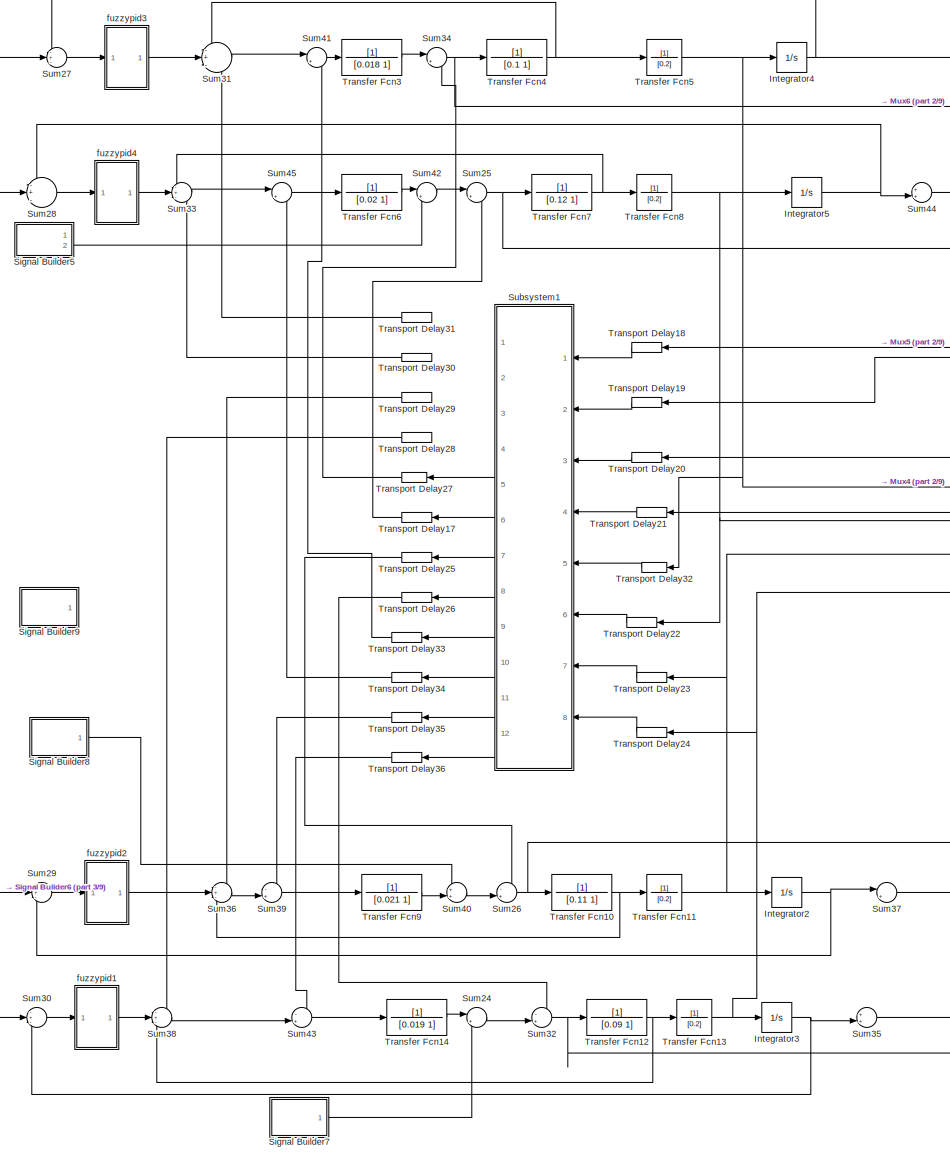
[diagram: root canvas - part 1/9, top right region]
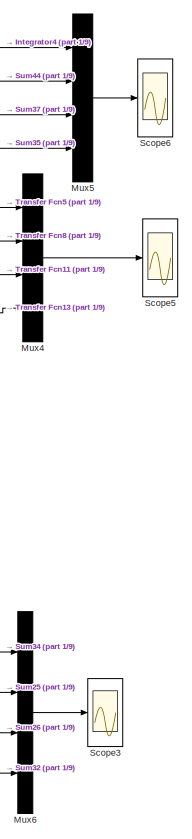
[diagram: root canvas - part 2/9, middle right region]
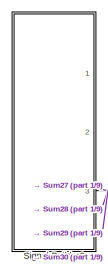
[diagram: root canvas - part 3/9, top center region]
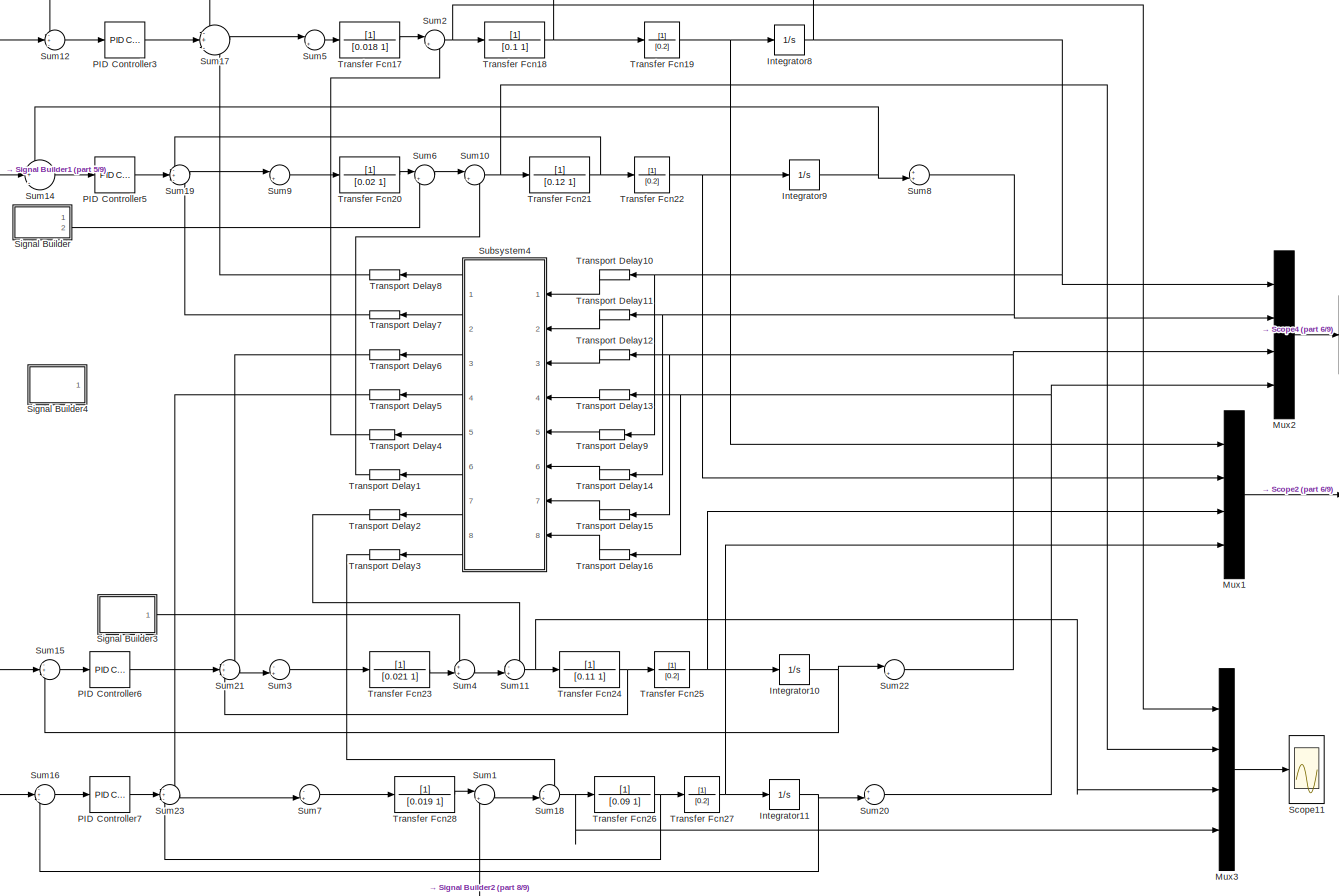
[diagram: root canvas - part 4/9, middle left region]
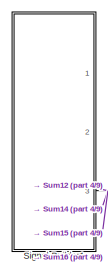
[diagram: root canvas - part 5/9, middle left region]
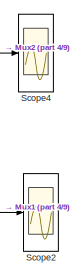
[diagram: root canvas - part 6/9, central region]
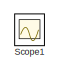
[diagram: root canvas - part 7/9, middle right region]
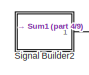
[diagram: root canvas - part 8/9, bottom left region]
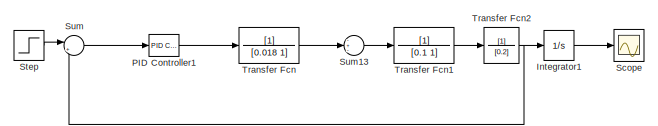
[diagram: root canvas - part 9/9, bottom center region]
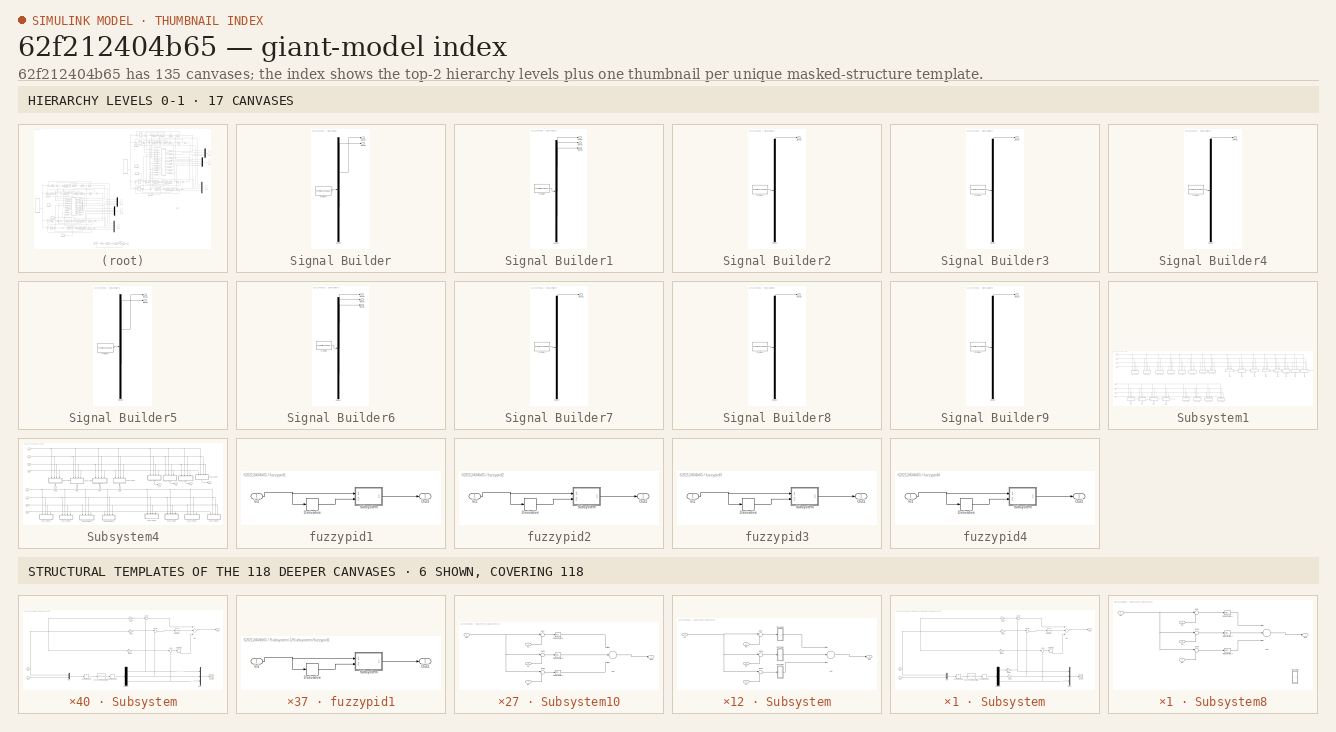
[diagram: thumbnail index - top-2 hierarchy levels (17 canvases) + 6 structural-template representatives of the remaining 118 canvases]
MODEL slx_62f212404b65
KIND model
BLOCK [Integrator] Integrator1
  Ports = [1, 1]
BLOCK [Integrator] Integrator10
  Ports = [1, 1]
BLOCK [Integrator] Integrator11
  Ports = [1, 1]
BLOCK [Integrator] Integrator2
  Ports = [1, 1]
BLOCK [Integrator] Integrator3
  Ports = [1, 1]
BLOCK [Integrator] Integrator4
  Ports = [1, 1]
BLOCK [Integrator] Integrator5
  Ports = [1, 1]
BLOCK [Integrator] Integrator8
  Ports = [1, 1]
BLOCK [Integrator] Integrator9
  Ports = [1, 1]
BLOCK [Mux] Mux1
  DisplayOption = bar
  Ports = [4, 1]
BLOCK [Mux] Mux2
  DisplayOption = bar
  Ports = [4, 1]
BLOCK [Mux] Mux3
  DisplayOption = bar
  Ports = [4, 1]
BLOCK [Mux] Mux4
  DisplayOption = bar
  Ports = [4, 1]
BLOCK [Mux] Mux5
  DisplayOption = bar
  Ports = [4, 1]
BLOCK [Mux] Mux6
  DisplayOption = bar
  Ports = [4, 1]
BLOCK [Reference] PID Controller1  REF=simulink/Continuous/PID Controller
  AntiWindupMode = none
  Controller = PID
  D = -0.0039506922991482
  DOutDataTypeStr = Inherit: Inherit via internal rule
  DOutMax = []
  DOutMin = []
  DParamDataTypeStr = Inherit: Inherit via internal rule
  DParamMax = []
  DParamMin = []
  DifferentiatorICPrevScaledInput = 0
  DifferentiatorOutDataTypeStr = Inherit: Inherit via internal rule
  DifferentiatorOutMax = []
  DifferentiatorOutMin = []
  ExternalReset = none
  FilterContinuousStateAttributes = ''
  FilterMethod = Forward Euler
  FilterOutDataTypeStr = Inherit: Inherit via internal rule
  FilterOutMax = []
  FilterOutMin = []
  FilterRTWStateStorageClass = Auto
  FilterStateMustResolveToSignalObject = off
  Form = Parallel
  I = 4.22711463410027
  IOutDataTypeStr = Inherit: Inherit via internal rule
  IOutMax = []
  IOutMin = []
  IParamDataTypeStr = Inherit: Inherit via internal rule
  IParamMax = []
  IParamMin = []
  IgnoreLimit = off
  InitialConditionForFilter = 0
  InitialConditionForIntegrator = 0
  InitialConditionSource = internal
  IntegratorContinuousStateAttributes = ''
  IntegratorMethod = Forward Euler
  IntegratorOutDataTypeStr = Inherit: Inherit via internal rule
  IntegratorOutMax = []
  IntegratorOutMin = []
  IntegratorRTWStateStorageClass = Auto
  IntegratorStateMustResolveToSignalObject = off
  Kb = 1
  KbOutDataTypeStr = Inherit: Inherit via internal rule
  KbOutMax = []
  KbOutMin = []
  KbParamDataTypeStr = Inherit: Inherit via internal rule
  KbParamMax = []
  KbParamMin = []
  Kt = 1
  KtOutDataTypeStr = Inherit: Inherit via internal rule
  KtOutMax = []
  KtOutMin = []
  KtParamDataTypeStr = Inherit: Inherit via internal rule
  KtParamMax = []
  KtParamMin = []
  LimitOutput = off
  LinearizeAsGain = on
  LockScale = off
  LowerSaturationLimit = -inf
  N = 20.6090721378652
  NOutDataTypeStr = Inherit: Inherit via internal rule
  NOutMax = []
  NOutMin = []
  NParamDataTypeStr = Inherit: Inherit via internal rule
  NParamMax = []
  NParamMin = []
  P = 0.341898282831464
  POutDataTypeStr = Inherit: Inherit via internal rule
  POutMax = []
  POutMin = []
  PParamDataTypeStr = Inherit: Inherit via internal rule
  PParamMax = []
  PParamMin = []
  Ports = [1, 1]
  RndMeth = Floor
  SampleTime = -1
  SaturateOnIntegerOverflow = off
  SaturationOutDataTypeStr = Inherit: Same as input
  SaturationOutMax = []
  SaturationOutMin = []
  SourceBlock = simulink/Continuous/PID Controller
  SourceType = PID 1dof
  SumAccumDataTypeStr = Inherit: Inherit via internal rule
  SumDAccumDataTypeStr = Inherit: Inherit via internal rule
  SumDOutDataTypeStr = Inherit: Inherit via internal rule
  SumDOutMax = []
  SumDOutMin = []
  SumI1AccumDataTypeStr = Inherit: Inherit via internal rule
  SumI1OutDataTypeStr = Inherit: Inherit via internal rule
  SumI1OutMax = []
  SumI1OutMin = []
  SumI2AccumDataTypeStr = Inherit: Inherit via internal rule
  SumI2OutDataTypeStr = Inherit: Inherit via internal rule
  SumI2OutMax = []
  SumI2OutMin = []
  SumI3AccumDataTypeStr = Inherit: Inherit via internal rule
  SumI3OutDataTypeStr = Inherit: Inherit via internal rule
  SumI3OutMax = []
  SumI3OutMin = []
  SumOutDataTypeStr = Inherit: Inherit via internal rule
  SumOutMax = []
  SumOutMin = []
  TimeDomain = Continuous-time
  TrackingMode = off
  UpperSaturationLimit = inf
  UseFilter = on
  ZeroCross = on
BLOCK [Reference] PID Controller3  REF=simulink/Continuous/PID Controller
  AntiWindupMode = none
  Controller = PID
  D = 0.147050814476134
  DOutDataTypeStr = Inherit: Inherit via internal rule
  DOutMax = []
  DOutMin = []
  DParamDataTypeStr = Inherit: Inherit via internal rule
  DParamMax = []
  DParamMin = []
  DifferentiatorICPrevScaledInput = 0
  DifferentiatorOutDataTypeStr = Inherit: Inherit via internal rule
  DifferentiatorOutMax = []
  DifferentiatorOutMin = []
  ExternalReset = none
  FilterContinuousStateAttributes = ''
  FilterMethod = Forward Euler
  FilterOutDataTypeStr = Inherit: Inherit via internal rule
  FilterOutMax = []
  FilterOutMin = []
  FilterRTWStateStorageClass = Auto
  FilterStateMustResolveToSignalObject = off
  Form = Parallel
  I = 0.428539114293849
  IOutDataTypeStr = Inherit: Inherit via internal rule
  IOutMax = []
  IOutMin = []
  IParamDataTypeStr = Inherit: Inherit via internal rule
  IParamMax = []
  IParamMin = []
  IgnoreLimit = off
  InitialConditionForFilter = 0
  InitialConditionForIntegrator = 0
  InitialConditionSource = internal
  IntegratorContinuousStateAttributes = ''
  IntegratorMethod = Forward Euler
  IntegratorOutDataTypeStr = Inherit: Inherit via internal rule
  IntegratorOutMax = []
  IntegratorOutMin = []
  IntegratorRTWStateStorageClass = Auto
  IntegratorStateMustResolveToSignalObject = off
  Kb = 1
  KbOutDataTypeStr = Inherit: Inherit via internal rule
  KbOutMax = []
  KbOutMin = []
  KbParamDataTypeStr = Inherit: Inherit via internal rule
  KbParamMax = []
  KbParamMin = []
  Kt = 1
  KtOutDataTypeStr = Inherit: Inherit via internal rule
  KtOutMax = []
  KtOutMin = []
  KtParamDataTypeStr = Inherit: Inherit via internal rule
  KtParamMax = []
  KtParamMin = []
  LimitOutput = off
  LinearizeAsGain = on
  LockScale = off
  LowerSaturationLimit = -inf
  N = 115.714109449814
  NOutDataTypeStr = Inherit: Inherit via internal rule
  NOutMax = []
  NOutMin = []
  NParamDataTypeStr = Inherit: Inherit via internal rule
  NParamMax = []
  NParamMin = []
  P = 4.45385591758043
  POutDataTypeStr = Inherit: Inherit via internal rule
  POutMax = []
  POutMin = []
  PParamDataTypeStr = Inherit: Inherit via internal rule
  PParamMax = []
  PParamMin = []
  Ports = [1, 1]
  RndMeth = Floor
  SampleTime = -1
  SaturateOnIntegerOverflow = off
  SaturationOutDataTypeStr = Inherit: Same as input
  SaturationOutMax = []
  SaturationOutMin = []
  SourceBlock = simulink/Continuous/PID Controller
  SourceType = PID 1dof
  SumAccumDataTypeStr = Inherit: Inherit via internal rule
  SumDAccumDataTypeStr = Inherit: Inherit via internal rule
  SumDOutDataTypeStr = Inherit: Inherit via internal rule
  SumDOutMax = []
  SumDOutMin = []
  SumI1AccumDataTypeStr = Inherit: Inherit via internal rule
  SumI1OutDataTypeStr = Inherit: Inherit via internal rule
  SumI1OutMax = []
  SumI1OutMin = []
  SumI2AccumDataTypeStr = Inherit: Inherit via internal rule
  SumI2OutDataTypeStr = Inherit: Inherit via internal rule
  SumI2OutMax = []
  SumI2OutMin = []
  SumI3AccumDataTypeStr = Inherit: Inherit via internal rule
  SumI3OutDataTypeStr = Inherit: Inherit via internal rule
  SumI3OutMax = []
  SumI3OutMin = []
  SumOutDataTypeStr = Inherit: Inherit via internal rule
  SumOutMax = []
  SumOutMin = []
  TimeDomain = Continuous-time
  TrackingMode = off
  UpperSaturationLimit = inf
  UseFilter = on
  ZeroCross = on
BLOCK [Reference] PID Controller5  REF=simulink/Continuous/PID Controller
  AntiWindupMode = none
  Controller = PID
  D = 0.190106280421876
  DOutDataTypeStr = Inherit: Inherit via internal rule
  DOutMax = []
  DOutMin = []
  DParamDataTypeStr = Inherit: Inherit via internal rule
  DParamMax = []
  DParamMin = []
  DifferentiatorICPrevScaledInput = 0
  DifferentiatorOutDataTypeStr = Inherit: Inherit via internal rule
  DifferentiatorOutMax = []
  DifferentiatorOutMin = []
  ExternalReset = none
  FilterContinuousStateAttributes = ''
  FilterMethod = Forward Euler
  FilterOutDataTypeStr = Inherit: Inherit via internal rule
  FilterOutMax = []
  FilterOutMin = []
  FilterRTWStateStorageClass = Auto
  FilterStateMustResolveToSignalObject = off
  Form = Parallel
  I = 0.409606906541511
  IOutDataTypeStr = Inherit: Inherit via internal rule
  IOutMax = []
  IOutMin = []
  IParamDataTypeStr = Inherit: Inherit via internal rule
  IParamMax = []
  IParamMin = []
  IgnoreLimit = off
  InitialConditionForFilter = 0
  InitialConditionForIntegrator = 0
  InitialConditionSource = internal
  IntegratorContinuousStateAttributes = ''
  IntegratorMethod = Forward Euler
  IntegratorOutDataTypeStr = Inherit: Inherit via internal rule
  IntegratorOutMax = []
  IntegratorOutMin = []
  IntegratorRTWStateStorageClass = Auto
  IntegratorStateMustResolveToSignalObject = off
  Kb = 1
  KbOutDataTypeStr = Inherit: Inherit via internal rule
  KbOutMax = []
  KbOutMin = []
  KbParamDataTypeStr = Inherit: Inherit via internal rule
  KbParamMax = []
  KbParamMin = []
  Kt = 1
  KtOutDataTypeStr = Inherit: Inherit via internal rule
  KtOutMax = []
  KtOutMin = []
  KtParamDataTypeStr = Inherit: Inherit via internal rule
  KtParamMax = []
  KtParamMin = []
  LimitOutput = off
  LinearizeAsGain = on
  LockScale = off
  LowerSaturationLimit = -inf
  N = 113.521570556965
  NOutDataTypeStr = Inherit: Inherit via internal rule
  NOutMax = []
  NOutMin = []
  NParamDataTypeStr = Inherit: Inherit via internal rule
  NParamMax = []
  NParamMin = []
  P = 4.34348893595362
  POutDataTypeStr = Inherit: Inherit via internal rule
  POutMax = []
  POutMin = []
  PParamDataTypeStr = Inherit: Inherit via internal rule
  PParamMax = []
  PParamMin = []
  Ports = [1, 1]
  RndMeth = Floor
  SampleTime = -1
  SaturateOnIntegerOverflow = off
  SaturationOutDataTypeStr = Inherit: Same as input
  SaturationOutMax = []
  SaturationOutMin = []
  SourceBlock = simulink/Continuous/PID Controller
  SourceType = PID 1dof
  SumAccumDataTypeStr = Inherit: Inherit via internal rule
  SumDAccumDataTypeStr = Inherit: Inherit via internal rule
  SumDOutDataTypeStr = Inherit: Inherit via internal rule
  SumDOutMax = []
  SumDOutMin = []
  SumI1AccumDataTypeStr = Inherit: Inherit via internal rule
  SumI1OutDataTypeStr = Inherit: Inherit via internal rule
  SumI1OutMax = []
  SumI1OutMin = []
  SumI2AccumDataTypeStr = Inherit: Inherit via internal rule
  SumI2OutDataTypeStr = Inherit: Inherit via internal rule
  SumI2OutMax = []
  SumI2OutMin = []
  SumI3AccumDataTypeStr = Inherit: Inherit via internal rule
  SumI3OutDataTypeStr = Inherit: Inherit via internal rule
  SumI3OutMax = []
  SumI3OutMin = []
  SumOutDataTypeStr = Inherit: Inherit via internal rule
  SumOutMax = []
  SumOutMin = []
  TimeDomain = Continuous-time
  TrackingMode = off
  UpperSaturationLimit = inf
  UseFilter = on
  ZeroCross = on
BLOCK [Reference] PID Controller6  REF=simulink/Continuous/PID Controller
  AntiWindupMode = none
  Controller = PID
  D = 0.176716531069936
  DOutDataTypeStr = Inherit: Inherit via internal rule
  DOutMax = []
  DOutMin = []
  DParamDataTypeStr = Inherit: Inherit via internal rule
  DParamMax = []
  DParamMin = []
  DifferentiatorICPrevScaledInput = 0
  DifferentiatorOutDataTypeStr = Inherit: Inherit via internal rule
  DifferentiatorOutMax = []
  DifferentiatorOutMin = []
  ExternalReset = none
  FilterContinuousStateAttributes = ''
  FilterMethod = Forward Euler
  FilterOutDataTypeStr = Inherit: Inherit via internal rule
  FilterOutMax = []
  FilterOutMin = []
  FilterRTWStateStorageClass = Auto
  FilterStateMustResolveToSignalObject = off
  Form = Parallel
  I = 0.418612157121434
  IOutDataTypeStr = Inherit: Inherit via internal rule
  IOutMax = []
  IOutMin = []
  IParamDataTypeStr = Inherit: Inherit via internal rule
  IParamMax = []
  IParamMin = []
  IgnoreLimit = off
  InitialConditionForFilter = 0
  InitialConditionForIntegrator = 0
  InitialConditionSource = internal
  IntegratorContinuousStateAttributes = ''
  IntegratorMethod = Forward Euler
  IntegratorOutDataTypeStr = Inherit: Inherit via internal rule
  IntegratorOutMax = []
  IntegratorOutMin = []
  IntegratorRTWStateStorageClass = Auto
  IntegratorStateMustResolveToSignalObject = off
  Kb = 1
  KbOutDataTypeStr = Inherit: Inherit via internal rule
  KbOutMax = []
  KbOutMin = []
  KbParamDataTypeStr = Inherit: Inherit via internal rule
  KbParamMax = []
  KbParamMin = []
  Kt = 1
  KtOutDataTypeStr = Inherit: Inherit via internal rule
  KtOutMax = []
  KtOutMin = []
  KtParamDataTypeStr = Inherit: Inherit via internal rule
  KtParamMax = []
  KtParamMin = []
  LimitOutput = off
  LinearizeAsGain = on
  LockScale = off
  LowerSaturationLimit = -inf
  N = 115.244644738995
  NOutDataTypeStr = Inherit: Inherit via internal rule
  NOutMax = []
  NOutMin = []
  NParamDataTypeStr = Inherit: Inherit via internal rule
  NParamMax = []
  NParamMin = []
  P = 4.3714761921553
  POutDataTypeStr = Inherit: Inherit via internal rule
  POutMax = []
  POutMin = []
  PParamDataTypeStr = Inherit: Inherit via internal rule
  PParamMax = []
  PParamMin = []
  Ports = [1, 1]
  RndMeth = Floor
  SampleTime = -1
  SaturateOnIntegerOverflow = off
  SaturationOutDataTypeStr = Inherit: Same as input
  SaturationOutMax = []
  SaturationOutMin = []
  SourceBlock = simulink/Continuous/PID Controller
  SourceType = PID 1dof
  SumAccumDataTypeStr = Inherit: Inherit via internal rule
  SumDAccumDataTypeStr = Inherit: Inherit via internal rule
  SumDOutDataTypeStr = Inherit: Inherit via internal rule
  SumDOutMax = []
  SumDOutMin = []
  SumI1AccumDataTypeStr = Inherit: Inherit via internal rule
  SumI1OutDataTypeStr = Inherit: Inherit via internal rule
  SumI1OutMax = []
  SumI1OutMin = []
  SumI2AccumDataTypeStr = Inherit: Inherit via internal rule
  SumI2OutDataTypeStr = Inherit: Inherit via internal rule
  SumI2OutMax = []
  SumI2OutMin = []
  SumI3AccumDataTypeStr = Inherit: Inherit via internal rule
  SumI3OutDataTypeStr = Inherit: Inherit via internal rule
  SumI3OutMax = []
  SumI3OutMin = []
  SumOutDataTypeStr = Inherit: Inherit via internal rule
  SumOutMax = []
  SumOutMin = []
  TimeDomain = Continuous-time
  TrackingMode = off
  UpperSaturationLimit = inf
  UseFilter = on
  ZeroCross = on
BLOCK [Reference] PID Controller7  REF=simulink/Continuous/PID Controller
  AntiWindupMode = none
  Controller = PID
  D = 0.137661903224342
  DOutDataTypeStr = Inherit: Inherit via internal rule
  DOutMax = []
  DOutMin = []
  DParamDataTypeStr = Inherit: Inherit via internal rule
  DParamMax = []
  DParamMin = []
  DifferentiatorICPrevScaledInput = 0
  DifferentiatorOutDataTypeStr = Inherit: Inherit via internal rule
  DifferentiatorOutMax = []
  DifferentiatorOutMin = []
  ExternalReset = none
  FilterContinuousStateAttributes = ''
  FilterMethod = Forward Euler
  FilterOutDataTypeStr = Inherit: Inherit via internal rule
  FilterOutMax = []
  FilterOutMin = []
  FilterRTWStateStorageClass = Auto
  FilterStateMustResolveToSignalObject = off
  Form = Parallel
  I = 0.450019772467081
  IOutDataTypeStr = Inherit: Inherit via internal rule
  IOutMax = []
  IOutMin = []
  IParamDataTypeStr = Inherit: Inherit via internal rule
  IParamMax = []
  IParamMin = []
  IgnoreLimit = off
  InitialConditionForFilter = 0
  InitialConditionForIntegrator = 0
  InitialConditionSource = internal
  IntegratorContinuousStateAttributes = ''
  IntegratorMethod = Forward Euler
  IntegratorOutDataTypeStr = Inherit: Inherit via internal rule
  IntegratorOutMax = []
  IntegratorOutMin = []
  IntegratorRTWStateStorageClass = Auto
  IntegratorStateMustResolveToSignalObject = off
  Kb = 1
  KbOutDataTypeStr = Inherit: Inherit via internal rule
  KbOutMax = []
  KbOutMin = []
  KbParamDataTypeStr = Inherit: Inherit via internal rule
  KbParamMax = []
  KbParamMin = []
  Kt = 1
  KtOutDataTypeStr = Inherit: Inherit via internal rule
  KtOutMax = []
  KtOutMin = []
  KtParamDataTypeStr = Inherit: Inherit via internal rule
  KtParamMax = []
  KtParamMin = []
  LimitOutput = off
  LinearizeAsGain = on
  LockScale = off
  LowerSaturationLimit = -inf
  N = 119.172045893014
  NOutDataTypeStr = Inherit: Inherit via internal rule
  NOutMax = []
  NOutMin = []
  NParamDataTypeStr = Inherit: Inherit via internal rule
  NParamMax = []
  NParamMin = []
  P = 4.54060551459518
  POutDataTypeStr = Inherit: Inherit via internal rule
  POutMax = []
  POutMin = []
  PParamDataTypeStr = Inherit: Inherit via internal rule
  PParamMax = []
  PParamMin = []
  Ports = [1, 1]
  RndMeth = Floor
  SampleTime = -1
  SaturateOnIntegerOverflow = off
  SaturationOutDataTypeStr = Inherit: Same as input
  SaturationOutMax = []
  SaturationOutMin = []
  SourceBlock = simulink/Continuous/PID Controller
  SourceType = PID 1dof
  SumAccumDataTypeStr = Inherit: Inherit via internal rule
  SumDAccumDataTypeStr = Inherit: Inherit via internal rule
  SumDOutDataTypeStr = Inherit: Inherit via internal rule
  SumDOutMax = []
  SumDOutMin = []
  SumI1AccumDataTypeStr = Inherit: Inherit via internal rule
  SumI1OutDataTypeStr = Inherit: Inherit via internal rule
  SumI1OutMax = []
  SumI1OutMin = []
  SumI2AccumDataTypeStr = Inherit: Inherit via internal rule
  SumI2OutDataTypeStr = Inherit: Inherit via internal rule
  SumI2OutMax = []
  SumI2OutMin = []
  SumI3AccumDataTypeStr = Inherit: Inherit via internal rule
  SumI3OutDataTypeStr = Inherit: Inherit via internal rule
  SumI3OutMax = []
  SumI3OutMin = []
  SumOutDataTypeStr = Inherit: Inherit via internal rule
  SumOutMax = []
  SumOutMin = []
  TimeDomain = Continuous-time
  TrackingMode = off
  UpperSaturationLimit = inf
  UseFilter = on
  ZeroCross = on
BLOCK [Scope] Scope
  Floating = off
  LimitDataPoints = off
  NumInputPorts = 1
  Ports = [1]
  SaveName = dianji1
  SaveToWorkspace = on
  ShowLegends = off
  YMin = 5
BLOCK [Scope] Scope1
  Floating = off
  LimitDataPoints = off
  NumInputPorts = 1
  Ports = [1]
  SaveName = dianji
  SaveToWorkspace = on
  ShowLegends = off
BLOCK [Scope] Scope11
  Floating = off
  LimitDataPoints = off
  NumInputPorts = 1
  Ports = [1]
  SaveName = wuraodongweizhi5
  SaveToWorkspace = on
  ShowLegends = off
  YMax = 460
  YMin = 260
BLOCK [Scope] Scope2
  Floating = off
  LimitDataPoints = off
  NumInputPorts = 1
  Ports = [1]
  SaveName = perfect1
  SaveToWorkspace = on
  ShowLegends = off
  YMax = 2.5
  YMin = -0.5
BLOCK [Scope] Scope3
  Floating = off
  LimitDataPoints = off
  NumInputPorts = 1
  Ports = [1]
  SaveName = wuraodongweizhi
  SaveToWorkspace = on
  ShowLegends = off
  YMax = 460
  YMin = 260
BLOCK [Scope] Scope4
  Floating = off
  LimitDataPoints = off
  NumInputPorts = 1
  Ports = [1]
  SaveName = perfect
  SaveToWorkspace = on
  ShowLegends = off
  YMax = 7
  YMin = 3.5
BLOCK [Scope] Scope5
  Floating = off
  LimitDataPoints = off
  NumInputPorts = 1
  Ports = [1]
  SaveName = perfect2
  SaveToWorkspace = on
  ShowLegends = off
  YMax = 2.5
  YMin = -0.5
BLOCK [Scope] Scope6
  Floating = off
  LimitDataPoints = off
  NumInputPorts = 1
  Ports = [1]
  SaveName = perfect3
  SaveToWorkspace = on
  ShowLegends = off
  YMax = 7
  YMin = 3.5
BLOCK [SubSystem] Signal Builder
  ClipboardFcn = sigbuilder_block('clipboard');
  CloseFcn = sigbuilder_block('close');
  ContinueFcn = sigbuilder_block('continue');
  CopyFcn = sigbuilder_block('copy');
  DeleteFcn = sigbuilder_block('delete');
  LoadFcn = sigbuilder_block('load');
  MaskHideContents = on
  ModelCloseFcn = sigbuilder_block('modelClose');
  NameChangeFcn = sigbuilder_block('namechange');
  OpenFcn = sigbuilder_block('open',[437.6 199.2 550.4 400 ]);
  PauseFcn = sigbuilder_block('pause');
  Ports = [0, 2]
  PreSaveFcn = sigbuilder_block('preSave');
  RequestExecContextInheritance = off
  StartFcn = sigbuilder_block('start');
  StopFcn = sigbuilder_block('stop');
  Tag = STV Subsys
BLOCK [Demux] Signal Builder/Demux
  Outputs = 2
  Ports = [1, 2]
  Tag = STV Demux
BLOCK [FromWorkspace] Signal Builder/FromWs
  SampleTime = 0
  Tag = STV FromWs
  VariableName = tuvar
  ZeroCross = on
BLOCK [Outport] Signal Builder/Signal 1
  IconDisplay = Port number
  Tag = STV Outport
BLOCK [Outport] Signal Builder/Signal 2
  IconDisplay = Port number
  Port = 2
  Tag = STV Outport
BLOCK [SubSystem] Signal Builder1
  ClipboardFcn = sigbuilder_block('clipboard');
  CloseFcn = sigbuilder_block('close');
  ContinueFcn = sigbuilder_block('continue');
  CopyFcn = sigbuilder_block('copy');
  DeleteFcn = sigbuilder_block('delete');
  LoadFcn = sigbuilder_block('load');
  MaskHideContents = on
  ModelCloseFcn = sigbuilder_block('modelClose');
  NameChangeFcn = sigbuilder_block('namechange');
  OpenFcn = sigbuilder_block('open',[437.6 199.2 550.4 400 ]);
  PauseFcn = sigbuilder_block('pause');
  Ports = [0, 3]
  PreSaveFcn = sigbuilder_block('preSave');
  RequestExecContextInheritance = off
  StartFcn = sigbuilder_block('start');
  StopFcn = sigbuilder_block('stop');
  Tag = STV Subsys
BLOCK [Demux] Signal Builder1/Demux
  Outputs = 3
  Ports = [1, 3]
  Tag = STV Demux
BLOCK [FromWorkspace] Signal Builder1/FromWs
  SampleTime = 0
  Tag = STV FromWs
  VariableName = tuvar
  ZeroCross = on
BLOCK [Outport] Signal Builder1/Signal 1
  IconDisplay = Port number
  Port = 2
  Tag = STV Outport
BLOCK [Outport] Signal Builder1/Signal 2
  IconDisplay = Port number
  Tag = STV Outport
BLOCK [Outport] Signal Builder1/Signal 3
  IconDisplay = Port number
  Port = 3
  Tag = STV Outport
BLOCK [SubSystem] Signal Builder2
  ClipboardFcn = sigbuilder_block('clipboard');
  CloseFcn = sigbuilder_block('close');
  ContinueFcn = sigbuilder_block('continue');
  CopyFcn = sigbuilder_block('copy');
  DeleteFcn = sigbuilder_block('delete');
  LoadFcn = sigbuilder_block('load');
  MaskHideContents = on
  ModelCloseFcn = sigbuilder_block('modelClose');
  NameChangeFcn = sigbuilder_block('namechange');
  OpenFcn = sigbuilder_block('open',[437.6 199.2 550.4 400 ]);
  PauseFcn = sigbuilder_block('pause');
  Ports = [0, 1]
  PreSaveFcn = sigbuilder_block('preSave');
  RequestExecContextInheritance = off
  StartFcn = sigbuilder_block('start');
  StopFcn = sigbuilder_block('stop');
  Tag = STV Subsys
BLOCK [Demux] Signal Builder2/Demux
  Outputs = 1
  Ports = [1, 1]
  Tag = STV Demux
BLOCK [FromWorkspace] Signal Builder2/FromWs
  SampleTime = 0
  Tag = STV FromWs
  VariableName = tuvar
  ZeroCross = on
BLOCK [Outport] Signal Builder2/Signal 2
  IconDisplay = Port number
  Tag = STV Outport
BLOCK [SubSystem] Signal Builder3
  ClipboardFcn = sigbuilder_block('clipboard');
  CloseFcn = sigbuilder_block('close');
  ContinueFcn = sigbuilder_block('continue');
  CopyFcn = sigbuilder_block('copy');
  DeleteFcn = sigbuilder_block('delete');
  LoadFcn = sigbuilder_block('load');
  MaskHideContents = on
  ModelCloseFcn = sigbuilder_block('modelClose');
  NameChangeFcn = sigbuilder_block('namechange');
  OpenFcn = sigbuilder_block('open',[437.6 199.2 550.4 400 ]);
  PauseFcn = sigbuilder_block('pause');
  Ports = [0, 1]
  PreSaveFcn = sigbuilder_block('preSave');
  RequestExecContextInheritance = off
  StartFcn = sigbuilder_block('start');
  StopFcn = sigbuilder_block('stop');
  Tag = STV Subsys
BLOCK [Demux] Signal Builder3/Demux
  Outputs = 1
  Ports = [1, 1]
  Tag = STV Demux
BLOCK [FromWorkspace] Signal Builder3/FromWs
  SampleTime = 0
  Tag = STV FromWs
  VariableName = tuvar
  ZeroCross = on
BLOCK [Outport] Signal Builder3/Signal 2
  IconDisplay = Port number
  Tag = STV Outport
BLOCK [SubSystem] Signal Builder4
  ClipboardFcn = sigbuilder_block('clipboard');
  CloseFcn = sigbuilder_block('close');
  ContinueFcn = sigbuilder_block('continue');
  CopyFcn = sigbuilder_block('copy');
  DeleteFcn = sigbuilder_block('delete');
  LoadFcn = sigbuilder_block('load');
  MaskHideContents = on
  ModelCloseFcn = sigbuilder_block('modelClose');
  NameChangeFcn = sigbuilder_block('namechange');
  OpenFcn = sigbuilder_block('open',[437.6 199.2 550.4 400 ]);
  PauseFcn = sigbuilder_block('pause');
  Ports = [0, 1]
  PreSaveFcn = sigbuilder_block('preSave');
  RequestExecContextInheritance = off
  StartFcn = sigbuilder_block('start');
  StopFcn = sigbuilder_block('stop');
  Tag = STV Subsys
BLOCK [Demux] Signal Builder4/Demux
  Outputs = 1
  Ports = [1, 1]
  Tag = STV Demux
BLOCK [FromWorkspace] Signal Builder4/FromWs
  SampleTime = 0
  Tag = STV FromWs
  VariableName = tuvar
  ZeroCross = on
BLOCK [Outport] Signal Builder4/Signal 2
  IconDisplay = Port number
  Tag = STV Outport
BLOCK [SubSystem] Signal Builder5
  ClipboardFcn = sigbuilder_block('clipboard');
  CloseFcn = sigbuilder_block('close');
  ContinueFcn = sigbuilder_block('continue');
  CopyFcn = sigbuilder_block('copy');
  DeleteFcn = sigbuilder_block('delete');
  LoadFcn = sigbuilder_block('load');
  MaskHideContents = on
  ModelCloseFcn = sigbuilder_block('modelClose');
  NameChangeFcn = sigbuilder_block('namechange');
  OpenFcn = sigbuilder_block('open',[437.6 199.2 550.4 400 ]);
  PauseFcn = sigbuilder_block('pause');
  Ports = [0, 2]
  PreSaveFcn = sigbuilder_block('preSave');
  RequestExecContextInheritance = off
  StartFcn = sigbuilder_block('start');
  StopFcn = sigbuilder_block('stop');
  Tag = STV Subsys
BLOCK [Demux] Signal Builder5/Demux
  Outputs = 2
  Ports = [1, 2]
  Tag = STV Demux
BLOCK [FromWorkspace] Signal Builder5/FromWs
  SampleTime = 0
  Tag = STV FromWs
  VariableName = tuvar
  ZeroCross = on
BLOCK [Outport] Signal Builder5/Signal 1
  IconDisplay = Port number
  Tag = STV Outport
BLOCK [Outport] Signal Builder5/Signal 2
  IconDisplay = Port number
  Port = 2
  Tag = STV Outport
BLOCK [SubSystem] Signal Builder6
  ClipboardFcn = sigbuilder_block('clipboard');
  CloseFcn = sigbuilder_block('close');
  ContinueFcn = sigbuilder_block('continue');
  CopyFcn = sigbuilder_block('copy');
  DeleteFcn = sigbuilder_block('delete');
  LoadFcn = sigbuilder_block('load');
  MaskHideContents = on
  ModelCloseFcn = sigbuilder_block('modelClose');
  NameChangeFcn = sigbuilder_block('namechange');
  OpenFcn = sigbuilder_block('open',[437.6 199.2 550.4 400 ]);
  PauseFcn = sigbuilder_block('pause');
  Ports = [0, 3]
  PreSaveFcn = sigbuilder_block('preSave');
  RequestExecContextInheritance = off
  StartFcn = sigbuilder_block('start');
  StopFcn = sigbuilder_block('stop');
  Tag = STV Subsys
BLOCK [Demux] Signal Builder6/Demux
  Outputs = 3
  Ports = [1, 3]
  Tag = STV Demux
BLOCK [FromWorkspace] Signal Builder6/FromWs
  SampleTime = 0
  Tag = STV FromWs
  VariableName = tuvar
  ZeroCross = on
BLOCK [Outport] Signal Builder6/Signal 1
  IconDisplay = Port number
  Port = 2
  Tag = STV Outport
BLOCK [Outport] Signal Builder6/Signal 2
  IconDisplay = Port number
  Tag = STV Outport
BLOCK [Outport] Signal Builder6/Signal 3
  IconDisplay = Port number
  Port = 3
  Tag = STV Outport
BLOCK [SubSystem] Signal Builder7
  ClipboardFcn = sigbuilder_block('clipboard');
  CloseFcn = sigbuilder_block('close');
  ContinueFcn = sigbuilder_block('continue');
  CopyFcn = sigbuilder_block('copy');
  DeleteFcn = sigbuilder_block('delete');
  LoadFcn = sigbuilder_block('load');
  MaskHideContents = on
  ModelCloseFcn = sigbuilder_block('modelClose');
  NameChangeFcn = sigbuilder_block('namechange');
  OpenFcn = sigbuilder_block('open',[437.6 199.2 550.4 400 ]);
  PauseFcn = sigbuilder_block('pause');
  Ports = [0, 1]
  PreSaveFcn = sigbuilder_block('preSave');
  RequestExecContextInheritance = off
  StartFcn = sigbuilder_block('start');
  StopFcn = sigbuilder_block('stop');
  Tag = STV Subsys
BLOCK [Demux] Signal Builder7/Demux
  Outputs = 1
  Ports = [1, 1]
  Tag = STV Demux
BLOCK [FromWorkspace] Signal Builder7/FromWs
  SampleTime = 0
  Tag = STV FromWs
  VariableName = tuvar
  ZeroCross = on
BLOCK [Outport] Signal Builder7/Signal 2
  IconDisplay = Port number
  Tag = STV Outport
BLOCK [SubSystem] Signal Builder8
  ClipboardFcn = sigbuilder_block('clipboard');
  CloseFcn = sigbuilder_block('close');
  ContinueFcn = sigbuilder_block('continue');
  CopyFcn = sigbuilder_block('copy');
  DeleteFcn = sigbuilder_block('delete');
  LoadFcn = sigbuilder_block('load');
  MaskHideContents = on
  ModelCloseFcn = sigbuilder_block('modelClose');
  NameChangeFcn = sigbuilder_block('namechange');
  OpenFcn = sigbuilder_block('open',[437.6 199.2 550.4 400 ]);
  PauseFcn = sigbuilder_block('pause');
  Ports = [0, 1]
  PreSaveFcn = sigbuilder_block('preSave');
  RequestExecContextInheritance = off
  StartFcn = sigbuilder_block('start');
  StopFcn = sigbuilder_block('stop');
  Tag = STV Subsys
BLOCK [Demux] Signal Builder8/Demux
  Outputs = 1
  Ports = [1, 1]
  Tag = STV Demux
BLOCK [FromWorkspace] Signal Builder8/FromWs
  SampleTime = 0
  Tag = STV FromWs
  VariableName = tuvar
  ZeroCross = on
BLOCK [Outport] Signal Builder8/Signal 2
  IconDisplay = Port number
  Tag = STV Outport
BLOCK [SubSystem] Signal Builder9
  ClipboardFcn = sigbuilder_block('clipboard');
  CloseFcn = sigbuilder_block('close');
  ContinueFcn = sigbuilder_block('continue');
  CopyFcn = sigbuilder_block('copy');
  DeleteFcn = sigbuilder_block('delete');
  LoadFcn = sigbuilder_block('load');
  MaskHideContents = on
  ModelCloseFcn = sigbuilder_block('modelClose');
  NameChangeFcn = sigbuilder_block('namechange');
  OpenFcn = sigbuilder_block('open',[437.6 199.2 550.4 400 ]);
  PauseFcn = sigbuilder_block('pause');
  Ports = [0, 1]
  PreSaveFcn = sigbuilder_block('preSave');
  RequestExecContextInheritance = off
  StartFcn = sigbuilder_block('start');
  StopFcn = sigbuilder_block('stop');
  Tag = STV Subsys
BLOCK [Demux] Signal Builder9/Demux
  Outputs = 1
  Ports = [1, 1]
  Tag = STV Demux
BLOCK [FromWorkspace] Signal Builder9/FromWs
  SampleTime = 0
  Tag = STV FromWs
  VariableName = tuvar
  ZeroCross = on
BLOCK [Outport] Signal Builder9/Signal 2
  IconDisplay = Port number
  Tag = STV Outport
BLOCK [Step] Step
  SampleTime = 0
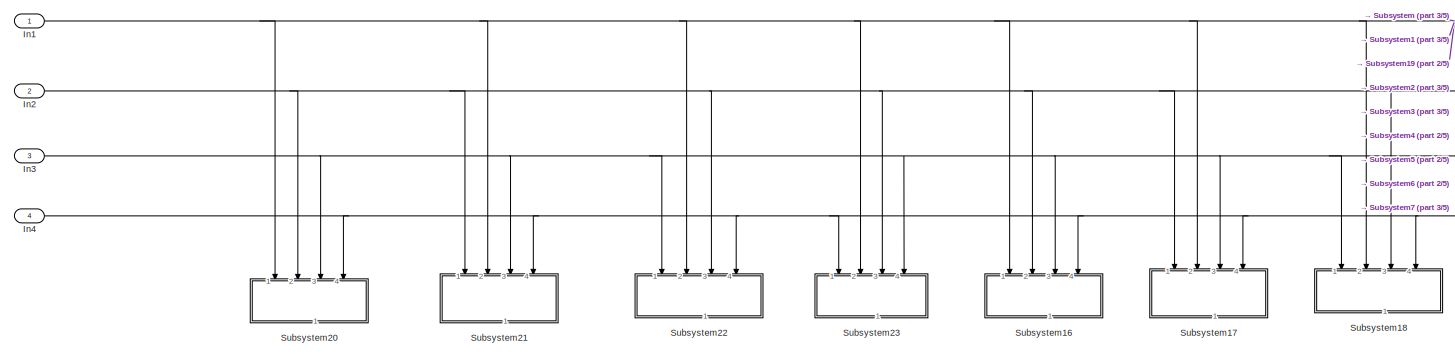
[diagram: Subsystem1 - part 1/5, top left region]
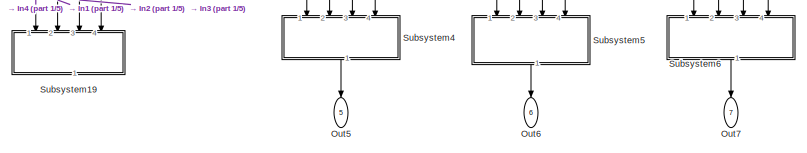
[diagram: Subsystem1 - part 2/5, central region]
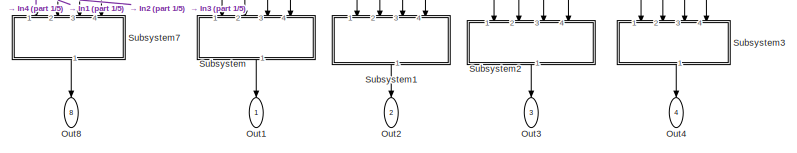
[diagram: Subsystem1 - part 3/5, middle right region]
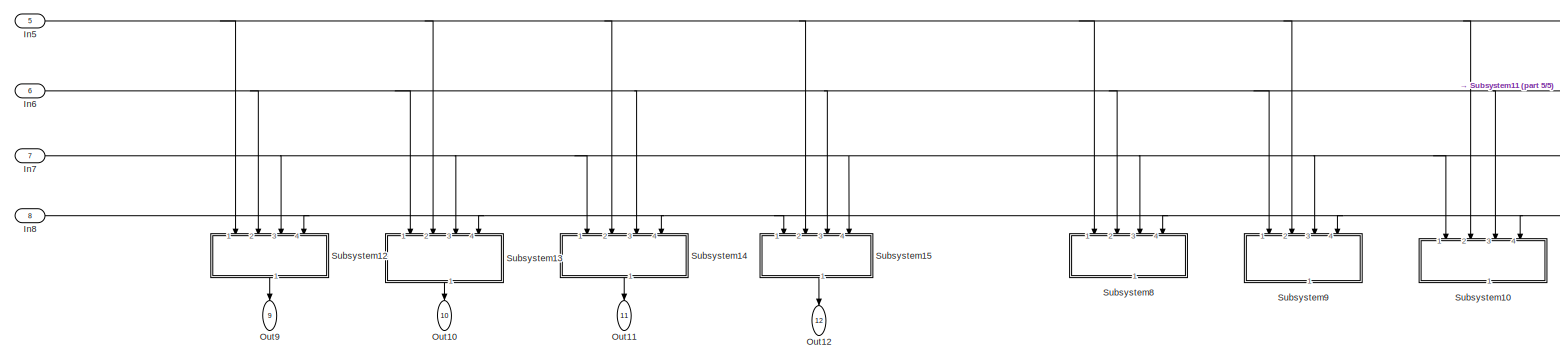
[diagram: Subsystem1 - part 4/5, bottom left region]
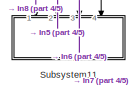
[diagram: Subsystem1 - part 5/5, bottom center region]
BLOCK [SubSystem] Subsystem1
  Ports = [8, 12]
  RequestExecContextInheritance = off
BLOCK [Inport] Subsystem1/In1
  IconDisplay = Port number
BLOCK [Inport] Subsystem1/In2
  IconDisplay = Port number
  Port = 2
BLOCK [Inport] Subsystem1/In3
  IconDisplay = Port number
  Port = 3
BLOCK [Inport] Subsystem1/In4
  IconDisplay = Port number
  Port = 4
BLOCK [Inport] Subsystem1/In5
  IconDisplay = Port number
  Port = 5
BLOCK [Inport] Subsystem1/In6
  IconDisplay = Port number
  Port = 6
BLOCK [Inport] Subsystem1/In7
  IconDisplay = Port number
  Port = 7
BLOCK [Inport] Subsystem1/In8
  IconDisplay = Port number
  Port = 8
BLOCK [Outport] Subsystem1/Out1
  IconDisplay = Port number
BLOCK [Outport] Subsystem1/Out10
  IconDisplay = Port number
  Port = 10
BLOCK [Outport] Subsystem1/Out11
  IconDisplay = Port number
  Port = 11
BLOCK [Outport] Subsystem1/Out12
  IconDisplay = Port number
  Port = 12
BLOCK [Outport] Subsystem1/Out2
  IconDisplay = Port number
  Port = 2
BLOCK [Outport] Subsystem1/Out3
  IconDisplay = Port number
  Port = 3
BLOCK [Outport] Subsystem1/Out4
  IconDisplay = Port number
  Port = 4
BLOCK [Outport] Subsystem1/Out5
  IconDisplay = Port number
  Port = 5
BLOCK [Outport] Subsystem1/Out6
  IconDisplay = Port number
  Port = 6
BLOCK [Outport] Subsystem1/Out7
  IconDisplay = Port number
  Port = 7
BLOCK [Outport] Subsystem1/Out8
  IconDisplay = Port number
  Port = 8
BLOCK [Outport] Subsystem1/Out9
  IconDisplay = Port number
  Port = 9
BLOCK [SubSystem] Subsystem1/Subsystem
  Ports = [4, 1]
  RequestExecContextInheritance = off
BLOCK [Sum] Subsystem1/Subsystem/Add
  InputSameDT = off
  Inputs = +++
  OutDataTypeStr = Inherit: Inherit via internal rule
  Ports = [3, 1]
  SaturateOnIntegerOverflow = off
BLOCK [Inport] Subsystem1/Subsystem/In1
  IconDisplay = Port number
BLOCK [Inport] Subsystem1/Subsystem/In2
  IconDisplay = Port number
  Port = 2
BLOCK [Inport] Subsystem1/Subsystem/In3
  IconDisplay = Port number
  Port = 3
BLOCK [Inport] Subsystem1/Subsystem/In4
  IconDisplay = Port number
  Port = 4
BLOCK [Outport] Subsystem1/Subsystem/Out1
  IconDisplay = Port number
BLOCK [Sum] Subsystem1/Subsystem/Sum
  IconShape = round
  InputSameDT = off
  Inputs = |+-
  OutDataTypeStr = Inherit: Inherit via internal rule
  Ports = [2, 1]
  SaturateOnIntegerOverflow = off
BLOCK [Sum] Subsystem1/Subsystem/Sum1
  IconShape = round
  InputSameDT = off
  Inputs = |+-
  OutDataTypeStr = Inherit: Inherit via internal rule
  Ports = [2, 1]
  SaturateOnIntegerOverflow = off
BLOCK [Sum] Subsystem1/Subsystem/Sum2
  IconShape = round
  InputSameDT = off
  Inputs = |+-
  OutDataTypeStr = Inherit: Inherit via internal rule
  Ports = [2, 1]
  SaturateOnIntegerOverflow = off
BLOCK [SubSystem] Subsystem1/Subsystem/fuzzypid1
  Ports = [1, 1]
  RequestExecContextInheritance = off
BLOCK [Derivative] Subsystem1/Subsystem/fuzzypid1/Derivative
BLOCK [Inport] Subsystem1/Subsystem/fuzzypid1/In1
  IconDisplay = Port number
BLOCK [Outport] Subsystem1/Subsystem/fuzzypid1/Out1
  IconDisplay = Port number
BLOCK [SubSystem] Subsystem1/Subsystem/fuzzypid1/Subsystem
  Ports = [2, 1]
  RequestExecContextInheritance = off
BLOCK [Sum] Subsystem1/Subsystem/fuzzypid1/Subsystem/Add
  InputSameDT = off
  Inputs = +++
  OutDataTypeStr = Inherit: Inherit via internal rule
  Ports = [3, 1]
  SaturateOnIntegerOverflow = off
BLOCK [Demux] Subsystem1/Subsystem/fuzzypid1/Subsystem/Demux
  DisplayOption = bar
  Outputs = 3
  Ports = [1, 3]
BLOCK [Derivative] Subsystem1/Subsystem/fuzzypid1/Subsystem/Derivative
BLOCK [Reference] Subsystem1/Subsystem/fuzzypid1/Subsystem/Fuzzy Logic Controller  REF=fuzblock/Fuzzy Logic   (lib defined in mdl_858b3b3e7478)
Controller
  Ports = [1, 1]
  SourceBlock = fuzblock/Fuzzy Logic \nController
  SourceType = FIS
  fis = fuzzy1
BLOCK [Gain] Subsystem1/Subsystem/fuzzypid1/Subsystem/Gain
  Gain = 12.9851074749726
  OutDataTypeStr = Inherit: Inherit via internal rule
  ParamDataTypeStr = Inherit: Inherit via internal rule
  SaturateOnIntegerOverflow = off
BLOCK [Gain] Subsystem1/Subsystem/fuzzypid1/Subsystem/Gain1
  Gain = 3.96505413373294
  OutDataTypeStr = Inherit: Inherit via internal rule
  ParamDataTypeStr = Inherit: Inherit via internal rule
  SaturateOnIntegerOverflow = off
BLOCK [Gain] Subsystem1/Subsystem/fuzzypid1/Subsystem/Gain2
  Gain = 0.756963167778154
  OutDataTypeStr = Inherit: Inherit via internal rule
  ParamDataTypeStr = Inherit: Inherit via internal rule
  SaturateOnIntegerOverflow = off
BLOCK [Inport] Subsystem1/Subsystem/fuzzypid1/Subsystem/In1
  IconDisplay = Port number
BLOCK [Inport] Subsystem1/Subsystem/fuzzypid1/Subsystem/In2
  IconDisplay = Port number
  Port = 2
BLOCK [Integrator] Subsystem1/Subsystem/fuzzypid1/Subsystem/Integrator
  Ports = [1, 1]
BLOCK [Mux] Subsystem1/Subsystem/fuzzypid1/Subsystem/Mux
  DisplayOption = bar
  Inputs = 2
  Ports = [2, 1]
BLOCK [Mux] Subsystem1/Subsystem/fuzzypid1/Subsystem/Mux1
  DisplayOption = bar
  Inputs = 3
  Ports = [3, 1]
BLOCK [Outport] Subsystem1/Subsystem/fuzzypid1/Subsystem/Out1
  IconDisplay = Port number
BLOCK [Scope] Subsystem1/Subsystem/fuzzypid1/Subsystem/Scope
  Floating = off
  NumInputPorts = 1
  Ports = [1]
  ShowLegends = off
  YMax = 0.05
  YMin = -0.2
BLOCK [Sum] Subsystem1/Subsystem/fuzzypid1/Subsystem/Sum
  IconShape = round
  InputSameDT = off
  Inputs = |++
  OutDataTypeStr = Inherit: Inherit via internal rule
  Ports = [2, 1]
  SaturateOnIntegerOverflow = off
BLOCK [Sum] Subsystem1/Subsystem/fuzzypid1/Subsystem/Sum1
  IconShape = round
  InputSameDT = off
  Inputs = |++
  OutDataTypeStr = Inherit: Inherit via internal rule
  Ports = [2, 1]
  SaturateOnIntegerOverflow = off
BLOCK [Sum] Subsystem1/Subsystem/fuzzypid1/Subsystem/Sum2
  IconShape = round
  InputSameDT = off
  Inputs = |++
  OutDataTypeStr = Inherit: Inherit via internal rule
  Ports = [2, 1]
  SaturateOnIntegerOverflow = off
BLOCK [ZeroOrderHold] Subsystem1/Subsystem/fuzzypid1/Subsystem/Zero-Order Hold
  SampleTime = 0.1
BLOCK [ZeroOrderHold] Subsystem1/Subsystem/fuzzypid1/Subsystem/Zero-Order Hold1
  SampleTime = 0.1
BLOCK [SubSystem] Subsystem1/Subsystem/fuzzypid2
  Ports = [1, 1]
  RequestExecContextInheritance = off
BLOCK [Derivative] Subsystem1/Subsystem/fuzzypid2/Derivative
BLOCK [Inport] Subsystem1/Subsystem/fuzzypid2/In1
  IconDisplay = Port number
BLOCK [Outport] Subsystem1/Subsystem/fuzzypid2/Out1
  IconDisplay = Port number
BLOCK [SubSystem] Subsystem1/Subsystem/fuzzypid2/Subsystem
  Ports = [2, 1]
  RequestExecContextInheritance = off
BLOCK [Sum] Subsystem1/Subsystem/fuzzypid2/Subsystem/Add
  InputSameDT = off
  Inputs = +++
  OutDataTypeStr = Inherit: Inherit via internal rule
  Ports = [3, 1]
  SaturateOnIntegerOverflow = off
BLOCK [Demux] Subsystem1/Subsystem/fuzzypid2/Subsystem/Demux
  DisplayOption = bar
  Outputs = 3
  Ports = [1, 3]
BLOCK [Derivative] Subsystem1/Subsystem/fuzzypid2/Subsystem/Derivative
BLOCK [Reference] Subsystem1/Subsystem/fuzzypid2/Subsystem/Fuzzy Logic Controller  REF=fuzblock/Fuzzy Logic   (lib defined in mdl_858b3b3e7478)
Controller
  Ports = [1, 1]
  SourceBlock = fuzblock/Fuzzy Logic \nController
  SourceType = FIS
  fis = fuzzy1
BLOCK [Gain] Subsystem1/Subsystem/fuzzypid2/Subsystem/Gain
  Gain = 12.9851074749726
  OutDataTypeStr = Inherit: Inherit via internal rule
  ParamDataTypeStr = Inherit: Inherit via internal rule
  SaturateOnIntegerOverflow = off
BLOCK [Gain] Subsystem1/Subsystem/fuzzypid2/Subsystem/Gain1
  Gain = 3.96505413373294
  OutDataTypeStr = Inherit: Inherit via internal rule
  ParamDataTypeStr = Inherit: Inherit via internal rule
  SaturateOnIntegerOverflow = off
BLOCK [Gain] Subsystem1/Subsystem/fuzzypid2/Subsystem/Gain2
  Gain = 0.756963167778154
  OutDataTypeStr = Inherit: Inherit via internal rule
  ParamDataTypeStr = Inherit: Inherit via internal rule
  SaturateOnIntegerOverflow = off
BLOCK [Inport] Subsystem1/Subsystem/fuzzypid2/Subsystem/In1
  IconDisplay = Port number
BLOCK [Inport] Subsystem1/Subsystem/fuzzypid2/Subsystem/In2
  IconDisplay = Port number
  Port = 2
BLOCK [Integrator] Subsystem1/Subsystem/fuzzypid2/Subsystem/Integrator
  Ports = [1, 1]
BLOCK [Mux] Subsystem1/Subsystem/fuzzypid2/Subsystem/Mux
  DisplayOption = bar
  Inputs = 2
  Ports = [2, 1]
BLOCK [Mux] Subsystem1/Subsystem/fuzzypid2/Subsystem/Mux1
  DisplayOption = bar
  Inputs = 3
  Ports = [3, 1]
BLOCK [Outport] Subsystem1/Subsystem/fuzzypid2/Subsystem/Out1
  IconDisplay = Port number
BLOCK [Scope] Subsystem1/Subsystem/fuzzypid2/Subsystem/Scope
  Floating = off
  NumInputPorts = 1
  Ports = [1]
  ShowLegends = off
  YMax = 0.05
  YMin = -0.2
BLOCK [Sum] Subsystem1/Subsystem/fuzzypid2/Subsystem/Sum
  IconShape = round
  InputSameDT = off
  Inputs = |++
  OutDataTypeStr = Inherit: Inherit via internal rule
  Ports = [2, 1]
  SaturateOnIntegerOverflow = off
BLOCK [Sum] Subsystem1/Subsystem/fuzzypid2/Subsystem/Sum1
  IconShape = round
  InputSameDT = off
  Inputs = |++
  OutDataTypeStr = Inherit: Inherit via internal rule
  Ports = [2, 1]
  SaturateOnIntegerOverflow = off
BLOCK [Sum] Subsystem1/Subsystem/fuzzypid2/Subsystem/Sum2
  IconShape = round
  InputSameDT = off
  Inputs = |++
  OutDataTypeStr = Inherit: Inherit via internal rule
  Ports = [2, 1]
  SaturateOnIntegerOverflow = off
BLOCK [ZeroOrderHold] Subsystem1/Subsystem/fuzzypid2/Subsystem/Zero-Order Hold
  SampleTime = 0.1
BLOCK [ZeroOrderHold] Subsystem1/Subsystem/fuzzypid2/Subsystem/Zero-Order Hold1
  SampleTime = 0.1
BLOCK [SubSystem] Subsystem1/Subsystem/fuzzypid4
  Ports = [1, 1]
  RequestExecContextInheritance = off
BLOCK [Derivative] Subsystem1/Subsystem/fuzzypid4/Derivative
BLOCK [Inport] Subsystem1/Subsystem/fuzzypid4/In1
  IconDisplay = Port number
BLOCK [Outport] Subsystem1/Subsystem/fuzzypid4/Out1
  IconDisplay = Port number
BLOCK [SubSystem] Subsystem1/Subsystem/fuzzypid4/Subsystem
  Ports = [2, 1]
  RequestExecContextInheritance = off
BLOCK [Sum] Subsystem1/Subsystem/fuzzypid4/Subsystem/Add
  InputSameDT = off
  Inputs = +++
  OutDataTypeStr = Inherit: Inherit via internal rule
  Ports = [3, 1]
  SaturateOnIntegerOverflow = off
BLOCK [Demux] Subsystem1/Subsystem/fuzzypid4/Subsystem/Demux
  DisplayOption = bar
  Outputs = 3
  Ports = [1, 3]
BLOCK [Derivative] Subsystem1/Subsystem/fuzzypid4/Subsystem/Derivative
BLOCK [Reference] Subsystem1/Subsystem/fuzzypid4/Subsystem/Fuzzy Logic Controller  REF=fuzblock/Fuzzy Logic   (lib defined in mdl_858b3b3e7478)
Controller
  Ports = [1, 1]
  SourceBlock = fuzblock/Fuzzy Logic \nController
  SourceType = FIS
  fis = fuzzy1
BLOCK [Gain] Subsystem1/Subsystem/fuzzypid4/Subsystem/Gain
  Gain = 12.9851074749726
  OutDataTypeStr = Inherit: Inherit via internal rule
  ParamDataTypeStr = Inherit: Inherit via internal rule
  SaturateOnIntegerOverflow = off
BLOCK [Gain] Subsystem1/Subsystem/fuzzypid4/Subsystem/Gain1
  Gain = 3.96505413373294
  OutDataTypeStr = Inherit: Inherit via internal rule
  ParamDataTypeStr = Inherit: Inherit via internal rule
  SaturateOnIntegerOverflow = off
BLOCK [Gain] Subsystem1/Subsystem/fuzzypid4/Subsystem/Gain2
  Gain = 0.756963167778154
  OutDataTypeStr = Inherit: Inherit via internal rule
  ParamDataTypeStr = Inherit: Inherit via internal rule
  SaturateOnIntegerOverflow = off
BLOCK [Inport] Subsystem1/Subsystem/fuzzypid4/Subsystem/In1
  IconDisplay = Port number
BLOCK [Inport] Subsystem1/Subsystem/fuzzypid4/Subsystem/In2
  IconDisplay = Port number
  Port = 2
BLOCK [Integrator] Subsystem1/Subsystem/fuzzypid4/Subsystem/Integrator
  Ports = [1, 1]
BLOCK [Mux] Subsystem1/Subsystem/fuzzypid4/Subsystem/Mux
  DisplayOption = bar
  Inputs = 2
  Ports = [2, 1]
BLOCK [Mux] Subsystem1/Subsystem/fuzzypid4/Subsystem/Mux1
  DisplayOption = bar
  Inputs = 3
  Ports = [3, 1]
BLOCK [Outport] Subsystem1/Subsystem/fuzzypid4/Subsystem/Out1
  IconDisplay = Port number
BLOCK [Scope] Subsystem1/Subsystem/fuzzypid4/Subsystem/Scope
  Floating = off
  NumInputPorts = 1
  Ports = [1]
  ShowLegends = off
  YMax = 0.05
  YMin = -0.2
BLOCK [Sum] Subsystem1/Subsystem/fuzzypid4/Subsystem/Sum
  IconShape = round
  InputSameDT = off
  Inputs = |++
  OutDataTypeStr = Inherit: Inherit via internal rule
  Ports = [2, 1]
  SaturateOnIntegerOverflow = off
BLOCK [Sum] Subsystem1/Subsystem/fuzzypid4/Subsystem/Sum1
  IconShape = round
  InputSameDT = off
  Inputs = |++
  OutDataTypeStr = Inherit: Inherit via internal rule
  Ports = [2, 1]
  SaturateOnIntegerOverflow = off
BLOCK [Sum] Subsystem1/Subsystem/fuzzypid4/Subsystem/Sum2
  IconShape = round
  InputSameDT = off
  Inputs = |++
  OutDataTypeStr = Inherit: Inherit via internal rule
  Ports = [2, 1]
  SaturateOnIntegerOverflow = off
BLOCK [ZeroOrderHold] Subsystem1/Subsystem/fuzzypid4/Subsystem/Zero-Order Hold
  SampleTime = 0.1
BLOCK [ZeroOrderHold] Subsystem1/Subsystem/fuzzypid4/Subsystem/Zero-Order Hold1
  SampleTime = 0.1
BLOCK [SubSystem] Subsystem1/Subsystem1
  Ports = [4, 1]
  RequestExecContextInheritance = off
BLOCK [Sum] Subsystem1/Subsystem1/Add
  InputSameDT = off
  Inputs = +++
  OutDataTypeStr = Inherit: Inherit via internal rule
  Ports = [3, 1]
  SaturateOnIntegerOverflow = off
BLOCK [Inport] Subsystem1/Subsystem1/In1
  IconDisplay = Port number
  Port = 2
BLOCK [Inport] Subsystem1/Subsystem1/In2
  IconDisplay = Port number
BLOCK [Inport] Subsystem1/Subsystem1/In3
  IconDisplay = Port number
  Port = 3
BLOCK [Inport] Subsystem1/Subsystem1/In4
  IconDisplay = Port number
  Port = 4
BLOCK [Outport] Subsystem1/Subsystem1/Out1
  IconDisplay = Port number
BLOCK [Sum] Subsystem1/Subsystem1/Sum
  IconShape = round
  InputSameDT = off
  Inputs = |+-
  OutDataTypeStr = Inherit: Inherit via internal rule
  Ports = [2, 1]
  SaturateOnIntegerOverflow = off
BLOCK [Sum] Subsystem1/Subsystem1/Sum1
  IconShape = round
  InputSameDT = off
  Inputs = |+-
  OutDataTypeStr = Inherit: Inherit via internal rule
  Ports = [2, 1]
  SaturateOnIntegerOverflow = off
BLOCK [Sum] Subsystem1/Subsystem1/Sum2
  IconShape = round
  InputSameDT = off
  Inputs = |+-
  OutDataTypeStr = Inherit: Inherit via internal rule
  Ports = [2, 1]
  SaturateOnIntegerOverflow = off
BLOCK [SubSystem] Subsystem1/Subsystem1/fuzzypid4
  Ports = [1, 1]
  RequestExecContextInheritance = off
BLOCK [Derivative] Subsystem1/Subsystem1/fuzzypid4/Derivative
BLOCK [Inport] Subsystem1/Subsystem1/fuzzypid4/In1
  IconDisplay = Port number
BLOCK [Outport] Subsystem1/Subsystem1/fuzzypid4/Out1
  IconDisplay = Port number
BLOCK [SubSystem] Subsystem1/Subsystem1/fuzzypid4/Subsystem
  Ports = [2, 1]
  RequestExecContextInheritance = off
BLOCK [Sum] Subsystem1/Subsystem1/fuzzypid4/Subsystem/Add
  InputSameDT = off
  Inputs = +++
  OutDataTypeStr = Inherit: Inherit via internal rule
  Ports = [3, 1]
  SaturateOnIntegerOverflow = off
BLOCK [Demux] Subsystem1/Subsystem1/fuzzypid4/Subsystem/Demux
  DisplayOption = bar
  Outputs = 3
  Ports = [1, 3]
BLOCK [Derivative] Subsystem1/Subsystem1/fuzzypid4/Subsystem/Derivative
BLOCK [Reference] Subsystem1/Subsystem1/fuzzypid4/Subsystem/Fuzzy Logic Controller  REF=fuzblock/Fuzzy Logic   (lib defined in mdl_858b3b3e7478)
Controller
  Ports = [1, 1]
  SourceBlock = fuzblock/Fuzzy Logic \nController
  SourceType = FIS
  fis = fuzzy1
BLOCK [Gain] Subsystem1/Subsystem1/fuzzypid4/Subsystem/Gain
  Gain = 12.9851074749726
  OutDataTypeStr = Inherit: Inherit via internal rule
  ParamDataTypeStr = Inherit: Inherit via internal rule
  SaturateOnIntegerOverflow = off
BLOCK [Gain] Subsystem1/Subsystem1/fuzzypid4/Subsystem/Gain1
  Gain = 3.96505413373294
  OutDataTypeStr = Inherit: Inherit via internal rule
  ParamDataTypeStr = Inherit: Inherit via internal rule
  SaturateOnIntegerOverflow = off
BLOCK [Gain] Subsystem1/Subsystem1/fuzzypid4/Subsystem/Gain2
  Gain = 0.756963167778154
  OutDataTypeStr = Inherit: Inherit via internal rule
  ParamDataTypeStr = Inherit: Inherit via internal rule
  SaturateOnIntegerOverflow = off
BLOCK [Inport] Subsystem1/Subsystem1/fuzzypid4/Subsystem/In1
  IconDisplay = Port number
BLOCK [Inport] Subsystem1/Subsystem1/fuzzypid4/Subsystem/In2
  IconDisplay = Port number
  Port = 2
BLOCK [Integrator] Subsystem1/Subsystem1/fuzzypid4/Subsystem/Integrator
  Ports = [1, 1]
BLOCK [Mux] Subsystem1/Subsystem1/fuzzypid4/Subsystem/Mux
  DisplayOption = bar
  Inputs = 2
  Ports = [2, 1]
BLOCK [Mux] Subsystem1/Subsystem1/fuzzypid4/Subsystem/Mux1
  DisplayOption = bar
  Inputs = 3
  Ports = [3, 1]
BLOCK [Outport] Subsystem1/Subsystem1/fuzzypid4/Subsystem/Out1
  IconDisplay = Port number
BLOCK [Scope] Subsystem1/Subsystem1/fuzzypid4/Subsystem/Scope
  Floating = off
  NumInputPorts = 1
  Ports = [1]
  ShowLegends = off
  YMax = 0.05
  YMin = -0.2
BLOCK [Sum] Subsystem1/Subsystem1/fuzzypid4/Subsystem/Sum
  IconShape = round
  InputSameDT = off
  Inputs = |++
  OutDataTypeStr = Inherit: Inherit via internal rule
  Ports = [2, 1]
  SaturateOnIntegerOverflow = off
BLOCK [Sum] Subsystem1/Subsystem1/fuzzypid4/Subsystem/Sum1
  IconShape = round
  InputSameDT = off
  Inputs = |++
  OutDataTypeStr = Inherit: Inherit via internal rule
  Ports = [2, 1]
  SaturateOnIntegerOverflow = off
BLOCK [Sum] Subsystem1/Subsystem1/fuzzypid4/Subsystem/Sum2
  IconShape = round
  InputSameDT = off
  Inputs = |++
  OutDataTypeStr = Inherit: Inherit via internal rule
  Ports = [2, 1]
  SaturateOnIntegerOverflow = off
BLOCK [ZeroOrderHold] Subsystem1/Subsystem1/fuzzypid4/Subsystem/Zero-Order Hold
  SampleTime = 0.1
BLOCK [ZeroOrderHold] Subsystem1/Subsystem1/fuzzypid4/Subsystem/Zero-Order Hold1
  SampleTime = 0.1
BLOCK [SubSystem] Subsystem1/Subsystem1/fuzzypid5
  Ports = [1, 1]
  RequestExecContextInheritance = off
BLOCK [Derivative] Subsystem1/Subsystem1/fuzzypid5/Derivative
BLOCK [Inport] Subsystem1/Subsystem1/fuzzypid5/In1
  IconDisplay = Port number
BLOCK [Outport] Subsystem1/Subsystem1/fuzzypid5/Out1
  IconDisplay = Port number
BLOCK [SubSystem] Subsystem1/Subsystem1/fuzzypid5/Subsystem
  Ports = [2, 1]
  RequestExecContextInheritance = off
BLOCK [Sum] Subsystem1/Subsystem1/fuzzypid5/Subsystem/Add
  InputSameDT = off
  Inputs = +++
  OutDataTypeStr = Inherit: Inherit via internal rule
  Ports = [3, 1]
  SaturateOnIntegerOverflow = off
BLOCK [Demux] Subsystem1/Subsystem1/fuzzypid5/Subsystem/Demux
  DisplayOption = bar
  Outputs = 3
  Ports = [1, 3]
BLOCK [Derivative] Subsystem1/Subsystem1/fuzzypid5/Subsystem/Derivative
BLOCK [Reference] Subsystem1/Subsystem1/fuzzypid5/Subsystem/Fuzzy Logic Controller  REF=fuzblock/Fuzzy Logic   (lib defined in mdl_858b3b3e7478)
Controller
  Ports = [1, 1]
  SourceBlock = fuzblock/Fuzzy Logic \nController
  SourceType = FIS
  fis = fuzzy1
BLOCK [Gain] Subsystem1/Subsystem1/fuzzypid5/Subsystem/Gain
  Gain = 12.9851074749726
  OutDataTypeStr = Inherit: Inherit via internal rule
  ParamDataTypeStr = Inherit: Inherit via internal rule
  SaturateOnIntegerOverflow = off
BLOCK [Gain] Subsystem1/Subsystem1/fuzzypid5/Subsystem/Gain1
  Gain = 3.96505413373294
  OutDataTypeStr = Inherit: Inherit via internal rule
  ParamDataTypeStr = Inherit: Inherit via internal rule
  SaturateOnIntegerOverflow = off
BLOCK [Gain] Subsystem1/Subsystem1/fuzzypid5/Subsystem/Gain2
  Gain = 0.756963167778154
  OutDataTypeStr = Inherit: Inherit via internal rule
  ParamDataTypeStr = Inherit: Inherit via internal rule
  SaturateOnIntegerOverflow = off
BLOCK [Inport] Subsystem1/Subsystem1/fuzzypid5/Subsystem/In1
  IconDisplay = Port number
BLOCK [Inport] Subsystem1/Subsystem1/fuzzypid5/Subsystem/In2
  IconDisplay = Port number
  Port = 2
BLOCK [Integrator] Subsystem1/Subsystem1/fuzzypid5/Subsystem/Integrator
  Ports = [1, 1]
BLOCK [Mux] Subsystem1/Subsystem1/fuzzypid5/Subsystem/Mux
  DisplayOption = bar
  Inputs = 2
  Ports = [2, 1]
BLOCK [Mux] Subsystem1/Subsystem1/fuzzypid5/Subsystem/Mux1
  DisplayOption = bar
  Inputs = 3
  Ports = [3, 1]
BLOCK [Outport] Subsystem1/Subsystem1/fuzzypid5/Subsystem/Out1
  IconDisplay = Port number
BLOCK [Scope] Subsystem1/Subsystem1/fuzzypid5/Subsystem/Scope
  Floating = off
  NumInputPorts = 1
  Ports = [1]
  ShowLegends = off
  YMax = 0.05
  YMin = -0.2
BLOCK [Sum] Subsystem1/Subsystem1/fuzzypid5/Subsystem/Sum
  IconShape = round
  InputSameDT = off
  Inputs = |++
  OutDataTypeStr = Inherit: Inherit via internal rule
  Ports = [2, 1]
  SaturateOnIntegerOverflow = off
BLOCK [Sum] Subsystem1/Subsystem1/fuzzypid5/Subsystem/Sum1
  IconShape = round
  InputSameDT = off
  Inputs = |++
  OutDataTypeStr = Inherit: Inherit via internal rule
  Ports = [2, 1]
  SaturateOnIntegerOverflow = off
BLOCK [Sum] Subsystem1/Subsystem1/fuzzypid5/Subsystem/Sum2
  IconShape = round
  InputSameDT = off
  Inputs = |++
  OutDataTypeStr = Inherit: Inherit via internal rule
  Ports = [2, 1]
  SaturateOnIntegerOverflow = off
BLOCK [ZeroOrderHold] Subsystem1/Subsystem1/fuzzypid5/Subsystem/Zero-Order Hold
  SampleTime = 0.1
BLOCK [ZeroOrderHold] Subsystem1/Subsystem1/fuzzypid5/Subsystem/Zero-Order Hold1
  SampleTime = 0.1
BLOCK [SubSystem] Subsystem1/Subsystem1/fuzzypid6
  Ports = [1, 1]
  RequestExecContextInheritance = off
BLOCK [Derivative] Subsystem1/Subsystem1/fuzzypid6/Derivative
BLOCK [Inport] Subsystem1/Subsystem1/fuzzypid6/In1
  IconDisplay = Port number
BLOCK [Outport] Subsystem1/Subsystem1/fuzzypid6/Out1
  IconDisplay = Port number
BLOCK [SubSystem] Subsystem1/Subsystem1/fuzzypid6/Subsystem
  Ports = [2, 1]
  RequestExecContextInheritance = off
BLOCK [Sum] Subsystem1/Subsystem1/fuzzypid6/Subsystem/Add
  InputSameDT = off
  Inputs = +++
  OutDataTypeStr = Inherit: Inherit via internal rule
  Ports = [3, 1]
  SaturateOnIntegerOverflow = off
BLOCK [Demux] Subsystem1/Subsystem1/fuzzypid6/Subsystem/Demux
  DisplayOption = bar
  Outputs = 3
  Ports = [1, 3]
BLOCK [Derivative] Subsystem1/Subsystem1/fuzzypid6/Subsystem/Derivative
BLOCK [Reference] Subsystem1/Subsystem1/fuzzypid6/Subsystem/Fuzzy Logic Controller  REF=fuzblock/Fuzzy Logic   (lib defined in mdl_858b3b3e7478)
Controller
  Ports = [1, 1]
  SourceBlock = fuzblock/Fuzzy Logic \nController
  SourceType = FIS
  fis = fuzzy1
BLOCK [Gain] Subsystem1/Subsystem1/fuzzypid6/Subsystem/Gain
  Gain = 12.9851074749726
  OutDataTypeStr = Inherit: Inherit via internal rule
  ParamDataTypeStr = Inherit: Inherit via internal rule
  SaturateOnIntegerOverflow = off
BLOCK [Gain] Subsystem1/Subsystem1/fuzzypid6/Subsystem/Gain1
  Gain = 3.96505413373294
  OutDataTypeStr = Inherit: Inherit via internal rule
  ParamDataTypeStr = Inherit: Inherit via internal rule
  SaturateOnIntegerOverflow = off
BLOCK [Gain] Subsystem1/Subsystem1/fuzzypid6/Subsystem/Gain2
  Gain = 0.756963167778154
  OutDataTypeStr = Inherit: Inherit via internal rule
  ParamDataTypeStr = Inherit: Inherit via internal rule
  SaturateOnIntegerOverflow = off
BLOCK [Inport] Subsystem1/Subsystem1/fuzzypid6/Subsystem/In1
  IconDisplay = Port number
BLOCK [Inport] Subsystem1/Subsystem1/fuzzypid6/Subsystem/In2
  IconDisplay = Port number
  Port = 2
BLOCK [Integrator] Subsystem1/Subsystem1/fuzzypid6/Subsystem/Integrator
  Ports = [1, 1]
BLOCK [Mux] Subsystem1/Subsystem1/fuzzypid6/Subsystem/Mux
  DisplayOption = bar
  Inputs = 2
  Ports = [2, 1]
BLOCK [Mux] Subsystem1/Subsystem1/fuzzypid6/Subsystem/Mux1
  DisplayOption = bar
  Inputs = 3
  Ports = [3, 1]
BLOCK [Outport] Subsystem1/Subsystem1/fuzzypid6/Subsystem/Out1
  IconDisplay = Port number
BLOCK [Scope] Subsystem1/Subsystem1/fuzzypid6/Subsystem/Scope
  Floating = off
  NumInputPorts = 1
  Ports = [1]
  ShowLegends = off
  YMax = 0.05
  YMin = -0.2
BLOCK [Sum] Subsystem1/Subsystem1/fuzzypid6/Subsystem/Sum
  IconShape = round
  InputSameDT = off
  Inputs = |++
  OutDataTypeStr = Inherit: Inherit via internal rule
  Ports = [2, 1]
  SaturateOnIntegerOverflow = off
BLOCK [Sum] Subsystem1/Subsystem1/fuzzypid6/Subsystem/Sum1
  IconShape = round
  InputSameDT = off
  Inputs = |++
  OutDataTypeStr = Inherit: Inherit via internal rule
  Ports = [2, 1]
  SaturateOnIntegerOverflow = off
BLOCK [Sum] Subsystem1/Subsystem1/fuzzypid6/Subsystem/Sum2
  IconShape = round
  InputSameDT = off
  Inputs = |++
  OutDataTypeStr = Inherit: Inherit via internal rule
  Ports = [2, 1]
  SaturateOnIntegerOverflow = off
BLOCK [ZeroOrderHold] Subsystem1/Subsystem1/fuzzypid6/Subsystem/Zero-Order Hold
  SampleTime = 0.1
BLOCK [ZeroOrderHold] Subsystem1/Subsystem1/fuzzypid6/Subsystem/Zero-Order Hold1
  SampleTime = 0.1
BLOCK [SubSystem] Subsystem1/Subsystem10
  Ports = [4, 1]
  RequestExecContextInheritance = off
BLOCK [Sum] Subsystem1/Subsystem10/Add
  InputSameDT = off
  Inputs = +++
  OutDataTypeStr = Inherit: Inherit via internal rule
  Ports = [3, 1]
  SaturateOnIntegerOverflow = off
BLOCK [Inport] Subsystem1/Subsystem10/In1
  IconDisplay = Port number
  Port = 2
BLOCK [Inport] Subsystem1/Subsystem10/In2
  IconDisplay = Port number
  Port = 3
BLOCK [Inport] Subsystem1/Subsystem10/In3
  IconDisplay = Port number
BLOCK [Inport] Subsystem1/Subsystem10/In4
  IconDisplay = Port number
  Port = 4
BLOCK [Outport] Subsystem1/Subsystem10/Out1
  IconDisplay = Port number
BLOCK [Reference] Subsystem1/Subsystem10/PID Controller4  REF=simulink/Continuous/PID Controller
  AntiWindupMode = none
  Controller = PID
  D = -0.0039506922991482
  DOutDataTypeStr = Inherit: Inherit via internal rule
  DOutMax = []
  DOutMin = []
  DParamDataTypeStr = Inherit: Inherit via internal rule
  DParamMax = []
  DParamMin = []
  DifferentiatorICPrevScaledInput = 0
  DifferentiatorOutDataTypeStr = Inherit: Inherit via internal rule
  DifferentiatorOutMax = []
  DifferentiatorOutMin = []
  ExternalReset = none
  FilterContinuousStateAttributes = ''
  FilterMethod = Forward Euler
  FilterOutDataTypeStr = Inherit: Inherit via internal rule
  FilterOutMax = []
  FilterOutMin = []
  FilterRTWStateStorageClass = Auto
  FilterStateMustResolveToSignalObject = off
  Form = Parallel
  I = 4.22711463410027
  IOutDataTypeStr = Inherit: Inherit via internal rule
  IOutMax = []
  IOutMin = []
  IParamDataTypeStr = Inherit: Inherit via internal rule
  IParamMax = []
  IParamMin = []
  IgnoreLimit = off
  InitialConditionForFilter = 0
  InitialConditionForIntegrator = 0
  InitialConditionSource = internal
  IntegratorContinuousStateAttributes = ''
  IntegratorMethod = Forward Euler
  IntegratorOutDataTypeStr = Inherit: Inherit via internal rule
  IntegratorOutMax = []
  IntegratorOutMin = []
  IntegratorRTWStateStorageClass = Auto
  IntegratorStateMustResolveToSignalObject = off
  Kb = 1
  KbOutDataTypeStr = Inherit: Inherit via internal rule
  KbOutMax = []
  KbOutMin = []
  KbParamDataTypeStr = Inherit: Inherit via internal rule
  KbParamMax = []
  KbParamMin = []
  Kt = 1
  KtOutDataTypeStr = Inherit: Inherit via internal rule
  KtOutMax = []
  KtOutMin = []
  KtParamDataTypeStr = Inherit: Inherit via internal rule
  KtParamMax = []
  KtParamMin = []
  LimitOutput = off
  LinearizeAsGain = on
  LockScale = off
  LowerSaturationLimit = -inf
  N = 20.6090721378652
  NOutDataTypeStr = Inherit: Inherit via internal rule
  NOutMax = []
  NOutMin = []
  NParamDataTypeStr = Inherit: Inherit via internal rule
  NParamMax = []
  NParamMin = []
  P = 0.341898282831464
  POutDataTypeStr = Inherit: Inherit via internal rule
  POutMax = []
  POutMin = []
  PParamDataTypeStr = Inherit: Inherit via internal rule
  PParamMax = []
  PParamMin = []
  Ports = [1, 1]
  RndMeth = Floor
  SampleTime = -1
  SaturateOnIntegerOverflow = off
  SaturationOutDataTypeStr = Inherit: Same as input
  SaturationOutMax = []
  SaturationOutMin = []
  SourceBlock = simulink/Continuous/PID Controller
  SourceType = PID 1dof
  SumAccumDataTypeStr = Inherit: Inherit via internal rule
  SumDAccumDataTypeStr = Inherit: Inherit via internal rule
  SumDOutDataTypeStr = Inherit: Inherit via internal rule
  SumDOutMax = []
  SumDOutMin = []
  SumI1AccumDataTypeStr = Inherit: Inherit via internal rule
  SumI1OutDataTypeStr = Inherit: Inherit via internal rule
  SumI1OutMax = []
  SumI1OutMin = []
  SumI2AccumDataTypeStr = Inherit: Inherit via internal rule
  SumI2OutDataTypeStr = Inherit: Inherit via internal rule
  SumI2OutMax = []
  SumI2OutMin = []
  SumI3AccumDataTypeStr = Inherit: Inherit via internal rule
  SumI3OutDataTypeStr = Inherit: Inherit via internal rule
  SumI3OutMax = []
  SumI3OutMin = []
  SumOutDataTypeStr = Inherit: Inherit via internal rule
  SumOutMax = []
  SumOutMin = []
  TimeDomain = Continuous-time
  TrackingMode = off
  UpperSaturationLimit = inf
  UseFilter = on
  ZeroCross = on
BLOCK [Reference] Subsystem1/Subsystem10/PID Controller5  REF=simulink/Continuous/PID Controller
  AntiWindupMode = none
  Controller = PID
  D = -0.0039506922991482
  DOutDataTypeStr = Inherit: Inherit via internal rule
  DOutMax = []
  DOutMin = []
  DParamDataTypeStr = Inherit: Inherit via internal rule
  DParamMax = []
  DParamMin = []
  DifferentiatorICPrevScaledInput = 0
  DifferentiatorOutDataTypeStr = Inherit: Inherit via internal rule
  DifferentiatorOutMax = []
  DifferentiatorOutMin = []
  ExternalReset = none
  FilterContinuousStateAttributes = ''
  FilterMethod = Forward Euler
  FilterOutDataTypeStr = Inherit: Inherit via internal rule
  FilterOutMax = []
  FilterOutMin = []
  FilterRTWStateStorageClass = Auto
  FilterStateMustResolveToSignalObject = off
  Form = Parallel
  I = 4.22711463410027
  IOutDataTypeStr = Inherit: Inherit via internal rule
  IOutMax = []
  IOutMin = []
  IParamDataTypeStr = Inherit: Inherit via internal rule
  IParamMax = []
  IParamMin = []
  IgnoreLimit = off
  InitialConditionForFilter = 0
  InitialConditionForIntegrator = 0
  InitialConditionSource = internal
  IntegratorContinuousStateAttributes = ''
  IntegratorMethod = Forward Euler
  IntegratorOutDataTypeStr = Inherit: Inherit via internal rule
  IntegratorOutMax = []
  IntegratorOutMin = []
  IntegratorRTWStateStorageClass = Auto
  IntegratorStateMustResolveToSignalObject = off
  Kb = 1
  KbOutDataTypeStr = Inherit: Inherit via internal rule
  KbOutMax = []
  KbOutMin = []
  KbParamDataTypeStr = Inherit: Inherit via internal rule
  KbParamMax = []
  KbParamMin = []
  Kt = 1
  KtOutDataTypeStr = Inherit: Inherit via internal rule
  KtOutMax = []
  KtOutMin = []
  KtParamDataTypeStr = Inherit: Inherit via internal rule
  KtParamMax = []
  KtParamMin = []
  LimitOutput = off
  LinearizeAsGain = on
  LockScale = off
  LowerSaturationLimit = -inf
  N = 20.6090721378652
  NOutDataTypeStr = Inherit: Inherit via internal rule
  NOutMax = []
  NOutMin = []
  NParamDataTypeStr = Inherit: Inherit via internal rule
  NParamMax = []
  NParamMin = []
  P = 0.341898282831464
  POutDataTypeStr = Inherit: Inherit via internal rule
  POutMax = []
  POutMin = []
  PParamDataTypeStr = Inherit: Inherit via internal rule
  PParamMax = []
  PParamMin = []
  Ports = [1, 1]
  RndMeth = Floor
  SampleTime = -1
  SaturateOnIntegerOverflow = off
  SaturationOutDataTypeStr = Inherit: Same as input
  SaturationOutMax = []
  SaturationOutMin = []
  SourceBlock = simulink/Continuous/PID Controller
  SourceType = PID 1dof
  SumAccumDataTypeStr = Inherit: Inherit via internal rule
  SumDAccumDataTypeStr = Inherit: Inherit via internal rule
  SumDOutDataTypeStr = Inherit: Inherit via internal rule
  SumDOutMax = []
  SumDOutMin = []
  SumI1AccumDataTypeStr = Inherit: Inherit via internal rule
  SumI1OutDataTypeStr = Inherit: Inherit via internal rule
  SumI1OutMax = []
  SumI1OutMin = []
  SumI2AccumDataTypeStr = Inherit: Inherit via internal rule
  SumI2OutDataTypeStr = Inherit: Inherit via internal rule
  SumI2OutMax = []
  SumI2OutMin = []
  SumI3AccumDataTypeStr = Inherit: Inherit via internal rule
  SumI3OutDataTypeStr = Inherit: Inherit via internal rule
  SumI3OutMax = []
  SumI3OutMin = []
  SumOutDataTypeStr = Inherit: Inherit via internal rule
  SumOutMax = []
  SumOutMin = []
  TimeDomain = Continuous-time
  TrackingMode = off
  UpperSaturationLimit = inf
  UseFilter = on
  ZeroCross = on
BLOCK [Reference] Subsystem1/Subsystem10/PID Controller6  REF=simulink/Continuous/PID Controller
  AntiWindupMode = none
  Controller = PID
  D = -0.0039506922991482
  DOutDataTypeStr = Inherit: Inherit via internal rule
  DOutMax = []
  DOutMin = []
  DParamDataTypeStr = Inherit: Inherit via internal rule
  DParamMax = []
  DParamMin = []
  DifferentiatorICPrevScaledInput = 0
  DifferentiatorOutDataTypeStr = Inherit: Inherit via internal rule
  DifferentiatorOutMax = []
  DifferentiatorOutMin = []
  ExternalReset = none
  FilterContinuousStateAttributes = ''
  FilterMethod = Forward Euler
  FilterOutDataTypeStr = Inherit: Inherit via internal rule
  FilterOutMax = []
  FilterOutMin = []
  FilterRTWStateStorageClass = Auto
  FilterStateMustResolveToSignalObject = off
  Form = Parallel
  I = 4.22711463410027
  IOutDataTypeStr = Inherit: Inherit via internal rule
  IOutMax = []
  IOutMin = []
  IParamDataTypeStr = Inherit: Inherit via internal rule
  IParamMax = []
  IParamMin = []
  IgnoreLimit = off
  InitialConditionForFilter = 0
  InitialConditionForIntegrator = 0
  InitialConditionSource = internal
  IntegratorContinuousStateAttributes = ''
  IntegratorMethod = Forward Euler
  IntegratorOutDataTypeStr = Inherit: Inherit via internal rule
  IntegratorOutMax = []
  IntegratorOutMin = []
  IntegratorRTWStateStorageClass = Auto
  IntegratorStateMustResolveToSignalObject = off
  Kb = 1
  KbOutDataTypeStr = Inherit: Inherit via internal rule
  KbOutMax = []
  KbOutMin = []
  KbParamDataTypeStr = Inherit: Inherit via internal rule
  KbParamMax = []
  KbParamMin = []
  Kt = 1
  KtOutDataTypeStr = Inherit: Inherit via internal rule
  KtOutMax = []
  KtOutMin = []
  KtParamDataTypeStr = Inherit: Inherit via internal rule
  KtParamMax = []
  KtParamMin = []
  LimitOutput = off
  LinearizeAsGain = on
  LockScale = off
  LowerSaturationLimit = -inf
  N = 20.6090721378652
  NOutDataTypeStr = Inherit: Inherit via internal rule
  NOutMax = []
  NOutMin = []
  NParamDataTypeStr = Inherit: Inherit via internal rule
  NParamMax = []
  NParamMin = []
  P = 0.341898282831464
  POutDataTypeStr = Inherit: Inherit via internal rule
  POutMax = []
  POutMin = []
  PParamDataTypeStr = Inherit: Inherit via internal rule
  PParamMax = []
  PParamMin = []
  Ports = [1, 1]
  RndMeth = Floor
  SampleTime = -1
  SaturateOnIntegerOverflow = off
  SaturationOutDataTypeStr = Inherit: Same as input
  SaturationOutMax = []
  SaturationOutMin = []
  SourceBlock = simulink/Continuous/PID Controller
  SourceType = PID 1dof
  SumAccumDataTypeStr = Inherit: Inherit via internal rule
  SumDAccumDataTypeStr = Inherit: Inherit via internal rule
  SumDOutDataTypeStr = Inherit: Inherit via internal rule
  SumDOutMax = []
  SumDOutMin = []
  SumI1AccumDataTypeStr = Inherit: Inherit via internal rule
  SumI1OutDataTypeStr = Inherit: Inherit via internal rule
  SumI1OutMax = []
  SumI1OutMin = []
  SumI2AccumDataTypeStr = Inherit: Inherit via internal rule
  SumI2OutDataTypeStr = Inherit: Inherit via internal rule
  SumI2OutMax = []
  SumI2OutMin = []
  SumI3AccumDataTypeStr = Inherit: Inherit via internal rule
  SumI3OutDataTypeStr = Inherit: Inherit via internal rule
  SumI3OutMax = []
  SumI3OutMin = []
  SumOutDataTypeStr = Inherit: Inherit via internal rule
  SumOutMax = []
  SumOutMin = []
  TimeDomain = Continuous-time
  TrackingMode = off
  UpperSaturationLimit = inf
  UseFilter = on
  ZeroCross = on
BLOCK [Sum] Subsystem1/Subsystem10/Sum
  IconShape = round
  InputSameDT = off
  Inputs = |+-
  OutDataTypeStr = Inherit: Inherit via internal rule
  Ports = [2, 1]
  SaturateOnIntegerOverflow = off
BLOCK [Sum] Subsystem1/Subsystem10/Sum1
  IconShape = round
  InputSameDT = off
  Inputs = |+-
  OutDataTypeStr = Inherit: Inherit via internal rule
  Ports = [2, 1]
  SaturateOnIntegerOverflow = off
BLOCK [Sum] Subsystem1/Subsystem10/Sum2
  IconShape = round
  InputSameDT = off
  Inputs = |+-
  OutDataTypeStr = Inherit: Inherit via internal rule
  Ports = [2, 1]
  SaturateOnIntegerOverflow = off
BLOCK [SubSystem] Subsystem1/Subsystem11
  Ports = [4, 1]
  RequestExecContextInheritance = off
BLOCK [Sum] Subsystem1/Subsystem11/Add
  InputSameDT = off
  Inputs = +++
  OutDataTypeStr = Inherit: Inherit via internal rule
  Ports = [3, 1]
  SaturateOnIntegerOverflow = off
BLOCK [Inport] Subsystem1/Subsystem11/In1
  IconDisplay = Port number
  Port = 2
BLOCK [Inport] Subsystem1/Subsystem11/In2
  IconDisplay = Port number
  Port = 3
BLOCK [Inport] Subsystem1/Subsystem11/In3
  IconDisplay = Port number
  Port = 4
BLOCK [Inport] Subsystem1/Subsystem11/In4
  IconDisplay = Port number
BLOCK [Outport] Subsystem1/Subsystem11/Out1
  IconDisplay = Port number
BLOCK [Reference] Subsystem1/Subsystem11/PID Controller1  REF=simulink/Continuous/PID Controller
  AntiWindupMode = none
  Controller = PID
  D = -0.0039506922991482
  DOutDataTypeStr = Inherit: Inherit via internal rule
  DOutMax = []
  DOutMin = []
  DParamDataTypeStr = Inherit: Inherit via internal rule
  DParamMax = []
  DParamMin = []
  DifferentiatorICPrevScaledInput = 0
  DifferentiatorOutDataTypeStr = Inherit: Inherit via internal rule
  DifferentiatorOutMax = []
  DifferentiatorOutMin = []
  ExternalReset = none
  FilterContinuousStateAttributes = ''
  FilterMethod = Forward Euler
  FilterOutDataTypeStr = Inherit: Inherit via internal rule
  FilterOutMax = []
  FilterOutMin = []
  FilterRTWStateStorageClass = Auto
  FilterStateMustResolveToSignalObject = off
  Form = Parallel
  I = 4.22711463410027
  IOutDataTypeStr = Inherit: Inherit via internal rule
  IOutMax = []
  IOutMin = []
  IParamDataTypeStr = Inherit: Inherit via internal rule
  IParamMax = []
  IParamMin = []
  IgnoreLimit = off
  InitialConditionForFilter = 0
  InitialConditionForIntegrator = 0
  InitialConditionSource = internal
  IntegratorContinuousStateAttributes = ''
  IntegratorMethod = Forward Euler
  IntegratorOutDataTypeStr = Inherit: Inherit via internal rule
  IntegratorOutMax = []
  IntegratorOutMin = []
  IntegratorRTWStateStorageClass = Auto
  IntegratorStateMustResolveToSignalObject = off
  Kb = 1
  KbOutDataTypeStr = Inherit: Inherit via internal rule
  KbOutMax = []
  KbOutMin = []
  KbParamDataTypeStr = Inherit: Inherit via internal rule
  KbParamMax = []
  KbParamMin = []
  Kt = 1
  KtOutDataTypeStr = Inherit: Inherit via internal rule
  KtOutMax = []
  KtOutMin = []
  KtParamDataTypeStr = Inherit: Inherit via internal rule
  KtParamMax = []
  KtParamMin = []
  LimitOutput = off
  LinearizeAsGain = on
  LockScale = off
  LowerSaturationLimit = -inf
  N = 20.6090721378652
  NOutDataTypeStr = Inherit: Inherit via internal rule
  NOutMax = []
  NOutMin = []
  NParamDataTypeStr = Inherit: Inherit via internal rule
  NParamMax = []
  NParamMin = []
  P = 0.341898282831464
  POutDataTypeStr = Inherit: Inherit via internal rule
  POutMax = []
  POutMin = []
  PParamDataTypeStr = Inherit: Inherit via internal rule
  PParamMax = []
  PParamMin = []
  Ports = [1, 1]
  RndMeth = Floor
  SampleTime = -1
  SaturateOnIntegerOverflow = off
  SaturationOutDataTypeStr = Inherit: Same as input
  SaturationOutMax = []
  SaturationOutMin = []
  SourceBlock = simulink/Continuous/PID Controller
  SourceType = PID 1dof
  SumAccumDataTypeStr = Inherit: Inherit via internal rule
  SumDAccumDataTypeStr = Inherit: Inherit via internal rule
  SumDOutDataTypeStr = Inherit: Inherit via internal rule
  SumDOutMax = []
  SumDOutMin = []
  SumI1AccumDataTypeStr = Inherit: Inherit via internal rule
  SumI1OutDataTypeStr = Inherit: Inherit via internal rule
  SumI1OutMax = []
  SumI1OutMin = []
  SumI2AccumDataTypeStr = Inherit: Inherit via internal rule
  SumI2OutDataTypeStr = Inherit: Inherit via internal rule
  SumI2OutMax = []
  SumI2OutMin = []
  SumI3AccumDataTypeStr = Inherit: Inherit via internal rule
  SumI3OutDataTypeStr = Inherit: Inherit via internal rule
  SumI3OutMax = []
  SumI3OutMin = []
  SumOutDataTypeStr = Inherit: Inherit via internal rule
  SumOutMax = []
  SumOutMin = []
  TimeDomain = Continuous-time
  TrackingMode = off
  UpperSaturationLimit = inf
  UseFilter = on
  ZeroCross = on
BLOCK [Reference] Subsystem1/Subsystem11/PID Controller2  REF=simulink/Continuous/PID Controller
  AntiWindupMode = none
  Controller = PID
  D = -0.0039506922991482
  DOutDataTypeStr = Inherit: Inherit via internal rule
  DOutMax = []
  DOutMin = []
  DParamDataTypeStr = Inherit: Inherit via internal rule
  DParamMax = []
  DParamMin = []
  DifferentiatorICPrevScaledInput = 0
  DifferentiatorOutDataTypeStr = Inherit: Inherit via internal rule
  DifferentiatorOutMax = []
  DifferentiatorOutMin = []
  ExternalReset = none
  FilterContinuousStateAttributes = ''
  FilterMethod = Forward Euler
  FilterOutDataTypeStr = Inherit: Inherit via internal rule
  FilterOutMax = []
  FilterOutMin = []
  FilterRTWStateStorageClass = Auto
  FilterStateMustResolveToSignalObject = off
  Form = Parallel
  I = 4.22711463410027
  IOutDataTypeStr = Inherit: Inherit via internal rule
  IOutMax = []
  IOutMin = []
  IParamDataTypeStr = Inherit: Inherit via internal rule
  IParamMax = []
  IParamMin = []
  IgnoreLimit = off
  InitialConditionForFilter = 0
  InitialConditionForIntegrator = 0
  InitialConditionSource = internal
  IntegratorContinuousStateAttributes = ''
  IntegratorMethod = Forward Euler
  IntegratorOutDataTypeStr = Inherit: Inherit via internal rule
  IntegratorOutMax = []
  IntegratorOutMin = []
  IntegratorRTWStateStorageClass = Auto
  IntegratorStateMustResolveToSignalObject = off
  Kb = 1
  KbOutDataTypeStr = Inherit: Inherit via internal rule
  KbOutMax = []
  KbOutMin = []
  KbParamDataTypeStr = Inherit: Inherit via internal rule
  KbParamMax = []
  KbParamMin = []
  Kt = 1
  KtOutDataTypeStr = Inherit: Inherit via internal rule
  KtOutMax = []
  KtOutMin = []
  KtParamDataTypeStr = Inherit: Inherit via internal rule
  KtParamMax = []
  KtParamMin = []
  LimitOutput = off
  LinearizeAsGain = on
  LockScale = off
  LowerSaturationLimit = -inf
  N = 20.6090721378652
  NOutDataTypeStr = Inherit: Inherit via internal rule
  NOutMax = []
  NOutMin = []
  NParamDataTypeStr = Inherit: Inherit via internal rule
  NParamMax = []
  NParamMin = []
  P = 0.341898282831464
  POutDataTypeStr = Inherit: Inherit via internal rule
  POutMax = []
  POutMin = []
  PParamDataTypeStr = Inherit: Inherit via internal rule
  PParamMax = []
  PParamMin = []
  Ports = [1, 1]
  RndMeth = Floor
  SampleTime = -1
  SaturateOnIntegerOverflow = off
  SaturationOutDataTypeStr = Inherit: Same as input
  SaturationOutMax = []
  SaturationOutMin = []
  SourceBlock = simulink/Continuous/PID Controller
  SourceType = PID 1dof
  SumAccumDataTypeStr = Inherit: Inherit via internal rule
  SumDAccumDataTypeStr = Inherit: Inherit via internal rule
  SumDOutDataTypeStr = Inherit: Inherit via internal rule
  SumDOutMax = []
  SumDOutMin = []
  SumI1AccumDataTypeStr = Inherit: Inherit via internal rule
  SumI1OutDataTypeStr = Inherit: Inherit via internal rule
  SumI1OutMax = []
  SumI1OutMin = []
  SumI2AccumDataTypeStr = Inherit: Inherit via internal rule
  SumI2OutDataTypeStr = Inherit: Inherit via internal rule
  SumI2OutMax = []
  SumI2OutMin = []
  SumI3AccumDataTypeStr = Inherit: Inherit via internal rule
  SumI3OutDataTypeStr = Inherit: Inherit via internal rule
  SumI3OutMax = []
  SumI3OutMin = []
  SumOutDataTypeStr = Inherit: Inherit via internal rule
  SumOutMax = []
  SumOutMin = []
  TimeDomain = Continuous-time
  TrackingMode = off
  UpperSaturationLimit = inf
  UseFilter = on
  ZeroCross = on
BLOCK [Reference] Subsystem1/Subsystem11/PID Controller3  REF=simulink/Continuous/PID Controller
  AntiWindupMode = none
  Controller = PID
  D = -0.0039506922991482
  DOutDataTypeStr = Inherit: Inherit via internal rule
  DOutMax = []
  DOutMin = []
  DParamDataTypeStr = Inherit: Inherit via internal rule
  DParamMax = []
  DParamMin = []
  DifferentiatorICPrevScaledInput = 0
  DifferentiatorOutDataTypeStr = Inherit: Inherit via internal rule
  DifferentiatorOutMax = []
  DifferentiatorOutMin = []
  ExternalReset = none
  FilterContinuousStateAttributes = ''
  FilterMethod = Forward Euler
  FilterOutDataTypeStr = Inherit: Inherit via internal rule
  FilterOutMax = []
  FilterOutMin = []
  FilterRTWStateStorageClass = Auto
  FilterStateMustResolveToSignalObject = off
  Form = Parallel
  I = 4.22711463410027
  IOutDataTypeStr = Inherit: Inherit via internal rule
  IOutMax = []
  IOutMin = []
  IParamDataTypeStr = Inherit: Inherit via internal rule
  IParamMax = []
  IParamMin = []
  IgnoreLimit = off
  InitialConditionForFilter = 0
  InitialConditionForIntegrator = 0
  InitialConditionSource = internal
  IntegratorContinuousStateAttributes = ''
  IntegratorMethod = Forward Euler
  IntegratorOutDataTypeStr = Inherit: Inherit via internal rule
  IntegratorOutMax = []
  IntegratorOutMin = []
  IntegratorRTWStateStorageClass = Auto
  IntegratorStateMustResolveToSignalObject = off
  Kb = 1
  KbOutDataTypeStr = Inherit: Inherit via internal rule
  KbOutMax = []
  KbOutMin = []
  KbParamDataTypeStr = Inherit: Inherit via internal rule
  KbParamMax = []
  KbParamMin = []
  Kt = 1
  KtOutDataTypeStr = Inherit: Inherit via internal rule
  KtOutMax = []
  KtOutMin = []
  KtParamDataTypeStr = Inherit: Inherit via internal rule
  KtParamMax = []
  KtParamMin = []
  LimitOutput = off
  LinearizeAsGain = on
  LockScale = off
  LowerSaturationLimit = -inf
  N = 20.6090721378652
  NOutDataTypeStr = Inherit: Inherit via internal rule
  NOutMax = []
  NOutMin = []
  NParamDataTypeStr = Inherit: Inherit via internal rule
  NParamMax = []
  NParamMin = []
  P = 0.341898282831464
  POutDataTypeStr = Inherit: Inherit via internal rule
  POutMax = []
  POutMin = []
  PParamDataTypeStr = Inherit: Inherit via internal rule
  PParamMax = []
  PParamMin = []
  Ports = [1, 1]
  RndMeth = Floor
  SampleTime = -1
  SaturateOnIntegerOverflow = off
  SaturationOutDataTypeStr = Inherit: Same as input
  SaturationOutMax = []
  SaturationOutMin = []
  SourceBlock = simulink/Continuous/PID Controller
  SourceType = PID 1dof
  SumAccumDataTypeStr = Inherit: Inherit via internal rule
  SumDAccumDataTypeStr = Inherit: Inherit via internal rule
  SumDOutDataTypeStr = Inherit: Inherit via internal rule
  SumDOutMax = []
  SumDOutMin = []
  SumI1AccumDataTypeStr = Inherit: Inherit via internal rule
  SumI1OutDataTypeStr = Inherit: Inherit via internal rule
  SumI1OutMax = []
  SumI1OutMin = []
  SumI2AccumDataTypeStr = Inherit: Inherit via internal rule
  SumI2OutDataTypeStr = Inherit: Inherit via internal rule
  SumI2OutMax = []
  SumI2OutMin = []
  SumI3AccumDataTypeStr = Inherit: Inherit via internal rule
  SumI3OutDataTypeStr = Inherit: Inherit via internal rule
  SumI3OutMax = []
  SumI3OutMin = []
  SumOutDataTypeStr = Inherit: Inherit via internal rule
  SumOutMax = []
  SumOutMin = []
  TimeDomain = Continuous-time
  TrackingMode = off
  UpperSaturationLimit = inf
  UseFilter = on
  ZeroCross = on
BLOCK [Sum] Subsystem1/Subsystem11/Sum
  IconShape = round
  InputSameDT = off
  Inputs = |+-
  OutDataTypeStr = Inherit: Inherit via internal rule
  Ports = [2, 1]
  SaturateOnIntegerOverflow = off
BLOCK [Sum] Subsystem1/Subsystem11/Sum1
  IconShape = round
  InputSameDT = off
  Inputs = |+-
  OutDataTypeStr = Inherit: Inherit via internal rule
  Ports = [2, 1]
  SaturateOnIntegerOverflow = off
BLOCK [Sum] Subsystem1/Subsystem11/Sum2
  IconShape = round
  InputSameDT = off
  Inputs = |+-
  OutDataTypeStr = Inherit: Inherit via internal rule
  Ports = [2, 1]
  SaturateOnIntegerOverflow = off
BLOCK [SubSystem] Subsystem1/Subsystem12
  Ports = [4, 1]
  RequestExecContextInheritance = off
BLOCK [Sum] Subsystem1/Subsystem12/Add
  InputSameDT = off
  Inputs = +++
  OutDataTypeStr = Inherit: Inherit via internal rule
  Ports = [3, 1]
  SaturateOnIntegerOverflow = off
BLOCK [Inport] Subsystem1/Subsystem12/In1
  IconDisplay = Port number
BLOCK [Inport] Subsystem1/Subsystem12/In2
  IconDisplay = Port number
  Port = 2
BLOCK [Inport] Subsystem1/Subsystem12/In3
  IconDisplay = Port number
  Port = 3
BLOCK [Inport] Subsystem1/Subsystem12/In4
  IconDisplay = Port number
  Port = 4
BLOCK [Outport] Subsystem1/Subsystem12/Out1
  IconDisplay = Port number
BLOCK [Sum] Subsystem1/Subsystem12/Sum
  IconShape = round
  InputSameDT = off
  Inputs = |+-
  OutDataTypeStr = Inherit: Inherit via internal rule
  Ports = [2, 1]
  SaturateOnIntegerOverflow = off
BLOCK [Sum] Subsystem1/Subsystem12/Sum1
  IconShape = round
  InputSameDT = off
  Inputs = |+-
  OutDataTypeStr = Inherit: Inherit via internal rule
  Ports = [2, 1]
  SaturateOnIntegerOverflow = off
BLOCK [Sum] Subsystem1/Subsystem12/Sum2
  IconShape = round
  InputSameDT = off
  Inputs = |+-
  OutDataTypeStr = Inherit: Inherit via internal rule
  Ports = [2, 1]
  SaturateOnIntegerOverflow = off
BLOCK [SubSystem] Subsystem1/Subsystem12/fuzzypid1
  Ports = [1, 1]
  RequestExecContextInheritance = off
BLOCK [Derivative] Subsystem1/Subsystem12/fuzzypid1/Derivative
BLOCK [Inport] Subsystem1/Subsystem12/fuzzypid1/In1
  IconDisplay = Port number
BLOCK [Outport] Subsystem1/Subsystem12/fuzzypid1/Out1
  IconDisplay = Port number
BLOCK [SubSystem] Subsystem1/Subsystem12/fuzzypid1/Subsystem
  Ports = [2, 1]
  RequestExecContextInheritance = off
BLOCK [Sum] Subsystem1/Subsystem12/fuzzypid1/Subsystem/Add
  InputSameDT = off
  Inputs = +++
  OutDataTypeStr = Inherit: Inherit via internal rule
  Ports = [3, 1]
  SaturateOnIntegerOverflow = off
BLOCK [Demux] Subsystem1/Subsystem12/fuzzypid1/Subsystem/Demux
  DisplayOption = bar
  Outputs = 3
  Ports = [1, 3]
BLOCK [Derivative] Subsystem1/Subsystem12/fuzzypid1/Subsystem/Derivative
BLOCK [Reference] Subsystem1/Subsystem12/fuzzypid1/Subsystem/Fuzzy Logic Controller  REF=fuzblock/Fuzzy Logic   (lib defined in mdl_858b3b3e7478)
Controller
  Ports = [1, 1]
  SourceBlock = fuzblock/Fuzzy Logic \nController
  SourceType = FIS
  fis = fuzzy1
BLOCK [Gain] Subsystem1/Subsystem12/fuzzypid1/Subsystem/Gain
  Gain = 0.341898282831464
  OutDataTypeStr = Inherit: Inherit via internal rule
  ParamDataTypeStr = Inherit: Inherit via internal rule
  SaturateOnIntegerOverflow = off
BLOCK [Gain] Subsystem1/Subsystem12/fuzzypid1/Subsystem/Gain1
  Gain = 4.22711463410027
  OutDataTypeStr = Inherit: Inherit via internal rule
  ParamDataTypeStr = Inherit: Inherit via internal rule
  SaturateOnIntegerOverflow = off
BLOCK [Gain] Subsystem1/Subsystem12/fuzzypid1/Subsystem/Gain2
  Gain = -0.0039506922991482
  OutDataTypeStr = Inherit: Inherit via internal rule
  ParamDataTypeStr = Inherit: Inherit via internal rule
  SaturateOnIntegerOverflow = off
BLOCK [Inport] Subsystem1/Subsystem12/fuzzypid1/Subsystem/In1
  IconDisplay = Port number
BLOCK [Inport] Subsystem1/Subsystem12/fuzzypid1/Subsystem/In2
  IconDisplay = Port number
  Port = 2
BLOCK [Integrator] Subsystem1/Subsystem12/fuzzypid1/Subsystem/Integrator
  Ports = [1, 1]
BLOCK [Mux] Subsystem1/Subsystem12/fuzzypid1/Subsystem/Mux
  DisplayOption = bar
  Inputs = 2
  Ports = [2, 1]
BLOCK [Mux] Subsystem1/Subsystem12/fuzzypid1/Subsystem/Mux1
  DisplayOption = bar
  Inputs = 3
  Ports = [3, 1]
BLOCK [Outport] Subsystem1/Subsystem12/fuzzypid1/Subsystem/Out1
  IconDisplay = Port number
BLOCK [Scope] Subsystem1/Subsystem12/fuzzypid1/Subsystem/Scope
  Floating = off
  NumInputPorts = 1
  Ports = [1]
  ShowLegends = off
  YMax = 0.05
  YMin = -0.2
BLOCK [Sum] Subsystem1/Subsystem12/fuzzypid1/Subsystem/Sum
  IconShape = round
  InputSameDT = off
  Inputs = |++
  OutDataTypeStr = Inherit: Inherit via internal rule
  Ports = [2, 1]
  SaturateOnIntegerOverflow = off
BLOCK [Sum] Subsystem1/Subsystem12/fuzzypid1/Subsystem/Sum1
  IconShape = round
  InputSameDT = off
  Inputs = |++
  OutDataTypeStr = Inherit: Inherit via internal rule
  Ports = [2, 1]
  SaturateOnIntegerOverflow = off
BLOCK [Sum] Subsystem1/Subsystem12/fuzzypid1/Subsystem/Sum2
  IconShape = round
  InputSameDT = off
  Inputs = |++
  OutDataTypeStr = Inherit: Inherit via internal rule
  Ports = [2, 1]
  SaturateOnIntegerOverflow = off
BLOCK [ZeroOrderHold] Subsystem1/Subsystem12/fuzzypid1/Subsystem/Zero-Order Hold
  SampleTime = 0.1
BLOCK [ZeroOrderHold] Subsystem1/Subsystem12/fuzzypid1/Subsystem/Zero-Order Hold1
  SampleTime = 0.1
BLOCK [SubSystem] Subsystem1/Subsystem12/fuzzypid2
  Ports = [1, 1]
  RequestExecContextInheritance = off
BLOCK [Derivative] Subsystem1/Subsystem12/fuzzypid2/Derivative
BLOCK [Inport] Subsystem1/Subsystem12/fuzzypid2/In1
  IconDisplay = Port number
BLOCK [Outport] Subsystem1/Subsystem12/fuzzypid2/Out1
  IconDisplay = Port number
BLOCK [SubSystem] Subsystem1/Subsystem12/fuzzypid2/Subsystem
  Ports = [2, 1]
  RequestExecContextInheritance = off
BLOCK [Sum] Subsystem1/Subsystem12/fuzzypid2/Subsystem/Add
  InputSameDT = off
  Inputs = +++
  OutDataTypeStr = Inherit: Inherit via internal rule
  Ports = [3, 1]
  SaturateOnIntegerOverflow = off
BLOCK [Demux] Subsystem1/Subsystem12/fuzzypid2/Subsystem/Demux
  DisplayOption = bar
  Outputs = 3
  Ports = [1, 3]
BLOCK [Derivative] Subsystem1/Subsystem12/fuzzypid2/Subsystem/Derivative
BLOCK [Reference] Subsystem1/Subsystem12/fuzzypid2/Subsystem/Fuzzy Logic Controller  REF=fuzblock/Fuzzy Logic   (lib defined in mdl_858b3b3e7478)
Controller
  Ports = [1, 1]
  SourceBlock = fuzblock/Fuzzy Logic \nController
  SourceType = FIS
  fis = fuzzy1
BLOCK [Gain] Subsystem1/Subsystem12/fuzzypid2/Subsystem/Gain
  Gain = 0.341898282831464
  OutDataTypeStr = Inherit: Inherit via internal rule
  ParamDataTypeStr = Inherit: Inherit via internal rule
  SaturateOnIntegerOverflow = off
BLOCK [Gain] Subsystem1/Subsystem12/fuzzypid2/Subsystem/Gain1
  Gain = 4.22711463410027
  OutDataTypeStr = Inherit: Inherit via internal rule
  ParamDataTypeStr = Inherit: Inherit via internal rule
  SaturateOnIntegerOverflow = off
BLOCK [Gain] Subsystem1/Subsystem12/fuzzypid2/Subsystem/Gain2
  Gain = -0.0039506922991482
  OutDataTypeStr = Inherit: Inherit via internal rule
  ParamDataTypeStr = Inherit: Inherit via internal rule
  SaturateOnIntegerOverflow = off
BLOCK [Inport] Subsystem1/Subsystem12/fuzzypid2/Subsystem/In1
  IconDisplay = Port number
BLOCK [Inport] Subsystem1/Subsystem12/fuzzypid2/Subsystem/In2
  IconDisplay = Port number
  Port = 2
BLOCK [Integrator] Subsystem1/Subsystem12/fuzzypid2/Subsystem/Integrator
  Ports = [1, 1]
BLOCK [Mux] Subsystem1/Subsystem12/fuzzypid2/Subsystem/Mux
  DisplayOption = bar
  Inputs = 2
  Ports = [2, 1]
BLOCK [Mux] Subsystem1/Subsystem12/fuzzypid2/Subsystem/Mux1
  DisplayOption = bar
  Inputs = 3
  Ports = [3, 1]
BLOCK [Outport] Subsystem1/Subsystem12/fuzzypid2/Subsystem/Out1
  IconDisplay = Port number
BLOCK [Scope] Subsystem1/Subsystem12/fuzzypid2/Subsystem/Scope
  Floating = off
  NumInputPorts = 1
  Ports = [1]
  ShowLegends = off
  YMax = 0.05
  YMin = -0.2
BLOCK [Sum] Subsystem1/Subsystem12/fuzzypid2/Subsystem/Sum
  IconShape = round
  InputSameDT = off
  Inputs = |++
  OutDataTypeStr = Inherit: Inherit via internal rule
  Ports = [2, 1]
  SaturateOnIntegerOverflow = off
BLOCK [Sum] Subsystem1/Subsystem12/fuzzypid2/Subsystem/Sum1
  IconShape = round
  InputSameDT = off
  Inputs = |++
  OutDataTypeStr = Inherit: Inherit via internal rule
  Ports = [2, 1]
  SaturateOnIntegerOverflow = off
BLOCK [Sum] Subsystem1/Subsystem12/fuzzypid2/Subsystem/Sum2
  IconShape = round
  InputSameDT = off
  Inputs = |++
  OutDataTypeStr = Inherit: Inherit via internal rule
  Ports = [2, 1]
  SaturateOnIntegerOverflow = off
BLOCK [ZeroOrderHold] Subsystem1/Subsystem12/fuzzypid2/Subsystem/Zero-Order Hold
  SampleTime = 0.1
BLOCK [ZeroOrderHold] Subsystem1/Subsystem12/fuzzypid2/Subsystem/Zero-Order Hold1
  SampleTime = 0.1
BLOCK [SubSystem] Subsystem1/Subsystem12/fuzzypid3
  Ports = [1, 1]
  RequestExecContextInheritance = off
BLOCK [Derivative] Subsystem1/Subsystem12/fuzzypid3/Derivative
BLOCK [Inport] Subsystem1/Subsystem12/fuzzypid3/In1
  IconDisplay = Port number
BLOCK [Outport] Subsystem1/Subsystem12/fuzzypid3/Out1
  IconDisplay = Port number
BLOCK [SubSystem] Subsystem1/Subsystem12/fuzzypid3/Subsystem
  Ports = [2, 1]
  RequestExecContextInheritance = off
BLOCK [Sum] Subsystem1/Subsystem12/fuzzypid3/Subsystem/Add
  InputSameDT = off
  Inputs = +++
  OutDataTypeStr = Inherit: Inherit via internal rule
  Ports = [3, 1]
  SaturateOnIntegerOverflow = off
BLOCK [Demux] Subsystem1/Subsystem12/fuzzypid3/Subsystem/Demux
  DisplayOption = bar
  Outputs = 3
  Ports = [1, 3]
BLOCK [Derivative] Subsystem1/Subsystem12/fuzzypid3/Subsystem/Derivative
BLOCK [Reference] Subsystem1/Subsystem12/fuzzypid3/Subsystem/Fuzzy Logic Controller  REF=fuzblock/Fuzzy Logic   (lib defined in mdl_858b3b3e7478)
Controller
  Ports = [1, 1]
  SourceBlock = fuzblock/Fuzzy Logic \nController
  SourceType = FIS
  fis = fuzzy1
BLOCK [Gain] Subsystem1/Subsystem12/fuzzypid3/Subsystem/Gain
  Gain = 0.341898282831464
  OutDataTypeStr = Inherit: Inherit via internal rule
  ParamDataTypeStr = Inherit: Inherit via internal rule
  SaturateOnIntegerOverflow = off
BLOCK [Gain] Subsystem1/Subsystem12/fuzzypid3/Subsystem/Gain1
  Gain = 4.22711463410027
  OutDataTypeStr = Inherit: Inherit via internal rule
  ParamDataTypeStr = Inherit: Inherit via internal rule
  SaturateOnIntegerOverflow = off
BLOCK [Gain] Subsystem1/Subsystem12/fuzzypid3/Subsystem/Gain2
  Gain = -0.0039506922991482
  OutDataTypeStr = Inherit: Inherit via internal rule
  ParamDataTypeStr = Inherit: Inherit via internal rule
  SaturateOnIntegerOverflow = off
BLOCK [Gain] Subsystem1/Subsystem12/fuzzypid3/Subsystem/Gain3
  Gain = 0.0341898282831464
  OutDataTypeStr = Inherit: Inherit via internal rule
  ParamDataTypeStr = Inherit: Inherit via internal rule
  SaturateOnIntegerOverflow = off
BLOCK [Gain] Subsystem1/Subsystem12/fuzzypid3/Subsystem/Gain4
  Gain = 4.22711463410027
  OutDataTypeStr = Inherit: Inherit via internal rule
  ParamDataTypeStr = Inherit: Inherit via internal rule
  SaturateOnIntegerOverflow = off
BLOCK [Inport] Subsystem1/Subsystem12/fuzzypid3/Subsystem/In1
  IconDisplay = Port number
BLOCK [Inport] Subsystem1/Subsystem12/fuzzypid3/Subsystem/In2
  IconDisplay = Port number
  Port = 2
BLOCK [Integrator] Subsystem1/Subsystem12/fuzzypid3/Subsystem/Integrator
  Ports = [1, 1]
BLOCK [Mux] Subsystem1/Subsystem12/fuzzypid3/Subsystem/Mux
  DisplayOption = bar
  Inputs = 2
  Ports = [2, 1]
BLOCK [Mux] Subsystem1/Subsystem12/fuzzypid3/Subsystem/Mux1
  DisplayOption = bar
  Inputs = 3
  Ports = [3, 1]
BLOCK [Outport] Subsystem1/Subsystem12/fuzzypid3/Subsystem/Out1
  IconDisplay = Port number
BLOCK [Scope] Subsystem1/Subsystem12/fuzzypid3/Subsystem/Scope
  Floating = off
  NumInputPorts = 1
  Ports = [1]
  ShowLegends = off
  YMax = 0.05
  YMin = -0.2
BLOCK [Sum] Subsystem1/Subsystem12/fuzzypid3/Subsystem/Sum
  IconShape = round
  InputSameDT = off
  Inputs = |++
  OutDataTypeStr = Inherit: Inherit via internal rule
  Ports = [2, 1]
  SaturateOnIntegerOverflow = off
BLOCK [Sum] Subsystem1/Subsystem12/fuzzypid3/Subsystem/Sum1
  IconShape = round
  InputSameDT = off
  Inputs = |++
  OutDataTypeStr = Inherit: Inherit via internal rule
  Ports = [2, 1]
  SaturateOnIntegerOverflow = off
BLOCK [Sum] Subsystem1/Subsystem12/fuzzypid3/Subsystem/Sum2
  IconShape = round
  InputSameDT = off
  Inputs = |++
  OutDataTypeStr = Inherit: Inherit via internal rule
  Ports = [2, 1]
  SaturateOnIntegerOverflow = off
BLOCK [ZeroOrderHold] Subsystem1/Subsystem12/fuzzypid3/Subsystem/Zero-Order Hold
  SampleTime = 0.1
BLOCK [ZeroOrderHold] Subsystem1/Subsystem12/fuzzypid3/Subsystem/Zero-Order Hold1
  SampleTime = 0.1
BLOCK [SubSystem] Subsystem1/Subsystem13
  Ports = [4, 1]
  RequestExecContextInheritance = off
BLOCK [Sum] Subsystem1/Subsystem13/Add
  InputSameDT = off
  Inputs = +++
  OutDataTypeStr = Inherit: Inherit via internal rule
  Ports = [3, 1]
  SaturateOnIntegerOverflow = off
BLOCK [Inport] Subsystem1/Subsystem13/In1
  IconDisplay = Port number
  Port = 2
BLOCK [Inport] Subsystem1/Subsystem13/In2
  IconDisplay = Port number
BLOCK [Inport] Subsystem1/Subsystem13/In3
  IconDisplay = Port number
  Port = 3
BLOCK [Inport] Subsystem1/Subsystem13/In4
  IconDisplay = Port number
  Port = 4
BLOCK [Outport] Subsystem1/Subsystem13/Out1
  IconDisplay = Port number
BLOCK [Sum] Subsystem1/Subsystem13/Sum
  IconShape = round
  InputSameDT = off
  Inputs = |+-
  OutDataTypeStr = Inherit: Inherit via internal rule
  Ports = [2, 1]
  SaturateOnIntegerOverflow = off
BLOCK [Sum] Subsystem1/Subsystem13/Sum1
  IconShape = round
  InputSameDT = off
  Inputs = |+-
  OutDataTypeStr = Inherit: Inherit via internal rule
  Ports = [2, 1]
  SaturateOnIntegerOverflow = off
BLOCK [Sum] Subsystem1/Subsystem13/Sum2
  IconShape = round
  InputSameDT = off
  Inputs = |+-
  OutDataTypeStr = Inherit: Inherit via internal rule
  Ports = [2, 1]
  SaturateOnIntegerOverflow = off
BLOCK [SubSystem] Subsystem1/Subsystem13/fuzzypid1
  Ports = [1, 1]
  RequestExecContextInheritance = off
BLOCK [Derivative] Subsystem1/Subsystem13/fuzzypid1/Derivative
BLOCK [Inport] Subsystem1/Subsystem13/fuzzypid1/In1
  IconDisplay = Port number
BLOCK [Outport] Subsystem1/Subsystem13/fuzzypid1/Out1
  IconDisplay = Port number
BLOCK [SubSystem] Subsystem1/Subsystem13/fuzzypid1/Subsystem
  Ports = [2, 1]
  RequestExecContextInheritance = off
BLOCK [Sum] Subsystem1/Subsystem13/fuzzypid1/Subsystem/Add
  InputSameDT = off
  Inputs = +++
  OutDataTypeStr = Inherit: Inherit via internal rule
  Ports = [3, 1]
  SaturateOnIntegerOverflow = off
BLOCK [Demux] Subsystem1/Subsystem13/fuzzypid1/Subsystem/Demux
  DisplayOption = bar
  Outputs = 3
  Ports = [1, 3]
BLOCK [Derivative] Subsystem1/Subsystem13/fuzzypid1/Subsystem/Derivative
BLOCK [Reference] Subsystem1/Subsystem13/fuzzypid1/Subsystem/Fuzzy Logic Controller  REF=fuzblock/Fuzzy Logic   (lib defined in mdl_858b3b3e7478)
Controller
  Ports = [1, 1]
  SourceBlock = fuzblock/Fuzzy Logic \nController
  SourceType = FIS
  fis = fuzzy1
BLOCK [Gain] Subsystem1/Subsystem13/fuzzypid1/Subsystem/Gain
  Gain = 0.341898282831464
  OutDataTypeStr = Inherit: Inherit via internal rule
  ParamDataTypeStr = Inherit: Inherit via internal rule
  SaturateOnIntegerOverflow = off
BLOCK [Gain] Subsystem1/Subsystem13/fuzzypid1/Subsystem/Gain1
  Gain = 4.22711463410027
  OutDataTypeStr = Inherit: Inherit via internal rule
  ParamDataTypeStr = Inherit: Inherit via internal rule
  SaturateOnIntegerOverflow = off
BLOCK [Gain] Subsystem1/Subsystem13/fuzzypid1/Subsystem/Gain2
  Gain = -0.0039506922991482
  OutDataTypeStr = Inherit: Inherit via internal rule
  ParamDataTypeStr = Inherit: Inherit via internal rule
  SaturateOnIntegerOverflow = off
BLOCK [Inport] Subsystem1/Subsystem13/fuzzypid1/Subsystem/In1
  IconDisplay = Port number
BLOCK [Inport] Subsystem1/Subsystem13/fuzzypid1/Subsystem/In2
  IconDisplay = Port number
  Port = 2
BLOCK [Integrator] Subsystem1/Subsystem13/fuzzypid1/Subsystem/Integrator
  Ports = [1, 1]
BLOCK [Mux] Subsystem1/Subsystem13/fuzzypid1/Subsystem/Mux
  DisplayOption = bar
  Inputs = 2
  Ports = [2, 1]
BLOCK [Mux] Subsystem1/Subsystem13/fuzzypid1/Subsystem/Mux1
  DisplayOption = bar
  Inputs = 3
  Ports = [3, 1]
BLOCK [Outport] Subsystem1/Subsystem13/fuzzypid1/Subsystem/Out1
  IconDisplay = Port number
BLOCK [Scope] Subsystem1/Subsystem13/fuzzypid1/Subsystem/Scope
  Floating = off
  NumInputPorts = 1
  Ports = [1]
  ShowLegends = off
  YMax = 0.05
  YMin = -0.2
BLOCK [Sum] Subsystem1/Subsystem13/fuzzypid1/Subsystem/Sum
  IconShape = round
  InputSameDT = off
  Inputs = |++
  OutDataTypeStr = Inherit: Inherit via internal rule
  Ports = [2, 1]
  SaturateOnIntegerOverflow = off
BLOCK [Sum] Subsystem1/Subsystem13/fuzzypid1/Subsystem/Sum1
  IconShape = round
  InputSameDT = off
  Inputs = |++
  OutDataTypeStr = Inherit: Inherit via internal rule
  Ports = [2, 1]
  SaturateOnIntegerOverflow = off
BLOCK [Sum] Subsystem1/Subsystem13/fuzzypid1/Subsystem/Sum2
  IconShape = round
  InputSameDT = off
  Inputs = |++
  OutDataTypeStr = Inherit: Inherit via internal rule
  Ports = [2, 1]
  SaturateOnIntegerOverflow = off
BLOCK [ZeroOrderHold] Subsystem1/Subsystem13/fuzzypid1/Subsystem/Zero-Order Hold
  SampleTime = 0.1
BLOCK [ZeroOrderHold] Subsystem1/Subsystem13/fuzzypid1/Subsystem/Zero-Order Hold1
  SampleTime = 0.1
BLOCK [SubSystem] Subsystem1/Subsystem13/fuzzypid2
  Ports = [1, 1]
  RequestExecContextInheritance = off
BLOCK [Derivative] Subsystem1/Subsystem13/fuzzypid2/Derivative
BLOCK [Inport] Subsystem1/Subsystem13/fuzzypid2/In1
  IconDisplay = Port number
BLOCK [Outport] Subsystem1/Subsystem13/fuzzypid2/Out1
  IconDisplay = Port number
BLOCK [SubSystem] Subsystem1/Subsystem13/fuzzypid2/Subsystem
  Ports = [2, 1]
  RequestExecContextInheritance = off
BLOCK [Sum] Subsystem1/Subsystem13/fuzzypid2/Subsystem/Add
  InputSameDT = off
  Inputs = +++
  OutDataTypeStr = Inherit: Inherit via internal rule
  Ports = [3, 1]
  SaturateOnIntegerOverflow = off
BLOCK [Demux] Subsystem1/Subsystem13/fuzzypid2/Subsystem/Demux
  DisplayOption = bar
  Outputs = 3
  Ports = [1, 3]
BLOCK [Derivative] Subsystem1/Subsystem13/fuzzypid2/Subsystem/Derivative
BLOCK [Reference] Subsystem1/Subsystem13/fuzzypid2/Subsystem/Fuzzy Logic Controller  REF=fuzblock/Fuzzy Logic   (lib defined in mdl_858b3b3e7478)
Controller
  Ports = [1, 1]
  SourceBlock = fuzblock/Fuzzy Logic \nController
  SourceType = FIS
  fis = fuzzy1
BLOCK [Gain] Subsystem1/Subsystem13/fuzzypid2/Subsystem/Gain
  Gain = 0.341898282831464
  OutDataTypeStr = Inherit: Inherit via internal rule
  ParamDataTypeStr = Inherit: Inherit via internal rule
  SaturateOnIntegerOverflow = off
BLOCK [Gain] Subsystem1/Subsystem13/fuzzypid2/Subsystem/Gain1
  Gain = 4.22711463410027
  OutDataTypeStr = Inherit: Inherit via internal rule
  ParamDataTypeStr = Inherit: Inherit via internal rule
  SaturateOnIntegerOverflow = off
BLOCK [Gain] Subsystem1/Subsystem13/fuzzypid2/Subsystem/Gain2
  Gain = -0.0039506922991482
  OutDataTypeStr = Inherit: Inherit via internal rule
  ParamDataTypeStr = Inherit: Inherit via internal rule
  SaturateOnIntegerOverflow = off
BLOCK [Inport] Subsystem1/Subsystem13/fuzzypid2/Subsystem/In1
  IconDisplay = Port number
BLOCK [Inport] Subsystem1/Subsystem13/fuzzypid2/Subsystem/In2
  IconDisplay = Port number
  Port = 2
BLOCK [Integrator] Subsystem1/Subsystem13/fuzzypid2/Subsystem/Integrator
  Ports = [1, 1]
BLOCK [Mux] Subsystem1/Subsystem13/fuzzypid2/Subsystem/Mux
  DisplayOption = bar
  Inputs = 2
  Ports = [2, 1]
BLOCK [Mux] Subsystem1/Subsystem13/fuzzypid2/Subsystem/Mux1
  DisplayOption = bar
  Inputs = 3
  Ports = [3, 1]
BLOCK [Outport] Subsystem1/Subsystem13/fuzzypid2/Subsystem/Out1
  IconDisplay = Port number
BLOCK [Scope] Subsystem1/Subsystem13/fuzzypid2/Subsystem/Scope
  Floating = off
  NumInputPorts = 1
  Ports = [1]
  ShowLegends = off
  YMax = 0.05
  YMin = -0.2
BLOCK [Sum] Subsystem1/Subsystem13/fuzzypid2/Subsystem/Sum
  IconShape = round
  InputSameDT = off
  Inputs = |++
  OutDataTypeStr = Inherit: Inherit via internal rule
  Ports = [2, 1]
  SaturateOnIntegerOverflow = off
BLOCK [Sum] Subsystem1/Subsystem13/fuzzypid2/Subsystem/Sum1
  IconShape = round
  InputSameDT = off
  Inputs = |++
  OutDataTypeStr = Inherit: Inherit via internal rule
  Ports = [2, 1]
  SaturateOnIntegerOverflow = off
BLOCK [Sum] Subsystem1/Subsystem13/fuzzypid2/Subsystem/Sum2
  IconShape = round
  InputSameDT = off
  Inputs = |++
  OutDataTypeStr = Inherit: Inherit via internal rule
  Ports = [2, 1]
  SaturateOnIntegerOverflow = off
BLOCK [ZeroOrderHold] Subsystem1/Subsystem13/fuzzypid2/Subsystem/Zero-Order Hold
  SampleTime = 0.1
BLOCK [ZeroOrderHold] Subsystem1/Subsystem13/fuzzypid2/Subsystem/Zero-Order Hold1
  SampleTime = 0.1
BLOCK [SubSystem] Subsystem1/Subsystem13/fuzzypid3
  Ports = [1, 1]
  RequestExecContextInheritance = off
BLOCK [Derivative] Subsystem1/Subsystem13/fuzzypid3/Derivative
BLOCK [Inport] Subsystem1/Subsystem13/fuzzypid3/In1
  IconDisplay = Port number
BLOCK [Outport] Subsystem1/Subsystem13/fuzzypid3/Out1
  IconDisplay = Port number
BLOCK [SubSystem] Subsystem1/Subsystem13/fuzzypid3/Subsystem
  Ports = [2, 1]
  RequestExecContextInheritance = off
BLOCK [Sum] Subsystem1/Subsystem13/fuzzypid3/Subsystem/Add
  InputSameDT = off
  Inputs = +++
  OutDataTypeStr = Inherit: Inherit via internal rule
  Ports = [3, 1]
  SaturateOnIntegerOverflow = off
BLOCK [Demux] Subsystem1/Subsystem13/fuzzypid3/Subsystem/Demux
  DisplayOption = bar
  Outputs = 3
  Ports = [1, 3]
BLOCK [Derivative] Subsystem1/Subsystem13/fuzzypid3/Subsystem/Derivative
BLOCK [Reference] Subsystem1/Subsystem13/fuzzypid3/Subsystem/Fuzzy Logic Controller  REF=fuzblock/Fuzzy Logic   (lib defined in mdl_858b3b3e7478)
Controller
  Ports = [1, 1]
  SourceBlock = fuzblock/Fuzzy Logic \nController
  SourceType = FIS
  fis = fuzzy1
BLOCK [Gain] Subsystem1/Subsystem13/fuzzypid3/Subsystem/Gain
  Gain = 0.341898282831464
  OutDataTypeStr = Inherit: Inherit via internal rule
  ParamDataTypeStr = Inherit: Inherit via internal rule
  SaturateOnIntegerOverflow = off
BLOCK [Gain] Subsystem1/Subsystem13/fuzzypid3/Subsystem/Gain1
  Gain = 4.22711463410027
  OutDataTypeStr = Inherit: Inherit via internal rule
  ParamDataTypeStr = Inherit: Inherit via internal rule
  SaturateOnIntegerOverflow = off
BLOCK [Gain] Subsystem1/Subsystem13/fuzzypid3/Subsystem/Gain2
  Gain = -0.0039506922991482
  OutDataTypeStr = Inherit: Inherit via internal rule
  ParamDataTypeStr = Inherit: Inherit via internal rule
  SaturateOnIntegerOverflow = off
BLOCK [Inport] Subsystem1/Subsystem13/fuzzypid3/Subsystem/In1
  IconDisplay = Port number
BLOCK [Inport] Subsystem1/Subsystem13/fuzzypid3/Subsystem/In2
  IconDisplay = Port number
  Port = 2
BLOCK [Integrator] Subsystem1/Subsystem13/fuzzypid3/Subsystem/Integrator
  Ports = [1, 1]
BLOCK [Mux] Subsystem1/Subsystem13/fuzzypid3/Subsystem/Mux
  DisplayOption = bar
  Inputs = 2
  Ports = [2, 1]
BLOCK [Mux] Subsystem1/Subsystem13/fuzzypid3/Subsystem/Mux1
  DisplayOption = bar
  Inputs = 3
  Ports = [3, 1]
BLOCK [Outport] Subsystem1/Subsystem13/fuzzypid3/Subsystem/Out1
  IconDisplay = Port number
BLOCK [Scope] Subsystem1/Subsystem13/fuzzypid3/Subsystem/Scope
  Floating = off
  NumInputPorts = 1
  Ports = [1]
  ShowLegends = off
  YMax = 0.05
  YMin = -0.2
BLOCK [Sum] Subsystem1/Subsystem13/fuzzypid3/Subsystem/Sum
  IconShape = round
  InputSameDT = off
  Inputs = |++
  OutDataTypeStr = Inherit: Inherit via internal rule
  Ports = [2, 1]
  SaturateOnIntegerOverflow = off
BLOCK [Sum] Subsystem1/Subsystem13/fuzzypid3/Subsystem/Sum1
  IconShape = round
  InputSameDT = off
  Inputs = |++
  OutDataTypeStr = Inherit: Inherit via internal rule
  Ports = [2, 1]
  SaturateOnIntegerOverflow = off
BLOCK [Sum] Subsystem1/Subsystem13/fuzzypid3/Subsystem/Sum2
  IconShape = round
  InputSameDT = off
  Inputs = |++
  OutDataTypeStr = Inherit: Inherit via internal rule
  Ports = [2, 1]
  SaturateOnIntegerOverflow = off
BLOCK [ZeroOrderHold] Subsystem1/Subsystem13/fuzzypid3/Subsystem/Zero-Order Hold
  SampleTime = 0.1
BLOCK [ZeroOrderHold] Subsystem1/Subsystem13/fuzzypid3/Subsystem/Zero-Order Hold1
  SampleTime = 0.1
BLOCK [SubSystem] Subsystem1/Subsystem14
  Ports = [4, 1]
  RequestExecContextInheritance = off
BLOCK [Sum] Subsystem1/Subsystem14/Add
  InputSameDT = off
  Inputs = +++
  OutDataTypeStr = Inherit: Inherit via internal rule
  Ports = [3, 1]
  SaturateOnIntegerOverflow = off
BLOCK [Inport] Subsystem1/Subsystem14/In1
  IconDisplay = Port number
  Port = 2
BLOCK [Inport] Subsystem1/Subsystem14/In2
  IconDisplay = Port number
  Port = 3
BLOCK [Inport] Subsystem1/Subsystem14/In3
  IconDisplay = Port number
BLOCK [Inport] Subsystem1/Subsystem14/In4
  IconDisplay = Port number
  Port = 4
BLOCK [Outport] Subsystem1/Subsystem14/Out1
  IconDisplay = Port number
BLOCK [Sum] Subsystem1/Subsystem14/Sum
  IconShape = round
  InputSameDT = off
  Inputs = |+-
  OutDataTypeStr = Inherit: Inherit via internal rule
  Ports = [2, 1]
  SaturateOnIntegerOverflow = off
BLOCK [Sum] Subsystem1/Subsystem14/Sum1
  IconShape = round
  InputSameDT = off
  Inputs = |+-
  OutDataTypeStr = Inherit: Inherit via internal rule
  Ports = [2, 1]
  SaturateOnIntegerOverflow = off
BLOCK [Sum] Subsystem1/Subsystem14/Sum2
  IconShape = round
  InputSameDT = off
  Inputs = |+-
  OutDataTypeStr = Inherit: Inherit via internal rule
  Ports = [2, 1]
  SaturateOnIntegerOverflow = off
BLOCK [SubSystem] Subsystem1/Subsystem14/fuzzypid1
  Ports = [1, 1]
  RequestExecContextInheritance = off
BLOCK [Derivative] Subsystem1/Subsystem14/fuzzypid1/Derivative
BLOCK [Inport] Subsystem1/Subsystem14/fuzzypid1/In1
  IconDisplay = Port number
BLOCK [Outport] Subsystem1/Subsystem14/fuzzypid1/Out1
  IconDisplay = Port number
BLOCK [SubSystem] Subsystem1/Subsystem14/fuzzypid1/Subsystem
  Ports = [2, 1]
  RequestExecContextInheritance = off
BLOCK [Sum] Subsystem1/Subsystem14/fuzzypid1/Subsystem/Add
  InputSameDT = off
  Inputs = +++
  OutDataTypeStr = Inherit: Inherit via internal rule
  Ports = [3, 1]
  SaturateOnIntegerOverflow = off
BLOCK [Demux] Subsystem1/Subsystem14/fuzzypid1/Subsystem/Demux
  DisplayOption = bar
  Outputs = 3
  Ports = [1, 3]
BLOCK [Derivative] Subsystem1/Subsystem14/fuzzypid1/Subsystem/Derivative
BLOCK [Reference] Subsystem1/Subsystem14/fuzzypid1/Subsystem/Fuzzy Logic Controller  REF=fuzblock/Fuzzy Logic   (lib defined in mdl_858b3b3e7478)
Controller
  Ports = [1, 1]
  SourceBlock = fuzblock/Fuzzy Logic \nController
  SourceType = FIS
  fis = fuzzy1
BLOCK [Gain] Subsystem1/Subsystem14/fuzzypid1/Subsystem/Gain
  Gain = 0.341898282831464
  OutDataTypeStr = Inherit: Inherit via internal rule
  ParamDataTypeStr = Inherit: Inherit via internal rule
  SaturateOnIntegerOverflow = off
BLOCK [Gain] Subsystem1/Subsystem14/fuzzypid1/Subsystem/Gain1
  Gain = 4.22711463410027
  OutDataTypeStr = Inherit: Inherit via internal rule
  ParamDataTypeStr = Inherit: Inherit via internal rule
  SaturateOnIntegerOverflow = off
BLOCK [Gain] Subsystem1/Subsystem14/fuzzypid1/Subsystem/Gain2
  Gain = -0.0039506922991482
  OutDataTypeStr = Inherit: Inherit via internal rule
  ParamDataTypeStr = Inherit: Inherit via internal rule
  SaturateOnIntegerOverflow = off
BLOCK [Inport] Subsystem1/Subsystem14/fuzzypid1/Subsystem/In1
  IconDisplay = Port number
BLOCK [Inport] Subsystem1/Subsystem14/fuzzypid1/Subsystem/In2
  IconDisplay = Port number
  Port = 2
BLOCK [Integrator] Subsystem1/Subsystem14/fuzzypid1/Subsystem/Integrator
  Ports = [1, 1]
BLOCK [Mux] Subsystem1/Subsystem14/fuzzypid1/Subsystem/Mux
  DisplayOption = bar
  Inputs = 2
  Ports = [2, 1]
BLOCK [Mux] Subsystem1/Subsystem14/fuzzypid1/Subsystem/Mux1
  DisplayOption = bar
  Inputs = 3
  Ports = [3, 1]
BLOCK [Outport] Subsystem1/Subsystem14/fuzzypid1/Subsystem/Out1
  IconDisplay = Port number
BLOCK [Scope] Subsystem1/Subsystem14/fuzzypid1/Subsystem/Scope
  Floating = off
  NumInputPorts = 1
  Ports = [1]
  ShowLegends = off
  YMax = 0.05
  YMin = -0.2
BLOCK [Sum] Subsystem1/Subsystem14/fuzzypid1/Subsystem/Sum
  IconShape = round
  InputSameDT = off
  Inputs = |++
  OutDataTypeStr = Inherit: Inherit via internal rule
  Ports = [2, 1]
  SaturateOnIntegerOverflow = off
BLOCK [Sum] Subsystem1/Subsystem14/fuzzypid1/Subsystem/Sum1
  IconShape = round
  InputSameDT = off
  Inputs = |++
  OutDataTypeStr = Inherit: Inherit via internal rule
  Ports = [2, 1]
  SaturateOnIntegerOverflow = off
BLOCK [Sum] Subsystem1/Subsystem14/fuzzypid1/Subsystem/Sum2
  IconShape = round
  InputSameDT = off
  Inputs = |++
  OutDataTypeStr = Inherit: Inherit via internal rule
  Ports = [2, 1]
  SaturateOnIntegerOverflow = off
BLOCK [ZeroOrderHold] Subsystem1/Subsystem14/fuzzypid1/Subsystem/Zero-Order Hold
  SampleTime = 0.1
BLOCK [ZeroOrderHold] Subsystem1/Subsystem14/fuzzypid1/Subsystem/Zero-Order Hold1
  SampleTime = 0.1
BLOCK [SubSystem] Subsystem1/Subsystem14/fuzzypid2
  Ports = [1, 1]
  RequestExecContextInheritance = off
BLOCK [Derivative] Subsystem1/Subsystem14/fuzzypid2/Derivative
BLOCK [Inport] Subsystem1/Subsystem14/fuzzypid2/In1
  IconDisplay = Port number
BLOCK [Outport] Subsystem1/Subsystem14/fuzzypid2/Out1
  IconDisplay = Port number
BLOCK [SubSystem] Subsystem1/Subsystem14/fuzzypid2/Subsystem
  Ports = [2, 1]
  RequestExecContextInheritance = off
BLOCK [Sum] Subsystem1/Subsystem14/fuzzypid2/Subsystem/Add
  InputSameDT = off
  Inputs = +++
  OutDataTypeStr = Inherit: Inherit via internal rule
  Ports = [3, 1]
  SaturateOnIntegerOverflow = off
BLOCK [Demux] Subsystem1/Subsystem14/fuzzypid2/Subsystem/Demux
  DisplayOption = bar
  Outputs = 3
  Ports = [1, 3]
BLOCK [Derivative] Subsystem1/Subsystem14/fuzzypid2/Subsystem/Derivative
BLOCK [Reference] Subsystem1/Subsystem14/fuzzypid2/Subsystem/Fuzzy Logic Controller  REF=fuzblock/Fuzzy Logic   (lib defined in mdl_858b3b3e7478)
Controller
  Ports = [1, 1]
  SourceBlock = fuzblock/Fuzzy Logic \nController
  SourceType = FIS
  fis = fuzzy1
BLOCK [Gain] Subsystem1/Subsystem14/fuzzypid2/Subsystem/Gain
  Gain = 0.341898282831464
  OutDataTypeStr = Inherit: Inherit via internal rule
  ParamDataTypeStr = Inherit: Inherit via internal rule
  SaturateOnIntegerOverflow = off
BLOCK [Gain] Subsystem1/Subsystem14/fuzzypid2/Subsystem/Gain1
  Gain = 4.22711463410027
  OutDataTypeStr = Inherit: Inherit via internal rule
  ParamDataTypeStr = Inherit: Inherit via internal rule
  SaturateOnIntegerOverflow = off
BLOCK [Gain] Subsystem1/Subsystem14/fuzzypid2/Subsystem/Gain2
  Gain = -0.0039506922991482
  OutDataTypeStr = Inherit: Inherit via internal rule
  ParamDataTypeStr = Inherit: Inherit via internal rule
  SaturateOnIntegerOverflow = off
BLOCK [Inport] Subsystem1/Subsystem14/fuzzypid2/Subsystem/In1
  IconDisplay = Port number
BLOCK [Inport] Subsystem1/Subsystem14/fuzzypid2/Subsystem/In2
  IconDisplay = Port number
  Port = 2
BLOCK [Integrator] Subsystem1/Subsystem14/fuzzypid2/Subsystem/Integrator
  Ports = [1, 1]
BLOCK [Mux] Subsystem1/Subsystem14/fuzzypid2/Subsystem/Mux
  DisplayOption = bar
  Inputs = 2
  Ports = [2, 1]
BLOCK [Mux] Subsystem1/Subsystem14/fuzzypid2/Subsystem/Mux1
  DisplayOption = bar
  Inputs = 3
  Ports = [3, 1]
BLOCK [Outport] Subsystem1/Subsystem14/fuzzypid2/Subsystem/Out1
  IconDisplay = Port number
BLOCK [Scope] Subsystem1/Subsystem14/fuzzypid2/Subsystem/Scope
  Floating = off
  NumInputPorts = 1
  Ports = [1]
  ShowLegends = off
  YMax = 0.05
  YMin = -0.2
BLOCK [Sum] Subsystem1/Subsystem14/fuzzypid2/Subsystem/Sum
  IconShape = round
  InputSameDT = off
  Inputs = |++
  OutDataTypeStr = Inherit: Inherit via internal rule
  Ports = [2, 1]
  SaturateOnIntegerOverflow = off
BLOCK [Sum] Subsystem1/Subsystem14/fuzzypid2/Subsystem/Sum1
  IconShape = round
  InputSameDT = off
  Inputs = |++
  OutDataTypeStr = Inherit: Inherit via internal rule
  Ports = [2, 1]
  SaturateOnIntegerOverflow = off
BLOCK [Sum] Subsystem1/Subsystem14/fuzzypid2/Subsystem/Sum2
  IconShape = round
  InputSameDT = off
  Inputs = |++
  OutDataTypeStr = Inherit: Inherit via internal rule
  Ports = [2, 1]
  SaturateOnIntegerOverflow = off
BLOCK [ZeroOrderHold] Subsystem1/Subsystem14/fuzzypid2/Subsystem/Zero-Order Hold
  SampleTime = 0.1
BLOCK [ZeroOrderHold] Subsystem1/Subsystem14/fuzzypid2/Subsystem/Zero-Order Hold1
  SampleTime = 0.1
BLOCK [SubSystem] Subsystem1/Subsystem14/fuzzypid3
  Ports = [1, 1]
  RequestExecContextInheritance = off
BLOCK [Derivative] Subsystem1/Subsystem14/fuzzypid3/Derivative
BLOCK [Inport] Subsystem1/Subsystem14/fuzzypid3/In1
  IconDisplay = Port number
BLOCK [Outport] Subsystem1/Subsystem14/fuzzypid3/Out1
  IconDisplay = Port number
BLOCK [SubSystem] Subsystem1/Subsystem14/fuzzypid3/Subsystem
  Ports = [2, 1]
  RequestExecContextInheritance = off
BLOCK [Sum] Subsystem1/Subsystem14/fuzzypid3/Subsystem/Add
  InputSameDT = off
  Inputs = +++
  OutDataTypeStr = Inherit: Inherit via internal rule
  Ports = [3, 1]
  SaturateOnIntegerOverflow = off
BLOCK [Demux] Subsystem1/Subsystem14/fuzzypid3/Subsystem/Demux
  DisplayOption = bar
  Outputs = 3
  Ports = [1, 3]
BLOCK [Derivative] Subsystem1/Subsystem14/fuzzypid3/Subsystem/Derivative
BLOCK [Reference] Subsystem1/Subsystem14/fuzzypid3/Subsystem/Fuzzy Logic Controller  REF=fuzblock/Fuzzy Logic   (lib defined in mdl_858b3b3e7478)
Controller
  Ports = [1, 1]
  SourceBlock = fuzblock/Fuzzy Logic \nController
  SourceType = FIS
  fis = fuzzy1
BLOCK [Gain] Subsystem1/Subsystem14/fuzzypid3/Subsystem/Gain
  Gain = 0.341898282831464
  OutDataTypeStr = Inherit: Inherit via internal rule
  ParamDataTypeStr = Inherit: Inherit via internal rule
  SaturateOnIntegerOverflow = off
BLOCK [Gain] Subsystem1/Subsystem14/fuzzypid3/Subsystem/Gain1
  Gain = 4.22711463410027
  OutDataTypeStr = Inherit: Inherit via internal rule
  ParamDataTypeStr = Inherit: Inherit via internal rule
  SaturateOnIntegerOverflow = off
BLOCK [Gain] Subsystem1/Subsystem14/fuzzypid3/Subsystem/Gain2
  Gain = -0.0039506922991482
  OutDataTypeStr = Inherit: Inherit via internal rule
  ParamDataTypeStr = Inherit: Inherit via internal rule
  SaturateOnIntegerOverflow = off
BLOCK [Inport] Subsystem1/Subsystem14/fuzzypid3/Subsystem/In1
  IconDisplay = Port number
BLOCK [Inport] Subsystem1/Subsystem14/fuzzypid3/Subsystem/In2
  IconDisplay = Port number
  Port = 2
BLOCK [Integrator] Subsystem1/Subsystem14/fuzzypid3/Subsystem/Integrator
  Ports = [1, 1]
BLOCK [Mux] Subsystem1/Subsystem14/fuzzypid3/Subsystem/Mux
  DisplayOption = bar
  Inputs = 2
  Ports = [2, 1]
BLOCK [Mux] Subsystem1/Subsystem14/fuzzypid3/Subsystem/Mux1
  DisplayOption = bar
  Inputs = 3
  Ports = [3, 1]
BLOCK [Outport] Subsystem1/Subsystem14/fuzzypid3/Subsystem/Out1
  IconDisplay = Port number
BLOCK [Scope] Subsystem1/Subsystem14/fuzzypid3/Subsystem/Scope
  Floating = off
  NumInputPorts = 1
  Ports = [1]
  ShowLegends = off
  YMax = 0.05
  YMin = -0.2
BLOCK [Sum] Subsystem1/Subsystem14/fuzzypid3/Subsystem/Sum
  IconShape = round
  InputSameDT = off
  Inputs = |++
  OutDataTypeStr = Inherit: Inherit via internal rule
  Ports = [2, 1]
  SaturateOnIntegerOverflow = off
BLOCK [Sum] Subsystem1/Subsystem14/fuzzypid3/Subsystem/Sum1
  IconShape = round
  InputSameDT = off
  Inputs = |++
  OutDataTypeStr = Inherit: Inherit via internal rule
  Ports = [2, 1]
  SaturateOnIntegerOverflow = off
BLOCK [Sum] Subsystem1/Subsystem14/fuzzypid3/Subsystem/Sum2
  IconShape = round
  InputSameDT = off
  Inputs = |++
  OutDataTypeStr = Inherit: Inherit via internal rule
  Ports = [2, 1]
  SaturateOnIntegerOverflow = off
BLOCK [ZeroOrderHold] Subsystem1/Subsystem14/fuzzypid3/Subsystem/Zero-Order Hold
  SampleTime = 0.1
BLOCK [ZeroOrderHold] Subsystem1/Subsystem14/fuzzypid3/Subsystem/Zero-Order Hold1
  SampleTime = 0.1
BLOCK [SubSystem] Subsystem1/Subsystem15
  Ports = [4, 1]
  RequestExecContextInheritance = off
BLOCK [Sum] Subsystem1/Subsystem15/Add
  InputSameDT = off
  Inputs = +++
  OutDataTypeStr = Inherit: Inherit via internal rule
  Ports = [3, 1]
  SaturateOnIntegerOverflow = off
BLOCK [Inport] Subsystem1/Subsystem15/In1
  IconDisplay = Port number
  Port = 2
BLOCK [Inport] Subsystem1/Subsystem15/In2
  IconDisplay = Port number
  Port = 3
BLOCK [Inport] Subsystem1/Subsystem15/In3
  IconDisplay = Port number
  Port = 4
BLOCK [Inport] Subsystem1/Subsystem15/In4
  IconDisplay = Port number
BLOCK [Outport] Subsystem1/Subsystem15/Out1
  IconDisplay = Port number
BLOCK [Sum] Subsystem1/Subsystem15/Sum
  IconShape = round
  InputSameDT = off
  Inputs = |+-
  OutDataTypeStr = Inherit: Inherit via internal rule
  Ports = [2, 1]
  SaturateOnIntegerOverflow = off
BLOCK [Sum] Subsystem1/Subsystem15/Sum1
  IconShape = round
  InputSameDT = off
  Inputs = |+-
  OutDataTypeStr = Inherit: Inherit via internal rule
  Ports = [2, 1]
  SaturateOnIntegerOverflow = off
BLOCK [Sum] Subsystem1/Subsystem15/Sum2
  IconShape = round
  InputSameDT = off
  Inputs = |+-
  OutDataTypeStr = Inherit: Inherit via internal rule
  Ports = [2, 1]
  SaturateOnIntegerOverflow = off
BLOCK [SubSystem] Subsystem1/Subsystem15/fuzzypid1
  Ports = [1, 1]
  RequestExecContextInheritance = off
BLOCK [Derivative] Subsystem1/Subsystem15/fuzzypid1/Derivative
BLOCK [Inport] Subsystem1/Subsystem15/fuzzypid1/In1
  IconDisplay = Port number
BLOCK [Outport] Subsystem1/Subsystem15/fuzzypid1/Out1
  IconDisplay = Port number
BLOCK [SubSystem] Subsystem1/Subsystem15/fuzzypid1/Subsystem
  Ports = [2, 1]
  RequestExecContextInheritance = off
BLOCK [Sum] Subsystem1/Subsystem15/fuzzypid1/Subsystem/Add
  InputSameDT = off
  Inputs = +++
  OutDataTypeStr = Inherit: Inherit via internal rule
  Ports = [3, 1]
  SaturateOnIntegerOverflow = off
BLOCK [Demux] Subsystem1/Subsystem15/fuzzypid1/Subsystem/Demux
  DisplayOption = bar
  Outputs = 3
  Ports = [1, 3]
BLOCK [Derivative] Subsystem1/Subsystem15/fuzzypid1/Subsystem/Derivative
BLOCK [Reference] Subsystem1/Subsystem15/fuzzypid1/Subsystem/Fuzzy Logic Controller  REF=fuzblock/Fuzzy Logic   (lib defined in mdl_858b3b3e7478)
Controller
  Ports = [1, 1]
  SourceBlock = fuzblock/Fuzzy Logic \nController
  SourceType = FIS
  fis = fuzzy1
BLOCK [Gain] Subsystem1/Subsystem15/fuzzypid1/Subsystem/Gain
  Gain = 0.341898282831464
  OutDataTypeStr = Inherit: Inherit via internal rule
  ParamDataTypeStr = Inherit: Inherit via internal rule
  SaturateOnIntegerOverflow = off
BLOCK [Gain] Subsystem1/Subsystem15/fuzzypid1/Subsystem/Gain1
  Gain = 4.22711463410027
  OutDataTypeStr = Inherit: Inherit via internal rule
  ParamDataTypeStr = Inherit: Inherit via internal rule
  SaturateOnIntegerOverflow = off
BLOCK [Gain] Subsystem1/Subsystem15/fuzzypid1/Subsystem/Gain2
  Gain = -0.0039506922991482
  OutDataTypeStr = Inherit: Inherit via internal rule
  ParamDataTypeStr = Inherit: Inherit via internal rule
  SaturateOnIntegerOverflow = off
BLOCK [Inport] Subsystem1/Subsystem15/fuzzypid1/Subsystem/In1
  IconDisplay = Port number
BLOCK [Inport] Subsystem1/Subsystem15/fuzzypid1/Subsystem/In2
  IconDisplay = Port number
  Port = 2
BLOCK [Integrator] Subsystem1/Subsystem15/fuzzypid1/Subsystem/Integrator
  Ports = [1, 1]
BLOCK [Mux] Subsystem1/Subsystem15/fuzzypid1/Subsystem/Mux
  DisplayOption = bar
  Inputs = 2
  Ports = [2, 1]
BLOCK [Mux] Subsystem1/Subsystem15/fuzzypid1/Subsystem/Mux1
  DisplayOption = bar
  Inputs = 3
  Ports = [3, 1]
BLOCK [Outport] Subsystem1/Subsystem15/fuzzypid1/Subsystem/Out1
  IconDisplay = Port number
BLOCK [Scope] Subsystem1/Subsystem15/fuzzypid1/Subsystem/Scope
  Floating = off
  NumInputPorts = 1
  Ports = [1]
  ShowLegends = off
  YMax = 0.05
  YMin = -0.2
BLOCK [Sum] Subsystem1/Subsystem15/fuzzypid1/Subsystem/Sum
  IconShape = round
  InputSameDT = off
  Inputs = |++
  OutDataTypeStr = Inherit: Inherit via internal rule
  Ports = [2, 1]
  SaturateOnIntegerOverflow = off
BLOCK [Sum] Subsystem1/Subsystem15/fuzzypid1/Subsystem/Sum1
  IconShape = round
  InputSameDT = off
  Inputs = |++
  OutDataTypeStr = Inherit: Inherit via internal rule
  Ports = [2, 1]
  SaturateOnIntegerOverflow = off
BLOCK [Sum] Subsystem1/Subsystem15/fuzzypid1/Subsystem/Sum2
  IconShape = round
  InputSameDT = off
  Inputs = |++
  OutDataTypeStr = Inherit: Inherit via internal rule
  Ports = [2, 1]
  SaturateOnIntegerOverflow = off
BLOCK [ZeroOrderHold] Subsystem1/Subsystem15/fuzzypid1/Subsystem/Zero-Order Hold
  SampleTime = 0.1
BLOCK [ZeroOrderHold] Subsystem1/Subsystem15/fuzzypid1/Subsystem/Zero-Order Hold1
  SampleTime = 0.1
BLOCK [SubSystem] Subsystem1/Subsystem15/fuzzypid2
  Ports = [1, 1]
  RequestExecContextInheritance = off
BLOCK [Derivative] Subsystem1/Subsystem15/fuzzypid2/Derivative
BLOCK [Inport] Subsystem1/Subsystem15/fuzzypid2/In1
  IconDisplay = Port number
BLOCK [Outport] Subsystem1/Subsystem15/fuzzypid2/Out1
  IconDisplay = Port number
BLOCK [SubSystem] Subsystem1/Subsystem15/fuzzypid2/Subsystem
  Ports = [2, 1]
  RequestExecContextInheritance = off
BLOCK [Sum] Subsystem1/Subsystem15/fuzzypid2/Subsystem/Add
  InputSameDT = off
  Inputs = +++
  OutDataTypeStr = Inherit: Inherit via internal rule
  Ports = [3, 1]
  SaturateOnIntegerOverflow = off
BLOCK [Demux] Subsystem1/Subsystem15/fuzzypid2/Subsystem/Demux
  DisplayOption = bar
  Outputs = 3
  Ports = [1, 3]
BLOCK [Derivative] Subsystem1/Subsystem15/fuzzypid2/Subsystem/Derivative
BLOCK [Reference] Subsystem1/Subsystem15/fuzzypid2/Subsystem/Fuzzy Logic Controller  REF=fuzblock/Fuzzy Logic   (lib defined in mdl_858b3b3e7478)
Controller
  Ports = [1, 1]
  SourceBlock = fuzblock/Fuzzy Logic \nController
  SourceType = FIS
  fis = fuzzy1
BLOCK [Gain] Subsystem1/Subsystem15/fuzzypid2/Subsystem/Gain
  Gain = 0.341898282831464
  OutDataTypeStr = Inherit: Inherit via internal rule
  ParamDataTypeStr = Inherit: Inherit via internal rule
  SaturateOnIntegerOverflow = off
BLOCK [Gain] Subsystem1/Subsystem15/fuzzypid2/Subsystem/Gain1
  Gain = 4.22711463410027
  OutDataTypeStr = Inherit: Inherit via internal rule
  ParamDataTypeStr = Inherit: Inherit via internal rule
  SaturateOnIntegerOverflow = off
BLOCK [Gain] Subsystem1/Subsystem15/fuzzypid2/Subsystem/Gain2
  Gain = -0.0039506922991482
  OutDataTypeStr = Inherit: Inherit via internal rule
  ParamDataTypeStr = Inherit: Inherit via internal rule
  SaturateOnIntegerOverflow = off
BLOCK [Inport] Subsystem1/Subsystem15/fuzzypid2/Subsystem/In1
  IconDisplay = Port number
BLOCK [Inport] Subsystem1/Subsystem15/fuzzypid2/Subsystem/In2
  IconDisplay = Port number
  Port = 2
BLOCK [Integrator] Subsystem1/Subsystem15/fuzzypid2/Subsystem/Integrator
  Ports = [1, 1]
BLOCK [Mux] Subsystem1/Subsystem15/fuzzypid2/Subsystem/Mux
  DisplayOption = bar
  Inputs = 2
  Ports = [2, 1]
BLOCK [Mux] Subsystem1/Subsystem15/fuzzypid2/Subsystem/Mux1
  DisplayOption = bar
  Inputs = 3
  Ports = [3, 1]
BLOCK [Outport] Subsystem1/Subsystem15/fuzzypid2/Subsystem/Out1
  IconDisplay = Port number
BLOCK [Scope] Subsystem1/Subsystem15/fuzzypid2/Subsystem/Scope
  Floating = off
  NumInputPorts = 1
  Ports = [1]
  ShowLegends = off
  YMax = 0.05
  YMin = -0.2
BLOCK [Sum] Subsystem1/Subsystem15/fuzzypid2/Subsystem/Sum
  IconShape = round
  InputSameDT = off
  Inputs = |++
  OutDataTypeStr = Inherit: Inherit via internal rule
  Ports = [2, 1]
  SaturateOnIntegerOverflow = off
BLOCK [Sum] Subsystem1/Subsystem15/fuzzypid2/Subsystem/Sum1
  IconShape = round
  InputSameDT = off
  Inputs = |++
  OutDataTypeStr = Inherit: Inherit via internal rule
  Ports = [2, 1]
  SaturateOnIntegerOverflow = off
BLOCK [Sum] Subsystem1/Subsystem15/fuzzypid2/Subsystem/Sum2
  IconShape = round
  InputSameDT = off
  Inputs = |++
  OutDataTypeStr = Inherit: Inherit via internal rule
  Ports = [2, 1]
  SaturateOnIntegerOverflow = off
BLOCK [ZeroOrderHold] Subsystem1/Subsystem15/fuzzypid2/Subsystem/Zero-Order Hold
  SampleTime = 0.1
BLOCK [ZeroOrderHold] Subsystem1/Subsystem15/fuzzypid2/Subsystem/Zero-Order Hold1
  SampleTime = 0.1
BLOCK [SubSystem] Subsystem1/Subsystem15/fuzzypid3
  Ports = [1, 1]
  RequestExecContextInheritance = off
BLOCK [Derivative] Subsystem1/Subsystem15/fuzzypid3/Derivative
BLOCK [Inport] Subsystem1/Subsystem15/fuzzypid3/In1
  IconDisplay = Port number
BLOCK [Outport] Subsystem1/Subsystem15/fuzzypid3/Out1
  IconDisplay = Port number
BLOCK [SubSystem] Subsystem1/Subsystem15/fuzzypid3/Subsystem
  Ports = [2, 1]
  RequestExecContextInheritance = off
BLOCK [Sum] Subsystem1/Subsystem15/fuzzypid3/Subsystem/Add
  InputSameDT = off
  Inputs = +++
  OutDataTypeStr = Inherit: Inherit via internal rule
  Ports = [3, 1]
  SaturateOnIntegerOverflow = off
BLOCK [Demux] Subsystem1/Subsystem15/fuzzypid3/Subsystem/Demux
  DisplayOption = bar
  Outputs = 3
  Ports = [1, 3]
BLOCK [Derivative] Subsystem1/Subsystem15/fuzzypid3/Subsystem/Derivative
BLOCK [Reference] Subsystem1/Subsystem15/fuzzypid3/Subsystem/Fuzzy Logic Controller  REF=fuzblock/Fuzzy Logic   (lib defined in mdl_858b3b3e7478)
Controller
  Ports = [1, 1]
  SourceBlock = fuzblock/Fuzzy Logic \nController
  SourceType = FIS
  fis = fuzzy1
BLOCK [Gain] Subsystem1/Subsystem15/fuzzypid3/Subsystem/Gain
  Gain = 0.341898282831464
  OutDataTypeStr = Inherit: Inherit via internal rule
  ParamDataTypeStr = Inherit: Inherit via internal rule
  SaturateOnIntegerOverflow = off
BLOCK [Gain] Subsystem1/Subsystem15/fuzzypid3/Subsystem/Gain1
  Gain = 4.22711463410027
  OutDataTypeStr = Inherit: Inherit via internal rule
  ParamDataTypeStr = Inherit: Inherit via internal rule
  SaturateOnIntegerOverflow = off
BLOCK [Gain] Subsystem1/Subsystem15/fuzzypid3/Subsystem/Gain2
  Gain = -0.0039506922991482
  OutDataTypeStr = Inherit: Inherit via internal rule
  ParamDataTypeStr = Inherit: Inherit via internal rule
  SaturateOnIntegerOverflow = off
BLOCK [Inport] Subsystem1/Subsystem15/fuzzypid3/Subsystem/In1
  IconDisplay = Port number
BLOCK [Inport] Subsystem1/Subsystem15/fuzzypid3/Subsystem/In2
  IconDisplay = Port number
  Port = 2
BLOCK [Integrator] Subsystem1/Subsystem15/fuzzypid3/Subsystem/Integrator
  Ports = [1, 1]
BLOCK [Mux] Subsystem1/Subsystem15/fuzzypid3/Subsystem/Mux
  DisplayOption = bar
  Inputs = 2
  Ports = [2, 1]
BLOCK [Mux] Subsystem1/Subsystem15/fuzzypid3/Subsystem/Mux1
  DisplayOption = bar
  Inputs = 3
  Ports = [3, 1]
BLOCK [Outport] Subsystem1/Subsystem15/fuzzypid3/Subsystem/Out1
  IconDisplay = Port number
BLOCK [Scope] Subsystem1/Subsystem15/fuzzypid3/Subsystem/Scope
  Floating = off
  NumInputPorts = 1
  Ports = [1]
  ShowLegends = off
  YMax = 0.05
  YMin = -0.2
BLOCK [Sum] Subsystem1/Subsystem15/fuzzypid3/Subsystem/Sum
  IconShape = round
  InputSameDT = off
  Inputs = |++
  OutDataTypeStr = Inherit: Inherit via internal rule
  Ports = [2, 1]
  SaturateOnIntegerOverflow = off
BLOCK [Sum] Subsystem1/Subsystem15/fuzzypid3/Subsystem/Sum1
  IconShape = round
  InputSameDT = off
  Inputs = |++
  OutDataTypeStr = Inherit: Inherit via internal rule
  Ports = [2, 1]
  SaturateOnIntegerOverflow = off
BLOCK [Sum] Subsystem1/Subsystem15/fuzzypid3/Subsystem/Sum2
  IconShape = round
  InputSameDT = off
  Inputs = |++
  OutDataTypeStr = Inherit: Inherit via internal rule
  Ports = [2, 1]
  SaturateOnIntegerOverflow = off
BLOCK [ZeroOrderHold] Subsystem1/Subsystem15/fuzzypid3/Subsystem/Zero-Order Hold
  SampleTime = 0.1
BLOCK [ZeroOrderHold] Subsystem1/Subsystem15/fuzzypid3/Subsystem/Zero-Order Hold1
  SampleTime = 0.1
BLOCK [SubSystem] Subsystem1/Subsystem16
  Ports = [4, 1]
  RequestExecContextInheritance = off
BLOCK [Sum] Subsystem1/Subsystem16/Add
  InputSameDT = off
  Inputs = +++
  OutDataTypeStr = Inherit: Inherit via internal rule
  Ports = [3, 1]
  SaturateOnIntegerOverflow = off
BLOCK [Inport] Subsystem1/Subsystem16/In1
  IconDisplay = Port number
BLOCK [Inport] Subsystem1/Subsystem16/In2
  IconDisplay = Port number
  Port = 2
BLOCK [Inport] Subsystem1/Subsystem16/In3
  IconDisplay = Port number
  Port = 3
BLOCK [Inport] Subsystem1/Subsystem16/In4
  IconDisplay = Port number
  Port = 4
BLOCK [Outport] Subsystem1/Subsystem16/Out1
  IconDisplay = Port number
BLOCK [Sum] Subsystem1/Subsystem16/Sum
  IconShape = round
  InputSameDT = off
  Inputs = |+-
  OutDataTypeStr = Inherit: Inherit via internal rule
  Ports = [2, 1]
  SaturateOnIntegerOverflow = off
BLOCK [Sum] Subsystem1/Subsystem16/Sum1
  IconShape = round
  InputSameDT = off
  Inputs = |+-
  OutDataTypeStr = Inherit: Inherit via internal rule
  Ports = [2, 1]
  SaturateOnIntegerOverflow = off
BLOCK [Sum] Subsystem1/Subsystem16/Sum2
  IconShape = round
  InputSameDT = off
  Inputs = |+-
  OutDataTypeStr = Inherit: Inherit via internal rule
  Ports = [2, 1]
  SaturateOnIntegerOverflow = off
BLOCK [SubSystem] Subsystem1/Subsystem16/fuzzypid1
  Ports = [1, 1]
  RequestExecContextInheritance = off
BLOCK [Derivative] Subsystem1/Subsystem16/fuzzypid1/Derivative
BLOCK [Inport] Subsystem1/Subsystem16/fuzzypid1/In1
  IconDisplay = Port number
BLOCK [Outport] Subsystem1/Subsystem16/fuzzypid1/Out1
  IconDisplay = Port number
BLOCK [SubSystem] Subsystem1/Subsystem16/fuzzypid1/Subsystem
  Ports = [2, 1]
  RequestExecContextInheritance = off
BLOCK [Sum] Subsystem1/Subsystem16/fuzzypid1/Subsystem/Add
  InputSameDT = off
  Inputs = +++
  OutDataTypeStr = Inherit: Inherit via internal rule
  Ports = [3, 1]
  SaturateOnIntegerOverflow = off
BLOCK [Demux] Subsystem1/Subsystem16/fuzzypid1/Subsystem/Demux
  DisplayOption = bar
  Outputs = 3
  Ports = [1, 3]
BLOCK [Derivative] Subsystem1/Subsystem16/fuzzypid1/Subsystem/Derivative
BLOCK [Reference] Subsystem1/Subsystem16/fuzzypid1/Subsystem/Fuzzy Logic Controller  REF=fuzblock/Fuzzy Logic   (lib defined in mdl_858b3b3e7478)
Controller
  Ports = [1, 1]
  SourceBlock = fuzblock/Fuzzy Logic \nController
  SourceType = FIS
  fis = fuzzy1
BLOCK [Gain] Subsystem1/Subsystem16/fuzzypid1/Subsystem/Gain
  Gain = 12.9851074749726
  OutDataTypeStr = Inherit: Inherit via internal rule
  ParamDataTypeStr = Inherit: Inherit via internal rule
  SaturateOnIntegerOverflow = off
BLOCK [Gain] Subsystem1/Subsystem16/fuzzypid1/Subsystem/Gain1
  Gain = 3.96505413373294
  OutDataTypeStr = Inherit: Inherit via internal rule
  ParamDataTypeStr = Inherit: Inherit via internal rule
  SaturateOnIntegerOverflow = off
BLOCK [Gain] Subsystem1/Subsystem16/fuzzypid1/Subsystem/Gain2
  Gain = 0.756963167778154
  OutDataTypeStr = Inherit: Inherit via internal rule
  ParamDataTypeStr = Inherit: Inherit via internal rule
  SaturateOnIntegerOverflow = off
BLOCK [Inport] Subsystem1/Subsystem16/fuzzypid1/Subsystem/In1
  IconDisplay = Port number
BLOCK [Inport] Subsystem1/Subsystem16/fuzzypid1/Subsystem/In2
  IconDisplay = Port number
  Port = 2
BLOCK [Integrator] Subsystem1/Subsystem16/fuzzypid1/Subsystem/Integrator
  Ports = [1, 1]
BLOCK [Mux] Subsystem1/Subsystem16/fuzzypid1/Subsystem/Mux
  DisplayOption = bar
  Inputs = 2
  Ports = [2, 1]
BLOCK [Mux] Subsystem1/Subsystem16/fuzzypid1/Subsystem/Mux1
  DisplayOption = bar
  Inputs = 3
  Ports = [3, 1]
BLOCK [Outport] Subsystem1/Subsystem16/fuzzypid1/Subsystem/Out1
  IconDisplay = Port number
BLOCK [Scope] Subsystem1/Subsystem16/fuzzypid1/Subsystem/Scope
  Floating = off
  NumInputPorts = 1
  Ports = [1]
  ShowLegends = off
  YMax = 0.05
  YMin = -0.2
BLOCK [Sum] Subsystem1/Subsystem16/fuzzypid1/Subsystem/Sum
  IconShape = round
  InputSameDT = off
  Inputs = |++
  OutDataTypeStr = Inherit: Inherit via internal rule
  Ports = [2, 1]
  SaturateOnIntegerOverflow = off
BLOCK [Sum] Subsystem1/Subsystem16/fuzzypid1/Subsystem/Sum1
  IconShape = round
  InputSameDT = off
  Inputs = |++
  OutDataTypeStr = Inherit: Inherit via internal rule
  Ports = [2, 1]
  SaturateOnIntegerOverflow = off
BLOCK [Sum] Subsystem1/Subsystem16/fuzzypid1/Subsystem/Sum2
  IconShape = round
  InputSameDT = off
  Inputs = |++
  OutDataTypeStr = Inherit: Inherit via internal rule
  Ports = [2, 1]
  SaturateOnIntegerOverflow = off
BLOCK [ZeroOrderHold] Subsystem1/Subsystem16/fuzzypid1/Subsystem/Zero-Order Hold
  SampleTime = 0.1
BLOCK [ZeroOrderHold] Subsystem1/Subsystem16/fuzzypid1/Subsystem/Zero-Order Hold1
  SampleTime = 0.1
BLOCK [SubSystem] Subsystem1/Subsystem16/fuzzypid2
  Ports = [1, 1]
  RequestExecContextInheritance = off
BLOCK [Derivative] Subsystem1/Subsystem16/fuzzypid2/Derivative
BLOCK [Inport] Subsystem1/Subsystem16/fuzzypid2/In1
  IconDisplay = Port number
BLOCK [Outport] Subsystem1/Subsystem16/fuzzypid2/Out1
  IconDisplay = Port number
BLOCK [SubSystem] Subsystem1/Subsystem16/fuzzypid2/Subsystem
  Ports = [2, 1]
  RequestExecContextInheritance = off
BLOCK [Sum] Subsystem1/Subsystem16/fuzzypid2/Subsystem/Add
  InputSameDT = off
  Inputs = +++
  OutDataTypeStr = Inherit: Inherit via internal rule
  Ports = [3, 1]
  SaturateOnIntegerOverflow = off
BLOCK [Demux] Subsystem1/Subsystem16/fuzzypid2/Subsystem/Demux
  DisplayOption = bar
  Outputs = 3
  Ports = [1, 3]
BLOCK [Derivative] Subsystem1/Subsystem16/fuzzypid2/Subsystem/Derivative
BLOCK [Reference] Subsystem1/Subsystem16/fuzzypid2/Subsystem/Fuzzy Logic Controller  REF=fuzblock/Fuzzy Logic   (lib defined in mdl_858b3b3e7478)
Controller
  Ports = [1, 1]
  SourceBlock = fuzblock/Fuzzy Logic \nController
  SourceType = FIS
  fis = fuzzy1
BLOCK [Gain] Subsystem1/Subsystem16/fuzzypid2/Subsystem/Gain
  Gain = 12.9851074749726
  OutDataTypeStr = Inherit: Inherit via internal rule
  ParamDataTypeStr = Inherit: Inherit via internal rule
  SaturateOnIntegerOverflow = off
BLOCK [Gain] Subsystem1/Subsystem16/fuzzypid2/Subsystem/Gain1
  Gain = 3.96505413373294
  OutDataTypeStr = Inherit: Inherit via internal rule
  ParamDataTypeStr = Inherit: Inherit via internal rule
  SaturateOnIntegerOverflow = off
BLOCK [Gain] Subsystem1/Subsystem16/fuzzypid2/Subsystem/Gain2
  Gain = 0.756963167778154
  OutDataTypeStr = Inherit: Inherit via internal rule
  ParamDataTypeStr = Inherit: Inherit via internal rule
  SaturateOnIntegerOverflow = off
BLOCK [Inport] Subsystem1/Subsystem16/fuzzypid2/Subsystem/In1
  IconDisplay = Port number
BLOCK [Inport] Subsystem1/Subsystem16/fuzzypid2/Subsystem/In2
  IconDisplay = Port number
  Port = 2
BLOCK [Integrator] Subsystem1/Subsystem16/fuzzypid2/Subsystem/Integrator
  Ports = [1, 1]
BLOCK [Mux] Subsystem1/Subsystem16/fuzzypid2/Subsystem/Mux
  DisplayOption = bar
  Inputs = 2
  Ports = [2, 1]
BLOCK [Mux] Subsystem1/Subsystem16/fuzzypid2/Subsystem/Mux1
  DisplayOption = bar
  Inputs = 3
  Ports = [3, 1]
BLOCK [Outport] Subsystem1/Subsystem16/fuzzypid2/Subsystem/Out1
  IconDisplay = Port number
BLOCK [Scope] Subsystem1/Subsystem16/fuzzypid2/Subsystem/Scope
  Floating = off
  NumInputPorts = 1
  Ports = [1]
  ShowLegends = off
  YMax = 0.05
  YMin = -0.2
BLOCK [Sum] Subsystem1/Subsystem16/fuzzypid2/Subsystem/Sum
  IconShape = round
  InputSameDT = off
  Inputs = |++
  OutDataTypeStr = Inherit: Inherit via internal rule
  Ports = [2, 1]
  SaturateOnIntegerOverflow = off
BLOCK [Sum] Subsystem1/Subsystem16/fuzzypid2/Subsystem/Sum1
  IconShape = round
  InputSameDT = off
  Inputs = |++
  OutDataTypeStr = Inherit: Inherit via internal rule
  Ports = [2, 1]
  SaturateOnIntegerOverflow = off
BLOCK [Sum] Subsystem1/Subsystem16/fuzzypid2/Subsystem/Sum2
  IconShape = round
  InputSameDT = off
  Inputs = |++
  OutDataTypeStr = Inherit: Inherit via internal rule
  Ports = [2, 1]
  SaturateOnIntegerOverflow = off
BLOCK [ZeroOrderHold] Subsystem1/Subsystem16/fuzzypid2/Subsystem/Zero-Order Hold
  SampleTime = 0.1
BLOCK [ZeroOrderHold] Subsystem1/Subsystem16/fuzzypid2/Subsystem/Zero-Order Hold1
  SampleTime = 0.1
BLOCK [SubSystem] Subsystem1/Subsystem16/fuzzypid4
  Ports = [1, 1]
  RequestExecContextInheritance = off
BLOCK [Derivative] Subsystem1/Subsystem16/fuzzypid4/Derivative
BLOCK [Inport] Subsystem1/Subsystem16/fuzzypid4/In1
  IconDisplay = Port number
BLOCK [Outport] Subsystem1/Subsystem16/fuzzypid4/Out1
  IconDisplay = Port number
BLOCK [SubSystem] Subsystem1/Subsystem16/fuzzypid4/Subsystem
  Ports = [2, 1]
  RequestExecContextInheritance = off
BLOCK [Sum] Subsystem1/Subsystem16/fuzzypid4/Subsystem/Add
  InputSameDT = off
  Inputs = +++
  OutDataTypeStr = Inherit: Inherit via internal rule
  Ports = [3, 1]
  SaturateOnIntegerOverflow = off
BLOCK [Demux] Subsystem1/Subsystem16/fuzzypid4/Subsystem/Demux
  DisplayOption = bar
  Outputs = 3
  Ports = [1, 3]
BLOCK [Derivative] Subsystem1/Subsystem16/fuzzypid4/Subsystem/Derivative
BLOCK [Reference] Subsystem1/Subsystem16/fuzzypid4/Subsystem/Fuzzy Logic Controller  REF=fuzblock/Fuzzy Logic   (lib defined in mdl_858b3b3e7478)
Controller
  Ports = [1, 1]
  SourceBlock = fuzblock/Fuzzy Logic \nController
  SourceType = FIS
  fis = fuzzy1
BLOCK [Gain] Subsystem1/Subsystem16/fuzzypid4/Subsystem/Gain
  Gain = 12.9851074749726
  OutDataTypeStr = Inherit: Inherit via internal rule
  ParamDataTypeStr = Inherit: Inherit via internal rule
  SaturateOnIntegerOverflow = off
BLOCK [Gain] Subsystem1/Subsystem16/fuzzypid4/Subsystem/Gain1
  Gain = 3.96505413373294
  OutDataTypeStr = Inherit: Inherit via internal rule
  ParamDataTypeStr = Inherit: Inherit via internal rule
  SaturateOnIntegerOverflow = off
BLOCK [Gain] Subsystem1/Subsystem16/fuzzypid4/Subsystem/Gain2
  Gain = 0.756963167778154
  OutDataTypeStr = Inherit: Inherit via internal rule
  ParamDataTypeStr = Inherit: Inherit via internal rule
  SaturateOnIntegerOverflow = off
BLOCK [Inport] Subsystem1/Subsystem16/fuzzypid4/Subsystem/In1
  IconDisplay = Port number
BLOCK [Inport] Subsystem1/Subsystem16/fuzzypid4/Subsystem/In2
  IconDisplay = Port number
  Port = 2
BLOCK [Integrator] Subsystem1/Subsystem16/fuzzypid4/Subsystem/Integrator
  Ports = [1, 1]
BLOCK [Mux] Subsystem1/Subsystem16/fuzzypid4/Subsystem/Mux
  DisplayOption = bar
  Inputs = 2
  Ports = [2, 1]
BLOCK [Mux] Subsystem1/Subsystem16/fuzzypid4/Subsystem/Mux1
  DisplayOption = bar
  Inputs = 3
  Ports = [3, 1]
BLOCK [Outport] Subsystem1/Subsystem16/fuzzypid4/Subsystem/Out1
  IconDisplay = Port number
BLOCK [Scope] Subsystem1/Subsystem16/fuzzypid4/Subsystem/Scope
  Floating = off
  NumInputPorts = 1
  Ports = [1]
  ShowLegends = off
  YMax = 0.05
  YMin = -0.2
BLOCK [Sum] Subsystem1/Subsystem16/fuzzypid4/Subsystem/Sum
  IconShape = round
  InputSameDT = off
  Inputs = |++
  OutDataTypeStr = Inherit: Inherit via internal rule
  Ports = [2, 1]
  SaturateOnIntegerOverflow = off
BLOCK [Sum] Subsystem1/Subsystem16/fuzzypid4/Subsystem/Sum1
  IconShape = round
  InputSameDT = off
  Inputs = |++
  OutDataTypeStr = Inherit: Inherit via internal rule
  Ports = [2, 1]
  SaturateOnIntegerOverflow = off
BLOCK [Sum] Subsystem1/Subsystem16/fuzzypid4/Subsystem/Sum2
  IconShape = round
  InputSameDT = off
  Inputs = |++
  OutDataTypeStr = Inherit: Inherit via internal rule
  Ports = [2, 1]
  SaturateOnIntegerOverflow = off
BLOCK [ZeroOrderHold] Subsystem1/Subsystem16/fuzzypid4/Subsystem/Zero-Order Hold
  SampleTime = 0.1
BLOCK [ZeroOrderHold] Subsystem1/Subsystem16/fuzzypid4/Subsystem/Zero-Order Hold1
  SampleTime = 0.1
BLOCK [SubSystem] Subsystem1/Subsystem17
  Ports = [4, 1]
  RequestExecContextInheritance = off
BLOCK [Sum] Subsystem1/Subsystem17/Add
  InputSameDT = off
  Inputs = +++
  OutDataTypeStr = Inherit: Inherit via internal rule
  Ports = [3, 1]
  SaturateOnIntegerOverflow = off
BLOCK [Inport] Subsystem1/Subsystem17/In1
  IconDisplay = Port number
  Port = 2
BLOCK [Inport] Subsystem1/Subsystem17/In2
  IconDisplay = Port number
BLOCK [Inport] Subsystem1/Subsystem17/In3
  IconDisplay = Port number
  Port = 3
BLOCK [Inport] Subsystem1/Subsystem17/In4
  IconDisplay = Port number
  Port = 4
BLOCK [Outport] Subsystem1/Subsystem17/Out1
  IconDisplay = Port number
BLOCK [Sum] Subsystem1/Subsystem17/Sum
  IconShape = round
  InputSameDT = off
  Inputs = |+-
  OutDataTypeStr = Inherit: Inherit via internal rule
  Ports = [2, 1]
  SaturateOnIntegerOverflow = off
BLOCK [Sum] Subsystem1/Subsystem17/Sum1
  IconShape = round
  InputSameDT = off
  Inputs = |+-
  OutDataTypeStr = Inherit: Inherit via internal rule
  Ports = [2, 1]
  SaturateOnIntegerOverflow = off
BLOCK [Sum] Subsystem1/Subsystem17/Sum2
  IconShape = round
  InputSameDT = off
  Inputs = |+-
  OutDataTypeStr = Inherit: Inherit via internal rule
  Ports = [2, 1]
  SaturateOnIntegerOverflow = off
BLOCK [SubSystem] Subsystem1/Subsystem17/fuzzypid4
  Ports = [1, 1]
  RequestExecContextInheritance = off
BLOCK [Derivative] Subsystem1/Subsystem17/fuzzypid4/Derivative
BLOCK [Inport] Subsystem1/Subsystem17/fuzzypid4/In1
  IconDisplay = Port number
BLOCK [Outport] Subsystem1/Subsystem17/fuzzypid4/Out1
  IconDisplay = Port number
BLOCK [SubSystem] Subsystem1/Subsystem17/fuzzypid4/Subsystem
  Ports = [2, 1]
  RequestExecContextInheritance = off
BLOCK [Sum] Subsystem1/Subsystem17/fuzzypid4/Subsystem/Add
  InputSameDT = off
  Inputs = +++
  OutDataTypeStr = Inherit: Inherit via internal rule
  Ports = [3, 1]
  SaturateOnIntegerOverflow = off
BLOCK [Demux] Subsystem1/Subsystem17/fuzzypid4/Subsystem/Demux
  DisplayOption = bar
  Outputs = 3
  Ports = [1, 3]
BLOCK [Derivative] Subsystem1/Subsystem17/fuzzypid4/Subsystem/Derivative
BLOCK [Reference] Subsystem1/Subsystem17/fuzzypid4/Subsystem/Fuzzy Logic Controller  REF=fuzblock/Fuzzy Logic   (lib defined in mdl_858b3b3e7478)
Controller
  Ports = [1, 1]
  SourceBlock = fuzblock/Fuzzy Logic \nController
  SourceType = FIS
  fis = fuzzy1
BLOCK [Gain] Subsystem1/Subsystem17/fuzzypid4/Subsystem/Gain
  Gain = 12.9851074749726
  OutDataTypeStr = Inherit: Inherit via internal rule
  ParamDataTypeStr = Inherit: Inherit via internal rule
  SaturateOnIntegerOverflow = off
BLOCK [Gain] Subsystem1/Subsystem17/fuzzypid4/Subsystem/Gain1
  Gain = 3.96505413373294
  OutDataTypeStr = Inherit: Inherit via internal rule
  ParamDataTypeStr = Inherit: Inherit via internal rule
  SaturateOnIntegerOverflow = off
BLOCK [Gain] Subsystem1/Subsystem17/fuzzypid4/Subsystem/Gain2
  Gain = 0.756963167778154
  OutDataTypeStr = Inherit: Inherit via internal rule
  ParamDataTypeStr = Inherit: Inherit via internal rule
  SaturateOnIntegerOverflow = off
BLOCK [Inport] Subsystem1/Subsystem17/fuzzypid4/Subsystem/In1
  IconDisplay = Port number
BLOCK [Inport] Subsystem1/Subsystem17/fuzzypid4/Subsystem/In2
  IconDisplay = Port number
  Port = 2
BLOCK [Integrator] Subsystem1/Subsystem17/fuzzypid4/Subsystem/Integrator
  Ports = [1, 1]
BLOCK [Mux] Subsystem1/Subsystem17/fuzzypid4/Subsystem/Mux
  DisplayOption = bar
  Inputs = 2
  Ports = [2, 1]
BLOCK [Mux] Subsystem1/Subsystem17/fuzzypid4/Subsystem/Mux1
  DisplayOption = bar
  Inputs = 3
  Ports = [3, 1]
BLOCK [Outport] Subsystem1/Subsystem17/fuzzypid4/Subsystem/Out1
  IconDisplay = Port number
BLOCK [Scope] Subsystem1/Subsystem17/fuzzypid4/Subsystem/Scope
  Floating = off
  NumInputPorts = 1
  Ports = [1]
  ShowLegends = off
  YMax = 0.05
  YMin = -0.2
BLOCK [Sum] Subsystem1/Subsystem17/fuzzypid4/Subsystem/Sum
  IconShape = round
  InputSameDT = off
  Inputs = |++
  OutDataTypeStr = Inherit: Inherit via internal rule
  Ports = [2, 1]
  SaturateOnIntegerOverflow = off
BLOCK [Sum] Subsystem1/Subsystem17/fuzzypid4/Subsystem/Sum1
  IconShape = round
  InputSameDT = off
  Inputs = |++
  OutDataTypeStr = Inherit: Inherit via internal rule
  Ports = [2, 1]
  SaturateOnIntegerOverflow = off
BLOCK [Sum] Subsystem1/Subsystem17/fuzzypid4/Subsystem/Sum2
  IconShape = round
  InputSameDT = off
  Inputs = |++
  OutDataTypeStr = Inherit: Inherit via internal rule
  Ports = [2, 1]
  SaturateOnIntegerOverflow = off
BLOCK [ZeroOrderHold] Subsystem1/Subsystem17/fuzzypid4/Subsystem/Zero-Order Hold
  SampleTime = 0.1
BLOCK [ZeroOrderHold] Subsystem1/Subsystem17/fuzzypid4/Subsystem/Zero-Order Hold1
  SampleTime = 0.1
BLOCK [SubSystem] Subsystem1/Subsystem17/fuzzypid5
  Ports = [1, 1]
  RequestExecContextInheritance = off
BLOCK [Derivative] Subsystem1/Subsystem17/fuzzypid5/Derivative
BLOCK [Inport] Subsystem1/Subsystem17/fuzzypid5/In1
  IconDisplay = Port number
BLOCK [Outport] Subsystem1/Subsystem17/fuzzypid5/Out1
  IconDisplay = Port number
BLOCK [SubSystem] Subsystem1/Subsystem17/fuzzypid5/Subsystem
  Ports = [2, 1]
  RequestExecContextInheritance = off
BLOCK [Sum] Subsystem1/Subsystem17/fuzzypid5/Subsystem/Add
  InputSameDT = off
  Inputs = +++
  OutDataTypeStr = Inherit: Inherit via internal rule
  Ports = [3, 1]
  SaturateOnIntegerOverflow = off
BLOCK [Demux] Subsystem1/Subsystem17/fuzzypid5/Subsystem/Demux
  DisplayOption = bar
  Outputs = 3
  Ports = [1, 3]
BLOCK [Derivative] Subsystem1/Subsystem17/fuzzypid5/Subsystem/Derivative
BLOCK [Reference] Subsystem1/Subsystem17/fuzzypid5/Subsystem/Fuzzy Logic Controller  REF=fuzblock/Fuzzy Logic   (lib defined in mdl_858b3b3e7478)
Controller
  Ports = [1, 1]
  SourceBlock = fuzblock/Fuzzy Logic \nController
  SourceType = FIS
  fis = fuzzy1
BLOCK [Gain] Subsystem1/Subsystem17/fuzzypid5/Subsystem/Gain
  Gain = 12.9851074749726
  OutDataTypeStr = Inherit: Inherit via internal rule
  ParamDataTypeStr = Inherit: Inherit via internal rule
  SaturateOnIntegerOverflow = off
BLOCK [Gain] Subsystem1/Subsystem17/fuzzypid5/Subsystem/Gain1
  Gain = 3.96505413373294
  OutDataTypeStr = Inherit: Inherit via internal rule
  ParamDataTypeStr = Inherit: Inherit via internal rule
  SaturateOnIntegerOverflow = off
BLOCK [Gain] Subsystem1/Subsystem17/fuzzypid5/Subsystem/Gain2
  Gain = 0.756963167778154
  OutDataTypeStr = Inherit: Inherit via internal rule
  ParamDataTypeStr = Inherit: Inherit via internal rule
  SaturateOnIntegerOverflow = off
BLOCK [Inport] Subsystem1/Subsystem17/fuzzypid5/Subsystem/In1
  IconDisplay = Port number
BLOCK [Inport] Subsystem1/Subsystem17/fuzzypid5/Subsystem/In2
  IconDisplay = Port number
  Port = 2
BLOCK [Integrator] Subsystem1/Subsystem17/fuzzypid5/Subsystem/Integrator
  Ports = [1, 1]
BLOCK [Mux] Subsystem1/Subsystem17/fuzzypid5/Subsystem/Mux
  DisplayOption = bar
  Inputs = 2
  Ports = [2, 1]
BLOCK [Mux] Subsystem1/Subsystem17/fuzzypid5/Subsystem/Mux1
  DisplayOption = bar
  Inputs = 3
  Ports = [3, 1]
BLOCK [Outport] Subsystem1/Subsystem17/fuzzypid5/Subsystem/Out1
  IconDisplay = Port number
BLOCK [Scope] Subsystem1/Subsystem17/fuzzypid5/Subsystem/Scope
  Floating = off
  NumInputPorts = 1
  Ports = [1]
  ShowLegends = off
  YMax = 0.05
  YMin = -0.2
BLOCK [Sum] Subsystem1/Subsystem17/fuzzypid5/Subsystem/Sum
  IconShape = round
  InputSameDT = off
  Inputs = |++
  OutDataTypeStr = Inherit: Inherit via internal rule
  Ports = [2, 1]
  SaturateOnIntegerOverflow = off
BLOCK [Sum] Subsystem1/Subsystem17/fuzzypid5/Subsystem/Sum1
  IconShape = round
  InputSameDT = off
  Inputs = |++
  OutDataTypeStr = Inherit: Inherit via internal rule
  Ports = [2, 1]
  SaturateOnIntegerOverflow = off
BLOCK [Sum] Subsystem1/Subsystem17/fuzzypid5/Subsystem/Sum2
  IconShape = round
  InputSameDT = off
  Inputs = |++
  OutDataTypeStr = Inherit: Inherit via internal rule
  Ports = [2, 1]
  SaturateOnIntegerOverflow = off
BLOCK [ZeroOrderHold] Subsystem1/Subsystem17/fuzzypid5/Subsystem/Zero-Order Hold
  SampleTime = 0.1
BLOCK [ZeroOrderHold] Subsystem1/Subsystem17/fuzzypid5/Subsystem/Zero-Order Hold1
  SampleTime = 0.1
BLOCK [SubSystem] Subsystem1/Subsystem17/fuzzypid6
  Ports = [1, 1]
  RequestExecContextInheritance = off
BLOCK [Derivative] Subsystem1/Subsystem17/fuzzypid6/Derivative
BLOCK [Inport] Subsystem1/Subsystem17/fuzzypid6/In1
  IconDisplay = Port number
BLOCK [Outport] Subsystem1/Subsystem17/fuzzypid6/Out1
  IconDisplay = Port number
BLOCK [SubSystem] Subsystem1/Subsystem17/fuzzypid6/Subsystem
  Ports = [2, 1]
  RequestExecContextInheritance = off
BLOCK [Sum] Subsystem1/Subsystem17/fuzzypid6/Subsystem/Add
  InputSameDT = off
  Inputs = +++
  OutDataTypeStr = Inherit: Inherit via internal rule
  Ports = [3, 1]
  SaturateOnIntegerOverflow = off
BLOCK [Demux] Subsystem1/Subsystem17/fuzzypid6/Subsystem/Demux
  DisplayOption = bar
  Outputs = 3
  Ports = [1, 3]
BLOCK [Derivative] Subsystem1/Subsystem17/fuzzypid6/Subsystem/Derivative
BLOCK [Reference] Subsystem1/Subsystem17/fuzzypid6/Subsystem/Fuzzy Logic Controller  REF=fuzblock/Fuzzy Logic   (lib defined in mdl_858b3b3e7478)
Controller
  Ports = [1, 1]
  SourceBlock = fuzblock/Fuzzy Logic \nController
  SourceType = FIS
  fis = fuzzy1
BLOCK [Gain] Subsystem1/Subsystem17/fuzzypid6/Subsystem/Gain
  Gain = 12.9851074749726
  OutDataTypeStr = Inherit: Inherit via internal rule
  ParamDataTypeStr = Inherit: Inherit via internal rule
  SaturateOnIntegerOverflow = off
BLOCK [Gain] Subsystem1/Subsystem17/fuzzypid6/Subsystem/Gain1
  Gain = 3.96505413373294
  OutDataTypeStr = Inherit: Inherit via internal rule
  ParamDataTypeStr = Inherit: Inherit via internal rule
  SaturateOnIntegerOverflow = off
BLOCK [Gain] Subsystem1/Subsystem17/fuzzypid6/Subsystem/Gain2
  Gain = 0.756963167778154
  OutDataTypeStr = Inherit: Inherit via internal rule
  ParamDataTypeStr = Inherit: Inherit via internal rule
  SaturateOnIntegerOverflow = off
BLOCK [Inport] Subsystem1/Subsystem17/fuzzypid6/Subsystem/In1
  IconDisplay = Port number
BLOCK [Inport] Subsystem1/Subsystem17/fuzzypid6/Subsystem/In2
  IconDisplay = Port number
  Port = 2
BLOCK [Integrator] Subsystem1/Subsystem17/fuzzypid6/Subsystem/Integrator
  Ports = [1, 1]
BLOCK [Mux] Subsystem1/Subsystem17/fuzzypid6/Subsystem/Mux
  DisplayOption = bar
  Inputs = 2
  Ports = [2, 1]
BLOCK [Mux] Subsystem1/Subsystem17/fuzzypid6/Subsystem/Mux1
  DisplayOption = bar
  Inputs = 3
  Ports = [3, 1]
BLOCK [Outport] Subsystem1/Subsystem17/fuzzypid6/Subsystem/Out1
  IconDisplay = Port number
BLOCK [Scope] Subsystem1/Subsystem17/fuzzypid6/Subsystem/Scope
  Floating = off
  NumInputPorts = 1
  Ports = [1]
  ShowLegends = off
  YMax = 0.05
  YMin = -0.2
BLOCK [Sum] Subsystem1/Subsystem17/fuzzypid6/Subsystem/Sum
  IconShape = round
  InputSameDT = off
  Inputs = |++
  OutDataTypeStr = Inherit: Inherit via internal rule
  Ports = [2, 1]
  SaturateOnIntegerOverflow = off
BLOCK [Sum] Subsystem1/Subsystem17/fuzzypid6/Subsystem/Sum1
  IconShape = round
  InputSameDT = off
  Inputs = |++
  OutDataTypeStr = Inherit: Inherit via internal rule
  Ports = [2, 1]
  SaturateOnIntegerOverflow = off
BLOCK [Sum] Subsystem1/Subsystem17/fuzzypid6/Subsystem/Sum2
  IconShape = round
  InputSameDT = off
  Inputs = |++
  OutDataTypeStr = Inherit: Inherit via internal rule
  Ports = [2, 1]
  SaturateOnIntegerOverflow = off
BLOCK [ZeroOrderHold] Subsystem1/Subsystem17/fuzzypid6/Subsystem/Zero-Order Hold
  SampleTime = 0.1
BLOCK [ZeroOrderHold] Subsystem1/Subsystem17/fuzzypid6/Subsystem/Zero-Order Hold1
  SampleTime = 0.1
BLOCK [SubSystem] Subsystem1/Subsystem18
  Ports = [4, 1]
  RequestExecContextInheritance = off
BLOCK [Sum] Subsystem1/Subsystem18/Add
  InputSameDT = off
  Inputs = +++
  OutDataTypeStr = Inherit: Inherit via internal rule
  Ports = [3, 1]
  SaturateOnIntegerOverflow = off
BLOCK [Inport] Subsystem1/Subsystem18/In1
  IconDisplay = Port number
  Port = 2
BLOCK [Inport] Subsystem1/Subsystem18/In2
  IconDisplay = Port number
  Port = 3
BLOCK [Inport] Subsystem1/Subsystem18/In3
  IconDisplay = Port number
BLOCK [Inport] Subsystem1/Subsystem18/In4
  IconDisplay = Port number
  Port = 4
BLOCK [Outport] Subsystem1/Subsystem18/Out1
  IconDisplay = Port number
BLOCK [Sum] Subsystem1/Subsystem18/Sum
  IconShape = round
  InputSameDT = off
  Inputs = |+-
  OutDataTypeStr = Inherit: Inherit via internal rule
  Ports = [2, 1]
  SaturateOnIntegerOverflow = off
BLOCK [Sum] Subsystem1/Subsystem18/Sum1
  IconShape = round
  InputSameDT = off
  Inputs = |+-
  OutDataTypeStr = Inherit: Inherit via internal rule
  Ports = [2, 1]
  SaturateOnIntegerOverflow = off
BLOCK [Sum] Subsystem1/Subsystem18/Sum2
  IconShape = round
  InputSameDT = off
  Inputs = |+-
  OutDataTypeStr = Inherit: Inherit via internal rule
  Ports = [2, 1]
  SaturateOnIntegerOverflow = off
BLOCK [SubSystem] Subsystem1/Subsystem18/fuzzypid4
  Ports = [1, 1]
  RequestExecContextInheritance = off
BLOCK [Derivative] Subsystem1/Subsystem18/fuzzypid4/Derivative
BLOCK [Inport] Subsystem1/Subsystem18/fuzzypid4/In1
  IconDisplay = Port number
BLOCK [Outport] Subsystem1/Subsystem18/fuzzypid4/Out1
  IconDisplay = Port number
BLOCK [SubSystem] Subsystem1/Subsystem18/fuzzypid4/Subsystem
  Ports = [2, 1]
  RequestExecContextInheritance = off
BLOCK [Sum] Subsystem1/Subsystem18/fuzzypid4/Subsystem/Add
  InputSameDT = off
  Inputs = +++
  OutDataTypeStr = Inherit: Inherit via internal rule
  Ports = [3, 1]
  SaturateOnIntegerOverflow = off
BLOCK [Demux] Subsystem1/Subsystem18/fuzzypid4/Subsystem/Demux
  DisplayOption = bar
  Outputs = 3
  Ports = [1, 3]
BLOCK [Derivative] Subsystem1/Subsystem18/fuzzypid4/Subsystem/Derivative
BLOCK [Reference] Subsystem1/Subsystem18/fuzzypid4/Subsystem/Fuzzy Logic Controller  REF=fuzblock/Fuzzy Logic   (lib defined in mdl_858b3b3e7478)
Controller
  Ports = [1, 1]
  SourceBlock = fuzblock/Fuzzy Logic \nController
  SourceType = FIS
  fis = fuzzy1
BLOCK [Gain] Subsystem1/Subsystem18/fuzzypid4/Subsystem/Gain
  Gain = 12.9851074749726
  OutDataTypeStr = Inherit: Inherit via internal rule
  ParamDataTypeStr = Inherit: Inherit via internal rule
  SaturateOnIntegerOverflow = off
BLOCK [Gain] Subsystem1/Subsystem18/fuzzypid4/Subsystem/Gain1
  Gain = 3.96505413373294
  OutDataTypeStr = Inherit: Inherit via internal rule
  ParamDataTypeStr = Inherit: Inherit via internal rule
  SaturateOnIntegerOverflow = off
BLOCK [Gain] Subsystem1/Subsystem18/fuzzypid4/Subsystem/Gain2
  Gain = 0.756963167778154
  OutDataTypeStr = Inherit: Inherit via internal rule
  ParamDataTypeStr = Inherit: Inherit via internal rule
  SaturateOnIntegerOverflow = off
BLOCK [Inport] Subsystem1/Subsystem18/fuzzypid4/Subsystem/In1
  IconDisplay = Port number
BLOCK [Inport] Subsystem1/Subsystem18/fuzzypid4/Subsystem/In2
  IconDisplay = Port number
  Port = 2
BLOCK [Integrator] Subsystem1/Subsystem18/fuzzypid4/Subsystem/Integrator
  Ports = [1, 1]
BLOCK [Mux] Subsystem1/Subsystem18/fuzzypid4/Subsystem/Mux
  DisplayOption = bar
  Inputs = 2
  Ports = [2, 1]
BLOCK [Mux] Subsystem1/Subsystem18/fuzzypid4/Subsystem/Mux1
  DisplayOption = bar
  Inputs = 3
  Ports = [3, 1]
BLOCK [Outport] Subsystem1/Subsystem18/fuzzypid4/Subsystem/Out1
  IconDisplay = Port number
BLOCK [Scope] Subsystem1/Subsystem18/fuzzypid4/Subsystem/Scope
  Floating = off
  NumInputPorts = 1
  Ports = [1]
  ShowLegends = off
  YMax = 0.05
  YMin = -0.2
BLOCK [Sum] Subsystem1/Subsystem18/fuzzypid4/Subsystem/Sum
  IconShape = round
  InputSameDT = off
  Inputs = |++
  OutDataTypeStr = Inherit: Inherit via internal rule
  Ports = [2, 1]
  SaturateOnIntegerOverflow = off
BLOCK [Sum] Subsystem1/Subsystem18/fuzzypid4/Subsystem/Sum1
  IconShape = round
  InputSameDT = off
  Inputs = |++
  OutDataTypeStr = Inherit: Inherit via internal rule
  Ports = [2, 1]
  SaturateOnIntegerOverflow = off
BLOCK [Sum] Subsystem1/Subsystem18/fuzzypid4/Subsystem/Sum2
  IconShape = round
  InputSameDT = off
  Inputs = |++
  OutDataTypeStr = Inherit: Inherit via internal rule
  Ports = [2, 1]
  SaturateOnIntegerOverflow = off
BLOCK [ZeroOrderHold] Subsystem1/Subsystem18/fuzzypid4/Subsystem/Zero-Order Hold
  SampleTime = 0.1
BLOCK [ZeroOrderHold] Subsystem1/Subsystem18/fuzzypid4/Subsystem/Zero-Order Hold1
  SampleTime = 0.1
BLOCK [SubSystem] Subsystem1/Subsystem18/fuzzypid5
  Ports = [1, 1]
  RequestExecContextInheritance = off
BLOCK [Derivative] Subsystem1/Subsystem18/fuzzypid5/Derivative
BLOCK [Inport] Subsystem1/Subsystem18/fuzzypid5/In1
  IconDisplay = Port number
BLOCK [Outport] Subsystem1/Subsystem18/fuzzypid5/Out1
  IconDisplay = Port number
BLOCK [SubSystem] Subsystem1/Subsystem18/fuzzypid5/Subsystem
  Ports = [2, 1]
  RequestExecContextInheritance = off
BLOCK [Sum] Subsystem1/Subsystem18/fuzzypid5/Subsystem/Add
  InputSameDT = off
  Inputs = +++
  OutDataTypeStr = Inherit: Inherit via internal rule
  Ports = [3, 1]
  SaturateOnIntegerOverflow = off
BLOCK [Demux] Subsystem1/Subsystem18/fuzzypid5/Subsystem/Demux
  DisplayOption = bar
  Outputs = 3
  Ports = [1, 3]
BLOCK [Derivative] Subsystem1/Subsystem18/fuzzypid5/Subsystem/Derivative
BLOCK [Reference] Subsystem1/Subsystem18/fuzzypid5/Subsystem/Fuzzy Logic Controller  REF=fuzblock/Fuzzy Logic   (lib defined in mdl_858b3b3e7478)
Controller
  Ports = [1, 1]
  SourceBlock = fuzblock/Fuzzy Logic \nController
  SourceType = FIS
  fis = fuzzy1
BLOCK [Gain] Subsystem1/Subsystem18/fuzzypid5/Subsystem/Gain
  Gain = 12.9851074749726
  OutDataTypeStr = Inherit: Inherit via internal rule
  ParamDataTypeStr = Inherit: Inherit via internal rule
  SaturateOnIntegerOverflow = off
BLOCK [Gain] Subsystem1/Subsystem18/fuzzypid5/Subsystem/Gain1
  Gain = 3.96505413373294
  OutDataTypeStr = Inherit: Inherit via internal rule
  ParamDataTypeStr = Inherit: Inherit via internal rule
  SaturateOnIntegerOverflow = off
BLOCK [Gain] Subsystem1/Subsystem18/fuzzypid5/Subsystem/Gain2
  Gain = 0.756963167778154
  OutDataTypeStr = Inherit: Inherit via internal rule
  ParamDataTypeStr = Inherit: Inherit via internal rule
  SaturateOnIntegerOverflow = off
BLOCK [Inport] Subsystem1/Subsystem18/fuzzypid5/Subsystem/In1
  IconDisplay = Port number
BLOCK [Inport] Subsystem1/Subsystem18/fuzzypid5/Subsystem/In2
  IconDisplay = Port number
  Port = 2
BLOCK [Integrator] Subsystem1/Subsystem18/fuzzypid5/Subsystem/Integrator
  Ports = [1, 1]
BLOCK [Mux] Subsystem1/Subsystem18/fuzzypid5/Subsystem/Mux
  DisplayOption = bar
  Inputs = 2
  Ports = [2, 1]
BLOCK [Mux] Subsystem1/Subsystem18/fuzzypid5/Subsystem/Mux1
  DisplayOption = bar
  Inputs = 3
  Ports = [3, 1]
BLOCK [Outport] Subsystem1/Subsystem18/fuzzypid5/Subsystem/Out1
  IconDisplay = Port number
BLOCK [Scope] Subsystem1/Subsystem18/fuzzypid5/Subsystem/Scope
  Floating = off
  NumInputPorts = 1
  Ports = [1]
  ShowLegends = off
  YMax = 0.05
  YMin = -0.2
BLOCK [Sum] Subsystem1/Subsystem18/fuzzypid5/Subsystem/Sum
  IconShape = round
  InputSameDT = off
  Inputs = |++
  OutDataTypeStr = Inherit: Inherit via internal rule
  Ports = [2, 1]
  SaturateOnIntegerOverflow = off
BLOCK [Sum] Subsystem1/Subsystem18/fuzzypid5/Subsystem/Sum1
  IconShape = round
  InputSameDT = off
  Inputs = |++
  OutDataTypeStr = Inherit: Inherit via internal rule
  Ports = [2, 1]
  SaturateOnIntegerOverflow = off
BLOCK [Sum] Subsystem1/Subsystem18/fuzzypid5/Subsystem/Sum2
  IconShape = round
  InputSameDT = off
  Inputs = |++
  OutDataTypeStr = Inherit: Inherit via internal rule
  Ports = [2, 1]
  SaturateOnIntegerOverflow = off
BLOCK [ZeroOrderHold] Subsystem1/Subsystem18/fuzzypid5/Subsystem/Zero-Order Hold
  SampleTime = 0.1
BLOCK [ZeroOrderHold] Subsystem1/Subsystem18/fuzzypid5/Subsystem/Zero-Order Hold1
  SampleTime = 0.1
BLOCK [SubSystem] Subsystem1/Subsystem18/fuzzypid6
  Ports = [1, 1]
  RequestExecContextInheritance = off
BLOCK [Derivative] Subsystem1/Subsystem18/fuzzypid6/Derivative
BLOCK [Inport] Subsystem1/Subsystem18/fuzzypid6/In1
  IconDisplay = Port number
BLOCK [Outport] Subsystem1/Subsystem18/fuzzypid6/Out1
  IconDisplay = Port number
BLOCK [SubSystem] Subsystem1/Subsystem18/fuzzypid6/Subsystem
  Ports = [2, 1]
  RequestExecContextInheritance = off
BLOCK [Sum] Subsystem1/Subsystem18/fuzzypid6/Subsystem/Add
  InputSameDT = off
  Inputs = +++
  OutDataTypeStr = Inherit: Inherit via internal rule
  Ports = [3, 1]
  SaturateOnIntegerOverflow = off
BLOCK [Demux] Subsystem1/Subsystem18/fuzzypid6/Subsystem/Demux
  DisplayOption = bar
  Outputs = 3
  Ports = [1, 3]
BLOCK [Derivative] Subsystem1/Subsystem18/fuzzypid6/Subsystem/Derivative
BLOCK [Reference] Subsystem1/Subsystem18/fuzzypid6/Subsystem/Fuzzy Logic Controller  REF=fuzblock/Fuzzy Logic   (lib defined in mdl_858b3b3e7478)
Controller
  Ports = [1, 1]
  SourceBlock = fuzblock/Fuzzy Logic \nController
  SourceType = FIS
  fis = fuzzy1
BLOCK [Gain] Subsystem1/Subsystem18/fuzzypid6/Subsystem/Gain
  Gain = 12.9851074749726
  OutDataTypeStr = Inherit: Inherit via internal rule
  ParamDataTypeStr = Inherit: Inherit via internal rule
  SaturateOnIntegerOverflow = off
BLOCK [Gain] Subsystem1/Subsystem18/fuzzypid6/Subsystem/Gain1
  Gain = 3.96505413373294
  OutDataTypeStr = Inherit: Inherit via internal rule
  ParamDataTypeStr = Inherit: Inherit via internal rule
  SaturateOnIntegerOverflow = off
BLOCK [Gain] Subsystem1/Subsystem18/fuzzypid6/Subsystem/Gain2
  Gain = 0.756963167778154
  OutDataTypeStr = Inherit: Inherit via internal rule
  ParamDataTypeStr = Inherit: Inherit via internal rule
  SaturateOnIntegerOverflow = off
BLOCK [Inport] Subsystem1/Subsystem18/fuzzypid6/Subsystem/In1
  IconDisplay = Port number
BLOCK [Inport] Subsystem1/Subsystem18/fuzzypid6/Subsystem/In2
  IconDisplay = Port number
  Port = 2
BLOCK [Integrator] Subsystem1/Subsystem18/fuzzypid6/Subsystem/Integrator
  Ports = [1, 1]
BLOCK [Mux] Subsystem1/Subsystem18/fuzzypid6/Subsystem/Mux
  DisplayOption = bar
  Inputs = 2
  Ports = [2, 1]
BLOCK [Mux] Subsystem1/Subsystem18/fuzzypid6/Subsystem/Mux1
  DisplayOption = bar
  Inputs = 3
  Ports = [3, 1]
BLOCK [Outport] Subsystem1/Subsystem18/fuzzypid6/Subsystem/Out1
  IconDisplay = Port number
BLOCK [Scope] Subsystem1/Subsystem18/fuzzypid6/Subsystem/Scope
  Floating = off
  NumInputPorts = 1
  Ports = [1]
  ShowLegends = off
  YMax = 0.05
  YMin = -0.2
BLOCK [Sum] Subsystem1/Subsystem18/fuzzypid6/Subsystem/Sum
  IconShape = round
  InputSameDT = off
  Inputs = |++
  OutDataTypeStr = Inherit: Inherit via internal rule
  Ports = [2, 1]
  SaturateOnIntegerOverflow = off
BLOCK [Sum] Subsystem1/Subsystem18/fuzzypid6/Subsystem/Sum1
  IconShape = round
  InputSameDT = off
  Inputs = |++
  OutDataTypeStr = Inherit: Inherit via internal rule
  Ports = [2, 1]
  SaturateOnIntegerOverflow = off
BLOCK [Sum] Subsystem1/Subsystem18/fuzzypid6/Subsystem/Sum2
  IconShape = round
  InputSameDT = off
  Inputs = |++
  OutDataTypeStr = Inherit: Inherit via internal rule
  Ports = [2, 1]
  SaturateOnIntegerOverflow = off
BLOCK [ZeroOrderHold] Subsystem1/Subsystem18/fuzzypid6/Subsystem/Zero-Order Hold
  SampleTime = 0.1
BLOCK [ZeroOrderHold] Subsystem1/Subsystem18/fuzzypid6/Subsystem/Zero-Order Hold1
  SampleTime = 0.1
BLOCK [SubSystem] Subsystem1/Subsystem19
  Ports = [4, 1]
  RequestExecContextInheritance = off
BLOCK [Sum] Subsystem1/Subsystem19/Add
  InputSameDT = off
  Inputs = +++
  OutDataTypeStr = Inherit: Inherit via internal rule
  Ports = [3, 1]
  SaturateOnIntegerOverflow = off
BLOCK [Inport] Subsystem1/Subsystem19/In1
  IconDisplay = Port number
  Port = 2
BLOCK [Inport] Subsystem1/Subsystem19/In2
  IconDisplay = Port number
  Port = 3
BLOCK [Inport] Subsystem1/Subsystem19/In3
  IconDisplay = Port number
  Port = 4
BLOCK [Inport] Subsystem1/Subsystem19/In4
  IconDisplay = Port number
BLOCK [Outport] Subsystem1/Subsystem19/Out1
  IconDisplay = Port number
BLOCK [Sum] Subsystem1/Subsystem19/Sum
  IconShape = round
  InputSameDT = off
  Inputs = |+-
  OutDataTypeStr = Inherit: Inherit via internal rule
  Ports = [2, 1]
  SaturateOnIntegerOverflow = off
BLOCK [Sum] Subsystem1/Subsystem19/Sum1
  IconShape = round
  InputSameDT = off
  Inputs = |+-
  OutDataTypeStr = Inherit: Inherit via internal rule
  Ports = [2, 1]
  SaturateOnIntegerOverflow = off
BLOCK [Sum] Subsystem1/Subsystem19/Sum2
  IconShape = round
  InputSameDT = off
  Inputs = |+-
  OutDataTypeStr = Inherit: Inherit via internal rule
  Ports = [2, 1]
  SaturateOnIntegerOverflow = off
BLOCK [SubSystem] Subsystem1/Subsystem19/fuzzypid4
  Ports = [1, 1]
  RequestExecContextInheritance = off
BLOCK [Derivative] Subsystem1/Subsystem19/fuzzypid4/Derivative
BLOCK [Inport] Subsystem1/Subsystem19/fuzzypid4/In1
  IconDisplay = Port number
BLOCK [Outport] Subsystem1/Subsystem19/fuzzypid4/Out1
  IconDisplay = Port number
BLOCK [SubSystem] Subsystem1/Subsystem19/fuzzypid4/Subsystem
  Ports = [2, 1]
  RequestExecContextInheritance = off
BLOCK [Sum] Subsystem1/Subsystem19/fuzzypid4/Subsystem/Add
  InputSameDT = off
  Inputs = +++
  OutDataTypeStr = Inherit: Inherit via internal rule
  Ports = [3, 1]
  SaturateOnIntegerOverflow = off
BLOCK [Demux] Subsystem1/Subsystem19/fuzzypid4/Subsystem/Demux
  DisplayOption = bar
  Outputs = 3
  Ports = [1, 3]
BLOCK [Derivative] Subsystem1/Subsystem19/fuzzypid4/Subsystem/Derivative
BLOCK [Reference] Subsystem1/Subsystem19/fuzzypid4/Subsystem/Fuzzy Logic Controller  REF=fuzblock/Fuzzy Logic   (lib defined in mdl_858b3b3e7478)
Controller
  Ports = [1, 1]
  SourceBlock = fuzblock/Fuzzy Logic \nController
  SourceType = FIS
  fis = fuzzy1
BLOCK [Gain] Subsystem1/Subsystem19/fuzzypid4/Subsystem/Gain
  Gain = 12.9851074749726
  OutDataTypeStr = Inherit: Inherit via internal rule
  ParamDataTypeStr = Inherit: Inherit via internal rule
  SaturateOnIntegerOverflow = off
BLOCK [Gain] Subsystem1/Subsystem19/fuzzypid4/Subsystem/Gain1
  Gain = 3.96505413373294
  OutDataTypeStr = Inherit: Inherit via internal rule
  ParamDataTypeStr = Inherit: Inherit via internal rule
  SaturateOnIntegerOverflow = off
BLOCK [Gain] Subsystem1/Subsystem19/fuzzypid4/Subsystem/Gain2
  Gain = 0.756963167778154
  OutDataTypeStr = Inherit: Inherit via internal rule
  ParamDataTypeStr = Inherit: Inherit via internal rule
  SaturateOnIntegerOverflow = off
BLOCK [Inport] Subsystem1/Subsystem19/fuzzypid4/Subsystem/In1
  IconDisplay = Port number
BLOCK [Inport] Subsystem1/Subsystem19/fuzzypid4/Subsystem/In2
  IconDisplay = Port number
  Port = 2
BLOCK [Integrator] Subsystem1/Subsystem19/fuzzypid4/Subsystem/Integrator
  Ports = [1, 1]
BLOCK [Mux] Subsystem1/Subsystem19/fuzzypid4/Subsystem/Mux
  DisplayOption = bar
  Inputs = 2
  Ports = [2, 1]
BLOCK [Mux] Subsystem1/Subsystem19/fuzzypid4/Subsystem/Mux1
  DisplayOption = bar
  Inputs = 3
  Ports = [3, 1]
BLOCK [Outport] Subsystem1/Subsystem19/fuzzypid4/Subsystem/Out1
  IconDisplay = Port number
BLOCK [Scope] Subsystem1/Subsystem19/fuzzypid4/Subsystem/Scope
  Floating = off
  NumInputPorts = 1
  Ports = [1]
  ShowLegends = off
  YMax = 0.05
  YMin = -0.2
BLOCK [Sum] Subsystem1/Subsystem19/fuzzypid4/Subsystem/Sum
  IconShape = round
  InputSameDT = off
  Inputs = |++
  OutDataTypeStr = Inherit: Inherit via internal rule
  Ports = [2, 1]
  SaturateOnIntegerOverflow = off
BLOCK [Sum] Subsystem1/Subsystem19/fuzzypid4/Subsystem/Sum1
  IconShape = round
  InputSameDT = off
  Inputs = |++
  OutDataTypeStr = Inherit: Inherit via internal rule
  Ports = [2, 1]
  SaturateOnIntegerOverflow = off
BLOCK [Sum] Subsystem1/Subsystem19/fuzzypid4/Subsystem/Sum2
  IconShape = round
  InputSameDT = off
  Inputs = |++
  OutDataTypeStr = Inherit: Inherit via internal rule
  Ports = [2, 1]
  SaturateOnIntegerOverflow = off
BLOCK [ZeroOrderHold] Subsystem1/Subsystem19/fuzzypid4/Subsystem/Zero-Order Hold
  SampleTime = 0.1
BLOCK [ZeroOrderHold] Subsystem1/Subsystem19/fuzzypid4/Subsystem/Zero-Order Hold1
  SampleTime = 0.1
BLOCK [SubSystem] Subsystem1/Subsystem19/fuzzypid5
  Ports = [1, 1]
  RequestExecContextInheritance = off
BLOCK [Derivative] Subsystem1/Subsystem19/fuzzypid5/Derivative
BLOCK [Inport] Subsystem1/Subsystem19/fuzzypid5/In1
  IconDisplay = Port number
BLOCK [Outport] Subsystem1/Subsystem19/fuzzypid5/Out1
  IconDisplay = Port number
BLOCK [SubSystem] Subsystem1/Subsystem19/fuzzypid5/Subsystem
  Ports = [2, 1]
  RequestExecContextInheritance = off
BLOCK [Sum] Subsystem1/Subsystem19/fuzzypid5/Subsystem/Add
  InputSameDT = off
  Inputs = +++
  OutDataTypeStr = Inherit: Inherit via internal rule
  Ports = [3, 1]
  SaturateOnIntegerOverflow = off
BLOCK [Demux] Subsystem1/Subsystem19/fuzzypid5/Subsystem/Demux
  DisplayOption = bar
  Outputs = 3
  Ports = [1, 3]
BLOCK [Derivative] Subsystem1/Subsystem19/fuzzypid5/Subsystem/Derivative
BLOCK [Reference] Subsystem1/Subsystem19/fuzzypid5/Subsystem/Fuzzy Logic Controller  REF=fuzblock/Fuzzy Logic   (lib defined in mdl_858b3b3e7478)
Controller
  Ports = [1, 1]
  SourceBlock = fuzblock/Fuzzy Logic \nController
  SourceType = FIS
  fis = fuzzy1
BLOCK [Gain] Subsystem1/Subsystem19/fuzzypid5/Subsystem/Gain
  Gain = 12.9851074749726
  OutDataTypeStr = Inherit: Inherit via internal rule
  ParamDataTypeStr = Inherit: Inherit via internal rule
  SaturateOnIntegerOverflow = off
BLOCK [Gain] Subsystem1/Subsystem19/fuzzypid5/Subsystem/Gain1
  Gain = 3.96505413373294
  OutDataTypeStr = Inherit: Inherit via internal rule
  ParamDataTypeStr = Inherit: Inherit via internal rule
  SaturateOnIntegerOverflow = off
BLOCK [Gain] Subsystem1/Subsystem19/fuzzypid5/Subsystem/Gain2
  Gain = 0.756963167778154
  OutDataTypeStr = Inherit: Inherit via internal rule
  ParamDataTypeStr = Inherit: Inherit via internal rule
  SaturateOnIntegerOverflow = off
BLOCK [Inport] Subsystem1/Subsystem19/fuzzypid5/Subsystem/In1
  IconDisplay = Port number
BLOCK [Inport] Subsystem1/Subsystem19/fuzzypid5/Subsystem/In2
  IconDisplay = Port number
  Port = 2
BLOCK [Integrator] Subsystem1/Subsystem19/fuzzypid5/Subsystem/Integrator
  Ports = [1, 1]
BLOCK [Mux] Subsystem1/Subsystem19/fuzzypid5/Subsystem/Mux
  DisplayOption = bar
  Inputs = 2
  Ports = [2, 1]
BLOCK [Mux] Subsystem1/Subsystem19/fuzzypid5/Subsystem/Mux1
  DisplayOption = bar
  Inputs = 3
  Ports = [3, 1]
BLOCK [Outport] Subsystem1/Subsystem19/fuzzypid5/Subsystem/Out1
  IconDisplay = Port number
BLOCK [Scope] Subsystem1/Subsystem19/fuzzypid5/Subsystem/Scope
  Floating = off
  NumInputPorts = 1
  Ports = [1]
  ShowLegends = off
  YMax = 0.05
  YMin = -0.2
BLOCK [Sum] Subsystem1/Subsystem19/fuzzypid5/Subsystem/Sum
  IconShape = round
  InputSameDT = off
  Inputs = |++
  OutDataTypeStr = Inherit: Inherit via internal rule
  Ports = [2, 1]
  SaturateOnIntegerOverflow = off
BLOCK [Sum] Subsystem1/Subsystem19/fuzzypid5/Subsystem/Sum1
  IconShape = round
  InputSameDT = off
  Inputs = |++
  OutDataTypeStr = Inherit: Inherit via internal rule
  Ports = [2, 1]
  SaturateOnIntegerOverflow = off
BLOCK [Sum] Subsystem1/Subsystem19/fuzzypid5/Subsystem/Sum2
  IconShape = round
  InputSameDT = off
  Inputs = |++
  OutDataTypeStr = Inherit: Inherit via internal rule
  Ports = [2, 1]
  SaturateOnIntegerOverflow = off
BLOCK [ZeroOrderHold] Subsystem1/Subsystem19/fuzzypid5/Subsystem/Zero-Order Hold
  SampleTime = 0.1
BLOCK [ZeroOrderHold] Subsystem1/Subsystem19/fuzzypid5/Subsystem/Zero-Order Hold1
  SampleTime = 0.1
BLOCK [SubSystem] Subsystem1/Subsystem19/fuzzypid6
  Ports = [1, 1]
  RequestExecContextInheritance = off
BLOCK [Derivative] Subsystem1/Subsystem19/fuzzypid6/Derivative
BLOCK [Inport] Subsystem1/Subsystem19/fuzzypid6/In1
  IconDisplay = Port number
BLOCK [Outport] Subsystem1/Subsystem19/fuzzypid6/Out1
  IconDisplay = Port number
BLOCK [SubSystem] Subsystem1/Subsystem19/fuzzypid6/Subsystem
  Ports = [2, 1]
  RequestExecContextInheritance = off
BLOCK [Sum] Subsystem1/Subsystem19/fuzzypid6/Subsystem/Add
  InputSameDT = off
  Inputs = +++
  OutDataTypeStr = Inherit: Inherit via internal rule
  Ports = [3, 1]
  SaturateOnIntegerOverflow = off
BLOCK [Demux] Subsystem1/Subsystem19/fuzzypid6/Subsystem/Demux
  DisplayOption = bar
  Outputs = 3
  Ports = [1, 3]
BLOCK [Derivative] Subsystem1/Subsystem19/fuzzypid6/Subsystem/Derivative
BLOCK [Reference] Subsystem1/Subsystem19/fuzzypid6/Subsystem/Fuzzy Logic Controller  REF=fuzblock/Fuzzy Logic   (lib defined in mdl_858b3b3e7478)
Controller
  Ports = [1, 1]
  SourceBlock = fuzblock/Fuzzy Logic \nController
  SourceType = FIS
  fis = fuzzy1
BLOCK [Gain] Subsystem1/Subsystem19/fuzzypid6/Subsystem/Gain
  Gain = 12.9851074749726
  OutDataTypeStr = Inherit: Inherit via internal rule
  ParamDataTypeStr = Inherit: Inherit via internal rule
  SaturateOnIntegerOverflow = off
BLOCK [Gain] Subsystem1/Subsystem19/fuzzypid6/Subsystem/Gain1
  Gain = 3.96505413373294
  OutDataTypeStr = Inherit: Inherit via internal rule
  ParamDataTypeStr = Inherit: Inherit via internal rule
  SaturateOnIntegerOverflow = off
BLOCK [Gain] Subsystem1/Subsystem19/fuzzypid6/Subsystem/Gain2
  Gain = 0.756963167778154
  OutDataTypeStr = Inherit: Inherit via internal rule
  ParamDataTypeStr = Inherit: Inherit via internal rule
  SaturateOnIntegerOverflow = off
BLOCK [Inport] Subsystem1/Subsystem19/fuzzypid6/Subsystem/In1
  IconDisplay = Port number
BLOCK [Inport] Subsystem1/Subsystem19/fuzzypid6/Subsystem/In2
  IconDisplay = Port number
  Port = 2
BLOCK [Integrator] Subsystem1/Subsystem19/fuzzypid6/Subsystem/Integrator
  Ports = [1, 1]
BLOCK [Mux] Subsystem1/Subsystem19/fuzzypid6/Subsystem/Mux
  DisplayOption = bar
  Inputs = 2
  Ports = [2, 1]
BLOCK [Mux] Subsystem1/Subsystem19/fuzzypid6/Subsystem/Mux1
  DisplayOption = bar
  Inputs = 3
  Ports = [3, 1]
BLOCK [Outport] Subsystem1/Subsystem19/fuzzypid6/Subsystem/Out1
  IconDisplay = Port number
BLOCK [Scope] Subsystem1/Subsystem19/fuzzypid6/Subsystem/Scope
  Floating = off
  NumInputPorts = 1
  Ports = [1]
  ShowLegends = off
  YMax = 0.05
  YMin = -0.2
BLOCK [Sum] Subsystem1/Subsystem19/fuzzypid6/Subsystem/Sum
  IconShape = round
  InputSameDT = off
  Inputs = |++
  OutDataTypeStr = Inherit: Inherit via internal rule
  Ports = [2, 1]
  SaturateOnIntegerOverflow = off
BLOCK [Sum] Subsystem1/Subsystem19/fuzzypid6/Subsystem/Sum1
  IconShape = round
  InputSameDT = off
  Inputs = |++
  OutDataTypeStr = Inherit: Inherit via internal rule
  Ports = [2, 1]
  SaturateOnIntegerOverflow = off
BLOCK [Sum] Subsystem1/Subsystem19/fuzzypid6/Subsystem/Sum2
  IconShape = round
  InputSameDT = off
  Inputs = |++
  OutDataTypeStr = Inherit: Inherit via internal rule
  Ports = [2, 1]
  SaturateOnIntegerOverflow = off
BLOCK [ZeroOrderHold] Subsystem1/Subsystem19/fuzzypid6/Subsystem/Zero-Order Hold
  SampleTime = 0.1
BLOCK [ZeroOrderHold] Subsystem1/Subsystem19/fuzzypid6/Subsystem/Zero-Order Hold1
  SampleTime = 0.1
BLOCK [SubSystem] Subsystem1/Subsystem2
  Ports = [4, 1]
  RequestExecContextInheritance = off
BLOCK [Sum] Subsystem1/Subsystem2/Add
  InputSameDT = off
  Inputs = +++
  OutDataTypeStr = Inherit: Inherit via internal rule
  Ports = [3, 1]
  SaturateOnIntegerOverflow = off
BLOCK [Inport] Subsystem1/Subsystem2/In1
  IconDisplay = Port number
  Port = 2
BLOCK [Inport] Subsystem1/Subsystem2/In2
  IconDisplay = Port number
  Port = 3
BLOCK [Inport] Subsystem1/Subsystem2/In3
  IconDisplay = Port number
BLOCK [Inport] Subsystem1/Subsystem2/In4
  IconDisplay = Port number
  Port = 4
BLOCK [Outport] Subsystem1/Subsystem2/Out1
  IconDisplay = Port number
BLOCK [Sum] Subsystem1/Subsystem2/Sum
  IconShape = round
  InputSameDT = off
  Inputs = |+-
  OutDataTypeStr = Inherit: Inherit via internal rule
  Ports = [2, 1]
  SaturateOnIntegerOverflow = off
BLOCK [Sum] Subsystem1/Subsystem2/Sum1
  IconShape = round
  InputSameDT = off
  Inputs = |+-
  OutDataTypeStr = Inherit: Inherit via internal rule
  Ports = [2, 1]
  SaturateOnIntegerOverflow = off
BLOCK [Sum] Subsystem1/Subsystem2/Sum2
  IconShape = round
  InputSameDT = off
  Inputs = |+-
  OutDataTypeStr = Inherit: Inherit via internal rule
  Ports = [2, 1]
  SaturateOnIntegerOverflow = off
BLOCK [SubSystem] Subsystem1/Subsystem2/fuzzypid4
  Ports = [1, 1]
  RequestExecContextInheritance = off
BLOCK [Derivative] Subsystem1/Subsystem2/fuzzypid4/Derivative
BLOCK [Inport] Subsystem1/Subsystem2/fuzzypid4/In1
  IconDisplay = Port number
BLOCK [Outport] Subsystem1/Subsystem2/fuzzypid4/Out1
  IconDisplay = Port number
BLOCK [SubSystem] Subsystem1/Subsystem2/fuzzypid4/Subsystem
  Ports = [2, 1]
  RequestExecContextInheritance = off
BLOCK [Sum] Subsystem1/Subsystem2/fuzzypid4/Subsystem/Add
  InputSameDT = off
  Inputs = +++
  OutDataTypeStr = Inherit: Inherit via internal rule
  Ports = [3, 1]
  SaturateOnIntegerOverflow = off
BLOCK [Demux] Subsystem1/Subsystem2/fuzzypid4/Subsystem/Demux
  DisplayOption = bar
  Outputs = 3
  Ports = [1, 3]
BLOCK [Derivative] Subsystem1/Subsystem2/fuzzypid4/Subsystem/Derivative
BLOCK [Reference] Subsystem1/Subsystem2/fuzzypid4/Subsystem/Fuzzy Logic Controller  REF=fuzblock/Fuzzy Logic   (lib defined in mdl_858b3b3e7478)
Controller
  Ports = [1, 1]
  SourceBlock = fuzblock/Fuzzy Logic \nController
  SourceType = FIS
  fis = fuzzy1
BLOCK [Gain] Subsystem1/Subsystem2/fuzzypid4/Subsystem/Gain
  Gain = 12.9851074749726
  OutDataTypeStr = Inherit: Inherit via internal rule
  ParamDataTypeStr = Inherit: Inherit via internal rule
  SaturateOnIntegerOverflow = off
BLOCK [Gain] Subsystem1/Subsystem2/fuzzypid4/Subsystem/Gain1
  Gain = 3.96505413373294
  OutDataTypeStr = Inherit: Inherit via internal rule
  ParamDataTypeStr = Inherit: Inherit via internal rule
  SaturateOnIntegerOverflow = off
BLOCK [Gain] Subsystem1/Subsystem2/fuzzypid4/Subsystem/Gain2
  Gain = 0.756963167778154
  OutDataTypeStr = Inherit: Inherit via internal rule
  ParamDataTypeStr = Inherit: Inherit via internal rule
  SaturateOnIntegerOverflow = off
BLOCK [Inport] Subsystem1/Subsystem2/fuzzypid4/Subsystem/In1
  IconDisplay = Port number
BLOCK [Inport] Subsystem1/Subsystem2/fuzzypid4/Subsystem/In2
  IconDisplay = Port number
  Port = 2
BLOCK [Integrator] Subsystem1/Subsystem2/fuzzypid4/Subsystem/Integrator
  Ports = [1, 1]
BLOCK [Mux] Subsystem1/Subsystem2/fuzzypid4/Subsystem/Mux
  DisplayOption = bar
  Inputs = 2
  Ports = [2, 1]
BLOCK [Mux] Subsystem1/Subsystem2/fuzzypid4/Subsystem/Mux1
  DisplayOption = bar
  Inputs = 3
  Ports = [3, 1]
BLOCK [Outport] Subsystem1/Subsystem2/fuzzypid4/Subsystem/Out1
  IconDisplay = Port number
BLOCK [Scope] Subsystem1/Subsystem2/fuzzypid4/Subsystem/Scope
  Floating = off
  NumInputPorts = 1
  Ports = [1]
  ShowLegends = off
  YMax = 0.05
  YMin = -0.2
BLOCK [Sum] Subsystem1/Subsystem2/fuzzypid4/Subsystem/Sum
  IconShape = round
  InputSameDT = off
  Inputs = |++
  OutDataTypeStr = Inherit: Inherit via internal rule
  Ports = [2, 1]
  SaturateOnIntegerOverflow = off
BLOCK [Sum] Subsystem1/Subsystem2/fuzzypid4/Subsystem/Sum1
  IconShape = round
  InputSameDT = off
  Inputs = |++
  OutDataTypeStr = Inherit: Inherit via internal rule
  Ports = [2, 1]
  SaturateOnIntegerOverflow = off
BLOCK [Sum] Subsystem1/Subsystem2/fuzzypid4/Subsystem/Sum2
  IconShape = round
  InputSameDT = off
  Inputs = |++
  OutDataTypeStr = Inherit: Inherit via internal rule
  Ports = [2, 1]
  SaturateOnIntegerOverflow = off
BLOCK [ZeroOrderHold] Subsystem1/Subsystem2/fuzzypid4/Subsystem/Zero-Order Hold
  SampleTime = 0.1
BLOCK [ZeroOrderHold] Subsystem1/Subsystem2/fuzzypid4/Subsystem/Zero-Order Hold1
  SampleTime = 0.1
BLOCK [SubSystem] Subsystem1/Subsystem2/fuzzypid5
  Ports = [1, 1]
  RequestExecContextInheritance = off
BLOCK [Derivative] Subsystem1/Subsystem2/fuzzypid5/Derivative
BLOCK [Inport] Subsystem1/Subsystem2/fuzzypid5/In1
  IconDisplay = Port number
BLOCK [Outport] Subsystem1/Subsystem2/fuzzypid5/Out1
  IconDisplay = Port number
BLOCK [SubSystem] Subsystem1/Subsystem2/fuzzypid5/Subsystem
  Ports = [2, 1]
  RequestExecContextInheritance = off
BLOCK [Sum] Subsystem1/Subsystem2/fuzzypid5/Subsystem/Add
  InputSameDT = off
  Inputs = +++
  OutDataTypeStr = Inherit: Inherit via internal rule
  Ports = [3, 1]
  SaturateOnIntegerOverflow = off
BLOCK [Demux] Subsystem1/Subsystem2/fuzzypid5/Subsystem/Demux
  DisplayOption = bar
  Outputs = 3
  Ports = [1, 3]
BLOCK [Derivative] Subsystem1/Subsystem2/fuzzypid5/Subsystem/Derivative
BLOCK [Reference] Subsystem1/Subsystem2/fuzzypid5/Subsystem/Fuzzy Logic Controller  REF=fuzblock/Fuzzy Logic   (lib defined in mdl_858b3b3e7478)
Controller
  Ports = [1, 1]
  SourceBlock = fuzblock/Fuzzy Logic \nController
  SourceType = FIS
  fis = fuzzy1
BLOCK [Gain] Subsystem1/Subsystem2/fuzzypid5/Subsystem/Gain
  Gain = 12.9851074749726
  OutDataTypeStr = Inherit: Inherit via internal rule
  ParamDataTypeStr = Inherit: Inherit via internal rule
  SaturateOnIntegerOverflow = off
BLOCK [Gain] Subsystem1/Subsystem2/fuzzypid5/Subsystem/Gain1
  Gain = 3.96505413373294
  OutDataTypeStr = Inherit: Inherit via internal rule
  ParamDataTypeStr = Inherit: Inherit via internal rule
  SaturateOnIntegerOverflow = off
BLOCK [Gain] Subsystem1/Subsystem2/fuzzypid5/Subsystem/Gain2
  Gain = 0.756963167778154
  OutDataTypeStr = Inherit: Inherit via internal rule
  ParamDataTypeStr = Inherit: Inherit via internal rule
  SaturateOnIntegerOverflow = off
BLOCK [Inport] Subsystem1/Subsystem2/fuzzypid5/Subsystem/In1
  IconDisplay = Port number
BLOCK [Inport] Subsystem1/Subsystem2/fuzzypid5/Subsystem/In2
  IconDisplay = Port number
  Port = 2
BLOCK [Integrator] Subsystem1/Subsystem2/fuzzypid5/Subsystem/Integrator
  Ports = [1, 1]
BLOCK [Mux] Subsystem1/Subsystem2/fuzzypid5/Subsystem/Mux
  DisplayOption = bar
  Inputs = 2
  Ports = [2, 1]
BLOCK [Mux] Subsystem1/Subsystem2/fuzzypid5/Subsystem/Mux1
  DisplayOption = bar
  Inputs = 3
  Ports = [3, 1]
BLOCK [Outport] Subsystem1/Subsystem2/fuzzypid5/Subsystem/Out1
  IconDisplay = Port number
BLOCK [Scope] Subsystem1/Subsystem2/fuzzypid5/Subsystem/Scope
  Floating = off
  NumInputPorts = 1
  Ports = [1]
  ShowLegends = off
  YMax = 0.05
  YMin = -0.2
BLOCK [Sum] Subsystem1/Subsystem2/fuzzypid5/Subsystem/Sum
  IconShape = round
  InputSameDT = off
  Inputs = |++
  OutDataTypeStr = Inherit: Inherit via internal rule
  Ports = [2, 1]
  SaturateOnIntegerOverflow = off
BLOCK [Sum] Subsystem1/Subsystem2/fuzzypid5/Subsystem/Sum1
  IconShape = round
  InputSameDT = off
  Inputs = |++
  OutDataTypeStr = Inherit: Inherit via internal rule
  Ports = [2, 1]
  SaturateOnIntegerOverflow = off
BLOCK [Sum] Subsystem1/Subsystem2/fuzzypid5/Subsystem/Sum2
  IconShape = round
  InputSameDT = off
  Inputs = |++
  OutDataTypeStr = Inherit: Inherit via internal rule
  Ports = [2, 1]
  SaturateOnIntegerOverflow = off
BLOCK [ZeroOrderHold] Subsystem1/Subsystem2/fuzzypid5/Subsystem/Zero-Order Hold
  SampleTime = 0.1
BLOCK [ZeroOrderHold] Subsystem1/Subsystem2/fuzzypid5/Subsystem/Zero-Order Hold1
  SampleTime = 0.1
BLOCK [SubSystem] Subsystem1/Subsystem2/fuzzypid6
  Ports = [1, 1]
  RequestExecContextInheritance = off
BLOCK [Derivative] Subsystem1/Subsystem2/fuzzypid6/Derivative
BLOCK [Inport] Subsystem1/Subsystem2/fuzzypid6/In1
  IconDisplay = Port number
BLOCK [Outport] Subsystem1/Subsystem2/fuzzypid6/Out1
  IconDisplay = Port number
BLOCK [SubSystem] Subsystem1/Subsystem2/fuzzypid6/Subsystem
  Ports = [2, 1]
  RequestExecContextInheritance = off
BLOCK [Sum] Subsystem1/Subsystem2/fuzzypid6/Subsystem/Add
  InputSameDT = off
  Inputs = +++
  OutDataTypeStr = Inherit: Inherit via internal rule
  Ports = [3, 1]
  SaturateOnIntegerOverflow = off
BLOCK [Demux] Subsystem1/Subsystem2/fuzzypid6/Subsystem/Demux
  DisplayOption = bar
  Outputs = 3
  Ports = [1, 3]
BLOCK [Derivative] Subsystem1/Subsystem2/fuzzypid6/Subsystem/Derivative
BLOCK [Reference] Subsystem1/Subsystem2/fuzzypid6/Subsystem/Fuzzy Logic Controller  REF=fuzblock/Fuzzy Logic   (lib defined in mdl_858b3b3e7478)
Controller
  Ports = [1, 1]
  SourceBlock = fuzblock/Fuzzy Logic \nController
  SourceType = FIS
  fis = fuzzy1
BLOCK [Gain] Subsystem1/Subsystem2/fuzzypid6/Subsystem/Gain
  Gain = 12.9851074749726
  OutDataTypeStr = Inherit: Inherit via internal rule
  ParamDataTypeStr = Inherit: Inherit via internal rule
  SaturateOnIntegerOverflow = off
BLOCK [Gain] Subsystem1/Subsystem2/fuzzypid6/Subsystem/Gain1
  Gain = 3.96505413373294
  OutDataTypeStr = Inherit: Inherit via internal rule
  ParamDataTypeStr = Inherit: Inherit via internal rule
  SaturateOnIntegerOverflow = off
BLOCK [Gain] Subsystem1/Subsystem2/fuzzypid6/Subsystem/Gain2
  Gain = 0.756963167778154
  OutDataTypeStr = Inherit: Inherit via internal rule
  ParamDataTypeStr = Inherit: Inherit via internal rule
  SaturateOnIntegerOverflow = off
BLOCK [Inport] Subsystem1/Subsystem2/fuzzypid6/Subsystem/In1
  IconDisplay = Port number
BLOCK [Inport] Subsystem1/Subsystem2/fuzzypid6/Subsystem/In2
  IconDisplay = Port number
  Port = 2
BLOCK [Integrator] Subsystem1/Subsystem2/fuzzypid6/Subsystem/Integrator
  Ports = [1, 1]
BLOCK [Mux] Subsystem1/Subsystem2/fuzzypid6/Subsystem/Mux
  DisplayOption = bar
  Inputs = 2
  Ports = [2, 1]
BLOCK [Mux] Subsystem1/Subsystem2/fuzzypid6/Subsystem/Mux1
  DisplayOption = bar
  Inputs = 3
  Ports = [3, 1]
BLOCK [Outport] Subsystem1/Subsystem2/fuzzypid6/Subsystem/Out1
  IconDisplay = Port number
BLOCK [Scope] Subsystem1/Subsystem2/fuzzypid6/Subsystem/Scope
  Floating = off
  NumInputPorts = 1
  Ports = [1]
  ShowLegends = off
  YMax = 0.05
  YMin = -0.2
BLOCK [Sum] Subsystem1/Subsystem2/fuzzypid6/Subsystem/Sum
  IconShape = round
  InputSameDT = off
  Inputs = |++
  OutDataTypeStr = Inherit: Inherit via internal rule
  Ports = [2, 1]
  SaturateOnIntegerOverflow = off
BLOCK [Sum] Subsystem1/Subsystem2/fuzzypid6/Subsystem/Sum1
  IconShape = round
  InputSameDT = off
  Inputs = |++
  OutDataTypeStr = Inherit: Inherit via internal rule
  Ports = [2, 1]
  SaturateOnIntegerOverflow = off
BLOCK [Sum] Subsystem1/Subsystem2/fuzzypid6/Subsystem/Sum2
  IconShape = round
  InputSameDT = off
  Inputs = |++
  OutDataTypeStr = Inherit: Inherit via internal rule
  Ports = [2, 1]
  SaturateOnIntegerOverflow = off
BLOCK [ZeroOrderHold] Subsystem1/Subsystem2/fuzzypid6/Subsystem/Zero-Order Hold
  SampleTime = 0.1
BLOCK [ZeroOrderHold] Subsystem1/Subsystem2/fuzzypid6/Subsystem/Zero-Order Hold1
  SampleTime = 0.1
BLOCK [SubSystem] Subsystem1/Subsystem20
  Ports = [4, 1]
  RequestExecContextInheritance = off
BLOCK [Sum] Subsystem1/Subsystem20/Add
  InputSameDT = off
  Inputs = +++
  OutDataTypeStr = Inherit: Inherit via internal rule
  Ports = [3, 1]
  SaturateOnIntegerOverflow = off
BLOCK [Inport] Subsystem1/Subsystem20/In1
  IconDisplay = Port number
BLOCK [Inport] Subsystem1/Subsystem20/In2
  IconDisplay = Port number
  Port = 2
BLOCK [Inport] Subsystem1/Subsystem20/In3
  IconDisplay = Port number
  Port = 3
BLOCK [Inport] Subsystem1/Subsystem20/In4
  IconDisplay = Port number
  Port = 4
BLOCK [Outport] Subsystem1/Subsystem20/Out1
  IconDisplay = Port number
BLOCK [Reference] Subsystem1/Subsystem20/PID Controller3  REF=simulink/Continuous/PID Controller
  AntiWindupMode = none
  Controller = PID
  D = 0.419640505495117
  DOutDataTypeStr = Inherit: Inherit via internal rule
  DOutMax = []
  DOutMin = []
  DParamDataTypeStr = Inherit: Inherit via internal rule
  DParamMax = []
  DParamMin = []
  DifferentiatorICPrevScaledInput = 0
  DifferentiatorOutDataTypeStr = Inherit: Inherit via internal rule
  DifferentiatorOutMax = []
  DifferentiatorOutMin = []
  ExternalReset = none
  FilterContinuousStateAttributes = ''
  FilterMethod = Forward Euler
  FilterOutDataTypeStr = Inherit: Inherit via internal rule
  FilterOutMax = []
  FilterOutMin = []
  FilterRTWStateStorageClass = Auto
  FilterStateMustResolveToSignalObject = off
  Form = Parallel
  I = 402.197520204602
  IOutDataTypeStr = Inherit: Inherit via internal rule
  IOutMax = []
  IOutMin = []
  IParamDataTypeStr = Inherit: Inherit via internal rule
  IParamMax = []
  IParamMin = []
  IgnoreLimit = off
  InitialConditionForFilter = 0
  InitialConditionForIntegrator = 0
  InitialConditionSource = internal
  IntegratorContinuousStateAttributes = ''
  IntegratorMethod = Forward Euler
  IntegratorOutDataTypeStr = Inherit: Inherit via internal rule
  IntegratorOutMax = []
  IntegratorOutMin = []
  IntegratorRTWStateStorageClass = Auto
  IntegratorStateMustResolveToSignalObject = off
  Kb = 1
  KbOutDataTypeStr = Inherit: Inherit via internal rule
  KbOutMax = []
  KbOutMin = []
  KbParamDataTypeStr = Inherit: Inherit via internal rule
  KbParamMax = []
  KbParamMin = []
  Kt = 1
  KtOutDataTypeStr = Inherit: Inherit via internal rule
  KtOutMax = []
  KtOutMin = []
  KtParamDataTypeStr = Inherit: Inherit via internal rule
  KtParamMax = []
  KtParamMin = []
  LimitOutput = off
  LinearizeAsGain = on
  LockScale = off
  LowerSaturationLimit = -inf
  N = 400.016333492829
  NOutDataTypeStr = Inherit: Inherit via internal rule
  NOutMax = []
  NOutMin = []
  NParamDataTypeStr = Inherit: Inherit via internal rule
  NParamMax = []
  NParamMin = []
  P = 27.9924596461686
  POutDataTypeStr = Inherit: Inherit via internal rule
  POutMax = []
  POutMin = []
  PParamDataTypeStr = Inherit: Inherit via internal rule
  PParamMax = []
  PParamMin = []
  Ports = [1, 1]
  RndMeth = Floor
  SampleTime = -1
  SaturateOnIntegerOverflow = off
  SaturationOutDataTypeStr = Inherit: Same as input
  SaturationOutMax = []
  SaturationOutMin = []
  SourceBlock = simulink/Continuous/PID Controller
  SourceType = PID 1dof
  SumAccumDataTypeStr = Inherit: Inherit via internal rule
  SumDAccumDataTypeStr = Inherit: Inherit via internal rule
  SumDOutDataTypeStr = Inherit: Inherit via internal rule
  SumDOutMax = []
  SumDOutMin = []
  SumI1AccumDataTypeStr = Inherit: Inherit via internal rule
  SumI1OutDataTypeStr = Inherit: Inherit via internal rule
  SumI1OutMax = []
  SumI1OutMin = []
  SumI2AccumDataTypeStr = Inherit: Inherit via internal rule
  SumI2OutDataTypeStr = Inherit: Inherit via internal rule
  SumI2OutMax = []
  SumI2OutMin = []
  SumI3AccumDataTypeStr = Inherit: Inherit via internal rule
  SumI3OutDataTypeStr = Inherit: Inherit via internal rule
  SumI3OutMax = []
  SumI3OutMin = []
  SumOutDataTypeStr = Inherit: Inherit via internal rule
  SumOutMax = []
  SumOutMin = []
  TimeDomain = Continuous-time
  TrackingMode = off
  UpperSaturationLimit = inf
  UseFilter = on
  ZeroCross = on
BLOCK [Reference] Subsystem1/Subsystem20/PID Controller4  REF=simulink/Continuous/PID Controller
  AntiWindupMode = none
  Controller = PID
  D = 0.419640505495117
  DOutDataTypeStr = Inherit: Inherit via internal rule
  DOutMax = []
  DOutMin = []
  DParamDataTypeStr = Inherit: Inherit via internal rule
  DParamMax = []
  DParamMin = []
  DifferentiatorICPrevScaledInput = 0
  DifferentiatorOutDataTypeStr = Inherit: Inherit via internal rule
  DifferentiatorOutMax = []
  DifferentiatorOutMin = []
  ExternalReset = none
  FilterContinuousStateAttributes = ''
  FilterMethod = Forward Euler
  FilterOutDataTypeStr = Inherit: Inherit via internal rule
  FilterOutMax = []
  FilterOutMin = []
  FilterRTWStateStorageClass = Auto
  FilterStateMustResolveToSignalObject = off
  Form = Parallel
  I = 402.197520204602
  IOutDataTypeStr = Inherit: Inherit via internal rule
  IOutMax = []
  IOutMin = []
  IParamDataTypeStr = Inherit: Inherit via internal rule
  IParamMax = []
  IParamMin = []
  IgnoreLimit = off
  InitialConditionForFilter = 0
  InitialConditionForIntegrator = 0
  InitialConditionSource = internal
  IntegratorContinuousStateAttributes = ''
  IntegratorMethod = Forward Euler
  IntegratorOutDataTypeStr = Inherit: Inherit via internal rule
  IntegratorOutMax = []
  IntegratorOutMin = []
  IntegratorRTWStateStorageClass = Auto
  IntegratorStateMustResolveToSignalObject = off
  Kb = 1
  KbOutDataTypeStr = Inherit: Inherit via internal rule
  KbOutMax = []
  KbOutMin = []
  KbParamDataTypeStr = Inherit: Inherit via internal rule
  KbParamMax = []
  KbParamMin = []
  Kt = 1
  KtOutDataTypeStr = Inherit: Inherit via internal rule
  KtOutMax = []
  KtOutMin = []
  KtParamDataTypeStr = Inherit: Inherit via internal rule
  KtParamMax = []
  KtParamMin = []
  LimitOutput = off
  LinearizeAsGain = on
  LockScale = off
  LowerSaturationLimit = -inf
  N = 400.016333492829
  NOutDataTypeStr = Inherit: Inherit via internal rule
  NOutMax = []
  NOutMin = []
  NParamDataTypeStr = Inherit: Inherit via internal rule
  NParamMax = []
  NParamMin = []
  P = 27.9924596461686
  POutDataTypeStr = Inherit: Inherit via internal rule
  POutMax = []
  POutMin = []
  PParamDataTypeStr = Inherit: Inherit via internal rule
  PParamMax = []
  PParamMin = []
  Ports = [1, 1]
  RndMeth = Floor
  SampleTime = -1
  SaturateOnIntegerOverflow = off
  SaturationOutDataTypeStr = Inherit: Same as input
  SaturationOutMax = []
  SaturationOutMin = []
  SourceBlock = simulink/Continuous/PID Controller
  SourceType = PID 1dof
  SumAccumDataTypeStr = Inherit: Inherit via internal rule
  SumDAccumDataTypeStr = Inherit: Inherit via internal rule
  SumDOutDataTypeStr = Inherit: Inherit via internal rule
  SumDOutMax = []
  SumDOutMin = []
  SumI1AccumDataTypeStr = Inherit: Inherit via internal rule
  SumI1OutDataTypeStr = Inherit: Inherit via internal rule
  SumI1OutMax = []
  SumI1OutMin = []
  SumI2AccumDataTypeStr = Inherit: Inherit via internal rule
  SumI2OutDataTypeStr = Inherit: Inherit via internal rule
  SumI2OutMax = []
  SumI2OutMin = []
  SumI3AccumDataTypeStr = Inherit: Inherit via internal rule
  SumI3OutDataTypeStr = Inherit: Inherit via internal rule
  SumI3OutMax = []
  SumI3OutMin = []
  SumOutDataTypeStr = Inherit: Inherit via internal rule
  SumOutMax = []
  SumOutMin = []
  TimeDomain = Continuous-time
  TrackingMode = off
  UpperSaturationLimit = inf
  UseFilter = on
  ZeroCross = on
BLOCK [Reference] Subsystem1/Subsystem20/PID Controller6  REF=simulink/Continuous/PID Controller
  AntiWindupMode = none
  Controller = PID
  D = 0.419640505495117
  DOutDataTypeStr = Inherit: Inherit via internal rule
  DOutMax = []
  DOutMin = []
  DParamDataTypeStr = Inherit: Inherit via internal rule
  DParamMax = []
  DParamMin = []
  DifferentiatorICPrevScaledInput = 0
  DifferentiatorOutDataTypeStr = Inherit: Inherit via internal rule
  DifferentiatorOutMax = []
  DifferentiatorOutMin = []
  ExternalReset = none
  FilterContinuousStateAttributes = ''
  FilterMethod = Forward Euler
  FilterOutDataTypeStr = Inherit: Inherit via internal rule
  FilterOutMax = []
  FilterOutMin = []
  FilterRTWStateStorageClass = Auto
  FilterStateMustResolveToSignalObject = off
  Form = Parallel
  I = 402.197520204602
  IOutDataTypeStr = Inherit: Inherit via internal rule
  IOutMax = []
  IOutMin = []
  IParamDataTypeStr = Inherit: Inherit via internal rule
  IParamMax = []
  IParamMin = []
  IgnoreLimit = off
  InitialConditionForFilter = 0
  InitialConditionForIntegrator = 0
  InitialConditionSource = internal
  IntegratorContinuousStateAttributes = ''
  IntegratorMethod = Forward Euler
  IntegratorOutDataTypeStr = Inherit: Inherit via internal rule
  IntegratorOutMax = []
  IntegratorOutMin = []
  IntegratorRTWStateStorageClass = Auto
  IntegratorStateMustResolveToSignalObject = off
  Kb = 1
  KbOutDataTypeStr = Inherit: Inherit via internal rule
  KbOutMax = []
  KbOutMin = []
  KbParamDataTypeStr = Inherit: Inherit via internal rule
  KbParamMax = []
  KbParamMin = []
  Kt = 1
  KtOutDataTypeStr = Inherit: Inherit via internal rule
  KtOutMax = []
  KtOutMin = []
  KtParamDataTypeStr = Inherit: Inherit via internal rule
  KtParamMax = []
  KtParamMin = []
  LimitOutput = off
  LinearizeAsGain = on
  LockScale = off
  LowerSaturationLimit = -inf
  N = 400.016333492829
  NOutDataTypeStr = Inherit: Inherit via internal rule
  NOutMax = []
  NOutMin = []
  NParamDataTypeStr = Inherit: Inherit via internal rule
  NParamMax = []
  NParamMin = []
  P = 27.9924596461686
  POutDataTypeStr = Inherit: Inherit via internal rule
  POutMax = []
  POutMin = []
  PParamDataTypeStr = Inherit: Inherit via internal rule
  PParamMax = []
  PParamMin = []
  Ports = [1, 1]
  RndMeth = Floor
  SampleTime = -1
  SaturateOnIntegerOverflow = off
  SaturationOutDataTypeStr = Inherit: Same as input
  SaturationOutMax = []
  SaturationOutMin = []
  SourceBlock = simulink/Continuous/PID Controller
  SourceType = PID 1dof
  SumAccumDataTypeStr = Inherit: Inherit via internal rule
  SumDAccumDataTypeStr = Inherit: Inherit via internal rule
  SumDOutDataTypeStr = Inherit: Inherit via internal rule
  SumDOutMax = []
  SumDOutMin = []
  SumI1AccumDataTypeStr = Inherit: Inherit via internal rule
  SumI1OutDataTypeStr = Inherit: Inherit via internal rule
  SumI1OutMax = []
  SumI1OutMin = []
  SumI2AccumDataTypeStr = Inherit: Inherit via internal rule
  SumI2OutDataTypeStr = Inherit: Inherit via internal rule
  SumI2OutMax = []
  SumI2OutMin = []
  SumI3AccumDataTypeStr = Inherit: Inherit via internal rule
  SumI3OutDataTypeStr = Inherit: Inherit via internal rule
  SumI3OutMax = []
  SumI3OutMin = []
  SumOutDataTypeStr = Inherit: Inherit via internal rule
  SumOutMax = []
  SumOutMin = []
  TimeDomain = Continuous-time
  TrackingMode = off
  UpperSaturationLimit = inf
  UseFilter = on
  ZeroCross = on
BLOCK [Sum] Subsystem1/Subsystem20/Sum
  IconShape = round
  InputSameDT = off
  Inputs = |+-
  OutDataTypeStr = Inherit: Inherit via internal rule
  Ports = [2, 1]
  SaturateOnIntegerOverflow = off
BLOCK [Sum] Subsystem1/Subsystem20/Sum1
  IconShape = round
  InputSameDT = off
  Inputs = |+-
  OutDataTypeStr = Inherit: Inherit via internal rule
  Ports = [2, 1]
  SaturateOnIntegerOverflow = off
BLOCK [Sum] Subsystem1/Subsystem20/Sum2
  IconShape = round
  InputSameDT = off
  Inputs = |+-
  OutDataTypeStr = Inherit: Inherit via internal rule
  Ports = [2, 1]
  SaturateOnIntegerOverflow = off
BLOCK [SubSystem] Subsystem1/Subsystem21
  Ports = [4, 1]
  RequestExecContextInheritance = off
BLOCK [Sum] Subsystem1/Subsystem21/Add
  InputSameDT = off
  Inputs = +++
  OutDataTypeStr = Inherit: Inherit via internal rule
  Ports = [3, 1]
  SaturateOnIntegerOverflow = off
BLOCK [Inport] Subsystem1/Subsystem21/In1
  IconDisplay = Port number
  Port = 2
BLOCK [Inport] Subsystem1/Subsystem21/In2
  IconDisplay = Port number
BLOCK [Inport] Subsystem1/Subsystem21/In3
  IconDisplay = Port number
  Port = 3
BLOCK [Inport] Subsystem1/Subsystem21/In4
  IconDisplay = Port number
  Port = 4
BLOCK [Outport] Subsystem1/Subsystem21/Out1
  IconDisplay = Port number
BLOCK [Reference] Subsystem1/Subsystem21/PID Controller1  REF=simulink/Continuous/PID Controller
  AntiWindupMode = none
  Controller = PID
  D = 0.419640505495117
  DOutDataTypeStr = Inherit: Inherit via internal rule
  DOutMax = []
  DOutMin = []
  DParamDataTypeStr = Inherit: Inherit via internal rule
  DParamMax = []
  DParamMin = []
  DifferentiatorICPrevScaledInput = 0
  DifferentiatorOutDataTypeStr = Inherit: Inherit via internal rule
  DifferentiatorOutMax = []
  DifferentiatorOutMin = []
  ExternalReset = none
  FilterContinuousStateAttributes = ''
  FilterMethod = Forward Euler
  FilterOutDataTypeStr = Inherit: Inherit via internal rule
  FilterOutMax = []
  FilterOutMin = []
  FilterRTWStateStorageClass = Auto
  FilterStateMustResolveToSignalObject = off
  Form = Parallel
  I = 402.197520204602
  IOutDataTypeStr = Inherit: Inherit via internal rule
  IOutMax = []
  IOutMin = []
  IParamDataTypeStr = Inherit: Inherit via internal rule
  IParamMax = []
  IParamMin = []
  IgnoreLimit = off
  InitialConditionForFilter = 0
  InitialConditionForIntegrator = 0
  InitialConditionSource = internal
  IntegratorContinuousStateAttributes = ''
  IntegratorMethod = Forward Euler
  IntegratorOutDataTypeStr = Inherit: Inherit via internal rule
  IntegratorOutMax = []
  IntegratorOutMin = []
  IntegratorRTWStateStorageClass = Auto
  IntegratorStateMustResolveToSignalObject = off
  Kb = 1
  KbOutDataTypeStr = Inherit: Inherit via internal rule
  KbOutMax = []
  KbOutMin = []
  KbParamDataTypeStr = Inherit: Inherit via internal rule
  KbParamMax = []
  KbParamMin = []
  Kt = 1
  KtOutDataTypeStr = Inherit: Inherit via internal rule
  KtOutMax = []
  KtOutMin = []
  KtParamDataTypeStr = Inherit: Inherit via internal rule
  KtParamMax = []
  KtParamMin = []
  LimitOutput = off
  LinearizeAsGain = on
  LockScale = off
  LowerSaturationLimit = -inf
  N = 400.016333492829
  NOutDataTypeStr = Inherit: Inherit via internal rule
  NOutMax = []
  NOutMin = []
  NParamDataTypeStr = Inherit: Inherit via internal rule
  NParamMax = []
  NParamMin = []
  P = 27.9924596461686
  POutDataTypeStr = Inherit: Inherit via internal rule
  POutMax = []
  POutMin = []
  PParamDataTypeStr = Inherit: Inherit via internal rule
  PParamMax = []
  PParamMin = []
  Ports = [1, 1]
  RndMeth = Floor
  SampleTime = -1
  SaturateOnIntegerOverflow = off
  SaturationOutDataTypeStr = Inherit: Same as input
  SaturationOutMax = []
  SaturationOutMin = []
  SourceBlock = simulink/Continuous/PID Controller
  SourceType = PID 1dof
  SumAccumDataTypeStr = Inherit: Inherit via internal rule
  SumDAccumDataTypeStr = Inherit: Inherit via internal rule
  SumDOutDataTypeStr = Inherit: Inherit via internal rule
  SumDOutMax = []
  SumDOutMin = []
  SumI1AccumDataTypeStr = Inherit: Inherit via internal rule
  SumI1OutDataTypeStr = Inherit: Inherit via internal rule
  SumI1OutMax = []
  SumI1OutMin = []
  SumI2AccumDataTypeStr = Inherit: Inherit via internal rule
  SumI2OutDataTypeStr = Inherit: Inherit via internal rule
  SumI2OutMax = []
  SumI2OutMin = []
  SumI3AccumDataTypeStr = Inherit: Inherit via internal rule
  SumI3OutDataTypeStr = Inherit: Inherit via internal rule
  SumI3OutMax = []
  SumI3OutMin = []
  SumOutDataTypeStr = Inherit: Inherit via internal rule
  SumOutMax = []
  SumOutMin = []
  TimeDomain = Continuous-time
  TrackingMode = off
  UpperSaturationLimit = inf
  UseFilter = on
  ZeroCross = on
BLOCK [Reference] Subsystem1/Subsystem21/PID Controller2  REF=simulink/Continuous/PID Controller
  AntiWindupMode = none
  Controller = PID
  D = 0.419640505495117
  DOutDataTypeStr = Inherit: Inherit via internal rule
  DOutMax = []
  DOutMin = []
  DParamDataTypeStr = Inherit: Inherit via internal rule
  DParamMax = []
  DParamMin = []
  DifferentiatorICPrevScaledInput = 0
  DifferentiatorOutDataTypeStr = Inherit: Inherit via internal rule
  DifferentiatorOutMax = []
  DifferentiatorOutMin = []
  ExternalReset = none
  FilterContinuousStateAttributes = ''
  FilterMethod = Forward Euler
  FilterOutDataTypeStr = Inherit: Inherit via internal rule
  FilterOutMax = []
  FilterOutMin = []
  FilterRTWStateStorageClass = Auto
  FilterStateMustResolveToSignalObject = off
  Form = Parallel
  I = 402.197520204602
  IOutDataTypeStr = Inherit: Inherit via internal rule
  IOutMax = []
  IOutMin = []
  IParamDataTypeStr = Inherit: Inherit via internal rule
  IParamMax = []
  IParamMin = []
  IgnoreLimit = off
  InitialConditionForFilter = 0
  InitialConditionForIntegrator = 0
  InitialConditionSource = internal
  IntegratorContinuousStateAttributes = ''
  IntegratorMethod = Forward Euler
  IntegratorOutDataTypeStr = Inherit: Inherit via internal rule
  IntegratorOutMax = []
  IntegratorOutMin = []
  IntegratorRTWStateStorageClass = Auto
  IntegratorStateMustResolveToSignalObject = off
  Kb = 1
  KbOutDataTypeStr = Inherit: Inherit via internal rule
  KbOutMax = []
  KbOutMin = []
  KbParamDataTypeStr = Inherit: Inherit via internal rule
  KbParamMax = []
  KbParamMin = []
  Kt = 1
  KtOutDataTypeStr = Inherit: Inherit via internal rule
  KtOutMax = []
  KtOutMin = []
  KtParamDataTypeStr = Inherit: Inherit via internal rule
  KtParamMax = []
  KtParamMin = []
  LimitOutput = off
  LinearizeAsGain = on
  LockScale = off
  LowerSaturationLimit = -inf
  N = 400.016333492829
  NOutDataTypeStr = Inherit: Inherit via internal rule
  NOutMax = []
  NOutMin = []
  NParamDataTypeStr = Inherit: Inherit via internal rule
  NParamMax = []
  NParamMin = []
  P = 27.9924596461686
  POutDataTypeStr = Inherit: Inherit via internal rule
  POutMax = []
  POutMin = []
  PParamDataTypeStr = Inherit: Inherit via internal rule
  PParamMax = []
  PParamMin = []
  Ports = [1, 1]
  RndMeth = Floor
  SampleTime = -1
  SaturateOnIntegerOverflow = off
  SaturationOutDataTypeStr = Inherit: Same as input
  SaturationOutMax = []
  SaturationOutMin = []
  SourceBlock = simulink/Continuous/PID Controller
  SourceType = PID 1dof
  SumAccumDataTypeStr = Inherit: Inherit via internal rule
  SumDAccumDataTypeStr = Inherit: Inherit via internal rule
  SumDOutDataTypeStr = Inherit: Inherit via internal rule
  SumDOutMax = []
  SumDOutMin = []
  SumI1AccumDataTypeStr = Inherit: Inherit via internal rule
  SumI1OutDataTypeStr = Inherit: Inherit via internal rule
  SumI1OutMax = []
  SumI1OutMin = []
  SumI2AccumDataTypeStr = Inherit: Inherit via internal rule
  SumI2OutDataTypeStr = Inherit: Inherit via internal rule
  SumI2OutMax = []
  SumI2OutMin = []
  SumI3AccumDataTypeStr = Inherit: Inherit via internal rule
  SumI3OutDataTypeStr = Inherit: Inherit via internal rule
  SumI3OutMax = []
  SumI3OutMin = []
  SumOutDataTypeStr = Inherit: Inherit via internal rule
  SumOutMax = []
  SumOutMin = []
  TimeDomain = Continuous-time
  TrackingMode = off
  UpperSaturationLimit = inf
  UseFilter = on
  ZeroCross = on
BLOCK [Reference] Subsystem1/Subsystem21/PID Controller5  REF=simulink/Continuous/PID Controller
  AntiWindupMode = none
  Controller = PID
  D = 0.419640505495117
  DOutDataTypeStr = Inherit: Inherit via internal rule
  DOutMax = []
  DOutMin = []
  DParamDataTypeStr = Inherit: Inherit via internal rule
  DParamMax = []
  DParamMin = []
  DifferentiatorICPrevScaledInput = 0
  DifferentiatorOutDataTypeStr = Inherit: Inherit via internal rule
  DifferentiatorOutMax = []
  DifferentiatorOutMin = []
  ExternalReset = none
  FilterContinuousStateAttributes = ''
  FilterMethod = Forward Euler
  FilterOutDataTypeStr = Inherit: Inherit via internal rule
  FilterOutMax = []
  FilterOutMin = []
  FilterRTWStateStorageClass = Auto
  FilterStateMustResolveToSignalObject = off
  Form = Parallel
  I = 402.197520204602
  IOutDataTypeStr = Inherit: Inherit via internal rule
  IOutMax = []
  IOutMin = []
  IParamDataTypeStr = Inherit: Inherit via internal rule
  IParamMax = []
  IParamMin = []
  IgnoreLimit = off
  InitialConditionForFilter = 0
  InitialConditionForIntegrator = 0
  InitialConditionSource = internal
  IntegratorContinuousStateAttributes = ''
  IntegratorMethod = Forward Euler
  IntegratorOutDataTypeStr = Inherit: Inherit via internal rule
  IntegratorOutMax = []
  IntegratorOutMin = []
  IntegratorRTWStateStorageClass = Auto
  IntegratorStateMustResolveToSignalObject = off
  Kb = 1
  KbOutDataTypeStr = Inherit: Inherit via internal rule
  KbOutMax = []
  KbOutMin = []
  KbParamDataTypeStr = Inherit: Inherit via internal rule
  KbParamMax = []
  KbParamMin = []
  Kt = 1
  KtOutDataTypeStr = Inherit: Inherit via internal rule
  KtOutMax = []
  KtOutMin = []
  KtParamDataTypeStr = Inherit: Inherit via internal rule
  KtParamMax = []
  KtParamMin = []
  LimitOutput = off
  LinearizeAsGain = on
  LockScale = off
  LowerSaturationLimit = -inf
  N = 400.016333492829
  NOutDataTypeStr = Inherit: Inherit via internal rule
  NOutMax = []
  NOutMin = []
  NParamDataTypeStr = Inherit: Inherit via internal rule
  NParamMax = []
  NParamMin = []
  P = 27.9924596461686
  POutDataTypeStr = Inherit: Inherit via internal rule
  POutMax = []
  POutMin = []
  PParamDataTypeStr = Inherit: Inherit via internal rule
  PParamMax = []
  PParamMin = []
  Ports = [1, 1]
  RndMeth = Floor
  SampleTime = -1
  SaturateOnIntegerOverflow = off
  SaturationOutDataTypeStr = Inherit: Same as input
  SaturationOutMax = []
  SaturationOutMin = []
  SourceBlock = simulink/Continuous/PID Controller
  SourceType = PID 1dof
  SumAccumDataTypeStr = Inherit: Inherit via internal rule
  SumDAccumDataTypeStr = Inherit: Inherit via internal rule
  SumDOutDataTypeStr = Inherit: Inherit via internal rule
  SumDOutMax = []
  SumDOutMin = []
  SumI1AccumDataTypeStr = Inherit: Inherit via internal rule
  SumI1OutDataTypeStr = Inherit: Inherit via internal rule
  SumI1OutMax = []
  SumI1OutMin = []
  SumI2AccumDataTypeStr = Inherit: Inherit via internal rule
  SumI2OutDataTypeStr = Inherit: Inherit via internal rule
  SumI2OutMax = []
  SumI2OutMin = []
  SumI3AccumDataTypeStr = Inherit: Inherit via internal rule
  SumI3OutDataTypeStr = Inherit: Inherit via internal rule
  SumI3OutMax = []
  SumI3OutMin = []
  SumOutDataTypeStr = Inherit: Inherit via internal rule
  SumOutMax = []
  SumOutMin = []
  TimeDomain = Continuous-time
  TrackingMode = off
  UpperSaturationLimit = inf
  UseFilter = on
  ZeroCross = on
BLOCK [Sum] Subsystem1/Subsystem21/Sum
  IconShape = round
  InputSameDT = off
  Inputs = |+-
  OutDataTypeStr = Inherit: Inherit via internal rule
  Ports = [2, 1]
  SaturateOnIntegerOverflow = off
BLOCK [Sum] Subsystem1/Subsystem21/Sum1
  IconShape = round
  InputSameDT = off
  Inputs = |+-
  OutDataTypeStr = Inherit: Inherit via internal rule
  Ports = [2, 1]
  SaturateOnIntegerOverflow = off
BLOCK [Sum] Subsystem1/Subsystem21/Sum2
  IconShape = round
  InputSameDT = off
  Inputs = |+-
  OutDataTypeStr = Inherit: Inherit via internal rule
  Ports = [2, 1]
  SaturateOnIntegerOverflow = off
BLOCK [SubSystem] Subsystem1/Subsystem22
  Ports = [4, 1]
  RequestExecContextInheritance = off
BLOCK [Sum] Subsystem1/Subsystem22/Add
  InputSameDT = off
  Inputs = +++
  OutDataTypeStr = Inherit: Inherit via internal rule
  Ports = [3, 1]
  SaturateOnIntegerOverflow = off
BLOCK [Inport] Subsystem1/Subsystem22/In1
  IconDisplay = Port number
  Port = 2
BLOCK [Inport] Subsystem1/Subsystem22/In2
  IconDisplay = Port number
  Port = 3
BLOCK [Inport] Subsystem1/Subsystem22/In3
  IconDisplay = Port number
BLOCK [Inport] Subsystem1/Subsystem22/In4
  IconDisplay = Port number
  Port = 4
BLOCK [Outport] Subsystem1/Subsystem22/Out1
  IconDisplay = Port number
BLOCK [Reference] Subsystem1/Subsystem22/PID Controller1  REF=simulink/Continuous/PID Controller
  AntiWindupMode = none
  Controller = PID
  D = 0.419640505495117
  DOutDataTypeStr = Inherit: Inherit via internal rule
  DOutMax = []
  DOutMin = []
  DParamDataTypeStr = Inherit: Inherit via internal rule
  DParamMax = []
  DParamMin = []
  DifferentiatorICPrevScaledInput = 0
  DifferentiatorOutDataTypeStr = Inherit: Inherit via internal rule
  DifferentiatorOutMax = []
  DifferentiatorOutMin = []
  ExternalReset = none
  FilterContinuousStateAttributes = ''
  FilterMethod = Forward Euler
  FilterOutDataTypeStr = Inherit: Inherit via internal rule
  FilterOutMax = []
  FilterOutMin = []
  FilterRTWStateStorageClass = Auto
  FilterStateMustResolveToSignalObject = off
  Form = Parallel
  I = 402.197520204602
  IOutDataTypeStr = Inherit: Inherit via internal rule
  IOutMax = []
  IOutMin = []
  IParamDataTypeStr = Inherit: Inherit via internal rule
  IParamMax = []
  IParamMin = []
  IgnoreLimit = off
  InitialConditionForFilter = 0
  InitialConditionForIntegrator = 0
  InitialConditionSource = internal
  IntegratorContinuousStateAttributes = ''
  IntegratorMethod = Forward Euler
  IntegratorOutDataTypeStr = Inherit: Inherit via internal rule
  IntegratorOutMax = []
  IntegratorOutMin = []
  IntegratorRTWStateStorageClass = Auto
  IntegratorStateMustResolveToSignalObject = off
  Kb = 1
  KbOutDataTypeStr = Inherit: Inherit via internal rule
  KbOutMax = []
  KbOutMin = []
  KbParamDataTypeStr = Inherit: Inherit via internal rule
  KbParamMax = []
  KbParamMin = []
  Kt = 1
  KtOutDataTypeStr = Inherit: Inherit via internal rule
  KtOutMax = []
  KtOutMin = []
  KtParamDataTypeStr = Inherit: Inherit via internal rule
  KtParamMax = []
  KtParamMin = []
  LimitOutput = off
  LinearizeAsGain = on
  LockScale = off
  LowerSaturationLimit = -inf
  N = 400.016333492829
  NOutDataTypeStr = Inherit: Inherit via internal rule
  NOutMax = []
  NOutMin = []
  NParamDataTypeStr = Inherit: Inherit via internal rule
  NParamMax = []
  NParamMin = []
  P = 27.9924596461686
  POutDataTypeStr = Inherit: Inherit via internal rule
  POutMax = []
  POutMin = []
  PParamDataTypeStr = Inherit: Inherit via internal rule
  PParamMax = []
  PParamMin = []
  Ports = [1, 1]
  RndMeth = Floor
  SampleTime = -1
  SaturateOnIntegerOverflow = off
  SaturationOutDataTypeStr = Inherit: Same as input
  SaturationOutMax = []
  SaturationOutMin = []
  SourceBlock = simulink/Continuous/PID Controller
  SourceType = PID 1dof
  SumAccumDataTypeStr = Inherit: Inherit via internal rule
  SumDAccumDataTypeStr = Inherit: Inherit via internal rule
  SumDOutDataTypeStr = Inherit: Inherit via internal rule
  SumDOutMax = []
  SumDOutMin = []
  SumI1AccumDataTypeStr = Inherit: Inherit via internal rule
  SumI1OutDataTypeStr = Inherit: Inherit via internal rule
  SumI1OutMax = []
  SumI1OutMin = []
  SumI2AccumDataTypeStr = Inherit: Inherit via internal rule
  SumI2OutDataTypeStr = Inherit: Inherit via internal rule
  SumI2OutMax = []
  SumI2OutMin = []
  SumI3AccumDataTypeStr = Inherit: Inherit via internal rule
  SumI3OutDataTypeStr = Inherit: Inherit via internal rule
  SumI3OutMax = []
  SumI3OutMin = []
  SumOutDataTypeStr = Inherit: Inherit via internal rule
  SumOutMax = []
  SumOutMin = []
  TimeDomain = Continuous-time
  TrackingMode = off
  UpperSaturationLimit = inf
  UseFilter = on
  ZeroCross = on
BLOCK [Reference] Subsystem1/Subsystem22/PID Controller2  REF=simulink/Continuous/PID Controller
  AntiWindupMode = none
  Controller = PID
  D = 0.419640505495117
  DOutDataTypeStr = Inherit: Inherit via internal rule
  DOutMax = []
  DOutMin = []
  DParamDataTypeStr = Inherit: Inherit via internal rule
  DParamMax = []
  DParamMin = []
  DifferentiatorICPrevScaledInput = 0
  DifferentiatorOutDataTypeStr = Inherit: Inherit via internal rule
  DifferentiatorOutMax = []
  DifferentiatorOutMin = []
  ExternalReset = none
  FilterContinuousStateAttributes = ''
  FilterMethod = Forward Euler
  FilterOutDataTypeStr = Inherit: Inherit via internal rule
  FilterOutMax = []
  FilterOutMin = []
  FilterRTWStateStorageClass = Auto
  FilterStateMustResolveToSignalObject = off
  Form = Parallel
  I = 402.197520204602
  IOutDataTypeStr = Inherit: Inherit via internal rule
  IOutMax = []
  IOutMin = []
  IParamDataTypeStr = Inherit: Inherit via internal rule
  IParamMax = []
  IParamMin = []
  IgnoreLimit = off
  InitialConditionForFilter = 0
  InitialConditionForIntegrator = 0
  InitialConditionSource = internal
  IntegratorContinuousStateAttributes = ''
  IntegratorMethod = Forward Euler
  IntegratorOutDataTypeStr = Inherit: Inherit via internal rule
  IntegratorOutMax = []
  IntegratorOutMin = []
  IntegratorRTWStateStorageClass = Auto
  IntegratorStateMustResolveToSignalObject = off
  Kb = 1
  KbOutDataTypeStr = Inherit: Inherit via internal rule
  KbOutMax = []
  KbOutMin = []
  KbParamDataTypeStr = Inherit: Inherit via internal rule
  KbParamMax = []
  KbParamMin = []
  Kt = 1
  KtOutDataTypeStr = Inherit: Inherit via internal rule
  KtOutMax = []
  KtOutMin = []
  KtParamDataTypeStr = Inherit: Inherit via internal rule
  KtParamMax = []
  KtParamMin = []
  LimitOutput = off
  LinearizeAsGain = on
  LockScale = off
  LowerSaturationLimit = -inf
  N = 400.016333492829
  NOutDataTypeStr = Inherit: Inherit via internal rule
  NOutMax = []
  NOutMin = []
  NParamDataTypeStr = Inherit: Inherit via internal rule
  NParamMax = []
  NParamMin = []
  P = 27.9924596461686
  POutDataTypeStr = Inherit: Inherit via internal rule
  POutMax = []
  POutMin = []
  PParamDataTypeStr = Inherit: Inherit via internal rule
  PParamMax = []
  PParamMin = []
  Ports = [1, 1]
  RndMeth = Floor
  SampleTime = -1
  SaturateOnIntegerOverflow = off
  SaturationOutDataTypeStr = Inherit: Same as input
  SaturationOutMax = []
  SaturationOutMin = []
  SourceBlock = simulink/Continuous/PID Controller
  SourceType = PID 1dof
  SumAccumDataTypeStr = Inherit: Inherit via internal rule
  SumDAccumDataTypeStr = Inherit: Inherit via internal rule
  SumDOutDataTypeStr = Inherit: Inherit via internal rule
  SumDOutMax = []
  SumDOutMin = []
  SumI1AccumDataTypeStr = Inherit: Inherit via internal rule
  SumI1OutDataTypeStr = Inherit: Inherit via internal rule
  SumI1OutMax = []
  SumI1OutMin = []
  SumI2AccumDataTypeStr = Inherit: Inherit via internal rule
  SumI2OutDataTypeStr = Inherit: Inherit via internal rule
  SumI2OutMax = []
  SumI2OutMin = []
  SumI3AccumDataTypeStr = Inherit: Inherit via internal rule
  SumI3OutDataTypeStr = Inherit: Inherit via internal rule
  SumI3OutMax = []
  SumI3OutMin = []
  SumOutDataTypeStr = Inherit: Inherit via internal rule
  SumOutMax = []
  SumOutMin = []
  TimeDomain = Continuous-time
  TrackingMode = off
  UpperSaturationLimit = inf
  UseFilter = on
  ZeroCross = on
BLOCK [Reference] Subsystem1/Subsystem22/PID Controller3  REF=simulink/Continuous/PID Controller
  AntiWindupMode = none
  Controller = PID
  D = 0.419640505495117
  DOutDataTypeStr = Inherit: Inherit via internal rule
  DOutMax = []
  DOutMin = []
  DParamDataTypeStr = Inherit: Inherit via internal rule
  DParamMax = []
  DParamMin = []
  DifferentiatorICPrevScaledInput = 0
  DifferentiatorOutDataTypeStr = Inherit: Inherit via internal rule
  DifferentiatorOutMax = []
  DifferentiatorOutMin = []
  ExternalReset = none
  FilterContinuousStateAttributes = ''
  FilterMethod = Forward Euler
  FilterOutDataTypeStr = Inherit: Inherit via internal rule
  FilterOutMax = []
  FilterOutMin = []
  FilterRTWStateStorageClass = Auto
  FilterStateMustResolveToSignalObject = off
  Form = Parallel
  I = 402.197520204602
  IOutDataTypeStr = Inherit: Inherit via internal rule
  IOutMax = []
  IOutMin = []
  IParamDataTypeStr = Inherit: Inherit via internal rule
  IParamMax = []
  IParamMin = []
  IgnoreLimit = off
  InitialConditionForFilter = 0
  InitialConditionForIntegrator = 0
  InitialConditionSource = internal
  IntegratorContinuousStateAttributes = ''
  IntegratorMethod = Forward Euler
  IntegratorOutDataTypeStr = Inherit: Inherit via internal rule
  IntegratorOutMax = []
  IntegratorOutMin = []
  IntegratorRTWStateStorageClass = Auto
  IntegratorStateMustResolveToSignalObject = off
  Kb = 1
  KbOutDataTypeStr = Inherit: Inherit via internal rule
  KbOutMax = []
  KbOutMin = []
  KbParamDataTypeStr = Inherit: Inherit via internal rule
  KbParamMax = []
  KbParamMin = []
  Kt = 1
  KtOutDataTypeStr = Inherit: Inherit via internal rule
  KtOutMax = []
  KtOutMin = []
  KtParamDataTypeStr = Inherit: Inherit via internal rule
  KtParamMax = []
  KtParamMin = []
  LimitOutput = off
  LinearizeAsGain = on
  LockScale = off
  LowerSaturationLimit = -inf
  N = 400.016333492829
  NOutDataTypeStr = Inherit: Inherit via internal rule
  NOutMax = []
  NOutMin = []
  NParamDataTypeStr = Inherit: Inherit via internal rule
  NParamMax = []
  NParamMin = []
  P = 27.9924596461686
  POutDataTypeStr = Inherit: Inherit via internal rule
  POutMax = []
  POutMin = []
  PParamDataTypeStr = Inherit: Inherit via internal rule
  PParamMax = []
  PParamMin = []
  Ports = [1, 1]
  RndMeth = Floor
  SampleTime = -1
  SaturateOnIntegerOverflow = off
  SaturationOutDataTypeStr = Inherit: Same as input
  SaturationOutMax = []
  SaturationOutMin = []
  SourceBlock = simulink/Continuous/PID Controller
  SourceType = PID 1dof
  SumAccumDataTypeStr = Inherit: Inherit via internal rule
  SumDAccumDataTypeStr = Inherit: Inherit via internal rule
  SumDOutDataTypeStr = Inherit: Inherit via internal rule
  SumDOutMax = []
  SumDOutMin = []
  SumI1AccumDataTypeStr = Inherit: Inherit via internal rule
  SumI1OutDataTypeStr = Inherit: Inherit via internal rule
  SumI1OutMax = []
  SumI1OutMin = []
  SumI2AccumDataTypeStr = Inherit: Inherit via internal rule
  SumI2OutDataTypeStr = Inherit: Inherit via internal rule
  SumI2OutMax = []
  SumI2OutMin = []
  SumI3AccumDataTypeStr = Inherit: Inherit via internal rule
  SumI3OutDataTypeStr = Inherit: Inherit via internal rule
  SumI3OutMax = []
  SumI3OutMin = []
  SumOutDataTypeStr = Inherit: Inherit via internal rule
  SumOutMax = []
  SumOutMin = []
  TimeDomain = Continuous-time
  TrackingMode = off
  UpperSaturationLimit = inf
  UseFilter = on
  ZeroCross = on
BLOCK [Sum] Subsystem1/Subsystem22/Sum
  IconShape = round
  InputSameDT = off
  Inputs = |+-
  OutDataTypeStr = Inherit: Inherit via internal rule
  Ports = [2, 1]
  SaturateOnIntegerOverflow = off
BLOCK [Sum] Subsystem1/Subsystem22/Sum1
  IconShape = round
  InputSameDT = off
  Inputs = |+-
  OutDataTypeStr = Inherit: Inherit via internal rule
  Ports = [2, 1]
  SaturateOnIntegerOverflow = off
BLOCK [Sum] Subsystem1/Subsystem22/Sum2
  IconShape = round
  InputSameDT = off
  Inputs = |+-
  OutDataTypeStr = Inherit: Inherit via internal rule
  Ports = [2, 1]
  SaturateOnIntegerOverflow = off
BLOCK [SubSystem] Subsystem1/Subsystem23
  Ports = [4, 1]
  RequestExecContextInheritance = off
BLOCK [Sum] Subsystem1/Subsystem23/Add
  InputSameDT = off
  Inputs = +++
  OutDataTypeStr = Inherit: Inherit via internal rule
  Ports = [3, 1]
  SaturateOnIntegerOverflow = off
BLOCK [Inport] Subsystem1/Subsystem23/In1
  IconDisplay = Port number
  Port = 2
BLOCK [Inport] Subsystem1/Subsystem23/In2
  IconDisplay = Port number
  Port = 3
BLOCK [Inport] Subsystem1/Subsystem23/In3
  IconDisplay = Port number
  Port = 4
BLOCK [Inport] Subsystem1/Subsystem23/In4
  IconDisplay = Port number
BLOCK [Outport] Subsystem1/Subsystem23/Out1
  IconDisplay = Port number
BLOCK [Reference] Subsystem1/Subsystem23/PID Controller3  REF=simulink/Continuous/PID Controller
  AntiWindupMode = none
  Controller = PID
  D = 0.419640505495117
  DOutDataTypeStr = Inherit: Inherit via internal rule
  DOutMax = []
  DOutMin = []
  DParamDataTypeStr = Inherit: Inherit via internal rule
  DParamMax = []
  DParamMin = []
  DifferentiatorICPrevScaledInput = 0
  DifferentiatorOutDataTypeStr = Inherit: Inherit via internal rule
  DifferentiatorOutMax = []
  DifferentiatorOutMin = []
  ExternalReset = none
  FilterContinuousStateAttributes = ''
  FilterMethod = Forward Euler
  FilterOutDataTypeStr = Inherit: Inherit via internal rule
  FilterOutMax = []
  FilterOutMin = []
  FilterRTWStateStorageClass = Auto
  FilterStateMustResolveToSignalObject = off
  Form = Parallel
  I = 402.197520204602
  IOutDataTypeStr = Inherit: Inherit via internal rule
  IOutMax = []
  IOutMin = []
  IParamDataTypeStr = Inherit: Inherit via internal rule
  IParamMax = []
  IParamMin = []
  IgnoreLimit = off
  InitialConditionForFilter = 0
  InitialConditionForIntegrator = 0
  InitialConditionSource = internal
  IntegratorContinuousStateAttributes = ''
  IntegratorMethod = Forward Euler
  IntegratorOutDataTypeStr = Inherit: Inherit via internal rule
  IntegratorOutMax = []
  IntegratorOutMin = []
  IntegratorRTWStateStorageClass = Auto
  IntegratorStateMustResolveToSignalObject = off
  Kb = 1
  KbOutDataTypeStr = Inherit: Inherit via internal rule
  KbOutMax = []
  KbOutMin = []
  KbParamDataTypeStr = Inherit: Inherit via internal rule
  KbParamMax = []
  KbParamMin = []
  Kt = 1
  KtOutDataTypeStr = Inherit: Inherit via internal rule
  KtOutMax = []
  KtOutMin = []
  KtParamDataTypeStr = Inherit: Inherit via internal rule
  KtParamMax = []
  KtParamMin = []
  LimitOutput = off
  LinearizeAsGain = on
  LockScale = off
  LowerSaturationLimit = -inf
  N = 400.016333492829
  NOutDataTypeStr = Inherit: Inherit via internal rule
  NOutMax = []
  NOutMin = []
  NParamDataTypeStr = Inherit: Inherit via internal rule
  NParamMax = []
  NParamMin = []
  P = 27.9924596461686
  POutDataTypeStr = Inherit: Inherit via internal rule
  POutMax = []
  POutMin = []
  PParamDataTypeStr = Inherit: Inherit via internal rule
  PParamMax = []
  PParamMin = []
  Ports = [1, 1]
  RndMeth = Floor
  SampleTime = -1
  SaturateOnIntegerOverflow = off
  SaturationOutDataTypeStr = Inherit: Same as input
  SaturationOutMax = []
  SaturationOutMin = []
  SourceBlock = simulink/Continuous/PID Controller
  SourceType = PID 1dof
  SumAccumDataTypeStr = Inherit: Inherit via internal rule
  SumDAccumDataTypeStr = Inherit: Inherit via internal rule
  SumDOutDataTypeStr = Inherit: Inherit via internal rule
  SumDOutMax = []
  SumDOutMin = []
  SumI1AccumDataTypeStr = Inherit: Inherit via internal rule
  SumI1OutDataTypeStr = Inherit: Inherit via internal rule
  SumI1OutMax = []
  SumI1OutMin = []
  SumI2AccumDataTypeStr = Inherit: Inherit via internal rule
  SumI2OutDataTypeStr = Inherit: Inherit via internal rule
  SumI2OutMax = []
  SumI2OutMin = []
  SumI3AccumDataTypeStr = Inherit: Inherit via internal rule
  SumI3OutDataTypeStr = Inherit: Inherit via internal rule
  SumI3OutMax = []
  SumI3OutMin = []
  SumOutDataTypeStr = Inherit: Inherit via internal rule
  SumOutMax = []
  SumOutMin = []
  TimeDomain = Continuous-time
  TrackingMode = off
  UpperSaturationLimit = inf
  UseFilter = on
  ZeroCross = on
BLOCK [Reference] Subsystem1/Subsystem23/PID Controller4  REF=simulink/Continuous/PID Controller
  AntiWindupMode = none
  Controller = PID
  D = 0.419640505495117
  DOutDataTypeStr = Inherit: Inherit via internal rule
  DOutMax = []
  DOutMin = []
  DParamDataTypeStr = Inherit: Inherit via internal rule
  DParamMax = []
  DParamMin = []
  DifferentiatorICPrevScaledInput = 0
  DifferentiatorOutDataTypeStr = Inherit: Inherit via internal rule
  DifferentiatorOutMax = []
  DifferentiatorOutMin = []
  ExternalReset = none
  FilterContinuousStateAttributes = ''
  FilterMethod = Forward Euler
  FilterOutDataTypeStr = Inherit: Inherit via internal rule
  FilterOutMax = []
  FilterOutMin = []
  FilterRTWStateStorageClass = Auto
  FilterStateMustResolveToSignalObject = off
  Form = Parallel
  I = 402.197520204602
  IOutDataTypeStr = Inherit: Inherit via internal rule
  IOutMax = []
  IOutMin = []
  IParamDataTypeStr = Inherit: Inherit via internal rule
  IParamMax = []
  IParamMin = []
  IgnoreLimit = off
  InitialConditionForFilter = 0
  InitialConditionForIntegrator = 0
  InitialConditionSource = internal
  IntegratorContinuousStateAttributes = ''
  IntegratorMethod = Forward Euler
  IntegratorOutDataTypeStr = Inherit: Inherit via internal rule
  IntegratorOutMax = []
  IntegratorOutMin = []
  IntegratorRTWStateStorageClass = Auto
  IntegratorStateMustResolveToSignalObject = off
  Kb = 1
  KbOutDataTypeStr = Inherit: Inherit via internal rule
  KbOutMax = []
  KbOutMin = []
  KbParamDataTypeStr = Inherit: Inherit via internal rule
  KbParamMax = []
  KbParamMin = []
  Kt = 1
  KtOutDataTypeStr = Inherit: Inherit via internal rule
  KtOutMax = []
  KtOutMin = []
  KtParamDataTypeStr = Inherit: Inherit via internal rule
  KtParamMax = []
  KtParamMin = []
  LimitOutput = off
  LinearizeAsGain = on
  LockScale = off
  LowerSaturationLimit = -inf
  N = 400.016333492829
  NOutDataTypeStr = Inherit: Inherit via internal rule
  NOutMax = []
  NOutMin = []
  NParamDataTypeStr = Inherit: Inherit via internal rule
  NParamMax = []
  NParamMin = []
  P = 27.9924596461686
  POutDataTypeStr = Inherit: Inherit via internal rule
  POutMax = []
  POutMin = []
  PParamDataTypeStr = Inherit: Inherit via internal rule
  PParamMax = []
  PParamMin = []
  Ports = [1, 1]
  RndMeth = Floor
  SampleTime = -1
  SaturateOnIntegerOverflow = off
  SaturationOutDataTypeStr = Inherit: Same as input
  SaturationOutMax = []
  SaturationOutMin = []
  SourceBlock = simulink/Continuous/PID Controller
  SourceType = PID 1dof
  SumAccumDataTypeStr = Inherit: Inherit via internal rule
  SumDAccumDataTypeStr = Inherit: Inherit via internal rule
  SumDOutDataTypeStr = Inherit: Inherit via internal rule
  SumDOutMax = []
  SumDOutMin = []
  SumI1AccumDataTypeStr = Inherit: Inherit via internal rule
  SumI1OutDataTypeStr = Inherit: Inherit via internal rule
  SumI1OutMax = []
  SumI1OutMin = []
  SumI2AccumDataTypeStr = Inherit: Inherit via internal rule
  SumI2OutDataTypeStr = Inherit: Inherit via internal rule
  SumI2OutMax = []
  SumI2OutMin = []
  SumI3AccumDataTypeStr = Inherit: Inherit via internal rule
  SumI3OutDataTypeStr = Inherit: Inherit via internal rule
  SumI3OutMax = []
  SumI3OutMin = []
  SumOutDataTypeStr = Inherit: Inherit via internal rule
  SumOutMax = []
  SumOutMin = []
  TimeDomain = Continuous-time
  TrackingMode = off
  UpperSaturationLimit = inf
  UseFilter = on
  ZeroCross = on
BLOCK [Reference] Subsystem1/Subsystem23/PID Controller6  REF=simulink/Continuous/PID Controller
  AntiWindupMode = none
  Controller = PID
  D = 0.419640505495117
  DOutDataTypeStr = Inherit: Inherit via internal rule
  DOutMax = []
  DOutMin = []
  DParamDataTypeStr = Inherit: Inherit via internal rule
  DParamMax = []
  DParamMin = []
  DifferentiatorICPrevScaledInput = 0
  DifferentiatorOutDataTypeStr = Inherit: Inherit via internal rule
  DifferentiatorOutMax = []
  DifferentiatorOutMin = []
  ExternalReset = none
  FilterContinuousStateAttributes = ''
  FilterMethod = Forward Euler
  FilterOutDataTypeStr = Inherit: Inherit via internal rule
  FilterOutMax = []
  FilterOutMin = []
  FilterRTWStateStorageClass = Auto
  FilterStateMustResolveToSignalObject = off
  Form = Parallel
  I = 402.197520204602
  IOutDataTypeStr = Inherit: Inherit via internal rule
  IOutMax = []
  IOutMin = []
  IParamDataTypeStr = Inherit: Inherit via internal rule
  IParamMax = []
  IParamMin = []
  IgnoreLimit = off
  InitialConditionForFilter = 0
  InitialConditionForIntegrator = 0
  InitialConditionSource = internal
  IntegratorContinuousStateAttributes = ''
  IntegratorMethod = Forward Euler
  IntegratorOutDataTypeStr = Inherit: Inherit via internal rule
  IntegratorOutMax = []
  IntegratorOutMin = []
  IntegratorRTWStateStorageClass = Auto
  IntegratorStateMustResolveToSignalObject = off
  Kb = 1
  KbOutDataTypeStr = Inherit: Inherit via internal rule
  KbOutMax = []
  KbOutMin = []
  KbParamDataTypeStr = Inherit: Inherit via internal rule
  KbParamMax = []
  KbParamMin = []
  Kt = 1
  KtOutDataTypeStr = Inherit: Inherit via internal rule
  KtOutMax = []
  KtOutMin = []
  KtParamDataTypeStr = Inherit: Inherit via internal rule
  KtParamMax = []
  KtParamMin = []
  LimitOutput = off
  LinearizeAsGain = on
  LockScale = off
  LowerSaturationLimit = -inf
  N = 400.016333492829
  NOutDataTypeStr = Inherit: Inherit via internal rule
  NOutMax = []
  NOutMin = []
  NParamDataTypeStr = Inherit: Inherit via internal rule
  NParamMax = []
  NParamMin = []
  P = 27.9924596461686
  POutDataTypeStr = Inherit: Inherit via internal rule
  POutMax = []
  POutMin = []
  PParamDataTypeStr = Inherit: Inherit via internal rule
  PParamMax = []
  PParamMin = []
  Ports = [1, 1]
  RndMeth = Floor
  SampleTime = -1
  SaturateOnIntegerOverflow = off
  SaturationOutDataTypeStr = Inherit: Same as input
  SaturationOutMax = []
  SaturationOutMin = []
  SourceBlock = simulink/Continuous/PID Controller
  SourceType = PID 1dof
  SumAccumDataTypeStr = Inherit: Inherit via internal rule
  SumDAccumDataTypeStr = Inherit: Inherit via internal rule
  SumDOutDataTypeStr = Inherit: Inherit via internal rule
  SumDOutMax = []
  SumDOutMin = []
  SumI1AccumDataTypeStr = Inherit: Inherit via internal rule
  SumI1OutDataTypeStr = Inherit: Inherit via internal rule
  SumI1OutMax = []
  SumI1OutMin = []
  SumI2AccumDataTypeStr = Inherit: Inherit via internal rule
  SumI2OutDataTypeStr = Inherit: Inherit via internal rule
  SumI2OutMax = []
  SumI2OutMin = []
  SumI3AccumDataTypeStr = Inherit: Inherit via internal rule
  SumI3OutDataTypeStr = Inherit: Inherit via internal rule
  SumI3OutMax = []
  SumI3OutMin = []
  SumOutDataTypeStr = Inherit: Inherit via internal rule
  SumOutMax = []
  SumOutMin = []
  TimeDomain = Continuous-time
  TrackingMode = off
  UpperSaturationLimit = inf
  UseFilter = on
  ZeroCross = on
BLOCK [Sum] Subsystem1/Subsystem23/Sum
  IconShape = round
  InputSameDT = off
  Inputs = |+-
  OutDataTypeStr = Inherit: Inherit via internal rule
  Ports = [2, 1]
  SaturateOnIntegerOverflow = off
BLOCK [Sum] Subsystem1/Subsystem23/Sum1
  IconShape = round
  InputSameDT = off
  Inputs = |+-
  OutDataTypeStr = Inherit: Inherit via internal rule
  Ports = [2, 1]
  SaturateOnIntegerOverflow = off
BLOCK [Sum] Subsystem1/Subsystem23/Sum2
  IconShape = round
  InputSameDT = off
  Inputs = |+-
  OutDataTypeStr = Inherit: Inherit via internal rule
  Ports = [2, 1]
  SaturateOnIntegerOverflow = off
BLOCK [SubSystem] Subsystem1/Subsystem3
  Ports = [4, 1]
  RequestExecContextInheritance = off
BLOCK [Sum] Subsystem1/Subsystem3/Add
  InputSameDT = off
  Inputs = +++
  OutDataTypeStr = Inherit: Inherit via internal rule
  Ports = [3, 1]
  SaturateOnIntegerOverflow = off
BLOCK [Inport] Subsystem1/Subsystem3/In1
  IconDisplay = Port number
  Port = 2
BLOCK [Inport] Subsystem1/Subsystem3/In2
  IconDisplay = Port number
  Port = 3
BLOCK [Inport] Subsystem1/Subsystem3/In3
  IconDisplay = Port number
  Port = 4
BLOCK [Inport] Subsystem1/Subsystem3/In4
  IconDisplay = Port number
BLOCK [Outport] Subsystem1/Subsystem3/Out1
  IconDisplay = Port number
BLOCK [Sum] Subsystem1/Subsystem3/Sum
  IconShape = round
  InputSameDT = off
  Inputs = |+-
  OutDataTypeStr = Inherit: Inherit via internal rule
  Ports = [2, 1]
  SaturateOnIntegerOverflow = off
BLOCK [Sum] Subsystem1/Subsystem3/Sum1
  IconShape = round
  InputSameDT = off
  Inputs = |+-
  OutDataTypeStr = Inherit: Inherit via internal rule
  Ports = [2, 1]
  SaturateOnIntegerOverflow = off
BLOCK [Sum] Subsystem1/Subsystem3/Sum2
  IconShape = round
  InputSameDT = off
  Inputs = |+-
  OutDataTypeStr = Inherit: Inherit via internal rule
  Ports = [2, 1]
  SaturateOnIntegerOverflow = off
BLOCK [SubSystem] Subsystem1/Subsystem3/fuzzypid4
  Ports = [1, 1]
  RequestExecContextInheritance = off
BLOCK [Derivative] Subsystem1/Subsystem3/fuzzypid4/Derivative
BLOCK [Inport] Subsystem1/Subsystem3/fuzzypid4/In1
  IconDisplay = Port number
BLOCK [Outport] Subsystem1/Subsystem3/fuzzypid4/Out1
  IconDisplay = Port number
BLOCK [SubSystem] Subsystem1/Subsystem3/fuzzypid4/Subsystem
  Ports = [2, 1]
  RequestExecContextInheritance = off
BLOCK [Sum] Subsystem1/Subsystem3/fuzzypid4/Subsystem/Add
  InputSameDT = off
  Inputs = +++
  OutDataTypeStr = Inherit: Inherit via internal rule
  Ports = [3, 1]
  SaturateOnIntegerOverflow = off
BLOCK [Demux] Subsystem1/Subsystem3/fuzzypid4/Subsystem/Demux
  DisplayOption = bar
  Outputs = 3
  Ports = [1, 3]
BLOCK [Derivative] Subsystem1/Subsystem3/fuzzypid4/Subsystem/Derivative
BLOCK [Reference] Subsystem1/Subsystem3/fuzzypid4/Subsystem/Fuzzy Logic Controller  REF=fuzblock/Fuzzy Logic   (lib defined in mdl_858b3b3e7478)
Controller
  Ports = [1, 1]
  SourceBlock = fuzblock/Fuzzy Logic \nController
  SourceType = FIS
  fis = fuzzy1
BLOCK [Gain] Subsystem1/Subsystem3/fuzzypid4/Subsystem/Gain
  Gain = 12.9851074749726
  OutDataTypeStr = Inherit: Inherit via internal rule
  ParamDataTypeStr = Inherit: Inherit via internal rule
  SaturateOnIntegerOverflow = off
BLOCK [Gain] Subsystem1/Subsystem3/fuzzypid4/Subsystem/Gain1
  Gain = 3.96505413373294
  OutDataTypeStr = Inherit: Inherit via internal rule
  ParamDataTypeStr = Inherit: Inherit via internal rule
  SaturateOnIntegerOverflow = off
BLOCK [Gain] Subsystem1/Subsystem3/fuzzypid4/Subsystem/Gain2
  Gain = 0.756963167778154
  OutDataTypeStr = Inherit: Inherit via internal rule
  ParamDataTypeStr = Inherit: Inherit via internal rule
  SaturateOnIntegerOverflow = off
BLOCK [Inport] Subsystem1/Subsystem3/fuzzypid4/Subsystem/In1
  IconDisplay = Port number
BLOCK [Inport] Subsystem1/Subsystem3/fuzzypid4/Subsystem/In2
  IconDisplay = Port number
  Port = 2
BLOCK [Integrator] Subsystem1/Subsystem3/fuzzypid4/Subsystem/Integrator
  Ports = [1, 1]
BLOCK [Mux] Subsystem1/Subsystem3/fuzzypid4/Subsystem/Mux
  DisplayOption = bar
  Inputs = 2
  Ports = [2, 1]
BLOCK [Mux] Subsystem1/Subsystem3/fuzzypid4/Subsystem/Mux1
  DisplayOption = bar
  Inputs = 3
  Ports = [3, 1]
BLOCK [Outport] Subsystem1/Subsystem3/fuzzypid4/Subsystem/Out1
  IconDisplay = Port number
BLOCK [Scope] Subsystem1/Subsystem3/fuzzypid4/Subsystem/Scope
  Floating = off
  NumInputPorts = 1
  Ports = [1]
  ShowLegends = off
  YMax = 0.05
  YMin = -0.2
BLOCK [Sum] Subsystem1/Subsystem3/fuzzypid4/Subsystem/Sum
  IconShape = round
  InputSameDT = off
  Inputs = |++
  OutDataTypeStr = Inherit: Inherit via internal rule
  Ports = [2, 1]
  SaturateOnIntegerOverflow = off
BLOCK [Sum] Subsystem1/Subsystem3/fuzzypid4/Subsystem/Sum1
  IconShape = round
  InputSameDT = off
  Inputs = |++
  OutDataTypeStr = Inherit: Inherit via internal rule
  Ports = [2, 1]
  SaturateOnIntegerOverflow = off
BLOCK [Sum] Subsystem1/Subsystem3/fuzzypid4/Subsystem/Sum2
  IconShape = round
  InputSameDT = off
  Inputs = |++
  OutDataTypeStr = Inherit: Inherit via internal rule
  Ports = [2, 1]
  SaturateOnIntegerOverflow = off
BLOCK [ZeroOrderHold] Subsystem1/Subsystem3/fuzzypid4/Subsystem/Zero-Order Hold
  SampleTime = 0.1
BLOCK [ZeroOrderHold] Subsystem1/Subsystem3/fuzzypid4/Subsystem/Zero-Order Hold1
  SampleTime = 0.1
BLOCK [SubSystem] Subsystem1/Subsystem3/fuzzypid5
  Ports = [1, 1]
  RequestExecContextInheritance = off
BLOCK [Derivative] Subsystem1/Subsystem3/fuzzypid5/Derivative
BLOCK [Inport] Subsystem1/Subsystem3/fuzzypid5/In1
  IconDisplay = Port number
BLOCK [Outport] Subsystem1/Subsystem3/fuzzypid5/Out1
  IconDisplay = Port number
BLOCK [SubSystem] Subsystem1/Subsystem3/fuzzypid5/Subsystem
  Ports = [2, 1]
  RequestExecContextInheritance = off
BLOCK [Sum] Subsystem1/Subsystem3/fuzzypid5/Subsystem/Add
  InputSameDT = off
  Inputs = +++
  OutDataTypeStr = Inherit: Inherit via internal rule
  Ports = [3, 1]
  SaturateOnIntegerOverflow = off
BLOCK [Demux] Subsystem1/Subsystem3/fuzzypid5/Subsystem/Demux
  DisplayOption = bar
  Outputs = 3
  Ports = [1, 3]
BLOCK [Derivative] Subsystem1/Subsystem3/fuzzypid5/Subsystem/Derivative
BLOCK [Reference] Subsystem1/Subsystem3/fuzzypid5/Subsystem/Fuzzy Logic Controller  REF=fuzblock/Fuzzy Logic   (lib defined in mdl_858b3b3e7478)
Controller
  Ports = [1, 1]
  SourceBlock = fuzblock/Fuzzy Logic \nController
  SourceType = FIS
  fis = fuzzy1
BLOCK [Gain] Subsystem1/Subsystem3/fuzzypid5/Subsystem/Gain
  Gain = 12.9851074749726
  OutDataTypeStr = Inherit: Inherit via internal rule
  ParamDataTypeStr = Inherit: Inherit via internal rule
  SaturateOnIntegerOverflow = off
BLOCK [Gain] Subsystem1/Subsystem3/fuzzypid5/Subsystem/Gain1
  Gain = 3.96505413373294
  OutDataTypeStr = Inherit: Inherit via internal rule
  ParamDataTypeStr = Inherit: Inherit via internal rule
  SaturateOnIntegerOverflow = off
BLOCK [Gain] Subsystem1/Subsystem3/fuzzypid5/Subsystem/Gain2
  Gain = 0.756963167778154
  OutDataTypeStr = Inherit: Inherit via internal rule
  ParamDataTypeStr = Inherit: Inherit via internal rule
  SaturateOnIntegerOverflow = off
BLOCK [Inport] Subsystem1/Subsystem3/fuzzypid5/Subsystem/In1
  IconDisplay = Port number
BLOCK [Inport] Subsystem1/Subsystem3/fuzzypid5/Subsystem/In2
  IconDisplay = Port number
  Port = 2
BLOCK [Integrator] Subsystem1/Subsystem3/fuzzypid5/Subsystem/Integrator
  Ports = [1, 1]
BLOCK [Mux] Subsystem1/Subsystem3/fuzzypid5/Subsystem/Mux
  DisplayOption = bar
  Inputs = 2
  Ports = [2, 1]
BLOCK [Mux] Subsystem1/Subsystem3/fuzzypid5/Subsystem/Mux1
  DisplayOption = bar
  Inputs = 3
  Ports = [3, 1]
BLOCK [Outport] Subsystem1/Subsystem3/fuzzypid5/Subsystem/Out1
  IconDisplay = Port number
BLOCK [Scope] Subsystem1/Subsystem3/fuzzypid5/Subsystem/Scope
  Floating = off
  NumInputPorts = 1
  Ports = [1]
  ShowLegends = off
  YMax = 0.05
  YMin = -0.2
BLOCK [Sum] Subsystem1/Subsystem3/fuzzypid5/Subsystem/Sum
  IconShape = round
  InputSameDT = off
  Inputs = |++
  OutDataTypeStr = Inherit: Inherit via internal rule
  Ports = [2, 1]
  SaturateOnIntegerOverflow = off
BLOCK [Sum] Subsystem1/Subsystem3/fuzzypid5/Subsystem/Sum1
  IconShape = round
  InputSameDT = off
  Inputs = |++
  OutDataTypeStr = Inherit: Inherit via internal rule
  Ports = [2, 1]
  SaturateOnIntegerOverflow = off
BLOCK [Sum] Subsystem1/Subsystem3/fuzzypid5/Subsystem/Sum2
  IconShape = round
  InputSameDT = off
  Inputs = |++
  OutDataTypeStr = Inherit: Inherit via internal rule
  Ports = [2, 1]
  SaturateOnIntegerOverflow = off
BLOCK [ZeroOrderHold] Subsystem1/Subsystem3/fuzzypid5/Subsystem/Zero-Order Hold
  SampleTime = 0.1
BLOCK [ZeroOrderHold] Subsystem1/Subsystem3/fuzzypid5/Subsystem/Zero-Order Hold1
  SampleTime = 0.1
BLOCK [SubSystem] Subsystem1/Subsystem3/fuzzypid6
  Ports = [1, 1]
  RequestExecContextInheritance = off
BLOCK [Derivative] Subsystem1/Subsystem3/fuzzypid6/Derivative
BLOCK [Inport] Subsystem1/Subsystem3/fuzzypid6/In1
  IconDisplay = Port number
BLOCK [Outport] Subsystem1/Subsystem3/fuzzypid6/Out1
  IconDisplay = Port number
BLOCK [SubSystem] Subsystem1/Subsystem3/fuzzypid6/Subsystem
  Ports = [2, 1]
  RequestExecContextInheritance = off
BLOCK [Sum] Subsystem1/Subsystem3/fuzzypid6/Subsystem/Add
  InputSameDT = off
  Inputs = +++
  OutDataTypeStr = Inherit: Inherit via internal rule
  Ports = [3, 1]
  SaturateOnIntegerOverflow = off
BLOCK [Demux] Subsystem1/Subsystem3/fuzzypid6/Subsystem/Demux
  DisplayOption = bar
  Outputs = 3
  Ports = [1, 3]
BLOCK [Derivative] Subsystem1/Subsystem3/fuzzypid6/Subsystem/Derivative
BLOCK [Reference] Subsystem1/Subsystem3/fuzzypid6/Subsystem/Fuzzy Logic Controller  REF=fuzblock/Fuzzy Logic   (lib defined in mdl_858b3b3e7478)
Controller
  Ports = [1, 1]
  SourceBlock = fuzblock/Fuzzy Logic \nController
  SourceType = FIS
  fis = fuzzy1
BLOCK [Gain] Subsystem1/Subsystem3/fuzzypid6/Subsystem/Gain
  Gain = 12.9851074749726
  OutDataTypeStr = Inherit: Inherit via internal rule
  ParamDataTypeStr = Inherit: Inherit via internal rule
  SaturateOnIntegerOverflow = off
BLOCK [Gain] Subsystem1/Subsystem3/fuzzypid6/Subsystem/Gain1
  Gain = 3.96505413373294
  OutDataTypeStr = Inherit: Inherit via internal rule
  ParamDataTypeStr = Inherit: Inherit via internal rule
  SaturateOnIntegerOverflow = off
BLOCK [Gain] Subsystem1/Subsystem3/fuzzypid6/Subsystem/Gain2
  Gain = 0.756963167778154
  OutDataTypeStr = Inherit: Inherit via internal rule
  ParamDataTypeStr = Inherit: Inherit via internal rule
  SaturateOnIntegerOverflow = off
BLOCK [Inport] Subsystem1/Subsystem3/fuzzypid6/Subsystem/In1
  IconDisplay = Port number
BLOCK [Inport] Subsystem1/Subsystem3/fuzzypid6/Subsystem/In2
  IconDisplay = Port number
  Port = 2
BLOCK [Integrator] Subsystem1/Subsystem3/fuzzypid6/Subsystem/Integrator
  Ports = [1, 1]
BLOCK [Mux] Subsystem1/Subsystem3/fuzzypid6/Subsystem/Mux
  DisplayOption = bar
  Inputs = 2
  Ports = [2, 1]
BLOCK [Mux] Subsystem1/Subsystem3/fuzzypid6/Subsystem/Mux1
  DisplayOption = bar
  Inputs = 3
  Ports = [3, 1]
BLOCK [Outport] Subsystem1/Subsystem3/fuzzypid6/Subsystem/Out1
  IconDisplay = Port number
BLOCK [Scope] Subsystem1/Subsystem3/fuzzypid6/Subsystem/Scope
  Floating = off
  NumInputPorts = 1
  Ports = [1]
  ShowLegends = off
  YMax = 0.05
  YMin = -0.2
BLOCK [Sum] Subsystem1/Subsystem3/fuzzypid6/Subsystem/Sum
  IconShape = round
  InputSameDT = off
  Inputs = |++
  OutDataTypeStr = Inherit: Inherit via internal rule
  Ports = [2, 1]
  SaturateOnIntegerOverflow = off
BLOCK [Sum] Subsystem1/Subsystem3/fuzzypid6/Subsystem/Sum1
  IconShape = round
  InputSameDT = off
  Inputs = |++
  OutDataTypeStr = Inherit: Inherit via internal rule
  Ports = [2, 1]
  SaturateOnIntegerOverflow = off
BLOCK [Sum] Subsystem1/Subsystem3/fuzzypid6/Subsystem/Sum2
  IconShape = round
  InputSameDT = off
  Inputs = |++
  OutDataTypeStr = Inherit: Inherit via internal rule
  Ports = [2, 1]
  SaturateOnIntegerOverflow = off
BLOCK [ZeroOrderHold] Subsystem1/Subsystem3/fuzzypid6/Subsystem/Zero-Order Hold
  SampleTime = 0.1
BLOCK [ZeroOrderHold] Subsystem1/Subsystem3/fuzzypid6/Subsystem/Zero-Order Hold1
  SampleTime = 0.1
BLOCK [SubSystem] Subsystem1/Subsystem4
  Ports = [4, 1]
  RequestExecContextInheritance = off
BLOCK [Sum] Subsystem1/Subsystem4/Add
  InputSameDT = off
  Inputs = +++
  OutDataTypeStr = Inherit: Inherit via internal rule
  Ports = [3, 1]
  SaturateOnIntegerOverflow = off
BLOCK [Inport] Subsystem1/Subsystem4/In1
  IconDisplay = Port number
BLOCK [Inport] Subsystem1/Subsystem4/In2
  IconDisplay = Port number
  Port = 2
BLOCK [Inport] Subsystem1/Subsystem4/In3
  IconDisplay = Port number
  Port = 3
BLOCK [Inport] Subsystem1/Subsystem4/In4
  IconDisplay = Port number
  Port = 4
BLOCK [Outport] Subsystem1/Subsystem4/Out1
  IconDisplay = Port number
BLOCK [Reference] Subsystem1/Subsystem4/PID Controller3  REF=simulink/Continuous/PID Controller
  AntiWindupMode = none
  Controller = PID
  D = 0.419640505495117
  DOutDataTypeStr = Inherit: Inherit via internal rule
  DOutMax = []
  DOutMin = []
  DParamDataTypeStr = Inherit: Inherit via internal rule
  DParamMax = []
  DParamMin = []
  DifferentiatorICPrevScaledInput = 0
  DifferentiatorOutDataTypeStr = Inherit: Inherit via internal rule
  DifferentiatorOutMax = []
  DifferentiatorOutMin = []
  ExternalReset = none
  FilterContinuousStateAttributes = ''
  FilterMethod = Forward Euler
  FilterOutDataTypeStr = Inherit: Inherit via internal rule
  FilterOutMax = []
  FilterOutMin = []
  FilterRTWStateStorageClass = Auto
  FilterStateMustResolveToSignalObject = off
  Form = Parallel
  I = 402.197520204602
  IOutDataTypeStr = Inherit: Inherit via internal rule
  IOutMax = []
  IOutMin = []
  IParamDataTypeStr = Inherit: Inherit via internal rule
  IParamMax = []
  IParamMin = []
  IgnoreLimit = off
  InitialConditionForFilter = 0
  InitialConditionForIntegrator = 0
  InitialConditionSource = internal
  IntegratorContinuousStateAttributes = ''
  IntegratorMethod = Forward Euler
  IntegratorOutDataTypeStr = Inherit: Inherit via internal rule
  IntegratorOutMax = []
  IntegratorOutMin = []
  IntegratorRTWStateStorageClass = Auto
  IntegratorStateMustResolveToSignalObject = off
  Kb = 1
  KbOutDataTypeStr = Inherit: Inherit via internal rule
  KbOutMax = []
  KbOutMin = []
  KbParamDataTypeStr = Inherit: Inherit via internal rule
  KbParamMax = []
  KbParamMin = []
  Kt = 1
  KtOutDataTypeStr = Inherit: Inherit via internal rule
  KtOutMax = []
  KtOutMin = []
  KtParamDataTypeStr = Inherit: Inherit via internal rule
  KtParamMax = []
  KtParamMin = []
  LimitOutput = off
  LinearizeAsGain = on
  LockScale = off
  LowerSaturationLimit = -inf
  N = 400.016333492829
  NOutDataTypeStr = Inherit: Inherit via internal rule
  NOutMax = []
  NOutMin = []
  NParamDataTypeStr = Inherit: Inherit via internal rule
  NParamMax = []
  NParamMin = []
  P = 27.9924596461686
  POutDataTypeStr = Inherit: Inherit via internal rule
  POutMax = []
  POutMin = []
  PParamDataTypeStr = Inherit: Inherit via internal rule
  PParamMax = []
  PParamMin = []
  Ports = [1, 1]
  RndMeth = Floor
  SampleTime = -1
  SaturateOnIntegerOverflow = off
  SaturationOutDataTypeStr = Inherit: Same as input
  SaturationOutMax = []
  SaturationOutMin = []
  SourceBlock = simulink/Continuous/PID Controller
  SourceType = PID 1dof
  SumAccumDataTypeStr = Inherit: Inherit via internal rule
  SumDAccumDataTypeStr = Inherit: Inherit via internal rule
  SumDOutDataTypeStr = Inherit: Inherit via internal rule
  SumDOutMax = []
  SumDOutMin = []
  SumI1AccumDataTypeStr = Inherit: Inherit via internal rule
  SumI1OutDataTypeStr = Inherit: Inherit via internal rule
  SumI1OutMax = []
  SumI1OutMin = []
  SumI2AccumDataTypeStr = Inherit: Inherit via internal rule
  SumI2OutDataTypeStr = Inherit: Inherit via internal rule
  SumI2OutMax = []
  SumI2OutMin = []
  SumI3AccumDataTypeStr = Inherit: Inherit via internal rule
  SumI3OutDataTypeStr = Inherit: Inherit via internal rule
  SumI3OutMax = []
  SumI3OutMin = []
  SumOutDataTypeStr = Inherit: Inherit via internal rule
  SumOutMax = []
  SumOutMin = []
  TimeDomain = Continuous-time
  TrackingMode = off
  UpperSaturationLimit = inf
  UseFilter = on
  ZeroCross = on
BLOCK [Reference] Subsystem1/Subsystem4/PID Controller4  REF=simulink/Continuous/PID Controller
  AntiWindupMode = none
  Controller = PID
  D = 0.419640505495117
  DOutDataTypeStr = Inherit: Inherit via internal rule
  DOutMax = []
  DOutMin = []
  DParamDataTypeStr = Inherit: Inherit via internal rule
  DParamMax = []
  DParamMin = []
  DifferentiatorICPrevScaledInput = 0
  DifferentiatorOutDataTypeStr = Inherit: Inherit via internal rule
  DifferentiatorOutMax = []
  DifferentiatorOutMin = []
  ExternalReset = none
  FilterContinuousStateAttributes = ''
  FilterMethod = Forward Euler
  FilterOutDataTypeStr = Inherit: Inherit via internal rule
  FilterOutMax = []
  FilterOutMin = []
  FilterRTWStateStorageClass = Auto
  FilterStateMustResolveToSignalObject = off
  Form = Parallel
  I = 402.197520204602
  IOutDataTypeStr = Inherit: Inherit via internal rule
  IOutMax = []
  IOutMin = []
  IParamDataTypeStr = Inherit: Inherit via internal rule
  IParamMax = []
  IParamMin = []
  IgnoreLimit = off
  InitialConditionForFilter = 0
  InitialConditionForIntegrator = 0
  InitialConditionSource = internal
  IntegratorContinuousStateAttributes = ''
  IntegratorMethod = Forward Euler
  IntegratorOutDataTypeStr = Inherit: Inherit via internal rule
  IntegratorOutMax = []
  IntegratorOutMin = []
  IntegratorRTWStateStorageClass = Auto
  IntegratorStateMustResolveToSignalObject = off
  Kb = 1
  KbOutDataTypeStr = Inherit: Inherit via internal rule
  KbOutMax = []
  KbOutMin = []
  KbParamDataTypeStr = Inherit: Inherit via internal rule
  KbParamMax = []
  KbParamMin = []
  Kt = 1
  KtOutDataTypeStr = Inherit: Inherit via internal rule
  KtOutMax = []
  KtOutMin = []
  KtParamDataTypeStr = Inherit: Inherit via internal rule
  KtParamMax = []
  KtParamMin = []
  LimitOutput = off
  LinearizeAsGain = on
  LockScale = off
  LowerSaturationLimit = -inf
  N = 400.016333492829
  NOutDataTypeStr = Inherit: Inherit via internal rule
  NOutMax = []
  NOutMin = []
  NParamDataTypeStr = Inherit: Inherit via internal rule
  NParamMax = []
  NParamMin = []
  P = 27.9924596461686
  POutDataTypeStr = Inherit: Inherit via internal rule
  POutMax = []
  POutMin = []
  PParamDataTypeStr = Inherit: Inherit via internal rule
  PParamMax = []
  PParamMin = []
  Ports = [1, 1]
  RndMeth = Floor
  SampleTime = -1
  SaturateOnIntegerOverflow = off
  SaturationOutDataTypeStr = Inherit: Same as input
  SaturationOutMax = []
  SaturationOutMin = []
  SourceBlock = simulink/Continuous/PID Controller
  SourceType = PID 1dof
  SumAccumDataTypeStr = Inherit: Inherit via internal rule
  SumDAccumDataTypeStr = Inherit: Inherit via internal rule
  SumDOutDataTypeStr = Inherit: Inherit via internal rule
  SumDOutMax = []
  SumDOutMin = []
  SumI1AccumDataTypeStr = Inherit: Inherit via internal rule
  SumI1OutDataTypeStr = Inherit: Inherit via internal rule
  SumI1OutMax = []
  SumI1OutMin = []
  SumI2AccumDataTypeStr = Inherit: Inherit via internal rule
  SumI2OutDataTypeStr = Inherit: Inherit via internal rule
  SumI2OutMax = []
  SumI2OutMin = []
  SumI3AccumDataTypeStr = Inherit: Inherit via internal rule
  SumI3OutDataTypeStr = Inherit: Inherit via internal rule
  SumI3OutMax = []
  SumI3OutMin = []
  SumOutDataTypeStr = Inherit: Inherit via internal rule
  SumOutMax = []
  SumOutMin = []
  TimeDomain = Continuous-time
  TrackingMode = off
  UpperSaturationLimit = inf
  UseFilter = on
  ZeroCross = on
BLOCK [Reference] Subsystem1/Subsystem4/PID Controller6  REF=simulink/Continuous/PID Controller
  AntiWindupMode = none
  Controller = PID
  D = 0.419640505495117
  DOutDataTypeStr = Inherit: Inherit via internal rule
  DOutMax = []
  DOutMin = []
  DParamDataTypeStr = Inherit: Inherit via internal rule
  DParamMax = []
  DParamMin = []
  DifferentiatorICPrevScaledInput = 0
  DifferentiatorOutDataTypeStr = Inherit: Inherit via internal rule
  DifferentiatorOutMax = []
  DifferentiatorOutMin = []
  ExternalReset = none
  FilterContinuousStateAttributes = ''
  FilterMethod = Forward Euler
  FilterOutDataTypeStr = Inherit: Inherit via internal rule
  FilterOutMax = []
  FilterOutMin = []
  FilterRTWStateStorageClass = Auto
  FilterStateMustResolveToSignalObject = off
  Form = Parallel
  I = 402.197520204602
  IOutDataTypeStr = Inherit: Inherit via internal rule
  IOutMax = []
  IOutMin = []
  IParamDataTypeStr = Inherit: Inherit via internal rule
  IParamMax = []
  IParamMin = []
  IgnoreLimit = off
  InitialConditionForFilter = 0
  InitialConditionForIntegrator = 0
  InitialConditionSource = internal
  IntegratorContinuousStateAttributes = ''
  IntegratorMethod = Forward Euler
  IntegratorOutDataTypeStr = Inherit: Inherit via internal rule
  IntegratorOutMax = []
  IntegratorOutMin = []
  IntegratorRTWStateStorageClass = Auto
  IntegratorStateMustResolveToSignalObject = off
  Kb = 1
  KbOutDataTypeStr = Inherit: Inherit via internal rule
  KbOutMax = []
  KbOutMin = []
  KbParamDataTypeStr = Inherit: Inherit via internal rule
  KbParamMax = []
  KbParamMin = []
  Kt = 1
  KtOutDataTypeStr = Inherit: Inherit via internal rule
  KtOutMax = []
  KtOutMin = []
  KtParamDataTypeStr = Inherit: Inherit via internal rule
  KtParamMax = []
  KtParamMin = []
  LimitOutput = off
  LinearizeAsGain = on
  LockScale = off
  LowerSaturationLimit = -inf
  N = 400.016333492829
  NOutDataTypeStr = Inherit: Inherit via internal rule
  NOutMax = []
  NOutMin = []
  NParamDataTypeStr = Inherit: Inherit via internal rule
  NParamMax = []
  NParamMin = []
  P = 27.9924596461686
  POutDataTypeStr = Inherit: Inherit via internal rule
  POutMax = []
  POutMin = []
  PParamDataTypeStr = Inherit: Inherit via internal rule
  PParamMax = []
  PParamMin = []
  Ports = [1, 1]
  RndMeth = Floor
  SampleTime = -1
  SaturateOnIntegerOverflow = off
  SaturationOutDataTypeStr = Inherit: Same as input
  SaturationOutMax = []
  SaturationOutMin = []
  SourceBlock = simulink/Continuous/PID Controller
  SourceType = PID 1dof
  SumAccumDataTypeStr = Inherit: Inherit via internal rule
  SumDAccumDataTypeStr = Inherit: Inherit via internal rule
  SumDOutDataTypeStr = Inherit: Inherit via internal rule
  SumDOutMax = []
  SumDOutMin = []
  SumI1AccumDataTypeStr = Inherit: Inherit via internal rule
  SumI1OutDataTypeStr = Inherit: Inherit via internal rule
  SumI1OutMax = []
  SumI1OutMin = []
  SumI2AccumDataTypeStr = Inherit: Inherit via internal rule
  SumI2OutDataTypeStr = Inherit: Inherit via internal rule
  SumI2OutMax = []
  SumI2OutMin = []
  SumI3AccumDataTypeStr = Inherit: Inherit via internal rule
  SumI3OutDataTypeStr = Inherit: Inherit via internal rule
  SumI3OutMax = []
  SumI3OutMin = []
  SumOutDataTypeStr = Inherit: Inherit via internal rule
  SumOutMax = []
  SumOutMin = []
  TimeDomain = Continuous-time
  TrackingMode = off
  UpperSaturationLimit = inf
  UseFilter = on
  ZeroCross = on
BLOCK [Sum] Subsystem1/Subsystem4/Sum
  IconShape = round
  InputSameDT = off
  Inputs = |+-
  OutDataTypeStr = Inherit: Inherit via internal rule
  Ports = [2, 1]
  SaturateOnIntegerOverflow = off
BLOCK [Sum] Subsystem1/Subsystem4/Sum1
  IconShape = round
  InputSameDT = off
  Inputs = |+-
  OutDataTypeStr = Inherit: Inherit via internal rule
  Ports = [2, 1]
  SaturateOnIntegerOverflow = off
BLOCK [Sum] Subsystem1/Subsystem4/Sum2
  IconShape = round
  InputSameDT = off
  Inputs = |+-
  OutDataTypeStr = Inherit: Inherit via internal rule
  Ports = [2, 1]
  SaturateOnIntegerOverflow = off
BLOCK [SubSystem] Subsystem1/Subsystem5
  Ports = [4, 1]
  RequestExecContextInheritance = off
BLOCK [Sum] Subsystem1/Subsystem5/Add
  InputSameDT = off
  Inputs = +++
  OutDataTypeStr = Inherit: Inherit via internal rule
  Ports = [3, 1]
  SaturateOnIntegerOverflow = off
BLOCK [Inport] Subsystem1/Subsystem5/In1
  IconDisplay = Port number
  Port = 2
BLOCK [Inport] Subsystem1/Subsystem5/In2
  IconDisplay = Port number
BLOCK [Inport] Subsystem1/Subsystem5/In3
  IconDisplay = Port number
  Port = 3
BLOCK [Inport] Subsystem1/Subsystem5/In4
  IconDisplay = Port number
  Port = 4
BLOCK [Outport] Subsystem1/Subsystem5/Out1
  IconDisplay = Port number
BLOCK [Reference] Subsystem1/Subsystem5/PID Controller1  REF=simulink/Continuous/PID Controller
  AntiWindupMode = none
  Controller = PID
  D = 0.419640505495117
  DOutDataTypeStr = Inherit: Inherit via internal rule
  DOutMax = []
  DOutMin = []
  DParamDataTypeStr = Inherit: Inherit via internal rule
  DParamMax = []
  DParamMin = []
  DifferentiatorICPrevScaledInput = 0
  DifferentiatorOutDataTypeStr = Inherit: Inherit via internal rule
  DifferentiatorOutMax = []
  DifferentiatorOutMin = []
  ExternalReset = none
  FilterContinuousStateAttributes = ''
  FilterMethod = Forward Euler
  FilterOutDataTypeStr = Inherit: Inherit via internal rule
  FilterOutMax = []
  FilterOutMin = []
  FilterRTWStateStorageClass = Auto
  FilterStateMustResolveToSignalObject = off
  Form = Parallel
  I = 402.197520204602
  IOutDataTypeStr = Inherit: Inherit via internal rule
  IOutMax = []
  IOutMin = []
  IParamDataTypeStr = Inherit: Inherit via internal rule
  IParamMax = []
  IParamMin = []
  IgnoreLimit = off
  InitialConditionForFilter = 0
  InitialConditionForIntegrator = 0
  InitialConditionSource = internal
  IntegratorContinuousStateAttributes = ''
  IntegratorMethod = Forward Euler
  IntegratorOutDataTypeStr = Inherit: Inherit via internal rule
  IntegratorOutMax = []
  IntegratorOutMin = []
  IntegratorRTWStateStorageClass = Auto
  IntegratorStateMustResolveToSignalObject = off
  Kb = 1
  KbOutDataTypeStr = Inherit: Inherit via internal rule
  KbOutMax = []
  KbOutMin = []
  KbParamDataTypeStr = Inherit: Inherit via internal rule
  KbParamMax = []
  KbParamMin = []
  Kt = 1
  KtOutDataTypeStr = Inherit: Inherit via internal rule
  KtOutMax = []
  KtOutMin = []
  KtParamDataTypeStr = Inherit: Inherit via internal rule
  KtParamMax = []
  KtParamMin = []
  LimitOutput = off
  LinearizeAsGain = on
  LockScale = off
  LowerSaturationLimit = -inf
  N = 400.016333492829
  NOutDataTypeStr = Inherit: Inherit via internal rule
  NOutMax = []
  NOutMin = []
  NParamDataTypeStr = Inherit: Inherit via internal rule
  NParamMax = []
  NParamMin = []
  P = 27.9924596461686
  POutDataTypeStr = Inherit: Inherit via internal rule
  POutMax = []
  POutMin = []
  PParamDataTypeStr = Inherit: Inherit via internal rule
  PParamMax = []
  PParamMin = []
  Ports = [1, 1]
  RndMeth = Floor
  SampleTime = -1
  SaturateOnIntegerOverflow = off
  SaturationOutDataTypeStr = Inherit: Same as input
  SaturationOutMax = []
  SaturationOutMin = []
  SourceBlock = simulink/Continuous/PID Controller
  SourceType = PID 1dof
  SumAccumDataTypeStr = Inherit: Inherit via internal rule
  SumDAccumDataTypeStr = Inherit: Inherit via internal rule
  SumDOutDataTypeStr = Inherit: Inherit via internal rule
  SumDOutMax = []
  SumDOutMin = []
  SumI1AccumDataTypeStr = Inherit: Inherit via internal rule
  SumI1OutDataTypeStr = Inherit: Inherit via internal rule
  SumI1OutMax = []
  SumI1OutMin = []
  SumI2AccumDataTypeStr = Inherit: Inherit via internal rule
  SumI2OutDataTypeStr = Inherit: Inherit via internal rule
  SumI2OutMax = []
  SumI2OutMin = []
  SumI3AccumDataTypeStr = Inherit: Inherit via internal rule
  SumI3OutDataTypeStr = Inherit: Inherit via internal rule
  SumI3OutMax = []
  SumI3OutMin = []
  SumOutDataTypeStr = Inherit: Inherit via internal rule
  SumOutMax = []
  SumOutMin = []
  TimeDomain = Continuous-time
  TrackingMode = off
  UpperSaturationLimit = inf
  UseFilter = on
  ZeroCross = on
BLOCK [Reference] Subsystem1/Subsystem5/PID Controller2  REF=simulink/Continuous/PID Controller
  AntiWindupMode = none
  Controller = PID
  D = 0.419640505495117
  DOutDataTypeStr = Inherit: Inherit via internal rule
  DOutMax = []
  DOutMin = []
  DParamDataTypeStr = Inherit: Inherit via internal rule
  DParamMax = []
  DParamMin = []
  DifferentiatorICPrevScaledInput = 0
  DifferentiatorOutDataTypeStr = Inherit: Inherit via internal rule
  DifferentiatorOutMax = []
  DifferentiatorOutMin = []
  ExternalReset = none
  FilterContinuousStateAttributes = ''
  FilterMethod = Forward Euler
  FilterOutDataTypeStr = Inherit: Inherit via internal rule
  FilterOutMax = []
  FilterOutMin = []
  FilterRTWStateStorageClass = Auto
  FilterStateMustResolveToSignalObject = off
  Form = Parallel
  I = 402.197520204602
  IOutDataTypeStr = Inherit: Inherit via internal rule
  IOutMax = []
  IOutMin = []
  IParamDataTypeStr = Inherit: Inherit via internal rule
  IParamMax = []
  IParamMin = []
  IgnoreLimit = off
  InitialConditionForFilter = 0
  InitialConditionForIntegrator = 0
  InitialConditionSource = internal
  IntegratorContinuousStateAttributes = ''
  IntegratorMethod = Forward Euler
  IntegratorOutDataTypeStr = Inherit: Inherit via internal rule
  IntegratorOutMax = []
  IntegratorOutMin = []
  IntegratorRTWStateStorageClass = Auto
  IntegratorStateMustResolveToSignalObject = off
  Kb = 1
  KbOutDataTypeStr = Inherit: Inherit via internal rule
  KbOutMax = []
  KbOutMin = []
  KbParamDataTypeStr = Inherit: Inherit via internal rule
  KbParamMax = []
  KbParamMin = []
  Kt = 1
  KtOutDataTypeStr = Inherit: Inherit via internal rule
  KtOutMax = []
  KtOutMin = []
  KtParamDataTypeStr = Inherit: Inherit via internal rule
  KtParamMax = []
  KtParamMin = []
  LimitOutput = off
  LinearizeAsGain = on
  LockScale = off
  LowerSaturationLimit = -inf
  N = 400.016333492829
  NOutDataTypeStr = Inherit: Inherit via internal rule
  NOutMax = []
  NOutMin = []
  NParamDataTypeStr = Inherit: Inherit via internal rule
  NParamMax = []
  NParamMin = []
  P = 27.9924596461686
  POutDataTypeStr = Inherit: Inherit via internal rule
  POutMax = []
  POutMin = []
  PParamDataTypeStr = Inherit: Inherit via internal rule
  PParamMax = []
  PParamMin = []
  Ports = [1, 1]
  RndMeth = Floor
  SampleTime = -1
  SaturateOnIntegerOverflow = off
  SaturationOutDataTypeStr = Inherit: Same as input
  SaturationOutMax = []
  SaturationOutMin = []
  SourceBlock = simulink/Continuous/PID Controller
  SourceType = PID 1dof
  SumAccumDataTypeStr = Inherit: Inherit via internal rule
  SumDAccumDataTypeStr = Inherit: Inherit via internal rule
  SumDOutDataTypeStr = Inherit: Inherit via internal rule
  SumDOutMax = []
  SumDOutMin = []
  SumI1AccumDataTypeStr = Inherit: Inherit via internal rule
  SumI1OutDataTypeStr = Inherit: Inherit via internal rule
  SumI1OutMax = []
  SumI1OutMin = []
  SumI2AccumDataTypeStr = Inherit: Inherit via internal rule
  SumI2OutDataTypeStr = Inherit: Inherit via internal rule
  SumI2OutMax = []
  SumI2OutMin = []
  SumI3AccumDataTypeStr = Inherit: Inherit via internal rule
  SumI3OutDataTypeStr = Inherit: Inherit via internal rule
  SumI3OutMax = []
  SumI3OutMin = []
  SumOutDataTypeStr = Inherit: Inherit via internal rule
  SumOutMax = []
  SumOutMin = []
  TimeDomain = Continuous-time
  TrackingMode = off
  UpperSaturationLimit = inf
  UseFilter = on
  ZeroCross = on
BLOCK [Reference] Subsystem1/Subsystem5/PID Controller5  REF=simulink/Continuous/PID Controller
  AntiWindupMode = none
  Controller = PID
  D = 0.419640505495117
  DOutDataTypeStr = Inherit: Inherit via internal rule
  DOutMax = []
  DOutMin = []
  DParamDataTypeStr = Inherit: Inherit via internal rule
  DParamMax = []
  DParamMin = []
  DifferentiatorICPrevScaledInput = 0
  DifferentiatorOutDataTypeStr = Inherit: Inherit via internal rule
  DifferentiatorOutMax = []
  DifferentiatorOutMin = []
  ExternalReset = none
  FilterContinuousStateAttributes = ''
  FilterMethod = Forward Euler
  FilterOutDataTypeStr = Inherit: Inherit via internal rule
  FilterOutMax = []
  FilterOutMin = []
  FilterRTWStateStorageClass = Auto
  FilterStateMustResolveToSignalObject = off
  Form = Parallel
  I = 402.197520204602
  IOutDataTypeStr = Inherit: Inherit via internal rule
  IOutMax = []
  IOutMin = []
  IParamDataTypeStr = Inherit: Inherit via internal rule
  IParamMax = []
  IParamMin = []
  IgnoreLimit = off
  InitialConditionForFilter = 0
  InitialConditionForIntegrator = 0
  InitialConditionSource = internal
  IntegratorContinuousStateAttributes = ''
  IntegratorMethod = Forward Euler
  IntegratorOutDataTypeStr = Inherit: Inherit via internal rule
  IntegratorOutMax = []
  IntegratorOutMin = []
  IntegratorRTWStateStorageClass = Auto
  IntegratorStateMustResolveToSignalObject = off
  Kb = 1
  KbOutDataTypeStr = Inherit: Inherit via internal rule
  KbOutMax = []
  KbOutMin = []
  KbParamDataTypeStr = Inherit: Inherit via internal rule
  KbParamMax = []
  KbParamMin = []
  Kt = 1
  KtOutDataTypeStr = Inherit: Inherit via internal rule
  KtOutMax = []
  KtOutMin = []
  KtParamDataTypeStr = Inherit: Inherit via internal rule
  KtParamMax = []
  KtParamMin = []
  LimitOutput = off
  LinearizeAsGain = on
  LockScale = off
  LowerSaturationLimit = -inf
  N = 400.016333492829
  NOutDataTypeStr = Inherit: Inherit via internal rule
  NOutMax = []
  NOutMin = []
  NParamDataTypeStr = Inherit: Inherit via internal rule
  NParamMax = []
  NParamMin = []
  P = 27.9924596461686
  POutDataTypeStr = Inherit: Inherit via internal rule
  POutMax = []
  POutMin = []
  PParamDataTypeStr = Inherit: Inherit via internal rule
  PParamMax = []
  PParamMin = []
  Ports = [1, 1]
  RndMeth = Floor
  SampleTime = -1
  SaturateOnIntegerOverflow = off
  SaturationOutDataTypeStr = Inherit: Same as input
  SaturationOutMax = []
  SaturationOutMin = []
  SourceBlock = simulink/Continuous/PID Controller
  SourceType = PID 1dof
  SumAccumDataTypeStr = Inherit: Inherit via internal rule
  SumDAccumDataTypeStr = Inherit: Inherit via internal rule
  SumDOutDataTypeStr = Inherit: Inherit via internal rule
  SumDOutMax = []
  SumDOutMin = []
  SumI1AccumDataTypeStr = Inherit: Inherit via internal rule
  SumI1OutDataTypeStr = Inherit: Inherit via internal rule
  SumI1OutMax = []
  SumI1OutMin = []
  SumI2AccumDataTypeStr = Inherit: Inherit via internal rule
  SumI2OutDataTypeStr = Inherit: Inherit via internal rule
  SumI2OutMax = []
  SumI2OutMin = []
  SumI3AccumDataTypeStr = Inherit: Inherit via internal rule
  SumI3OutDataTypeStr = Inherit: Inherit via internal rule
  SumI3OutMax = []
  SumI3OutMin = []
  SumOutDataTypeStr = Inherit: Inherit via internal rule
  SumOutMax = []
  SumOutMin = []
  TimeDomain = Continuous-time
  TrackingMode = off
  UpperSaturationLimit = inf
  UseFilter = on
  ZeroCross = on
BLOCK [Sum] Subsystem1/Subsystem5/Sum
  IconShape = round
  InputSameDT = off
  Inputs = |+-
  OutDataTypeStr = Inherit: Inherit via internal rule
  Ports = [2, 1]
  SaturateOnIntegerOverflow = off
BLOCK [Sum] Subsystem1/Subsystem5/Sum1
  IconShape = round
  InputSameDT = off
  Inputs = |+-
  OutDataTypeStr = Inherit: Inherit via internal rule
  Ports = [2, 1]
  SaturateOnIntegerOverflow = off
BLOCK [Sum] Subsystem1/Subsystem5/Sum2
  IconShape = round
  InputSameDT = off
  Inputs = |+-
  OutDataTypeStr = Inherit: Inherit via internal rule
  Ports = [2, 1]
  SaturateOnIntegerOverflow = off
BLOCK [SubSystem] Subsystem1/Subsystem6
  Ports = [4, 1]
  RequestExecContextInheritance = off
BLOCK [Sum] Subsystem1/Subsystem6/Add
  InputSameDT = off
  Inputs = +++
  OutDataTypeStr = Inherit: Inherit via internal rule
  Ports = [3, 1]
  SaturateOnIntegerOverflow = off
BLOCK [Inport] Subsystem1/Subsystem6/In1
  IconDisplay = Port number
  Port = 2
BLOCK [Inport] Subsystem1/Subsystem6/In2
  IconDisplay = Port number
  Port = 3
BLOCK [Inport] Subsystem1/Subsystem6/In3
  IconDisplay = Port number
BLOCK [Inport] Subsystem1/Subsystem6/In4
  IconDisplay = Port number
  Port = 4
BLOCK [Outport] Subsystem1/Subsystem6/Out1
  IconDisplay = Port number
BLOCK [Reference] Subsystem1/Subsystem6/PID Controller1  REF=simulink/Continuous/PID Controller
  AntiWindupMode = none
  Controller = PID
  D = 0.419640505495117
  DOutDataTypeStr = Inherit: Inherit via internal rule
  DOutMax = []
  DOutMin = []
  DParamDataTypeStr = Inherit: Inherit via internal rule
  DParamMax = []
  DParamMin = []
  DifferentiatorICPrevScaledInput = 0
  DifferentiatorOutDataTypeStr = Inherit: Inherit via internal rule
  DifferentiatorOutMax = []
  DifferentiatorOutMin = []
  ExternalReset = none
  FilterContinuousStateAttributes = ''
  FilterMethod = Forward Euler
  FilterOutDataTypeStr = Inherit: Inherit via internal rule
  FilterOutMax = []
  FilterOutMin = []
  FilterRTWStateStorageClass = Auto
  FilterStateMustResolveToSignalObject = off
  Form = Parallel
  I = 402.197520204602
  IOutDataTypeStr = Inherit: Inherit via internal rule
  IOutMax = []
  IOutMin = []
  IParamDataTypeStr = Inherit: Inherit via internal rule
  IParamMax = []
  IParamMin = []
  IgnoreLimit = off
  InitialConditionForFilter = 0
  InitialConditionForIntegrator = 0
  InitialConditionSource = internal
  IntegratorContinuousStateAttributes = ''
  IntegratorMethod = Forward Euler
  IntegratorOutDataTypeStr = Inherit: Inherit via internal rule
  IntegratorOutMax = []
  IntegratorOutMin = []
  IntegratorRTWStateStorageClass = Auto
  IntegratorStateMustResolveToSignalObject = off
  Kb = 1
  KbOutDataTypeStr = Inherit: Inherit via internal rule
  KbOutMax = []
  KbOutMin = []
  KbParamDataTypeStr = Inherit: Inherit via internal rule
  KbParamMax = []
  KbParamMin = []
  Kt = 1
  KtOutDataTypeStr = Inherit: Inherit via internal rule
  KtOutMax = []
  KtOutMin = []
  KtParamDataTypeStr = Inherit: Inherit via internal rule
  KtParamMax = []
  KtParamMin = []
  LimitOutput = off
  LinearizeAsGain = on
  LockScale = off
  LowerSaturationLimit = -inf
  N = 400.016333492829
  NOutDataTypeStr = Inherit: Inherit via internal rule
  NOutMax = []
  NOutMin = []
  NParamDataTypeStr = Inherit: Inherit via internal rule
  NParamMax = []
  NParamMin = []
  P = 27.9924596461686
  POutDataTypeStr = Inherit: Inherit via internal rule
  POutMax = []
  POutMin = []
  PParamDataTypeStr = Inherit: Inherit via internal rule
  PParamMax = []
  PParamMin = []
  Ports = [1, 1]
  RndMeth = Floor
  SampleTime = -1
  SaturateOnIntegerOverflow = off
  SaturationOutDataTypeStr = Inherit: Same as input
  SaturationOutMax = []
  SaturationOutMin = []
  SourceBlock = simulink/Continuous/PID Controller
  SourceType = PID 1dof
  SumAccumDataTypeStr = Inherit: Inherit via internal rule
  SumDAccumDataTypeStr = Inherit: Inherit via internal rule
  SumDOutDataTypeStr = Inherit: Inherit via internal rule
  SumDOutMax = []
  SumDOutMin = []
  SumI1AccumDataTypeStr = Inherit: Inherit via internal rule
  SumI1OutDataTypeStr = Inherit: Inherit via internal rule
  SumI1OutMax = []
  SumI1OutMin = []
  SumI2AccumDataTypeStr = Inherit: Inherit via internal rule
  SumI2OutDataTypeStr = Inherit: Inherit via internal rule
  SumI2OutMax = []
  SumI2OutMin = []
  SumI3AccumDataTypeStr = Inherit: Inherit via internal rule
  SumI3OutDataTypeStr = Inherit: Inherit via internal rule
  SumI3OutMax = []
  SumI3OutMin = []
  SumOutDataTypeStr = Inherit: Inherit via internal rule
  SumOutMax = []
  SumOutMin = []
  TimeDomain = Continuous-time
  TrackingMode = off
  UpperSaturationLimit = inf
  UseFilter = on
  ZeroCross = on
BLOCK [Reference] Subsystem1/Subsystem6/PID Controller2  REF=simulink/Continuous/PID Controller
  AntiWindupMode = none
  Controller = PID
  D = 0.419640505495117
  DOutDataTypeStr = Inherit: Inherit via internal rule
  DOutMax = []
  DOutMin = []
  DParamDataTypeStr = Inherit: Inherit via internal rule
  DParamMax = []
  DParamMin = []
  DifferentiatorICPrevScaledInput = 0
  DifferentiatorOutDataTypeStr = Inherit: Inherit via internal rule
  DifferentiatorOutMax = []
  DifferentiatorOutMin = []
  ExternalReset = none
  FilterContinuousStateAttributes = ''
  FilterMethod = Forward Euler
  FilterOutDataTypeStr = Inherit: Inherit via internal rule
  FilterOutMax = []
  FilterOutMin = []
  FilterRTWStateStorageClass = Auto
  FilterStateMustResolveToSignalObject = off
  Form = Parallel
  I = 402.197520204602
  IOutDataTypeStr = Inherit: Inherit via internal rule
  IOutMax = []
  IOutMin = []
  IParamDataTypeStr = Inherit: Inherit via internal rule
  IParamMax = []
  IParamMin = []
  IgnoreLimit = off
  InitialConditionForFilter = 0
  InitialConditionForIntegrator = 0
  InitialConditionSource = internal
  IntegratorContinuousStateAttributes = ''
  IntegratorMethod = Forward Euler
  IntegratorOutDataTypeStr = Inherit: Inherit via internal rule
  IntegratorOutMax = []
  IntegratorOutMin = []
  IntegratorRTWStateStorageClass = Auto
  IntegratorStateMustResolveToSignalObject = off
  Kb = 1
  KbOutDataTypeStr = Inherit: Inherit via internal rule
  KbOutMax = []
  KbOutMin = []
  KbParamDataTypeStr = Inherit: Inherit via internal rule
  KbParamMax = []
  KbParamMin = []
  Kt = 1
  KtOutDataTypeStr = Inherit: Inherit via internal rule
  KtOutMax = []
  KtOutMin = []
  KtParamDataTypeStr = Inherit: Inherit via internal rule
  KtParamMax = []
  KtParamMin = []
  LimitOutput = off
  LinearizeAsGain = on
  LockScale = off
  LowerSaturationLimit = -inf
  N = 400.016333492829
  NOutDataTypeStr = Inherit: Inherit via internal rule
  NOutMax = []
  NOutMin = []
  NParamDataTypeStr = Inherit: Inherit via internal rule
  NParamMax = []
  NParamMin = []
  P = 27.9924596461686
  POutDataTypeStr = Inherit: Inherit via internal rule
  POutMax = []
  POutMin = []
  PParamDataTypeStr = Inherit: Inherit via internal rule
  PParamMax = []
  PParamMin = []
  Ports = [1, 1]
  RndMeth = Floor
  SampleTime = -1
  SaturateOnIntegerOverflow = off
  SaturationOutDataTypeStr = Inherit: Same as input
  SaturationOutMax = []
  SaturationOutMin = []
  SourceBlock = simulink/Continuous/PID Controller
  SourceType = PID 1dof
  SumAccumDataTypeStr = Inherit: Inherit via internal rule
  SumDAccumDataTypeStr = Inherit: Inherit via internal rule
  SumDOutDataTypeStr = Inherit: Inherit via internal rule
  SumDOutMax = []
  SumDOutMin = []
  SumI1AccumDataTypeStr = Inherit: Inherit via internal rule
  SumI1OutDataTypeStr = Inherit: Inherit via internal rule
  SumI1OutMax = []
  SumI1OutMin = []
  SumI2AccumDataTypeStr = Inherit: Inherit via internal rule
  SumI2OutDataTypeStr = Inherit: Inherit via internal rule
  SumI2OutMax = []
  SumI2OutMin = []
  SumI3AccumDataTypeStr = Inherit: Inherit via internal rule
  SumI3OutDataTypeStr = Inherit: Inherit via internal rule
  SumI3OutMax = []
  SumI3OutMin = []
  SumOutDataTypeStr = Inherit: Inherit via internal rule
  SumOutMax = []
  SumOutMin = []
  TimeDomain = Continuous-time
  TrackingMode = off
  UpperSaturationLimit = inf
  UseFilter = on
  ZeroCross = on
BLOCK [Reference] Subsystem1/Subsystem6/PID Controller3  REF=simulink/Continuous/PID Controller
  AntiWindupMode = none
  Controller = PID
  D = 0.419640505495117
  DOutDataTypeStr = Inherit: Inherit via internal rule
  DOutMax = []
  DOutMin = []
  DParamDataTypeStr = Inherit: Inherit via internal rule
  DParamMax = []
  DParamMin = []
  DifferentiatorICPrevScaledInput = 0
  DifferentiatorOutDataTypeStr = Inherit: Inherit via internal rule
  DifferentiatorOutMax = []
  DifferentiatorOutMin = []
  ExternalReset = none
  FilterContinuousStateAttributes = ''
  FilterMethod = Forward Euler
  FilterOutDataTypeStr = Inherit: Inherit via internal rule
  FilterOutMax = []
  FilterOutMin = []
  FilterRTWStateStorageClass = Auto
  FilterStateMustResolveToSignalObject = off
  Form = Parallel
  I = 402.197520204602
  IOutDataTypeStr = Inherit: Inherit via internal rule
  IOutMax = []
  IOutMin = []
  IParamDataTypeStr = Inherit: Inherit via internal rule
  IParamMax = []
  IParamMin = []
  IgnoreLimit = off
  InitialConditionForFilter = 0
  InitialConditionForIntegrator = 0
  InitialConditionSource = internal
  IntegratorContinuousStateAttributes = ''
  IntegratorMethod = Forward Euler
  IntegratorOutDataTypeStr = Inherit: Inherit via internal rule
  IntegratorOutMax = []
  IntegratorOutMin = []
  IntegratorRTWStateStorageClass = Auto
  IntegratorStateMustResolveToSignalObject = off
  Kb = 1
  KbOutDataTypeStr = Inherit: Inherit via internal rule
  KbOutMax = []
  KbOutMin = []
  KbParamDataTypeStr = Inherit: Inherit via internal rule
  KbParamMax = []
  KbParamMin = []
  Kt = 1
  KtOutDataTypeStr = Inherit: Inherit via internal rule
  KtOutMax = []
  KtOutMin = []
  KtParamDataTypeStr = Inherit: Inherit via internal rule
  KtParamMax = []
  KtParamMin = []
  LimitOutput = off
  LinearizeAsGain = on
  LockScale = off
  LowerSaturationLimit = -inf
  N = 400.016333492829
  NOutDataTypeStr = Inherit: Inherit via internal rule
  NOutMax = []
  NOutMin = []
  NParamDataTypeStr = Inherit: Inherit via internal rule
  NParamMax = []
  NParamMin = []
  P = 27.9924596461686
  POutDataTypeStr = Inherit: Inherit via internal rule
  POutMax = []
  POutMin = []
  PParamDataTypeStr = Inherit: Inherit via internal rule
  PParamMax = []
  PParamMin = []
  Ports = [1, 1]
  RndMeth = Floor
  SampleTime = -1
  SaturateOnIntegerOverflow = off
  SaturationOutDataTypeStr = Inherit: Same as input
  SaturationOutMax = []
  SaturationOutMin = []
  SourceBlock = simulink/Continuous/PID Controller
  SourceType = PID 1dof
  SumAccumDataTypeStr = Inherit: Inherit via internal rule
  SumDAccumDataTypeStr = Inherit: Inherit via internal rule
  SumDOutDataTypeStr = Inherit: Inherit via internal rule
  SumDOutMax = []
  SumDOutMin = []
  SumI1AccumDataTypeStr = Inherit: Inherit via internal rule
  SumI1OutDataTypeStr = Inherit: Inherit via internal rule
  SumI1OutMax = []
  SumI1OutMin = []
  SumI2AccumDataTypeStr = Inherit: Inherit via internal rule
  SumI2OutDataTypeStr = Inherit: Inherit via internal rule
  SumI2OutMax = []
  SumI2OutMin = []
  SumI3AccumDataTypeStr = Inherit: Inherit via internal rule
  SumI3OutDataTypeStr = Inherit: Inherit via internal rule
  SumI3OutMax = []
  SumI3OutMin = []
  SumOutDataTypeStr = Inherit: Inherit via internal rule
  SumOutMax = []
  SumOutMin = []
  TimeDomain = Continuous-time
  TrackingMode = off
  UpperSaturationLimit = inf
  UseFilter = on
  ZeroCross = on
BLOCK [Sum] Subsystem1/Subsystem6/Sum
  IconShape = round
  InputSameDT = off
  Inputs = |+-
  OutDataTypeStr = Inherit: Inherit via internal rule
  Ports = [2, 1]
  SaturateOnIntegerOverflow = off
BLOCK [Sum] Subsystem1/Subsystem6/Sum1
  IconShape = round
  InputSameDT = off
  Inputs = |+-
  OutDataTypeStr = Inherit: Inherit via internal rule
  Ports = [2, 1]
  SaturateOnIntegerOverflow = off
BLOCK [Sum] Subsystem1/Subsystem6/Sum2
  IconShape = round
  InputSameDT = off
  Inputs = |+-
  OutDataTypeStr = Inherit: Inherit via internal rule
  Ports = [2, 1]
  SaturateOnIntegerOverflow = off
BLOCK [SubSystem] Subsystem1/Subsystem7
  Ports = [4, 1]
  RequestExecContextInheritance = off
BLOCK [Sum] Subsystem1/Subsystem7/Add
  InputSameDT = off
  Inputs = +++
  OutDataTypeStr = Inherit: Inherit via internal rule
  Ports = [3, 1]
  SaturateOnIntegerOverflow = off
BLOCK [Inport] Subsystem1/Subsystem7/In1
  IconDisplay = Port number
  Port = 2
BLOCK [Inport] Subsystem1/Subsystem7/In2
  IconDisplay = Port number
  Port = 3
BLOCK [Inport] Subsystem1/Subsystem7/In3
  IconDisplay = Port number
  Port = 4
BLOCK [Inport] Subsystem1/Subsystem7/In4
  IconDisplay = Port number
BLOCK [Outport] Subsystem1/Subsystem7/Out1
  IconDisplay = Port number
BLOCK [Reference] Subsystem1/Subsystem7/PID Controller3  REF=simulink/Continuous/PID Controller
  AntiWindupMode = none
  Controller = PID
  D = 0.419640505495117
  DOutDataTypeStr = Inherit: Inherit via internal rule
  DOutMax = []
  DOutMin = []
  DParamDataTypeStr = Inherit: Inherit via internal rule
  DParamMax = []
  DParamMin = []
  DifferentiatorICPrevScaledInput = 0
  DifferentiatorOutDataTypeStr = Inherit: Inherit via internal rule
  DifferentiatorOutMax = []
  DifferentiatorOutMin = []
  ExternalReset = none
  FilterContinuousStateAttributes = ''
  FilterMethod = Forward Euler
  FilterOutDataTypeStr = Inherit: Inherit via internal rule
  FilterOutMax = []
  FilterOutMin = []
  FilterRTWStateStorageClass = Auto
  FilterStateMustResolveToSignalObject = off
  Form = Parallel
  I = 402.197520204602
  IOutDataTypeStr = Inherit: Inherit via internal rule
  IOutMax = []
  IOutMin = []
  IParamDataTypeStr = Inherit: Inherit via internal rule
  IParamMax = []
  IParamMin = []
  IgnoreLimit = off
  InitialConditionForFilter = 0
  InitialConditionForIntegrator = 0
  InitialConditionSource = internal
  IntegratorContinuousStateAttributes = ''
  IntegratorMethod = Forward Euler
  IntegratorOutDataTypeStr = Inherit: Inherit via internal rule
  IntegratorOutMax = []
  IntegratorOutMin = []
  IntegratorRTWStateStorageClass = Auto
  IntegratorStateMustResolveToSignalObject = off
  Kb = 1
  KbOutDataTypeStr = Inherit: Inherit via internal rule
  KbOutMax = []
  KbOutMin = []
  KbParamDataTypeStr = Inherit: Inherit via internal rule
  KbParamMax = []
  KbParamMin = []
  Kt = 1
  KtOutDataTypeStr = Inherit: Inherit via internal rule
  KtOutMax = []
  KtOutMin = []
  KtParamDataTypeStr = Inherit: Inherit via internal rule
  KtParamMax = []
  KtParamMin = []
  LimitOutput = off
  LinearizeAsGain = on
  LockScale = off
  LowerSaturationLimit = -inf
  N = 400.016333492829
  NOutDataTypeStr = Inherit: Inherit via internal rule
  NOutMax = []
  NOutMin = []
  NParamDataTypeStr = Inherit: Inherit via internal rule
  NParamMax = []
  NParamMin = []
  P = 27.9924596461686
  POutDataTypeStr = Inherit: Inherit via internal rule
  POutMax = []
  POutMin = []
  PParamDataTypeStr = Inherit: Inherit via internal rule
  PParamMax = []
  PParamMin = []
  Ports = [1, 1]
  RndMeth = Floor
  SampleTime = -1
  SaturateOnIntegerOverflow = off
  SaturationOutDataTypeStr = Inherit: Same as input
  SaturationOutMax = []
  SaturationOutMin = []
  SourceBlock = simulink/Continuous/PID Controller
  SourceType = PID 1dof
  SumAccumDataTypeStr = Inherit: Inherit via internal rule
  SumDAccumDataTypeStr = Inherit: Inherit via internal rule
  SumDOutDataTypeStr = Inherit: Inherit via internal rule
  SumDOutMax = []
  SumDOutMin = []
  SumI1AccumDataTypeStr = Inherit: Inherit via internal rule
  SumI1OutDataTypeStr = Inherit: Inherit via internal rule
  SumI1OutMax = []
  SumI1OutMin = []
  SumI2AccumDataTypeStr = Inherit: Inherit via internal rule
  SumI2OutDataTypeStr = Inherit: Inherit via internal rule
  SumI2OutMax = []
  SumI2OutMin = []
  SumI3AccumDataTypeStr = Inherit: Inherit via internal rule
  SumI3OutDataTypeStr = Inherit: Inherit via internal rule
  SumI3OutMax = []
  SumI3OutMin = []
  SumOutDataTypeStr = Inherit: Inherit via internal rule
  SumOutMax = []
  SumOutMin = []
  TimeDomain = Continuous-time
  TrackingMode = off
  UpperSaturationLimit = inf
  UseFilter = on
  ZeroCross = on
BLOCK [Reference] Subsystem1/Subsystem7/PID Controller4  REF=simulink/Continuous/PID Controller
  AntiWindupMode = none
  Controller = PID
  D = 0.419640505495117
  DOutDataTypeStr = Inherit: Inherit via internal rule
  DOutMax = []
  DOutMin = []
  DParamDataTypeStr = Inherit: Inherit via internal rule
  DParamMax = []
  DParamMin = []
  DifferentiatorICPrevScaledInput = 0
  DifferentiatorOutDataTypeStr = Inherit: Inherit via internal rule
  DifferentiatorOutMax = []
  DifferentiatorOutMin = []
  ExternalReset = none
  FilterContinuousStateAttributes = ''
  FilterMethod = Forward Euler
  FilterOutDataTypeStr = Inherit: Inherit via internal rule
  FilterOutMax = []
  FilterOutMin = []
  FilterRTWStateStorageClass = Auto
  FilterStateMustResolveToSignalObject = off
  Form = Parallel
  I = 402.197520204602
  IOutDataTypeStr = Inherit: Inherit via internal rule
  IOutMax = []
  IOutMin = []
  IParamDataTypeStr = Inherit: Inherit via internal rule
  IParamMax = []
  IParamMin = []
  IgnoreLimit = off
  InitialConditionForFilter = 0
  InitialConditionForIntegrator = 0
  InitialConditionSource = internal
  IntegratorContinuousStateAttributes = ''
  IntegratorMethod = Forward Euler
  IntegratorOutDataTypeStr = Inherit: Inherit via internal rule
  IntegratorOutMax = []
  IntegratorOutMin = []
  IntegratorRTWStateStorageClass = Auto
  IntegratorStateMustResolveToSignalObject = off
  Kb = 1
  KbOutDataTypeStr = Inherit: Inherit via internal rule
  KbOutMax = []
  KbOutMin = []
  KbParamDataTypeStr = Inherit: Inherit via internal rule
  KbParamMax = []
  KbParamMin = []
  Kt = 1
  KtOutDataTypeStr = Inherit: Inherit via internal rule
  KtOutMax = []
  KtOutMin = []
  KtParamDataTypeStr = Inherit: Inherit via internal rule
  KtParamMax = []
  KtParamMin = []
  LimitOutput = off
  LinearizeAsGain = on
  LockScale = off
  LowerSaturationLimit = -inf
  N = 400.016333492829
  NOutDataTypeStr = Inherit: Inherit via internal rule
  NOutMax = []
  NOutMin = []
  NParamDataTypeStr = Inherit: Inherit via internal rule
  NParamMax = []
  NParamMin = []
  P = 27.9924596461686
  POutDataTypeStr = Inherit: Inherit via internal rule
  POutMax = []
  POutMin = []
  PParamDataTypeStr = Inherit: Inherit via internal rule
  PParamMax = []
  PParamMin = []
  Ports = [1, 1]
  RndMeth = Floor
  SampleTime = -1
  SaturateOnIntegerOverflow = off
  SaturationOutDataTypeStr = Inherit: Same as input
  SaturationOutMax = []
  SaturationOutMin = []
  SourceBlock = simulink/Continuous/PID Controller
  SourceType = PID 1dof
  SumAccumDataTypeStr = Inherit: Inherit via internal rule
  SumDAccumDataTypeStr = Inherit: Inherit via internal rule
  SumDOutDataTypeStr = Inherit: Inherit via internal rule
  SumDOutMax = []
  SumDOutMin = []
  SumI1AccumDataTypeStr = Inherit: Inherit via internal rule
  SumI1OutDataTypeStr = Inherit: Inherit via internal rule
  SumI1OutMax = []
  SumI1OutMin = []
  SumI2AccumDataTypeStr = Inherit: Inherit via internal rule
  SumI2OutDataTypeStr = Inherit: Inherit via internal rule
  SumI2OutMax = []
  SumI2OutMin = []
  SumI3AccumDataTypeStr = Inherit: Inherit via internal rule
  SumI3OutDataTypeStr = Inherit: Inherit via internal rule
  SumI3OutMax = []
  SumI3OutMin = []
  SumOutDataTypeStr = Inherit: Inherit via internal rule
  SumOutMax = []
  SumOutMin = []
  TimeDomain = Continuous-time
  TrackingMode = off
  UpperSaturationLimit = inf
  UseFilter = on
  ZeroCross = on
BLOCK [Reference] Subsystem1/Subsystem7/PID Controller6  REF=simulink/Continuous/PID Controller
  AntiWindupMode = none
  Controller = PID
  D = 0.419640505495117
  DOutDataTypeStr = Inherit: Inherit via internal rule
  DOutMax = []
  DOutMin = []
  DParamDataTypeStr = Inherit: Inherit via internal rule
  DParamMax = []
  DParamMin = []
  DifferentiatorICPrevScaledInput = 0
  DifferentiatorOutDataTypeStr = Inherit: Inherit via internal rule
  DifferentiatorOutMax = []
  DifferentiatorOutMin = []
  ExternalReset = none
  FilterContinuousStateAttributes = ''
  FilterMethod = Forward Euler
  FilterOutDataTypeStr = Inherit: Inherit via internal rule
  FilterOutMax = []
  FilterOutMin = []
  FilterRTWStateStorageClass = Auto
  FilterStateMustResolveToSignalObject = off
  Form = Parallel
  I = 402.197520204602
  IOutDataTypeStr = Inherit: Inherit via internal rule
  IOutMax = []
  IOutMin = []
  IParamDataTypeStr = Inherit: Inherit via internal rule
  IParamMax = []
  IParamMin = []
  IgnoreLimit = off
  InitialConditionForFilter = 0
  InitialConditionForIntegrator = 0
  InitialConditionSource = internal
  IntegratorContinuousStateAttributes = ''
  IntegratorMethod = Forward Euler
  IntegratorOutDataTypeStr = Inherit: Inherit via internal rule
  IntegratorOutMax = []
  IntegratorOutMin = []
  IntegratorRTWStateStorageClass = Auto
  IntegratorStateMustResolveToSignalObject = off
  Kb = 1
  KbOutDataTypeStr = Inherit: Inherit via internal rule
  KbOutMax = []
  KbOutMin = []
  KbParamDataTypeStr = Inherit: Inherit via internal rule
  KbParamMax = []
  KbParamMin = []
  Kt = 1
  KtOutDataTypeStr = Inherit: Inherit via internal rule
  KtOutMax = []
  KtOutMin = []
  KtParamDataTypeStr = Inherit: Inherit via internal rule
  KtParamMax = []
  KtParamMin = []
  LimitOutput = off
  LinearizeAsGain = on
  LockScale = off
  LowerSaturationLimit = -inf
  N = 400.016333492829
  NOutDataTypeStr = Inherit: Inherit via internal rule
  NOutMax = []
  NOutMin = []
  NParamDataTypeStr = Inherit: Inherit via internal rule
  NParamMax = []
  NParamMin = []
  P = 27.9924596461686
  POutDataTypeStr = Inherit: Inherit via internal rule
  POutMax = []
  POutMin = []
  PParamDataTypeStr = Inherit: Inherit via internal rule
  PParamMax = []
  PParamMin = []
  Ports = [1, 1]
  RndMeth = Floor
  SampleTime = -1
  SaturateOnIntegerOverflow = off
  SaturationOutDataTypeStr = Inherit: Same as input
  SaturationOutMax = []
  SaturationOutMin = []
  SourceBlock = simulink/Continuous/PID Controller
  SourceType = PID 1dof
  SumAccumDataTypeStr = Inherit: Inherit via internal rule
  SumDAccumDataTypeStr = Inherit: Inherit via internal rule
  SumDOutDataTypeStr = Inherit: Inherit via internal rule
  SumDOutMax = []
  SumDOutMin = []
  SumI1AccumDataTypeStr = Inherit: Inherit via internal rule
  SumI1OutDataTypeStr = Inherit: Inherit via internal rule
  SumI1OutMax = []
  SumI1OutMin = []
  SumI2AccumDataTypeStr = Inherit: Inherit via internal rule
  SumI2OutDataTypeStr = Inherit: Inherit via internal rule
  SumI2OutMax = []
  SumI2OutMin = []
  SumI3AccumDataTypeStr = Inherit: Inherit via internal rule
  SumI3OutDataTypeStr = Inherit: Inherit via internal rule
  SumI3OutMax = []
  SumI3OutMin = []
  SumOutDataTypeStr = Inherit: Inherit via internal rule
  SumOutMax = []
  SumOutMin = []
  TimeDomain = Continuous-time
  TrackingMode = off
  UpperSaturationLimit = inf
  UseFilter = on
  ZeroCross = on
BLOCK [Sum] Subsystem1/Subsystem7/Sum
  IconShape = round
  InputSameDT = off
  Inputs = |+-
  OutDataTypeStr = Inherit: Inherit via internal rule
  Ports = [2, 1]
  SaturateOnIntegerOverflow = off
BLOCK [Sum] Subsystem1/Subsystem7/Sum1
  IconShape = round
  InputSameDT = off
  Inputs = |+-
  OutDataTypeStr = Inherit: Inherit via internal rule
  Ports = [2, 1]
  SaturateOnIntegerOverflow = off
BLOCK [Sum] Subsystem1/Subsystem7/Sum2
  IconShape = round
  InputSameDT = off
  Inputs = |+-
  OutDataTypeStr = Inherit: Inherit via internal rule
  Ports = [2, 1]
  SaturateOnIntegerOverflow = off
BLOCK [SubSystem] Subsystem1/Subsystem8
  Ports = [4, 1]
  RequestExecContextInheritance = off
BLOCK [Sum] Subsystem1/Subsystem8/Add
  InputSameDT = off
  Inputs = +++
  OutDataTypeStr = Inherit: Inherit via internal rule
  Ports = [3, 1]
  SaturateOnIntegerOverflow = off
BLOCK [Inport] Subsystem1/Subsystem8/In1
  IconDisplay = Port number
BLOCK [Inport] Subsystem1/Subsystem8/In2
  IconDisplay = Port number
  Port = 2
BLOCK [Inport] Subsystem1/Subsystem8/In3
  IconDisplay = Port number
  Port = 3
BLOCK [Inport] Subsystem1/Subsystem8/In4
  IconDisplay = Port number
  Port = 4
BLOCK [Outport] Subsystem1/Subsystem8/Out1
  IconDisplay = Port number
BLOCK [Reference] Subsystem1/Subsystem8/PID Controller1  REF=simulink/Continuous/PID Controller
  AntiWindupMode = none
  Controller = PID
  D = -0.0039506922991482
  DOutDataTypeStr = Inherit: Inherit via internal rule
  DOutMax = []
  DOutMin = []
  DParamDataTypeStr = Inherit: Inherit via internal rule
  DParamMax = []
  DParamMin = []
  DifferentiatorICPrevScaledInput = 0
  DifferentiatorOutDataTypeStr = Inherit: Inherit via internal rule
  DifferentiatorOutMax = []
  DifferentiatorOutMin = []
  ExternalReset = none
  FilterContinuousStateAttributes = ''
  FilterMethod = Forward Euler
  FilterOutDataTypeStr = Inherit: Inherit via internal rule
  FilterOutMax = []
  FilterOutMin = []
  FilterRTWStateStorageClass = Auto
  FilterStateMustResolveToSignalObject = off
  Form = Parallel
  I = 4.22711463410027
  IOutDataTypeStr = Inherit: Inherit via internal rule
  IOutMax = []
  IOutMin = []
  IParamDataTypeStr = Inherit: Inherit via internal rule
  IParamMax = []
  IParamMin = []
  IgnoreLimit = off
  InitialConditionForFilter = 0
  InitialConditionForIntegrator = 0
  InitialConditionSource = internal
  IntegratorContinuousStateAttributes = ''
  IntegratorMethod = Forward Euler
  IntegratorOutDataTypeStr = Inherit: Inherit via internal rule
  IntegratorOutMax = []
  IntegratorOutMin = []
  IntegratorRTWStateStorageClass = Auto
  IntegratorStateMustResolveToSignalObject = off
  Kb = 1
  KbOutDataTypeStr = Inherit: Inherit via internal rule
  KbOutMax = []
  KbOutMin = []
  KbParamDataTypeStr = Inherit: Inherit via internal rule
  KbParamMax = []
  KbParamMin = []
  Kt = 1
  KtOutDataTypeStr = Inherit: Inherit via internal rule
  KtOutMax = []
  KtOutMin = []
  KtParamDataTypeStr = Inherit: Inherit via internal rule
  KtParamMax = []
  KtParamMin = []
  LimitOutput = off
  LinearizeAsGain = on
  LockScale = off
  LowerSaturationLimit = -inf
  N = 20.6090721378652
  NOutDataTypeStr = Inherit: Inherit via internal rule
  NOutMax = []
  NOutMin = []
  NParamDataTypeStr = Inherit: Inherit via internal rule
  NParamMax = []
  NParamMin = []
  P = 0.341898282831464
  POutDataTypeStr = Inherit: Inherit via internal rule
  POutMax = []
  POutMin = []
  PParamDataTypeStr = Inherit: Inherit via internal rule
  PParamMax = []
  PParamMin = []
  Ports = [1, 1]
  RndMeth = Floor
  SampleTime = -1
  SaturateOnIntegerOverflow = off
  SaturationOutDataTypeStr = Inherit: Same as input
  SaturationOutMax = []
  SaturationOutMin = []
  SourceBlock = simulink/Continuous/PID Controller
  SourceType = PID 1dof
  SumAccumDataTypeStr = Inherit: Inherit via internal rule
  SumDAccumDataTypeStr = Inherit: Inherit via internal rule
  SumDOutDataTypeStr = Inherit: Inherit via internal rule
  SumDOutMax = []
  SumDOutMin = []
  SumI1AccumDataTypeStr = Inherit: Inherit via internal rule
  SumI1OutDataTypeStr = Inherit: Inherit via internal rule
  SumI1OutMax = []
  SumI1OutMin = []
  SumI2AccumDataTypeStr = Inherit: Inherit via internal rule
  SumI2OutDataTypeStr = Inherit: Inherit via internal rule
  SumI2OutMax = []
  SumI2OutMin = []
  SumI3AccumDataTypeStr = Inherit: Inherit via internal rule
  SumI3OutDataTypeStr = Inherit: Inherit via internal rule
  SumI3OutMax = []
  SumI3OutMin = []
  SumOutDataTypeStr = Inherit: Inherit via internal rule
  SumOutMax = []
  SumOutMin = []
  TimeDomain = Continuous-time
  TrackingMode = off
  UpperSaturationLimit = inf
  UseFilter = on
  ZeroCross = on
BLOCK [Reference] Subsystem1/Subsystem8/PID Controller2  REF=simulink/Continuous/PID Controller
  AntiWindupMode = none
  Controller = PID
  D = -0.0039506922991482
  DOutDataTypeStr = Inherit: Inherit via internal rule
  DOutMax = []
  DOutMin = []
  DParamDataTypeStr = Inherit: Inherit via internal rule
  DParamMax = []
  DParamMin = []
  DifferentiatorICPrevScaledInput = 0
  DifferentiatorOutDataTypeStr = Inherit: Inherit via internal rule
  DifferentiatorOutMax = []
  DifferentiatorOutMin = []
  ExternalReset = none
  FilterContinuousStateAttributes = ''
  FilterMethod = Forward Euler
  FilterOutDataTypeStr = Inherit: Inherit via internal rule
  FilterOutMax = []
  FilterOutMin = []
  FilterRTWStateStorageClass = Auto
  FilterStateMustResolveToSignalObject = off
  Form = Parallel
  I = 4.22711463410027
  IOutDataTypeStr = Inherit: Inherit via internal rule
  IOutMax = []
  IOutMin = []
  IParamDataTypeStr = Inherit: Inherit via internal rule
  IParamMax = []
  IParamMin = []
  IgnoreLimit = off
  InitialConditionForFilter = 0
  InitialConditionForIntegrator = 0
  InitialConditionSource = internal
  IntegratorContinuousStateAttributes = ''
  IntegratorMethod = Forward Euler
  IntegratorOutDataTypeStr = Inherit: Inherit via internal rule
  IntegratorOutMax = []
  IntegratorOutMin = []
  IntegratorRTWStateStorageClass = Auto
  IntegratorStateMustResolveToSignalObject = off
  Kb = 1
  KbOutDataTypeStr = Inherit: Inherit via internal rule
  KbOutMax = []
  KbOutMin = []
  KbParamDataTypeStr = Inherit: Inherit via internal rule
  KbParamMax = []
  KbParamMin = []
  Kt = 1
  KtOutDataTypeStr = Inherit: Inherit via internal rule
  KtOutMax = []
  KtOutMin = []
  KtParamDataTypeStr = Inherit: Inherit via internal rule
  KtParamMax = []
  KtParamMin = []
  LimitOutput = off
  LinearizeAsGain = on
  LockScale = off
  LowerSaturationLimit = -inf
  N = 20.6090721378652
  NOutDataTypeStr = Inherit: Inherit via internal rule
  NOutMax = []
  NOutMin = []
  NParamDataTypeStr = Inherit: Inherit via internal rule
  NParamMax = []
  NParamMin = []
  P = 0.341898282831464
  POutDataTypeStr = Inherit: Inherit via internal rule
  POutMax = []
  POutMin = []
  PParamDataTypeStr = Inherit: Inherit via internal rule
  PParamMax = []
  PParamMin = []
  Ports = [1, 1]
  RndMeth = Floor
  SampleTime = -1
  SaturateOnIntegerOverflow = off
  SaturationOutDataTypeStr = Inherit: Same as input
  SaturationOutMax = []
  SaturationOutMin = []
  SourceBlock = simulink/Continuous/PID Controller
  SourceType = PID 1dof
  SumAccumDataTypeStr = Inherit: Inherit via internal rule
  SumDAccumDataTypeStr = Inherit: Inherit via internal rule
  SumDOutDataTypeStr = Inherit: Inherit via internal rule
  SumDOutMax = []
  SumDOutMin = []
  SumI1AccumDataTypeStr = Inherit: Inherit via internal rule
  SumI1OutDataTypeStr = Inherit: Inherit via internal rule
  SumI1OutMax = []
  SumI1OutMin = []
  SumI2AccumDataTypeStr = Inherit: Inherit via internal rule
  SumI2OutDataTypeStr = Inherit: Inherit via internal rule
  SumI2OutMax = []
  SumI2OutMin = []
  SumI3AccumDataTypeStr = Inherit: Inherit via internal rule
  SumI3OutDataTypeStr = Inherit: Inherit via internal rule
  SumI3OutMax = []
  SumI3OutMin = []
  SumOutDataTypeStr = Inherit: Inherit via internal rule
  SumOutMax = []
  SumOutMin = []
  TimeDomain = Continuous-time
  TrackingMode = off
  UpperSaturationLimit = inf
  UseFilter = on
  ZeroCross = on
BLOCK [Reference] Subsystem1/Subsystem8/PID Controller3  REF=simulink/Continuous/PID Controller
  AntiWindupMode = none
  Controller = PID
  D = -0.0039506922991482
  DOutDataTypeStr = Inherit: Inherit via internal rule
  DOutMax = []
  DOutMin = []
  DParamDataTypeStr = Inherit: Inherit via internal rule
  DParamMax = []
  DParamMin = []
  DifferentiatorICPrevScaledInput = 0
  DifferentiatorOutDataTypeStr = Inherit: Inherit via internal rule
  DifferentiatorOutMax = []
  DifferentiatorOutMin = []
  ExternalReset = none
  FilterContinuousStateAttributes = ''
  FilterMethod = Forward Euler
  FilterOutDataTypeStr = Inherit: Inherit via internal rule
  FilterOutMax = []
  FilterOutMin = []
  FilterRTWStateStorageClass = Auto
  FilterStateMustResolveToSignalObject = off
  Form = Parallel
  I = 4.22711463410027
  IOutDataTypeStr = Inherit: Inherit via internal rule
  IOutMax = []
  IOutMin = []
  IParamDataTypeStr = Inherit: Inherit via internal rule
  IParamMax = []
  IParamMin = []
  IgnoreLimit = off
  InitialConditionForFilter = 0
  InitialConditionForIntegrator = 0
  InitialConditionSource = internal
  IntegratorContinuousStateAttributes = ''
  IntegratorMethod = Forward Euler
  IntegratorOutDataTypeStr = Inherit: Inherit via internal rule
  IntegratorOutMax = []
  IntegratorOutMin = []
  IntegratorRTWStateStorageClass = Auto
  IntegratorStateMustResolveToSignalObject = off
  Kb = 1
  KbOutDataTypeStr = Inherit: Inherit via internal rule
  KbOutMax = []
  KbOutMin = []
  KbParamDataTypeStr = Inherit: Inherit via internal rule
  KbParamMax = []
  KbParamMin = []
  Kt = 1
  KtOutDataTypeStr = Inherit: Inherit via internal rule
  KtOutMax = []
  KtOutMin = []
  KtParamDataTypeStr = Inherit: Inherit via internal rule
  KtParamMax = []
  KtParamMin = []
  LimitOutput = off
  LinearizeAsGain = on
  LockScale = off
  LowerSaturationLimit = -inf
  N = 20.6090721378652
  NOutDataTypeStr = Inherit: Inherit via internal rule
  NOutMax = []
  NOutMin = []
  NParamDataTypeStr = Inherit: Inherit via internal rule
  NParamMax = []
  NParamMin = []
  P = 0.341898282831464
  POutDataTypeStr = Inherit: Inherit via internal rule
  POutMax = []
  POutMin = []
  PParamDataTypeStr = Inherit: Inherit via internal rule
  PParamMax = []
  PParamMin = []
  Ports = [1, 1]
  RndMeth = Floor
  SampleTime = -1
  SaturateOnIntegerOverflow = off
  SaturationOutDataTypeStr = Inherit: Same as input
  SaturationOutMax = []
  SaturationOutMin = []
  SourceBlock = simulink/Continuous/PID Controller
  SourceType = PID 1dof
  SumAccumDataTypeStr = Inherit: Inherit via internal rule
  SumDAccumDataTypeStr = Inherit: Inherit via internal rule
  SumDOutDataTypeStr = Inherit: Inherit via internal rule
  SumDOutMax = []
  SumDOutMin = []
  SumI1AccumDataTypeStr = Inherit: Inherit via internal rule
  SumI1OutDataTypeStr = Inherit: Inherit via internal rule
  SumI1OutMax = []
  SumI1OutMin = []
  SumI2AccumDataTypeStr = Inherit: Inherit via internal rule
  SumI2OutDataTypeStr = Inherit: Inherit via internal rule
  SumI2OutMax = []
  SumI2OutMin = []
  SumI3AccumDataTypeStr = Inherit: Inherit via internal rule
  SumI3OutDataTypeStr = Inherit: Inherit via internal rule
  SumI3OutMax = []
  SumI3OutMin = []
  SumOutDataTypeStr = Inherit: Inherit via internal rule
  SumOutMax = []
  SumOutMin = []
  TimeDomain = Continuous-time
  TrackingMode = off
  UpperSaturationLimit = inf
  UseFilter = on
  ZeroCross = on
BLOCK [Sum] Subsystem1/Subsystem8/Sum
  IconShape = round
  InputSameDT = off
  Inputs = |+-
  OutDataTypeStr = Inherit: Inherit via internal rule
  Ports = [2, 1]
  SaturateOnIntegerOverflow = off
BLOCK [Sum] Subsystem1/Subsystem8/Sum1
  IconShape = round
  InputSameDT = off
  Inputs = |+-
  OutDataTypeStr = Inherit: Inherit via internal rule
  Ports = [2, 1]
  SaturateOnIntegerOverflow = off
BLOCK [Sum] Subsystem1/Subsystem8/Sum2
  IconShape = round
  InputSameDT = off
  Inputs = |+-
  OutDataTypeStr = Inherit: Inherit via internal rule
  Ports = [2, 1]
  SaturateOnIntegerOverflow = off
BLOCK [SubSystem] Subsystem1/Subsystem8/fuzzypid2
  Ports = [1, 1]
  RequestExecContextInheritance = off
BLOCK [Derivative] Subsystem1/Subsystem8/fuzzypid2/Derivative
BLOCK [Inport] Subsystem1/Subsystem8/fuzzypid2/In1
  IconDisplay = Port number
BLOCK [Outport] Subsystem1/Subsystem8/fuzzypid2/Out1
  IconDisplay = Port number
BLOCK [SubSystem] Subsystem1/Subsystem8/fuzzypid2/Subsystem
  Ports = [2, 1]
  RequestExecContextInheritance = off
BLOCK [Sum] Subsystem1/Subsystem8/fuzzypid2/Subsystem/Add
  InputSameDT = off
  Inputs = +++
  OutDataTypeStr = Inherit: Inherit via internal rule
  Ports = [3, 1]
  SaturateOnIntegerOverflow = off
BLOCK [Demux] Subsystem1/Subsystem8/fuzzypid2/Subsystem/Demux
  DisplayOption = bar
  Outputs = 3
  Ports = [1, 3]
BLOCK [Derivative] Subsystem1/Subsystem8/fuzzypid2/Subsystem/Derivative
BLOCK [Reference] Subsystem1/Subsystem8/fuzzypid2/Subsystem/Fuzzy Logic Controller  REF=fuzblock/Fuzzy Logic   (lib defined in mdl_858b3b3e7478)
Controller
  Ports = [1, 1]
  SourceBlock = fuzblock/Fuzzy Logic \nController
  SourceType = FIS
  fis = fuzzy1
BLOCK [Gain] Subsystem1/Subsystem8/fuzzypid2/Subsystem/Gain
  Gain = 0.341898282831464
  OutDataTypeStr = Inherit: Inherit via internal rule
  ParamDataTypeStr = Inherit: Inherit via internal rule
  SaturateOnIntegerOverflow = off
BLOCK [Gain] Subsystem1/Subsystem8/fuzzypid2/Subsystem/Gain1
  Gain = 4.22711463410027
  OutDataTypeStr = Inherit: Inherit via internal rule
  ParamDataTypeStr = Inherit: Inherit via internal rule
  SaturateOnIntegerOverflow = off
BLOCK [Gain] Subsystem1/Subsystem8/fuzzypid2/Subsystem/Gain2
  Gain = -0.0039506922991482
  OutDataTypeStr = Inherit: Inherit via internal rule
  ParamDataTypeStr = Inherit: Inherit via internal rule
  SaturateOnIntegerOverflow = off
BLOCK [Inport] Subsystem1/Subsystem8/fuzzypid2/Subsystem/In1
  IconDisplay = Port number
BLOCK [Inport] Subsystem1/Subsystem8/fuzzypid2/Subsystem/In2
  IconDisplay = Port number
  Port = 2
BLOCK [Integrator] Subsystem1/Subsystem8/fuzzypid2/Subsystem/Integrator
  Ports = [1, 1]
BLOCK [Mux] Subsystem1/Subsystem8/fuzzypid2/Subsystem/Mux
  DisplayOption = bar
  Inputs = 2
  Ports = [2, 1]
BLOCK [Mux] Subsystem1/Subsystem8/fuzzypid2/Subsystem/Mux1
  DisplayOption = bar
  Inputs = 3
  Ports = [3, 1]
BLOCK [Outport] Subsystem1/Subsystem8/fuzzypid2/Subsystem/Out1
  IconDisplay = Port number
BLOCK [Scope] Subsystem1/Subsystem8/fuzzypid2/Subsystem/Scope
  Floating = off
  NumInputPorts = 1
  Ports = [1]
  ShowLegends = off
  YMax = 0.05
  YMin = -0.2
BLOCK [Sum] Subsystem1/Subsystem8/fuzzypid2/Subsystem/Sum
  IconShape = round
  InputSameDT = off
  Inputs = |++
  OutDataTypeStr = Inherit: Inherit via internal rule
  Ports = [2, 1]
  SaturateOnIntegerOverflow = off
BLOCK [Sum] Subsystem1/Subsystem8/fuzzypid2/Subsystem/Sum1
  IconShape = round
  InputSameDT = off
  Inputs = |++
  OutDataTypeStr = Inherit: Inherit via internal rule
  Ports = [2, 1]
  SaturateOnIntegerOverflow = off
BLOCK [Sum] Subsystem1/Subsystem8/fuzzypid2/Subsystem/Sum2
  IconShape = round
  InputSameDT = off
  Inputs = |++
  OutDataTypeStr = Inherit: Inherit via internal rule
  Ports = [2, 1]
  SaturateOnIntegerOverflow = off
BLOCK [ZeroOrderHold] Subsystem1/Subsystem8/fuzzypid2/Subsystem/Zero-Order Hold
  SampleTime = 0.1
BLOCK [ZeroOrderHold] Subsystem1/Subsystem8/fuzzypid2/Subsystem/Zero-Order Hold1
  SampleTime = 0.1
BLOCK [SubSystem] Subsystem1/Subsystem9
  Ports = [4, 1]
  RequestExecContextInheritance = off
BLOCK [Sum] Subsystem1/Subsystem9/Add
  InputSameDT = off
  Inputs = +++
  OutDataTypeStr = Inherit: Inherit via internal rule
  Ports = [3, 1]
  SaturateOnIntegerOverflow = off
BLOCK [Inport] Subsystem1/Subsystem9/In1
  IconDisplay = Port number
  Port = 2
BLOCK [Inport] Subsystem1/Subsystem9/In2
  IconDisplay = Port number
BLOCK [Inport] Subsystem1/Subsystem9/In3
  IconDisplay = Port number
  Port = 3
BLOCK [Inport] Subsystem1/Subsystem9/In4
  IconDisplay = Port number
  Port = 4
BLOCK [Outport] Subsystem1/Subsystem9/Out1
  IconDisplay = Port number
BLOCK [Reference] Subsystem1/Subsystem9/PID Controller1  REF=simulink/Continuous/PID Controller
  AntiWindupMode = none
  Controller = PID
  D = -0.0039506922991482
  DOutDataTypeStr = Inherit: Inherit via internal rule
  DOutMax = []
  DOutMin = []
  DParamDataTypeStr = Inherit: Inherit via internal rule
  DParamMax = []
  DParamMin = []
  DifferentiatorICPrevScaledInput = 0
  DifferentiatorOutDataTypeStr = Inherit: Inherit via internal rule
  DifferentiatorOutMax = []
  DifferentiatorOutMin = []
  ExternalReset = none
  FilterContinuousStateAttributes = ''
  FilterMethod = Forward Euler
  FilterOutDataTypeStr = Inherit: Inherit via internal rule
  FilterOutMax = []
  FilterOutMin = []
  FilterRTWStateStorageClass = Auto
  FilterStateMustResolveToSignalObject = off
  Form = Parallel
  I = 4.22711463410027
  IOutDataTypeStr = Inherit: Inherit via internal rule
  IOutMax = []
  IOutMin = []
  IParamDataTypeStr = Inherit: Inherit via internal rule
  IParamMax = []
  IParamMin = []
  IgnoreLimit = off
  InitialConditionForFilter = 0
  InitialConditionForIntegrator = 0
  InitialConditionSource = internal
  IntegratorContinuousStateAttributes = ''
  IntegratorMethod = Forward Euler
  IntegratorOutDataTypeStr = Inherit: Inherit via internal rule
  IntegratorOutMax = []
  IntegratorOutMin = []
  IntegratorRTWStateStorageClass = Auto
  IntegratorStateMustResolveToSignalObject = off
  Kb = 1
  KbOutDataTypeStr = Inherit: Inherit via internal rule
  KbOutMax = []
  KbOutMin = []
  KbParamDataTypeStr = Inherit: Inherit via internal rule
  KbParamMax = []
  KbParamMin = []
  Kt = 1
  KtOutDataTypeStr = Inherit: Inherit via internal rule
  KtOutMax = []
  KtOutMin = []
  KtParamDataTypeStr = Inherit: Inherit via internal rule
  KtParamMax = []
  KtParamMin = []
  LimitOutput = off
  LinearizeAsGain = on
  LockScale = off
  LowerSaturationLimit = -inf
  N = 20.6090721378652
  NOutDataTypeStr = Inherit: Inherit via internal rule
  NOutMax = []
  NOutMin = []
  NParamDataTypeStr = Inherit: Inherit via internal rule
  NParamMax = []
  NParamMin = []
  P = 0.341898282831464
  POutDataTypeStr = Inherit: Inherit via internal rule
  POutMax = []
  POutMin = []
  PParamDataTypeStr = Inherit: Inherit via internal rule
  PParamMax = []
  PParamMin = []
  Ports = [1, 1]
  RndMeth = Floor
  SampleTime = -1
  SaturateOnIntegerOverflow = off
  SaturationOutDataTypeStr = Inherit: Same as input
  SaturationOutMax = []
  SaturationOutMin = []
  SourceBlock = simulink/Continuous/PID Controller
  SourceType = PID 1dof
  SumAccumDataTypeStr = Inherit: Inherit via internal rule
  SumDAccumDataTypeStr = Inherit: Inherit via internal rule
  SumDOutDataTypeStr = Inherit: Inherit via internal rule
  SumDOutMax = []
  SumDOutMin = []
  SumI1AccumDataTypeStr = Inherit: Inherit via internal rule
  SumI1OutDataTypeStr = Inherit: Inherit via internal rule
  SumI1OutMax = []
  SumI1OutMin = []
  SumI2AccumDataTypeStr = Inherit: Inherit via internal rule
  SumI2OutDataTypeStr = Inherit: Inherit via internal rule
  SumI2OutMax = []
  SumI2OutMin = []
  SumI3AccumDataTypeStr = Inherit: Inherit via internal rule
  SumI3OutDataTypeStr = Inherit: Inherit via internal rule
  SumI3OutMax = []
  SumI3OutMin = []
  SumOutDataTypeStr = Inherit: Inherit via internal rule
  SumOutMax = []
  SumOutMin = []
  TimeDomain = Continuous-time
  TrackingMode = off
  UpperSaturationLimit = inf
  UseFilter = on
  ZeroCross = on
BLOCK [Reference] Subsystem1/Subsystem9/PID Controller2  REF=simulink/Continuous/PID Controller
  AntiWindupMode = none
  Controller = PID
  D = -0.0039506922991482
  DOutDataTypeStr = Inherit: Inherit via internal rule
  DOutMax = []
  DOutMin = []
  DParamDataTypeStr = Inherit: Inherit via internal rule
  DParamMax = []
  DParamMin = []
  DifferentiatorICPrevScaledInput = 0
  DifferentiatorOutDataTypeStr = Inherit: Inherit via internal rule
  DifferentiatorOutMax = []
  DifferentiatorOutMin = []
  ExternalReset = none
  FilterContinuousStateAttributes = ''
  FilterMethod = Forward Euler
  FilterOutDataTypeStr = Inherit: Inherit via internal rule
  FilterOutMax = []
  FilterOutMin = []
  FilterRTWStateStorageClass = Auto
  FilterStateMustResolveToSignalObject = off
  Form = Parallel
  I = 4.22711463410027
  IOutDataTypeStr = Inherit: Inherit via internal rule
  IOutMax = []
  IOutMin = []
  IParamDataTypeStr = Inherit: Inherit via internal rule
  IParamMax = []
  IParamMin = []
  IgnoreLimit = off
  InitialConditionForFilter = 0
  InitialConditionForIntegrator = 0
  InitialConditionSource = internal
  IntegratorContinuousStateAttributes = ''
  IntegratorMethod = Forward Euler
  IntegratorOutDataTypeStr = Inherit: Inherit via internal rule
  IntegratorOutMax = []
  IntegratorOutMin = []
  IntegratorRTWStateStorageClass = Auto
  IntegratorStateMustResolveToSignalObject = off
  Kb = 1
  KbOutDataTypeStr = Inherit: Inherit via internal rule
  KbOutMax = []
  KbOutMin = []
  KbParamDataTypeStr = Inherit: Inherit via internal rule
  KbParamMax = []
  KbParamMin = []
  Kt = 1
  KtOutDataTypeStr = Inherit: Inherit via internal rule
  KtOutMax = []
  KtOutMin = []
  KtParamDataTypeStr = Inherit: Inherit via internal rule
  KtParamMax = []
  KtParamMin = []
  LimitOutput = off
  LinearizeAsGain = on
  LockScale = off
  LowerSaturationLimit = -inf
  N = 20.6090721378652
  NOutDataTypeStr = Inherit: Inherit via internal rule
  NOutMax = []
  NOutMin = []
  NParamDataTypeStr = Inherit: Inherit via internal rule
  NParamMax = []
  NParamMin = []
  P = 0.341898282831464
  POutDataTypeStr = Inherit: Inherit via internal rule
  POutMax = []
  POutMin = []
  PParamDataTypeStr = Inherit: Inherit via internal rule
  PParamMax = []
  PParamMin = []
  Ports = [1, 1]
  RndMeth = Floor
  SampleTime = -1
  SaturateOnIntegerOverflow = off
  SaturationOutDataTypeStr = Inherit: Same as input
  SaturationOutMax = []
  SaturationOutMin = []
  SourceBlock = simulink/Continuous/PID Controller
  SourceType = PID 1dof
  SumAccumDataTypeStr = Inherit: Inherit via internal rule
  SumDAccumDataTypeStr = Inherit: Inherit via internal rule
  SumDOutDataTypeStr = Inherit: Inherit via internal rule
  SumDOutMax = []
  SumDOutMin = []
  SumI1AccumDataTypeStr = Inherit: Inherit via internal rule
  SumI1OutDataTypeStr = Inherit: Inherit via internal rule
  SumI1OutMax = []
  SumI1OutMin = []
  SumI2AccumDataTypeStr = Inherit: Inherit via internal rule
  SumI2OutDataTypeStr = Inherit: Inherit via internal rule
  SumI2OutMax = []
  SumI2OutMin = []
  SumI3AccumDataTypeStr = Inherit: Inherit via internal rule
  SumI3OutDataTypeStr = Inherit: Inherit via internal rule
  SumI3OutMax = []
  SumI3OutMin = []
  SumOutDataTypeStr = Inherit: Inherit via internal rule
  SumOutMax = []
  SumOutMin = []
  TimeDomain = Continuous-time
  TrackingMode = off
  UpperSaturationLimit = inf
  UseFilter = on
  ZeroCross = on
BLOCK [Reference] Subsystem1/Subsystem9/PID Controller3  REF=simulink/Continuous/PID Controller
  AntiWindupMode = none
  Controller = PID
  D = -0.0039506922991482
  DOutDataTypeStr = Inherit: Inherit via internal rule
  DOutMax = []
  DOutMin = []
  DParamDataTypeStr = Inherit: Inherit via internal rule
  DParamMax = []
  DParamMin = []
  DifferentiatorICPrevScaledInput = 0
  DifferentiatorOutDataTypeStr = Inherit: Inherit via internal rule
  DifferentiatorOutMax = []
  DifferentiatorOutMin = []
  ExternalReset = none
  FilterContinuousStateAttributes = ''
  FilterMethod = Forward Euler
  FilterOutDataTypeStr = Inherit: Inherit via internal rule
  FilterOutMax = []
  FilterOutMin = []
  FilterRTWStateStorageClass = Auto
  FilterStateMustResolveToSignalObject = off
  Form = Parallel
  I = 4.22711463410027
  IOutDataTypeStr = Inherit: Inherit via internal rule
  IOutMax = []
  IOutMin = []
  IParamDataTypeStr = Inherit: Inherit via internal rule
  IParamMax = []
  IParamMin = []
  IgnoreLimit = off
  InitialConditionForFilter = 0
  InitialConditionForIntegrator = 0
  InitialConditionSource = internal
  IntegratorContinuousStateAttributes = ''
  IntegratorMethod = Forward Euler
  IntegratorOutDataTypeStr = Inherit: Inherit via internal rule
  IntegratorOutMax = []
  IntegratorOutMin = []
  IntegratorRTWStateStorageClass = Auto
  IntegratorStateMustResolveToSignalObject = off
  Kb = 1
  KbOutDataTypeStr = Inherit: Inherit via internal rule
  KbOutMax = []
  KbOutMin = []
  KbParamDataTypeStr = Inherit: Inherit via internal rule
  KbParamMax = []
  KbParamMin = []
  Kt = 1
  KtOutDataTypeStr = Inherit: Inherit via internal rule
  KtOutMax = []
  KtOutMin = []
  KtParamDataTypeStr = Inherit: Inherit via internal rule
  KtParamMax = []
  KtParamMin = []
  LimitOutput = off
  LinearizeAsGain = on
  LockScale = off
  LowerSaturationLimit = -inf
  N = 20.6090721378652
  NOutDataTypeStr = Inherit: Inherit via internal rule
  NOutMax = []
  NOutMin = []
  NParamDataTypeStr = Inherit: Inherit via internal rule
  NParamMax = []
  NParamMin = []
  P = 0.341898282831464
  POutDataTypeStr = Inherit: Inherit via internal rule
  POutMax = []
  POutMin = []
  PParamDataTypeStr = Inherit: Inherit via internal rule
  PParamMax = []
  PParamMin = []
  Ports = [1, 1]
  RndMeth = Floor
  SampleTime = -1
  SaturateOnIntegerOverflow = off
  SaturationOutDataTypeStr = Inherit: Same as input
  SaturationOutMax = []
  SaturationOutMin = []
  SourceBlock = simulink/Continuous/PID Controller
  SourceType = PID 1dof
  SumAccumDataTypeStr = Inherit: Inherit via internal rule
  SumDAccumDataTypeStr = Inherit: Inherit via internal rule
  SumDOutDataTypeStr = Inherit: Inherit via internal rule
  SumDOutMax = []
  SumDOutMin = []
  SumI1AccumDataTypeStr = Inherit: Inherit via internal rule
  SumI1OutDataTypeStr = Inherit: Inherit via internal rule
  SumI1OutMax = []
  SumI1OutMin = []
  SumI2AccumDataTypeStr = Inherit: Inherit via internal rule
  SumI2OutDataTypeStr = Inherit: Inherit via internal rule
  SumI2OutMax = []
  SumI2OutMin = []
  SumI3AccumDataTypeStr = Inherit: Inherit via internal rule
  SumI3OutDataTypeStr = Inherit: Inherit via internal rule
  SumI3OutMax = []
  SumI3OutMin = []
  SumOutDataTypeStr = Inherit: Inherit via internal rule
  SumOutMax = []
  SumOutMin = []
  TimeDomain = Continuous-time
  TrackingMode = off
  UpperSaturationLimit = inf
  UseFilter = on
  ZeroCross = on
BLOCK [Sum] Subsystem1/Subsystem9/Sum
  IconShape = round
  InputSameDT = off
  Inputs = |+-
  OutDataTypeStr = Inherit: Inherit via internal rule
  Ports = [2, 1]
  SaturateOnIntegerOverflow = off
BLOCK [Sum] Subsystem1/Subsystem9/Sum1
  IconShape = round
  InputSameDT = off
  Inputs = |+-
  OutDataTypeStr = Inherit: Inherit via internal rule
  Ports = [2, 1]
  SaturateOnIntegerOverflow = off
BLOCK [Sum] Subsystem1/Subsystem9/Sum2
  IconShape = round
  InputSameDT = off
  Inputs = |+-
  OutDataTypeStr = Inherit: Inherit via internal rule
  Ports = [2, 1]
  SaturateOnIntegerOverflow = off
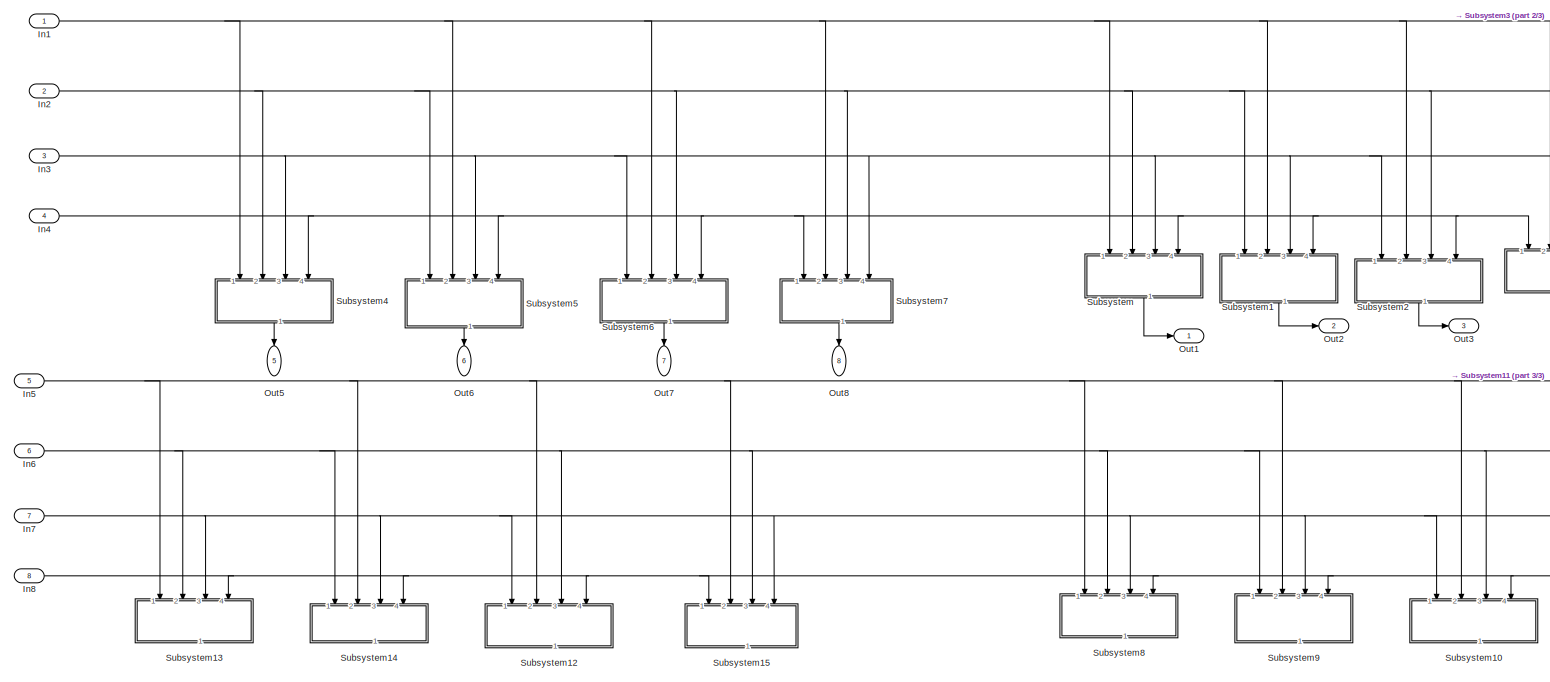
[diagram: Subsystem4 - part 1/3, most of the canvas]
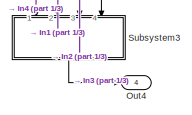
[diagram: Subsystem4 - part 2/3, middle right region]
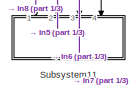
[diagram: Subsystem4 - part 3/3, bottom right region]
BLOCK [SubSystem] Subsystem4
  Ports = [8, 8]
  RequestExecContextInheritance = off
BLOCK [Inport] Subsystem4/In1
  IconDisplay = Port number
BLOCK [Inport] Subsystem4/In2
  IconDisplay = Port number
  Port = 2
BLOCK [Inport] Subsystem4/In3
  IconDisplay = Port number
  Port = 3
BLOCK [Inport] Subsystem4/In4
  IconDisplay = Port number
  Port = 4
BLOCK [Inport] Subsystem4/In5
  IconDisplay = Port number
  Port = 5
BLOCK [Inport] Subsystem4/In6
  IconDisplay = Port number
  Port = 6
BLOCK [Inport] Subsystem4/In7
  IconDisplay = Port number
  Port = 7
BLOCK [Inport] Subsystem4/In8
  IconDisplay = Port number
  Port = 8
BLOCK [Outport] Subsystem4/Out1
  IconDisplay = Port number
BLOCK [Outport] Subsystem4/Out2
  IconDisplay = Port number
  Port = 2
BLOCK [Outport] Subsystem4/Out3
  IconDisplay = Port number
  Port = 3
BLOCK [Outport] Subsystem4/Out4
  IconDisplay = Port number
  Port = 4
BLOCK [Outport] Subsystem4/Out5
  IconDisplay = Port number
  Port = 5
BLOCK [Outport] Subsystem4/Out6
  IconDisplay = Port number
  Port = 6
BLOCK [Outport] Subsystem4/Out7
  IconDisplay = Port number
  Port = 7
BLOCK [Outport] Subsystem4/Out8
  IconDisplay = Port number
  Port = 8
BLOCK [SubSystem] Subsystem4/Subsystem
  Ports = [4, 1]
  RequestExecContextInheritance = off
BLOCK [Sum] Subsystem4/Subsystem/Add
  InputSameDT = off
  Inputs = +++
  OutDataTypeStr = Inherit: Inherit via internal rule
  Ports = [3, 1]
  SaturateOnIntegerOverflow = off
BLOCK [Inport] Subsystem4/Subsystem/In1
  IconDisplay = Port number
BLOCK [Inport] Subsystem4/Subsystem/In2
  IconDisplay = Port number
  Port = 2
BLOCK [Inport] Subsystem4/Subsystem/In3
  IconDisplay = Port number
  Port = 3
BLOCK [Inport] Subsystem4/Subsystem/In4
  IconDisplay = Port number
  Port = 4
BLOCK [Outport] Subsystem4/Subsystem/Out1
  IconDisplay = Port number
BLOCK [Reference] Subsystem4/Subsystem/PID Controller3  REF=simulink/Continuous/PID Controller
  AntiWindupMode = none
  Controller = PID
  D = 0.756963167778154
  DOutDataTypeStr = Inherit: Inherit via internal rule
  DOutMax = []
  DOutMin = []
  DParamDataTypeStr = Inherit: Inherit via internal rule
  DParamMax = []
  DParamMin = []
  DifferentiatorICPrevScaledInput = 0
  DifferentiatorOutDataTypeStr = Inherit: Inherit via internal rule
  DifferentiatorOutMax = []
  DifferentiatorOutMin = []
  ExternalReset = none
  FilterContinuousStateAttributes = ''
  FilterMethod = Forward Euler
  FilterOutDataTypeStr = Inherit: Inherit via internal rule
  FilterOutMax = []
  FilterOutMin = []
  FilterRTWStateStorageClass = Auto
  FilterStateMustResolveToSignalObject = off
  Form = Parallel
  I = 3.96505413373294
  IOutDataTypeStr = Inherit: Inherit via internal rule
  IOutMax = []
  IOutMin = []
  IParamDataTypeStr = Inherit: Inherit via internal rule
  IParamMax = []
  IParamMin = []
  IgnoreLimit = off
  InitialConditionForFilter = 0
  InitialConditionForIntegrator = 0
  InitialConditionSource = internal
  IntegratorContinuousStateAttributes = ''
  IntegratorMethod = Forward Euler
  IntegratorOutDataTypeStr = Inherit: Inherit via internal rule
  IntegratorOutMax = []
  IntegratorOutMin = []
  IntegratorRTWStateStorageClass = Auto
  IntegratorStateMustResolveToSignalObject = off
  Kb = 1
  KbOutDataTypeStr = Inherit: Inherit via internal rule
  KbOutMax = []
  KbOutMin = []
  KbParamDataTypeStr = Inherit: Inherit via internal rule
  KbParamMax = []
  KbParamMin = []
  Kt = 1
  KtOutDataTypeStr = Inherit: Inherit via internal rule
  KtOutMax = []
  KtOutMin = []
  KtParamDataTypeStr = Inherit: Inherit via internal rule
  KtParamMax = []
  KtParamMin = []
  LimitOutput = off
  LinearizeAsGain = on
  LockScale = off
  LowerSaturationLimit = -inf
  N = 4061.73491108422
  NOutDataTypeStr = Inherit: Inherit via internal rule
  NOutMax = []
  NOutMin = []
  NParamDataTypeStr = Inherit: Inherit via internal rule
  NParamMax = []
  NParamMin = []
  P = 12.9851074749726
  POutDataTypeStr = Inherit: Inherit via internal rule
  POutMax = []
  POutMin = []
  PParamDataTypeStr = Inherit: Inherit via internal rule
  PParamMax = []
  PParamMin = []
  Ports = [1, 1]
  RndMeth = Floor
  SampleTime = -1
  SaturateOnIntegerOverflow = off
  SaturationOutDataTypeStr = Inherit: Same as input
  SaturationOutMax = []
  SaturationOutMin = []
  SourceBlock = simulink/Continuous/PID Controller
  SourceType = PID 1dof
  SumAccumDataTypeStr = Inherit: Inherit via internal rule
  SumDAccumDataTypeStr = Inherit: Inherit via internal rule
  SumDOutDataTypeStr = Inherit: Inherit via internal rule
  SumDOutMax = []
  SumDOutMin = []
  SumI1AccumDataTypeStr = Inherit: Inherit via internal rule
  SumI1OutDataTypeStr = Inherit: Inherit via internal rule
  SumI1OutMax = []
  SumI1OutMin = []
  SumI2AccumDataTypeStr = Inherit: Inherit via internal rule
  SumI2OutDataTypeStr = Inherit: Inherit via internal rule
  SumI2OutMax = []
  SumI2OutMin = []
  SumI3AccumDataTypeStr = Inherit: Inherit via internal rule
  SumI3OutDataTypeStr = Inherit: Inherit via internal rule
  SumI3OutMax = []
  SumI3OutMin = []
  SumOutDataTypeStr = Inherit: Inherit via internal rule
  SumOutMax = []
  SumOutMin = []
  TimeDomain = Continuous-time
  TrackingMode = off
  UpperSaturationLimit = inf
  UseFilter = on
  ZeroCross = on
BLOCK [Reference] Subsystem4/Subsystem/PID Controller4  REF=simulink/Continuous/PID Controller
  AntiWindupMode = none
  Controller = PID
  D = 0.756963167778154
  DOutDataTypeStr = Inherit: Inherit via internal rule
  DOutMax = []
  DOutMin = []
  DParamDataTypeStr = Inherit: Inherit via internal rule
  DParamMax = []
  DParamMin = []
  DifferentiatorICPrevScaledInput = 0
  DifferentiatorOutDataTypeStr = Inherit: Inherit via internal rule
  DifferentiatorOutMax = []
  DifferentiatorOutMin = []
  ExternalReset = none
  FilterContinuousStateAttributes = ''
  FilterMethod = Forward Euler
  FilterOutDataTypeStr = Inherit: Inherit via internal rule
  FilterOutMax = []
  FilterOutMin = []
  FilterRTWStateStorageClass = Auto
  FilterStateMustResolveToSignalObject = off
  Form = Parallel
  I = 3.96505413373294
  IOutDataTypeStr = Inherit: Inherit via internal rule
  IOutMax = []
  IOutMin = []
  IParamDataTypeStr = Inherit: Inherit via internal rule
  IParamMax = []
  IParamMin = []
  IgnoreLimit = off
  InitialConditionForFilter = 0
  InitialConditionForIntegrator = 0
  InitialConditionSource = internal
  IntegratorContinuousStateAttributes = ''
  IntegratorMethod = Forward Euler
  IntegratorOutDataTypeStr = Inherit: Inherit via internal rule
  IntegratorOutMax = []
  IntegratorOutMin = []
  IntegratorRTWStateStorageClass = Auto
  IntegratorStateMustResolveToSignalObject = off
  Kb = 1
  KbOutDataTypeStr = Inherit: Inherit via internal rule
  KbOutMax = []
  KbOutMin = []
  KbParamDataTypeStr = Inherit: Inherit via internal rule
  KbParamMax = []
  KbParamMin = []
  Kt = 1
  KtOutDataTypeStr = Inherit: Inherit via internal rule
  KtOutMax = []
  KtOutMin = []
  KtParamDataTypeStr = Inherit: Inherit via internal rule
  KtParamMax = []
  KtParamMin = []
  LimitOutput = off
  LinearizeAsGain = on
  LockScale = off
  LowerSaturationLimit = -inf
  N = 4061.73491108422
  NOutDataTypeStr = Inherit: Inherit via internal rule
  NOutMax = []
  NOutMin = []
  NParamDataTypeStr = Inherit: Inherit via internal rule
  NParamMax = []
  NParamMin = []
  P = 12.9851074749726
  POutDataTypeStr = Inherit: Inherit via internal rule
  POutMax = []
  POutMin = []
  PParamDataTypeStr = Inherit: Inherit via internal rule
  PParamMax = []
  PParamMin = []
  Ports = [1, 1]
  RndMeth = Floor
  SampleTime = -1
  SaturateOnIntegerOverflow = off
  SaturationOutDataTypeStr = Inherit: Same as input
  SaturationOutMax = []
  SaturationOutMin = []
  SourceBlock = simulink/Continuous/PID Controller
  SourceType = PID 1dof
  SumAccumDataTypeStr = Inherit: Inherit via internal rule
  SumDAccumDataTypeStr = Inherit: Inherit via internal rule
  SumDOutDataTypeStr = Inherit: Inherit via internal rule
  SumDOutMax = []
  SumDOutMin = []
  SumI1AccumDataTypeStr = Inherit: Inherit via internal rule
  SumI1OutDataTypeStr = Inherit: Inherit via internal rule
  SumI1OutMax = []
  SumI1OutMin = []
  SumI2AccumDataTypeStr = Inherit: Inherit via internal rule
  SumI2OutDataTypeStr = Inherit: Inherit via internal rule
  SumI2OutMax = []
  SumI2OutMin = []
  SumI3AccumDataTypeStr = Inherit: Inherit via internal rule
  SumI3OutDataTypeStr = Inherit: Inherit via internal rule
  SumI3OutMax = []
  SumI3OutMin = []
  SumOutDataTypeStr = Inherit: Inherit via internal rule
  SumOutMax = []
  SumOutMin = []
  TimeDomain = Continuous-time
  TrackingMode = off
  UpperSaturationLimit = inf
  UseFilter = on
  ZeroCross = on
BLOCK [Reference] Subsystem4/Subsystem/PID Controller6  REF=simulink/Continuous/PID Controller
  AntiWindupMode = none
  Controller = PID
  D = 0.756963167778154
  DOutDataTypeStr = Inherit: Inherit via internal rule
  DOutMax = []
  DOutMin = []
  DParamDataTypeStr = Inherit: Inherit via internal rule
  DParamMax = []
  DParamMin = []
  DifferentiatorICPrevScaledInput = 0
  DifferentiatorOutDataTypeStr = Inherit: Inherit via internal rule
  DifferentiatorOutMax = []
  DifferentiatorOutMin = []
  ExternalReset = none
  FilterContinuousStateAttributes = ''
  FilterMethod = Forward Euler
  FilterOutDataTypeStr = Inherit: Inherit via internal rule
  FilterOutMax = []
  FilterOutMin = []
  FilterRTWStateStorageClass = Auto
  FilterStateMustResolveToSignalObject = off
  Form = Parallel
  I = 3.96505413373294
  IOutDataTypeStr = Inherit: Inherit via internal rule
  IOutMax = []
  IOutMin = []
  IParamDataTypeStr = Inherit: Inherit via internal rule
  IParamMax = []
  IParamMin = []
  IgnoreLimit = off
  InitialConditionForFilter = 0
  InitialConditionForIntegrator = 0
  InitialConditionSource = internal
  IntegratorContinuousStateAttributes = ''
  IntegratorMethod = Forward Euler
  IntegratorOutDataTypeStr = Inherit: Inherit via internal rule
  IntegratorOutMax = []
  IntegratorOutMin = []
  IntegratorRTWStateStorageClass = Auto
  IntegratorStateMustResolveToSignalObject = off
  Kb = 1
  KbOutDataTypeStr = Inherit: Inherit via internal rule
  KbOutMax = []
  KbOutMin = []
  KbParamDataTypeStr = Inherit: Inherit via internal rule
  KbParamMax = []
  KbParamMin = []
  Kt = 1
  KtOutDataTypeStr = Inherit: Inherit via internal rule
  KtOutMax = []
  KtOutMin = []
  KtParamDataTypeStr = Inherit: Inherit via internal rule
  KtParamMax = []
  KtParamMin = []
  LimitOutput = off
  LinearizeAsGain = on
  LockScale = off
  LowerSaturationLimit = -inf
  N = 4061.73491108422
  NOutDataTypeStr = Inherit: Inherit via internal rule
  NOutMax = []
  NOutMin = []
  NParamDataTypeStr = Inherit: Inherit via internal rule
  NParamMax = []
  NParamMin = []
  P = 12.9851074749726
  POutDataTypeStr = Inherit: Inherit via internal rule
  POutMax = []
  POutMin = []
  PParamDataTypeStr = Inherit: Inherit via internal rule
  PParamMax = []
  PParamMin = []
  Ports = [1, 1]
  RndMeth = Floor
  SampleTime = -1
  SaturateOnIntegerOverflow = off
  SaturationOutDataTypeStr = Inherit: Same as input
  SaturationOutMax = []
  SaturationOutMin = []
  SourceBlock = simulink/Continuous/PID Controller
  SourceType = PID 1dof
  SumAccumDataTypeStr = Inherit: Inherit via internal rule
  SumDAccumDataTypeStr = Inherit: Inherit via internal rule
  SumDOutDataTypeStr = Inherit: Inherit via internal rule
  SumDOutMax = []
  SumDOutMin = []
  SumI1AccumDataTypeStr = Inherit: Inherit via internal rule
  SumI1OutDataTypeStr = Inherit: Inherit via internal rule
  SumI1OutMax = []
  SumI1OutMin = []
  SumI2AccumDataTypeStr = Inherit: Inherit via internal rule
  SumI2OutDataTypeStr = Inherit: Inherit via internal rule
  SumI2OutMax = []
  SumI2OutMin = []
  SumI3AccumDataTypeStr = Inherit: Inherit via internal rule
  SumI3OutDataTypeStr = Inherit: Inherit via internal rule
  SumI3OutMax = []
  SumI3OutMin = []
  SumOutDataTypeStr = Inherit: Inherit via internal rule
  SumOutMax = []
  SumOutMin = []
  TimeDomain = Continuous-time
  TrackingMode = off
  UpperSaturationLimit = inf
  UseFilter = on
  ZeroCross = on
BLOCK [Sum] Subsystem4/Subsystem/Sum
  IconShape = round
  InputSameDT = off
  Inputs = |+-
  OutDataTypeStr = Inherit: Inherit via internal rule
  Ports = [2, 1]
  SaturateOnIntegerOverflow = off
BLOCK [Sum] Subsystem4/Subsystem/Sum1
  IconShape = round
  InputSameDT = off
  Inputs = |+-
  OutDataTypeStr = Inherit: Inherit via internal rule
  Ports = [2, 1]
  SaturateOnIntegerOverflow = off
BLOCK [Sum] Subsystem4/Subsystem/Sum2
  IconShape = round
  InputSameDT = off
  Inputs = |+-
  OutDataTypeStr = Inherit: Inherit via internal rule
  Ports = [2, 1]
  SaturateOnIntegerOverflow = off
BLOCK [SubSystem] Subsystem4/Subsystem1
  Ports = [4, 1]
  RequestExecContextInheritance = off
BLOCK [Sum] Subsystem4/Subsystem1/Add
  InputSameDT = off
  Inputs = +++
  OutDataTypeStr = Inherit: Inherit via internal rule
  Ports = [3, 1]
  SaturateOnIntegerOverflow = off
BLOCK [Inport] Subsystem4/Subsystem1/In1
  IconDisplay = Port number
  Port = 2
BLOCK [Inport] Subsystem4/Subsystem1/In2
  IconDisplay = Port number
BLOCK [Inport] Subsystem4/Subsystem1/In3
  IconDisplay = Port number
  Port = 3
BLOCK [Inport] Subsystem4/Subsystem1/In4
  IconDisplay = Port number
  Port = 4
BLOCK [Outport] Subsystem4/Subsystem1/Out1
  IconDisplay = Port number
BLOCK [Reference] Subsystem4/Subsystem1/PID Controller3  REF=simulink/Continuous/PID Controller
  AntiWindupMode = none
  Controller = PID
  D = 0.756963167778154
  DOutDataTypeStr = Inherit: Inherit via internal rule
  DOutMax = []
  DOutMin = []
  DParamDataTypeStr = Inherit: Inherit via internal rule
  DParamMax = []
  DParamMin = []
  DifferentiatorICPrevScaledInput = 0
  DifferentiatorOutDataTypeStr = Inherit: Inherit via internal rule
  DifferentiatorOutMax = []
  DifferentiatorOutMin = []
  ExternalReset = none
  FilterContinuousStateAttributes = ''
  FilterMethod = Forward Euler
  FilterOutDataTypeStr = Inherit: Inherit via internal rule
  FilterOutMax = []
  FilterOutMin = []
  FilterRTWStateStorageClass = Auto
  FilterStateMustResolveToSignalObject = off
  Form = Parallel
  I = 3.96505413373294
  IOutDataTypeStr = Inherit: Inherit via internal rule
  IOutMax = []
  IOutMin = []
  IParamDataTypeStr = Inherit: Inherit via internal rule
  IParamMax = []
  IParamMin = []
  IgnoreLimit = off
  InitialConditionForFilter = 0
  InitialConditionForIntegrator = 0
  InitialConditionSource = internal
  IntegratorContinuousStateAttributes = ''
  IntegratorMethod = Forward Euler
  IntegratorOutDataTypeStr = Inherit: Inherit via internal rule
  IntegratorOutMax = []
  IntegratorOutMin = []
  IntegratorRTWStateStorageClass = Auto
  IntegratorStateMustResolveToSignalObject = off
  Kb = 1
  KbOutDataTypeStr = Inherit: Inherit via internal rule
  KbOutMax = []
  KbOutMin = []
  KbParamDataTypeStr = Inherit: Inherit via internal rule
  KbParamMax = []
  KbParamMin = []
  Kt = 1
  KtOutDataTypeStr = Inherit: Inherit via internal rule
  KtOutMax = []
  KtOutMin = []
  KtParamDataTypeStr = Inherit: Inherit via internal rule
  KtParamMax = []
  KtParamMin = []
  LimitOutput = off
  LinearizeAsGain = on
  LockScale = off
  LowerSaturationLimit = -inf
  N = 4061.73491108422
  NOutDataTypeStr = Inherit: Inherit via internal rule
  NOutMax = []
  NOutMin = []
  NParamDataTypeStr = Inherit: Inherit via internal rule
  NParamMax = []
  NParamMin = []
  P = 12.9851074749726
  POutDataTypeStr = Inherit: Inherit via internal rule
  POutMax = []
  POutMin = []
  PParamDataTypeStr = Inherit: Inherit via internal rule
  PParamMax = []
  PParamMin = []
  Ports = [1, 1]
  RndMeth = Floor
  SampleTime = -1
  SaturateOnIntegerOverflow = off
  SaturationOutDataTypeStr = Inherit: Same as input
  SaturationOutMax = []
  SaturationOutMin = []
  SourceBlock = simulink/Continuous/PID Controller
  SourceType = PID 1dof
  SumAccumDataTypeStr = Inherit: Inherit via internal rule
  SumDAccumDataTypeStr = Inherit: Inherit via internal rule
  SumDOutDataTypeStr = Inherit: Inherit via internal rule
  SumDOutMax = []
  SumDOutMin = []
  SumI1AccumDataTypeStr = Inherit: Inherit via internal rule
  SumI1OutDataTypeStr = Inherit: Inherit via internal rule
  SumI1OutMax = []
  SumI1OutMin = []
  SumI2AccumDataTypeStr = Inherit: Inherit via internal rule
  SumI2OutDataTypeStr = Inherit: Inherit via internal rule
  SumI2OutMax = []
  SumI2OutMin = []
  SumI3AccumDataTypeStr = Inherit: Inherit via internal rule
  SumI3OutDataTypeStr = Inherit: Inherit via internal rule
  SumI3OutMax = []
  SumI3OutMin = []
  SumOutDataTypeStr = Inherit: Inherit via internal rule
  SumOutMax = []
  SumOutMin = []
  TimeDomain = Continuous-time
  TrackingMode = off
  UpperSaturationLimit = inf
  UseFilter = on
  ZeroCross = on
BLOCK [Reference] Subsystem4/Subsystem1/PID Controller4  REF=simulink/Continuous/PID Controller
  AntiWindupMode = none
  Controller = PID
  D = 0.756963167778154
  DOutDataTypeStr = Inherit: Inherit via internal rule
  DOutMax = []
  DOutMin = []
  DParamDataTypeStr = Inherit: Inherit via internal rule
  DParamMax = []
  DParamMin = []
  DifferentiatorICPrevScaledInput = 0
  DifferentiatorOutDataTypeStr = Inherit: Inherit via internal rule
  DifferentiatorOutMax = []
  DifferentiatorOutMin = []
  ExternalReset = none
  FilterContinuousStateAttributes = ''
  FilterMethod = Forward Euler
  FilterOutDataTypeStr = Inherit: Inherit via internal rule
  FilterOutMax = []
  FilterOutMin = []
  FilterRTWStateStorageClass = Auto
  FilterStateMustResolveToSignalObject = off
  Form = Parallel
  I = 3.96505413373294
  IOutDataTypeStr = Inherit: Inherit via internal rule
  IOutMax = []
  IOutMin = []
  IParamDataTypeStr = Inherit: Inherit via internal rule
  IParamMax = []
  IParamMin = []
  IgnoreLimit = off
  InitialConditionForFilter = 0
  InitialConditionForIntegrator = 0
  InitialConditionSource = internal
  IntegratorContinuousStateAttributes = ''
  IntegratorMethod = Forward Euler
  IntegratorOutDataTypeStr = Inherit: Inherit via internal rule
  IntegratorOutMax = []
  IntegratorOutMin = []
  IntegratorRTWStateStorageClass = Auto
  IntegratorStateMustResolveToSignalObject = off
  Kb = 1
  KbOutDataTypeStr = Inherit: Inherit via internal rule
  KbOutMax = []
  KbOutMin = []
  KbParamDataTypeStr = Inherit: Inherit via internal rule
  KbParamMax = []
  KbParamMin = []
  Kt = 1
  KtOutDataTypeStr = Inherit: Inherit via internal rule
  KtOutMax = []
  KtOutMin = []
  KtParamDataTypeStr = Inherit: Inherit via internal rule
  KtParamMax = []
  KtParamMin = []
  LimitOutput = off
  LinearizeAsGain = on
  LockScale = off
  LowerSaturationLimit = -inf
  N = 4061.73491108422
  NOutDataTypeStr = Inherit: Inherit via internal rule
  NOutMax = []
  NOutMin = []
  NParamDataTypeStr = Inherit: Inherit via internal rule
  NParamMax = []
  NParamMin = []
  P = 12.9851074749726
  POutDataTypeStr = Inherit: Inherit via internal rule
  POutMax = []
  POutMin = []
  PParamDataTypeStr = Inherit: Inherit via internal rule
  PParamMax = []
  PParamMin = []
  Ports = [1, 1]
  RndMeth = Floor
  SampleTime = -1
  SaturateOnIntegerOverflow = off
  SaturationOutDataTypeStr = Inherit: Same as input
  SaturationOutMax = []
  SaturationOutMin = []
  SourceBlock = simulink/Continuous/PID Controller
  SourceType = PID 1dof
  SumAccumDataTypeStr = Inherit: Inherit via internal rule
  SumDAccumDataTypeStr = Inherit: Inherit via internal rule
  SumDOutDataTypeStr = Inherit: Inherit via internal rule
  SumDOutMax = []
  SumDOutMin = []
  SumI1AccumDataTypeStr = Inherit: Inherit via internal rule
  SumI1OutDataTypeStr = Inherit: Inherit via internal rule
  SumI1OutMax = []
  SumI1OutMin = []
  SumI2AccumDataTypeStr = Inherit: Inherit via internal rule
  SumI2OutDataTypeStr = Inherit: Inherit via internal rule
  SumI2OutMax = []
  SumI2OutMin = []
  SumI3AccumDataTypeStr = Inherit: Inherit via internal rule
  SumI3OutDataTypeStr = Inherit: Inherit via internal rule
  SumI3OutMax = []
  SumI3OutMin = []
  SumOutDataTypeStr = Inherit: Inherit via internal rule
  SumOutMax = []
  SumOutMin = []
  TimeDomain = Continuous-time
  TrackingMode = off
  UpperSaturationLimit = inf
  UseFilter = on
  ZeroCross = on
BLOCK [Reference] Subsystem4/Subsystem1/PID Controller6  REF=simulink/Continuous/PID Controller
  AntiWindupMode = none
  Controller = PID
  D = 0.756963167778154
  DOutDataTypeStr = Inherit: Inherit via internal rule
  DOutMax = []
  DOutMin = []
  DParamDataTypeStr = Inherit: Inherit via internal rule
  DParamMax = []
  DParamMin = []
  DifferentiatorICPrevScaledInput = 0
  DifferentiatorOutDataTypeStr = Inherit: Inherit via internal rule
  DifferentiatorOutMax = []
  DifferentiatorOutMin = []
  ExternalReset = none
  FilterContinuousStateAttributes = ''
  FilterMethod = Forward Euler
  FilterOutDataTypeStr = Inherit: Inherit via internal rule
  FilterOutMax = []
  FilterOutMin = []
  FilterRTWStateStorageClass = Auto
  FilterStateMustResolveToSignalObject = off
  Form = Parallel
  I = 3.96505413373294
  IOutDataTypeStr = Inherit: Inherit via internal rule
  IOutMax = []
  IOutMin = []
  IParamDataTypeStr = Inherit: Inherit via internal rule
  IParamMax = []
  IParamMin = []
  IgnoreLimit = off
  InitialConditionForFilter = 0
  InitialConditionForIntegrator = 0
  InitialConditionSource = internal
  IntegratorContinuousStateAttributes = ''
  IntegratorMethod = Forward Euler
  IntegratorOutDataTypeStr = Inherit: Inherit via internal rule
  IntegratorOutMax = []
  IntegratorOutMin = []
  IntegratorRTWStateStorageClass = Auto
  IntegratorStateMustResolveToSignalObject = off
  Kb = 1
  KbOutDataTypeStr = Inherit: Inherit via internal rule
  KbOutMax = []
  KbOutMin = []
  KbParamDataTypeStr = Inherit: Inherit via internal rule
  KbParamMax = []
  KbParamMin = []
  Kt = 1
  KtOutDataTypeStr = Inherit: Inherit via internal rule
  KtOutMax = []
  KtOutMin = []
  KtParamDataTypeStr = Inherit: Inherit via internal rule
  KtParamMax = []
  KtParamMin = []
  LimitOutput = off
  LinearizeAsGain = on
  LockScale = off
  LowerSaturationLimit = -inf
  N = 4061.73491108422
  NOutDataTypeStr = Inherit: Inherit via internal rule
  NOutMax = []
  NOutMin = []
  NParamDataTypeStr = Inherit: Inherit via internal rule
  NParamMax = []
  NParamMin = []
  P = 12.9851074749726
  POutDataTypeStr = Inherit: Inherit via internal rule
  POutMax = []
  POutMin = []
  PParamDataTypeStr = Inherit: Inherit via internal rule
  PParamMax = []
  PParamMin = []
  Ports = [1, 1]
  RndMeth = Floor
  SampleTime = -1
  SaturateOnIntegerOverflow = off
  SaturationOutDataTypeStr = Inherit: Same as input
  SaturationOutMax = []
  SaturationOutMin = []
  SourceBlock = simulink/Continuous/PID Controller
  SourceType = PID 1dof
  SumAccumDataTypeStr = Inherit: Inherit via internal rule
  SumDAccumDataTypeStr = Inherit: Inherit via internal rule
  SumDOutDataTypeStr = Inherit: Inherit via internal rule
  SumDOutMax = []
  SumDOutMin = []
  SumI1AccumDataTypeStr = Inherit: Inherit via internal rule
  SumI1OutDataTypeStr = Inherit: Inherit via internal rule
  SumI1OutMax = []
  SumI1OutMin = []
  SumI2AccumDataTypeStr = Inherit: Inherit via internal rule
  SumI2OutDataTypeStr = Inherit: Inherit via internal rule
  SumI2OutMax = []
  SumI2OutMin = []
  SumI3AccumDataTypeStr = Inherit: Inherit via internal rule
  SumI3OutDataTypeStr = Inherit: Inherit via internal rule
  SumI3OutMax = []
  SumI3OutMin = []
  SumOutDataTypeStr = Inherit: Inherit via internal rule
  SumOutMax = []
  SumOutMin = []
  TimeDomain = Continuous-time
  TrackingMode = off
  UpperSaturationLimit = inf
  UseFilter = on
  ZeroCross = on
BLOCK [Sum] Subsystem4/Subsystem1/Sum
  IconShape = round
  InputSameDT = off
  Inputs = |+-
  OutDataTypeStr = Inherit: Inherit via internal rule
  Ports = [2, 1]
  SaturateOnIntegerOverflow = off
BLOCK [Sum] Subsystem4/Subsystem1/Sum1
  IconShape = round
  InputSameDT = off
  Inputs = |+-
  OutDataTypeStr = Inherit: Inherit via internal rule
  Ports = [2, 1]
  SaturateOnIntegerOverflow = off
BLOCK [Sum] Subsystem4/Subsystem1/Sum2
  IconShape = round
  InputSameDT = off
  Inputs = |+-
  OutDataTypeStr = Inherit: Inherit via internal rule
  Ports = [2, 1]
  SaturateOnIntegerOverflow = off
BLOCK [SubSystem] Subsystem4/Subsystem10
  Ports = [4, 1]
  RequestExecContextInheritance = off
BLOCK [Sum] Subsystem4/Subsystem10/Add
  InputSameDT = off
  Inputs = +++
  OutDataTypeStr = Inherit: Inherit via internal rule
  Ports = [3, 1]
  SaturateOnIntegerOverflow = off
BLOCK [Inport] Subsystem4/Subsystem10/In1
  IconDisplay = Port number
  Port = 2
BLOCK [Inport] Subsystem4/Subsystem10/In2
  IconDisplay = Port number
  Port = 3
BLOCK [Inport] Subsystem4/Subsystem10/In3
  IconDisplay = Port number
BLOCK [Inport] Subsystem4/Subsystem10/In4
  IconDisplay = Port number
  Port = 4
BLOCK [Outport] Subsystem4/Subsystem10/Out1
  IconDisplay = Port number
BLOCK [Reference] Subsystem4/Subsystem10/PID Controller1  REF=simulink/Continuous/PID Controller
  AntiWindupMode = none
  Controller = PID
  D = -0.019753461495741
  DOutDataTypeStr = Inherit: Inherit via internal rule
  DOutMax = []
  DOutMin = []
  DParamDataTypeStr = Inherit: Inherit via internal rule
  DParamMax = []
  DParamMin = []
  DifferentiatorICPrevScaledInput = 0
  DifferentiatorOutDataTypeStr = Inherit: Inherit via internal rule
  DifferentiatorOutMax = []
  DifferentiatorOutMin = []
  ExternalReset = none
  FilterContinuousStateAttributes = ''
  FilterMethod = Forward Euler
  FilterOutDataTypeStr = Inherit: Inherit via internal rule
  FilterOutMax = []
  FilterOutMin = []
  FilterRTWStateStorageClass = Auto
  FilterStateMustResolveToSignalObject = off
  Form = Parallel
  I = 21.1355731705013
  IOutDataTypeStr = Inherit: Inherit via internal rule
  IOutMax = []
  IOutMin = []
  IParamDataTypeStr = Inherit: Inherit via internal rule
  IParamMax = []
  IParamMin = []
  IgnoreLimit = off
  InitialConditionForFilter = 0
  InitialConditionForIntegrator = 0
  InitialConditionSource = internal
  IntegratorContinuousStateAttributes = ''
  IntegratorMethod = Forward Euler
  IntegratorOutDataTypeStr = Inherit: Inherit via internal rule
  IntegratorOutMax = []
  IntegratorOutMin = []
  IntegratorRTWStateStorageClass = Auto
  IntegratorStateMustResolveToSignalObject = off
  Kb = 1
  KbOutDataTypeStr = Inherit: Inherit via internal rule
  KbOutMax = []
  KbOutMin = []
  KbParamDataTypeStr = Inherit: Inherit via internal rule
  KbParamMax = []
  KbParamMin = []
  Kt = 1
  KtOutDataTypeStr = Inherit: Inherit via internal rule
  KtOutMax = []
  KtOutMin = []
  KtParamDataTypeStr = Inherit: Inherit via internal rule
  KtParamMax = []
  KtParamMin = []
  LimitOutput = off
  LinearizeAsGain = on
  LockScale = off
  LowerSaturationLimit = -inf
  N = 20.6090721378652
  NOutDataTypeStr = Inherit: Inherit via internal rule
  NOutMax = []
  NOutMin = []
  NParamDataTypeStr = Inherit: Inherit via internal rule
  NParamMax = []
  NParamMin = []
  P = 1.70949141415732
  POutDataTypeStr = Inherit: Inherit via internal rule
  POutMax = []
  POutMin = []
  PParamDataTypeStr = Inherit: Inherit via internal rule
  PParamMax = []
  PParamMin = []
  Ports = [1, 1]
  RndMeth = Floor
  SampleTime = -1
  SaturateOnIntegerOverflow = off
  SaturationOutDataTypeStr = Inherit: Same as input
  SaturationOutMax = []
  SaturationOutMin = []
  SourceBlock = simulink/Continuous/PID Controller
  SourceType = PID 1dof
  SumAccumDataTypeStr = Inherit: Inherit via internal rule
  SumDAccumDataTypeStr = Inherit: Inherit via internal rule
  SumDOutDataTypeStr = Inherit: Inherit via internal rule
  SumDOutMax = []
  SumDOutMin = []
  SumI1AccumDataTypeStr = Inherit: Inherit via internal rule
  SumI1OutDataTypeStr = Inherit: Inherit via internal rule
  SumI1OutMax = []
  SumI1OutMin = []
  SumI2AccumDataTypeStr = Inherit: Inherit via internal rule
  SumI2OutDataTypeStr = Inherit: Inherit via internal rule
  SumI2OutMax = []
  SumI2OutMin = []
  SumI3AccumDataTypeStr = Inherit: Inherit via internal rule
  SumI3OutDataTypeStr = Inherit: Inherit via internal rule
  SumI3OutMax = []
  SumI3OutMin = []
  SumOutDataTypeStr = Inherit: Inherit via internal rule
  SumOutMax = []
  SumOutMin = []
  TimeDomain = Continuous-time
  TrackingMode = off
  UpperSaturationLimit = inf
  UseFilter = on
  ZeroCross = on
BLOCK [Reference] Subsystem4/Subsystem10/PID Controller2  REF=simulink/Continuous/PID Controller
  AntiWindupMode = none
  Controller = PID
  D = -0.019753461495741
  DOutDataTypeStr = Inherit: Inherit via internal rule
  DOutMax = []
  DOutMin = []
  DParamDataTypeStr = Inherit: Inherit via internal rule
  DParamMax = []
  DParamMin = []
  DifferentiatorICPrevScaledInput = 0
  DifferentiatorOutDataTypeStr = Inherit: Inherit via internal rule
  DifferentiatorOutMax = []
  DifferentiatorOutMin = []
  ExternalReset = none
  FilterContinuousStateAttributes = ''
  FilterMethod = Forward Euler
  FilterOutDataTypeStr = Inherit: Inherit via internal rule
  FilterOutMax = []
  FilterOutMin = []
  FilterRTWStateStorageClass = Auto
  FilterStateMustResolveToSignalObject = off
  Form = Parallel
  I = 21.1355731705013
  IOutDataTypeStr = Inherit: Inherit via internal rule
  IOutMax = []
  IOutMin = []
  IParamDataTypeStr = Inherit: Inherit via internal rule
  IParamMax = []
  IParamMin = []
  IgnoreLimit = off
  InitialConditionForFilter = 0
  InitialConditionForIntegrator = 0
  InitialConditionSource = internal
  IntegratorContinuousStateAttributes = ''
  IntegratorMethod = Forward Euler
  IntegratorOutDataTypeStr = Inherit: Inherit via internal rule
  IntegratorOutMax = []
  IntegratorOutMin = []
  IntegratorRTWStateStorageClass = Auto
  IntegratorStateMustResolveToSignalObject = off
  Kb = 1
  KbOutDataTypeStr = Inherit: Inherit via internal rule
  KbOutMax = []
  KbOutMin = []
  KbParamDataTypeStr = Inherit: Inherit via internal rule
  KbParamMax = []
  KbParamMin = []
  Kt = 1
  KtOutDataTypeStr = Inherit: Inherit via internal rule
  KtOutMax = []
  KtOutMin = []
  KtParamDataTypeStr = Inherit: Inherit via internal rule
  KtParamMax = []
  KtParamMin = []
  LimitOutput = off
  LinearizeAsGain = on
  LockScale = off
  LowerSaturationLimit = -inf
  N = 20.6090721378652
  NOutDataTypeStr = Inherit: Inherit via internal rule
  NOutMax = []
  NOutMin = []
  NParamDataTypeStr = Inherit: Inherit via internal rule
  NParamMax = []
  NParamMin = []
  P = 1.70949141415732
  POutDataTypeStr = Inherit: Inherit via internal rule
  POutMax = []
  POutMin = []
  PParamDataTypeStr = Inherit: Inherit via internal rule
  PParamMax = []
  PParamMin = []
  Ports = [1, 1]
  RndMeth = Floor
  SampleTime = -1
  SaturateOnIntegerOverflow = off
  SaturationOutDataTypeStr = Inherit: Same as input
  SaturationOutMax = []
  SaturationOutMin = []
  SourceBlock = simulink/Continuous/PID Controller
  SourceType = PID 1dof
  SumAccumDataTypeStr = Inherit: Inherit via internal rule
  SumDAccumDataTypeStr = Inherit: Inherit via internal rule
  SumDOutDataTypeStr = Inherit: Inherit via internal rule
  SumDOutMax = []
  SumDOutMin = []
  SumI1AccumDataTypeStr = Inherit: Inherit via internal rule
  SumI1OutDataTypeStr = Inherit: Inherit via internal rule
  SumI1OutMax = []
  SumI1OutMin = []
  SumI2AccumDataTypeStr = Inherit: Inherit via internal rule
  SumI2OutDataTypeStr = Inherit: Inherit via internal rule
  SumI2OutMax = []
  SumI2OutMin = []
  SumI3AccumDataTypeStr = Inherit: Inherit via internal rule
  SumI3OutDataTypeStr = Inherit: Inherit via internal rule
  SumI3OutMax = []
  SumI3OutMin = []
  SumOutDataTypeStr = Inherit: Inherit via internal rule
  SumOutMax = []
  SumOutMin = []
  TimeDomain = Continuous-time
  TrackingMode = off
  UpperSaturationLimit = inf
  UseFilter = on
  ZeroCross = on
BLOCK [Reference] Subsystem4/Subsystem10/PID Controller3  REF=simulink/Continuous/PID Controller
  AntiWindupMode = none
  Controller = PID
  D = -0.019753461495741
  DOutDataTypeStr = Inherit: Inherit via internal rule
  DOutMax = []
  DOutMin = []
  DParamDataTypeStr = Inherit: Inherit via internal rule
  DParamMax = []
  DParamMin = []
  DifferentiatorICPrevScaledInput = 0
  DifferentiatorOutDataTypeStr = Inherit: Inherit via internal rule
  DifferentiatorOutMax = []
  DifferentiatorOutMin = []
  ExternalReset = none
  FilterContinuousStateAttributes = ''
  FilterMethod = Forward Euler
  FilterOutDataTypeStr = Inherit: Inherit via internal rule
  FilterOutMax = []
  FilterOutMin = []
  FilterRTWStateStorageClass = Auto
  FilterStateMustResolveToSignalObject = off
  Form = Parallel
  I = 21.1355731705013
  IOutDataTypeStr = Inherit: Inherit via internal rule
  IOutMax = []
  IOutMin = []
  IParamDataTypeStr = Inherit: Inherit via internal rule
  IParamMax = []
  IParamMin = []
  IgnoreLimit = off
  InitialConditionForFilter = 0
  InitialConditionForIntegrator = 0
  InitialConditionSource = internal
  IntegratorContinuousStateAttributes = ''
  IntegratorMethod = Forward Euler
  IntegratorOutDataTypeStr = Inherit: Inherit via internal rule
  IntegratorOutMax = []
  IntegratorOutMin = []
  IntegratorRTWStateStorageClass = Auto
  IntegratorStateMustResolveToSignalObject = off
  Kb = 1
  KbOutDataTypeStr = Inherit: Inherit via internal rule
  KbOutMax = []
  KbOutMin = []
  KbParamDataTypeStr = Inherit: Inherit via internal rule
  KbParamMax = []
  KbParamMin = []
  Kt = 1
  KtOutDataTypeStr = Inherit: Inherit via internal rule
  KtOutMax = []
  KtOutMin = []
  KtParamDataTypeStr = Inherit: Inherit via internal rule
  KtParamMax = []
  KtParamMin = []
  LimitOutput = off
  LinearizeAsGain = on
  LockScale = off
  LowerSaturationLimit = -inf
  N = 20.6090721378652
  NOutDataTypeStr = Inherit: Inherit via internal rule
  NOutMax = []
  NOutMin = []
  NParamDataTypeStr = Inherit: Inherit via internal rule
  NParamMax = []
  NParamMin = []
  P = 1.70949141415732
  POutDataTypeStr = Inherit: Inherit via internal rule
  POutMax = []
  POutMin = []
  PParamDataTypeStr = Inherit: Inherit via internal rule
  PParamMax = []
  PParamMin = []
  Ports = [1, 1]
  RndMeth = Floor
  SampleTime = -1
  SaturateOnIntegerOverflow = off
  SaturationOutDataTypeStr = Inherit: Same as input
  SaturationOutMax = []
  SaturationOutMin = []
  SourceBlock = simulink/Continuous/PID Controller
  SourceType = PID 1dof
  SumAccumDataTypeStr = Inherit: Inherit via internal rule
  SumDAccumDataTypeStr = Inherit: Inherit via internal rule
  SumDOutDataTypeStr = Inherit: Inherit via internal rule
  SumDOutMax = []
  SumDOutMin = []
  SumI1AccumDataTypeStr = Inherit: Inherit via internal rule
  SumI1OutDataTypeStr = Inherit: Inherit via internal rule
  SumI1OutMax = []
  SumI1OutMin = []
  SumI2AccumDataTypeStr = Inherit: Inherit via internal rule
  SumI2OutDataTypeStr = Inherit: Inherit via internal rule
  SumI2OutMax = []
  SumI2OutMin = []
  SumI3AccumDataTypeStr = Inherit: Inherit via internal rule
  SumI3OutDataTypeStr = Inherit: Inherit via internal rule
  SumI3OutMax = []
  SumI3OutMin = []
  SumOutDataTypeStr = Inherit: Inherit via internal rule
  SumOutMax = []
  SumOutMin = []
  TimeDomain = Continuous-time
  TrackingMode = off
  UpperSaturationLimit = inf
  UseFilter = on
  ZeroCross = on
BLOCK [Sum] Subsystem4/Subsystem10/Sum
  IconShape = round
  InputSameDT = off
  Inputs = |+-
  OutDataTypeStr = Inherit: Inherit via internal rule
  Ports = [2, 1]
  SaturateOnIntegerOverflow = off
BLOCK [Sum] Subsystem4/Subsystem10/Sum1
  IconShape = round
  InputSameDT = off
  Inputs = |+-
  OutDataTypeStr = Inherit: Inherit via internal rule
  Ports = [2, 1]
  SaturateOnIntegerOverflow = off
BLOCK [Sum] Subsystem4/Subsystem10/Sum2
  IconShape = round
  InputSameDT = off
  Inputs = |+-
  OutDataTypeStr = Inherit: Inherit via internal rule
  Ports = [2, 1]
  SaturateOnIntegerOverflow = off
BLOCK [SubSystem] Subsystem4/Subsystem11
  Ports = [4, 1]
  RequestExecContextInheritance = off
BLOCK [Sum] Subsystem4/Subsystem11/Add
  InputSameDT = off
  Inputs = +++
  OutDataTypeStr = Inherit: Inherit via internal rule
  Ports = [3, 1]
  SaturateOnIntegerOverflow = off
BLOCK [Inport] Subsystem4/Subsystem11/In1
  IconDisplay = Port number
  Port = 2
BLOCK [Inport] Subsystem4/Subsystem11/In2
  IconDisplay = Port number
  Port = 3
BLOCK [Inport] Subsystem4/Subsystem11/In3
  IconDisplay = Port number
  Port = 4
BLOCK [Inport] Subsystem4/Subsystem11/In4
  IconDisplay = Port number
BLOCK [Outport] Subsystem4/Subsystem11/Out1
  IconDisplay = Port number
BLOCK [Reference] Subsystem4/Subsystem11/PID Controller4  REF=simulink/Continuous/PID Controller
  AntiWindupMode = none
  Controller = PID
  D = -0.019753461495741
  DOutDataTypeStr = Inherit: Inherit via internal rule
  DOutMax = []
  DOutMin = []
  DParamDataTypeStr = Inherit: Inherit via internal rule
  DParamMax = []
  DParamMin = []
  DifferentiatorICPrevScaledInput = 0
  DifferentiatorOutDataTypeStr = Inherit: Inherit via internal rule
  DifferentiatorOutMax = []
  DifferentiatorOutMin = []
  ExternalReset = none
  FilterContinuousStateAttributes = ''
  FilterMethod = Forward Euler
  FilterOutDataTypeStr = Inherit: Inherit via internal rule
  FilterOutMax = []
  FilterOutMin = []
  FilterRTWStateStorageClass = Auto
  FilterStateMustResolveToSignalObject = off
  Form = Parallel
  I = 21.1355731705013
  IOutDataTypeStr = Inherit: Inherit via internal rule
  IOutMax = []
  IOutMin = []
  IParamDataTypeStr = Inherit: Inherit via internal rule
  IParamMax = []
  IParamMin = []
  IgnoreLimit = off
  InitialConditionForFilter = 0
  InitialConditionForIntegrator = 0
  InitialConditionSource = internal
  IntegratorContinuousStateAttributes = ''
  IntegratorMethod = Forward Euler
  IntegratorOutDataTypeStr = Inherit: Inherit via internal rule
  IntegratorOutMax = []
  IntegratorOutMin = []
  IntegratorRTWStateStorageClass = Auto
  IntegratorStateMustResolveToSignalObject = off
  Kb = 1
  KbOutDataTypeStr = Inherit: Inherit via internal rule
  KbOutMax = []
  KbOutMin = []
  KbParamDataTypeStr = Inherit: Inherit via internal rule
  KbParamMax = []
  KbParamMin = []
  Kt = 1
  KtOutDataTypeStr = Inherit: Inherit via internal rule
  KtOutMax = []
  KtOutMin = []
  KtParamDataTypeStr = Inherit: Inherit via internal rule
  KtParamMax = []
  KtParamMin = []
  LimitOutput = off
  LinearizeAsGain = on
  LockScale = off
  LowerSaturationLimit = -inf
  N = 20.6090721378652
  NOutDataTypeStr = Inherit: Inherit via internal rule
  NOutMax = []
  NOutMin = []
  NParamDataTypeStr = Inherit: Inherit via internal rule
  NParamMax = []
  NParamMin = []
  P = 1.70949141415732
  POutDataTypeStr = Inherit: Inherit via internal rule
  POutMax = []
  POutMin = []
  PParamDataTypeStr = Inherit: Inherit via internal rule
  PParamMax = []
  PParamMin = []
  Ports = [1, 1]
  RndMeth = Floor
  SampleTime = -1
  SaturateOnIntegerOverflow = off
  SaturationOutDataTypeStr = Inherit: Same as input
  SaturationOutMax = []
  SaturationOutMin = []
  SourceBlock = simulink/Continuous/PID Controller
  SourceType = PID 1dof
  SumAccumDataTypeStr = Inherit: Inherit via internal rule
  SumDAccumDataTypeStr = Inherit: Inherit via internal rule
  SumDOutDataTypeStr = Inherit: Inherit via internal rule
  SumDOutMax = []
  SumDOutMin = []
  SumI1AccumDataTypeStr = Inherit: Inherit via internal rule
  SumI1OutDataTypeStr = Inherit: Inherit via internal rule
  SumI1OutMax = []
  SumI1OutMin = []
  SumI2AccumDataTypeStr = Inherit: Inherit via internal rule
  SumI2OutDataTypeStr = Inherit: Inherit via internal rule
  SumI2OutMax = []
  SumI2OutMin = []
  SumI3AccumDataTypeStr = Inherit: Inherit via internal rule
  SumI3OutDataTypeStr = Inherit: Inherit via internal rule
  SumI3OutMax = []
  SumI3OutMin = []
  SumOutDataTypeStr = Inherit: Inherit via internal rule
  SumOutMax = []
  SumOutMin = []
  TimeDomain = Continuous-time
  TrackingMode = off
  UpperSaturationLimit = inf
  UseFilter = on
  ZeroCross = on
BLOCK [Reference] Subsystem4/Subsystem11/PID Controller5  REF=simulink/Continuous/PID Controller
  AntiWindupMode = none
  Controller = PID
  D = -0.019753461495741
  DOutDataTypeStr = Inherit: Inherit via internal rule
  DOutMax = []
  DOutMin = []
  DParamDataTypeStr = Inherit: Inherit via internal rule
  DParamMax = []
  DParamMin = []
  DifferentiatorICPrevScaledInput = 0
  DifferentiatorOutDataTypeStr = Inherit: Inherit via internal rule
  DifferentiatorOutMax = []
  DifferentiatorOutMin = []
  ExternalReset = none
  FilterContinuousStateAttributes = ''
  FilterMethod = Forward Euler
  FilterOutDataTypeStr = Inherit: Inherit via internal rule
  FilterOutMax = []
  FilterOutMin = []
  FilterRTWStateStorageClass = Auto
  FilterStateMustResolveToSignalObject = off
  Form = Parallel
  I = 21.1355731705013
  IOutDataTypeStr = Inherit: Inherit via internal rule
  IOutMax = []
  IOutMin = []
  IParamDataTypeStr = Inherit: Inherit via internal rule
  IParamMax = []
  IParamMin = []
  IgnoreLimit = off
  InitialConditionForFilter = 0
  InitialConditionForIntegrator = 0
  InitialConditionSource = internal
  IntegratorContinuousStateAttributes = ''
  IntegratorMethod = Forward Euler
  IntegratorOutDataTypeStr = Inherit: Inherit via internal rule
  IntegratorOutMax = []
  IntegratorOutMin = []
  IntegratorRTWStateStorageClass = Auto
  IntegratorStateMustResolveToSignalObject = off
  Kb = 1
  KbOutDataTypeStr = Inherit: Inherit via internal rule
  KbOutMax = []
  KbOutMin = []
  KbParamDataTypeStr = Inherit: Inherit via internal rule
  KbParamMax = []
  KbParamMin = []
  Kt = 1
  KtOutDataTypeStr = Inherit: Inherit via internal rule
  KtOutMax = []
  KtOutMin = []
  KtParamDataTypeStr = Inherit: Inherit via internal rule
  KtParamMax = []
  KtParamMin = []
  LimitOutput = off
  LinearizeAsGain = on
  LockScale = off
  LowerSaturationLimit = -inf
  N = 20.6090721378652
  NOutDataTypeStr = Inherit: Inherit via internal rule
  NOutMax = []
  NOutMin = []
  NParamDataTypeStr = Inherit: Inherit via internal rule
  NParamMax = []
  NParamMin = []
  P = 1.70949141415732
  POutDataTypeStr = Inherit: Inherit via internal rule
  POutMax = []
  POutMin = []
  PParamDataTypeStr = Inherit: Inherit via internal rule
  PParamMax = []
  PParamMin = []
  Ports = [1, 1]
  RndMeth = Floor
  SampleTime = -1
  SaturateOnIntegerOverflow = off
  SaturationOutDataTypeStr = Inherit: Same as input
  SaturationOutMax = []
  SaturationOutMin = []
  SourceBlock = simulink/Continuous/PID Controller
  SourceType = PID 1dof
  SumAccumDataTypeStr = Inherit: Inherit via internal rule
  SumDAccumDataTypeStr = Inherit: Inherit via internal rule
  SumDOutDataTypeStr = Inherit: Inherit via internal rule
  SumDOutMax = []
  SumDOutMin = []
  SumI1AccumDataTypeStr = Inherit: Inherit via internal rule
  SumI1OutDataTypeStr = Inherit: Inherit via internal rule
  SumI1OutMax = []
  SumI1OutMin = []
  SumI2AccumDataTypeStr = Inherit: Inherit via internal rule
  SumI2OutDataTypeStr = Inherit: Inherit via internal rule
  SumI2OutMax = []
  SumI2OutMin = []
  SumI3AccumDataTypeStr = Inherit: Inherit via internal rule
  SumI3OutDataTypeStr = Inherit: Inherit via internal rule
  SumI3OutMax = []
  SumI3OutMin = []
  SumOutDataTypeStr = Inherit: Inherit via internal rule
  SumOutMax = []
  SumOutMin = []
  TimeDomain = Continuous-time
  TrackingMode = off
  UpperSaturationLimit = inf
  UseFilter = on
  ZeroCross = on
BLOCK [Reference] Subsystem4/Subsystem11/PID Controller6  REF=simulink/Continuous/PID Controller
  AntiWindupMode = none
  Controller = PID
  D = -0.019753461495741
  DOutDataTypeStr = Inherit: Inherit via internal rule
  DOutMax = []
  DOutMin = []
  DParamDataTypeStr = Inherit: Inherit via internal rule
  DParamMax = []
  DParamMin = []
  DifferentiatorICPrevScaledInput = 0
  DifferentiatorOutDataTypeStr = Inherit: Inherit via internal rule
  DifferentiatorOutMax = []
  DifferentiatorOutMin = []
  ExternalReset = none
  FilterContinuousStateAttributes = ''
  FilterMethod = Forward Euler
  FilterOutDataTypeStr = Inherit: Inherit via internal rule
  FilterOutMax = []
  FilterOutMin = []
  FilterRTWStateStorageClass = Auto
  FilterStateMustResolveToSignalObject = off
  Form = Parallel
  I = 21.1355731705013
  IOutDataTypeStr = Inherit: Inherit via internal rule
  IOutMax = []
  IOutMin = []
  IParamDataTypeStr = Inherit: Inherit via internal rule
  IParamMax = []
  IParamMin = []
  IgnoreLimit = off
  InitialConditionForFilter = 0
  InitialConditionForIntegrator = 0
  InitialConditionSource = internal
  IntegratorContinuousStateAttributes = ''
  IntegratorMethod = Forward Euler
  IntegratorOutDataTypeStr = Inherit: Inherit via internal rule
  IntegratorOutMax = []
  IntegratorOutMin = []
  IntegratorRTWStateStorageClass = Auto
  IntegratorStateMustResolveToSignalObject = off
  Kb = 1
  KbOutDataTypeStr = Inherit: Inherit via internal rule
  KbOutMax = []
  KbOutMin = []
  KbParamDataTypeStr = Inherit: Inherit via internal rule
  KbParamMax = []
  KbParamMin = []
  Kt = 1
  KtOutDataTypeStr = Inherit: Inherit via internal rule
  KtOutMax = []
  KtOutMin = []
  KtParamDataTypeStr = Inherit: Inherit via internal rule
  KtParamMax = []
  KtParamMin = []
  LimitOutput = off
  LinearizeAsGain = on
  LockScale = off
  LowerSaturationLimit = -inf
  N = 20.6090721378652
  NOutDataTypeStr = Inherit: Inherit via internal rule
  NOutMax = []
  NOutMin = []
  NParamDataTypeStr = Inherit: Inherit via internal rule
  NParamMax = []
  NParamMin = []
  P = 1.70949141415732
  POutDataTypeStr = Inherit: Inherit via internal rule
  POutMax = []
  POutMin = []
  PParamDataTypeStr = Inherit: Inherit via internal rule
  PParamMax = []
  PParamMin = []
  Ports = [1, 1]
  RndMeth = Floor
  SampleTime = -1
  SaturateOnIntegerOverflow = off
  SaturationOutDataTypeStr = Inherit: Same as input
  SaturationOutMax = []
  SaturationOutMin = []
  SourceBlock = simulink/Continuous/PID Controller
  SourceType = PID 1dof
  SumAccumDataTypeStr = Inherit: Inherit via internal rule
  SumDAccumDataTypeStr = Inherit: Inherit via internal rule
  SumDOutDataTypeStr = Inherit: Inherit via internal rule
  SumDOutMax = []
  SumDOutMin = []
  SumI1AccumDataTypeStr = Inherit: Inherit via internal rule
  SumI1OutDataTypeStr = Inherit: Inherit via internal rule
  SumI1OutMax = []
  SumI1OutMin = []
  SumI2AccumDataTypeStr = Inherit: Inherit via internal rule
  SumI2OutDataTypeStr = Inherit: Inherit via internal rule
  SumI2OutMax = []
  SumI2OutMin = []
  SumI3AccumDataTypeStr = Inherit: Inherit via internal rule
  SumI3OutDataTypeStr = Inherit: Inherit via internal rule
  SumI3OutMax = []
  SumI3OutMin = []
  SumOutDataTypeStr = Inherit: Inherit via internal rule
  SumOutMax = []
  SumOutMin = []
  TimeDomain = Continuous-time
  TrackingMode = off
  UpperSaturationLimit = inf
  UseFilter = on
  ZeroCross = on
BLOCK [Sum] Subsystem4/Subsystem11/Sum
  IconShape = round
  InputSameDT = off
  Inputs = |+-
  OutDataTypeStr = Inherit: Inherit via internal rule
  Ports = [2, 1]
  SaturateOnIntegerOverflow = off
BLOCK [Sum] Subsystem4/Subsystem11/Sum1
  IconShape = round
  InputSameDT = off
  Inputs = |+-
  OutDataTypeStr = Inherit: Inherit via internal rule
  Ports = [2, 1]
  SaturateOnIntegerOverflow = off
BLOCK [Sum] Subsystem4/Subsystem11/Sum2
  IconShape = round
  InputSameDT = off
  Inputs = |+-
  OutDataTypeStr = Inherit: Inherit via internal rule
  Ports = [2, 1]
  SaturateOnIntegerOverflow = off
BLOCK [SubSystem] Subsystem4/Subsystem12
  Ports = [4, 1]
  RequestExecContextInheritance = off
BLOCK [Sum] Subsystem4/Subsystem12/Add
  InputSameDT = off
  Inputs = +++
  OutDataTypeStr = Inherit: Inherit via internal rule
  Ports = [3, 1]
  SaturateOnIntegerOverflow = off
BLOCK [Inport] Subsystem4/Subsystem12/In1
  IconDisplay = Port number
  Port = 2
BLOCK [Inport] Subsystem4/Subsystem12/In2
  IconDisplay = Port number
  Port = 3
BLOCK [Inport] Subsystem4/Subsystem12/In3
  IconDisplay = Port number
BLOCK [Inport] Subsystem4/Subsystem12/In4
  IconDisplay = Port number
  Port = 4
BLOCK [Outport] Subsystem4/Subsystem12/Out1
  IconDisplay = Port number
BLOCK [Reference] Subsystem4/Subsystem12/PID Controller1  REF=simulink/Continuous/PID Controller
  AntiWindupMode = none
  Controller = PID
  D = 0.281567021638268
  DOutDataTypeStr = Inherit: Inherit via internal rule
  DOutMax = []
  DOutMin = []
  DParamDataTypeStr = Inherit: Inherit via internal rule
  DParamMax = []
  DParamMin = []
  DifferentiatorICPrevScaledInput = 0
  DifferentiatorOutDataTypeStr = Inherit: Inherit via internal rule
  DifferentiatorOutMax = []
  DifferentiatorOutMin = []
  ExternalReset = none
  FilterContinuousStateAttributes = ''
  FilterMethod = Forward Euler
  FilterOutDataTypeStr = Inherit: Inherit via internal rule
  FilterOutMax = []
  FilterOutMin = []
  FilterRTWStateStorageClass = Auto
  FilterStateMustResolveToSignalObject = off
  Form = Parallel
  I = 0.628668986406913
  IOutDataTypeStr = Inherit: Inherit via internal rule
  IOutMax = []
  IOutMin = []
  IParamDataTypeStr = Inherit: Inherit via internal rule
  IParamMax = []
  IParamMin = []
  IgnoreLimit = off
  InitialConditionForFilter = 0
  InitialConditionForIntegrator = 0
  InitialConditionSource = internal
  IntegratorContinuousStateAttributes = ''
  IntegratorMethod = Forward Euler
  IntegratorOutDataTypeStr = Inherit: Inherit via internal rule
  IntegratorOutMax = []
  IntegratorOutMin = []
  IntegratorRTWStateStorageClass = Auto
  IntegratorStateMustResolveToSignalObject = off
  Kb = 1
  KbOutDataTypeStr = Inherit: Inherit via internal rule
  KbOutMax = []
  KbOutMin = []
  KbParamDataTypeStr = Inherit: Inherit via internal rule
  KbParamMax = []
  KbParamMin = []
  Kt = 1
  KtOutDataTypeStr = Inherit: Inherit via internal rule
  KtOutMax = []
  KtOutMin = []
  KtParamDataTypeStr = Inherit: Inherit via internal rule
  KtParamMax = []
  KtParamMin = []
  LimitOutput = off
  LinearizeAsGain = on
  LockScale = off
  LowerSaturationLimit = -inf
  N = 30.6413524971209
  NOutDataTypeStr = Inherit: Inherit via internal rule
  NOutMax = []
  NOutMin = []
  NParamDataTypeStr = Inherit: Inherit via internal rule
  NParamMax = []
  NParamMin = []
  P = 4.07809801787086
  POutDataTypeStr = Inherit: Inherit via internal rule
  POutMax = []
  POutMin = []
  PParamDataTypeStr = Inherit: Inherit via internal rule
  PParamMax = []
  PParamMin = []
  Ports = [1, 1]
  RndMeth = Floor
  SampleTime = -1
  SaturateOnIntegerOverflow = off
  SaturationOutDataTypeStr = Inherit: Same as input
  SaturationOutMax = []
  SaturationOutMin = []
  SourceBlock = simulink/Continuous/PID Controller
  SourceType = PID 1dof
  SumAccumDataTypeStr = Inherit: Inherit via internal rule
  SumDAccumDataTypeStr = Inherit: Inherit via internal rule
  SumDOutDataTypeStr = Inherit: Inherit via internal rule
  SumDOutMax = []
  SumDOutMin = []
  SumI1AccumDataTypeStr = Inherit: Inherit via internal rule
  SumI1OutDataTypeStr = Inherit: Inherit via internal rule
  SumI1OutMax = []
  SumI1OutMin = []
  SumI2AccumDataTypeStr = Inherit: Inherit via internal rule
  SumI2OutDataTypeStr = Inherit: Inherit via internal rule
  SumI2OutMax = []
  SumI2OutMin = []
  SumI3AccumDataTypeStr = Inherit: Inherit via internal rule
  SumI3OutDataTypeStr = Inherit: Inherit via internal rule
  SumI3OutMax = []
  SumI3OutMin = []
  SumOutDataTypeStr = Inherit: Inherit via internal rule
  SumOutMax = []
  SumOutMin = []
  TimeDomain = Continuous-time
  TrackingMode = off
  UpperSaturationLimit = inf
  UseFilter = on
  ZeroCross = on
BLOCK [Reference] Subsystem4/Subsystem12/PID Controller2  REF=simulink/Continuous/PID Controller
  AntiWindupMode = none
  Controller = PID
  D = 0.281567021638268
  DOutDataTypeStr = Inherit: Inherit via internal rule
  DOutMax = []
  DOutMin = []
  DParamDataTypeStr = Inherit: Inherit via internal rule
  DParamMax = []
  DParamMin = []
  DifferentiatorICPrevScaledInput = 0
  DifferentiatorOutDataTypeStr = Inherit: Inherit via internal rule
  DifferentiatorOutMax = []
  DifferentiatorOutMin = []
  ExternalReset = none
  FilterContinuousStateAttributes = ''
  FilterMethod = Forward Euler
  FilterOutDataTypeStr = Inherit: Inherit via internal rule
  FilterOutMax = []
  FilterOutMin = []
  FilterRTWStateStorageClass = Auto
  FilterStateMustResolveToSignalObject = off
  Form = Parallel
  I = 0.628668986406913
  IOutDataTypeStr = Inherit: Inherit via internal rule
  IOutMax = []
  IOutMin = []
  IParamDataTypeStr = Inherit: Inherit via internal rule
  IParamMax = []
  IParamMin = []
  IgnoreLimit = off
  InitialConditionForFilter = 0
  InitialConditionForIntegrator = 0
  InitialConditionSource = internal
  IntegratorContinuousStateAttributes = ''
  IntegratorMethod = Forward Euler
  IntegratorOutDataTypeStr = Inherit: Inherit via internal rule
  IntegratorOutMax = []
  IntegratorOutMin = []
  IntegratorRTWStateStorageClass = Auto
  IntegratorStateMustResolveToSignalObject = off
  Kb = 1
  KbOutDataTypeStr = Inherit: Inherit via internal rule
  KbOutMax = []
  KbOutMin = []
  KbParamDataTypeStr = Inherit: Inherit via internal rule
  KbParamMax = []
  KbParamMin = []
  Kt = 1
  KtOutDataTypeStr = Inherit: Inherit via internal rule
  KtOutMax = []
  KtOutMin = []
  KtParamDataTypeStr = Inherit: Inherit via internal rule
  KtParamMax = []
  KtParamMin = []
  LimitOutput = off
  LinearizeAsGain = on
  LockScale = off
  LowerSaturationLimit = -inf
  N = 30.6413524971209
  NOutDataTypeStr = Inherit: Inherit via internal rule
  NOutMax = []
  NOutMin = []
  NParamDataTypeStr = Inherit: Inherit via internal rule
  NParamMax = []
  NParamMin = []
  P = 4.07809801787086
  POutDataTypeStr = Inherit: Inherit via internal rule
  POutMax = []
  POutMin = []
  PParamDataTypeStr = Inherit: Inherit via internal rule
  PParamMax = []
  PParamMin = []
  Ports = [1, 1]
  RndMeth = Floor
  SampleTime = -1
  SaturateOnIntegerOverflow = off
  SaturationOutDataTypeStr = Inherit: Same as input
  SaturationOutMax = []
  SaturationOutMin = []
  SourceBlock = simulink/Continuous/PID Controller
  SourceType = PID 1dof
  SumAccumDataTypeStr = Inherit: Inherit via internal rule
  SumDAccumDataTypeStr = Inherit: Inherit via internal rule
  SumDOutDataTypeStr = Inherit: Inherit via internal rule
  SumDOutMax = []
  SumDOutMin = []
  SumI1AccumDataTypeStr = Inherit: Inherit via internal rule
  SumI1OutDataTypeStr = Inherit: Inherit via internal rule
  SumI1OutMax = []
  SumI1OutMin = []
  SumI2AccumDataTypeStr = Inherit: Inherit via internal rule
  SumI2OutDataTypeStr = Inherit: Inherit via internal rule
  SumI2OutMax = []
  SumI2OutMin = []
  SumI3AccumDataTypeStr = Inherit: Inherit via internal rule
  SumI3OutDataTypeStr = Inherit: Inherit via internal rule
  SumI3OutMax = []
  SumI3OutMin = []
  SumOutDataTypeStr = Inherit: Inherit via internal rule
  SumOutMax = []
  SumOutMin = []
  TimeDomain = Continuous-time
  TrackingMode = off
  UpperSaturationLimit = inf
  UseFilter = on
  ZeroCross = on
BLOCK [Reference] Subsystem4/Subsystem12/PID Controller3  REF=simulink/Continuous/PID Controller
  AntiWindupMode = none
  Controller = PID
  D = 0.281567021638268
  DOutDataTypeStr = Inherit: Inherit via internal rule
  DOutMax = []
  DOutMin = []
  DParamDataTypeStr = Inherit: Inherit via internal rule
  DParamMax = []
  DParamMin = []
  DifferentiatorICPrevScaledInput = 0
  DifferentiatorOutDataTypeStr = Inherit: Inherit via internal rule
  DifferentiatorOutMax = []
  DifferentiatorOutMin = []
  ExternalReset = none
  FilterContinuousStateAttributes = ''
  FilterMethod = Forward Euler
  FilterOutDataTypeStr = Inherit: Inherit via internal rule
  FilterOutMax = []
  FilterOutMin = []
  FilterRTWStateStorageClass = Auto
  FilterStateMustResolveToSignalObject = off
  Form = Parallel
  I = 0.628668986406913
  IOutDataTypeStr = Inherit: Inherit via internal rule
  IOutMax = []
  IOutMin = []
  IParamDataTypeStr = Inherit: Inherit via internal rule
  IParamMax = []
  IParamMin = []
  IgnoreLimit = off
  InitialConditionForFilter = 0
  InitialConditionForIntegrator = 0
  InitialConditionSource = internal
  IntegratorContinuousStateAttributes = ''
  IntegratorMethod = Forward Euler
  IntegratorOutDataTypeStr = Inherit: Inherit via internal rule
  IntegratorOutMax = []
  IntegratorOutMin = []
  IntegratorRTWStateStorageClass = Auto
  IntegratorStateMustResolveToSignalObject = off
  Kb = 1
  KbOutDataTypeStr = Inherit: Inherit via internal rule
  KbOutMax = []
  KbOutMin = []
  KbParamDataTypeStr = Inherit: Inherit via internal rule
  KbParamMax = []
  KbParamMin = []
  Kt = 1
  KtOutDataTypeStr = Inherit: Inherit via internal rule
  KtOutMax = []
  KtOutMin = []
  KtParamDataTypeStr = Inherit: Inherit via internal rule
  KtParamMax = []
  KtParamMin = []
  LimitOutput = off
  LinearizeAsGain = on
  LockScale = off
  LowerSaturationLimit = -inf
  N = 30.6413524971209
  NOutDataTypeStr = Inherit: Inherit via internal rule
  NOutMax = []
  NOutMin = []
  NParamDataTypeStr = Inherit: Inherit via internal rule
  NParamMax = []
  NParamMin = []
  P = 4.07809801787086
  POutDataTypeStr = Inherit: Inherit via internal rule
  POutMax = []
  POutMin = []
  PParamDataTypeStr = Inherit: Inherit via internal rule
  PParamMax = []
  PParamMin = []
  Ports = [1, 1]
  RndMeth = Floor
  SampleTime = -1
  SaturateOnIntegerOverflow = off
  SaturationOutDataTypeStr = Inherit: Same as input
  SaturationOutMax = []
  SaturationOutMin = []
  SourceBlock = simulink/Continuous/PID Controller
  SourceType = PID 1dof
  SumAccumDataTypeStr = Inherit: Inherit via internal rule
  SumDAccumDataTypeStr = Inherit: Inherit via internal rule
  SumDOutDataTypeStr = Inherit: Inherit via internal rule
  SumDOutMax = []
  SumDOutMin = []
  SumI1AccumDataTypeStr = Inherit: Inherit via internal rule
  SumI1OutDataTypeStr = Inherit: Inherit via internal rule
  SumI1OutMax = []
  SumI1OutMin = []
  SumI2AccumDataTypeStr = Inherit: Inherit via internal rule
  SumI2OutDataTypeStr = Inherit: Inherit via internal rule
  SumI2OutMax = []
  SumI2OutMin = []
  SumI3AccumDataTypeStr = Inherit: Inherit via internal rule
  SumI3OutDataTypeStr = Inherit: Inherit via internal rule
  SumI3OutMax = []
  SumI3OutMin = []
  SumOutDataTypeStr = Inherit: Inherit via internal rule
  SumOutMax = []
  SumOutMin = []
  TimeDomain = Continuous-time
  TrackingMode = off
  UpperSaturationLimit = inf
  UseFilter = on
  ZeroCross = on
BLOCK [Sum] Subsystem4/Subsystem12/Sum
  IconShape = round
  InputSameDT = off
  Inputs = |+-
  OutDataTypeStr = Inherit: Inherit via internal rule
  Ports = [2, 1]
  SaturateOnIntegerOverflow = off
BLOCK [Sum] Subsystem4/Subsystem12/Sum1
  IconShape = round
  InputSameDT = off
  Inputs = |+-
  OutDataTypeStr = Inherit: Inherit via internal rule
  Ports = [2, 1]
  SaturateOnIntegerOverflow = off
BLOCK [Sum] Subsystem4/Subsystem12/Sum2
  IconShape = round
  InputSameDT = off
  Inputs = |+-
  OutDataTypeStr = Inherit: Inherit via internal rule
  Ports = [2, 1]
  SaturateOnIntegerOverflow = off
BLOCK [SubSystem] Subsystem4/Subsystem13
  Ports = [4, 1]
  RequestExecContextInheritance = off
BLOCK [Sum] Subsystem4/Subsystem13/Add
  InputSameDT = off
  Inputs = +++
  OutDataTypeStr = Inherit: Inherit via internal rule
  Ports = [3, 1]
  SaturateOnIntegerOverflow = off
BLOCK [Inport] Subsystem4/Subsystem13/In1
  IconDisplay = Port number
BLOCK [Inport] Subsystem4/Subsystem13/In2
  IconDisplay = Port number
  Port = 2
BLOCK [Inport] Subsystem4/Subsystem13/In3
  IconDisplay = Port number
  Port = 3
BLOCK [Inport] Subsystem4/Subsystem13/In4
  IconDisplay = Port number
  Port = 4
BLOCK [Outport] Subsystem4/Subsystem13/Out1
  IconDisplay = Port number
BLOCK [Reference] Subsystem4/Subsystem13/PID Controller4  REF=simulink/Continuous/PID Controller
  AntiWindupMode = none
  Controller = PID
  D = 0.281567021638268
  DOutDataTypeStr = Inherit: Inherit via internal rule
  DOutMax = []
  DOutMin = []
  DParamDataTypeStr = Inherit: Inherit via internal rule
  DParamMax = []
  DParamMin = []
  DifferentiatorICPrevScaledInput = 0
  DifferentiatorOutDataTypeStr = Inherit: Inherit via internal rule
  DifferentiatorOutMax = []
  DifferentiatorOutMin = []
  ExternalReset = none
  FilterContinuousStateAttributes = ''
  FilterMethod = Forward Euler
  FilterOutDataTypeStr = Inherit: Inherit via internal rule
  FilterOutMax = []
  FilterOutMin = []
  FilterRTWStateStorageClass = Auto
  FilterStateMustResolveToSignalObject = off
  Form = Parallel
  I = 0.628668986406913
  IOutDataTypeStr = Inherit: Inherit via internal rule
  IOutMax = []
  IOutMin = []
  IParamDataTypeStr = Inherit: Inherit via internal rule
  IParamMax = []
  IParamMin = []
  IgnoreLimit = off
  InitialConditionForFilter = 0
  InitialConditionForIntegrator = 0
  InitialConditionSource = internal
  IntegratorContinuousStateAttributes = ''
  IntegratorMethod = Forward Euler
  IntegratorOutDataTypeStr = Inherit: Inherit via internal rule
  IntegratorOutMax = []
  IntegratorOutMin = []
  IntegratorRTWStateStorageClass = Auto
  IntegratorStateMustResolveToSignalObject = off
  Kb = 1
  KbOutDataTypeStr = Inherit: Inherit via internal rule
  KbOutMax = []
  KbOutMin = []
  KbParamDataTypeStr = Inherit: Inherit via internal rule
  KbParamMax = []
  KbParamMin = []
  Kt = 1
  KtOutDataTypeStr = Inherit: Inherit via internal rule
  KtOutMax = []
  KtOutMin = []
  KtParamDataTypeStr = Inherit: Inherit via internal rule
  KtParamMax = []
  KtParamMin = []
  LimitOutput = off
  LinearizeAsGain = on
  LockScale = off
  LowerSaturationLimit = -inf
  N = 30.6413524971209
  NOutDataTypeStr = Inherit: Inherit via internal rule
  NOutMax = []
  NOutMin = []
  NParamDataTypeStr = Inherit: Inherit via internal rule
  NParamMax = []
  NParamMin = []
  P = 4.07809801787086
  POutDataTypeStr = Inherit: Inherit via internal rule
  POutMax = []
  POutMin = []
  PParamDataTypeStr = Inherit: Inherit via internal rule
  PParamMax = []
  PParamMin = []
  Ports = [1, 1]
  RndMeth = Floor
  SampleTime = -1
  SaturateOnIntegerOverflow = off
  SaturationOutDataTypeStr = Inherit: Same as input
  SaturationOutMax = []
  SaturationOutMin = []
  SourceBlock = simulink/Continuous/PID Controller
  SourceType = PID 1dof
  SumAccumDataTypeStr = Inherit: Inherit via internal rule
  SumDAccumDataTypeStr = Inherit: Inherit via internal rule
  SumDOutDataTypeStr = Inherit: Inherit via internal rule
  SumDOutMax = []
  SumDOutMin = []
  SumI1AccumDataTypeStr = Inherit: Inherit via internal rule
  SumI1OutDataTypeStr = Inherit: Inherit via internal rule
  SumI1OutMax = []
  SumI1OutMin = []
  SumI2AccumDataTypeStr = Inherit: Inherit via internal rule
  SumI2OutDataTypeStr = Inherit: Inherit via internal rule
  SumI2OutMax = []
  SumI2OutMin = []
  SumI3AccumDataTypeStr = Inherit: Inherit via internal rule
  SumI3OutDataTypeStr = Inherit: Inherit via internal rule
  SumI3OutMax = []
  SumI3OutMin = []
  SumOutDataTypeStr = Inherit: Inherit via internal rule
  SumOutMax = []
  SumOutMin = []
  TimeDomain = Continuous-time
  TrackingMode = off
  UpperSaturationLimit = inf
  UseFilter = on
  ZeroCross = on
BLOCK [Reference] Subsystem4/Subsystem13/PID Controller5  REF=simulink/Continuous/PID Controller
  AntiWindupMode = none
  Controller = PID
  D = 0.281567021638268
  DOutDataTypeStr = Inherit: Inherit via internal rule
  DOutMax = []
  DOutMin = []
  DParamDataTypeStr = Inherit: Inherit via internal rule
  DParamMax = []
  DParamMin = []
  DifferentiatorICPrevScaledInput = 0
  DifferentiatorOutDataTypeStr = Inherit: Inherit via internal rule
  DifferentiatorOutMax = []
  DifferentiatorOutMin = []
  ExternalReset = none
  FilterContinuousStateAttributes = ''
  FilterMethod = Forward Euler
  FilterOutDataTypeStr = Inherit: Inherit via internal rule
  FilterOutMax = []
  FilterOutMin = []
  FilterRTWStateStorageClass = Auto
  FilterStateMustResolveToSignalObject = off
  Form = Parallel
  I = 0.628668986406913
  IOutDataTypeStr = Inherit: Inherit via internal rule
  IOutMax = []
  IOutMin = []
  IParamDataTypeStr = Inherit: Inherit via internal rule
  IParamMax = []
  IParamMin = []
  IgnoreLimit = off
  InitialConditionForFilter = 0
  InitialConditionForIntegrator = 0
  InitialConditionSource = internal
  IntegratorContinuousStateAttributes = ''
  IntegratorMethod = Forward Euler
  IntegratorOutDataTypeStr = Inherit: Inherit via internal rule
  IntegratorOutMax = []
  IntegratorOutMin = []
  IntegratorRTWStateStorageClass = Auto
  IntegratorStateMustResolveToSignalObject = off
  Kb = 1
  KbOutDataTypeStr = Inherit: Inherit via internal rule
  KbOutMax = []
  KbOutMin = []
  KbParamDataTypeStr = Inherit: Inherit via internal rule
  KbParamMax = []
  KbParamMin = []
  Kt = 1
  KtOutDataTypeStr = Inherit: Inherit via internal rule
  KtOutMax = []
  KtOutMin = []
  KtParamDataTypeStr = Inherit: Inherit via internal rule
  KtParamMax = []
  KtParamMin = []
  LimitOutput = off
  LinearizeAsGain = on
  LockScale = off
  LowerSaturationLimit = -inf
  N = 30.6413524971209
  NOutDataTypeStr = Inherit: Inherit via internal rule
  NOutMax = []
  NOutMin = []
  NParamDataTypeStr = Inherit: Inherit via internal rule
  NParamMax = []
  NParamMin = []
  P = 4.07809801787086
  POutDataTypeStr = Inherit: Inherit via internal rule
  POutMax = []
  POutMin = []
  PParamDataTypeStr = Inherit: Inherit via internal rule
  PParamMax = []
  PParamMin = []
  Ports = [1, 1]
  RndMeth = Floor
  SampleTime = -1
  SaturateOnIntegerOverflow = off
  SaturationOutDataTypeStr = Inherit: Same as input
  SaturationOutMax = []
  SaturationOutMin = []
  SourceBlock = simulink/Continuous/PID Controller
  SourceType = PID 1dof
  SumAccumDataTypeStr = Inherit: Inherit via internal rule
  SumDAccumDataTypeStr = Inherit: Inherit via internal rule
  SumDOutDataTypeStr = Inherit: Inherit via internal rule
  SumDOutMax = []
  SumDOutMin = []
  SumI1AccumDataTypeStr = Inherit: Inherit via internal rule
  SumI1OutDataTypeStr = Inherit: Inherit via internal rule
  SumI1OutMax = []
  SumI1OutMin = []
  SumI2AccumDataTypeStr = Inherit: Inherit via internal rule
  SumI2OutDataTypeStr = Inherit: Inherit via internal rule
  SumI2OutMax = []
  SumI2OutMin = []
  SumI3AccumDataTypeStr = Inherit: Inherit via internal rule
  SumI3OutDataTypeStr = Inherit: Inherit via internal rule
  SumI3OutMax = []
  SumI3OutMin = []
  SumOutDataTypeStr = Inherit: Inherit via internal rule
  SumOutMax = []
  SumOutMin = []
  TimeDomain = Continuous-time
  TrackingMode = off
  UpperSaturationLimit = inf
  UseFilter = on
  ZeroCross = on
BLOCK [Reference] Subsystem4/Subsystem13/PID Controller6  REF=simulink/Continuous/PID Controller
  AntiWindupMode = none
  Controller = PID
  D = 0.281567021638268
  DOutDataTypeStr = Inherit: Inherit via internal rule
  DOutMax = []
  DOutMin = []
  DParamDataTypeStr = Inherit: Inherit via internal rule
  DParamMax = []
  DParamMin = []
  DifferentiatorICPrevScaledInput = 0
  DifferentiatorOutDataTypeStr = Inherit: Inherit via internal rule
  DifferentiatorOutMax = []
  DifferentiatorOutMin = []
  ExternalReset = none
  FilterContinuousStateAttributes = ''
  FilterMethod = Forward Euler
  FilterOutDataTypeStr = Inherit: Inherit via internal rule
  FilterOutMax = []
  FilterOutMin = []
  FilterRTWStateStorageClass = Auto
  FilterStateMustResolveToSignalObject = off
  Form = Parallel
  I = 0.628668986406913
  IOutDataTypeStr = Inherit: Inherit via internal rule
  IOutMax = []
  IOutMin = []
  IParamDataTypeStr = Inherit: Inherit via internal rule
  IParamMax = []
  IParamMin = []
  IgnoreLimit = off
  InitialConditionForFilter = 0
  InitialConditionForIntegrator = 0
  InitialConditionSource = internal
  IntegratorContinuousStateAttributes = ''
  IntegratorMethod = Forward Euler
  IntegratorOutDataTypeStr = Inherit: Inherit via internal rule
  IntegratorOutMax = []
  IntegratorOutMin = []
  IntegratorRTWStateStorageClass = Auto
  IntegratorStateMustResolveToSignalObject = off
  Kb = 1
  KbOutDataTypeStr = Inherit: Inherit via internal rule
  KbOutMax = []
  KbOutMin = []
  KbParamDataTypeStr = Inherit: Inherit via internal rule
  KbParamMax = []
  KbParamMin = []
  Kt = 1
  KtOutDataTypeStr = Inherit: Inherit via internal rule
  KtOutMax = []
  KtOutMin = []
  KtParamDataTypeStr = Inherit: Inherit via internal rule
  KtParamMax = []
  KtParamMin = []
  LimitOutput = off
  LinearizeAsGain = on
  LockScale = off
  LowerSaturationLimit = -inf
  N = 30.6413524971209
  NOutDataTypeStr = Inherit: Inherit via internal rule
  NOutMax = []
  NOutMin = []
  NParamDataTypeStr = Inherit: Inherit via internal rule
  NParamMax = []
  NParamMin = []
  P = 4.07809801787086
  POutDataTypeStr = Inherit: Inherit via internal rule
  POutMax = []
  POutMin = []
  PParamDataTypeStr = Inherit: Inherit via internal rule
  PParamMax = []
  PParamMin = []
  Ports = [1, 1]
  RndMeth = Floor
  SampleTime = -1
  SaturateOnIntegerOverflow = off
  SaturationOutDataTypeStr = Inherit: Same as input
  SaturationOutMax = []
  SaturationOutMin = []
  SourceBlock = simulink/Continuous/PID Controller
  SourceType = PID 1dof
  SumAccumDataTypeStr = Inherit: Inherit via internal rule
  SumDAccumDataTypeStr = Inherit: Inherit via internal rule
  SumDOutDataTypeStr = Inherit: Inherit via internal rule
  SumDOutMax = []
  SumDOutMin = []
  SumI1AccumDataTypeStr = Inherit: Inherit via internal rule
  SumI1OutDataTypeStr = Inherit: Inherit via internal rule
  SumI1OutMax = []
  SumI1OutMin = []
  SumI2AccumDataTypeStr = Inherit: Inherit via internal rule
  SumI2OutDataTypeStr = Inherit: Inherit via internal rule
  SumI2OutMax = []
  SumI2OutMin = []
  SumI3AccumDataTypeStr = Inherit: Inherit via internal rule
  SumI3OutDataTypeStr = Inherit: Inherit via internal rule
  SumI3OutMax = []
  SumI3OutMin = []
  SumOutDataTypeStr = Inherit: Inherit via internal rule
  SumOutMax = []
  SumOutMin = []
  TimeDomain = Continuous-time
  TrackingMode = off
  UpperSaturationLimit = inf
  UseFilter = on
  ZeroCross = on
BLOCK [Sum] Subsystem4/Subsystem13/Sum
  IconShape = round
  InputSameDT = off
  Inputs = |+-
  OutDataTypeStr = Inherit: Inherit via internal rule
  Ports = [2, 1]
  SaturateOnIntegerOverflow = off
BLOCK [Sum] Subsystem4/Subsystem13/Sum1
  IconShape = round
  InputSameDT = off
  Inputs = |+-
  OutDataTypeStr = Inherit: Inherit via internal rule
  Ports = [2, 1]
  SaturateOnIntegerOverflow = off
BLOCK [Sum] Subsystem4/Subsystem13/Sum2
  IconShape = round
  InputSameDT = off
  Inputs = |+-
  OutDataTypeStr = Inherit: Inherit via internal rule
  Ports = [2, 1]
  SaturateOnIntegerOverflow = off
BLOCK [SubSystem] Subsystem4/Subsystem14
  Ports = [4, 1]
  RequestExecContextInheritance = off
BLOCK [Sum] Subsystem4/Subsystem14/Add
  InputSameDT = off
  Inputs = +++
  OutDataTypeStr = Inherit: Inherit via internal rule
  Ports = [3, 1]
  SaturateOnIntegerOverflow = off
BLOCK [Inport] Subsystem4/Subsystem14/In1
  IconDisplay = Port number
  Port = 2
BLOCK [Inport] Subsystem4/Subsystem14/In2
  IconDisplay = Port number
BLOCK [Inport] Subsystem4/Subsystem14/In3
  IconDisplay = Port number
  Port = 3
BLOCK [Inport] Subsystem4/Subsystem14/In4
  IconDisplay = Port number
  Port = 4
BLOCK [Outport] Subsystem4/Subsystem14/Out1
  IconDisplay = Port number
BLOCK [Reference] Subsystem4/Subsystem14/PID Controller4  REF=simulink/Continuous/PID Controller
  AntiWindupMode = none
  Controller = PID
  D = 0.281567021638268
  DOutDataTypeStr = Inherit: Inherit via internal rule
  DOutMax = []
  DOutMin = []
  DParamDataTypeStr = Inherit: Inherit via internal rule
  DParamMax = []
  DParamMin = []
  DifferentiatorICPrevScaledInput = 0
  DifferentiatorOutDataTypeStr = Inherit: Inherit via internal rule
  DifferentiatorOutMax = []
  DifferentiatorOutMin = []
  ExternalReset = none
  FilterContinuousStateAttributes = ''
  FilterMethod = Forward Euler
  FilterOutDataTypeStr = Inherit: Inherit via internal rule
  FilterOutMax = []
  FilterOutMin = []
  FilterRTWStateStorageClass = Auto
  FilterStateMustResolveToSignalObject = off
  Form = Parallel
  I = 0.628668986406913
  IOutDataTypeStr = Inherit: Inherit via internal rule
  IOutMax = []
  IOutMin = []
  IParamDataTypeStr = Inherit: Inherit via internal rule
  IParamMax = []
  IParamMin = []
  IgnoreLimit = off
  InitialConditionForFilter = 0
  InitialConditionForIntegrator = 0
  InitialConditionSource = internal
  IntegratorContinuousStateAttributes = ''
  IntegratorMethod = Forward Euler
  IntegratorOutDataTypeStr = Inherit: Inherit via internal rule
  IntegratorOutMax = []
  IntegratorOutMin = []
  IntegratorRTWStateStorageClass = Auto
  IntegratorStateMustResolveToSignalObject = off
  Kb = 1
  KbOutDataTypeStr = Inherit: Inherit via internal rule
  KbOutMax = []
  KbOutMin = []
  KbParamDataTypeStr = Inherit: Inherit via internal rule
  KbParamMax = []
  KbParamMin = []
  Kt = 1
  KtOutDataTypeStr = Inherit: Inherit via internal rule
  KtOutMax = []
  KtOutMin = []
  KtParamDataTypeStr = Inherit: Inherit via internal rule
  KtParamMax = []
  KtParamMin = []
  LimitOutput = off
  LinearizeAsGain = on
  LockScale = off
  LowerSaturationLimit = -inf
  N = 30.6413524971209
  NOutDataTypeStr = Inherit: Inherit via internal rule
  NOutMax = []
  NOutMin = []
  NParamDataTypeStr = Inherit: Inherit via internal rule
  NParamMax = []
  NParamMin = []
  P = 4.07809801787086
  POutDataTypeStr = Inherit: Inherit via internal rule
  POutMax = []
  POutMin = []
  PParamDataTypeStr = Inherit: Inherit via internal rule
  PParamMax = []
  PParamMin = []
  Ports = [1, 1]
  RndMeth = Floor
  SampleTime = -1
  SaturateOnIntegerOverflow = off
  SaturationOutDataTypeStr = Inherit: Same as input
  SaturationOutMax = []
  SaturationOutMin = []
  SourceBlock = simulink/Continuous/PID Controller
  SourceType = PID 1dof
  SumAccumDataTypeStr = Inherit: Inherit via internal rule
  SumDAccumDataTypeStr = Inherit: Inherit via internal rule
  SumDOutDataTypeStr = Inherit: Inherit via internal rule
  SumDOutMax = []
  SumDOutMin = []
  SumI1AccumDataTypeStr = Inherit: Inherit via internal rule
  SumI1OutDataTypeStr = Inherit: Inherit via internal rule
  SumI1OutMax = []
  SumI1OutMin = []
  SumI2AccumDataTypeStr = Inherit: Inherit via internal rule
  SumI2OutDataTypeStr = Inherit: Inherit via internal rule
  SumI2OutMax = []
  SumI2OutMin = []
  SumI3AccumDataTypeStr = Inherit: Inherit via internal rule
  SumI3OutDataTypeStr = Inherit: Inherit via internal rule
  SumI3OutMax = []
  SumI3OutMin = []
  SumOutDataTypeStr = Inherit: Inherit via internal rule
  SumOutMax = []
  SumOutMin = []
  TimeDomain = Continuous-time
  TrackingMode = off
  UpperSaturationLimit = inf
  UseFilter = on
  ZeroCross = on
BLOCK [Reference] Subsystem4/Subsystem14/PID Controller5  REF=simulink/Continuous/PID Controller
  AntiWindupMode = none
  Controller = PID
  D = 0.281567021638268
  DOutDataTypeStr = Inherit: Inherit via internal rule
  DOutMax = []
  DOutMin = []
  DParamDataTypeStr = Inherit: Inherit via internal rule
  DParamMax = []
  DParamMin = []
  DifferentiatorICPrevScaledInput = 0
  DifferentiatorOutDataTypeStr = Inherit: Inherit via internal rule
  DifferentiatorOutMax = []
  DifferentiatorOutMin = []
  ExternalReset = none
  FilterContinuousStateAttributes = ''
  FilterMethod = Forward Euler
  FilterOutDataTypeStr = Inherit: Inherit via internal rule
  FilterOutMax = []
  FilterOutMin = []
  FilterRTWStateStorageClass = Auto
  FilterStateMustResolveToSignalObject = off
  Form = Parallel
  I = 0.628668986406913
  IOutDataTypeStr = Inherit: Inherit via internal rule
  IOutMax = []
  IOutMin = []
  IParamDataTypeStr = Inherit: Inherit via internal rule
  IParamMax = []
  IParamMin = []
  IgnoreLimit = off
  InitialConditionForFilter = 0
  InitialConditionForIntegrator = 0
  InitialConditionSource = internal
  IntegratorContinuousStateAttributes = ''
  IntegratorMethod = Forward Euler
  IntegratorOutDataTypeStr = Inherit: Inherit via internal rule
  IntegratorOutMax = []
  IntegratorOutMin = []
  IntegratorRTWStateStorageClass = Auto
  IntegratorStateMustResolveToSignalObject = off
  Kb = 1
  KbOutDataTypeStr = Inherit: Inherit via internal rule
  KbOutMax = []
  KbOutMin = []
  KbParamDataTypeStr = Inherit: Inherit via internal rule
  KbParamMax = []
  KbParamMin = []
  Kt = 1
  KtOutDataTypeStr = Inherit: Inherit via internal rule
  KtOutMax = []
  KtOutMin = []
  KtParamDataTypeStr = Inherit: Inherit via internal rule
  KtParamMax = []
  KtParamMin = []
  LimitOutput = off
  LinearizeAsGain = on
  LockScale = off
  LowerSaturationLimit = -inf
  N = 30.6413524971209
  NOutDataTypeStr = Inherit: Inherit via internal rule
  NOutMax = []
  NOutMin = []
  NParamDataTypeStr = Inherit: Inherit via internal rule
  NParamMax = []
  NParamMin = []
  P = 4.07809801787086
  POutDataTypeStr = Inherit: Inherit via internal rule
  POutMax = []
  POutMin = []
  PParamDataTypeStr = Inherit: Inherit via internal rule
  PParamMax = []
  PParamMin = []
  Ports = [1, 1]
  RndMeth = Floor
  SampleTime = -1
  SaturateOnIntegerOverflow = off
  SaturationOutDataTypeStr = Inherit: Same as input
  SaturationOutMax = []
  SaturationOutMin = []
  SourceBlock = simulink/Continuous/PID Controller
  SourceType = PID 1dof
  SumAccumDataTypeStr = Inherit: Inherit via internal rule
  SumDAccumDataTypeStr = Inherit: Inherit via internal rule
  SumDOutDataTypeStr = Inherit: Inherit via internal rule
  SumDOutMax = []
  SumDOutMin = []
  SumI1AccumDataTypeStr = Inherit: Inherit via internal rule
  SumI1OutDataTypeStr = Inherit: Inherit via internal rule
  SumI1OutMax = []
  SumI1OutMin = []
  SumI2AccumDataTypeStr = Inherit: Inherit via internal rule
  SumI2OutDataTypeStr = Inherit: Inherit via internal rule
  SumI2OutMax = []
  SumI2OutMin = []
  SumI3AccumDataTypeStr = Inherit: Inherit via internal rule
  SumI3OutDataTypeStr = Inherit: Inherit via internal rule
  SumI3OutMax = []
  SumI3OutMin = []
  SumOutDataTypeStr = Inherit: Inherit via internal rule
  SumOutMax = []
  SumOutMin = []
  TimeDomain = Continuous-time
  TrackingMode = off
  UpperSaturationLimit = inf
  UseFilter = on
  ZeroCross = on
BLOCK [Reference] Subsystem4/Subsystem14/PID Controller6  REF=simulink/Continuous/PID Controller
  AntiWindupMode = none
  Controller = PID
  D = 0.281567021638268
  DOutDataTypeStr = Inherit: Inherit via internal rule
  DOutMax = []
  DOutMin = []
  DParamDataTypeStr = Inherit: Inherit via internal rule
  DParamMax = []
  DParamMin = []
  DifferentiatorICPrevScaledInput = 0
  DifferentiatorOutDataTypeStr = Inherit: Inherit via internal rule
  DifferentiatorOutMax = []
  DifferentiatorOutMin = []
  ExternalReset = none
  FilterContinuousStateAttributes = ''
  FilterMethod = Forward Euler
  FilterOutDataTypeStr = Inherit: Inherit via internal rule
  FilterOutMax = []
  FilterOutMin = []
  FilterRTWStateStorageClass = Auto
  FilterStateMustResolveToSignalObject = off
  Form = Parallel
  I = 0.628668986406913
  IOutDataTypeStr = Inherit: Inherit via internal rule
  IOutMax = []
  IOutMin = []
  IParamDataTypeStr = Inherit: Inherit via internal rule
  IParamMax = []
  IParamMin = []
  IgnoreLimit = off
  InitialConditionForFilter = 0
  InitialConditionForIntegrator = 0
  InitialConditionSource = internal
  IntegratorContinuousStateAttributes = ''
  IntegratorMethod = Forward Euler
  IntegratorOutDataTypeStr = Inherit: Inherit via internal rule
  IntegratorOutMax = []
  IntegratorOutMin = []
  IntegratorRTWStateStorageClass = Auto
  IntegratorStateMustResolveToSignalObject = off
  Kb = 1
  KbOutDataTypeStr = Inherit: Inherit via internal rule
  KbOutMax = []
  KbOutMin = []
  KbParamDataTypeStr = Inherit: Inherit via internal rule
  KbParamMax = []
  KbParamMin = []
  Kt = 1
  KtOutDataTypeStr = Inherit: Inherit via internal rule
  KtOutMax = []
  KtOutMin = []
  KtParamDataTypeStr = Inherit: Inherit via internal rule
  KtParamMax = []
  KtParamMin = []
  LimitOutput = off
  LinearizeAsGain = on
  LockScale = off
  LowerSaturationLimit = -inf
  N = 30.6413524971209
  NOutDataTypeStr = Inherit: Inherit via internal rule
  NOutMax = []
  NOutMin = []
  NParamDataTypeStr = Inherit: Inherit via internal rule
  NParamMax = []
  NParamMin = []
  P = 4.07809801787086
  POutDataTypeStr = Inherit: Inherit via internal rule
  POutMax = []
  POutMin = []
  PParamDataTypeStr = Inherit: Inherit via internal rule
  PParamMax = []
  PParamMin = []
  Ports = [1, 1]
  RndMeth = Floor
  SampleTime = -1
  SaturateOnIntegerOverflow = off
  SaturationOutDataTypeStr = Inherit: Same as input
  SaturationOutMax = []
  SaturationOutMin = []
  SourceBlock = simulink/Continuous/PID Controller
  SourceType = PID 1dof
  SumAccumDataTypeStr = Inherit: Inherit via internal rule
  SumDAccumDataTypeStr = Inherit: Inherit via internal rule
  SumDOutDataTypeStr = Inherit: Inherit via internal rule
  SumDOutMax = []
  SumDOutMin = []
  SumI1AccumDataTypeStr = Inherit: Inherit via internal rule
  SumI1OutDataTypeStr = Inherit: Inherit via internal rule
  SumI1OutMax = []
  SumI1OutMin = []
  SumI2AccumDataTypeStr = Inherit: Inherit via internal rule
  SumI2OutDataTypeStr = Inherit: Inherit via internal rule
  SumI2OutMax = []
  SumI2OutMin = []
  SumI3AccumDataTypeStr = Inherit: Inherit via internal rule
  SumI3OutDataTypeStr = Inherit: Inherit via internal rule
  SumI3OutMax = []
  SumI3OutMin = []
  SumOutDataTypeStr = Inherit: Inherit via internal rule
  SumOutMax = []
  SumOutMin = []
  TimeDomain = Continuous-time
  TrackingMode = off
  UpperSaturationLimit = inf
  UseFilter = on
  ZeroCross = on
BLOCK [Sum] Subsystem4/Subsystem14/Sum
  IconShape = round
  InputSameDT = off
  Inputs = |+-
  OutDataTypeStr = Inherit: Inherit via internal rule
  Ports = [2, 1]
  SaturateOnIntegerOverflow = off
BLOCK [Sum] Subsystem4/Subsystem14/Sum1
  IconShape = round
  InputSameDT = off
  Inputs = |+-
  OutDataTypeStr = Inherit: Inherit via internal rule
  Ports = [2, 1]
  SaturateOnIntegerOverflow = off
BLOCK [Sum] Subsystem4/Subsystem14/Sum2
  IconShape = round
  InputSameDT = off
  Inputs = |+-
  OutDataTypeStr = Inherit: Inherit via internal rule
  Ports = [2, 1]
  SaturateOnIntegerOverflow = off
BLOCK [SubSystem] Subsystem4/Subsystem15
  Ports = [4, 1]
  RequestExecContextInheritance = off
BLOCK [Sum] Subsystem4/Subsystem15/Add
  InputSameDT = off
  Inputs = +++
  OutDataTypeStr = Inherit: Inherit via internal rule
  Ports = [3, 1]
  SaturateOnIntegerOverflow = off
BLOCK [Inport] Subsystem4/Subsystem15/In1
  IconDisplay = Port number
  Port = 2
BLOCK [Inport] Subsystem4/Subsystem15/In2
  IconDisplay = Port number
  Port = 3
BLOCK [Inport] Subsystem4/Subsystem15/In3
  IconDisplay = Port number
  Port = 4
BLOCK [Inport] Subsystem4/Subsystem15/In4
  IconDisplay = Port number
BLOCK [Outport] Subsystem4/Subsystem15/Out1
  IconDisplay = Port number
BLOCK [Reference] Subsystem4/Subsystem15/PID Controller4  REF=simulink/Continuous/PID Controller
  AntiWindupMode = none
  Controller = PID
  D = 0.281567021638268
  DOutDataTypeStr = Inherit: Inherit via internal rule
  DOutMax = []
  DOutMin = []
  DParamDataTypeStr = Inherit: Inherit via internal rule
  DParamMax = []
  DParamMin = []
  DifferentiatorICPrevScaledInput = 0
  DifferentiatorOutDataTypeStr = Inherit: Inherit via internal rule
  DifferentiatorOutMax = []
  DifferentiatorOutMin = []
  ExternalReset = none
  FilterContinuousStateAttributes = ''
  FilterMethod = Forward Euler
  FilterOutDataTypeStr = Inherit: Inherit via internal rule
  FilterOutMax = []
  FilterOutMin = []
  FilterRTWStateStorageClass = Auto
  FilterStateMustResolveToSignalObject = off
  Form = Parallel
  I = 0.628668986406913
  IOutDataTypeStr = Inherit: Inherit via internal rule
  IOutMax = []
  IOutMin = []
  IParamDataTypeStr = Inherit: Inherit via internal rule
  IParamMax = []
  IParamMin = []
  IgnoreLimit = off
  InitialConditionForFilter = 0
  InitialConditionForIntegrator = 0
  InitialConditionSource = internal
  IntegratorContinuousStateAttributes = ''
  IntegratorMethod = Forward Euler
  IntegratorOutDataTypeStr = Inherit: Inherit via internal rule
  IntegratorOutMax = []
  IntegratorOutMin = []
  IntegratorRTWStateStorageClass = Auto
  IntegratorStateMustResolveToSignalObject = off
  Kb = 1
  KbOutDataTypeStr = Inherit: Inherit via internal rule
  KbOutMax = []
  KbOutMin = []
  KbParamDataTypeStr = Inherit: Inherit via internal rule
  KbParamMax = []
  KbParamMin = []
  Kt = 1
  KtOutDataTypeStr = Inherit: Inherit via internal rule
  KtOutMax = []
  KtOutMin = []
  KtParamDataTypeStr = Inherit: Inherit via internal rule
  KtParamMax = []
  KtParamMin = []
  LimitOutput = off
  LinearizeAsGain = on
  LockScale = off
  LowerSaturationLimit = -inf
  N = 30.6413524971209
  NOutDataTypeStr = Inherit: Inherit via internal rule
  NOutMax = []
  NOutMin = []
  NParamDataTypeStr = Inherit: Inherit via internal rule
  NParamMax = []
  NParamMin = []
  P = 4.07809801787086
  POutDataTypeStr = Inherit: Inherit via internal rule
  POutMax = []
  POutMin = []
  PParamDataTypeStr = Inherit: Inherit via internal rule
  PParamMax = []
  PParamMin = []
  Ports = [1, 1]
  RndMeth = Floor
  SampleTime = -1
  SaturateOnIntegerOverflow = off
  SaturationOutDataTypeStr = Inherit: Same as input
  SaturationOutMax = []
  SaturationOutMin = []
  SourceBlock = simulink/Continuous/PID Controller
  SourceType = PID 1dof
  SumAccumDataTypeStr = Inherit: Inherit via internal rule
  SumDAccumDataTypeStr = Inherit: Inherit via internal rule
  SumDOutDataTypeStr = Inherit: Inherit via internal rule
  SumDOutMax = []
  SumDOutMin = []
  SumI1AccumDataTypeStr = Inherit: Inherit via internal rule
  SumI1OutDataTypeStr = Inherit: Inherit via internal rule
  SumI1OutMax = []
  SumI1OutMin = []
  SumI2AccumDataTypeStr = Inherit: Inherit via internal rule
  SumI2OutDataTypeStr = Inherit: Inherit via internal rule
  SumI2OutMax = []
  SumI2OutMin = []
  SumI3AccumDataTypeStr = Inherit: Inherit via internal rule
  SumI3OutDataTypeStr = Inherit: Inherit via internal rule
  SumI3OutMax = []
  SumI3OutMin = []
  SumOutDataTypeStr = Inherit: Inherit via internal rule
  SumOutMax = []
  SumOutMin = []
  TimeDomain = Continuous-time
  TrackingMode = off
  UpperSaturationLimit = inf
  UseFilter = on
  ZeroCross = on
BLOCK [Reference] Subsystem4/Subsystem15/PID Controller5  REF=simulink/Continuous/PID Controller
  AntiWindupMode = none
  Controller = PID
  D = 0.281567021638268
  DOutDataTypeStr = Inherit: Inherit via internal rule
  DOutMax = []
  DOutMin = []
  DParamDataTypeStr = Inherit: Inherit via internal rule
  DParamMax = []
  DParamMin = []
  DifferentiatorICPrevScaledInput = 0
  DifferentiatorOutDataTypeStr = Inherit: Inherit via internal rule
  DifferentiatorOutMax = []
  DifferentiatorOutMin = []
  ExternalReset = none
  FilterContinuousStateAttributes = ''
  FilterMethod = Forward Euler
  FilterOutDataTypeStr = Inherit: Inherit via internal rule
  FilterOutMax = []
  FilterOutMin = []
  FilterRTWStateStorageClass = Auto
  FilterStateMustResolveToSignalObject = off
  Form = Parallel
  I = 0.628668986406913
  IOutDataTypeStr = Inherit: Inherit via internal rule
  IOutMax = []
  IOutMin = []
  IParamDataTypeStr = Inherit: Inherit via internal rule
  IParamMax = []
  IParamMin = []
  IgnoreLimit = off
  InitialConditionForFilter = 0
  InitialConditionForIntegrator = 0
  InitialConditionSource = internal
  IntegratorContinuousStateAttributes = ''
  IntegratorMethod = Forward Euler
  IntegratorOutDataTypeStr = Inherit: Inherit via internal rule
  IntegratorOutMax = []
  IntegratorOutMin = []
  IntegratorRTWStateStorageClass = Auto
  IntegratorStateMustResolveToSignalObject = off
  Kb = 1
  KbOutDataTypeStr = Inherit: Inherit via internal rule
  KbOutMax = []
  KbOutMin = []
  KbParamDataTypeStr = Inherit: Inherit via internal rule
  KbParamMax = []
  KbParamMin = []
  Kt = 1
  KtOutDataTypeStr = Inherit: Inherit via internal rule
  KtOutMax = []
  KtOutMin = []
  KtParamDataTypeStr = Inherit: Inherit via internal rule
  KtParamMax = []
  KtParamMin = []
  LimitOutput = off
  LinearizeAsGain = on
  LockScale = off
  LowerSaturationLimit = -inf
  N = 30.6413524971209
  NOutDataTypeStr = Inherit: Inherit via internal rule
  NOutMax = []
  NOutMin = []
  NParamDataTypeStr = Inherit: Inherit via internal rule
  NParamMax = []
  NParamMin = []
  P = 4.07809801787086
  POutDataTypeStr = Inherit: Inherit via internal rule
  POutMax = []
  POutMin = []
  PParamDataTypeStr = Inherit: Inherit via internal rule
  PParamMax = []
  PParamMin = []
  Ports = [1, 1]
  RndMeth = Floor
  SampleTime = -1
  SaturateOnIntegerOverflow = off
  SaturationOutDataTypeStr = Inherit: Same as input
  SaturationOutMax = []
  SaturationOutMin = []
  SourceBlock = simulink/Continuous/PID Controller
  SourceType = PID 1dof
  SumAccumDataTypeStr = Inherit: Inherit via internal rule
  SumDAccumDataTypeStr = Inherit: Inherit via internal rule
  SumDOutDataTypeStr = Inherit: Inherit via internal rule
  SumDOutMax = []
  SumDOutMin = []
  SumI1AccumDataTypeStr = Inherit: Inherit via internal rule
  SumI1OutDataTypeStr = Inherit: Inherit via internal rule
  SumI1OutMax = []
  SumI1OutMin = []
  SumI2AccumDataTypeStr = Inherit: Inherit via internal rule
  SumI2OutDataTypeStr = Inherit: Inherit via internal rule
  SumI2OutMax = []
  SumI2OutMin = []
  SumI3AccumDataTypeStr = Inherit: Inherit via internal rule
  SumI3OutDataTypeStr = Inherit: Inherit via internal rule
  SumI3OutMax = []
  SumI3OutMin = []
  SumOutDataTypeStr = Inherit: Inherit via internal rule
  SumOutMax = []
  SumOutMin = []
  TimeDomain = Continuous-time
  TrackingMode = off
  UpperSaturationLimit = inf
  UseFilter = on
  ZeroCross = on
BLOCK [Reference] Subsystem4/Subsystem15/PID Controller6  REF=simulink/Continuous/PID Controller
  AntiWindupMode = none
  Controller = PID
  D = 0.281567021638268
  DOutDataTypeStr = Inherit: Inherit via internal rule
  DOutMax = []
  DOutMin = []
  DParamDataTypeStr = Inherit: Inherit via internal rule
  DParamMax = []
  DParamMin = []
  DifferentiatorICPrevScaledInput = 0
  DifferentiatorOutDataTypeStr = Inherit: Inherit via internal rule
  DifferentiatorOutMax = []
  DifferentiatorOutMin = []
  ExternalReset = none
  FilterContinuousStateAttributes = ''
  FilterMethod = Forward Euler
  FilterOutDataTypeStr = Inherit: Inherit via internal rule
  FilterOutMax = []
  FilterOutMin = []
  FilterRTWStateStorageClass = Auto
  FilterStateMustResolveToSignalObject = off
  Form = Parallel
  I = 0.628668986406913
  IOutDataTypeStr = Inherit: Inherit via internal rule
  IOutMax = []
  IOutMin = []
  IParamDataTypeStr = Inherit: Inherit via internal rule
  IParamMax = []
  IParamMin = []
  IgnoreLimit = off
  InitialConditionForFilter = 0
  InitialConditionForIntegrator = 0
  InitialConditionSource = internal
  IntegratorContinuousStateAttributes = ''
  IntegratorMethod = Forward Euler
  IntegratorOutDataTypeStr = Inherit: Inherit via internal rule
  IntegratorOutMax = []
  IntegratorOutMin = []
  IntegratorRTWStateStorageClass = Auto
  IntegratorStateMustResolveToSignalObject = off
  Kb = 1
  KbOutDataTypeStr = Inherit: Inherit via internal rule
  KbOutMax = []
  KbOutMin = []
  KbParamDataTypeStr = Inherit: Inherit via internal rule
  KbParamMax = []
  KbParamMin = []
  Kt = 1
  KtOutDataTypeStr = Inherit: Inherit via internal rule
  KtOutMax = []
  KtOutMin = []
  KtParamDataTypeStr = Inherit: Inherit via internal rule
  KtParamMax = []
  KtParamMin = []
  LimitOutput = off
  LinearizeAsGain = on
  LockScale = off
  LowerSaturationLimit = -inf
  N = 30.6413524971209
  NOutDataTypeStr = Inherit: Inherit via internal rule
  NOutMax = []
  NOutMin = []
  NParamDataTypeStr = Inherit: Inherit via internal rule
  NParamMax = []
  NParamMin = []
  P = 4.07809801787086
  POutDataTypeStr = Inherit: Inherit via internal rule
  POutMax = []
  POutMin = []
  PParamDataTypeStr = Inherit: Inherit via internal rule
  PParamMax = []
  PParamMin = []
  Ports = [1, 1]
  RndMeth = Floor
  SampleTime = -1
  SaturateOnIntegerOverflow = off
  SaturationOutDataTypeStr = Inherit: Same as input
  SaturationOutMax = []
  SaturationOutMin = []
  SourceBlock = simulink/Continuous/PID Controller
  SourceType = PID 1dof
  SumAccumDataTypeStr = Inherit: Inherit via internal rule
  SumDAccumDataTypeStr = Inherit: Inherit via internal rule
  SumDOutDataTypeStr = Inherit: Inherit via internal rule
  SumDOutMax = []
  SumDOutMin = []
  SumI1AccumDataTypeStr = Inherit: Inherit via internal rule
  SumI1OutDataTypeStr = Inherit: Inherit via internal rule
  SumI1OutMax = []
  SumI1OutMin = []
  SumI2AccumDataTypeStr = Inherit: Inherit via internal rule
  SumI2OutDataTypeStr = Inherit: Inherit via internal rule
  SumI2OutMax = []
  SumI2OutMin = []
  SumI3AccumDataTypeStr = Inherit: Inherit via internal rule
  SumI3OutDataTypeStr = Inherit: Inherit via internal rule
  SumI3OutMax = []
  SumI3OutMin = []
  SumOutDataTypeStr = Inherit: Inherit via internal rule
  SumOutMax = []
  SumOutMin = []
  TimeDomain = Continuous-time
  TrackingMode = off
  UpperSaturationLimit = inf
  UseFilter = on
  ZeroCross = on
BLOCK [Sum] Subsystem4/Subsystem15/Sum
  IconShape = round
  InputSameDT = off
  Inputs = |+-
  OutDataTypeStr = Inherit: Inherit via internal rule
  Ports = [2, 1]
  SaturateOnIntegerOverflow = off
BLOCK [Sum] Subsystem4/Subsystem15/Sum1
  IconShape = round
  InputSameDT = off
  Inputs = |+-
  OutDataTypeStr = Inherit: Inherit via internal rule
  Ports = [2, 1]
  SaturateOnIntegerOverflow = off
BLOCK [Sum] Subsystem4/Subsystem15/Sum2
  IconShape = round
  InputSameDT = off
  Inputs = |+-
  OutDataTypeStr = Inherit: Inherit via internal rule
  Ports = [2, 1]
  SaturateOnIntegerOverflow = off
BLOCK [SubSystem] Subsystem4/Subsystem2
  Ports = [4, 1]
  RequestExecContextInheritance = off
BLOCK [Sum] Subsystem4/Subsystem2/Add
  InputSameDT = off
  Inputs = +++
  OutDataTypeStr = Inherit: Inherit via internal rule
  Ports = [3, 1]
  SaturateOnIntegerOverflow = off
BLOCK [Inport] Subsystem4/Subsystem2/In1
  IconDisplay = Port number
  Port = 2
BLOCK [Inport] Subsystem4/Subsystem2/In2
  IconDisplay = Port number
  Port = 3
BLOCK [Inport] Subsystem4/Subsystem2/In3
  IconDisplay = Port number
BLOCK [Inport] Subsystem4/Subsystem2/In4
  IconDisplay = Port number
  Port = 4
BLOCK [Outport] Subsystem4/Subsystem2/Out1
  IconDisplay = Port number
BLOCK [Reference] Subsystem4/Subsystem2/PID Controller1  REF=simulink/Continuous/PID Controller
  AntiWindupMode = none
  Controller = PID
  D = 0.756963167778154
  DOutDataTypeStr = Inherit: Inherit via internal rule
  DOutMax = []
  DOutMin = []
  DParamDataTypeStr = Inherit: Inherit via internal rule
  DParamMax = []
  DParamMin = []
  DifferentiatorICPrevScaledInput = 0
  DifferentiatorOutDataTypeStr = Inherit: Inherit via internal rule
  DifferentiatorOutMax = []
  DifferentiatorOutMin = []
  ExternalReset = none
  FilterContinuousStateAttributes = ''
  FilterMethod = Forward Euler
  FilterOutDataTypeStr = Inherit: Inherit via internal rule
  FilterOutMax = []
  FilterOutMin = []
  FilterRTWStateStorageClass = Auto
  FilterStateMustResolveToSignalObject = off
  Form = Parallel
  I = 3.96505413373294
  IOutDataTypeStr = Inherit: Inherit via internal rule
  IOutMax = []
  IOutMin = []
  IParamDataTypeStr = Inherit: Inherit via internal rule
  IParamMax = []
  IParamMin = []
  IgnoreLimit = off
  InitialConditionForFilter = 0
  InitialConditionForIntegrator = 0
  InitialConditionSource = internal
  IntegratorContinuousStateAttributes = ''
  IntegratorMethod = Forward Euler
  IntegratorOutDataTypeStr = Inherit: Inherit via internal rule
  IntegratorOutMax = []
  IntegratorOutMin = []
  IntegratorRTWStateStorageClass = Auto
  IntegratorStateMustResolveToSignalObject = off
  Kb = 1
  KbOutDataTypeStr = Inherit: Inherit via internal rule
  KbOutMax = []
  KbOutMin = []
  KbParamDataTypeStr = Inherit: Inherit via internal rule
  KbParamMax = []
  KbParamMin = []
  Kt = 1
  KtOutDataTypeStr = Inherit: Inherit via internal rule
  KtOutMax = []
  KtOutMin = []
  KtParamDataTypeStr = Inherit: Inherit via internal rule
  KtParamMax = []
  KtParamMin = []
  LimitOutput = off
  LinearizeAsGain = on
  LockScale = off
  LowerSaturationLimit = -inf
  N = 4061.73491108422
  NOutDataTypeStr = Inherit: Inherit via internal rule
  NOutMax = []
  NOutMin = []
  NParamDataTypeStr = Inherit: Inherit via internal rule
  NParamMax = []
  NParamMin = []
  P = 12.9851074749726
  POutDataTypeStr = Inherit: Inherit via internal rule
  POutMax = []
  POutMin = []
  PParamDataTypeStr = Inherit: Inherit via internal rule
  PParamMax = []
  PParamMin = []
  Ports = [1, 1]
  RndMeth = Floor
  SampleTime = -1
  SaturateOnIntegerOverflow = off
  SaturationOutDataTypeStr = Inherit: Same as input
  SaturationOutMax = []
  SaturationOutMin = []
  SourceBlock = simulink/Continuous/PID Controller
  SourceType = PID 1dof
  SumAccumDataTypeStr = Inherit: Inherit via internal rule
  SumDAccumDataTypeStr = Inherit: Inherit via internal rule
  SumDOutDataTypeStr = Inherit: Inherit via internal rule
  SumDOutMax = []
  SumDOutMin = []
  SumI1AccumDataTypeStr = Inherit: Inherit via internal rule
  SumI1OutDataTypeStr = Inherit: Inherit via internal rule
  SumI1OutMax = []
  SumI1OutMin = []
  SumI2AccumDataTypeStr = Inherit: Inherit via internal rule
  SumI2OutDataTypeStr = Inherit: Inherit via internal rule
  SumI2OutMax = []
  SumI2OutMin = []
  SumI3AccumDataTypeStr = Inherit: Inherit via internal rule
  SumI3OutDataTypeStr = Inherit: Inherit via internal rule
  SumI3OutMax = []
  SumI3OutMin = []
  SumOutDataTypeStr = Inherit: Inherit via internal rule
  SumOutMax = []
  SumOutMin = []
  TimeDomain = Continuous-time
  TrackingMode = off
  UpperSaturationLimit = inf
  UseFilter = on
  ZeroCross = on
BLOCK [Reference] Subsystem4/Subsystem2/PID Controller2  REF=simulink/Continuous/PID Controller
  AntiWindupMode = none
  Controller = PID
  D = 0.756963167778154
  DOutDataTypeStr = Inherit: Inherit via internal rule
  DOutMax = []
  DOutMin = []
  DParamDataTypeStr = Inherit: Inherit via internal rule
  DParamMax = []
  DParamMin = []
  DifferentiatorICPrevScaledInput = 0
  DifferentiatorOutDataTypeStr = Inherit: Inherit via internal rule
  DifferentiatorOutMax = []
  DifferentiatorOutMin = []
  ExternalReset = none
  FilterContinuousStateAttributes = ''
  FilterMethod = Forward Euler
  FilterOutDataTypeStr = Inherit: Inherit via internal rule
  FilterOutMax = []
  FilterOutMin = []
  FilterRTWStateStorageClass = Auto
  FilterStateMustResolveToSignalObject = off
  Form = Parallel
  I = 3.96505413373294
  IOutDataTypeStr = Inherit: Inherit via internal rule
  IOutMax = []
  IOutMin = []
  IParamDataTypeStr = Inherit: Inherit via internal rule
  IParamMax = []
  IParamMin = []
  IgnoreLimit = off
  InitialConditionForFilter = 0
  InitialConditionForIntegrator = 0
  InitialConditionSource = internal
  IntegratorContinuousStateAttributes = ''
  IntegratorMethod = Forward Euler
  IntegratorOutDataTypeStr = Inherit: Inherit via internal rule
  IntegratorOutMax = []
  IntegratorOutMin = []
  IntegratorRTWStateStorageClass = Auto
  IntegratorStateMustResolveToSignalObject = off
  Kb = 1
  KbOutDataTypeStr = Inherit: Inherit via internal rule
  KbOutMax = []
  KbOutMin = []
  KbParamDataTypeStr = Inherit: Inherit via internal rule
  KbParamMax = []
  KbParamMin = []
  Kt = 1
  KtOutDataTypeStr = Inherit: Inherit via internal rule
  KtOutMax = []
  KtOutMin = []
  KtParamDataTypeStr = Inherit: Inherit via internal rule
  KtParamMax = []
  KtParamMin = []
  LimitOutput = off
  LinearizeAsGain = on
  LockScale = off
  LowerSaturationLimit = -inf
  N = 4061.73491108422
  NOutDataTypeStr = Inherit: Inherit via internal rule
  NOutMax = []
  NOutMin = []
  NParamDataTypeStr = Inherit: Inherit via internal rule
  NParamMax = []
  NParamMin = []
  P = 12.9851074749726
  POutDataTypeStr = Inherit: Inherit via internal rule
  POutMax = []
  POutMin = []
  PParamDataTypeStr = Inherit: Inherit via internal rule
  PParamMax = []
  PParamMin = []
  Ports = [1, 1]
  RndMeth = Floor
  SampleTime = -1
  SaturateOnIntegerOverflow = off
  SaturationOutDataTypeStr = Inherit: Same as input
  SaturationOutMax = []
  SaturationOutMin = []
  SourceBlock = simulink/Continuous/PID Controller
  SourceType = PID 1dof
  SumAccumDataTypeStr = Inherit: Inherit via internal rule
  SumDAccumDataTypeStr = Inherit: Inherit via internal rule
  SumDOutDataTypeStr = Inherit: Inherit via internal rule
  SumDOutMax = []
  SumDOutMin = []
  SumI1AccumDataTypeStr = Inherit: Inherit via internal rule
  SumI1OutDataTypeStr = Inherit: Inherit via internal rule
  SumI1OutMax = []
  SumI1OutMin = []
  SumI2AccumDataTypeStr = Inherit: Inherit via internal rule
  SumI2OutDataTypeStr = Inherit: Inherit via internal rule
  SumI2OutMax = []
  SumI2OutMin = []
  SumI3AccumDataTypeStr = Inherit: Inherit via internal rule
  SumI3OutDataTypeStr = Inherit: Inherit via internal rule
  SumI3OutMax = []
  SumI3OutMin = []
  SumOutDataTypeStr = Inherit: Inherit via internal rule
  SumOutMax = []
  SumOutMin = []
  TimeDomain = Continuous-time
  TrackingMode = off
  UpperSaturationLimit = inf
  UseFilter = on
  ZeroCross = on
BLOCK [Reference] Subsystem4/Subsystem2/PID Controller5  REF=simulink/Continuous/PID Controller
  AntiWindupMode = none
  Controller = PID
  D = 0.756963167778154
  DOutDataTypeStr = Inherit: Inherit via internal rule
  DOutMax = []
  DOutMin = []
  DParamDataTypeStr = Inherit: Inherit via internal rule
  DParamMax = []
  DParamMin = []
  DifferentiatorICPrevScaledInput = 0
  DifferentiatorOutDataTypeStr = Inherit: Inherit via internal rule
  DifferentiatorOutMax = []
  DifferentiatorOutMin = []
  ExternalReset = none
  FilterContinuousStateAttributes = ''
  FilterMethod = Forward Euler
  FilterOutDataTypeStr = Inherit: Inherit via internal rule
  FilterOutMax = []
  FilterOutMin = []
  FilterRTWStateStorageClass = Auto
  FilterStateMustResolveToSignalObject = off
  Form = Parallel
  I = 3.96505413373294
  IOutDataTypeStr = Inherit: Inherit via internal rule
  IOutMax = []
  IOutMin = []
  IParamDataTypeStr = Inherit: Inherit via internal rule
  IParamMax = []
  IParamMin = []
  IgnoreLimit = off
  InitialConditionForFilter = 0
  InitialConditionForIntegrator = 0
  InitialConditionSource = internal
  IntegratorContinuousStateAttributes = ''
  IntegratorMethod = Forward Euler
  IntegratorOutDataTypeStr = Inherit: Inherit via internal rule
  IntegratorOutMax = []
  IntegratorOutMin = []
  IntegratorRTWStateStorageClass = Auto
  IntegratorStateMustResolveToSignalObject = off
  Kb = 1
  KbOutDataTypeStr = Inherit: Inherit via internal rule
  KbOutMax = []
  KbOutMin = []
  KbParamDataTypeStr = Inherit: Inherit via internal rule
  KbParamMax = []
  KbParamMin = []
  Kt = 1
  KtOutDataTypeStr = Inherit: Inherit via internal rule
  KtOutMax = []
  KtOutMin = []
  KtParamDataTypeStr = Inherit: Inherit via internal rule
  KtParamMax = []
  KtParamMin = []
  LimitOutput = off
  LinearizeAsGain = on
  LockScale = off
  LowerSaturationLimit = -inf
  N = 4061.73491108422
  NOutDataTypeStr = Inherit: Inherit via internal rule
  NOutMax = []
  NOutMin = []
  NParamDataTypeStr = Inherit: Inherit via internal rule
  NParamMax = []
  NParamMin = []
  P = 12.9851074749726
  POutDataTypeStr = Inherit: Inherit via internal rule
  POutMax = []
  POutMin = []
  PParamDataTypeStr = Inherit: Inherit via internal rule
  PParamMax = []
  PParamMin = []
  Ports = [1, 1]
  RndMeth = Floor
  SampleTime = -1
  SaturateOnIntegerOverflow = off
  SaturationOutDataTypeStr = Inherit: Same as input
  SaturationOutMax = []
  SaturationOutMin = []
  SourceBlock = simulink/Continuous/PID Controller
  SourceType = PID 1dof
  SumAccumDataTypeStr = Inherit: Inherit via internal rule
  SumDAccumDataTypeStr = Inherit: Inherit via internal rule
  SumDOutDataTypeStr = Inherit: Inherit via internal rule
  SumDOutMax = []
  SumDOutMin = []
  SumI1AccumDataTypeStr = Inherit: Inherit via internal rule
  SumI1OutDataTypeStr = Inherit: Inherit via internal rule
  SumI1OutMax = []
  SumI1OutMin = []
  SumI2AccumDataTypeStr = Inherit: Inherit via internal rule
  SumI2OutDataTypeStr = Inherit: Inherit via internal rule
  SumI2OutMax = []
  SumI2OutMin = []
  SumI3AccumDataTypeStr = Inherit: Inherit via internal rule
  SumI3OutDataTypeStr = Inherit: Inherit via internal rule
  SumI3OutMax = []
  SumI3OutMin = []
  SumOutDataTypeStr = Inherit: Inherit via internal rule
  SumOutMax = []
  SumOutMin = []
  TimeDomain = Continuous-time
  TrackingMode = off
  UpperSaturationLimit = inf
  UseFilter = on
  ZeroCross = on
BLOCK [Sum] Subsystem4/Subsystem2/Sum
  IconShape = round
  InputSameDT = off
  Inputs = |+-
  OutDataTypeStr = Inherit: Inherit via internal rule
  Ports = [2, 1]
  SaturateOnIntegerOverflow = off
BLOCK [Sum] Subsystem4/Subsystem2/Sum1
  IconShape = round
  InputSameDT = off
  Inputs = |+-
  OutDataTypeStr = Inherit: Inherit via internal rule
  Ports = [2, 1]
  SaturateOnIntegerOverflow = off
BLOCK [Sum] Subsystem4/Subsystem2/Sum2
  IconShape = round
  InputSameDT = off
  Inputs = |+-
  OutDataTypeStr = Inherit: Inherit via internal rule
  Ports = [2, 1]
  SaturateOnIntegerOverflow = off
BLOCK [SubSystem] Subsystem4/Subsystem3
  Ports = [4, 1]
  RequestExecContextInheritance = off
BLOCK [Sum] Subsystem4/Subsystem3/Add
  InputSameDT = off
  Inputs = +++
  OutDataTypeStr = Inherit: Inherit via internal rule
  Ports = [3, 1]
  SaturateOnIntegerOverflow = off
BLOCK [Inport] Subsystem4/Subsystem3/In1
  IconDisplay = Port number
  Port = 2
BLOCK [Inport] Subsystem4/Subsystem3/In2
  IconDisplay = Port number
  Port = 3
BLOCK [Inport] Subsystem4/Subsystem3/In3
  IconDisplay = Port number
  Port = 4
BLOCK [Inport] Subsystem4/Subsystem3/In4
  IconDisplay = Port number
BLOCK [Outport] Subsystem4/Subsystem3/Out1
  IconDisplay = Port number
BLOCK [Reference] Subsystem4/Subsystem3/PID Controller1  REF=simulink/Continuous/PID Controller
  AntiWindupMode = none
  Controller = PID
  D = 0.756963167778154
  DOutDataTypeStr = Inherit: Inherit via internal rule
  DOutMax = []
  DOutMin = []
  DParamDataTypeStr = Inherit: Inherit via internal rule
  DParamMax = []
  DParamMin = []
  DifferentiatorICPrevScaledInput = 0
  DifferentiatorOutDataTypeStr = Inherit: Inherit via internal rule
  DifferentiatorOutMax = []
  DifferentiatorOutMin = []
  ExternalReset = none
  FilterContinuousStateAttributes = ''
  FilterMethod = Forward Euler
  FilterOutDataTypeStr = Inherit: Inherit via internal rule
  FilterOutMax = []
  FilterOutMin = []
  FilterRTWStateStorageClass = Auto
  FilterStateMustResolveToSignalObject = off
  Form = Parallel
  I = 3.96505413373294
  IOutDataTypeStr = Inherit: Inherit via internal rule
  IOutMax = []
  IOutMin = []
  IParamDataTypeStr = Inherit: Inherit via internal rule
  IParamMax = []
  IParamMin = []
  IgnoreLimit = off
  InitialConditionForFilter = 0
  InitialConditionForIntegrator = 0
  InitialConditionSource = internal
  IntegratorContinuousStateAttributes = ''
  IntegratorMethod = Forward Euler
  IntegratorOutDataTypeStr = Inherit: Inherit via internal rule
  IntegratorOutMax = []
  IntegratorOutMin = []
  IntegratorRTWStateStorageClass = Auto
  IntegratorStateMustResolveToSignalObject = off
  Kb = 1
  KbOutDataTypeStr = Inherit: Inherit via internal rule
  KbOutMax = []
  KbOutMin = []
  KbParamDataTypeStr = Inherit: Inherit via internal rule
  KbParamMax = []
  KbParamMin = []
  Kt = 1
  KtOutDataTypeStr = Inherit: Inherit via internal rule
  KtOutMax = []
  KtOutMin = []
  KtParamDataTypeStr = Inherit: Inherit via internal rule
  KtParamMax = []
  KtParamMin = []
  LimitOutput = off
  LinearizeAsGain = on
  LockScale = off
  LowerSaturationLimit = -inf
  N = 4061.73491108422
  NOutDataTypeStr = Inherit: Inherit via internal rule
  NOutMax = []
  NOutMin = []
  NParamDataTypeStr = Inherit: Inherit via internal rule
  NParamMax = []
  NParamMin = []
  P = 12.9851074749726
  POutDataTypeStr = Inherit: Inherit via internal rule
  POutMax = []
  POutMin = []
  PParamDataTypeStr = Inherit: Inherit via internal rule
  PParamMax = []
  PParamMin = []
  Ports = [1, 1]
  RndMeth = Floor
  SampleTime = -1
  SaturateOnIntegerOverflow = off
  SaturationOutDataTypeStr = Inherit: Same as input
  SaturationOutMax = []
  SaturationOutMin = []
  SourceBlock = simulink/Continuous/PID Controller
  SourceType = PID 1dof
  SumAccumDataTypeStr = Inherit: Inherit via internal rule
  SumDAccumDataTypeStr = Inherit: Inherit via internal rule
  SumDOutDataTypeStr = Inherit: Inherit via internal rule
  SumDOutMax = []
  SumDOutMin = []
  SumI1AccumDataTypeStr = Inherit: Inherit via internal rule
  SumI1OutDataTypeStr = Inherit: Inherit via internal rule
  SumI1OutMax = []
  SumI1OutMin = []
  SumI2AccumDataTypeStr = Inherit: Inherit via internal rule
  SumI2OutDataTypeStr = Inherit: Inherit via internal rule
  SumI2OutMax = []
  SumI2OutMin = []
  SumI3AccumDataTypeStr = Inherit: Inherit via internal rule
  SumI3OutDataTypeStr = Inherit: Inherit via internal rule
  SumI3OutMax = []
  SumI3OutMin = []
  SumOutDataTypeStr = Inherit: Inherit via internal rule
  SumOutMax = []
  SumOutMin = []
  TimeDomain = Continuous-time
  TrackingMode = off
  UpperSaturationLimit = inf
  UseFilter = on
  ZeroCross = on
BLOCK [Reference] Subsystem4/Subsystem3/PID Controller2  REF=simulink/Continuous/PID Controller
  AntiWindupMode = none
  Controller = PID
  D = 0.756963167778154
  DOutDataTypeStr = Inherit: Inherit via internal rule
  DOutMax = []
  DOutMin = []
  DParamDataTypeStr = Inherit: Inherit via internal rule
  DParamMax = []
  DParamMin = []
  DifferentiatorICPrevScaledInput = 0
  DifferentiatorOutDataTypeStr = Inherit: Inherit via internal rule
  DifferentiatorOutMax = []
  DifferentiatorOutMin = []
  ExternalReset = none
  FilterContinuousStateAttributes = ''
  FilterMethod = Forward Euler
  FilterOutDataTypeStr = Inherit: Inherit via internal rule
  FilterOutMax = []
  FilterOutMin = []
  FilterRTWStateStorageClass = Auto
  FilterStateMustResolveToSignalObject = off
  Form = Parallel
  I = 3.96505413373294
  IOutDataTypeStr = Inherit: Inherit via internal rule
  IOutMax = []
  IOutMin = []
  IParamDataTypeStr = Inherit: Inherit via internal rule
  IParamMax = []
  IParamMin = []
  IgnoreLimit = off
  InitialConditionForFilter = 0
  InitialConditionForIntegrator = 0
  InitialConditionSource = internal
  IntegratorContinuousStateAttributes = ''
  IntegratorMethod = Forward Euler
  IntegratorOutDataTypeStr = Inherit: Inherit via internal rule
  IntegratorOutMax = []
  IntegratorOutMin = []
  IntegratorRTWStateStorageClass = Auto
  IntegratorStateMustResolveToSignalObject = off
  Kb = 1
  KbOutDataTypeStr = Inherit: Inherit via internal rule
  KbOutMax = []
  KbOutMin = []
  KbParamDataTypeStr = Inherit: Inherit via internal rule
  KbParamMax = []
  KbParamMin = []
  Kt = 1
  KtOutDataTypeStr = Inherit: Inherit via internal rule
  KtOutMax = []
  KtOutMin = []
  KtParamDataTypeStr = Inherit: Inherit via internal rule
  KtParamMax = []
  KtParamMin = []
  LimitOutput = off
  LinearizeAsGain = on
  LockScale = off
  LowerSaturationLimit = -inf
  N = 4061.73491108422
  NOutDataTypeStr = Inherit: Inherit via internal rule
  NOutMax = []
  NOutMin = []
  NParamDataTypeStr = Inherit: Inherit via internal rule
  NParamMax = []
  NParamMin = []
  P = 12.9851074749726
  POutDataTypeStr = Inherit: Inherit via internal rule
  POutMax = []
  POutMin = []
  PParamDataTypeStr = Inherit: Inherit via internal rule
  PParamMax = []
  PParamMin = []
  Ports = [1, 1]
  RndMeth = Floor
  SampleTime = -1
  SaturateOnIntegerOverflow = off
  SaturationOutDataTypeStr = Inherit: Same as input
  SaturationOutMax = []
  SaturationOutMin = []
  SourceBlock = simulink/Continuous/PID Controller
  SourceType = PID 1dof
  SumAccumDataTypeStr = Inherit: Inherit via internal rule
  SumDAccumDataTypeStr = Inherit: Inherit via internal rule
  SumDOutDataTypeStr = Inherit: Inherit via internal rule
  SumDOutMax = []
  SumDOutMin = []
  SumI1AccumDataTypeStr = Inherit: Inherit via internal rule
  SumI1OutDataTypeStr = Inherit: Inherit via internal rule
  SumI1OutMax = []
  SumI1OutMin = []
  SumI2AccumDataTypeStr = Inherit: Inherit via internal rule
  SumI2OutDataTypeStr = Inherit: Inherit via internal rule
  SumI2OutMax = []
  SumI2OutMin = []
  SumI3AccumDataTypeStr = Inherit: Inherit via internal rule
  SumI3OutDataTypeStr = Inherit: Inherit via internal rule
  SumI3OutMax = []
  SumI3OutMin = []
  SumOutDataTypeStr = Inherit: Inherit via internal rule
  SumOutMax = []
  SumOutMin = []
  TimeDomain = Continuous-time
  TrackingMode = off
  UpperSaturationLimit = inf
  UseFilter = on
  ZeroCross = on
BLOCK [Reference] Subsystem4/Subsystem3/PID Controller5  REF=simulink/Continuous/PID Controller
  AntiWindupMode = none
  Controller = PID
  D = 0.756963167778154
  DOutDataTypeStr = Inherit: Inherit via internal rule
  DOutMax = []
  DOutMin = []
  DParamDataTypeStr = Inherit: Inherit via internal rule
  DParamMax = []
  DParamMin = []
  DifferentiatorICPrevScaledInput = 0
  DifferentiatorOutDataTypeStr = Inherit: Inherit via internal rule
  DifferentiatorOutMax = []
  DifferentiatorOutMin = []
  ExternalReset = none
  FilterContinuousStateAttributes = ''
  FilterMethod = Forward Euler
  FilterOutDataTypeStr = Inherit: Inherit via internal rule
  FilterOutMax = []
  FilterOutMin = []
  FilterRTWStateStorageClass = Auto
  FilterStateMustResolveToSignalObject = off
  Form = Parallel
  I = 3.96505413373294
  IOutDataTypeStr = Inherit: Inherit via internal rule
  IOutMax = []
  IOutMin = []
  IParamDataTypeStr = Inherit: Inherit via internal rule
  IParamMax = []
  IParamMin = []
  IgnoreLimit = off
  InitialConditionForFilter = 0
  InitialConditionForIntegrator = 0
  InitialConditionSource = internal
  IntegratorContinuousStateAttributes = ''
  IntegratorMethod = Forward Euler
  IntegratorOutDataTypeStr = Inherit: Inherit via internal rule
  IntegratorOutMax = []
  IntegratorOutMin = []
  IntegratorRTWStateStorageClass = Auto
  IntegratorStateMustResolveToSignalObject = off
  Kb = 1
  KbOutDataTypeStr = Inherit: Inherit via internal rule
  KbOutMax = []
  KbOutMin = []
  KbParamDataTypeStr = Inherit: Inherit via internal rule
  KbParamMax = []
  KbParamMin = []
  Kt = 1
  KtOutDataTypeStr = Inherit: Inherit via internal rule
  KtOutMax = []
  KtOutMin = []
  KtParamDataTypeStr = Inherit: Inherit via internal rule
  KtParamMax = []
  KtParamMin = []
  LimitOutput = off
  LinearizeAsGain = on
  LockScale = off
  LowerSaturationLimit = -inf
  N = 4061.73491108422
  NOutDataTypeStr = Inherit: Inherit via internal rule
  NOutMax = []
  NOutMin = []
  NParamDataTypeStr = Inherit: Inherit via internal rule
  NParamMax = []
  NParamMin = []
  P = 12.9851074749726
  POutDataTypeStr = Inherit: Inherit via internal rule
  POutMax = []
  POutMin = []
  PParamDataTypeStr = Inherit: Inherit via internal rule
  PParamMax = []
  PParamMin = []
  Ports = [1, 1]
  RndMeth = Floor
  SampleTime = -1
  SaturateOnIntegerOverflow = off
  SaturationOutDataTypeStr = Inherit: Same as input
  SaturationOutMax = []
  SaturationOutMin = []
  SourceBlock = simulink/Continuous/PID Controller
  SourceType = PID 1dof
  SumAccumDataTypeStr = Inherit: Inherit via internal rule
  SumDAccumDataTypeStr = Inherit: Inherit via internal rule
  SumDOutDataTypeStr = Inherit: Inherit via internal rule
  SumDOutMax = []
  SumDOutMin = []
  SumI1AccumDataTypeStr = Inherit: Inherit via internal rule
  SumI1OutDataTypeStr = Inherit: Inherit via internal rule
  SumI1OutMax = []
  SumI1OutMin = []
  SumI2AccumDataTypeStr = Inherit: Inherit via internal rule
  SumI2OutDataTypeStr = Inherit: Inherit via internal rule
  SumI2OutMax = []
  SumI2OutMin = []
  SumI3AccumDataTypeStr = Inherit: Inherit via internal rule
  SumI3OutDataTypeStr = Inherit: Inherit via internal rule
  SumI3OutMax = []
  SumI3OutMin = []
  SumOutDataTypeStr = Inherit: Inherit via internal rule
  SumOutMax = []
  SumOutMin = []
  TimeDomain = Continuous-time
  TrackingMode = off
  UpperSaturationLimit = inf
  UseFilter = on
  ZeroCross = on
BLOCK [Sum] Subsystem4/Subsystem3/Sum
  IconShape = round
  InputSameDT = off
  Inputs = |+-
  OutDataTypeStr = Inherit: Inherit via internal rule
  Ports = [2, 1]
  SaturateOnIntegerOverflow = off
BLOCK [Sum] Subsystem4/Subsystem3/Sum1
  IconShape = round
  InputSameDT = off
  Inputs = |+-
  OutDataTypeStr = Inherit: Inherit via internal rule
  Ports = [2, 1]
  SaturateOnIntegerOverflow = off
BLOCK [Sum] Subsystem4/Subsystem3/Sum2
  IconShape = round
  InputSameDT = off
  Inputs = |+-
  OutDataTypeStr = Inherit: Inherit via internal rule
  Ports = [2, 1]
  SaturateOnIntegerOverflow = off
BLOCK [SubSystem] Subsystem4/Subsystem4
  Ports = [4, 1]
  RequestExecContextInheritance = off
BLOCK [Sum] Subsystem4/Subsystem4/Add
  InputSameDT = off
  Inputs = +++
  OutDataTypeStr = Inherit: Inherit via internal rule
  Ports = [3, 1]
  SaturateOnIntegerOverflow = off
BLOCK [Inport] Subsystem4/Subsystem4/In1
  IconDisplay = Port number
BLOCK [Inport] Subsystem4/Subsystem4/In2
  IconDisplay = Port number
  Port = 2
BLOCK [Inport] Subsystem4/Subsystem4/In3
  IconDisplay = Port number
  Port = 3
BLOCK [Inport] Subsystem4/Subsystem4/In4
  IconDisplay = Port number
  Port = 4
BLOCK [Outport] Subsystem4/Subsystem4/Out1
  IconDisplay = Port number
BLOCK [Reference] Subsystem4/Subsystem4/PID Controller3  REF=simulink/Continuous/PID Controller
  AntiWindupMode = none
  Controller = PID
  D = 0.419640505495117
  DOutDataTypeStr = Inherit: Inherit via internal rule
  DOutMax = []
  DOutMin = []
  DParamDataTypeStr = Inherit: Inherit via internal rule
  DParamMax = []
  DParamMin = []
  DifferentiatorICPrevScaledInput = 0
  DifferentiatorOutDataTypeStr = Inherit: Inherit via internal rule
  DifferentiatorOutMax = []
  DifferentiatorOutMin = []
  ExternalReset = none
  FilterContinuousStateAttributes = ''
  FilterMethod = Forward Euler
  FilterOutDataTypeStr = Inherit: Inherit via internal rule
  FilterOutMax = []
  FilterOutMin = []
  FilterRTWStateStorageClass = Auto
  FilterStateMustResolveToSignalObject = off
  Form = Parallel
  I = 402.197520204602
  IOutDataTypeStr = Inherit: Inherit via internal rule
  IOutMax = []
  IOutMin = []
  IParamDataTypeStr = Inherit: Inherit via internal rule
  IParamMax = []
  IParamMin = []
  IgnoreLimit = off
  InitialConditionForFilter = 0
  InitialConditionForIntegrator = 0
  InitialConditionSource = internal
  IntegratorContinuousStateAttributes = ''
  IntegratorMethod = Forward Euler
  IntegratorOutDataTypeStr = Inherit: Inherit via internal rule
  IntegratorOutMax = []
  IntegratorOutMin = []
  IntegratorRTWStateStorageClass = Auto
  IntegratorStateMustResolveToSignalObject = off
  Kb = 1
  KbOutDataTypeStr = Inherit: Inherit via internal rule
  KbOutMax = []
  KbOutMin = []
  KbParamDataTypeStr = Inherit: Inherit via internal rule
  KbParamMax = []
  KbParamMin = []
  Kt = 1
  KtOutDataTypeStr = Inherit: Inherit via internal rule
  KtOutMax = []
  KtOutMin = []
  KtParamDataTypeStr = Inherit: Inherit via internal rule
  KtParamMax = []
  KtParamMin = []
  LimitOutput = off
  LinearizeAsGain = on
  LockScale = off
  LowerSaturationLimit = -inf
  N = 400.016333492829
  NOutDataTypeStr = Inherit: Inherit via internal rule
  NOutMax = []
  NOutMin = []
  NParamDataTypeStr = Inherit: Inherit via internal rule
  NParamMax = []
  NParamMin = []
  P = 27.9924596461686
  POutDataTypeStr = Inherit: Inherit via internal rule
  POutMax = []
  POutMin = []
  PParamDataTypeStr = Inherit: Inherit via internal rule
  PParamMax = []
  PParamMin = []
  Ports = [1, 1]
  RndMeth = Floor
  SampleTime = -1
  SaturateOnIntegerOverflow = off
  SaturationOutDataTypeStr = Inherit: Same as input
  SaturationOutMax = []
  SaturationOutMin = []
  SourceBlock = simulink/Continuous/PID Controller
  SourceType = PID 1dof
  SumAccumDataTypeStr = Inherit: Inherit via internal rule
  SumDAccumDataTypeStr = Inherit: Inherit via internal rule
  SumDOutDataTypeStr = Inherit: Inherit via internal rule
  SumDOutMax = []
  SumDOutMin = []
  SumI1AccumDataTypeStr = Inherit: Inherit via internal rule
  SumI1OutDataTypeStr = Inherit: Inherit via internal rule
  SumI1OutMax = []
  SumI1OutMin = []
  SumI2AccumDataTypeStr = Inherit: Inherit via internal rule
  SumI2OutDataTypeStr = Inherit: Inherit via internal rule
  SumI2OutMax = []
  SumI2OutMin = []
  SumI3AccumDataTypeStr = Inherit: Inherit via internal rule
  SumI3OutDataTypeStr = Inherit: Inherit via internal rule
  SumI3OutMax = []
  SumI3OutMin = []
  SumOutDataTypeStr = Inherit: Inherit via internal rule
  SumOutMax = []
  SumOutMin = []
  TimeDomain = Continuous-time
  TrackingMode = off
  UpperSaturationLimit = inf
  UseFilter = on
  ZeroCross = on
BLOCK [Reference] Subsystem4/Subsystem4/PID Controller4  REF=simulink/Continuous/PID Controller
  AntiWindupMode = none
  Controller = PID
  D = 0.419640505495117
  DOutDataTypeStr = Inherit: Inherit via internal rule
  DOutMax = []
  DOutMin = []
  DParamDataTypeStr = Inherit: Inherit via internal rule
  DParamMax = []
  DParamMin = []
  DifferentiatorICPrevScaledInput = 0
  DifferentiatorOutDataTypeStr = Inherit: Inherit via internal rule
  DifferentiatorOutMax = []
  DifferentiatorOutMin = []
  ExternalReset = none
  FilterContinuousStateAttributes = ''
  FilterMethod = Forward Euler
  FilterOutDataTypeStr = Inherit: Inherit via internal rule
  FilterOutMax = []
  FilterOutMin = []
  FilterRTWStateStorageClass = Auto
  FilterStateMustResolveToSignalObject = off
  Form = Parallel
  I = 402.197520204602
  IOutDataTypeStr = Inherit: Inherit via internal rule
  IOutMax = []
  IOutMin = []
  IParamDataTypeStr = Inherit: Inherit via internal rule
  IParamMax = []
  IParamMin = []
  IgnoreLimit = off
  InitialConditionForFilter = 0
  InitialConditionForIntegrator = 0
  InitialConditionSource = internal
  IntegratorContinuousStateAttributes = ''
  IntegratorMethod = Forward Euler
  IntegratorOutDataTypeStr = Inherit: Inherit via internal rule
  IntegratorOutMax = []
  IntegratorOutMin = []
  IntegratorRTWStateStorageClass = Auto
  IntegratorStateMustResolveToSignalObject = off
  Kb = 1
  KbOutDataTypeStr = Inherit: Inherit via internal rule
  KbOutMax = []
  KbOutMin = []
  KbParamDataTypeStr = Inherit: Inherit via internal rule
  KbParamMax = []
  KbParamMin = []
  Kt = 1
  KtOutDataTypeStr = Inherit: Inherit via internal rule
  KtOutMax = []
  KtOutMin = []
  KtParamDataTypeStr = Inherit: Inherit via internal rule
  KtParamMax = []
  KtParamMin = []
  LimitOutput = off
  LinearizeAsGain = on
  LockScale = off
  LowerSaturationLimit = -inf
  N = 400.016333492829
  NOutDataTypeStr = Inherit: Inherit via internal rule
  NOutMax = []
  NOutMin = []
  NParamDataTypeStr = Inherit: Inherit via internal rule
  NParamMax = []
  NParamMin = []
  P = 27.9924596461686
  POutDataTypeStr = Inherit: Inherit via internal rule
  POutMax = []
  POutMin = []
  PParamDataTypeStr = Inherit: Inherit via internal rule
  PParamMax = []
  PParamMin = []
  Ports = [1, 1]
  RndMeth = Floor
  SampleTime = -1
  SaturateOnIntegerOverflow = off
  SaturationOutDataTypeStr = Inherit: Same as input
  SaturationOutMax = []
  SaturationOutMin = []
  SourceBlock = simulink/Continuous/PID Controller
  SourceType = PID 1dof
  SumAccumDataTypeStr = Inherit: Inherit via internal rule
  SumDAccumDataTypeStr = Inherit: Inherit via internal rule
  SumDOutDataTypeStr = Inherit: Inherit via internal rule
  SumDOutMax = []
  SumDOutMin = []
  SumI1AccumDataTypeStr = Inherit: Inherit via internal rule
  SumI1OutDataTypeStr = Inherit: Inherit via internal rule
  SumI1OutMax = []
  SumI1OutMin = []
  SumI2AccumDataTypeStr = Inherit: Inherit via internal rule
  SumI2OutDataTypeStr = Inherit: Inherit via internal rule
  SumI2OutMax = []
  SumI2OutMin = []
  SumI3AccumDataTypeStr = Inherit: Inherit via internal rule
  SumI3OutDataTypeStr = Inherit: Inherit via internal rule
  SumI3OutMax = []
  SumI3OutMin = []
  SumOutDataTypeStr = Inherit: Inherit via internal rule
  SumOutMax = []
  SumOutMin = []
  TimeDomain = Continuous-time
  TrackingMode = off
  UpperSaturationLimit = inf
  UseFilter = on
  ZeroCross = on
BLOCK [Reference] Subsystem4/Subsystem4/PID Controller6  REF=simulink/Continuous/PID Controller
  AntiWindupMode = none
  Controller = PID
  D = 0.419640505495117
  DOutDataTypeStr = Inherit: Inherit via internal rule
  DOutMax = []
  DOutMin = []
  DParamDataTypeStr = Inherit: Inherit via internal rule
  DParamMax = []
  DParamMin = []
  DifferentiatorICPrevScaledInput = 0
  DifferentiatorOutDataTypeStr = Inherit: Inherit via internal rule
  DifferentiatorOutMax = []
  DifferentiatorOutMin = []
  ExternalReset = none
  FilterContinuousStateAttributes = ''
  FilterMethod = Forward Euler
  FilterOutDataTypeStr = Inherit: Inherit via internal rule
  FilterOutMax = []
  FilterOutMin = []
  FilterRTWStateStorageClass = Auto
  FilterStateMustResolveToSignalObject = off
  Form = Parallel
  I = 402.197520204602
  IOutDataTypeStr = Inherit: Inherit via internal rule
  IOutMax = []
  IOutMin = []
  IParamDataTypeStr = Inherit: Inherit via internal rule
  IParamMax = []
  IParamMin = []
  IgnoreLimit = off
  InitialConditionForFilter = 0
  InitialConditionForIntegrator = 0
  InitialConditionSource = internal
  IntegratorContinuousStateAttributes = ''
  IntegratorMethod = Forward Euler
  IntegratorOutDataTypeStr = Inherit: Inherit via internal rule
  IntegratorOutMax = []
  IntegratorOutMin = []
  IntegratorRTWStateStorageClass = Auto
  IntegratorStateMustResolveToSignalObject = off
  Kb = 1
  KbOutDataTypeStr = Inherit: Inherit via internal rule
  KbOutMax = []
  KbOutMin = []
  KbParamDataTypeStr = Inherit: Inherit via internal rule
  KbParamMax = []
  KbParamMin = []
  Kt = 1
  KtOutDataTypeStr = Inherit: Inherit via internal rule
  KtOutMax = []
  KtOutMin = []
  KtParamDataTypeStr = Inherit: Inherit via internal rule
  KtParamMax = []
  KtParamMin = []
  LimitOutput = off
  LinearizeAsGain = on
  LockScale = off
  LowerSaturationLimit = -inf
  N = 400.016333492829
  NOutDataTypeStr = Inherit: Inherit via internal rule
  NOutMax = []
  NOutMin = []
  NParamDataTypeStr = Inherit: Inherit via internal rule
  NParamMax = []
  NParamMin = []
  P = 27.9924596461686
  POutDataTypeStr = Inherit: Inherit via internal rule
  POutMax = []
  POutMin = []
  PParamDataTypeStr = Inherit: Inherit via internal rule
  PParamMax = []
  PParamMin = []
  Ports = [1, 1]
  RndMeth = Floor
  SampleTime = -1
  SaturateOnIntegerOverflow = off
  SaturationOutDataTypeStr = Inherit: Same as input
  SaturationOutMax = []
  SaturationOutMin = []
  SourceBlock = simulink/Continuous/PID Controller
  SourceType = PID 1dof
  SumAccumDataTypeStr = Inherit: Inherit via internal rule
  SumDAccumDataTypeStr = Inherit: Inherit via internal rule
  SumDOutDataTypeStr = Inherit: Inherit via internal rule
  SumDOutMax = []
  SumDOutMin = []
  SumI1AccumDataTypeStr = Inherit: Inherit via internal rule
  SumI1OutDataTypeStr = Inherit: Inherit via internal rule
  SumI1OutMax = []
  SumI1OutMin = []
  SumI2AccumDataTypeStr = Inherit: Inherit via internal rule
  SumI2OutDataTypeStr = Inherit: Inherit via internal rule
  SumI2OutMax = []
  SumI2OutMin = []
  SumI3AccumDataTypeStr = Inherit: Inherit via internal rule
  SumI3OutDataTypeStr = Inherit: Inherit via internal rule
  SumI3OutMax = []
  SumI3OutMin = []
  SumOutDataTypeStr = Inherit: Inherit via internal rule
  SumOutMax = []
  SumOutMin = []
  TimeDomain = Continuous-time
  TrackingMode = off
  UpperSaturationLimit = inf
  UseFilter = on
  ZeroCross = on
BLOCK [Sum] Subsystem4/Subsystem4/Sum
  IconShape = round
  InputSameDT = off
  Inputs = |+-
  OutDataTypeStr = Inherit: Inherit via internal rule
  Ports = [2, 1]
  SaturateOnIntegerOverflow = off
BLOCK [Sum] Subsystem4/Subsystem4/Sum1
  IconShape = round
  InputSameDT = off
  Inputs = |+-
  OutDataTypeStr = Inherit: Inherit via internal rule
  Ports = [2, 1]
  SaturateOnIntegerOverflow = off
BLOCK [Sum] Subsystem4/Subsystem4/Sum2
  IconShape = round
  InputSameDT = off
  Inputs = |+-
  OutDataTypeStr = Inherit: Inherit via internal rule
  Ports = [2, 1]
  SaturateOnIntegerOverflow = off
BLOCK [SubSystem] Subsystem4/Subsystem5
  Ports = [4, 1]
  RequestExecContextInheritance = off
BLOCK [Sum] Subsystem4/Subsystem5/Add
  InputSameDT = off
  Inputs = +++
  OutDataTypeStr = Inherit: Inherit via internal rule
  Ports = [3, 1]
  SaturateOnIntegerOverflow = off
BLOCK [Inport] Subsystem4/Subsystem5/In1
  IconDisplay = Port number
  Port = 2
BLOCK [Inport] Subsystem4/Subsystem5/In2
  IconDisplay = Port number
BLOCK [Inport] Subsystem4/Subsystem5/In3
  IconDisplay = Port number
  Port = 3
BLOCK [Inport] Subsystem4/Subsystem5/In4
  IconDisplay = Port number
  Port = 4
BLOCK [Outport] Subsystem4/Subsystem5/Out1
  IconDisplay = Port number
BLOCK [Reference] Subsystem4/Subsystem5/PID Controller1  REF=simulink/Continuous/PID Controller
  AntiWindupMode = none
  Controller = PID
  D = 0.419640505495117
  DOutDataTypeStr = Inherit: Inherit via internal rule
  DOutMax = []
  DOutMin = []
  DParamDataTypeStr = Inherit: Inherit via internal rule
  DParamMax = []
  DParamMin = []
  DifferentiatorICPrevScaledInput = 0
  DifferentiatorOutDataTypeStr = Inherit: Inherit via internal rule
  DifferentiatorOutMax = []
  DifferentiatorOutMin = []
  ExternalReset = none
  FilterContinuousStateAttributes = ''
  FilterMethod = Forward Euler
  FilterOutDataTypeStr = Inherit: Inherit via internal rule
  FilterOutMax = []
  FilterOutMin = []
  FilterRTWStateStorageClass = Auto
  FilterStateMustResolveToSignalObject = off
  Form = Parallel
  I = 402.197520204602
  IOutDataTypeStr = Inherit: Inherit via internal rule
  IOutMax = []
  IOutMin = []
  IParamDataTypeStr = Inherit: Inherit via internal rule
  IParamMax = []
  IParamMin = []
  IgnoreLimit = off
  InitialConditionForFilter = 0
  InitialConditionForIntegrator = 0
  InitialConditionSource = internal
  IntegratorContinuousStateAttributes = ''
  IntegratorMethod = Forward Euler
  IntegratorOutDataTypeStr = Inherit: Inherit via internal rule
  IntegratorOutMax = []
  IntegratorOutMin = []
  IntegratorRTWStateStorageClass = Auto
  IntegratorStateMustResolveToSignalObject = off
  Kb = 1
  KbOutDataTypeStr = Inherit: Inherit via internal rule
  KbOutMax = []
  KbOutMin = []
  KbParamDataTypeStr = Inherit: Inherit via internal rule
  KbParamMax = []
  KbParamMin = []
  Kt = 1
  KtOutDataTypeStr = Inherit: Inherit via internal rule
  KtOutMax = []
  KtOutMin = []
  KtParamDataTypeStr = Inherit: Inherit via internal rule
  KtParamMax = []
  KtParamMin = []
  LimitOutput = off
  LinearizeAsGain = on
  LockScale = off
  LowerSaturationLimit = -inf
  N = 400.016333492829
  NOutDataTypeStr = Inherit: Inherit via internal rule
  NOutMax = []
  NOutMin = []
  NParamDataTypeStr = Inherit: Inherit via internal rule
  NParamMax = []
  NParamMin = []
  P = 27.9924596461686
  POutDataTypeStr = Inherit: Inherit via internal rule
  POutMax = []
  POutMin = []
  PParamDataTypeStr = Inherit: Inherit via internal rule
  PParamMax = []
  PParamMin = []
  Ports = [1, 1]
  RndMeth = Floor
  SampleTime = -1
  SaturateOnIntegerOverflow = off
  SaturationOutDataTypeStr = Inherit: Same as input
  SaturationOutMax = []
  SaturationOutMin = []
  SourceBlock = simulink/Continuous/PID Controller
  SourceType = PID 1dof
  SumAccumDataTypeStr = Inherit: Inherit via internal rule
  SumDAccumDataTypeStr = Inherit: Inherit via internal rule
  SumDOutDataTypeStr = Inherit: Inherit via internal rule
  SumDOutMax = []
  SumDOutMin = []
  SumI1AccumDataTypeStr = Inherit: Inherit via internal rule
  SumI1OutDataTypeStr = Inherit: Inherit via internal rule
  SumI1OutMax = []
  SumI1OutMin = []
  SumI2AccumDataTypeStr = Inherit: Inherit via internal rule
  SumI2OutDataTypeStr = Inherit: Inherit via internal rule
  SumI2OutMax = []
  SumI2OutMin = []
  SumI3AccumDataTypeStr = Inherit: Inherit via internal rule
  SumI3OutDataTypeStr = Inherit: Inherit via internal rule
  SumI3OutMax = []
  SumI3OutMin = []
  SumOutDataTypeStr = Inherit: Inherit via internal rule
  SumOutMax = []
  SumOutMin = []
  TimeDomain = Continuous-time
  TrackingMode = off
  UpperSaturationLimit = inf
  UseFilter = on
  ZeroCross = on
BLOCK [Reference] Subsystem4/Subsystem5/PID Controller2  REF=simulink/Continuous/PID Controller
  AntiWindupMode = none
  Controller = PID
  D = 0.419640505495117
  DOutDataTypeStr = Inherit: Inherit via internal rule
  DOutMax = []
  DOutMin = []
  DParamDataTypeStr = Inherit: Inherit via internal rule
  DParamMax = []
  DParamMin = []
  DifferentiatorICPrevScaledInput = 0
  DifferentiatorOutDataTypeStr = Inherit: Inherit via internal rule
  DifferentiatorOutMax = []
  DifferentiatorOutMin = []
  ExternalReset = none
  FilterContinuousStateAttributes = ''
  FilterMethod = Forward Euler
  FilterOutDataTypeStr = Inherit: Inherit via internal rule
  FilterOutMax = []
  FilterOutMin = []
  FilterRTWStateStorageClass = Auto
  FilterStateMustResolveToSignalObject = off
  Form = Parallel
  I = 402.197520204602
  IOutDataTypeStr = Inherit: Inherit via internal rule
  IOutMax = []
  IOutMin = []
  IParamDataTypeStr = Inherit: Inherit via internal rule
  IParamMax = []
  IParamMin = []
  IgnoreLimit = off
  InitialConditionForFilter = 0
  InitialConditionForIntegrator = 0
  InitialConditionSource = internal
  IntegratorContinuousStateAttributes = ''
  IntegratorMethod = Forward Euler
  IntegratorOutDataTypeStr = Inherit: Inherit via internal rule
  IntegratorOutMax = []
  IntegratorOutMin = []
  IntegratorRTWStateStorageClass = Auto
  IntegratorStateMustResolveToSignalObject = off
  Kb = 1
  KbOutDataTypeStr = Inherit: Inherit via internal rule
  KbOutMax = []
  KbOutMin = []
  KbParamDataTypeStr = Inherit: Inherit via internal rule
  KbParamMax = []
  KbParamMin = []
  Kt = 1
  KtOutDataTypeStr = Inherit: Inherit via internal rule
  KtOutMax = []
  KtOutMin = []
  KtParamDataTypeStr = Inherit: Inherit via internal rule
  KtParamMax = []
  KtParamMin = []
  LimitOutput = off
  LinearizeAsGain = on
  LockScale = off
  LowerSaturationLimit = -inf
  N = 400.016333492829
  NOutDataTypeStr = Inherit: Inherit via internal rule
  NOutMax = []
  NOutMin = []
  NParamDataTypeStr = Inherit: Inherit via internal rule
  NParamMax = []
  NParamMin = []
  P = 27.9924596461686
  POutDataTypeStr = Inherit: Inherit via internal rule
  POutMax = []
  POutMin = []
  PParamDataTypeStr = Inherit: Inherit via internal rule
  PParamMax = []
  PParamMin = []
  Ports = [1, 1]
  RndMeth = Floor
  SampleTime = -1
  SaturateOnIntegerOverflow = off
  SaturationOutDataTypeStr = Inherit: Same as input
  SaturationOutMax = []
  SaturationOutMin = []
  SourceBlock = simulink/Continuous/PID Controller
  SourceType = PID 1dof
  SumAccumDataTypeStr = Inherit: Inherit via internal rule
  SumDAccumDataTypeStr = Inherit: Inherit via internal rule
  SumDOutDataTypeStr = Inherit: Inherit via internal rule
  SumDOutMax = []
  SumDOutMin = []
  SumI1AccumDataTypeStr = Inherit: Inherit via internal rule
  SumI1OutDataTypeStr = Inherit: Inherit via internal rule
  SumI1OutMax = []
  SumI1OutMin = []
  SumI2AccumDataTypeStr = Inherit: Inherit via internal rule
  SumI2OutDataTypeStr = Inherit: Inherit via internal rule
  SumI2OutMax = []
  SumI2OutMin = []
  SumI3AccumDataTypeStr = Inherit: Inherit via internal rule
  SumI3OutDataTypeStr = Inherit: Inherit via internal rule
  SumI3OutMax = []
  SumI3OutMin = []
  SumOutDataTypeStr = Inherit: Inherit via internal rule
  SumOutMax = []
  SumOutMin = []
  TimeDomain = Continuous-time
  TrackingMode = off
  UpperSaturationLimit = inf
  UseFilter = on
  ZeroCross = on
BLOCK [Reference] Subsystem4/Subsystem5/PID Controller5  REF=simulink/Continuous/PID Controller
  AntiWindupMode = none
  Controller = PID
  D = 0.419640505495117
  DOutDataTypeStr = Inherit: Inherit via internal rule
  DOutMax = []
  DOutMin = []
  DParamDataTypeStr = Inherit: Inherit via internal rule
  DParamMax = []
  DParamMin = []
  DifferentiatorICPrevScaledInput = 0
  DifferentiatorOutDataTypeStr = Inherit: Inherit via internal rule
  DifferentiatorOutMax = []
  DifferentiatorOutMin = []
  ExternalReset = none
  FilterContinuousStateAttributes = ''
  FilterMethod = Forward Euler
  FilterOutDataTypeStr = Inherit: Inherit via internal rule
  FilterOutMax = []
  FilterOutMin = []
  FilterRTWStateStorageClass = Auto
  FilterStateMustResolveToSignalObject = off
  Form = Parallel
  I = 402.197520204602
  IOutDataTypeStr = Inherit: Inherit via internal rule
  IOutMax = []
  IOutMin = []
  IParamDataTypeStr = Inherit: Inherit via internal rule
  IParamMax = []
  IParamMin = []
  IgnoreLimit = off
  InitialConditionForFilter = 0
  InitialConditionForIntegrator = 0
  InitialConditionSource = internal
  IntegratorContinuousStateAttributes = ''
  IntegratorMethod = Forward Euler
  IntegratorOutDataTypeStr = Inherit: Inherit via internal rule
  IntegratorOutMax = []
  IntegratorOutMin = []
  IntegratorRTWStateStorageClass = Auto
  IntegratorStateMustResolveToSignalObject = off
  Kb = 1
  KbOutDataTypeStr = Inherit: Inherit via internal rule
  KbOutMax = []
  KbOutMin = []
  KbParamDataTypeStr = Inherit: Inherit via internal rule
  KbParamMax = []
  KbParamMin = []
  Kt = 1
  KtOutDataTypeStr = Inherit: Inherit via internal rule
  KtOutMax = []
  KtOutMin = []
  KtParamDataTypeStr = Inherit: Inherit via internal rule
  KtParamMax = []
  KtParamMin = []
  LimitOutput = off
  LinearizeAsGain = on
  LockScale = off
  LowerSaturationLimit = -inf
  N = 400.016333492829
  NOutDataTypeStr = Inherit: Inherit via internal rule
  NOutMax = []
  NOutMin = []
  NParamDataTypeStr = Inherit: Inherit via internal rule
  NParamMax = []
  NParamMin = []
  P = 27.9924596461686
  POutDataTypeStr = Inherit: Inherit via internal rule
  POutMax = []
  POutMin = []
  PParamDataTypeStr = Inherit: Inherit via internal rule
  PParamMax = []
  PParamMin = []
  Ports = [1, 1]
  RndMeth = Floor
  SampleTime = -1
  SaturateOnIntegerOverflow = off
  SaturationOutDataTypeStr = Inherit: Same as input
  SaturationOutMax = []
  SaturationOutMin = []
  SourceBlock = simulink/Continuous/PID Controller
  SourceType = PID 1dof
  SumAccumDataTypeStr = Inherit: Inherit via internal rule
  SumDAccumDataTypeStr = Inherit: Inherit via internal rule
  SumDOutDataTypeStr = Inherit: Inherit via internal rule
  SumDOutMax = []
  SumDOutMin = []
  SumI1AccumDataTypeStr = Inherit: Inherit via internal rule
  SumI1OutDataTypeStr = Inherit: Inherit via internal rule
  SumI1OutMax = []
  SumI1OutMin = []
  SumI2AccumDataTypeStr = Inherit: Inherit via internal rule
  SumI2OutDataTypeStr = Inherit: Inherit via internal rule
  SumI2OutMax = []
  SumI2OutMin = []
  SumI3AccumDataTypeStr = Inherit: Inherit via internal rule
  SumI3OutDataTypeStr = Inherit: Inherit via internal rule
  SumI3OutMax = []
  SumI3OutMin = []
  SumOutDataTypeStr = Inherit: Inherit via internal rule
  SumOutMax = []
  SumOutMin = []
  TimeDomain = Continuous-time
  TrackingMode = off
  UpperSaturationLimit = inf
  UseFilter = on
  ZeroCross = on
BLOCK [Sum] Subsystem4/Subsystem5/Sum
  IconShape = round
  InputSameDT = off
  Inputs = |+-
  OutDataTypeStr = Inherit: Inherit via internal rule
  Ports = [2, 1]
  SaturateOnIntegerOverflow = off
BLOCK [Sum] Subsystem4/Subsystem5/Sum1
  IconShape = round
  InputSameDT = off
  Inputs = |+-
  OutDataTypeStr = Inherit: Inherit via internal rule
  Ports = [2, 1]
  SaturateOnIntegerOverflow = off
BLOCK [Sum] Subsystem4/Subsystem5/Sum2
  IconShape = round
  InputSameDT = off
  Inputs = |+-
  OutDataTypeStr = Inherit: Inherit via internal rule
  Ports = [2, 1]
  SaturateOnIntegerOverflow = off
BLOCK [SubSystem] Subsystem4/Subsystem6
  Ports = [4, 1]
  RequestExecContextInheritance = off
BLOCK [Sum] Subsystem4/Subsystem6/Add
  InputSameDT = off
  Inputs = +++
  OutDataTypeStr = Inherit: Inherit via internal rule
  Ports = [3, 1]
  SaturateOnIntegerOverflow = off
BLOCK [Inport] Subsystem4/Subsystem6/In1
  IconDisplay = Port number
  Port = 2
BLOCK [Inport] Subsystem4/Subsystem6/In2
  IconDisplay = Port number
  Port = 3
BLOCK [Inport] Subsystem4/Subsystem6/In3
  IconDisplay = Port number
BLOCK [Inport] Subsystem4/Subsystem6/In4
  IconDisplay = Port number
  Port = 4
BLOCK [Outport] Subsystem4/Subsystem6/Out1
  IconDisplay = Port number
BLOCK [Reference] Subsystem4/Subsystem6/PID Controller1  REF=simulink/Continuous/PID Controller
  AntiWindupMode = none
  Controller = PID
  D = 0.419640505495117
  DOutDataTypeStr = Inherit: Inherit via internal rule
  DOutMax = []
  DOutMin = []
  DParamDataTypeStr = Inherit: Inherit via internal rule
  DParamMax = []
  DParamMin = []
  DifferentiatorICPrevScaledInput = 0
  DifferentiatorOutDataTypeStr = Inherit: Inherit via internal rule
  DifferentiatorOutMax = []
  DifferentiatorOutMin = []
  ExternalReset = none
  FilterContinuousStateAttributes = ''
  FilterMethod = Forward Euler
  FilterOutDataTypeStr = Inherit: Inherit via internal rule
  FilterOutMax = []
  FilterOutMin = []
  FilterRTWStateStorageClass = Auto
  FilterStateMustResolveToSignalObject = off
  Form = Parallel
  I = 402.197520204602
  IOutDataTypeStr = Inherit: Inherit via internal rule
  IOutMax = []
  IOutMin = []
  IParamDataTypeStr = Inherit: Inherit via internal rule
  IParamMax = []
  IParamMin = []
  IgnoreLimit = off
  InitialConditionForFilter = 0
  InitialConditionForIntegrator = 0
  InitialConditionSource = internal
  IntegratorContinuousStateAttributes = ''
  IntegratorMethod = Forward Euler
  IntegratorOutDataTypeStr = Inherit: Inherit via internal rule
  IntegratorOutMax = []
  IntegratorOutMin = []
  IntegratorRTWStateStorageClass = Auto
  IntegratorStateMustResolveToSignalObject = off
  Kb = 1
  KbOutDataTypeStr = Inherit: Inherit via internal rule
  KbOutMax = []
  KbOutMin = []
  KbParamDataTypeStr = Inherit: Inherit via internal rule
  KbParamMax = []
  KbParamMin = []
  Kt = 1
  KtOutDataTypeStr = Inherit: Inherit via internal rule
  KtOutMax = []
  KtOutMin = []
  KtParamDataTypeStr = Inherit: Inherit via internal rule
  KtParamMax = []
  KtParamMin = []
  LimitOutput = off
  LinearizeAsGain = on
  LockScale = off
  LowerSaturationLimit = -inf
  N = 400.016333492829
  NOutDataTypeStr = Inherit: Inherit via internal rule
  NOutMax = []
  NOutMin = []
  NParamDataTypeStr = Inherit: Inherit via internal rule
  NParamMax = []
  NParamMin = []
  P = 27.9924596461686
  POutDataTypeStr = Inherit: Inherit via internal rule
  POutMax = []
  POutMin = []
  PParamDataTypeStr = Inherit: Inherit via internal rule
  PParamMax = []
  PParamMin = []
  Ports = [1, 1]
  RndMeth = Floor
  SampleTime = -1
  SaturateOnIntegerOverflow = off
  SaturationOutDataTypeStr = Inherit: Same as input
  SaturationOutMax = []
  SaturationOutMin = []
  SourceBlock = simulink/Continuous/PID Controller
  SourceType = PID 1dof
  SumAccumDataTypeStr = Inherit: Inherit via internal rule
  SumDAccumDataTypeStr = Inherit: Inherit via internal rule
  SumDOutDataTypeStr = Inherit: Inherit via internal rule
  SumDOutMax = []
  SumDOutMin = []
  SumI1AccumDataTypeStr = Inherit: Inherit via internal rule
  SumI1OutDataTypeStr = Inherit: Inherit via internal rule
  SumI1OutMax = []
  SumI1OutMin = []
  SumI2AccumDataTypeStr = Inherit: Inherit via internal rule
  SumI2OutDataTypeStr = Inherit: Inherit via internal rule
  SumI2OutMax = []
  SumI2OutMin = []
  SumI3AccumDataTypeStr = Inherit: Inherit via internal rule
  SumI3OutDataTypeStr = Inherit: Inherit via internal rule
  SumI3OutMax = []
  SumI3OutMin = []
  SumOutDataTypeStr = Inherit: Inherit via internal rule
  SumOutMax = []
  SumOutMin = []
  TimeDomain = Continuous-time
  TrackingMode = off
  UpperSaturationLimit = inf
  UseFilter = on
  ZeroCross = on
BLOCK [Reference] Subsystem4/Subsystem6/PID Controller2  REF=simulink/Continuous/PID Controller
  AntiWindupMode = none
  Controller = PID
  D = 0.419640505495117
  DOutDataTypeStr = Inherit: Inherit via internal rule
  DOutMax = []
  DOutMin = []
  DParamDataTypeStr = Inherit: Inherit via internal rule
  DParamMax = []
  DParamMin = []
  DifferentiatorICPrevScaledInput = 0
  DifferentiatorOutDataTypeStr = Inherit: Inherit via internal rule
  DifferentiatorOutMax = []
  DifferentiatorOutMin = []
  ExternalReset = none
  FilterContinuousStateAttributes = ''
  FilterMethod = Forward Euler
  FilterOutDataTypeStr = Inherit: Inherit via internal rule
  FilterOutMax = []
  FilterOutMin = []
  FilterRTWStateStorageClass = Auto
  FilterStateMustResolveToSignalObject = off
  Form = Parallel
  I = 402.197520204602
  IOutDataTypeStr = Inherit: Inherit via internal rule
  IOutMax = []
  IOutMin = []
  IParamDataTypeStr = Inherit: Inherit via internal rule
  IParamMax = []
  IParamMin = []
  IgnoreLimit = off
  InitialConditionForFilter = 0
  InitialConditionForIntegrator = 0
  InitialConditionSource = internal
  IntegratorContinuousStateAttributes = ''
  IntegratorMethod = Forward Euler
  IntegratorOutDataTypeStr = Inherit: Inherit via internal rule
  IntegratorOutMax = []
  IntegratorOutMin = []
  IntegratorRTWStateStorageClass = Auto
  IntegratorStateMustResolveToSignalObject = off
  Kb = 1
  KbOutDataTypeStr = Inherit: Inherit via internal rule
  KbOutMax = []
  KbOutMin = []
  KbParamDataTypeStr = Inherit: Inherit via internal rule
  KbParamMax = []
  KbParamMin = []
  Kt = 1
  KtOutDataTypeStr = Inherit: Inherit via internal rule
  KtOutMax = []
  KtOutMin = []
  KtParamDataTypeStr = Inherit: Inherit via internal rule
  KtParamMax = []
  KtParamMin = []
  LimitOutput = off
  LinearizeAsGain = on
  LockScale = off
  LowerSaturationLimit = -inf
  N = 400.016333492829
  NOutDataTypeStr = Inherit: Inherit via internal rule
  NOutMax = []
  NOutMin = []
  NParamDataTypeStr = Inherit: Inherit via internal rule
  NParamMax = []
  NParamMin = []
  P = 27.9924596461686
  POutDataTypeStr = Inherit: Inherit via internal rule
  POutMax = []
  POutMin = []
  PParamDataTypeStr = Inherit: Inherit via internal rule
  PParamMax = []
  PParamMin = []
  Ports = [1, 1]
  RndMeth = Floor
  SampleTime = -1
  SaturateOnIntegerOverflow = off
  SaturationOutDataTypeStr = Inherit: Same as input
  SaturationOutMax = []
  SaturationOutMin = []
  SourceBlock = simulink/Continuous/PID Controller
  SourceType = PID 1dof
  SumAccumDataTypeStr = Inherit: Inherit via internal rule
  SumDAccumDataTypeStr = Inherit: Inherit via internal rule
  SumDOutDataTypeStr = Inherit: Inherit via internal rule
  SumDOutMax = []
  SumDOutMin = []
  SumI1AccumDataTypeStr = Inherit: Inherit via internal rule
  SumI1OutDataTypeStr = Inherit: Inherit via internal rule
  SumI1OutMax = []
  SumI1OutMin = []
  SumI2AccumDataTypeStr = Inherit: Inherit via internal rule
  SumI2OutDataTypeStr = Inherit: Inherit via internal rule
  SumI2OutMax = []
  SumI2OutMin = []
  SumI3AccumDataTypeStr = Inherit: Inherit via internal rule
  SumI3OutDataTypeStr = Inherit: Inherit via internal rule
  SumI3OutMax = []
  SumI3OutMin = []
  SumOutDataTypeStr = Inherit: Inherit via internal rule
  SumOutMax = []
  SumOutMin = []
  TimeDomain = Continuous-time
  TrackingMode = off
  UpperSaturationLimit = inf
  UseFilter = on
  ZeroCross = on
BLOCK [Reference] Subsystem4/Subsystem6/PID Controller3  REF=simulink/Continuous/PID Controller
  AntiWindupMode = none
  Controller = PID
  D = 0.419640505495117
  DOutDataTypeStr = Inherit: Inherit via internal rule
  DOutMax = []
  DOutMin = []
  DParamDataTypeStr = Inherit: Inherit via internal rule
  DParamMax = []
  DParamMin = []
  DifferentiatorICPrevScaledInput = 0
  DifferentiatorOutDataTypeStr = Inherit: Inherit via internal rule
  DifferentiatorOutMax = []
  DifferentiatorOutMin = []
  ExternalReset = none
  FilterContinuousStateAttributes = ''
  FilterMethod = Forward Euler
  FilterOutDataTypeStr = Inherit: Inherit via internal rule
  FilterOutMax = []
  FilterOutMin = []
  FilterRTWStateStorageClass = Auto
  FilterStateMustResolveToSignalObject = off
  Form = Parallel
  I = 402.197520204602
  IOutDataTypeStr = Inherit: Inherit via internal rule
  IOutMax = []
  IOutMin = []
  IParamDataTypeStr = Inherit: Inherit via internal rule
  IParamMax = []
  IParamMin = []
  IgnoreLimit = off
  InitialConditionForFilter = 0
  InitialConditionForIntegrator = 0
  InitialConditionSource = internal
  IntegratorContinuousStateAttributes = ''
  IntegratorMethod = Forward Euler
  IntegratorOutDataTypeStr = Inherit: Inherit via internal rule
  IntegratorOutMax = []
  IntegratorOutMin = []
  IntegratorRTWStateStorageClass = Auto
  IntegratorStateMustResolveToSignalObject = off
  Kb = 1
  KbOutDataTypeStr = Inherit: Inherit via internal rule
  KbOutMax = []
  KbOutMin = []
  KbParamDataTypeStr = Inherit: Inherit via internal rule
  KbParamMax = []
  KbParamMin = []
  Kt = 1
  KtOutDataTypeStr = Inherit: Inherit via internal rule
  KtOutMax = []
  KtOutMin = []
  KtParamDataTypeStr = Inherit: Inherit via internal rule
  KtParamMax = []
  KtParamMin = []
  LimitOutput = off
  LinearizeAsGain = on
  LockScale = off
  LowerSaturationLimit = -inf
  N = 400.016333492829
  NOutDataTypeStr = Inherit: Inherit via internal rule
  NOutMax = []
  NOutMin = []
  NParamDataTypeStr = Inherit: Inherit via internal rule
  NParamMax = []
  NParamMin = []
  P = 27.9924596461686
  POutDataTypeStr = Inherit: Inherit via internal rule
  POutMax = []
  POutMin = []
  PParamDataTypeStr = Inherit: Inherit via internal rule
  PParamMax = []
  PParamMin = []
  Ports = [1, 1]
  RndMeth = Floor
  SampleTime = -1
  SaturateOnIntegerOverflow = off
  SaturationOutDataTypeStr = Inherit: Same as input
  SaturationOutMax = []
  SaturationOutMin = []
  SourceBlock = simulink/Continuous/PID Controller
  SourceType = PID 1dof
  SumAccumDataTypeStr = Inherit: Inherit via internal rule
  SumDAccumDataTypeStr = Inherit: Inherit via internal rule
  SumDOutDataTypeStr = Inherit: Inherit via internal rule
  SumDOutMax = []
  SumDOutMin = []
  SumI1AccumDataTypeStr = Inherit: Inherit via internal rule
  SumI1OutDataTypeStr = Inherit: Inherit via internal rule
  SumI1OutMax = []
  SumI1OutMin = []
  SumI2AccumDataTypeStr = Inherit: Inherit via internal rule
  SumI2OutDataTypeStr = Inherit: Inherit via internal rule
  SumI2OutMax = []
  SumI2OutMin = []
  SumI3AccumDataTypeStr = Inherit: Inherit via internal rule
  SumI3OutDataTypeStr = Inherit: Inherit via internal rule
  SumI3OutMax = []
  SumI3OutMin = []
  SumOutDataTypeStr = Inherit: Inherit via internal rule
  SumOutMax = []
  SumOutMin = []
  TimeDomain = Continuous-time
  TrackingMode = off
  UpperSaturationLimit = inf
  UseFilter = on
  ZeroCross = on
BLOCK [Sum] Subsystem4/Subsystem6/Sum
  IconShape = round
  InputSameDT = off
  Inputs = |+-
  OutDataTypeStr = Inherit: Inherit via internal rule
  Ports = [2, 1]
  SaturateOnIntegerOverflow = off
BLOCK [Sum] Subsystem4/Subsystem6/Sum1
  IconShape = round
  InputSameDT = off
  Inputs = |+-
  OutDataTypeStr = Inherit: Inherit via internal rule
  Ports = [2, 1]
  SaturateOnIntegerOverflow = off
BLOCK [Sum] Subsystem4/Subsystem6/Sum2
  IconShape = round
  InputSameDT = off
  Inputs = |+-
  OutDataTypeStr = Inherit: Inherit via internal rule
  Ports = [2, 1]
  SaturateOnIntegerOverflow = off
BLOCK [SubSystem] Subsystem4/Subsystem7
  Ports = [4, 1]
  RequestExecContextInheritance = off
BLOCK [Sum] Subsystem4/Subsystem7/Add
  InputSameDT = off
  Inputs = +++
  OutDataTypeStr = Inherit: Inherit via internal rule
  Ports = [3, 1]
  SaturateOnIntegerOverflow = off
BLOCK [Inport] Subsystem4/Subsystem7/In1
  IconDisplay = Port number
  Port = 2
BLOCK [Inport] Subsystem4/Subsystem7/In2
  IconDisplay = Port number
  Port = 3
BLOCK [Inport] Subsystem4/Subsystem7/In3
  IconDisplay = Port number
  Port = 4
BLOCK [Inport] Subsystem4/Subsystem7/In4
  IconDisplay = Port number
BLOCK [Outport] Subsystem4/Subsystem7/Out1
  IconDisplay = Port number
BLOCK [Reference] Subsystem4/Subsystem7/PID Controller3  REF=simulink/Continuous/PID Controller
  AntiWindupMode = none
  Controller = PID
  D = 0.419640505495117
  DOutDataTypeStr = Inherit: Inherit via internal rule
  DOutMax = []
  DOutMin = []
  DParamDataTypeStr = Inherit: Inherit via internal rule
  DParamMax = []
  DParamMin = []
  DifferentiatorICPrevScaledInput = 0
  DifferentiatorOutDataTypeStr = Inherit: Inherit via internal rule
  DifferentiatorOutMax = []
  DifferentiatorOutMin = []
  ExternalReset = none
  FilterContinuousStateAttributes = ''
  FilterMethod = Forward Euler
  FilterOutDataTypeStr = Inherit: Inherit via internal rule
  FilterOutMax = []
  FilterOutMin = []
  FilterRTWStateStorageClass = Auto
  FilterStateMustResolveToSignalObject = off
  Form = Parallel
  I = 402.197520204602
  IOutDataTypeStr = Inherit: Inherit via internal rule
  IOutMax = []
  IOutMin = []
  IParamDataTypeStr = Inherit: Inherit via internal rule
  IParamMax = []
  IParamMin = []
  IgnoreLimit = off
  InitialConditionForFilter = 0
  InitialConditionForIntegrator = 0
  InitialConditionSource = internal
  IntegratorContinuousStateAttributes = ''
  IntegratorMethod = Forward Euler
  IntegratorOutDataTypeStr = Inherit: Inherit via internal rule
  IntegratorOutMax = []
  IntegratorOutMin = []
  IntegratorRTWStateStorageClass = Auto
  IntegratorStateMustResolveToSignalObject = off
  Kb = 1
  KbOutDataTypeStr = Inherit: Inherit via internal rule
  KbOutMax = []
  KbOutMin = []
  KbParamDataTypeStr = Inherit: Inherit via internal rule
  KbParamMax = []
  KbParamMin = []
  Kt = 1
  KtOutDataTypeStr = Inherit: Inherit via internal rule
  KtOutMax = []
  KtOutMin = []
  KtParamDataTypeStr = Inherit: Inherit via internal rule
  KtParamMax = []
  KtParamMin = []
  LimitOutput = off
  LinearizeAsGain = on
  LockScale = off
  LowerSaturationLimit = -inf
  N = 400.016333492829
  NOutDataTypeStr = Inherit: Inherit via internal rule
  NOutMax = []
  NOutMin = []
  NParamDataTypeStr = Inherit: Inherit via internal rule
  NParamMax = []
  NParamMin = []
  P = 27.9924596461686
  POutDataTypeStr = Inherit: Inherit via internal rule
  POutMax = []
  POutMin = []
  PParamDataTypeStr = Inherit: Inherit via internal rule
  PParamMax = []
  PParamMin = []
  Ports = [1, 1]
  RndMeth = Floor
  SampleTime = -1
  SaturateOnIntegerOverflow = off
  SaturationOutDataTypeStr = Inherit: Same as input
  SaturationOutMax = []
  SaturationOutMin = []
  SourceBlock = simulink/Continuous/PID Controller
  SourceType = PID 1dof
  SumAccumDataTypeStr = Inherit: Inherit via internal rule
  SumDAccumDataTypeStr = Inherit: Inherit via internal rule
  SumDOutDataTypeStr = Inherit: Inherit via internal rule
  SumDOutMax = []
  SumDOutMin = []
  SumI1AccumDataTypeStr = Inherit: Inherit via internal rule
  SumI1OutDataTypeStr = Inherit: Inherit via internal rule
  SumI1OutMax = []
  SumI1OutMin = []
  SumI2AccumDataTypeStr = Inherit: Inherit via internal rule
  SumI2OutDataTypeStr = Inherit: Inherit via internal rule
  SumI2OutMax = []
  SumI2OutMin = []
  SumI3AccumDataTypeStr = Inherit: Inherit via internal rule
  SumI3OutDataTypeStr = Inherit: Inherit via internal rule
  SumI3OutMax = []
  SumI3OutMin = []
  SumOutDataTypeStr = Inherit: Inherit via internal rule
  SumOutMax = []
  SumOutMin = []
  TimeDomain = Continuous-time
  TrackingMode = off
  UpperSaturationLimit = inf
  UseFilter = on
  ZeroCross = on
BLOCK [Reference] Subsystem4/Subsystem7/PID Controller4  REF=simulink/Continuous/PID Controller
  AntiWindupMode = none
  Controller = PID
  D = 0.419640505495117
  DOutDataTypeStr = Inherit: Inherit via internal rule
  DOutMax = []
  DOutMin = []
  DParamDataTypeStr = Inherit: Inherit via internal rule
  DParamMax = []
  DParamMin = []
  DifferentiatorICPrevScaledInput = 0
  DifferentiatorOutDataTypeStr = Inherit: Inherit via internal rule
  DifferentiatorOutMax = []
  DifferentiatorOutMin = []
  ExternalReset = none
  FilterContinuousStateAttributes = ''
  FilterMethod = Forward Euler
  FilterOutDataTypeStr = Inherit: Inherit via internal rule
  FilterOutMax = []
  FilterOutMin = []
  FilterRTWStateStorageClass = Auto
  FilterStateMustResolveToSignalObject = off
  Form = Parallel
  I = 402.197520204602
  IOutDataTypeStr = Inherit: Inherit via internal rule
  IOutMax = []
  IOutMin = []
  IParamDataTypeStr = Inherit: Inherit via internal rule
  IParamMax = []
  IParamMin = []
  IgnoreLimit = off
  InitialConditionForFilter = 0
  InitialConditionForIntegrator = 0
  InitialConditionSource = internal
  IntegratorContinuousStateAttributes = ''
  IntegratorMethod = Forward Euler
  IntegratorOutDataTypeStr = Inherit: Inherit via internal rule
  IntegratorOutMax = []
  IntegratorOutMin = []
  IntegratorRTWStateStorageClass = Auto
  IntegratorStateMustResolveToSignalObject = off
  Kb = 1
  KbOutDataTypeStr = Inherit: Inherit via internal rule
  KbOutMax = []
  KbOutMin = []
  KbParamDataTypeStr = Inherit: Inherit via internal rule
  KbParamMax = []
  KbParamMin = []
  Kt = 1
  KtOutDataTypeStr = Inherit: Inherit via internal rule
  KtOutMax = []
  KtOutMin = []
  KtParamDataTypeStr = Inherit: Inherit via internal rule
  KtParamMax = []
  KtParamMin = []
  LimitOutput = off
  LinearizeAsGain = on
  LockScale = off
  LowerSaturationLimit = -inf
  N = 400.016333492829
  NOutDataTypeStr = Inherit: Inherit via internal rule
  NOutMax = []
  NOutMin = []
  NParamDataTypeStr = Inherit: Inherit via internal rule
  NParamMax = []
  NParamMin = []
  P = 27.9924596461686
  POutDataTypeStr = Inherit: Inherit via internal rule
  POutMax = []
  POutMin = []
  PParamDataTypeStr = Inherit: Inherit via internal rule
  PParamMax = []
  PParamMin = []
  Ports = [1, 1]
  RndMeth = Floor
  SampleTime = -1
  SaturateOnIntegerOverflow = off
  SaturationOutDataTypeStr = Inherit: Same as input
  SaturationOutMax = []
  SaturationOutMin = []
  SourceBlock = simulink/Continuous/PID Controller
  SourceType = PID 1dof
  SumAccumDataTypeStr = Inherit: Inherit via internal rule
  SumDAccumDataTypeStr = Inherit: Inherit via internal rule
  SumDOutDataTypeStr = Inherit: Inherit via internal rule
  SumDOutMax = []
  SumDOutMin = []
  SumI1AccumDataTypeStr = Inherit: Inherit via internal rule
  SumI1OutDataTypeStr = Inherit: Inherit via internal rule
  SumI1OutMax = []
  SumI1OutMin = []
  SumI2AccumDataTypeStr = Inherit: Inherit via internal rule
  SumI2OutDataTypeStr = Inherit: Inherit via internal rule
  SumI2OutMax = []
  SumI2OutMin = []
  SumI3AccumDataTypeStr = Inherit: Inherit via internal rule
  SumI3OutDataTypeStr = Inherit: Inherit via internal rule
  SumI3OutMax = []
  SumI3OutMin = []
  SumOutDataTypeStr = Inherit: Inherit via internal rule
  SumOutMax = []
  SumOutMin = []
  TimeDomain = Continuous-time
  TrackingMode = off
  UpperSaturationLimit = inf
  UseFilter = on
  ZeroCross = on
BLOCK [Reference] Subsystem4/Subsystem7/PID Controller6  REF=simulink/Continuous/PID Controller
  AntiWindupMode = none
  Controller = PID
  D = 0.419640505495117
  DOutDataTypeStr = Inherit: Inherit via internal rule
  DOutMax = []
  DOutMin = []
  DParamDataTypeStr = Inherit: Inherit via internal rule
  DParamMax = []
  DParamMin = []
  DifferentiatorICPrevScaledInput = 0
  DifferentiatorOutDataTypeStr = Inherit: Inherit via internal rule
  DifferentiatorOutMax = []
  DifferentiatorOutMin = []
  ExternalReset = none
  FilterContinuousStateAttributes = ''
  FilterMethod = Forward Euler
  FilterOutDataTypeStr = Inherit: Inherit via internal rule
  FilterOutMax = []
  FilterOutMin = []
  FilterRTWStateStorageClass = Auto
  FilterStateMustResolveToSignalObject = off
  Form = Parallel
  I = 402.197520204602
  IOutDataTypeStr = Inherit: Inherit via internal rule
  IOutMax = []
  IOutMin = []
  IParamDataTypeStr = Inherit: Inherit via internal rule
  IParamMax = []
  IParamMin = []
  IgnoreLimit = off
  InitialConditionForFilter = 0
  InitialConditionForIntegrator = 0
  InitialConditionSource = internal
  IntegratorContinuousStateAttributes = ''
  IntegratorMethod = Forward Euler
  IntegratorOutDataTypeStr = Inherit: Inherit via internal rule
  IntegratorOutMax = []
  IntegratorOutMin = []
  IntegratorRTWStateStorageClass = Auto
  IntegratorStateMustResolveToSignalObject = off
  Kb = 1
  KbOutDataTypeStr = Inherit: Inherit via internal rule
  KbOutMax = []
  KbOutMin = []
  KbParamDataTypeStr = Inherit: Inherit via internal rule
  KbParamMax = []
  KbParamMin = []
  Kt = 1
  KtOutDataTypeStr = Inherit: Inherit via internal rule
  KtOutMax = []
  KtOutMin = []
  KtParamDataTypeStr = Inherit: Inherit via internal rule
  KtParamMax = []
  KtParamMin = []
  LimitOutput = off
  LinearizeAsGain = on
  LockScale = off
  LowerSaturationLimit = -inf
  N = 400.016333492829
  NOutDataTypeStr = Inherit: Inherit via internal rule
  NOutMax = []
  NOutMin = []
  NParamDataTypeStr = Inherit: Inherit via internal rule
  NParamMax = []
  NParamMin = []
  P = 27.9924596461686
  POutDataTypeStr = Inherit: Inherit via internal rule
  POutMax = []
  POutMin = []
  PParamDataTypeStr = Inherit: Inherit via internal rule
  PParamMax = []
  PParamMin = []
  Ports = [1, 1]
  RndMeth = Floor
  SampleTime = -1
  SaturateOnIntegerOverflow = off
  SaturationOutDataTypeStr = Inherit: Same as input
  SaturationOutMax = []
  SaturationOutMin = []
  SourceBlock = simulink/Continuous/PID Controller
  SourceType = PID 1dof
  SumAccumDataTypeStr = Inherit: Inherit via internal rule
  SumDAccumDataTypeStr = Inherit: Inherit via internal rule
  SumDOutDataTypeStr = Inherit: Inherit via internal rule
  SumDOutMax = []
  SumDOutMin = []
  SumI1AccumDataTypeStr = Inherit: Inherit via internal rule
  SumI1OutDataTypeStr = Inherit: Inherit via internal rule
  SumI1OutMax = []
  SumI1OutMin = []
  SumI2AccumDataTypeStr = Inherit: Inherit via internal rule
  SumI2OutDataTypeStr = Inherit: Inherit via internal rule
  SumI2OutMax = []
  SumI2OutMin = []
  SumI3AccumDataTypeStr = Inherit: Inherit via internal rule
  SumI3OutDataTypeStr = Inherit: Inherit via internal rule
  SumI3OutMax = []
  SumI3OutMin = []
  SumOutDataTypeStr = Inherit: Inherit via internal rule
  SumOutMax = []
  SumOutMin = []
  TimeDomain = Continuous-time
  TrackingMode = off
  UpperSaturationLimit = inf
  UseFilter = on
  ZeroCross = on
BLOCK [Sum] Subsystem4/Subsystem7/Sum
  IconShape = round
  InputSameDT = off
  Inputs = |+-
  OutDataTypeStr = Inherit: Inherit via internal rule
  Ports = [2, 1]
  SaturateOnIntegerOverflow = off
BLOCK [Sum] Subsystem4/Subsystem7/Sum1
  IconShape = round
  InputSameDT = off
  Inputs = |+-
  OutDataTypeStr = Inherit: Inherit via internal rule
  Ports = [2, 1]
  SaturateOnIntegerOverflow = off
BLOCK [Sum] Subsystem4/Subsystem7/Sum2
  IconShape = round
  InputSameDT = off
  Inputs = |+-
  OutDataTypeStr = Inherit: Inherit via internal rule
  Ports = [2, 1]
  SaturateOnIntegerOverflow = off
BLOCK [SubSystem] Subsystem4/Subsystem8
  Ports = [4, 1]
  RequestExecContextInheritance = off
BLOCK [Sum] Subsystem4/Subsystem8/Add
  InputSameDT = off
  Inputs = +++
  OutDataTypeStr = Inherit: Inherit via internal rule
  Ports = [3, 1]
  SaturateOnIntegerOverflow = off
BLOCK [Inport] Subsystem4/Subsystem8/In1
  IconDisplay = Port number
BLOCK [Inport] Subsystem4/Subsystem8/In2
  IconDisplay = Port number
  Port = 2
BLOCK [Inport] Subsystem4/Subsystem8/In3
  IconDisplay = Port number
  Port = 3
BLOCK [Inport] Subsystem4/Subsystem8/In4
  IconDisplay = Port number
  Port = 4
BLOCK [Outport] Subsystem4/Subsystem8/Out1
  IconDisplay = Port number
BLOCK [Reference] Subsystem4/Subsystem8/PID Controller4  REF=simulink/Continuous/PID Controller
  AntiWindupMode = none
  Controller = PID
  D = -0.019753461495741
  DOutDataTypeStr = Inherit: Inherit via internal rule
  DOutMax = []
  DOutMin = []
  DParamDataTypeStr = Inherit: Inherit via internal rule
  DParamMax = []
  DParamMin = []
  DifferentiatorICPrevScaledInput = 0
  DifferentiatorOutDataTypeStr = Inherit: Inherit via internal rule
  DifferentiatorOutMax = []
  DifferentiatorOutMin = []
  ExternalReset = none
  FilterContinuousStateAttributes = ''
  FilterMethod = Forward Euler
  FilterOutDataTypeStr = Inherit: Inherit via internal rule
  FilterOutMax = []
  FilterOutMin = []
  FilterRTWStateStorageClass = Auto
  FilterStateMustResolveToSignalObject = off
  Form = Parallel
  I = 21.1355731705013
  IOutDataTypeStr = Inherit: Inherit via internal rule
  IOutMax = []
  IOutMin = []
  IParamDataTypeStr = Inherit: Inherit via internal rule
  IParamMax = []
  IParamMin = []
  IgnoreLimit = off
  InitialConditionForFilter = 0
  InitialConditionForIntegrator = 0
  InitialConditionSource = internal
  IntegratorContinuousStateAttributes = ''
  IntegratorMethod = Forward Euler
  IntegratorOutDataTypeStr = Inherit: Inherit via internal rule
  IntegratorOutMax = []
  IntegratorOutMin = []
  IntegratorRTWStateStorageClass = Auto
  IntegratorStateMustResolveToSignalObject = off
  Kb = 1
  KbOutDataTypeStr = Inherit: Inherit via internal rule
  KbOutMax = []
  KbOutMin = []
  KbParamDataTypeStr = Inherit: Inherit via internal rule
  KbParamMax = []
  KbParamMin = []
  Kt = 1
  KtOutDataTypeStr = Inherit: Inherit via internal rule
  KtOutMax = []
  KtOutMin = []
  KtParamDataTypeStr = Inherit: Inherit via internal rule
  KtParamMax = []
  KtParamMin = []
  LimitOutput = off
  LinearizeAsGain = on
  LockScale = off
  LowerSaturationLimit = -inf
  N = 20.6090721378652
  NOutDataTypeStr = Inherit: Inherit via internal rule
  NOutMax = []
  NOutMin = []
  NParamDataTypeStr = Inherit: Inherit via internal rule
  NParamMax = []
  NParamMin = []
  P = 1.70949141415732
  POutDataTypeStr = Inherit: Inherit via internal rule
  POutMax = []
  POutMin = []
  PParamDataTypeStr = Inherit: Inherit via internal rule
  PParamMax = []
  PParamMin = []
  Ports = [1, 1]
  RndMeth = Floor
  SampleTime = -1
  SaturateOnIntegerOverflow = off
  SaturationOutDataTypeStr = Inherit: Same as input
  SaturationOutMax = []
  SaturationOutMin = []
  SourceBlock = simulink/Continuous/PID Controller
  SourceType = PID 1dof
  SumAccumDataTypeStr = Inherit: Inherit via internal rule
  SumDAccumDataTypeStr = Inherit: Inherit via internal rule
  SumDOutDataTypeStr = Inherit: Inherit via internal rule
  SumDOutMax = []
  SumDOutMin = []
  SumI1AccumDataTypeStr = Inherit: Inherit via internal rule
  SumI1OutDataTypeStr = Inherit: Inherit via internal rule
  SumI1OutMax = []
  SumI1OutMin = []
  SumI2AccumDataTypeStr = Inherit: Inherit via internal rule
  SumI2OutDataTypeStr = Inherit: Inherit via internal rule
  SumI2OutMax = []
  SumI2OutMin = []
  SumI3AccumDataTypeStr = Inherit: Inherit via internal rule
  SumI3OutDataTypeStr = Inherit: Inherit via internal rule
  SumI3OutMax = []
  SumI3OutMin = []
  SumOutDataTypeStr = Inherit: Inherit via internal rule
  SumOutMax = []
  SumOutMin = []
  TimeDomain = Continuous-time
  TrackingMode = off
  UpperSaturationLimit = inf
  UseFilter = on
  ZeroCross = on
BLOCK [Reference] Subsystem4/Subsystem8/PID Controller5  REF=simulink/Continuous/PID Controller
  AntiWindupMode = none
  Controller = PID
  D = -0.019753461495741
  DOutDataTypeStr = Inherit: Inherit via internal rule
  DOutMax = []
  DOutMin = []
  DParamDataTypeStr = Inherit: Inherit via internal rule
  DParamMax = []
  DParamMin = []
  DifferentiatorICPrevScaledInput = 0
  DifferentiatorOutDataTypeStr = Inherit: Inherit via internal rule
  DifferentiatorOutMax = []
  DifferentiatorOutMin = []
  ExternalReset = none
  FilterContinuousStateAttributes = ''
  FilterMethod = Forward Euler
  FilterOutDataTypeStr = Inherit: Inherit via internal rule
  FilterOutMax = []
  FilterOutMin = []
  FilterRTWStateStorageClass = Auto
  FilterStateMustResolveToSignalObject = off
  Form = Parallel
  I = 21.1355731705013
  IOutDataTypeStr = Inherit: Inherit via internal rule
  IOutMax = []
  IOutMin = []
  IParamDataTypeStr = Inherit: Inherit via internal rule
  IParamMax = []
  IParamMin = []
  IgnoreLimit = off
  InitialConditionForFilter = 0
  InitialConditionForIntegrator = 0
  InitialConditionSource = internal
  IntegratorContinuousStateAttributes = ''
  IntegratorMethod = Forward Euler
  IntegratorOutDataTypeStr = Inherit: Inherit via internal rule
  IntegratorOutMax = []
  IntegratorOutMin = []
  IntegratorRTWStateStorageClass = Auto
  IntegratorStateMustResolveToSignalObject = off
  Kb = 1
  KbOutDataTypeStr = Inherit: Inherit via internal rule
  KbOutMax = []
  KbOutMin = []
  KbParamDataTypeStr = Inherit: Inherit via internal rule
  KbParamMax = []
  KbParamMin = []
  Kt = 1
  KtOutDataTypeStr = Inherit: Inherit via internal rule
  KtOutMax = []
  KtOutMin = []
  KtParamDataTypeStr = Inherit: Inherit via internal rule
  KtParamMax = []
  KtParamMin = []
  LimitOutput = off
  LinearizeAsGain = on
  LockScale = off
  LowerSaturationLimit = -inf
  N = 20.6090721378652
  NOutDataTypeStr = Inherit: Inherit via internal rule
  NOutMax = []
  NOutMin = []
  NParamDataTypeStr = Inherit: Inherit via internal rule
  NParamMax = []
  NParamMin = []
  P = 1.70949141415732
  POutDataTypeStr = Inherit: Inherit via internal rule
  POutMax = []
  POutMin = []
  PParamDataTypeStr = Inherit: Inherit via internal rule
  PParamMax = []
  PParamMin = []
  Ports = [1, 1]
  RndMeth = Floor
  SampleTime = -1
  SaturateOnIntegerOverflow = off
  SaturationOutDataTypeStr = Inherit: Same as input
  SaturationOutMax = []
  SaturationOutMin = []
  SourceBlock = simulink/Continuous/PID Controller
  SourceType = PID 1dof
  SumAccumDataTypeStr = Inherit: Inherit via internal rule
  SumDAccumDataTypeStr = Inherit: Inherit via internal rule
  SumDOutDataTypeStr = Inherit: Inherit via internal rule
  SumDOutMax = []
  SumDOutMin = []
  SumI1AccumDataTypeStr = Inherit: Inherit via internal rule
  SumI1OutDataTypeStr = Inherit: Inherit via internal rule
  SumI1OutMax = []
  SumI1OutMin = []
  SumI2AccumDataTypeStr = Inherit: Inherit via internal rule
  SumI2OutDataTypeStr = Inherit: Inherit via internal rule
  SumI2OutMax = []
  SumI2OutMin = []
  SumI3AccumDataTypeStr = Inherit: Inherit via internal rule
  SumI3OutDataTypeStr = Inherit: Inherit via internal rule
  SumI3OutMax = []
  SumI3OutMin = []
  SumOutDataTypeStr = Inherit: Inherit via internal rule
  SumOutMax = []
  SumOutMin = []
  TimeDomain = Continuous-time
  TrackingMode = off
  UpperSaturationLimit = inf
  UseFilter = on
  ZeroCross = on
BLOCK [Reference] Subsystem4/Subsystem8/PID Controller6  REF=simulink/Continuous/PID Controller
  AntiWindupMode = none
  Controller = PID
  D = -0.019753461495741
  DOutDataTypeStr = Inherit: Inherit via internal rule
  DOutMax = []
  DOutMin = []
  DParamDataTypeStr = Inherit: Inherit via internal rule
  DParamMax = []
  DParamMin = []
  DifferentiatorICPrevScaledInput = 0
  DifferentiatorOutDataTypeStr = Inherit: Inherit via internal rule
  DifferentiatorOutMax = []
  DifferentiatorOutMin = []
  ExternalReset = none
  FilterContinuousStateAttributes = ''
  FilterMethod = Forward Euler
  FilterOutDataTypeStr = Inherit: Inherit via internal rule
  FilterOutMax = []
  FilterOutMin = []
  FilterRTWStateStorageClass = Auto
  FilterStateMustResolveToSignalObject = off
  Form = Parallel
  I = 21.1355731705013
  IOutDataTypeStr = Inherit: Inherit via internal rule
  IOutMax = []
  IOutMin = []
  IParamDataTypeStr = Inherit: Inherit via internal rule
  IParamMax = []
  IParamMin = []
  IgnoreLimit = off
  InitialConditionForFilter = 0
  InitialConditionForIntegrator = 0
  InitialConditionSource = internal
  IntegratorContinuousStateAttributes = ''
  IntegratorMethod = Forward Euler
  IntegratorOutDataTypeStr = Inherit: Inherit via internal rule
  IntegratorOutMax = []
  IntegratorOutMin = []
  IntegratorRTWStateStorageClass = Auto
  IntegratorStateMustResolveToSignalObject = off
  Kb = 1
  KbOutDataTypeStr = Inherit: Inherit via internal rule
  KbOutMax = []
  KbOutMin = []
  KbParamDataTypeStr = Inherit: Inherit via internal rule
  KbParamMax = []
  KbParamMin = []
  Kt = 1
  KtOutDataTypeStr = Inherit: Inherit via internal rule
  KtOutMax = []
  KtOutMin = []
  KtParamDataTypeStr = Inherit: Inherit via internal rule
  KtParamMax = []
  KtParamMin = []
  LimitOutput = off
  LinearizeAsGain = on
  LockScale = off
  LowerSaturationLimit = -inf
  N = 20.6090721378652
  NOutDataTypeStr = Inherit: Inherit via internal rule
  NOutMax = []
  NOutMin = []
  NParamDataTypeStr = Inherit: Inherit via internal rule
  NParamMax = []
  NParamMin = []
  P = 1.70949141415732
  POutDataTypeStr = Inherit: Inherit via internal rule
  POutMax = []
  POutMin = []
  PParamDataTypeStr = Inherit: Inherit via internal rule
  PParamMax = []
  PParamMin = []
  Ports = [1, 1]
  RndMeth = Floor
  SampleTime = -1
  SaturateOnIntegerOverflow = off
  SaturationOutDataTypeStr = Inherit: Same as input
  SaturationOutMax = []
  SaturationOutMin = []
  SourceBlock = simulink/Continuous/PID Controller
  SourceType = PID 1dof
  SumAccumDataTypeStr = Inherit: Inherit via internal rule
  SumDAccumDataTypeStr = Inherit: Inherit via internal rule
  SumDOutDataTypeStr = Inherit: Inherit via internal rule
  SumDOutMax = []
  SumDOutMin = []
  SumI1AccumDataTypeStr = Inherit: Inherit via internal rule
  SumI1OutDataTypeStr = Inherit: Inherit via internal rule
  SumI1OutMax = []
  SumI1OutMin = []
  SumI2AccumDataTypeStr = Inherit: Inherit via internal rule
  SumI2OutDataTypeStr = Inherit: Inherit via internal rule
  SumI2OutMax = []
  SumI2OutMin = []
  SumI3AccumDataTypeStr = Inherit: Inherit via internal rule
  SumI3OutDataTypeStr = Inherit: Inherit via internal rule
  SumI3OutMax = []
  SumI3OutMin = []
  SumOutDataTypeStr = Inherit: Inherit via internal rule
  SumOutMax = []
  SumOutMin = []
  TimeDomain = Continuous-time
  TrackingMode = off
  UpperSaturationLimit = inf
  UseFilter = on
  ZeroCross = on
BLOCK [Sum] Subsystem4/Subsystem8/Sum
  IconShape = round
  InputSameDT = off
  Inputs = |+-
  OutDataTypeStr = Inherit: Inherit via internal rule
  Ports = [2, 1]
  SaturateOnIntegerOverflow = off
BLOCK [Sum] Subsystem4/Subsystem8/Sum1
  IconShape = round
  InputSameDT = off
  Inputs = |+-
  OutDataTypeStr = Inherit: Inherit via internal rule
  Ports = [2, 1]
  SaturateOnIntegerOverflow = off
BLOCK [Sum] Subsystem4/Subsystem8/Sum2
  IconShape = round
  InputSameDT = off
  Inputs = |+-
  OutDataTypeStr = Inherit: Inherit via internal rule
  Ports = [2, 1]
  SaturateOnIntegerOverflow = off
BLOCK [SubSystem] Subsystem4/Subsystem9
  Ports = [4, 1]
  RequestExecContextInheritance = off
BLOCK [Sum] Subsystem4/Subsystem9/Add
  InputSameDT = off
  Inputs = +++
  OutDataTypeStr = Inherit: Inherit via internal rule
  Ports = [3, 1]
  SaturateOnIntegerOverflow = off
BLOCK [Inport] Subsystem4/Subsystem9/In1
  IconDisplay = Port number
  Port = 2
BLOCK [Inport] Subsystem4/Subsystem9/In2
  IconDisplay = Port number
BLOCK [Inport] Subsystem4/Subsystem9/In3
  IconDisplay = Port number
  Port = 3
BLOCK [Inport] Subsystem4/Subsystem9/In4
  IconDisplay = Port number
  Port = 4
BLOCK [Outport] Subsystem4/Subsystem9/Out1
  IconDisplay = Port number
BLOCK [Reference] Subsystem4/Subsystem9/PID Controller4  REF=simulink/Continuous/PID Controller
  AntiWindupMode = none
  Controller = PID
  D = -0.019753461495741
  DOutDataTypeStr = Inherit: Inherit via internal rule
  DOutMax = []
  DOutMin = []
  DParamDataTypeStr = Inherit: Inherit via internal rule
  DParamMax = []
  DParamMin = []
  DifferentiatorICPrevScaledInput = 0
  DifferentiatorOutDataTypeStr = Inherit: Inherit via internal rule
  DifferentiatorOutMax = []
  DifferentiatorOutMin = []
  ExternalReset = none
  FilterContinuousStateAttributes = ''
  FilterMethod = Forward Euler
  FilterOutDataTypeStr = Inherit: Inherit via internal rule
  FilterOutMax = []
  FilterOutMin = []
  FilterRTWStateStorageClass = Auto
  FilterStateMustResolveToSignalObject = off
  Form = Parallel
  I = 21.1355731705013
  IOutDataTypeStr = Inherit: Inherit via internal rule
  IOutMax = []
  IOutMin = []
  IParamDataTypeStr = Inherit: Inherit via internal rule
  IParamMax = []
  IParamMin = []
  IgnoreLimit = off
  InitialConditionForFilter = 0
  InitialConditionForIntegrator = 0
  InitialConditionSource = internal
  IntegratorContinuousStateAttributes = ''
  IntegratorMethod = Forward Euler
  IntegratorOutDataTypeStr = Inherit: Inherit via internal rule
  IntegratorOutMax = []
  IntegratorOutMin = []
  IntegratorRTWStateStorageClass = Auto
  IntegratorStateMustResolveToSignalObject = off
  Kb = 1
  KbOutDataTypeStr = Inherit: Inherit via internal rule
  KbOutMax = []
  KbOutMin = []
  KbParamDataTypeStr = Inherit: Inherit via internal rule
  KbParamMax = []
  KbParamMin = []
  Kt = 1
  KtOutDataTypeStr = Inherit: Inherit via internal rule
  KtOutMax = []
  KtOutMin = []
  KtParamDataTypeStr = Inherit: Inherit via internal rule
  KtParamMax = []
  KtParamMin = []
  LimitOutput = off
  LinearizeAsGain = on
  LockScale = off
  LowerSaturationLimit = -inf
  N = 20.6090721378652
  NOutDataTypeStr = Inherit: Inherit via internal rule
  NOutMax = []
  NOutMin = []
  NParamDataTypeStr = Inherit: Inherit via internal rule
  NParamMax = []
  NParamMin = []
  P = 1.70949141415732
  POutDataTypeStr = Inherit: Inherit via internal rule
  POutMax = []
  POutMin = []
  PParamDataTypeStr = Inherit: Inherit via internal rule
  PParamMax = []
  PParamMin = []
  Ports = [1, 1]
  RndMeth = Floor
  SampleTime = -1
  SaturateOnIntegerOverflow = off
  SaturationOutDataTypeStr = Inherit: Same as input
  SaturationOutMax = []
  SaturationOutMin = []
  SourceBlock = simulink/Continuous/PID Controller
  SourceType = PID 1dof
  SumAccumDataTypeStr = Inherit: Inherit via internal rule
  SumDAccumDataTypeStr = Inherit: Inherit via internal rule
  SumDOutDataTypeStr = Inherit: Inherit via internal rule
  SumDOutMax = []
  SumDOutMin = []
  SumI1AccumDataTypeStr = Inherit: Inherit via internal rule
  SumI1OutDataTypeStr = Inherit: Inherit via internal rule
  SumI1OutMax = []
  SumI1OutMin = []
  SumI2AccumDataTypeStr = Inherit: Inherit via internal rule
  SumI2OutDataTypeStr = Inherit: Inherit via internal rule
  SumI2OutMax = []
  SumI2OutMin = []
  SumI3AccumDataTypeStr = Inherit: Inherit via internal rule
  SumI3OutDataTypeStr = Inherit: Inherit via internal rule
  SumI3OutMax = []
  SumI3OutMin = []
  SumOutDataTypeStr = Inherit: Inherit via internal rule
  SumOutMax = []
  SumOutMin = []
  TimeDomain = Continuous-time
  TrackingMode = off
  UpperSaturationLimit = inf
  UseFilter = on
  ZeroCross = on
BLOCK [Reference] Subsystem4/Subsystem9/PID Controller5  REF=simulink/Continuous/PID Controller
  AntiWindupMode = none
  Controller = PID
  D = -0.019753461495741
  DOutDataTypeStr = Inherit: Inherit via internal rule
  DOutMax = []
  DOutMin = []
  DParamDataTypeStr = Inherit: Inherit via internal rule
  DParamMax = []
  DParamMin = []
  DifferentiatorICPrevScaledInput = 0
  DifferentiatorOutDataTypeStr = Inherit: Inherit via internal rule
  DifferentiatorOutMax = []
  DifferentiatorOutMin = []
  ExternalReset = none
  FilterContinuousStateAttributes = ''
  FilterMethod = Forward Euler
  FilterOutDataTypeStr = Inherit: Inherit via internal rule
  FilterOutMax = []
  FilterOutMin = []
  FilterRTWStateStorageClass = Auto
  FilterStateMustResolveToSignalObject = off
  Form = Parallel
  I = 21.1355731705013
  IOutDataTypeStr = Inherit: Inherit via internal rule
  IOutMax = []
  IOutMin = []
  IParamDataTypeStr = Inherit: Inherit via internal rule
  IParamMax = []
  IParamMin = []
  IgnoreLimit = off
  InitialConditionForFilter = 0
  InitialConditionForIntegrator = 0
  InitialConditionSource = internal
  IntegratorContinuousStateAttributes = ''
  IntegratorMethod = Forward Euler
  IntegratorOutDataTypeStr = Inherit: Inherit via internal rule
  IntegratorOutMax = []
  IntegratorOutMin = []
  IntegratorRTWStateStorageClass = Auto
  IntegratorStateMustResolveToSignalObject = off
  Kb = 1
  KbOutDataTypeStr = Inherit: Inherit via internal rule
  KbOutMax = []
  KbOutMin = []
  KbParamDataTypeStr = Inherit: Inherit via internal rule
  KbParamMax = []
  KbParamMin = []
  Kt = 1
  KtOutDataTypeStr = Inherit: Inherit via internal rule
  KtOutMax = []
  KtOutMin = []
  KtParamDataTypeStr = Inherit: Inherit via internal rule
  KtParamMax = []
  KtParamMin = []
  LimitOutput = off
  LinearizeAsGain = on
  LockScale = off
  LowerSaturationLimit = -inf
  N = 20.6090721378652
  NOutDataTypeStr = Inherit: Inherit via internal rule
  NOutMax = []
  NOutMin = []
  NParamDataTypeStr = Inherit: Inherit via internal rule
  NParamMax = []
  NParamMin = []
  P = 1.70949141415732
  POutDataTypeStr = Inherit: Inherit via internal rule
  POutMax = []
  POutMin = []
  PParamDataTypeStr = Inherit: Inherit via internal rule
  PParamMax = []
  PParamMin = []
  Ports = [1, 1]
  RndMeth = Floor
  SampleTime = -1
  SaturateOnIntegerOverflow = off
  SaturationOutDataTypeStr = Inherit: Same as input
  SaturationOutMax = []
  SaturationOutMin = []
  SourceBlock = simulink/Continuous/PID Controller
  SourceType = PID 1dof
  SumAccumDataTypeStr = Inherit: Inherit via internal rule
  SumDAccumDataTypeStr = Inherit: Inherit via internal rule
  SumDOutDataTypeStr = Inherit: Inherit via internal rule
  SumDOutMax = []
  SumDOutMin = []
  SumI1AccumDataTypeStr = Inherit: Inherit via internal rule
  SumI1OutDataTypeStr = Inherit: Inherit via internal rule
  SumI1OutMax = []
  SumI1OutMin = []
  SumI2AccumDataTypeStr = Inherit: Inherit via internal rule
  SumI2OutDataTypeStr = Inherit: Inherit via internal rule
  SumI2OutMax = []
  SumI2OutMin = []
  SumI3AccumDataTypeStr = Inherit: Inherit via internal rule
  SumI3OutDataTypeStr = Inherit: Inherit via internal rule
  SumI3OutMax = []
  SumI3OutMin = []
  SumOutDataTypeStr = Inherit: Inherit via internal rule
  SumOutMax = []
  SumOutMin = []
  TimeDomain = Continuous-time
  TrackingMode = off
  UpperSaturationLimit = inf
  UseFilter = on
  ZeroCross = on
BLOCK [Reference] Subsystem4/Subsystem9/PID Controller6  REF=simulink/Continuous/PID Controller
  AntiWindupMode = none
  Controller = PID
  D = -0.019753461495741
  DOutDataTypeStr = Inherit: Inherit via internal rule
  DOutMax = []
  DOutMin = []
  DParamDataTypeStr = Inherit: Inherit via internal rule
  DParamMax = []
  DParamMin = []
  DifferentiatorICPrevScaledInput = 0
  DifferentiatorOutDataTypeStr = Inherit: Inherit via internal rule
  DifferentiatorOutMax = []
  DifferentiatorOutMin = []
  ExternalReset = none
  FilterContinuousStateAttributes = ''
  FilterMethod = Forward Euler
  FilterOutDataTypeStr = Inherit: Inherit via internal rule
  FilterOutMax = []
  FilterOutMin = []
  FilterRTWStateStorageClass = Auto
  FilterStateMustResolveToSignalObject = off
  Form = Parallel
  I = 21.1355731705013
  IOutDataTypeStr = Inherit: Inherit via internal rule
  IOutMax = []
  IOutMin = []
  IParamDataTypeStr = Inherit: Inherit via internal rule
  IParamMax = []
  IParamMin = []
  IgnoreLimit = off
  InitialConditionForFilter = 0
  InitialConditionForIntegrator = 0
  InitialConditionSource = internal
  IntegratorContinuousStateAttributes = ''
  IntegratorMethod = Forward Euler
  IntegratorOutDataTypeStr = Inherit: Inherit via internal rule
  IntegratorOutMax = []
  IntegratorOutMin = []
  IntegratorRTWStateStorageClass = Auto
  IntegratorStateMustResolveToSignalObject = off
  Kb = 1
  KbOutDataTypeStr = Inherit: Inherit via internal rule
  KbOutMax = []
  KbOutMin = []
  KbParamDataTypeStr = Inherit: Inherit via internal rule
  KbParamMax = []
  KbParamMin = []
  Kt = 1
  KtOutDataTypeStr = Inherit: Inherit via internal rule
  KtOutMax = []
  KtOutMin = []
  KtParamDataTypeStr = Inherit: Inherit via internal rule
  KtParamMax = []
  KtParamMin = []
  LimitOutput = off
  LinearizeAsGain = on
  LockScale = off
  LowerSaturationLimit = -inf
  N = 20.6090721378652
  NOutDataTypeStr = Inherit: Inherit via internal rule
  NOutMax = []
  NOutMin = []
  NParamDataTypeStr = Inherit: Inherit via internal rule
  NParamMax = []
  NParamMin = []
  P = 1.70949141415732
  POutDataTypeStr = Inherit: Inherit via internal rule
  POutMax = []
  POutMin = []
  PParamDataTypeStr = Inherit: Inherit via internal rule
  PParamMax = []
  PParamMin = []
  Ports = [1, 1]
  RndMeth = Floor
  SampleTime = -1
  SaturateOnIntegerOverflow = off
  SaturationOutDataTypeStr = Inherit: Same as input
  SaturationOutMax = []
  SaturationOutMin = []
  SourceBlock = simulink/Continuous/PID Controller
  SourceType = PID 1dof
  SumAccumDataTypeStr = Inherit: Inherit via internal rule
  SumDAccumDataTypeStr = Inherit: Inherit via internal rule
  SumDOutDataTypeStr = Inherit: Inherit via internal rule
  SumDOutMax = []
  SumDOutMin = []
  SumI1AccumDataTypeStr = Inherit: Inherit via internal rule
  SumI1OutDataTypeStr = Inherit: Inherit via internal rule
  SumI1OutMax = []
  SumI1OutMin = []
  SumI2AccumDataTypeStr = Inherit: Inherit via internal rule
  SumI2OutDataTypeStr = Inherit: Inherit via internal rule
  SumI2OutMax = []
  SumI2OutMin = []
  SumI3AccumDataTypeStr = Inherit: Inherit via internal rule
  SumI3OutDataTypeStr = Inherit: Inherit via internal rule
  SumI3OutMax = []
  SumI3OutMin = []
  SumOutDataTypeStr = Inherit: Inherit via internal rule
  SumOutMax = []
  SumOutMin = []
  TimeDomain = Continuous-time
  TrackingMode = off
  UpperSaturationLimit = inf
  UseFilter = on
  ZeroCross = on
BLOCK [Sum] Subsystem4/Subsystem9/Sum
  IconShape = round
  InputSameDT = off
  Inputs = |+-
  OutDataTypeStr = Inherit: Inherit via internal rule
  Ports = [2, 1]
  SaturateOnIntegerOverflow = off
BLOCK [Sum] Subsystem4/Subsystem9/Sum1
  IconShape = round
  InputSameDT = off
  Inputs = |+-
  OutDataTypeStr = Inherit: Inherit via internal rule
  Ports = [2, 1]
  SaturateOnIntegerOverflow = off
BLOCK [Sum] Subsystem4/Subsystem9/Sum2
  IconShape = round
  InputSameDT = off
  Inputs = |+-
  OutDataTypeStr = Inherit: Inherit via internal rule
  Ports = [2, 1]
  SaturateOnIntegerOverflow = off
BLOCK [Sum] Sum
  IconShape = round
  InputSameDT = off
  Inputs = |+-
  OutDataTypeStr = Inherit: Inherit via internal rule
  Ports = [2, 1]
  SaturateOnIntegerOverflow = off
BLOCK [Sum] Sum1
  IconShape = round
  InputSameDT = off
  Inputs = |++
  OutDataTypeStr = Inherit: Inherit via internal rule
  Ports = [2, 1]
  SaturateOnIntegerOverflow = off
BLOCK [Sum] Sum10
  IconShape = round
  InputSameDT = off
  Inputs = |+-
  OutDataTypeStr = Inherit: Inherit via internal rule
  Ports = [2, 1]
  SaturateOnIntegerOverflow = off
BLOCK [Sum] Sum11
  IconShape = round
  InputSameDT = off
  Inputs = -+|
  OutDataTypeStr = Inherit: Inherit via internal rule
  Ports = [2, 1]
  SaturateOnIntegerOverflow = off
BLOCK [Sum] Sum12
  IconShape = round
  InputSameDT = off
  Inputs = -+-
  OutDataTypeStr = Inherit: Inherit via internal rule
  Ports = [3, 1]
  SaturateOnIntegerOverflow = off
BLOCK [Sum] Sum13
  IconShape = round
  InputSameDT = off
  Inputs = -+-
  OutDataTypeStr = Inherit: Inherit via internal rule
  Ports = [3, 1]
  SaturateOnIntegerOverflow = off
BLOCK [Sum] Sum14
  IconShape = round
  InputSameDT = off
  Inputs = -+-
  OutDataTypeStr = Inherit: Inherit via internal rule
  Ports = [3, 1]
  SaturateOnIntegerOverflow = off
BLOCK [Sum] Sum15
  IconShape = round
  InputSameDT = off
  Inputs = -+-
  OutDataTypeStr = Inherit: Inherit via internal rule
  Ports = [3, 1]
  SaturateOnIntegerOverflow = off
BLOCK [Sum] Sum16
  IconShape = round
  InputSameDT = off
  Inputs = -+-
  OutDataTypeStr = Inherit: Inherit via internal rule
  Ports = [3, 1]
  SaturateOnIntegerOverflow = off
BLOCK [Sum] Sum17
  IconShape = round
  InputSameDT = off
  Inputs = -+-
  OutDataTypeStr = Inherit: Inherit via internal rule
  Ports = [3, 1]
  SaturateOnIntegerOverflow = off
BLOCK [Sum] Sum18
  IconShape = round
  InputSameDT = off
  Inputs = -+|
  OutDataTypeStr = Inherit: Inherit via internal rule
  Ports = [2, 1]
  SaturateOnIntegerOverflow = off
BLOCK [Sum] Sum19
  IconShape = round
  InputSameDT = off
  Inputs = -+-
  OutDataTypeStr = Inherit: Inherit via internal rule
  Ports = [3, 1]
  SaturateOnIntegerOverflow = off
BLOCK [Sum] Sum2
  IconShape = round
  InputSameDT = off
  Inputs = |+-
  OutDataTypeStr = Inherit: Inherit via internal rule
  Ports = [2, 1]
  SaturateOnIntegerOverflow = off
BLOCK [Sum] Sum20
  IconShape = round
  InputSameDT = off
  Inputs = ++|
  OutDataTypeStr = Inherit: Inherit via internal rule
  Ports = [2, 1]
  SaturateOnIntegerOverflow = off
BLOCK [Sum] Sum21
  IconShape = round
  InputSameDT = off
  Inputs = -+-
  OutDataTypeStr = Inherit: Inherit via internal rule
  Ports = [3, 1]
  SaturateOnIntegerOverflow = off
BLOCK [Sum] Sum22
  IconShape = round
  InputSameDT = off
  Inputs = |++
  OutDataTypeStr = Inherit: Inherit via internal rule
  Ports = [2, 1]
  SaturateOnIntegerOverflow = off
BLOCK [Sum] Sum23
  IconShape = round
  InputSameDT = off
  Inputs = -+-
  OutDataTypeStr = Inherit: Inherit via internal rule
  Ports = [3, 1]
  SaturateOnIntegerOverflow = off
BLOCK [Sum] Sum24
  IconShape = round
  InputSameDT = off
  Inputs = |++
  OutDataTypeStr = Inherit: Inherit via internal rule
  Ports = [2, 1]
  SaturateOnIntegerOverflow = off
BLOCK [Sum] Sum25
  IconShape = round
  InputSameDT = off
  Inputs = |+-
  OutDataTypeStr = Inherit: Inherit via internal rule
  Ports = [2, 1]
  SaturateOnIntegerOverflow = off
BLOCK [Sum] Sum26
  IconShape = round
  InputSameDT = off
  Inputs = -+|
  OutDataTypeStr = Inherit: Inherit via internal rule
  Ports = [2, 1]
  SaturateOnIntegerOverflow = off
BLOCK [Sum] Sum27
  IconShape = round
  InputSameDT = off
  Inputs = -+-
  OutDataTypeStr = Inherit: Inherit via internal rule
  Ports = [3, 1]
  SaturateOnIntegerOverflow = off
BLOCK [Sum] Sum28
  IconShape = round
  InputSameDT = off
  Inputs = -+-
  OutDataTypeStr = Inherit: Inherit via internal rule
  Ports = [3, 1]
  SaturateOnIntegerOverflow = off
BLOCK [Sum] Sum29
  IconShape = round
  InputSameDT = off
  Inputs = -+-
  OutDataTypeStr = Inherit: Inherit via internal rule
  Ports = [3, 1]
  SaturateOnIntegerOverflow = off
BLOCK [Sum] Sum3
  IconShape = round
  InputSameDT = off
  Inputs = -+|
  OutDataTypeStr = Inherit: Inherit via internal rule
  Ports = [2, 1]
  SaturateOnIntegerOverflow = off
BLOCK [Sum] Sum30
  IconShape = round
  InputSameDT = off
  Inputs = -+-
  OutDataTypeStr = Inherit: Inherit via internal rule
  Ports = [3, 1]
  SaturateOnIntegerOverflow = off
BLOCK [Sum] Sum31
  IconShape = round
  InputSameDT = off
  Inputs = -+-
  OutDataTypeStr = Inherit: Inherit via internal rule
  Ports = [3, 1]
  SaturateOnIntegerOverflow = off
BLOCK [Sum] Sum32
  IconShape = round
  InputSameDT = off
  Inputs = -+|
  OutDataTypeStr = Inherit: Inherit via internal rule
  Ports = [2, 1]
  SaturateOnIntegerOverflow = off
BLOCK [Sum] Sum33
  IconShape = round
  InputSameDT = off
  Inputs = -+-
  OutDataTypeStr = Inherit: Inherit via internal rule
  Ports = [3, 1]
  SaturateOnIntegerOverflow = off
BLOCK [Sum] Sum34
  IconShape = round
  InputSameDT = off
  Inputs = |+-
  OutDataTypeStr = Inherit: Inherit via internal rule
  Ports = [2, 1]
  SaturateOnIntegerOverflow = off
BLOCK [Sum] Sum35
  IconShape = round
  InputSameDT = off
  Inputs = ++|
  OutDataTypeStr = Inherit: Inherit via internal rule
  Ports = [2, 1]
  SaturateOnIntegerOverflow = off
BLOCK [Sum] Sum36
  IconShape = round
  InputSameDT = off
  Inputs = -+-
  OutDataTypeStr = Inherit: Inherit via internal rule
  Ports = [3, 1]
  SaturateOnIntegerOverflow = off
BLOCK [Sum] Sum37
  IconShape = round
  InputSameDT = off
  Inputs = |++
  OutDataTypeStr = Inherit: Inherit via internal rule
  Ports = [2, 1]
  SaturateOnIntegerOverflow = off
BLOCK [Sum] Sum38
  IconShape = round
  InputSameDT = off
  Inputs = -+-
  OutDataTypeStr = Inherit: Inherit via internal rule
  Ports = [3, 1]
  SaturateOnIntegerOverflow = off
BLOCK [Sum] Sum39
  IconShape = round
  InputSameDT = off
  Inputs = -+|
  OutDataTypeStr = Inherit: Inherit via internal rule
  Ports = [2, 1]
  SaturateOnIntegerOverflow = off
BLOCK [Sum] Sum4
  IconShape = round
  InputSameDT = off
  Inputs = ++|
  OutDataTypeStr = Inherit: Inherit via internal rule
  Ports = [2, 1]
  SaturateOnIntegerOverflow = off
BLOCK [Sum] Sum40
  IconShape = round
  InputSameDT = off
  Inputs = ++|
  OutDataTypeStr = Inherit: Inherit via internal rule
  Ports = [2, 1]
  SaturateOnIntegerOverflow = off
BLOCK [Sum] Sum41
  IconShape = round
  InputSameDT = off
  Inputs = |+-
  OutDataTypeStr = Inherit: Inherit via internal rule
  Ports = [2, 1]
  SaturateOnIntegerOverflow = off
BLOCK [Sum] Sum42
  IconShape = round
  InputSameDT = off
  Inputs = |++
  OutDataTypeStr = Inherit: Inherit via internal rule
  Ports = [2, 1]
  SaturateOnIntegerOverflow = off
BLOCK [Sum] Sum43
  IconShape = round
  InputSameDT = off
  Inputs = -+|
  OutDataTypeStr = Inherit: Inherit via internal rule
  Ports = [2, 1]
  SaturateOnIntegerOverflow = off
BLOCK [Sum] Sum44
  IconShape = round
  InputSameDT = off
  Inputs = ++|
  OutDataTypeStr = Inherit: Inherit via internal rule
  Ports = [2, 1]
  SaturateOnIntegerOverflow = off
BLOCK [Sum] Sum45
  IconShape = round
  InputSameDT = off
  Inputs = |+-
  OutDataTypeStr = Inherit: Inherit via internal rule
  Ports = [2, 1]
  SaturateOnIntegerOverflow = off
BLOCK [Sum] Sum5
  IconShape = round
  InputSameDT = off
  Inputs = |+-
  OutDataTypeStr = Inherit: Inherit via internal rule
  Ports = [2, 1]
  SaturateOnIntegerOverflow = off
BLOCK [Sum] Sum6
  IconShape = round
  InputSameDT = off
  Inputs = |++
  OutDataTypeStr = Inherit: Inherit via internal rule
  Ports = [2, 1]
  SaturateOnIntegerOverflow = off
BLOCK [Sum] Sum7
  IconShape = round
  InputSameDT = off
  Inputs = -+|
  OutDataTypeStr = Inherit: Inherit via internal rule
  Ports = [2, 1]
  SaturateOnIntegerOverflow = off
BLOCK [Sum] Sum8
  IconShape = round
  InputSameDT = off
  Inputs = ++|
  OutDataTypeStr = Inherit: Inherit via internal rule
  Ports = [2, 1]
  SaturateOnIntegerOverflow = off
BLOCK [Sum] Sum9
  IconShape = round
  InputSameDT = off
  Inputs = |+-
  OutDataTypeStr = Inherit: Inherit via internal rule
  Ports = [2, 1]
  SaturateOnIntegerOverflow = off
BLOCK [TransferFcn] Transfer Fcn
  Denominator = [0.018 1]
BLOCK [TransferFcn] Transfer Fcn1
  Denominator = [0.1 1]
BLOCK [TransferFcn] Transfer Fcn10
  Denominator = [0.11 1]
BLOCK [TransferFcn] Transfer Fcn11
  Denominator = [0.2]
BLOCK [TransferFcn] Transfer Fcn12
  Denominator = [0.09 1]
BLOCK [TransferFcn] Transfer Fcn13
  Denominator = [0.2]
BLOCK [TransferFcn] Transfer Fcn14
  Denominator = [0.019 1]
BLOCK [TransferFcn] Transfer Fcn17
  Denominator = [0.018 1]
BLOCK [TransferFcn] Transfer Fcn18
  Denominator = [0.1 1]
BLOCK [TransferFcn] Transfer Fcn19
  Denominator = [0.2]
BLOCK [TransferFcn] Transfer Fcn2
  Denominator = [0.2]
BLOCK [TransferFcn] Transfer Fcn20
  Denominator = [0.02 1]
BLOCK [TransferFcn] Transfer Fcn21
  Denominator = [0.12 1]
BLOCK [TransferFcn] Transfer Fcn22
  Denominator = [0.2]
BLOCK [TransferFcn] Transfer Fcn23
  Denominator = [0.021 1]
BLOCK [TransferFcn] Transfer Fcn24
  Denominator = [0.11 1]
BLOCK [TransferFcn] Transfer Fcn25
  Denominator = [0.2]
BLOCK [TransferFcn] Transfer Fcn26
  Denominator = [0.09 1]
BLOCK [TransferFcn] Transfer Fcn27
  Denominator = [0.2]
BLOCK [TransferFcn] Transfer Fcn28
  Denominator = [0.019 1]
BLOCK [TransferFcn] Transfer Fcn3
  Denominator = [0.018 1]
BLOCK [TransferFcn] Transfer Fcn4
  Denominator = [0.1 1]
BLOCK [TransferFcn] Transfer Fcn5
  Denominator = [0.2]
BLOCK [TransferFcn] Transfer Fcn6
  Denominator = [0.02 1]
BLOCK [TransferFcn] Transfer Fcn7
  Denominator = [0.12 1]
BLOCK [TransferFcn] Transfer Fcn8
  Denominator = [0.2]
BLOCK [TransferFcn] Transfer Fcn9
  Denominator = [0.021 1]
BLOCK [TransportDelay] Transport Delay1
  DelayTime = 0.0005
  Ports = [1, 1]
BLOCK [TransportDelay] Transport Delay10
  DelayTime = 0.0005
  Ports = [1, 1]
BLOCK [TransportDelay] Transport Delay11
  DelayTime = 0.0005
  Ports = [1, 1]
BLOCK [TransportDelay] Transport Delay12
  DelayTime = 0.0005
  Ports = [1, 1]
BLOCK [TransportDelay] Transport Delay13
  DelayTime = 0.0005
  Ports = [1, 1]
BLOCK [TransportDelay] Transport Delay14
  DelayTime = 0.0005
  Ports = [1, 1]
BLOCK [TransportDelay] Transport Delay15
  DelayTime = 0.0005
  Ports = [1, 1]
BLOCK [TransportDelay] Transport Delay16
  DelayTime = 0.0005
  Ports = [1, 1]
BLOCK [TransportDelay] Transport Delay17
  DelayTime = 0.003
  Ports = [1, 1]
BLOCK [TransportDelay] Transport Delay18
  DelayTime = 0.001
  Ports = [1, 1]
BLOCK [TransportDelay] Transport Delay19
  DelayTime = 0.001
  Ports = [1, 1]
BLOCK [TransportDelay] Transport Delay2
  DelayTime = 0.0005
  Ports = [1, 1]
BLOCK [TransportDelay] Transport Delay20
  DelayTime = 0.001
  Ports = [1, 1]
BLOCK [TransportDelay] Transport Delay21
  DelayTime = 0.001
  Ports = [1, 1]
BLOCK [TransportDelay] Transport Delay22
  DelayTime = 0.001
  Ports = [1, 1]
BLOCK [TransportDelay] Transport Delay23
  DelayTime = 0.001
  Ports = [1, 1]
BLOCK [TransportDelay] Transport Delay24
  DelayTime = 0.001
  Ports = [1, 1]
BLOCK [TransportDelay] Transport Delay25
  DelayTime = 0.003
  Ports = [1, 1]
BLOCK [TransportDelay] Transport Delay26
  DelayTime = 0.003
  Ports = [1, 1]
BLOCK [TransportDelay] Transport Delay27
  DelayTime = 0.003
  Ports = [1, 1]
BLOCK [TransportDelay] Transport Delay28
  DelayTime = 0.003
  Ports = [1, 1]
BLOCK [TransportDelay] Transport Delay29
  DelayTime = 0.003
  Ports = [1, 1]
BLOCK [TransportDelay] Transport Delay3
  DelayTime = 0.0005
  Ports = [1, 1]
BLOCK [TransportDelay] Transport Delay30
  DelayTime = 0.003
  Ports = [1, 1]
BLOCK [TransportDelay] Transport Delay31
  DelayTime = 0.003
  Ports = [1, 1]
BLOCK [TransportDelay] Transport Delay32
  DelayTime = 0.001
  Ports = [1, 1]
BLOCK [TransportDelay] Transport Delay33
  DelayTime = 0.001
  Ports = [1, 1]
BLOCK [TransportDelay] Transport Delay34
  DelayTime = 0.001
  Ports = [1, 1]
BLOCK [TransportDelay] Transport Delay35
  DelayTime = 0.001
  Ports = [1, 1]
BLOCK [TransportDelay] Transport Delay36
  DelayTime = 0.001
  Ports = [1, 1]
BLOCK [TransportDelay] Transport Delay4
  DelayTime = 0.0005
  Ports = [1, 1]
BLOCK [TransportDelay] Transport Delay5
  DelayTime = 0.0005
  Ports = [1, 1]
BLOCK [TransportDelay] Transport Delay6
  DelayTime = 0.0005
  Ports = [1, 1]
BLOCK [TransportDelay] Transport Delay7
  DelayTime = 0.0005
  Ports = [1, 1]
BLOCK [TransportDelay] Transport Delay8
  DelayTime = 0.0005
  Ports = [1, 1]
BLOCK [TransportDelay] Transport Delay9
  DelayTime = 0.0005
  Ports = [1, 1]
BLOCK [SubSystem] fuzzypid1
  Ports = [1, 1]
  RequestExecContextInheritance = off
BLOCK [Derivative] fuzzypid1/Derivative
BLOCK [Inport] fuzzypid1/In1
  IconDisplay = Port number
BLOCK [Outport] fuzzypid1/Out1
  IconDisplay = Port number
BLOCK [SubSystem] fuzzypid1/Subsystem
  Ports = [2, 1]
  RequestExecContextInheritance = off
BLOCK [Sum] fuzzypid1/Subsystem/Add
  InputSameDT = off
  Inputs = +++
  OutDataTypeStr = Inherit: Inherit via internal rule
  Ports = [3, 1]
  SaturateOnIntegerOverflow = off
BLOCK [Demux] fuzzypid1/Subsystem/Demux
  DisplayOption = bar
  Outputs = 3
  Ports = [1, 3]
BLOCK [Derivative] fuzzypid1/Subsystem/Derivative
BLOCK [Reference] fuzzypid1/Subsystem/Fuzzy Logic Controller  REF=fuzblock/Fuzzy Logic   (lib defined in mdl_858b3b3e7478)
Controller
  Ports = [1, 1]
  SourceBlock = fuzblock/Fuzzy Logic \nController
  SourceType = FIS
  fis = fuzzy1
BLOCK [Gain] fuzzypid1/Subsystem/Gain
  Gain = 4.45385591758043
  OutDataTypeStr = Inherit: Inherit via internal rule
  ParamDataTypeStr = Inherit: Inherit via internal rule
  SaturateOnIntegerOverflow = off
BLOCK [Gain] fuzzypid1/Subsystem/Gain1
  Gain = 0.428539114293849
  OutDataTypeStr = Inherit: Inherit via internal rule
  ParamDataTypeStr = Inherit: Inherit via internal rule
  SaturateOnIntegerOverflow = off
BLOCK [Gain] fuzzypid1/Subsystem/Gain2
  Gain = 0.147050814476134
  OutDataTypeStr = Inherit: Inherit via internal rule
  ParamDataTypeStr = Inherit: Inherit via internal rule
  SaturateOnIntegerOverflow = off
BLOCK [Inport] fuzzypid1/Subsystem/In1
  IconDisplay = Port number
BLOCK [Inport] fuzzypid1/Subsystem/In2
  IconDisplay = Port number
  Port = 2
BLOCK [Integrator] fuzzypid1/Subsystem/Integrator
  Ports = [1, 1]
BLOCK [Mux] fuzzypid1/Subsystem/Mux
  DisplayOption = bar
  Inputs = 2
  Ports = [2, 1]
BLOCK [Mux] fuzzypid1/Subsystem/Mux1
  DisplayOption = bar
  Inputs = 3
  Ports = [3, 1]
BLOCK [Outport] fuzzypid1/Subsystem/Out1
  IconDisplay = Port number
BLOCK [Scope] fuzzypid1/Subsystem/Scope
  Floating = off
  NumInputPorts = 1
  Ports = [1]
  SaveName = ScopeData3
  ShowLegends = off
BLOCK [Sum] fuzzypid1/Subsystem/Sum
  IconShape = round
  InputSameDT = off
  Inputs = |++
  OutDataTypeStr = Inherit: Inherit via internal rule
  Ports = [2, 1]
  SaturateOnIntegerOverflow = off
BLOCK [Sum] fuzzypid1/Subsystem/Sum1
  IconShape = round
  InputSameDT = off
  Inputs = |++
  OutDataTypeStr = Inherit: Inherit via internal rule
  Ports = [2, 1]
  SaturateOnIntegerOverflow = off
BLOCK [Sum] fuzzypid1/Subsystem/Sum2
  IconShape = round
  InputSameDT = off
  Inputs = |++
  OutDataTypeStr = Inherit: Inherit via internal rule
  Ports = [2, 1]
  SaturateOnIntegerOverflow = off
BLOCK [ZeroOrderHold] fuzzypid1/Subsystem/Zero-Order Hold
BLOCK [ZeroOrderHold] fuzzypid1/Subsystem/Zero-Order Hold1
BLOCK [SubSystem] fuzzypid2
  Ports = [1, 1]
  RequestExecContextInheritance = off
BLOCK [Derivative] fuzzypid2/Derivative
BLOCK [Inport] fuzzypid2/In1
  IconDisplay = Port number
BLOCK [Outport] fuzzypid2/Out1
  IconDisplay = Port number
BLOCK [SubSystem] fuzzypid2/Subsystem
  Ports = [2, 1]
  RequestExecContextInheritance = off
BLOCK [Sum] fuzzypid2/Subsystem/Add
  InputSameDT = off
  Inputs = +++
  OutDataTypeStr = Inherit: Inherit via internal rule
  Ports = [3, 1]
  SaturateOnIntegerOverflow = off
BLOCK [Demux] fuzzypid2/Subsystem/Demux
  DisplayOption = bar
  Outputs = 3
  Ports = [1, 3]
BLOCK [Derivative] fuzzypid2/Subsystem/Derivative
BLOCK [Reference] fuzzypid2/Subsystem/Fuzzy Logic Controller  REF=fuzblock/Fuzzy Logic   (lib defined in mdl_858b3b3e7478)
Controller
  Ports = [1, 1]
  SourceBlock = fuzblock/Fuzzy Logic \nController
  SourceType = FIS
  fis = fuzzy1
BLOCK [Gain] fuzzypid2/Subsystem/Gain
  Gain = 4.45385591758043
  OutDataTypeStr = Inherit: Inherit via internal rule
  ParamDataTypeStr = Inherit: Inherit via internal rule
  SaturateOnIntegerOverflow = off
BLOCK [Gain] fuzzypid2/Subsystem/Gain1
  Gain = 0.428539114293849
  OutDataTypeStr = Inherit: Inherit via internal rule
  ParamDataTypeStr = Inherit: Inherit via internal rule
  SaturateOnIntegerOverflow = off
BLOCK [Gain] fuzzypid2/Subsystem/Gain2
  Gain = 0.147050814476134
  OutDataTypeStr = Inherit: Inherit via internal rule
  ParamDataTypeStr = Inherit: Inherit via internal rule
  SaturateOnIntegerOverflow = off
BLOCK [Inport] fuzzypid2/Subsystem/In1
  IconDisplay = Port number
BLOCK [Inport] fuzzypid2/Subsystem/In2
  IconDisplay = Port number
  Port = 2
BLOCK [Integrator] fuzzypid2/Subsystem/Integrator
  Ports = [1, 1]
BLOCK [Mux] fuzzypid2/Subsystem/Mux
  DisplayOption = bar
  Inputs = 2
  Ports = [2, 1]
BLOCK [Mux] fuzzypid2/Subsystem/Mux1
  DisplayOption = bar
  Inputs = 3
  Ports = [3, 1]
BLOCK [Outport] fuzzypid2/Subsystem/Out1
  IconDisplay = Port number
BLOCK [Scope] fuzzypid2/Subsystem/Scope
  Floating = off
  NumInputPorts = 1
  Ports = [1]
  SaveName = ScopeData2
  ShowLegends = off
BLOCK [Sum] fuzzypid2/Subsystem/Sum
  IconShape = round
  InputSameDT = off
  Inputs = |++
  OutDataTypeStr = Inherit: Inherit via internal rule
  Ports = [2, 1]
  SaturateOnIntegerOverflow = off
BLOCK [Sum] fuzzypid2/Subsystem/Sum1
  IconShape = round
  InputSameDT = off
  Inputs = |++
  OutDataTypeStr = Inherit: Inherit via internal rule
  Ports = [2, 1]
  SaturateOnIntegerOverflow = off
BLOCK [Sum] fuzzypid2/Subsystem/Sum2
  IconShape = round
  InputSameDT = off
  Inputs = |++
  OutDataTypeStr = Inherit: Inherit via internal rule
  Ports = [2, 1]
  SaturateOnIntegerOverflow = off
BLOCK [ZeroOrderHold] fuzzypid2/Subsystem/Zero-Order Hold
BLOCK [ZeroOrderHold] fuzzypid2/Subsystem/Zero-Order Hold1
BLOCK [SubSystem] fuzzypid3
  Ports = [1, 1]
  RequestExecContextInheritance = off
BLOCK [Derivative] fuzzypid3/Derivative
BLOCK [Inport] fuzzypid3/In1
  IconDisplay = Port number
BLOCK [Outport] fuzzypid3/Out1
  IconDisplay = Port number
BLOCK [SubSystem] fuzzypid3/Subsystem
  Ports = [2, 1]
  RequestExecContextInheritance = off
BLOCK [Sum] fuzzypid3/Subsystem/Add
  InputSameDT = off
  Inputs = +++
  OutDataTypeStr = Inherit: Inherit via internal rule
  Ports = [3, 1]
  SaturateOnIntegerOverflow = off
BLOCK [Demux] fuzzypid3/Subsystem/Demux
  DisplayOption = bar
  Outputs = 3
  Ports = [1, 3]
BLOCK [Derivative] fuzzypid3/Subsystem/Derivative
BLOCK [Reference] fuzzypid3/Subsystem/Fuzzy Logic Controller  REF=fuzblock/Fuzzy Logic   (lib defined in mdl_858b3b3e7478)
Controller
  Ports = [1, 1]
  SourceBlock = fuzblock/Fuzzy Logic \nController
  SourceType = FIS
  fis = fuzzy1
BLOCK [Gain] fuzzypid3/Subsystem/Gain
  Gain = 4.45385591758043
  OutDataTypeStr = Inherit: Inherit via internal rule
  ParamDataTypeStr = Inherit: Inherit via internal rule
  SaturateOnIntegerOverflow = off
BLOCK [Gain] fuzzypid3/Subsystem/Gain1
  Gain = 0.428539114293849
  OutDataTypeStr = Inherit: Inherit via internal rule
  ParamDataTypeStr = Inherit: Inherit via internal rule
  SaturateOnIntegerOverflow = off
BLOCK [Gain] fuzzypid3/Subsystem/Gain2
  Gain = 0.147050814476134
  OutDataTypeStr = Inherit: Inherit via internal rule
  ParamDataTypeStr = Inherit: Inherit via internal rule
  SaturateOnIntegerOverflow = off
BLOCK [Inport] fuzzypid3/Subsystem/In1
  IconDisplay = Port number
BLOCK [Inport] fuzzypid3/Subsystem/In2
  IconDisplay = Port number
  Port = 2
BLOCK [Integrator] fuzzypid3/Subsystem/Integrator
  Ports = [1, 1]
BLOCK [Mux] fuzzypid3/Subsystem/Mux
  DisplayOption = bar
  Inputs = 2
  Ports = [2, 1]
BLOCK [Mux] fuzzypid3/Subsystem/Mux1
  DisplayOption = bar
  Inputs = 3
  Ports = [3, 1]
BLOCK [Outport] fuzzypid3/Subsystem/Out1
  IconDisplay = Port number
BLOCK [Scope] fuzzypid3/Subsystem/Scope
  Floating = off
  NumInputPorts = 1
  Ports = [1]
  ShowLegends = off
BLOCK [Sum] fuzzypid3/Subsystem/Sum
  IconShape = round
  InputSameDT = off
  Inputs = |++
  OutDataTypeStr = Inherit: Inherit via internal rule
  Ports = [2, 1]
  SaturateOnIntegerOverflow = off
BLOCK [Sum] fuzzypid3/Subsystem/Sum1
  IconShape = round
  InputSameDT = off
  Inputs = |++
  OutDataTypeStr = Inherit: Inherit via internal rule
  Ports = [2, 1]
  SaturateOnIntegerOverflow = off
BLOCK [Sum] fuzzypid3/Subsystem/Sum2
  IconShape = round
  InputSameDT = off
  Inputs = |++
  OutDataTypeStr = Inherit: Inherit via internal rule
  Ports = [2, 1]
  SaturateOnIntegerOverflow = off
BLOCK [ZeroOrderHold] fuzzypid3/Subsystem/Zero-Order Hold
BLOCK [ZeroOrderHold] fuzzypid3/Subsystem/Zero-Order Hold1
BLOCK [SubSystem] fuzzypid4
  Ports = [1, 1]
  RequestExecContextInheritance = off
BLOCK [Derivative] fuzzypid4/Derivative
BLOCK [Inport] fuzzypid4/In1
  IconDisplay = Port number
BLOCK [Outport] fuzzypid4/Out1
  IconDisplay = Port number
BLOCK [SubSystem] fuzzypid4/Subsystem
  Ports = [2, 1]
  RequestExecContextInheritance = off
BLOCK [Sum] fuzzypid4/Subsystem/Add
  InputSameDT = off
  Inputs = +++
  OutDataTypeStr = Inherit: Inherit via internal rule
  Ports = [3, 1]
  SaturateOnIntegerOverflow = off
BLOCK [Demux] fuzzypid4/Subsystem/Demux
  DisplayOption = bar
  Outputs = 3
  Ports = [1, 3]
BLOCK [Derivative] fuzzypid4/Subsystem/Derivative
BLOCK [Reference] fuzzypid4/Subsystem/Fuzzy Logic Controller  REF=fuzblock/Fuzzy Logic   (lib defined in mdl_858b3b3e7478)
Controller
  Ports = [1, 1]
  SourceBlock = fuzblock/Fuzzy Logic \nController
  SourceType = FIS
  fis = fuzzy1
BLOCK [Gain] fuzzypid4/Subsystem/Gain
  Gain = 4.45385591758043
  OutDataTypeStr = Inherit: Inherit via internal rule
  ParamDataTypeStr = Inherit: Inherit via internal rule
  SaturateOnIntegerOverflow = off
BLOCK [Gain] fuzzypid4/Subsystem/Gain1
  Gain = 0.428539114293849
  OutDataTypeStr = Inherit: Inherit via internal rule
  ParamDataTypeStr = Inherit: Inherit via internal rule
  SaturateOnIntegerOverflow = off
BLOCK [Gain] fuzzypid4/Subsystem/Gain2
  Gain = 0.147050814476134
  OutDataTypeStr = Inherit: Inherit via internal rule
  ParamDataTypeStr = Inherit: Inherit via internal rule
  SaturateOnIntegerOverflow = off
BLOCK [Inport] fuzzypid4/Subsystem/In1
  IconDisplay = Port number
BLOCK [Inport] fuzzypid4/Subsystem/In2
  IconDisplay = Port number
  Port = 2
BLOCK [Integrator] fuzzypid4/Subsystem/Integrator
  Ports = [1, 1]
BLOCK [Mux] fuzzypid4/Subsystem/Mux
  DisplayOption = bar
  Inputs = 2
  Ports = [2, 1]
BLOCK [Mux] fuzzypid4/Subsystem/Mux1
  DisplayOption = bar
  Inputs = 3
  Ports = [3, 1]
BLOCK [Outport] fuzzypid4/Subsystem/Out1
  IconDisplay = Port number
BLOCK [Scope] fuzzypid4/Subsystem/Scope
  Floating = off
  NumInputPorts = 1
  Ports = [1]
  SaveName = ScopeData1
  ShowLegends = off
BLOCK [Sum] fuzzypid4/Subsystem/Sum
  IconShape = round
  InputSameDT = off
  Inputs = |++
  OutDataTypeStr = Inherit: Inherit via internal rule
  Ports = [2, 1]
  SaturateOnIntegerOverflow = off
BLOCK [Sum] fuzzypid4/Subsystem/Sum1
  IconShape = round
  InputSameDT = off
  Inputs = |++
  OutDataTypeStr = Inherit: Inherit via internal rule
  Ports = [2, 1]
  SaturateOnIntegerOverflow = off
BLOCK [Sum] fuzzypid4/Subsystem/Sum2
  IconShape = round
  InputSameDT = off
  Inputs = |++
  OutDataTypeStr = Inherit: Inherit via internal rule
  Ports = [2, 1]
  SaturateOnIntegerOverflow = off
BLOCK [ZeroOrderHold] fuzzypid4/Subsystem/Zero-Order Hold
BLOCK [ZeroOrderHold] fuzzypid4/Subsystem/Zero-Order Hold1
NET Integrator10:1 -> Sum15:3, Sum22:1
NET Integrator11:1 -> Sum16:3, Sum20:2
LINE Integrator1:1 -> Scope:1
NET Integrator2:1 -> Sum29:3, Sum37:1
NET Integrator3:1 -> Sum30:3, Sum35:2
NET Integrator4:1 -> Mux5:1, Sum27:1, Transport Delay18:1
NET Integrator5:1 -> Sum28:1, Sum44:2
NET Integrator8:1 -> Mux2:1, Sum12:1, Transport Delay10:1, Transport Delay9:1
NET Integrator9:1 -> Sum14:1, Sum8:2
LINE Mux1:1 -> Scope2:1
LINE Mux2:1 -> Scope4:1
LINE Mux3:1 -> Scope11:1
LINE Mux4:1 -> Scope5:1
LINE Mux5:1 -> Scope6:1
LINE Mux6:1 -> Scope3:1
LINE PID Controller1:1 -> Transfer Fcn:1
LINE PID Controller3:1 -> Sum17:2
LINE PID Controller5:1 -> Sum19:2
LINE PID Controller6:1 -> Sum21:2
LINE PID Controller7:1 -> Sum23:2
NET Signal Builder1:3 -> Sum12:2, Sum14:2, Sum15:2, Sum16:2
LINE Signal Builder2:1 -> Sum1:2
LINE Signal Builder3:1 -> Sum4:1
LINE Signal Builder5:2 -> Sum42:2
NET Signal Builder6:3 -> Sum27:2, Sum28:2, Sum29:2, Sum30:2
LINE Signal Builder7:1 -> Sum24:2
LINE Signal Builder8:1 -> Sum40:1
LINE Signal Builder:2 -> Sum6:2
LINE Step:1 -> Sum:1
NET Subsystem1/In1:1 -> Subsystem1/Subsystem16:1, Subsystem1/Subsystem17:2, Subsystem1/Subsystem18:2, Subsystem1/Subsystem19:2, Subsystem1/Subsystem1:2, Subsystem1/Subsystem20:1, Subsystem1/Subsystem21:2, Subsystem1/Subsystem22:2, Subsystem1/Subsystem23:2, Subsystem1/Subsystem2:2, Subsystem1/Subsystem3:2, Subsystem1/Subsystem4:1, Subsystem1/Subsystem5:2, Subsystem1/Subsystem6:2, Subsystem1/Subsystem7:2, Subsystem1/Subsystem:1
NET Subsystem1/In2:1 -> Subsystem1/Subsystem16:2, Subsystem1/Subsystem17:1, Subsystem1/Subsystem18:3, Subsystem1/Subsystem19:3, Subsystem1/Subsystem1:1, Subsystem1/Subsystem20:2, Subsystem1/Subsystem21:1, Subsystem1/Subsystem22:3, Subsystem1/Subsystem23:3, Subsystem1/Subsystem2:3, Subsystem1/Subsystem3:3, Subsystem1/Subsystem4:2, Subsystem1/Subsystem5:1, Subsystem1/Subsystem6:3, Subsystem1/Subsystem7:3, Subsystem1/Subsystem:2
NET Subsystem1/In3:1 -> Subsystem1/Subsystem16:3, Subsystem1/Subsystem17:3, Subsystem1/Subsystem18:1, Subsystem1/Subsystem19:4, Subsystem1/Subsystem1:3, Subsystem1/Subsystem20:3, Subsystem1/Subsystem21:3, Subsystem1/Subsystem22:1, Subsystem1/Subsystem23:4, Subsystem1/Subsystem2:1, Subsystem1/Subsystem3:4, Subsystem1/Subsystem4:3, Subsystem1/Subsystem5:3, Subsystem1/Subsystem6:1, Subsystem1/Subsystem7:4, Subsystem1/Subsystem:3
NET Subsystem1/In4:1 -> Subsystem1/Subsystem16:4, Subsystem1/Subsystem17:4, Subsystem1/Subsystem18:4, Subsystem1/Subsystem19:1, Subsystem1/Subsystem1:4, Subsystem1/Subsystem20:4, Subsystem1/Subsystem21:4, Subsystem1/Subsystem22:4, Subsystem1/Subsystem23:1, Subsystem1/Subsystem2:4, Subsystem1/Subsystem3:1, Subsystem1/Subsystem4:4, Subsystem1/Subsystem5:4, Subsystem1/Subsystem6:4, Subsystem1/Subsystem7:1, Subsystem1/Subsystem:4
NET Subsystem1/In5:1 -> Subsystem1/Subsystem10:2, Subsystem1/Subsystem11:2, Subsystem1/Subsystem12:1, Subsystem1/Subsystem13:2, Subsystem1/Subsystem14:2, Subsystem1/Subsystem15:2, Subsystem1/Subsystem8:1, Subsystem1/Subsystem9:2
NET Subsystem1/In6:1 -> Subsystem1/Subsystem10:3, Subsystem1/Subsystem11:3, Subsystem1/Subsystem12:2, Subsystem1/Subsystem13:1, Subsystem1/Subsystem14:3, Subsystem1/Subsystem15:3, Subsystem1/Subsystem8:2, Subsystem1/Subsystem9:1
NET Subsystem1/In7:1 -> Subsystem1/Subsystem10:1, Subsystem1/Subsystem11:4, Subsystem1/Subsystem12:3, Subsystem1/Subsystem13:3, Subsystem1/Subsystem14:1, Subsystem1/Subsystem15:4, Subsystem1/Subsystem8:3, Subsystem1/Subsystem9:3
NET Subsystem1/In8:1 -> Subsystem1/Subsystem10:4, Subsystem1/Subsystem11:1, Subsystem1/Subsystem12:4, Subsystem1/Subsystem13:4, Subsystem1/Subsystem14:4, Subsystem1/Subsystem15:1, Subsystem1/Subsystem8:4, Subsystem1/Subsystem9:4
LINE Subsystem1/Subsystem/Add:1 -> Subsystem1/Subsystem/Out1:1
NET Subsystem1/Subsystem/In1:1 -> Subsystem1/Subsystem/Sum1:1, Subsystem1/Subsystem/Sum2:1, Subsystem1/Subsystem/Sum:1
LINE Subsystem1/Subsystem/In2:1 -> Subsystem1/Subsystem/Sum:2
LINE Subsystem1/Subsystem/In3:1 -> Subsystem1/Subsystem/Sum1:2
LINE Subsystem1/Subsystem/In4:1 -> Subsystem1/Subsystem/Sum2:2
LINE Subsystem1/Subsystem/Sum1:1 -> Subsystem1/Subsystem/fuzzypid4:1
LINE Subsystem1/Subsystem/Sum2:1 -> Subsystem1/Subsystem/fuzzypid1:1
LINE Subsystem1/Subsystem/Sum:1 -> Subsystem1/Subsystem/fuzzypid2:1
LINE Subsystem1/Subsystem/fuzzypid1/Derivative:1 -> Subsystem1/Subsystem/fuzzypid1/Subsystem:2
NET Subsystem1/Subsystem/fuzzypid1/In1:1 -> Subsystem1/Subsystem/fuzzypid1/Derivative:1, Subsystem1/Subsystem/fuzzypid1/Subsystem:1
LINE Subsystem1/Subsystem/fuzzypid1/Subsystem/Add:1 -> Subsystem1/Subsystem/fuzzypid1/Subsystem/Out1:1
NET Subsystem1/Subsystem/fuzzypid1/Subsystem/Demux:1 -> Subsystem1/Subsystem/fuzzypid1/Subsystem/Mux1:1, Subsystem1/Subsystem/fuzzypid1/Subsystem/Sum2:2
NET Subsystem1/Subsystem/fuzzypid1/Subsystem/Demux:2 -> Subsystem1/Subsystem/fuzzypid1/Subsystem/Mux1:2, Subsystem1/Subsystem/fuzzypid1/Subsystem/Sum1:2
NET Subsystem1/Subsystem/fuzzypid1/Subsystem/Demux:3 -> Subsystem1/Subsystem/fuzzypid1/Subsystem/Mux1:3, Subsystem1/Subsystem/fuzzypid1/Subsystem/Sum:2
LINE Subsystem1/Subsystem/fuzzypid1/Subsystem/Derivative:1 -> Subsystem1/Subsystem/fuzzypid1/Subsystem/Add:3
LINE Subsystem1/Subsystem/fuzzypid1/Subsystem/Fuzzy Logic Controller:1 -> Subsystem1/Subsystem/fuzzypid1/Subsystem/Zero-Order Hold1:1
LINE Subsystem1/Subsystem/fuzzypid1/Subsystem/Gain1:1 -> Subsystem1/Subsystem/fuzzypid1/Subsystem/Sum1:1
LINE Subsystem1/Subsystem/fuzzypid1/Subsystem/Gain2:1 -> Subsystem1/Subsystem/fuzzypid1/Subsystem/Sum:1
LINE Subsystem1/Subsystem/fuzzypid1/Subsystem/Gain:1 -> Subsystem1/Subsystem/fuzzypid1/Subsystem/Sum2:1
NET Subsystem1/Subsystem/fuzzypid1/Subsystem/In1:1 -> Subsystem1/Subsystem/fuzzypid1/Subsystem/Gain1:1, Subsystem1/Subsystem/fuzzypid1/Subsystem/Gain2:1, Subsystem1/Subsystem/fuzzypid1/Subsystem/Gain:1, Subsystem1/Subsystem/fuzzypid1/Subsystem/Mux:1
LINE Subsystem1/Subsystem/fuzzypid1/Subsystem/In2:1 -> Subsystem1/Subsystem/fuzzypid1/Subsystem/Mux:2
LINE Subsystem1/Subsystem/fuzzypid1/Subsystem/Integrator:1 -> Subsystem1/Subsystem/fuzzypid1/Subsystem/Add:2
LINE Subsystem1/Subsystem/fuzzypid1/Subsystem/Mux1:1 -> Subsystem1/Subsystem/fuzzypid1/Subsystem/Scope:1
LINE Subsystem1/Subsystem/fuzzypid1/Subsystem/Mux:1 -> Subsystem1/Subsystem/fuzzypid1/Subsystem/Zero-Order Hold:1
LINE Subsystem1/Subsystem/fuzzypid1/Subsystem/Sum1:1 -> Subsystem1/Subsystem/fuzzypid1/Subsystem/Integrator:1
LINE Subsystem1/Subsystem/fuzzypid1/Subsystem/Sum2:1 -> Subsystem1/Subsystem/fuzzypid1/Subsystem/Add:1
LINE Subsystem1/Subsystem/fuzzypid1/Subsystem/Sum:1 -> Subsystem1/Subsystem/fuzzypid1/Subsystem/Derivative:1
LINE Subsystem1/Subsystem/fuzzypid1/Subsystem/Zero-Order Hold1:1 -> Subsystem1/Subsystem/fuzzypid1/Subsystem/Demux:1
LINE Subsystem1/Subsystem/fuzzypid1/Subsystem/Zero-Order Hold:1 -> Subsystem1/Subsystem/fuzzypid1/Subsystem/Fuzzy Logic Controller:1
LINE Subsystem1/Subsystem/fuzzypid1/Subsystem:1 -> Subsystem1/Subsystem/fuzzypid1/Out1:1
LINE Subsystem1/Subsystem/fuzzypid1:1 -> Subsystem1/Subsystem/Add:3
LINE Subsystem1/Subsystem/fuzzypid2/Derivative:1 -> Subsystem1/Subsystem/fuzzypid2/Subsystem:2
NET Subsystem1/Subsystem/fuzzypid2/In1:1 -> Subsystem1/Subsystem/fuzzypid2/Derivative:1, Subsystem1/Subsystem/fuzzypid2/Subsystem:1
LINE Subsystem1/Subsystem/fuzzypid2/Subsystem/Add:1 -> Subsystem1/Subsystem/fuzzypid2/Subsystem/Out1:1
NET Subsystem1/Subsystem/fuzzypid2/Subsystem/Demux:1 -> Subsystem1/Subsystem/fuzzypid2/Subsystem/Mux1:1, Subsystem1/Subsystem/fuzzypid2/Subsystem/Sum2:2
NET Subsystem1/Subsystem/fuzzypid2/Subsystem/Demux:2 -> Subsystem1/Subsystem/fuzzypid2/Subsystem/Mux1:2, Subsystem1/Subsystem/fuzzypid2/Subsystem/Sum1:2
NET Subsystem1/Subsystem/fuzzypid2/Subsystem/Demux:3 -> Subsystem1/Subsystem/fuzzypid2/Subsystem/Mux1:3, Subsystem1/Subsystem/fuzzypid2/Subsystem/Sum:2
LINE Subsystem1/Subsystem/fuzzypid2/Subsystem/Derivative:1 -> Subsystem1/Subsystem/fuzzypid2/Subsystem/Add:3
LINE Subsystem1/Subsystem/fuzzypid2/Subsystem/Fuzzy Logic Controller:1 -> Subsystem1/Subsystem/fuzzypid2/Subsystem/Zero-Order Hold1:1
LINE Subsystem1/Subsystem/fuzzypid2/Subsystem/Gain1:1 -> Subsystem1/Subsystem/fuzzypid2/Subsystem/Sum1:1
LINE Subsystem1/Subsystem/fuzzypid2/Subsystem/Gain2:1 -> Subsystem1/Subsystem/fuzzypid2/Subsystem/Sum:1
LINE Subsystem1/Subsystem/fuzzypid2/Subsystem/Gain:1 -> Subsystem1/Subsystem/fuzzypid2/Subsystem/Sum2:1
NET Subsystem1/Subsystem/fuzzypid2/Subsystem/In1:1 -> Subsystem1/Subsystem/fuzzypid2/Subsystem/Gain1:1, Subsystem1/Subsystem/fuzzypid2/Subsystem/Gain2:1, Subsystem1/Subsystem/fuzzypid2/Subsystem/Gain:1, Subsystem1/Subsystem/fuzzypid2/Subsystem/Mux:1
LINE Subsystem1/Subsystem/fuzzypid2/Subsystem/In2:1 -> Subsystem1/Subsystem/fuzzypid2/Subsystem/Mux:2
LINE Subsystem1/Subsystem/fuzzypid2/Subsystem/Integrator:1 -> Subsystem1/Subsystem/fuzzypid2/Subsystem/Add:2
LINE Subsystem1/Subsystem/fuzzypid2/Subsystem/Mux1:1 -> Subsystem1/Subsystem/fuzzypid2/Subsystem/Scope:1
LINE Subsystem1/Subsystem/fuzzypid2/Subsystem/Mux:1 -> Subsystem1/Subsystem/fuzzypid2/Subsystem/Zero-Order Hold:1
LINE Subsystem1/Subsystem/fuzzypid2/Subsystem/Sum1:1 -> Subsystem1/Subsystem/fuzzypid2/Subsystem/Integrator:1
LINE Subsystem1/Subsystem/fuzzypid2/Subsystem/Sum2:1 -> Subsystem1/Subsystem/fuzzypid2/Subsystem/Add:1
LINE Subsystem1/Subsystem/fuzzypid2/Subsystem/Sum:1 -> Subsystem1/Subsystem/fuzzypid2/Subsystem/Derivative:1
LINE Subsystem1/Subsystem/fuzzypid2/Subsystem/Zero-Order Hold1:1 -> Subsystem1/Subsystem/fuzzypid2/Subsystem/Demux:1
LINE Subsystem1/Subsystem/fuzzypid2/Subsystem/Zero-Order Hold:1 -> Subsystem1/Subsystem/fuzzypid2/Subsystem/Fuzzy Logic Controller:1
LINE Subsystem1/Subsystem/fuzzypid2/Subsystem:1 -> Subsystem1/Subsystem/fuzzypid2/Out1:1
LINE Subsystem1/Subsystem/fuzzypid2:1 -> Subsystem1/Subsystem/Add:1
LINE Subsystem1/Subsystem/fuzzypid4/Derivative:1 -> Subsystem1/Subsystem/fuzzypid4/Subsystem:2
NET Subsystem1/Subsystem/fuzzypid4/In1:1 -> Subsystem1/Subsystem/fuzzypid4/Derivative:1, Subsystem1/Subsystem/fuzzypid4/Subsystem:1
LINE Subsystem1/Subsystem/fuzzypid4/Subsystem/Add:1 -> Subsystem1/Subsystem/fuzzypid4/Subsystem/Out1:1
NET Subsystem1/Subsystem/fuzzypid4/Subsystem/Demux:1 -> Subsystem1/Subsystem/fuzzypid4/Subsystem/Mux1:1, Subsystem1/Subsystem/fuzzypid4/Subsystem/Sum2:2
NET Subsystem1/Subsystem/fuzzypid4/Subsystem/Demux:2 -> Subsystem1/Subsystem/fuzzypid4/Subsystem/Mux1:2, Subsystem1/Subsystem/fuzzypid4/Subsystem/Sum1:2
NET Subsystem1/Subsystem/fuzzypid4/Subsystem/Demux:3 -> Subsystem1/Subsystem/fuzzypid4/Subsystem/Mux1:3, Subsystem1/Subsystem/fuzzypid4/Subsystem/Sum:2
LINE Subsystem1/Subsystem/fuzzypid4/Subsystem/Derivative:1 -> Subsystem1/Subsystem/fuzzypid4/Subsystem/Add:3
LINE Subsystem1/Subsystem/fuzzypid4/Subsystem/Fuzzy Logic Controller:1 -> Subsystem1/Subsystem/fuzzypid4/Subsystem/Zero-Order Hold1:1
LINE Subsystem1/Subsystem/fuzzypid4/Subsystem/Gain1:1 -> Subsystem1/Subsystem/fuzzypid4/Subsystem/Sum1:1
LINE Subsystem1/Subsystem/fuzzypid4/Subsystem/Gain2:1 -> Subsystem1/Subsystem/fuzzypid4/Subsystem/Sum:1
LINE Subsystem1/Subsystem/fuzzypid4/Subsystem/Gain:1 -> Subsystem1/Subsystem/fuzzypid4/Subsystem/Sum2:1
NET Subsystem1/Subsystem/fuzzypid4/Subsystem/In1:1 -> Subsystem1/Subsystem/fuzzypid4/Subsystem/Gain1:1, Subsystem1/Subsystem/fuzzypid4/Subsystem/Gain2:1, Subsystem1/Subsystem/fuzzypid4/Subsystem/Gain:1, Subsystem1/Subsystem/fuzzypid4/Subsystem/Mux:1
LINE Subsystem1/Subsystem/fuzzypid4/Subsystem/In2:1 -> Subsystem1/Subsystem/fuzzypid4/Subsystem/Mux:2
LINE Subsystem1/Subsystem/fuzzypid4/Subsystem/Integrator:1 -> Subsystem1/Subsystem/fuzzypid4/Subsystem/Add:2
LINE Subsystem1/Subsystem/fuzzypid4/Subsystem/Mux1:1 -> Subsystem1/Subsystem/fuzzypid4/Subsystem/Scope:1
LINE Subsystem1/Subsystem/fuzzypid4/Subsystem/Mux:1 -> Subsystem1/Subsystem/fuzzypid4/Subsystem/Zero-Order Hold:1
LINE Subsystem1/Subsystem/fuzzypid4/Subsystem/Sum1:1 -> Subsystem1/Subsystem/fuzzypid4/Subsystem/Integrator:1
LINE Subsystem1/Subsystem/fuzzypid4/Subsystem/Sum2:1 -> Subsystem1/Subsystem/fuzzypid4/Subsystem/Add:1
LINE Subsystem1/Subsystem/fuzzypid4/Subsystem/Sum:1 -> Subsystem1/Subsystem/fuzzypid4/Subsystem/Derivative:1
LINE Subsystem1/Subsystem/fuzzypid4/Subsystem/Zero-Order Hold1:1 -> Subsystem1/Subsystem/fuzzypid4/Subsystem/Demux:1
LINE Subsystem1/Subsystem/fuzzypid4/Subsystem/Zero-Order Hold:1 -> Subsystem1/Subsystem/fuzzypid4/Subsystem/Fuzzy Logic Controller:1
LINE Subsystem1/Subsystem/fuzzypid4/Subsystem:1 -> Subsystem1/Subsystem/fuzzypid4/Out1:1
LINE Subsystem1/Subsystem/fuzzypid4:1 -> Subsystem1/Subsystem/Add:2
LINE Subsystem1/Subsystem1/Add:1 -> Subsystem1/Subsystem1/Out1:1
LINE Subsystem1/Subsystem1/In1:1 -> Subsystem1/Subsystem1/Sum:2
NET Subsystem1/Subsystem1/In2:1 -> Subsystem1/Subsystem1/Sum1:1, Subsystem1/Subsystem1/Sum2:1, Subsystem1/Subsystem1/Sum:1
LINE Subsystem1/Subsystem1/In3:1 -> Subsystem1/Subsystem1/Sum1:2
LINE Subsystem1/Subsystem1/In4:1 -> Subsystem1/Subsystem1/Sum2:2
LINE Subsystem1/Subsystem1/Sum1:1 -> Subsystem1/Subsystem1/fuzzypid5:1
LINE Subsystem1/Subsystem1/Sum2:1 -> Subsystem1/Subsystem1/fuzzypid6:1
LINE Subsystem1/Subsystem1/Sum:1 -> Subsystem1/Subsystem1/fuzzypid4:1
LINE Subsystem1/Subsystem1/fuzzypid4/Derivative:1 -> Subsystem1/Subsystem1/fuzzypid4/Subsystem:2
NET Subsystem1/Subsystem1/fuzzypid4/In1:1 -> Subsystem1/Subsystem1/fuzzypid4/Derivative:1, Subsystem1/Subsystem1/fuzzypid4/Subsystem:1
LINE Subsystem1/Subsystem1/fuzzypid4/Subsystem/Add:1 -> Subsystem1/Subsystem1/fuzzypid4/Subsystem/Out1:1
NET Subsystem1/Subsystem1/fuzzypid4/Subsystem/Demux:1 -> Subsystem1/Subsystem1/fuzzypid4/Subsystem/Mux1:1, Subsystem1/Subsystem1/fuzzypid4/Subsystem/Sum2:2
NET Subsystem1/Subsystem1/fuzzypid4/Subsystem/Demux:2 -> Subsystem1/Subsystem1/fuzzypid4/Subsystem/Mux1:2, Subsystem1/Subsystem1/fuzzypid4/Subsystem/Sum1:2
NET Subsystem1/Subsystem1/fuzzypid4/Subsystem/Demux:3 -> Subsystem1/Subsystem1/fuzzypid4/Subsystem/Mux1:3, Subsystem1/Subsystem1/fuzzypid4/Subsystem/Sum:2
LINE Subsystem1/Subsystem1/fuzzypid4/Subsystem/Derivative:1 -> Subsystem1/Subsystem1/fuzzypid4/Subsystem/Add:3
LINE Subsystem1/Subsystem1/fuzzypid4/Subsystem/Fuzzy Logic Controller:1 -> Subsystem1/Subsystem1/fuzzypid4/Subsystem/Zero-Order Hold1:1
LINE Subsystem1/Subsystem1/fuzzypid4/Subsystem/Gain1:1 -> Subsystem1/Subsystem1/fuzzypid4/Subsystem/Sum1:1
LINE Subsystem1/Subsystem1/fuzzypid4/Subsystem/Gain2:1 -> Subsystem1/Subsystem1/fuzzypid4/Subsystem/Sum:1
LINE Subsystem1/Subsystem1/fuzzypid4/Subsystem/Gain:1 -> Subsystem1/Subsystem1/fuzzypid4/Subsystem/Sum2:1
NET Subsystem1/Subsystem1/fuzzypid4/Subsystem/In1:1 -> Subsystem1/Subsystem1/fuzzypid4/Subsystem/Gain1:1, Subsystem1/Subsystem1/fuzzypid4/Subsystem/Gain2:1, Subsystem1/Subsystem1/fuzzypid4/Subsystem/Gain:1, Subsystem1/Subsystem1/fuzzypid4/Subsystem/Mux:1
LINE Subsystem1/Subsystem1/fuzzypid4/Subsystem/In2:1 -> Subsystem1/Subsystem1/fuzzypid4/Subsystem/Mux:2
LINE Subsystem1/Subsystem1/fuzzypid4/Subsystem/Integrator:1 -> Subsystem1/Subsystem1/fuzzypid4/Subsystem/Add:2
LINE Subsystem1/Subsystem1/fuzzypid4/Subsystem/Mux1:1 -> Subsystem1/Subsystem1/fuzzypid4/Subsystem/Scope:1
LINE Subsystem1/Subsystem1/fuzzypid4/Subsystem/Mux:1 -> Subsystem1/Subsystem1/fuzzypid4/Subsystem/Zero-Order Hold:1
LINE Subsystem1/Subsystem1/fuzzypid4/Subsystem/Sum1:1 -> Subsystem1/Subsystem1/fuzzypid4/Subsystem/Integrator:1
LINE Subsystem1/Subsystem1/fuzzypid4/Subsystem/Sum2:1 -> Subsystem1/Subsystem1/fuzzypid4/Subsystem/Add:1
LINE Subsystem1/Subsystem1/fuzzypid4/Subsystem/Sum:1 -> Subsystem1/Subsystem1/fuzzypid4/Subsystem/Derivative:1
LINE Subsystem1/Subsystem1/fuzzypid4/Subsystem/Zero-Order Hold1:1 -> Subsystem1/Subsystem1/fuzzypid4/Subsystem/Demux:1
LINE Subsystem1/Subsystem1/fuzzypid4/Subsystem/Zero-Order Hold:1 -> Subsystem1/Subsystem1/fuzzypid4/Subsystem/Fuzzy Logic Controller:1
LINE Subsystem1/Subsystem1/fuzzypid4/Subsystem:1 -> Subsystem1/Subsystem1/fuzzypid4/Out1:1
LINE Subsystem1/Subsystem1/fuzzypid4:1 -> Subsystem1/Subsystem1/Add:1
LINE Subsystem1/Subsystem1/fuzzypid5/Derivative:1 -> Subsystem1/Subsystem1/fuzzypid5/Subsystem:2
NET Subsystem1/Subsystem1/fuzzypid5/In1:1 -> Subsystem1/Subsystem1/fuzzypid5/Derivative:1, Subsystem1/Subsystem1/fuzzypid5/Subsystem:1
LINE Subsystem1/Subsystem1/fuzzypid5/Subsystem/Add:1 -> Subsystem1/Subsystem1/fuzzypid5/Subsystem/Out1:1
NET Subsystem1/Subsystem1/fuzzypid5/Subsystem/Demux:1 -> Subsystem1/Subsystem1/fuzzypid5/Subsystem/Mux1:1, Subsystem1/Subsystem1/fuzzypid5/Subsystem/Sum2:2
NET Subsystem1/Subsystem1/fuzzypid5/Subsystem/Demux:2 -> Subsystem1/Subsystem1/fuzzypid5/Subsystem/Mux1:2, Subsystem1/Subsystem1/fuzzypid5/Subsystem/Sum1:2
NET Subsystem1/Subsystem1/fuzzypid5/Subsystem/Demux:3 -> Subsystem1/Subsystem1/fuzzypid5/Subsystem/Mux1:3, Subsystem1/Subsystem1/fuzzypid5/Subsystem/Sum:2
LINE Subsystem1/Subsystem1/fuzzypid5/Subsystem/Derivative:1 -> Subsystem1/Subsystem1/fuzzypid5/Subsystem/Add:3
LINE Subsystem1/Subsystem1/fuzzypid5/Subsystem/Fuzzy Logic Controller:1 -> Subsystem1/Subsystem1/fuzzypid5/Subsystem/Zero-Order Hold1:1
LINE Subsystem1/Subsystem1/fuzzypid5/Subsystem/Gain1:1 -> Subsystem1/Subsystem1/fuzzypid5/Subsystem/Sum1:1
LINE Subsystem1/Subsystem1/fuzzypid5/Subsystem/Gain2:1 -> Subsystem1/Subsystem1/fuzzypid5/Subsystem/Sum:1
LINE Subsystem1/Subsystem1/fuzzypid5/Subsystem/Gain:1 -> Subsystem1/Subsystem1/fuzzypid5/Subsystem/Sum2:1
NET Subsystem1/Subsystem1/fuzzypid5/Subsystem/In1:1 -> Subsystem1/Subsystem1/fuzzypid5/Subsystem/Gain1:1, Subsystem1/Subsystem1/fuzzypid5/Subsystem/Gain2:1, Subsystem1/Subsystem1/fuzzypid5/Subsystem/Gain:1, Subsystem1/Subsystem1/fuzzypid5/Subsystem/Mux:1
LINE Subsystem1/Subsystem1/fuzzypid5/Subsystem/In2:1 -> Subsystem1/Subsystem1/fuzzypid5/Subsystem/Mux:2
LINE Subsystem1/Subsystem1/fuzzypid5/Subsystem/Integrator:1 -> Subsystem1/Subsystem1/fuzzypid5/Subsystem/Add:2
LINE Subsystem1/Subsystem1/fuzzypid5/Subsystem/Mux1:1 -> Subsystem1/Subsystem1/fuzzypid5/Subsystem/Scope:1
LINE Subsystem1/Subsystem1/fuzzypid5/Subsystem/Mux:1 -> Subsystem1/Subsystem1/fuzzypid5/Subsystem/Zero-Order Hold:1
LINE Subsystem1/Subsystem1/fuzzypid5/Subsystem/Sum1:1 -> Subsystem1/Subsystem1/fuzzypid5/Subsystem/Integrator:1
LINE Subsystem1/Subsystem1/fuzzypid5/Subsystem/Sum2:1 -> Subsystem1/Subsystem1/fuzzypid5/Subsystem/Add:1
LINE Subsystem1/Subsystem1/fuzzypid5/Subsystem/Sum:1 -> Subsystem1/Subsystem1/fuzzypid5/Subsystem/Derivative:1
LINE Subsystem1/Subsystem1/fuzzypid5/Subsystem/Zero-Order Hold1:1 -> Subsystem1/Subsystem1/fuzzypid5/Subsystem/Demux:1
LINE Subsystem1/Subsystem1/fuzzypid5/Subsystem/Zero-Order Hold:1 -> Subsystem1/Subsystem1/fuzzypid5/Subsystem/Fuzzy Logic Controller:1
LINE Subsystem1/Subsystem1/fuzzypid5/Subsystem:1 -> Subsystem1/Subsystem1/fuzzypid5/Out1:1
LINE Subsystem1/Subsystem1/fuzzypid5:1 -> Subsystem1/Subsystem1/Add:2
LINE Subsystem1/Subsystem1/fuzzypid6/Derivative:1 -> Subsystem1/Subsystem1/fuzzypid6/Subsystem:2
NET Subsystem1/Subsystem1/fuzzypid6/In1:1 -> Subsystem1/Subsystem1/fuzzypid6/Derivative:1, Subsystem1/Subsystem1/fuzzypid6/Subsystem:1
LINE Subsystem1/Subsystem1/fuzzypid6/Subsystem/Add:1 -> Subsystem1/Subsystem1/fuzzypid6/Subsystem/Out1:1
NET Subsystem1/Subsystem1/fuzzypid6/Subsystem/Demux:1 -> Subsystem1/Subsystem1/fuzzypid6/Subsystem/Mux1:1, Subsystem1/Subsystem1/fuzzypid6/Subsystem/Sum2:2
NET Subsystem1/Subsystem1/fuzzypid6/Subsystem/Demux:2 -> Subsystem1/Subsystem1/fuzzypid6/Subsystem/Mux1:2, Subsystem1/Subsystem1/fuzzypid6/Subsystem/Sum1:2
NET Subsystem1/Subsystem1/fuzzypid6/Subsystem/Demux:3 -> Subsystem1/Subsystem1/fuzzypid6/Subsystem/Mux1:3, Subsystem1/Subsystem1/fuzzypid6/Subsystem/Sum:2
LINE Subsystem1/Subsystem1/fuzzypid6/Subsystem/Derivative:1 -> Subsystem1/Subsystem1/fuzzypid6/Subsystem/Add:3
LINE Subsystem1/Subsystem1/fuzzypid6/Subsystem/Fuzzy Logic Controller:1 -> Subsystem1/Subsystem1/fuzzypid6/Subsystem/Zero-Order Hold1:1
LINE Subsystem1/Subsystem1/fuzzypid6/Subsystem/Gain1:1 -> Subsystem1/Subsystem1/fuzzypid6/Subsystem/Sum1:1
LINE Subsystem1/Subsystem1/fuzzypid6/Subsystem/Gain2:1 -> Subsystem1/Subsystem1/fuzzypid6/Subsystem/Sum:1
LINE Subsystem1/Subsystem1/fuzzypid6/Subsystem/Gain:1 -> Subsystem1/Subsystem1/fuzzypid6/Subsystem/Sum2:1
NET Subsystem1/Subsystem1/fuzzypid6/Subsystem/In1:1 -> Subsystem1/Subsystem1/fuzzypid6/Subsystem/Gain1:1, Subsystem1/Subsystem1/fuzzypid6/Subsystem/Gain2:1, Subsystem1/Subsystem1/fuzzypid6/Subsystem/Gain:1, Subsystem1/Subsystem1/fuzzypid6/Subsystem/Mux:1
LINE Subsystem1/Subsystem1/fuzzypid6/Subsystem/In2:1 -> Subsystem1/Subsystem1/fuzzypid6/Subsystem/Mux:2
LINE Subsystem1/Subsystem1/fuzzypid6/Subsystem/Integrator:1 -> Subsystem1/Subsystem1/fuzzypid6/Subsystem/Add:2
LINE Subsystem1/Subsystem1/fuzzypid6/Subsystem/Mux1:1 -> Subsystem1/Subsystem1/fuzzypid6/Subsystem/Scope:1
LINE Subsystem1/Subsystem1/fuzzypid6/Subsystem/Mux:1 -> Subsystem1/Subsystem1/fuzzypid6/Subsystem/Zero-Order Hold:1
LINE Subsystem1/Subsystem1/fuzzypid6/Subsystem/Sum1:1 -> Subsystem1/Subsystem1/fuzzypid6/Subsystem/Integrator:1
LINE Subsystem1/Subsystem1/fuzzypid6/Subsystem/Sum2:1 -> Subsystem1/Subsystem1/fuzzypid6/Subsystem/Add:1
LINE Subsystem1/Subsystem1/fuzzypid6/Subsystem/Sum:1 -> Subsystem1/Subsystem1/fuzzypid6/Subsystem/Derivative:1
LINE Subsystem1/Subsystem1/fuzzypid6/Subsystem/Zero-Order Hold1:1 -> Subsystem1/Subsystem1/fuzzypid6/Subsystem/Demux:1
LINE Subsystem1/Subsystem1/fuzzypid6/Subsystem/Zero-Order Hold:1 -> Subsystem1/Subsystem1/fuzzypid6/Subsystem/Fuzzy Logic Controller:1
LINE Subsystem1/Subsystem1/fuzzypid6/Subsystem:1 -> Subsystem1/Subsystem1/fuzzypid6/Out1:1
LINE Subsystem1/Subsystem1/fuzzypid6:1 -> Subsystem1/Subsystem1/Add:3
LINE Subsystem1/Subsystem10/Add:1 -> Subsystem1/Subsystem10/Out1:1
LINE Subsystem1/Subsystem10/In1:1 -> Subsystem1/Subsystem10/Sum:2
LINE Subsystem1/Subsystem10/In2:1 -> Subsystem1/Subsystem10/Sum1:2
NET Subsystem1/Subsystem10/In3:1 -> Subsystem1/Subsystem10/Sum1:1, Subsystem1/Subsystem10/Sum2:1, Subsystem1/Subsystem10/Sum:1
LINE Subsystem1/Subsystem10/In4:1 -> Subsystem1/Subsystem10/Sum2:2
LINE Subsystem1/Subsystem10/PID Controller4:1 -> Subsystem1/Subsystem10/Add:3
LINE Subsystem1/Subsystem10/PID Controller5:1 -> Subsystem1/Subsystem10/Add:2
LINE Subsystem1/Subsystem10/PID Controller6:1 -> Subsystem1/Subsystem10/Add:1
LINE Subsystem1/Subsystem10/Sum1:1 -> Subsystem1/Subsystem10/PID Controller5:1
LINE Subsystem1/Subsystem10/Sum2:1 -> Subsystem1/Subsystem10/PID Controller4:1
LINE Subsystem1/Subsystem10/Sum:1 -> Subsystem1/Subsystem10/PID Controller6:1
LINE Subsystem1/Subsystem11/Add:1 -> Subsystem1/Subsystem11/Out1:1
LINE Subsystem1/Subsystem11/In1:1 -> Subsystem1/Subsystem11/Sum:2
LINE Subsystem1/Subsystem11/In2:1 -> Subsystem1/Subsystem11/Sum1:2
LINE Subsystem1/Subsystem11/In3:1 -> Subsystem1/Subsystem11/Sum2:2
NET Subsystem1/Subsystem11/In4:1 -> Subsystem1/Subsystem11/Sum1:1, Subsystem1/Subsystem11/Sum2:1, Subsystem1/Subsystem11/Sum:1
LINE Subsystem1/Subsystem11/PID Controller1:1 -> Subsystem1/Subsystem11/Add:3
LINE Subsystem1/Subsystem11/PID Controller2:1 -> Subsystem1/Subsystem11/Add:2
LINE Subsystem1/Subsystem11/PID Controller3:1 -> Subsystem1/Subsystem11/Add:1
LINE Subsystem1/Subsystem11/Sum1:1 -> Subsystem1/Subsystem11/PID Controller2:1
LINE Subsystem1/Subsystem11/Sum2:1 -> Subsystem1/Subsystem11/PID Controller1:1
LINE Subsystem1/Subsystem11/Sum:1 -> Subsystem1/Subsystem11/PID Controller3:1
LINE Subsystem1/Subsystem12/Add:1 -> Subsystem1/Subsystem12/Out1:1
NET Subsystem1/Subsystem12/In1:1 -> Subsystem1/Subsystem12/Sum1:1, Subsystem1/Subsystem12/Sum2:1, Subsystem1/Subsystem12/Sum:1
LINE Subsystem1/Subsystem12/In2:1 -> Subsystem1/Subsystem12/Sum:2
LINE Subsystem1/Subsystem12/In3:1 -> Subsystem1/Subsystem12/Sum1:2
LINE Subsystem1/Subsystem12/In4:1 -> Subsystem1/Subsystem12/Sum2:2
LINE Subsystem1/Subsystem12/Sum1:1 -> Subsystem1/Subsystem12/fuzzypid1:1
LINE Subsystem1/Subsystem12/Sum2:1 -> Subsystem1/Subsystem12/fuzzypid2:1
LINE Subsystem1/Subsystem12/Sum:1 -> Subsystem1/Subsystem12/fuzzypid3:1
LINE Subsystem1/Subsystem12/fuzzypid1/Derivative:1 -> Subsystem1/Subsystem12/fuzzypid1/Subsystem:2
NET Subsystem1/Subsystem12/fuzzypid1/In1:1 -> Subsystem1/Subsystem12/fuzzypid1/Derivative:1, Subsystem1/Subsystem12/fuzzypid1/Subsystem:1
LINE Subsystem1/Subsystem12/fuzzypid1/Subsystem/Add:1 -> Subsystem1/Subsystem12/fuzzypid1/Subsystem/Out1:1
NET Subsystem1/Subsystem12/fuzzypid1/Subsystem/Demux:1 -> Subsystem1/Subsystem12/fuzzypid1/Subsystem/Mux1:1, Subsystem1/Subsystem12/fuzzypid1/Subsystem/Sum2:2
NET Subsystem1/Subsystem12/fuzzypid1/Subsystem/Demux:2 -> Subsystem1/Subsystem12/fuzzypid1/Subsystem/Mux1:2, Subsystem1/Subsystem12/fuzzypid1/Subsystem/Sum1:2
NET Subsystem1/Subsystem12/fuzzypid1/Subsystem/Demux:3 -> Subsystem1/Subsystem12/fuzzypid1/Subsystem/Mux1:3, Subsystem1/Subsystem12/fuzzypid1/Subsystem/Sum:2
LINE Subsystem1/Subsystem12/fuzzypid1/Subsystem/Derivative:1 -> Subsystem1/Subsystem12/fuzzypid1/Subsystem/Add:3
LINE Subsystem1/Subsystem12/fuzzypid1/Subsystem/Fuzzy Logic Controller:1 -> Subsystem1/Subsystem12/fuzzypid1/Subsystem/Zero-Order Hold1:1
LINE Subsystem1/Subsystem12/fuzzypid1/Subsystem/Gain1:1 -> Subsystem1/Subsystem12/fuzzypid1/Subsystem/Sum1:1
LINE Subsystem1/Subsystem12/fuzzypid1/Subsystem/Gain2:1 -> Subsystem1/Subsystem12/fuzzypid1/Subsystem/Sum:1
LINE Subsystem1/Subsystem12/fuzzypid1/Subsystem/Gain:1 -> Subsystem1/Subsystem12/fuzzypid1/Subsystem/Sum2:1
NET Subsystem1/Subsystem12/fuzzypid1/Subsystem/In1:1 -> Subsystem1/Subsystem12/fuzzypid1/Subsystem/Gain1:1, Subsystem1/Subsystem12/fuzzypid1/Subsystem/Gain2:1, Subsystem1/Subsystem12/fuzzypid1/Subsystem/Gain:1, Subsystem1/Subsystem12/fuzzypid1/Subsystem/Mux:1
LINE Subsystem1/Subsystem12/fuzzypid1/Subsystem/In2:1 -> Subsystem1/Subsystem12/fuzzypid1/Subsystem/Mux:2
LINE Subsystem1/Subsystem12/fuzzypid1/Subsystem/Integrator:1 -> Subsystem1/Subsystem12/fuzzypid1/Subsystem/Add:2
LINE Subsystem1/Subsystem12/fuzzypid1/Subsystem/Mux1:1 -> Subsystem1/Subsystem12/fuzzypid1/Subsystem/Scope:1
LINE Subsystem1/Subsystem12/fuzzypid1/Subsystem/Mux:1 -> Subsystem1/Subsystem12/fuzzypid1/Subsystem/Zero-Order Hold:1
LINE Subsystem1/Subsystem12/fuzzypid1/Subsystem/Sum1:1 -> Subsystem1/Subsystem12/fuzzypid1/Subsystem/Integrator:1
LINE Subsystem1/Subsystem12/fuzzypid1/Subsystem/Sum2:1 -> Subsystem1/Subsystem12/fuzzypid1/Subsystem/Add:1
LINE Subsystem1/Subsystem12/fuzzypid1/Subsystem/Sum:1 -> Subsystem1/Subsystem12/fuzzypid1/Subsystem/Derivative:1
LINE Subsystem1/Subsystem12/fuzzypid1/Subsystem/Zero-Order Hold1:1 -> Subsystem1/Subsystem12/fuzzypid1/Subsystem/Demux:1
LINE Subsystem1/Subsystem12/fuzzypid1/Subsystem/Zero-Order Hold:1 -> Subsystem1/Subsystem12/fuzzypid1/Subsystem/Fuzzy Logic Controller:1
LINE Subsystem1/Subsystem12/fuzzypid1/Subsystem:1 -> Subsystem1/Subsystem12/fuzzypid1/Out1:1
LINE Subsystem1/Subsystem12/fuzzypid1:1 -> Subsystem1/Subsystem12/Add:2
LINE Subsystem1/Subsystem12/fuzzypid2/Derivative:1 -> Subsystem1/Subsystem12/fuzzypid2/Subsystem:2
NET Subsystem1/Subsystem12/fuzzypid2/In1:1 -> Subsystem1/Subsystem12/fuzzypid2/Derivative:1, Subsystem1/Subsystem12/fuzzypid2/Subsystem:1
LINE Subsystem1/Subsystem12/fuzzypid2/Subsystem/Add:1 -> Subsystem1/Subsystem12/fuzzypid2/Subsystem/Out1:1
NET Subsystem1/Subsystem12/fuzzypid2/Subsystem/Demux:1 -> Subsystem1/Subsystem12/fuzzypid2/Subsystem/Mux1:1, Subsystem1/Subsystem12/fuzzypid2/Subsystem/Sum2:2
NET Subsystem1/Subsystem12/fuzzypid2/Subsystem/Demux:2 -> Subsystem1/Subsystem12/fuzzypid2/Subsystem/Mux1:2, Subsystem1/Subsystem12/fuzzypid2/Subsystem/Sum1:2
NET Subsystem1/Subsystem12/fuzzypid2/Subsystem/Demux:3 -> Subsystem1/Subsystem12/fuzzypid2/Subsystem/Mux1:3, Subsystem1/Subsystem12/fuzzypid2/Subsystem/Sum:2
LINE Subsystem1/Subsystem12/fuzzypid2/Subsystem/Derivative:1 -> Subsystem1/Subsystem12/fuzzypid2/Subsystem/Add:3
LINE Subsystem1/Subsystem12/fuzzypid2/Subsystem/Fuzzy Logic Controller:1 -> Subsystem1/Subsystem12/fuzzypid2/Subsystem/Zero-Order Hold1:1
LINE Subsystem1/Subsystem12/fuzzypid2/Subsystem/Gain1:1 -> Subsystem1/Subsystem12/fuzzypid2/Subsystem/Sum1:1
LINE Subsystem1/Subsystem12/fuzzypid2/Subsystem/Gain2:1 -> Subsystem1/Subsystem12/fuzzypid2/Subsystem/Sum:1
LINE Subsystem1/Subsystem12/fuzzypid2/Subsystem/Gain:1 -> Subsystem1/Subsystem12/fuzzypid2/Subsystem/Sum2:1
NET Subsystem1/Subsystem12/fuzzypid2/Subsystem/In1:1 -> Subsystem1/Subsystem12/fuzzypid2/Subsystem/Gain1:1, Subsystem1/Subsystem12/fuzzypid2/Subsystem/Gain2:1, Subsystem1/Subsystem12/fuzzypid2/Subsystem/Gain:1, Subsystem1/Subsystem12/fuzzypid2/Subsystem/Mux:1
LINE Subsystem1/Subsystem12/fuzzypid2/Subsystem/In2:1 -> Subsystem1/Subsystem12/fuzzypid2/Subsystem/Mux:2
LINE Subsystem1/Subsystem12/fuzzypid2/Subsystem/Integrator:1 -> Subsystem1/Subsystem12/fuzzypid2/Subsystem/Add:2
LINE Subsystem1/Subsystem12/fuzzypid2/Subsystem/Mux1:1 -> Subsystem1/Subsystem12/fuzzypid2/Subsystem/Scope:1
LINE Subsystem1/Subsystem12/fuzzypid2/Subsystem/Mux:1 -> Subsystem1/Subsystem12/fuzzypid2/Subsystem/Zero-Order Hold:1
LINE Subsystem1/Subsystem12/fuzzypid2/Subsystem/Sum1:1 -> Subsystem1/Subsystem12/fuzzypid2/Subsystem/Integrator:1
LINE Subsystem1/Subsystem12/fuzzypid2/Subsystem/Sum2:1 -> Subsystem1/Subsystem12/fuzzypid2/Subsystem/Add:1
LINE Subsystem1/Subsystem12/fuzzypid2/Subsystem/Sum:1 -> Subsystem1/Subsystem12/fuzzypid2/Subsystem/Derivative:1
LINE Subsystem1/Subsystem12/fuzzypid2/Subsystem/Zero-Order Hold1:1 -> Subsystem1/Subsystem12/fuzzypid2/Subsystem/Demux:1
LINE Subsystem1/Subsystem12/fuzzypid2/Subsystem/Zero-Order Hold:1 -> Subsystem1/Subsystem12/fuzzypid2/Subsystem/Fuzzy Logic Controller:1
LINE Subsystem1/Subsystem12/fuzzypid2/Subsystem:1 -> Subsystem1/Subsystem12/fuzzypid2/Out1:1
LINE Subsystem1/Subsystem12/fuzzypid2:1 -> Subsystem1/Subsystem12/Add:3
LINE Subsystem1/Subsystem12/fuzzypid3/Derivative:1 -> Subsystem1/Subsystem12/fuzzypid3/Subsystem:2
NET Subsystem1/Subsystem12/fuzzypid3/In1:1 -> Subsystem1/Subsystem12/fuzzypid3/Derivative:1, Subsystem1/Subsystem12/fuzzypid3/Subsystem:1
LINE Subsystem1/Subsystem12/fuzzypid3/Subsystem/Add:1 -> Subsystem1/Subsystem12/fuzzypid3/Subsystem/Out1:1
LINE Subsystem1/Subsystem12/fuzzypid3/Subsystem/Demux:1 -> Subsystem1/Subsystem12/fuzzypid3/Subsystem/Gain3:1
LINE Subsystem1/Subsystem12/fuzzypid3/Subsystem/Demux:2 -> Subsystem1/Subsystem12/fuzzypid3/Subsystem/Gain4:1
NET Subsystem1/Subsystem12/fuzzypid3/Subsystem/Demux:3 -> Subsystem1/Subsystem12/fuzzypid3/Subsystem/Mux1:3, Subsystem1/Subsystem12/fuzzypid3/Subsystem/Sum:2
LINE Subsystem1/Subsystem12/fuzzypid3/Subsystem/Derivative:1 -> Subsystem1/Subsystem12/fuzzypid3/Subsystem/Add:3
LINE Subsystem1/Subsystem12/fuzzypid3/Subsystem/Fuzzy Logic Controller:1 -> Subsystem1/Subsystem12/fuzzypid3/Subsystem/Zero-Order Hold1:1
LINE Subsystem1/Subsystem12/fuzzypid3/Subsystem/Gain1:1 -> Subsystem1/Subsystem12/fuzzypid3/Subsystem/Sum1:1
LINE Subsystem1/Subsystem12/fuzzypid3/Subsystem/Gain2:1 -> Subsystem1/Subsystem12/fuzzypid3/Subsystem/Sum:1
NET Subsystem1/Subsystem12/fuzzypid3/Subsystem/Gain3:1 -> Subsystem1/Subsystem12/fuzzypid3/Subsystem/Mux1:1, Subsystem1/Subsystem12/fuzzypid3/Subsystem/Sum2:2
NET Subsystem1/Subsystem12/fuzzypid3/Subsystem/Gain4:1 -> Subsystem1/Subsystem12/fuzzypid3/Subsystem/Mux1:2, Subsystem1/Subsystem12/fuzzypid3/Subsystem/Sum1:2
LINE Subsystem1/Subsystem12/fuzzypid3/Subsystem/Gain:1 -> Subsystem1/Subsystem12/fuzzypid3/Subsystem/Sum2:1
NET Subsystem1/Subsystem12/fuzzypid3/Subsystem/In1:1 -> Subsystem1/Subsystem12/fuzzypid3/Subsystem/Gain1:1, Subsystem1/Subsystem12/fuzzypid3/Subsystem/Gain2:1, Subsystem1/Subsystem12/fuzzypid3/Subsystem/Gain:1, Subsystem1/Subsystem12/fuzzypid3/Subsystem/Mux:1
LINE Subsystem1/Subsystem12/fuzzypid3/Subsystem/In2:1 -> Subsystem1/Subsystem12/fuzzypid3/Subsystem/Mux:2
LINE Subsystem1/Subsystem12/fuzzypid3/Subsystem/Integrator:1 -> Subsystem1/Subsystem12/fuzzypid3/Subsystem/Add:2
LINE Subsystem1/Subsystem12/fuzzypid3/Subsystem/Mux1:1 -> Subsystem1/Subsystem12/fuzzypid3/Subsystem/Scope:1
LINE Subsystem1/Subsystem12/fuzzypid3/Subsystem/Mux:1 -> Subsystem1/Subsystem12/fuzzypid3/Subsystem/Zero-Order Hold:1
LINE Subsystem1/Subsystem12/fuzzypid3/Subsystem/Sum1:1 -> Subsystem1/Subsystem12/fuzzypid3/Subsystem/Integrator:1
LINE Subsystem1/Subsystem12/fuzzypid3/Subsystem/Sum2:1 -> Subsystem1/Subsystem12/fuzzypid3/Subsystem/Add:1
LINE Subsystem1/Subsystem12/fuzzypid3/Subsystem/Sum:1 -> Subsystem1/Subsystem12/fuzzypid3/Subsystem/Derivative:1
LINE Subsystem1/Subsystem12/fuzzypid3/Subsystem/Zero-Order Hold1:1 -> Subsystem1/Subsystem12/fuzzypid3/Subsystem/Demux:1
LINE Subsystem1/Subsystem12/fuzzypid3/Subsystem/Zero-Order Hold:1 -> Subsystem1/Subsystem12/fuzzypid3/Subsystem/Fuzzy Logic Controller:1
LINE Subsystem1/Subsystem12/fuzzypid3/Subsystem:1 -> Subsystem1/Subsystem12/fuzzypid3/Out1:1
LINE Subsystem1/Subsystem12/fuzzypid3:1 -> Subsystem1/Subsystem12/Add:1
LINE Subsystem1/Subsystem12:1 -> Subsystem1/Out9:1
LINE Subsystem1/Subsystem13/Add:1 -> Subsystem1/Subsystem13/Out1:1
LINE Subsystem1/Subsystem13/In1:1 -> Subsystem1/Subsystem13/Sum:2
NET Subsystem1/Subsystem13/In2:1 -> Subsystem1/Subsystem13/Sum1:1, Subsystem1/Subsystem13/Sum2:1, Subsystem1/Subsystem13/Sum:1
LINE Subsystem1/Subsystem13/In3:1 -> Subsystem1/Subsystem13/Sum1:2
LINE Subsystem1/Subsystem13/In4:1 -> Subsystem1/Subsystem13/Sum2:2
LINE Subsystem1/Subsystem13/Sum1:1 -> Subsystem1/Subsystem13/fuzzypid1:1
LINE Subsystem1/Subsystem13/Sum2:1 -> Subsystem1/Subsystem13/fuzzypid3:1
LINE Subsystem1/Subsystem13/Sum:1 -> Subsystem1/Subsystem13/fuzzypid2:1
LINE Subsystem1/Subsystem13/fuzzypid1/Derivative:1 -> Subsystem1/Subsystem13/fuzzypid1/Subsystem:2
NET Subsystem1/Subsystem13/fuzzypid1/In1:1 -> Subsystem1/Subsystem13/fuzzypid1/Derivative:1, Subsystem1/Subsystem13/fuzzypid1/Subsystem:1
LINE Subsystem1/Subsystem13/fuzzypid1/Subsystem/Add:1 -> Subsystem1/Subsystem13/fuzzypid1/Subsystem/Out1:1
NET Subsystem1/Subsystem13/fuzzypid1/Subsystem/Demux:1 -> Subsystem1/Subsystem13/fuzzypid1/Subsystem/Mux1:1, Subsystem1/Subsystem13/fuzzypid1/Subsystem/Sum2:2
NET Subsystem1/Subsystem13/fuzzypid1/Subsystem/Demux:2 -> Subsystem1/Subsystem13/fuzzypid1/Subsystem/Mux1:2, Subsystem1/Subsystem13/fuzzypid1/Subsystem/Sum1:2
NET Subsystem1/Subsystem13/fuzzypid1/Subsystem/Demux:3 -> Subsystem1/Subsystem13/fuzzypid1/Subsystem/Mux1:3, Subsystem1/Subsystem13/fuzzypid1/Subsystem/Sum:2
LINE Subsystem1/Subsystem13/fuzzypid1/Subsystem/Derivative:1 -> Subsystem1/Subsystem13/fuzzypid1/Subsystem/Add:3
LINE Subsystem1/Subsystem13/fuzzypid1/Subsystem/Fuzzy Logic Controller:1 -> Subsystem1/Subsystem13/fuzzypid1/Subsystem/Zero-Order Hold1:1
LINE Subsystem1/Subsystem13/fuzzypid1/Subsystem/Gain1:1 -> Subsystem1/Subsystem13/fuzzypid1/Subsystem/Sum1:1
LINE Subsystem1/Subsystem13/fuzzypid1/Subsystem/Gain2:1 -> Subsystem1/Subsystem13/fuzzypid1/Subsystem/Sum:1
LINE Subsystem1/Subsystem13/fuzzypid1/Subsystem/Gain:1 -> Subsystem1/Subsystem13/fuzzypid1/Subsystem/Sum2:1
NET Subsystem1/Subsystem13/fuzzypid1/Subsystem/In1:1 -> Subsystem1/Subsystem13/fuzzypid1/Subsystem/Gain1:1, Subsystem1/Subsystem13/fuzzypid1/Subsystem/Gain2:1, Subsystem1/Subsystem13/fuzzypid1/Subsystem/Gain:1, Subsystem1/Subsystem13/fuzzypid1/Subsystem/Mux:1
LINE Subsystem1/Subsystem13/fuzzypid1/Subsystem/In2:1 -> Subsystem1/Subsystem13/fuzzypid1/Subsystem/Mux:2
LINE Subsystem1/Subsystem13/fuzzypid1/Subsystem/Integrator:1 -> Subsystem1/Subsystem13/fuzzypid1/Subsystem/Add:2
LINE Subsystem1/Subsystem13/fuzzypid1/Subsystem/Mux1:1 -> Subsystem1/Subsystem13/fuzzypid1/Subsystem/Scope:1
LINE Subsystem1/Subsystem13/fuzzypid1/Subsystem/Mux:1 -> Subsystem1/Subsystem13/fuzzypid1/Subsystem/Zero-Order Hold:1
LINE Subsystem1/Subsystem13/fuzzypid1/Subsystem/Sum1:1 -> Subsystem1/Subsystem13/fuzzypid1/Subsystem/Integrator:1
LINE Subsystem1/Subsystem13/fuzzypid1/Subsystem/Sum2:1 -> Subsystem1/Subsystem13/fuzzypid1/Subsystem/Add:1
LINE Subsystem1/Subsystem13/fuzzypid1/Subsystem/Sum:1 -> Subsystem1/Subsystem13/fuzzypid1/Subsystem/Derivative:1
LINE Subsystem1/Subsystem13/fuzzypid1/Subsystem/Zero-Order Hold1:1 -> Subsystem1/Subsystem13/fuzzypid1/Subsystem/Demux:1
LINE Subsystem1/Subsystem13/fuzzypid1/Subsystem/Zero-Order Hold:1 -> Subsystem1/Subsystem13/fuzzypid1/Subsystem/Fuzzy Logic Controller:1
LINE Subsystem1/Subsystem13/fuzzypid1/Subsystem:1 -> Subsystem1/Subsystem13/fuzzypid1/Out1:1
LINE Subsystem1/Subsystem13/fuzzypid1:1 -> Subsystem1/Subsystem13/Add:2
LINE Subsystem1/Subsystem13/fuzzypid2/Derivative:1 -> Subsystem1/Subsystem13/fuzzypid2/Subsystem:2
NET Subsystem1/Subsystem13/fuzzypid2/In1:1 -> Subsystem1/Subsystem13/fuzzypid2/Derivative:1, Subsystem1/Subsystem13/fuzzypid2/Subsystem:1
LINE Subsystem1/Subsystem13/fuzzypid2/Subsystem/Add:1 -> Subsystem1/Subsystem13/fuzzypid2/Subsystem/Out1:1
NET Subsystem1/Subsystem13/fuzzypid2/Subsystem/Demux:1 -> Subsystem1/Subsystem13/fuzzypid2/Subsystem/Mux1:1, Subsystem1/Subsystem13/fuzzypid2/Subsystem/Sum2:2
NET Subsystem1/Subsystem13/fuzzypid2/Subsystem/Demux:2 -> Subsystem1/Subsystem13/fuzzypid2/Subsystem/Mux1:2, Subsystem1/Subsystem13/fuzzypid2/Subsystem/Sum1:2
NET Subsystem1/Subsystem13/fuzzypid2/Subsystem/Demux:3 -> Subsystem1/Subsystem13/fuzzypid2/Subsystem/Mux1:3, Subsystem1/Subsystem13/fuzzypid2/Subsystem/Sum:2
LINE Subsystem1/Subsystem13/fuzzypid2/Subsystem/Derivative:1 -> Subsystem1/Subsystem13/fuzzypid2/Subsystem/Add:3
LINE Subsystem1/Subsystem13/fuzzypid2/Subsystem/Fuzzy Logic Controller:1 -> Subsystem1/Subsystem13/fuzzypid2/Subsystem/Zero-Order Hold1:1
LINE Subsystem1/Subsystem13/fuzzypid2/Subsystem/Gain1:1 -> Subsystem1/Subsystem13/fuzzypid2/Subsystem/Sum1:1
LINE Subsystem1/Subsystem13/fuzzypid2/Subsystem/Gain2:1 -> Subsystem1/Subsystem13/fuzzypid2/Subsystem/Sum:1
LINE Subsystem1/Subsystem13/fuzzypid2/Subsystem/Gain:1 -> Subsystem1/Subsystem13/fuzzypid2/Subsystem/Sum2:1
NET Subsystem1/Subsystem13/fuzzypid2/Subsystem/In1:1 -> Subsystem1/Subsystem13/fuzzypid2/Subsystem/Gain1:1, Subsystem1/Subsystem13/fuzzypid2/Subsystem/Gain2:1, Subsystem1/Subsystem13/fuzzypid2/Subsystem/Gain:1, Subsystem1/Subsystem13/fuzzypid2/Subsystem/Mux:1
LINE Subsystem1/Subsystem13/fuzzypid2/Subsystem/In2:1 -> Subsystem1/Subsystem13/fuzzypid2/Subsystem/Mux:2
LINE Subsystem1/Subsystem13/fuzzypid2/Subsystem/Integrator:1 -> Subsystem1/Subsystem13/fuzzypid2/Subsystem/Add:2
LINE Subsystem1/Subsystem13/fuzzypid2/Subsystem/Mux1:1 -> Subsystem1/Subsystem13/fuzzypid2/Subsystem/Scope:1
LINE Subsystem1/Subsystem13/fuzzypid2/Subsystem/Mux:1 -> Subsystem1/Subsystem13/fuzzypid2/Subsystem/Zero-Order Hold:1
LINE Subsystem1/Subsystem13/fuzzypid2/Subsystem/Sum1:1 -> Subsystem1/Subsystem13/fuzzypid2/Subsystem/Integrator:1
LINE Subsystem1/Subsystem13/fuzzypid2/Subsystem/Sum2:1 -> Subsystem1/Subsystem13/fuzzypid2/Subsystem/Add:1
LINE Subsystem1/Subsystem13/fuzzypid2/Subsystem/Sum:1 -> Subsystem1/Subsystem13/fuzzypid2/Subsystem/Derivative:1
LINE Subsystem1/Subsystem13/fuzzypid2/Subsystem/Zero-Order Hold1:1 -> Subsystem1/Subsystem13/fuzzypid2/Subsystem/Demux:1
LINE Subsystem1/Subsystem13/fuzzypid2/Subsystem/Zero-Order Hold:1 -> Subsystem1/Subsystem13/fuzzypid2/Subsystem/Fuzzy Logic Controller:1
LINE Subsystem1/Subsystem13/fuzzypid2/Subsystem:1 -> Subsystem1/Subsystem13/fuzzypid2/Out1:1
LINE Subsystem1/Subsystem13/fuzzypid2:1 -> Subsystem1/Subsystem13/Add:1
LINE Subsystem1/Subsystem13/fuzzypid3/Derivative:1 -> Subsystem1/Subsystem13/fuzzypid3/Subsystem:2
NET Subsystem1/Subsystem13/fuzzypid3/In1:1 -> Subsystem1/Subsystem13/fuzzypid3/Derivative:1, Subsystem1/Subsystem13/fuzzypid3/Subsystem:1
LINE Subsystem1/Subsystem13/fuzzypid3/Subsystem/Add:1 -> Subsystem1/Subsystem13/fuzzypid3/Subsystem/Out1:1
NET Subsystem1/Subsystem13/fuzzypid3/Subsystem/Demux:1 -> Subsystem1/Subsystem13/fuzzypid3/Subsystem/Mux1:1, Subsystem1/Subsystem13/fuzzypid3/Subsystem/Sum2:2
NET Subsystem1/Subsystem13/fuzzypid3/Subsystem/Demux:2 -> Subsystem1/Subsystem13/fuzzypid3/Subsystem/Mux1:2, Subsystem1/Subsystem13/fuzzypid3/Subsystem/Sum1:2
NET Subsystem1/Subsystem13/fuzzypid3/Subsystem/Demux:3 -> Subsystem1/Subsystem13/fuzzypid3/Subsystem/Mux1:3, Subsystem1/Subsystem13/fuzzypid3/Subsystem/Sum:2
LINE Subsystem1/Subsystem13/fuzzypid3/Subsystem/Derivative:1 -> Subsystem1/Subsystem13/fuzzypid3/Subsystem/Add:3
LINE Subsystem1/Subsystem13/fuzzypid3/Subsystem/Fuzzy Logic Controller:1 -> Subsystem1/Subsystem13/fuzzypid3/Subsystem/Zero-Order Hold1:1
LINE Subsystem1/Subsystem13/fuzzypid3/Subsystem/Gain1:1 -> Subsystem1/Subsystem13/fuzzypid3/Subsystem/Sum1:1
LINE Subsystem1/Subsystem13/fuzzypid3/Subsystem/Gain2:1 -> Subsystem1/Subsystem13/fuzzypid3/Subsystem/Sum:1
LINE Subsystem1/Subsystem13/fuzzypid3/Subsystem/Gain:1 -> Subsystem1/Subsystem13/fuzzypid3/Subsystem/Sum2:1
NET Subsystem1/Subsystem13/fuzzypid3/Subsystem/In1:1 -> Subsystem1/Subsystem13/fuzzypid3/Subsystem/Gain1:1, Subsystem1/Subsystem13/fuzzypid3/Subsystem/Gain2:1, Subsystem1/Subsystem13/fuzzypid3/Subsystem/Gain:1, Subsystem1/Subsystem13/fuzzypid3/Subsystem/Mux:1
LINE Subsystem1/Subsystem13/fuzzypid3/Subsystem/In2:1 -> Subsystem1/Subsystem13/fuzzypid3/Subsystem/Mux:2
LINE Subsystem1/Subsystem13/fuzzypid3/Subsystem/Integrator:1 -> Subsystem1/Subsystem13/fuzzypid3/Subsystem/Add:2
LINE Subsystem1/Subsystem13/fuzzypid3/Subsystem/Mux1:1 -> Subsystem1/Subsystem13/fuzzypid3/Subsystem/Scope:1
LINE Subsystem1/Subsystem13/fuzzypid3/Subsystem/Mux:1 -> Subsystem1/Subsystem13/fuzzypid3/Subsystem/Zero-Order Hold:1
LINE Subsystem1/Subsystem13/fuzzypid3/Subsystem/Sum1:1 -> Subsystem1/Subsystem13/fuzzypid3/Subsystem/Integrator:1
LINE Subsystem1/Subsystem13/fuzzypid3/Subsystem/Sum2:1 -> Subsystem1/Subsystem13/fuzzypid3/Subsystem/Add:1
LINE Subsystem1/Subsystem13/fuzzypid3/Subsystem/Sum:1 -> Subsystem1/Subsystem13/fuzzypid3/Subsystem/Derivative:1
LINE Subsystem1/Subsystem13/fuzzypid3/Subsystem/Zero-Order Hold1:1 -> Subsystem1/Subsystem13/fuzzypid3/Subsystem/Demux:1
LINE Subsystem1/Subsystem13/fuzzypid3/Subsystem/Zero-Order Hold:1 -> Subsystem1/Subsystem13/fuzzypid3/Subsystem/Fuzzy Logic Controller:1
LINE Subsystem1/Subsystem13/fuzzypid3/Subsystem:1 -> Subsystem1/Subsystem13/fuzzypid3/Out1:1
LINE Subsystem1/Subsystem13/fuzzypid3:1 -> Subsystem1/Subsystem13/Add:3
LINE Subsystem1/Subsystem13:1 -> Subsystem1/Out10:1
LINE Subsystem1/Subsystem14/Add:1 -> Subsystem1/Subsystem14/Out1:1
LINE Subsystem1/Subsystem14/In1:1 -> Subsystem1/Subsystem14/Sum:2
LINE Subsystem1/Subsystem14/In2:1 -> Subsystem1/Subsystem14/Sum1:2
NET Subsystem1/Subsystem14/In3:1 -> Subsystem1/Subsystem14/Sum1:1, Subsystem1/Subsystem14/Sum2:1, Subsystem1/Subsystem14/Sum:1
LINE Subsystem1/Subsystem14/In4:1 -> Subsystem1/Subsystem14/Sum2:2
LINE Subsystem1/Subsystem14/Sum1:1 -> Subsystem1/Subsystem14/fuzzypid1:1
LINE Subsystem1/Subsystem14/Sum2:1 -> Subsystem1/Subsystem14/fuzzypid3:1
LINE Subsystem1/Subsystem14/Sum:1 -> Subsystem1/Subsystem14/fuzzypid2:1
LINE Subsystem1/Subsystem14/fuzzypid1/Derivative:1 -> Subsystem1/Subsystem14/fuzzypid1/Subsystem:2
NET Subsystem1/Subsystem14/fuzzypid1/In1:1 -> Subsystem1/Subsystem14/fuzzypid1/Derivative:1, Subsystem1/Subsystem14/fuzzypid1/Subsystem:1
LINE Subsystem1/Subsystem14/fuzzypid1/Subsystem/Add:1 -> Subsystem1/Subsystem14/fuzzypid1/Subsystem/Out1:1
NET Subsystem1/Subsystem14/fuzzypid1/Subsystem/Demux:1 -> Subsystem1/Subsystem14/fuzzypid1/Subsystem/Mux1:1, Subsystem1/Subsystem14/fuzzypid1/Subsystem/Sum2:2
NET Subsystem1/Subsystem14/fuzzypid1/Subsystem/Demux:2 -> Subsystem1/Subsystem14/fuzzypid1/Subsystem/Mux1:2, Subsystem1/Subsystem14/fuzzypid1/Subsystem/Sum1:2
NET Subsystem1/Subsystem14/fuzzypid1/Subsystem/Demux:3 -> Subsystem1/Subsystem14/fuzzypid1/Subsystem/Mux1:3, Subsystem1/Subsystem14/fuzzypid1/Subsystem/Sum:2
LINE Subsystem1/Subsystem14/fuzzypid1/Subsystem/Derivative:1 -> Subsystem1/Subsystem14/fuzzypid1/Subsystem/Add:3
LINE Subsystem1/Subsystem14/fuzzypid1/Subsystem/Fuzzy Logic Controller:1 -> Subsystem1/Subsystem14/fuzzypid1/Subsystem/Zero-Order Hold1:1
LINE Subsystem1/Subsystem14/fuzzypid1/Subsystem/Gain1:1 -> Subsystem1/Subsystem14/fuzzypid1/Subsystem/Sum1:1
LINE Subsystem1/Subsystem14/fuzzypid1/Subsystem/Gain2:1 -> Subsystem1/Subsystem14/fuzzypid1/Subsystem/Sum:1
LINE Subsystem1/Subsystem14/fuzzypid1/Subsystem/Gain:1 -> Subsystem1/Subsystem14/fuzzypid1/Subsystem/Sum2:1
NET Subsystem1/Subsystem14/fuzzypid1/Subsystem/In1:1 -> Subsystem1/Subsystem14/fuzzypid1/Subsystem/Gain1:1, Subsystem1/Subsystem14/fuzzypid1/Subsystem/Gain2:1, Subsystem1/Subsystem14/fuzzypid1/Subsystem/Gain:1, Subsystem1/Subsystem14/fuzzypid1/Subsystem/Mux:1
LINE Subsystem1/Subsystem14/fuzzypid1/Subsystem/In2:1 -> Subsystem1/Subsystem14/fuzzypid1/Subsystem/Mux:2
LINE Subsystem1/Subsystem14/fuzzypid1/Subsystem/Integrator:1 -> Subsystem1/Subsystem14/fuzzypid1/Subsystem/Add:2
LINE Subsystem1/Subsystem14/fuzzypid1/Subsystem/Mux1:1 -> Subsystem1/Subsystem14/fuzzypid1/Subsystem/Scope:1
LINE Subsystem1/Subsystem14/fuzzypid1/Subsystem/Mux:1 -> Subsystem1/Subsystem14/fuzzypid1/Subsystem/Zero-Order Hold:1
LINE Subsystem1/Subsystem14/fuzzypid1/Subsystem/Sum1:1 -> Subsystem1/Subsystem14/fuzzypid1/Subsystem/Integrator:1
LINE Subsystem1/Subsystem14/fuzzypid1/Subsystem/Sum2:1 -> Subsystem1/Subsystem14/fuzzypid1/Subsystem/Add:1
LINE Subsystem1/Subsystem14/fuzzypid1/Subsystem/Sum:1 -> Subsystem1/Subsystem14/fuzzypid1/Subsystem/Derivative:1
LINE Subsystem1/Subsystem14/fuzzypid1/Subsystem/Zero-Order Hold1:1 -> Subsystem1/Subsystem14/fuzzypid1/Subsystem/Demux:1
LINE Subsystem1/Subsystem14/fuzzypid1/Subsystem/Zero-Order Hold:1 -> Subsystem1/Subsystem14/fuzzypid1/Subsystem/Fuzzy Logic Controller:1
LINE Subsystem1/Subsystem14/fuzzypid1/Subsystem:1 -> Subsystem1/Subsystem14/fuzzypid1/Out1:1
LINE Subsystem1/Subsystem14/fuzzypid1:1 -> Subsystem1/Subsystem14/Add:2
LINE Subsystem1/Subsystem14/fuzzypid2/Derivative:1 -> Subsystem1/Subsystem14/fuzzypid2/Subsystem:2
NET Subsystem1/Subsystem14/fuzzypid2/In1:1 -> Subsystem1/Subsystem14/fuzzypid2/Derivative:1, Subsystem1/Subsystem14/fuzzypid2/Subsystem:1
LINE Subsystem1/Subsystem14/fuzzypid2/Subsystem/Add:1 -> Subsystem1/Subsystem14/fuzzypid2/Subsystem/Out1:1
NET Subsystem1/Subsystem14/fuzzypid2/Subsystem/Demux:1 -> Subsystem1/Subsystem14/fuzzypid2/Subsystem/Mux1:1, Subsystem1/Subsystem14/fuzzypid2/Subsystem/Sum2:2
NET Subsystem1/Subsystem14/fuzzypid2/Subsystem/Demux:2 -> Subsystem1/Subsystem14/fuzzypid2/Subsystem/Mux1:2, Subsystem1/Subsystem14/fuzzypid2/Subsystem/Sum1:2
NET Subsystem1/Subsystem14/fuzzypid2/Subsystem/Demux:3 -> Subsystem1/Subsystem14/fuzzypid2/Subsystem/Mux1:3, Subsystem1/Subsystem14/fuzzypid2/Subsystem/Sum:2
LINE Subsystem1/Subsystem14/fuzzypid2/Subsystem/Derivative:1 -> Subsystem1/Subsystem14/fuzzypid2/Subsystem/Add:3
LINE Subsystem1/Subsystem14/fuzzypid2/Subsystem/Fuzzy Logic Controller:1 -> Subsystem1/Subsystem14/fuzzypid2/Subsystem/Zero-Order Hold1:1
LINE Subsystem1/Subsystem14/fuzzypid2/Subsystem/Gain1:1 -> Subsystem1/Subsystem14/fuzzypid2/Subsystem/Sum1:1
LINE Subsystem1/Subsystem14/fuzzypid2/Subsystem/Gain2:1 -> Subsystem1/Subsystem14/fuzzypid2/Subsystem/Sum:1
LINE Subsystem1/Subsystem14/fuzzypid2/Subsystem/Gain:1 -> Subsystem1/Subsystem14/fuzzypid2/Subsystem/Sum2:1
NET Subsystem1/Subsystem14/fuzzypid2/Subsystem/In1:1 -> Subsystem1/Subsystem14/fuzzypid2/Subsystem/Gain1:1, Subsystem1/Subsystem14/fuzzypid2/Subsystem/Gain2:1, Subsystem1/Subsystem14/fuzzypid2/Subsystem/Gain:1, Subsystem1/Subsystem14/fuzzypid2/Subsystem/Mux:1
LINE Subsystem1/Subsystem14/fuzzypid2/Subsystem/In2:1 -> Subsystem1/Subsystem14/fuzzypid2/Subsystem/Mux:2
LINE Subsystem1/Subsystem14/fuzzypid2/Subsystem/Integrator:1 -> Subsystem1/Subsystem14/fuzzypid2/Subsystem/Add:2
LINE Subsystem1/Subsystem14/fuzzypid2/Subsystem/Mux1:1 -> Subsystem1/Subsystem14/fuzzypid2/Subsystem/Scope:1
LINE Subsystem1/Subsystem14/fuzzypid2/Subsystem/Mux:1 -> Subsystem1/Subsystem14/fuzzypid2/Subsystem/Zero-Order Hold:1
LINE Subsystem1/Subsystem14/fuzzypid2/Subsystem/Sum1:1 -> Subsystem1/Subsystem14/fuzzypid2/Subsystem/Integrator:1
LINE Subsystem1/Subsystem14/fuzzypid2/Subsystem/Sum2:1 -> Subsystem1/Subsystem14/fuzzypid2/Subsystem/Add:1
LINE Subsystem1/Subsystem14/fuzzypid2/Subsystem/Sum:1 -> Subsystem1/Subsystem14/fuzzypid2/Subsystem/Derivative:1
LINE Subsystem1/Subsystem14/fuzzypid2/Subsystem/Zero-Order Hold1:1 -> Subsystem1/Subsystem14/fuzzypid2/Subsystem/Demux:1
LINE Subsystem1/Subsystem14/fuzzypid2/Subsystem/Zero-Order Hold:1 -> Subsystem1/Subsystem14/fuzzypid2/Subsystem/Fuzzy Logic Controller:1
LINE Subsystem1/Subsystem14/fuzzypid2/Subsystem:1 -> Subsystem1/Subsystem14/fuzzypid2/Out1:1
LINE Subsystem1/Subsystem14/fuzzypid2:1 -> Subsystem1/Subsystem14/Add:1
LINE Subsystem1/Subsystem14/fuzzypid3/Derivative:1 -> Subsystem1/Subsystem14/fuzzypid3/Subsystem:2
NET Subsystem1/Subsystem14/fuzzypid3/In1:1 -> Subsystem1/Subsystem14/fuzzypid3/Derivative:1, Subsystem1/Subsystem14/fuzzypid3/Subsystem:1
LINE Subsystem1/Subsystem14/fuzzypid3/Subsystem/Add:1 -> Subsystem1/Subsystem14/fuzzypid3/Subsystem/Out1:1
NET Subsystem1/Subsystem14/fuzzypid3/Subsystem/Demux:1 -> Subsystem1/Subsystem14/fuzzypid3/Subsystem/Mux1:1, Subsystem1/Subsystem14/fuzzypid3/Subsystem/Sum2:2
NET Subsystem1/Subsystem14/fuzzypid3/Subsystem/Demux:2 -> Subsystem1/Subsystem14/fuzzypid3/Subsystem/Mux1:2, Subsystem1/Subsystem14/fuzzypid3/Subsystem/Sum1:2
NET Subsystem1/Subsystem14/fuzzypid3/Subsystem/Demux:3 -> Subsystem1/Subsystem14/fuzzypid3/Subsystem/Mux1:3, Subsystem1/Subsystem14/fuzzypid3/Subsystem/Sum:2
LINE Subsystem1/Subsystem14/fuzzypid3/Subsystem/Derivative:1 -> Subsystem1/Subsystem14/fuzzypid3/Subsystem/Add:3
LINE Subsystem1/Subsystem14/fuzzypid3/Subsystem/Fuzzy Logic Controller:1 -> Subsystem1/Subsystem14/fuzzypid3/Subsystem/Zero-Order Hold1:1
LINE Subsystem1/Subsystem14/fuzzypid3/Subsystem/Gain1:1 -> Subsystem1/Subsystem14/fuzzypid3/Subsystem/Sum1:1
LINE Subsystem1/Subsystem14/fuzzypid3/Subsystem/Gain2:1 -> Subsystem1/Subsystem14/fuzzypid3/Subsystem/Sum:1
LINE Subsystem1/Subsystem14/fuzzypid3/Subsystem/Gain:1 -> Subsystem1/Subsystem14/fuzzypid3/Subsystem/Sum2:1
NET Subsystem1/Subsystem14/fuzzypid3/Subsystem/In1:1 -> Subsystem1/Subsystem14/fuzzypid3/Subsystem/Gain1:1, Subsystem1/Subsystem14/fuzzypid3/Subsystem/Gain2:1, Subsystem1/Subsystem14/fuzzypid3/Subsystem/Gain:1, Subsystem1/Subsystem14/fuzzypid3/Subsystem/Mux:1
LINE Subsystem1/Subsystem14/fuzzypid3/Subsystem/In2:1 -> Subsystem1/Subsystem14/fuzzypid3/Subsystem/Mux:2
LINE Subsystem1/Subsystem14/fuzzypid3/Subsystem/Integrator:1 -> Subsystem1/Subsystem14/fuzzypid3/Subsystem/Add:2
LINE Subsystem1/Subsystem14/fuzzypid3/Subsystem/Mux1:1 -> Subsystem1/Subsystem14/fuzzypid3/Subsystem/Scope:1
LINE Subsystem1/Subsystem14/fuzzypid3/Subsystem/Mux:1 -> Subsystem1/Subsystem14/fuzzypid3/Subsystem/Zero-Order Hold:1
LINE Subsystem1/Subsystem14/fuzzypid3/Subsystem/Sum1:1 -> Subsystem1/Subsystem14/fuzzypid3/Subsystem/Integrator:1
LINE Subsystem1/Subsystem14/fuzzypid3/Subsystem/Sum2:1 -> Subsystem1/Subsystem14/fuzzypid3/Subsystem/Add:1
LINE Subsystem1/Subsystem14/fuzzypid3/Subsystem/Sum:1 -> Subsystem1/Subsystem14/fuzzypid3/Subsystem/Derivative:1
LINE Subsystem1/Subsystem14/fuzzypid3/Subsystem/Zero-Order Hold1:1 -> Subsystem1/Subsystem14/fuzzypid3/Subsystem/Demux:1
LINE Subsystem1/Subsystem14/fuzzypid3/Subsystem/Zero-Order Hold:1 -> Subsystem1/Subsystem14/fuzzypid3/Subsystem/Fuzzy Logic Controller:1
LINE Subsystem1/Subsystem14/fuzzypid3/Subsystem:1 -> Subsystem1/Subsystem14/fuzzypid3/Out1:1
LINE Subsystem1/Subsystem14/fuzzypid3:1 -> Subsystem1/Subsystem14/Add:3
LINE Subsystem1/Subsystem14:1 -> Subsystem1/Out11:1
LINE Subsystem1/Subsystem15/Add:1 -> Subsystem1/Subsystem15/Out1:1
LINE Subsystem1/Subsystem15/In1:1 -> Subsystem1/Subsystem15/Sum:2
LINE Subsystem1/Subsystem15/In2:1 -> Subsystem1/Subsystem15/Sum1:2
LINE Subsystem1/Subsystem15/In3:1 -> Subsystem1/Subsystem15/Sum2:2
NET Subsystem1/Subsystem15/In4:1 -> Subsystem1/Subsystem15/Sum1:1, Subsystem1/Subsystem15/Sum2:1, Subsystem1/Subsystem15/Sum:1
LINE Subsystem1/Subsystem15/Sum1:1 -> Subsystem1/Subsystem15/fuzzypid1:1
LINE Subsystem1/Subsystem15/Sum2:1 -> Subsystem1/Subsystem15/fuzzypid3:1
LINE Subsystem1/Subsystem15/Sum:1 -> Subsystem1/Subsystem15/fuzzypid2:1
LINE Subsystem1/Subsystem15/fuzzypid1/Derivative:1 -> Subsystem1/Subsystem15/fuzzypid1/Subsystem:2
NET Subsystem1/Subsystem15/fuzzypid1/In1:1 -> Subsystem1/Subsystem15/fuzzypid1/Derivative:1, Subsystem1/Subsystem15/fuzzypid1/Subsystem:1
LINE Subsystem1/Subsystem15/fuzzypid1/Subsystem/Add:1 -> Subsystem1/Subsystem15/fuzzypid1/Subsystem/Out1:1
NET Subsystem1/Subsystem15/fuzzypid1/Subsystem/Demux:1 -> Subsystem1/Subsystem15/fuzzypid1/Subsystem/Mux1:1, Subsystem1/Subsystem15/fuzzypid1/Subsystem/Sum2:2
NET Subsystem1/Subsystem15/fuzzypid1/Subsystem/Demux:2 -> Subsystem1/Subsystem15/fuzzypid1/Subsystem/Mux1:2, Subsystem1/Subsystem15/fuzzypid1/Subsystem/Sum1:2
NET Subsystem1/Subsystem15/fuzzypid1/Subsystem/Demux:3 -> Subsystem1/Subsystem15/fuzzypid1/Subsystem/Mux1:3, Subsystem1/Subsystem15/fuzzypid1/Subsystem/Sum:2
LINE Subsystem1/Subsystem15/fuzzypid1/Subsystem/Derivative:1 -> Subsystem1/Subsystem15/fuzzypid1/Subsystem/Add:3
LINE Subsystem1/Subsystem15/fuzzypid1/Subsystem/Fuzzy Logic Controller:1 -> Subsystem1/Subsystem15/fuzzypid1/Subsystem/Zero-Order Hold1:1
LINE Subsystem1/Subsystem15/fuzzypid1/Subsystem/Gain1:1 -> Subsystem1/Subsystem15/fuzzypid1/Subsystem/Sum1:1
LINE Subsystem1/Subsystem15/fuzzypid1/Subsystem/Gain2:1 -> Subsystem1/Subsystem15/fuzzypid1/Subsystem/Sum:1
LINE Subsystem1/Subsystem15/fuzzypid1/Subsystem/Gain:1 -> Subsystem1/Subsystem15/fuzzypid1/Subsystem/Sum2:1
NET Subsystem1/Subsystem15/fuzzypid1/Subsystem/In1:1 -> Subsystem1/Subsystem15/fuzzypid1/Subsystem/Gain1:1, Subsystem1/Subsystem15/fuzzypid1/Subsystem/Gain2:1, Subsystem1/Subsystem15/fuzzypid1/Subsystem/Gain:1, Subsystem1/Subsystem15/fuzzypid1/Subsystem/Mux:1
LINE Subsystem1/Subsystem15/fuzzypid1/Subsystem/In2:1 -> Subsystem1/Subsystem15/fuzzypid1/Subsystem/Mux:2
LINE Subsystem1/Subsystem15/fuzzypid1/Subsystem/Integrator:1 -> Subsystem1/Subsystem15/fuzzypid1/Subsystem/Add:2
LINE Subsystem1/Subsystem15/fuzzypid1/Subsystem/Mux1:1 -> Subsystem1/Subsystem15/fuzzypid1/Subsystem/Scope:1
LINE Subsystem1/Subsystem15/fuzzypid1/Subsystem/Mux:1 -> Subsystem1/Subsystem15/fuzzypid1/Subsystem/Zero-Order Hold:1
LINE Subsystem1/Subsystem15/fuzzypid1/Subsystem/Sum1:1 -> Subsystem1/Subsystem15/fuzzypid1/Subsystem/Integrator:1
LINE Subsystem1/Subsystem15/fuzzypid1/Subsystem/Sum2:1 -> Subsystem1/Subsystem15/fuzzypid1/Subsystem/Add:1
LINE Subsystem1/Subsystem15/fuzzypid1/Subsystem/Sum:1 -> Subsystem1/Subsystem15/fuzzypid1/Subsystem/Derivative:1
LINE Subsystem1/Subsystem15/fuzzypid1/Subsystem/Zero-Order Hold1:1 -> Subsystem1/Subsystem15/fuzzypid1/Subsystem/Demux:1
LINE Subsystem1/Subsystem15/fuzzypid1/Subsystem/Zero-Order Hold:1 -> Subsystem1/Subsystem15/fuzzypid1/Subsystem/Fuzzy Logic Controller:1
LINE Subsystem1/Subsystem15/fuzzypid1/Subsystem:1 -> Subsystem1/Subsystem15/fuzzypid1/Out1:1
LINE Subsystem1/Subsystem15/fuzzypid1:1 -> Subsystem1/Subsystem15/Add:2
LINE Subsystem1/Subsystem15/fuzzypid2/Derivative:1 -> Subsystem1/Subsystem15/fuzzypid2/Subsystem:2
NET Subsystem1/Subsystem15/fuzzypid2/In1:1 -> Subsystem1/Subsystem15/fuzzypid2/Derivative:1, Subsystem1/Subsystem15/fuzzypid2/Subsystem:1
LINE Subsystem1/Subsystem15/fuzzypid2/Subsystem/Add:1 -> Subsystem1/Subsystem15/fuzzypid2/Subsystem/Out1:1
NET Subsystem1/Subsystem15/fuzzypid2/Subsystem/Demux:1 -> Subsystem1/Subsystem15/fuzzypid2/Subsystem/Mux1:1, Subsystem1/Subsystem15/fuzzypid2/Subsystem/Sum2:2
NET Subsystem1/Subsystem15/fuzzypid2/Subsystem/Demux:2 -> Subsystem1/Subsystem15/fuzzypid2/Subsystem/Mux1:2, Subsystem1/Subsystem15/fuzzypid2/Subsystem/Sum1:2
NET Subsystem1/Subsystem15/fuzzypid2/Subsystem/Demux:3 -> Subsystem1/Subsystem15/fuzzypid2/Subsystem/Mux1:3, Subsystem1/Subsystem15/fuzzypid2/Subsystem/Sum:2
LINE Subsystem1/Subsystem15/fuzzypid2/Subsystem/Derivative:1 -> Subsystem1/Subsystem15/fuzzypid2/Subsystem/Add:3
LINE Subsystem1/Subsystem15/fuzzypid2/Subsystem/Fuzzy Logic Controller:1 -> Subsystem1/Subsystem15/fuzzypid2/Subsystem/Zero-Order Hold1:1
LINE Subsystem1/Subsystem15/fuzzypid2/Subsystem/Gain1:1 -> Subsystem1/Subsystem15/fuzzypid2/Subsystem/Sum1:1
LINE Subsystem1/Subsystem15/fuzzypid2/Subsystem/Gain2:1 -> Subsystem1/Subsystem15/fuzzypid2/Subsystem/Sum:1
LINE Subsystem1/Subsystem15/fuzzypid2/Subsystem/Gain:1 -> Subsystem1/Subsystem15/fuzzypid2/Subsystem/Sum2:1
NET Subsystem1/Subsystem15/fuzzypid2/Subsystem/In1:1 -> Subsystem1/Subsystem15/fuzzypid2/Subsystem/Gain1:1, Subsystem1/Subsystem15/fuzzypid2/Subsystem/Gain2:1, Subsystem1/Subsystem15/fuzzypid2/Subsystem/Gain:1, Subsystem1/Subsystem15/fuzzypid2/Subsystem/Mux:1
LINE Subsystem1/Subsystem15/fuzzypid2/Subsystem/In2:1 -> Subsystem1/Subsystem15/fuzzypid2/Subsystem/Mux:2
LINE Subsystem1/Subsystem15/fuzzypid2/Subsystem/Integrator:1 -> Subsystem1/Subsystem15/fuzzypid2/Subsystem/Add:2
LINE Subsystem1/Subsystem15/fuzzypid2/Subsystem/Mux1:1 -> Subsystem1/Subsystem15/fuzzypid2/Subsystem/Scope:1
LINE Subsystem1/Subsystem15/fuzzypid2/Subsystem/Mux:1 -> Subsystem1/Subsystem15/fuzzypid2/Subsystem/Zero-Order Hold:1
LINE Subsystem1/Subsystem15/fuzzypid2/Subsystem/Sum1:1 -> Subsystem1/Subsystem15/fuzzypid2/Subsystem/Integrator:1
LINE Subsystem1/Subsystem15/fuzzypid2/Subsystem/Sum2:1 -> Subsystem1/Subsystem15/fuzzypid2/Subsystem/Add:1
LINE Subsystem1/Subsystem15/fuzzypid2/Subsystem/Sum:1 -> Subsystem1/Subsystem15/fuzzypid2/Subsystem/Derivative:1
LINE Subsystem1/Subsystem15/fuzzypid2/Subsystem/Zero-Order Hold1:1 -> Subsystem1/Subsystem15/fuzzypid2/Subsystem/Demux:1
LINE Subsystem1/Subsystem15/fuzzypid2/Subsystem/Zero-Order Hold:1 -> Subsystem1/Subsystem15/fuzzypid2/Subsystem/Fuzzy Logic Controller:1
LINE Subsystem1/Subsystem15/fuzzypid2/Subsystem:1 -> Subsystem1/Subsystem15/fuzzypid2/Out1:1
LINE Subsystem1/Subsystem15/fuzzypid2:1 -> Subsystem1/Subsystem15/Add:1
LINE Subsystem1/Subsystem15/fuzzypid3/Derivative:1 -> Subsystem1/Subsystem15/fuzzypid3/Subsystem:2
NET Subsystem1/Subsystem15/fuzzypid3/In1:1 -> Subsystem1/Subsystem15/fuzzypid3/Derivative:1, Subsystem1/Subsystem15/fuzzypid3/Subsystem:1
LINE Subsystem1/Subsystem15/fuzzypid3/Subsystem/Add:1 -> Subsystem1/Subsystem15/fuzzypid3/Subsystem/Out1:1
NET Subsystem1/Subsystem15/fuzzypid3/Subsystem/Demux:1 -> Subsystem1/Subsystem15/fuzzypid3/Subsystem/Mux1:1, Subsystem1/Subsystem15/fuzzypid3/Subsystem/Sum2:2
NET Subsystem1/Subsystem15/fuzzypid3/Subsystem/Demux:2 -> Subsystem1/Subsystem15/fuzzypid3/Subsystem/Mux1:2, Subsystem1/Subsystem15/fuzzypid3/Subsystem/Sum1:2
NET Subsystem1/Subsystem15/fuzzypid3/Subsystem/Demux:3 -> Subsystem1/Subsystem15/fuzzypid3/Subsystem/Mux1:3, Subsystem1/Subsystem15/fuzzypid3/Subsystem/Sum:2
LINE Subsystem1/Subsystem15/fuzzypid3/Subsystem/Derivative:1 -> Subsystem1/Subsystem15/fuzzypid3/Subsystem/Add:3
LINE Subsystem1/Subsystem15/fuzzypid3/Subsystem/Fuzzy Logic Controller:1 -> Subsystem1/Subsystem15/fuzzypid3/Subsystem/Zero-Order Hold1:1
LINE Subsystem1/Subsystem15/fuzzypid3/Subsystem/Gain1:1 -> Subsystem1/Subsystem15/fuzzypid3/Subsystem/Sum1:1
LINE Subsystem1/Subsystem15/fuzzypid3/Subsystem/Gain2:1 -> Subsystem1/Subsystem15/fuzzypid3/Subsystem/Sum:1
LINE Subsystem1/Subsystem15/fuzzypid3/Subsystem/Gain:1 -> Subsystem1/Subsystem15/fuzzypid3/Subsystem/Sum2:1
NET Subsystem1/Subsystem15/fuzzypid3/Subsystem/In1:1 -> Subsystem1/Subsystem15/fuzzypid3/Subsystem/Gain1:1, Subsystem1/Subsystem15/fuzzypid3/Subsystem/Gain2:1, Subsystem1/Subsystem15/fuzzypid3/Subsystem/Gain:1, Subsystem1/Subsystem15/fuzzypid3/Subsystem/Mux:1
LINE Subsystem1/Subsystem15/fuzzypid3/Subsystem/In2:1 -> Subsystem1/Subsystem15/fuzzypid3/Subsystem/Mux:2
LINE Subsystem1/Subsystem15/fuzzypid3/Subsystem/Integrator:1 -> Subsystem1/Subsystem15/fuzzypid3/Subsystem/Add:2
LINE Subsystem1/Subsystem15/fuzzypid3/Subsystem/Mux1:1 -> Subsystem1/Subsystem15/fuzzypid3/Subsystem/Scope:1
LINE Subsystem1/Subsystem15/fuzzypid3/Subsystem/Mux:1 -> Subsystem1/Subsystem15/fuzzypid3/Subsystem/Zero-Order Hold:1
LINE Subsystem1/Subsystem15/fuzzypid3/Subsystem/Sum1:1 -> Subsystem1/Subsystem15/fuzzypid3/Subsystem/Integrator:1
LINE Subsystem1/Subsystem15/fuzzypid3/Subsystem/Sum2:1 -> Subsystem1/Subsystem15/fuzzypid3/Subsystem/Add:1
LINE Subsystem1/Subsystem15/fuzzypid3/Subsystem/Sum:1 -> Subsystem1/Subsystem15/fuzzypid3/Subsystem/Derivative:1
LINE Subsystem1/Subsystem15/fuzzypid3/Subsystem/Zero-Order Hold1:1 -> Subsystem1/Subsystem15/fuzzypid3/Subsystem/Demux:1
LINE Subsystem1/Subsystem15/fuzzypid3/Subsystem/Zero-Order Hold:1 -> Subsystem1/Subsystem15/fuzzypid3/Subsystem/Fuzzy Logic Controller:1
LINE Subsystem1/Subsystem15/fuzzypid3/Subsystem:1 -> Subsystem1/Subsystem15/fuzzypid3/Out1:1
LINE Subsystem1/Subsystem15/fuzzypid3:1 -> Subsystem1/Subsystem15/Add:3
LINE Subsystem1/Subsystem15:1 -> Subsystem1/Out12:1
LINE Subsystem1/Subsystem16/Add:1 -> Subsystem1/Subsystem16/Out1:1
NET Subsystem1/Subsystem16/In1:1 -> Subsystem1/Subsystem16/Sum1:1, Subsystem1/Subsystem16/Sum2:1, Subsystem1/Subsystem16/Sum:1
LINE Subsystem1/Subsystem16/In2:1 -> Subsystem1/Subsystem16/Sum:2
LINE Subsystem1/Subsystem16/In3:1 -> Subsystem1/Subsystem16/Sum1:2
LINE Subsystem1/Subsystem16/In4:1 -> Subsystem1/Subsystem16/Sum2:2
LINE Subsystem1/Subsystem16/Sum1:1 -> Subsystem1/Subsystem16/fuzzypid4:1
LINE Subsystem1/Subsystem16/Sum2:1 -> Subsystem1/Subsystem16/fuzzypid1:1
LINE Subsystem1/Subsystem16/Sum:1 -> Subsystem1/Subsystem16/fuzzypid2:1
LINE Subsystem1/Subsystem16/fuzzypid1/Derivative:1 -> Subsystem1/Subsystem16/fuzzypid1/Subsystem:2
NET Subsystem1/Subsystem16/fuzzypid1/In1:1 -> Subsystem1/Subsystem16/fuzzypid1/Derivative:1, Subsystem1/Subsystem16/fuzzypid1/Subsystem:1
LINE Subsystem1/Subsystem16/fuzzypid1/Subsystem/Add:1 -> Subsystem1/Subsystem16/fuzzypid1/Subsystem/Out1:1
NET Subsystem1/Subsystem16/fuzzypid1/Subsystem/Demux:1 -> Subsystem1/Subsystem16/fuzzypid1/Subsystem/Mux1:1, Subsystem1/Subsystem16/fuzzypid1/Subsystem/Sum2:2
NET Subsystem1/Subsystem16/fuzzypid1/Subsystem/Demux:2 -> Subsystem1/Subsystem16/fuzzypid1/Subsystem/Mux1:2, Subsystem1/Subsystem16/fuzzypid1/Subsystem/Sum1:2
NET Subsystem1/Subsystem16/fuzzypid1/Subsystem/Demux:3 -> Subsystem1/Subsystem16/fuzzypid1/Subsystem/Mux1:3, Subsystem1/Subsystem16/fuzzypid1/Subsystem/Sum:2
LINE Subsystem1/Subsystem16/fuzzypid1/Subsystem/Derivative:1 -> Subsystem1/Subsystem16/fuzzypid1/Subsystem/Add:3
LINE Subsystem1/Subsystem16/fuzzypid1/Subsystem/Fuzzy Logic Controller:1 -> Subsystem1/Subsystem16/fuzzypid1/Subsystem/Zero-Order Hold1:1
LINE Subsystem1/Subsystem16/fuzzypid1/Subsystem/Gain1:1 -> Subsystem1/Subsystem16/fuzzypid1/Subsystem/Sum1:1
LINE Subsystem1/Subsystem16/fuzzypid1/Subsystem/Gain2:1 -> Subsystem1/Subsystem16/fuzzypid1/Subsystem/Sum:1
LINE Subsystem1/Subsystem16/fuzzypid1/Subsystem/Gain:1 -> Subsystem1/Subsystem16/fuzzypid1/Subsystem/Sum2:1
NET Subsystem1/Subsystem16/fuzzypid1/Subsystem/In1:1 -> Subsystem1/Subsystem16/fuzzypid1/Subsystem/Gain1:1, Subsystem1/Subsystem16/fuzzypid1/Subsystem/Gain2:1, Subsystem1/Subsystem16/fuzzypid1/Subsystem/Gain:1, Subsystem1/Subsystem16/fuzzypid1/Subsystem/Mux:1
LINE Subsystem1/Subsystem16/fuzzypid1/Subsystem/In2:1 -> Subsystem1/Subsystem16/fuzzypid1/Subsystem/Mux:2
LINE Subsystem1/Subsystem16/fuzzypid1/Subsystem/Integrator:1 -> Subsystem1/Subsystem16/fuzzypid1/Subsystem/Add:2
LINE Subsystem1/Subsystem16/fuzzypid1/Subsystem/Mux1:1 -> Subsystem1/Subsystem16/fuzzypid1/Subsystem/Scope:1
LINE Subsystem1/Subsystem16/fuzzypid1/Subsystem/Mux:1 -> Subsystem1/Subsystem16/fuzzypid1/Subsystem/Zero-Order Hold:1
LINE Subsystem1/Subsystem16/fuzzypid1/Subsystem/Sum1:1 -> Subsystem1/Subsystem16/fuzzypid1/Subsystem/Integrator:1
LINE Subsystem1/Subsystem16/fuzzypid1/Subsystem/Sum2:1 -> Subsystem1/Subsystem16/fuzzypid1/Subsystem/Add:1
LINE Subsystem1/Subsystem16/fuzzypid1/Subsystem/Sum:1 -> Subsystem1/Subsystem16/fuzzypid1/Subsystem/Derivative:1
LINE Subsystem1/Subsystem16/fuzzypid1/Subsystem/Zero-Order Hold1:1 -> Subsystem1/Subsystem16/fuzzypid1/Subsystem/Demux:1
LINE Subsystem1/Subsystem16/fuzzypid1/Subsystem/Zero-Order Hold:1 -> Subsystem1/Subsystem16/fuzzypid1/Subsystem/Fuzzy Logic Controller:1
LINE Subsystem1/Subsystem16/fuzzypid1/Subsystem:1 -> Subsystem1/Subsystem16/fuzzypid1/Out1:1
LINE Subsystem1/Subsystem16/fuzzypid1:1 -> Subsystem1/Subsystem16/Add:3
LINE Subsystem1/Subsystem16/fuzzypid2/Derivative:1 -> Subsystem1/Subsystem16/fuzzypid2/Subsystem:2
NET Subsystem1/Subsystem16/fuzzypid2/In1:1 -> Subsystem1/Subsystem16/fuzzypid2/Derivative:1, Subsystem1/Subsystem16/fuzzypid2/Subsystem:1
LINE Subsystem1/Subsystem16/fuzzypid2/Subsystem/Add:1 -> Subsystem1/Subsystem16/fuzzypid2/Subsystem/Out1:1
NET Subsystem1/Subsystem16/fuzzypid2/Subsystem/Demux:1 -> Subsystem1/Subsystem16/fuzzypid2/Subsystem/Mux1:1, Subsystem1/Subsystem16/fuzzypid2/Subsystem/Sum2:2
NET Subsystem1/Subsystem16/fuzzypid2/Subsystem/Demux:2 -> Subsystem1/Subsystem16/fuzzypid2/Subsystem/Mux1:2, Subsystem1/Subsystem16/fuzzypid2/Subsystem/Sum1:2
NET Subsystem1/Subsystem16/fuzzypid2/Subsystem/Demux:3 -> Subsystem1/Subsystem16/fuzzypid2/Subsystem/Mux1:3, Subsystem1/Subsystem16/fuzzypid2/Subsystem/Sum:2
LINE Subsystem1/Subsystem16/fuzzypid2/Subsystem/Derivative:1 -> Subsystem1/Subsystem16/fuzzypid2/Subsystem/Add:3
LINE Subsystem1/Subsystem16/fuzzypid2/Subsystem/Fuzzy Logic Controller:1 -> Subsystem1/Subsystem16/fuzzypid2/Subsystem/Zero-Order Hold1:1
LINE Subsystem1/Subsystem16/fuzzypid2/Subsystem/Gain1:1 -> Subsystem1/Subsystem16/fuzzypid2/Subsystem/Sum1:1
LINE Subsystem1/Subsystem16/fuzzypid2/Subsystem/Gain2:1 -> Subsystem1/Subsystem16/fuzzypid2/Subsystem/Sum:1
LINE Subsystem1/Subsystem16/fuzzypid2/Subsystem/Gain:1 -> Subsystem1/Subsystem16/fuzzypid2/Subsystem/Sum2:1
NET Subsystem1/Subsystem16/fuzzypid2/Subsystem/In1:1 -> Subsystem1/Subsystem16/fuzzypid2/Subsystem/Gain1:1, Subsystem1/Subsystem16/fuzzypid2/Subsystem/Gain2:1, Subsystem1/Subsystem16/fuzzypid2/Subsystem/Gain:1, Subsystem1/Subsystem16/fuzzypid2/Subsystem/Mux:1
LINE Subsystem1/Subsystem16/fuzzypid2/Subsystem/In2:1 -> Subsystem1/Subsystem16/fuzzypid2/Subsystem/Mux:2
LINE Subsystem1/Subsystem16/fuzzypid2/Subsystem/Integrator:1 -> Subsystem1/Subsystem16/fuzzypid2/Subsystem/Add:2
LINE Subsystem1/Subsystem16/fuzzypid2/Subsystem/Mux1:1 -> Subsystem1/Subsystem16/fuzzypid2/Subsystem/Scope:1
LINE Subsystem1/Subsystem16/fuzzypid2/Subsystem/Mux:1 -> Subsystem1/Subsystem16/fuzzypid2/Subsystem/Zero-Order Hold:1
LINE Subsystem1/Subsystem16/fuzzypid2/Subsystem/Sum1:1 -> Subsystem1/Subsystem16/fuzzypid2/Subsystem/Integrator:1
LINE Subsystem1/Subsystem16/fuzzypid2/Subsystem/Sum2:1 -> Subsystem1/Subsystem16/fuzzypid2/Subsystem/Add:1
LINE Subsystem1/Subsystem16/fuzzypid2/Subsystem/Sum:1 -> Subsystem1/Subsystem16/fuzzypid2/Subsystem/Derivative:1
LINE Subsystem1/Subsystem16/fuzzypid2/Subsystem/Zero-Order Hold1:1 -> Subsystem1/Subsystem16/fuzzypid2/Subsystem/Demux:1
LINE Subsystem1/Subsystem16/fuzzypid2/Subsystem/Zero-Order Hold:1 -> Subsystem1/Subsystem16/fuzzypid2/Subsystem/Fuzzy Logic Controller:1
LINE Subsystem1/Subsystem16/fuzzypid2/Subsystem:1 -> Subsystem1/Subsystem16/fuzzypid2/Out1:1
LINE Subsystem1/Subsystem16/fuzzypid2:1 -> Subsystem1/Subsystem16/Add:1
LINE Subsystem1/Subsystem16/fuzzypid4/Derivative:1 -> Subsystem1/Subsystem16/fuzzypid4/Subsystem:2
NET Subsystem1/Subsystem16/fuzzypid4/In1:1 -> Subsystem1/Subsystem16/fuzzypid4/Derivative:1, Subsystem1/Subsystem16/fuzzypid4/Subsystem:1
LINE Subsystem1/Subsystem16/fuzzypid4/Subsystem/Add:1 -> Subsystem1/Subsystem16/fuzzypid4/Subsystem/Out1:1
NET Subsystem1/Subsystem16/fuzzypid4/Subsystem/Demux:1 -> Subsystem1/Subsystem16/fuzzypid4/Subsystem/Mux1:1, Subsystem1/Subsystem16/fuzzypid4/Subsystem/Sum2:2
NET Subsystem1/Subsystem16/fuzzypid4/Subsystem/Demux:2 -> Subsystem1/Subsystem16/fuzzypid4/Subsystem/Mux1:2, Subsystem1/Subsystem16/fuzzypid4/Subsystem/Sum1:2
NET Subsystem1/Subsystem16/fuzzypid4/Subsystem/Demux:3 -> Subsystem1/Subsystem16/fuzzypid4/Subsystem/Mux1:3, Subsystem1/Subsystem16/fuzzypid4/Subsystem/Sum:2
LINE Subsystem1/Subsystem16/fuzzypid4/Subsystem/Derivative:1 -> Subsystem1/Subsystem16/fuzzypid4/Subsystem/Add:3
LINE Subsystem1/Subsystem16/fuzzypid4/Subsystem/Fuzzy Logic Controller:1 -> Subsystem1/Subsystem16/fuzzypid4/Subsystem/Zero-Order Hold1:1
LINE Subsystem1/Subsystem16/fuzzypid4/Subsystem/Gain1:1 -> Subsystem1/Subsystem16/fuzzypid4/Subsystem/Sum1:1
LINE Subsystem1/Subsystem16/fuzzypid4/Subsystem/Gain2:1 -> Subsystem1/Subsystem16/fuzzypid4/Subsystem/Sum:1
LINE Subsystem1/Subsystem16/fuzzypid4/Subsystem/Gain:1 -> Subsystem1/Subsystem16/fuzzypid4/Subsystem/Sum2:1
NET Subsystem1/Subsystem16/fuzzypid4/Subsystem/In1:1 -> Subsystem1/Subsystem16/fuzzypid4/Subsystem/Gain1:1, Subsystem1/Subsystem16/fuzzypid4/Subsystem/Gain2:1, Subsystem1/Subsystem16/fuzzypid4/Subsystem/Gain:1, Subsystem1/Subsystem16/fuzzypid4/Subsystem/Mux:1
LINE Subsystem1/Subsystem16/fuzzypid4/Subsystem/In2:1 -> Subsystem1/Subsystem16/fuzzypid4/Subsystem/Mux:2
LINE Subsystem1/Subsystem16/fuzzypid4/Subsystem/Integrator:1 -> Subsystem1/Subsystem16/fuzzypid4/Subsystem/Add:2
LINE Subsystem1/Subsystem16/fuzzypid4/Subsystem/Mux1:1 -> Subsystem1/Subsystem16/fuzzypid4/Subsystem/Scope:1
LINE Subsystem1/Subsystem16/fuzzypid4/Subsystem/Mux:1 -> Subsystem1/Subsystem16/fuzzypid4/Subsystem/Zero-Order Hold:1
LINE Subsystem1/Subsystem16/fuzzypid4/Subsystem/Sum1:1 -> Subsystem1/Subsystem16/fuzzypid4/Subsystem/Integrator:1
LINE Subsystem1/Subsystem16/fuzzypid4/Subsystem/Sum2:1 -> Subsystem1/Subsystem16/fuzzypid4/Subsystem/Add:1
LINE Subsystem1/Subsystem16/fuzzypid4/Subsystem/Sum:1 -> Subsystem1/Subsystem16/fuzzypid4/Subsystem/Derivative:1
LINE Subsystem1/Subsystem16/fuzzypid4/Subsystem/Zero-Order Hold1:1 -> Subsystem1/Subsystem16/fuzzypid4/Subsystem/Demux:1
LINE Subsystem1/Subsystem16/fuzzypid4/Subsystem/Zero-Order Hold:1 -> Subsystem1/Subsystem16/fuzzypid4/Subsystem/Fuzzy Logic Controller:1
LINE Subsystem1/Subsystem16/fuzzypid4/Subsystem:1 -> Subsystem1/Subsystem16/fuzzypid4/Out1:1
LINE Subsystem1/Subsystem16/fuzzypid4:1 -> Subsystem1/Subsystem16/Add:2
LINE Subsystem1/Subsystem17/Add:1 -> Subsystem1/Subsystem17/Out1:1
LINE Subsystem1/Subsystem17/In1:1 -> Subsystem1/Subsystem17/Sum:2
NET Subsystem1/Subsystem17/In2:1 -> Subsystem1/Subsystem17/Sum1:1, Subsystem1/Subsystem17/Sum2:1, Subsystem1/Subsystem17/Sum:1
LINE Subsystem1/Subsystem17/In3:1 -> Subsystem1/Subsystem17/Sum1:2
LINE Subsystem1/Subsystem17/In4:1 -> Subsystem1/Subsystem17/Sum2:2
LINE Subsystem1/Subsystem17/Sum1:1 -> Subsystem1/Subsystem17/fuzzypid5:1
LINE Subsystem1/Subsystem17/Sum2:1 -> Subsystem1/Subsystem17/fuzzypid6:1
LINE Subsystem1/Subsystem17/Sum:1 -> Subsystem1/Subsystem17/fuzzypid4:1
LINE Subsystem1/Subsystem17/fuzzypid4/Derivative:1 -> Subsystem1/Subsystem17/fuzzypid4/Subsystem:2
NET Subsystem1/Subsystem17/fuzzypid4/In1:1 -> Subsystem1/Subsystem17/fuzzypid4/Derivative:1, Subsystem1/Subsystem17/fuzzypid4/Subsystem:1
LINE Subsystem1/Subsystem17/fuzzypid4/Subsystem/Add:1 -> Subsystem1/Subsystem17/fuzzypid4/Subsystem/Out1:1
NET Subsystem1/Subsystem17/fuzzypid4/Subsystem/Demux:1 -> Subsystem1/Subsystem17/fuzzypid4/Subsystem/Mux1:1, Subsystem1/Subsystem17/fuzzypid4/Subsystem/Sum2:2
NET Subsystem1/Subsystem17/fuzzypid4/Subsystem/Demux:2 -> Subsystem1/Subsystem17/fuzzypid4/Subsystem/Mux1:2, Subsystem1/Subsystem17/fuzzypid4/Subsystem/Sum1:2
NET Subsystem1/Subsystem17/fuzzypid4/Subsystem/Demux:3 -> Subsystem1/Subsystem17/fuzzypid4/Subsystem/Mux1:3, Subsystem1/Subsystem17/fuzzypid4/Subsystem/Sum:2
LINE Subsystem1/Subsystem17/fuzzypid4/Subsystem/Derivative:1 -> Subsystem1/Subsystem17/fuzzypid4/Subsystem/Add:3
LINE Subsystem1/Subsystem17/fuzzypid4/Subsystem/Fuzzy Logic Controller:1 -> Subsystem1/Subsystem17/fuzzypid4/Subsystem/Zero-Order Hold1:1
LINE Subsystem1/Subsystem17/fuzzypid4/Subsystem/Gain1:1 -> Subsystem1/Subsystem17/fuzzypid4/Subsystem/Sum1:1
LINE Subsystem1/Subsystem17/fuzzypid4/Subsystem/Gain2:1 -> Subsystem1/Subsystem17/fuzzypid4/Subsystem/Sum:1
LINE Subsystem1/Subsystem17/fuzzypid4/Subsystem/Gain:1 -> Subsystem1/Subsystem17/fuzzypid4/Subsystem/Sum2:1
NET Subsystem1/Subsystem17/fuzzypid4/Subsystem/In1:1 -> Subsystem1/Subsystem17/fuzzypid4/Subsystem/Gain1:1, Subsystem1/Subsystem17/fuzzypid4/Subsystem/Gain2:1, Subsystem1/Subsystem17/fuzzypid4/Subsystem/Gain:1, Subsystem1/Subsystem17/fuzzypid4/Subsystem/Mux:1
LINE Subsystem1/Subsystem17/fuzzypid4/Subsystem/In2:1 -> Subsystem1/Subsystem17/fuzzypid4/Subsystem/Mux:2
LINE Subsystem1/Subsystem17/fuzzypid4/Subsystem/Integrator:1 -> Subsystem1/Subsystem17/fuzzypid4/Subsystem/Add:2
LINE Subsystem1/Subsystem17/fuzzypid4/Subsystem/Mux1:1 -> Subsystem1/Subsystem17/fuzzypid4/Subsystem/Scope:1
LINE Subsystem1/Subsystem17/fuzzypid4/Subsystem/Mux:1 -> Subsystem1/Subsystem17/fuzzypid4/Subsystem/Zero-Order Hold:1
LINE Subsystem1/Subsystem17/fuzzypid4/Subsystem/Sum1:1 -> Subsystem1/Subsystem17/fuzzypid4/Subsystem/Integrator:1
LINE Subsystem1/Subsystem17/fuzzypid4/Subsystem/Sum2:1 -> Subsystem1/Subsystem17/fuzzypid4/Subsystem/Add:1
LINE Subsystem1/Subsystem17/fuzzypid4/Subsystem/Sum:1 -> Subsystem1/Subsystem17/fuzzypid4/Subsystem/Derivative:1
LINE Subsystem1/Subsystem17/fuzzypid4/Subsystem/Zero-Order Hold1:1 -> Subsystem1/Subsystem17/fuzzypid4/Subsystem/Demux:1
LINE Subsystem1/Subsystem17/fuzzypid4/Subsystem/Zero-Order Hold:1 -> Subsystem1/Subsystem17/fuzzypid4/Subsystem/Fuzzy Logic Controller:1
LINE Subsystem1/Subsystem17/fuzzypid4/Subsystem:1 -> Subsystem1/Subsystem17/fuzzypid4/Out1:1
LINE Subsystem1/Subsystem17/fuzzypid4:1 -> Subsystem1/Subsystem17/Add:1
LINE Subsystem1/Subsystem17/fuzzypid5/Derivative:1 -> Subsystem1/Subsystem17/fuzzypid5/Subsystem:2
NET Subsystem1/Subsystem17/fuzzypid5/In1:1 -> Subsystem1/Subsystem17/fuzzypid5/Derivative:1, Subsystem1/Subsystem17/fuzzypid5/Subsystem:1
LINE Subsystem1/Subsystem17/fuzzypid5/Subsystem/Add:1 -> Subsystem1/Subsystem17/fuzzypid5/Subsystem/Out1:1
NET Subsystem1/Subsystem17/fuzzypid5/Subsystem/Demux:1 -> Subsystem1/Subsystem17/fuzzypid5/Subsystem/Mux1:1, Subsystem1/Subsystem17/fuzzypid5/Subsystem/Sum2:2
NET Subsystem1/Subsystem17/fuzzypid5/Subsystem/Demux:2 -> Subsystem1/Subsystem17/fuzzypid5/Subsystem/Mux1:2, Subsystem1/Subsystem17/fuzzypid5/Subsystem/Sum1:2
NET Subsystem1/Subsystem17/fuzzypid5/Subsystem/Demux:3 -> Subsystem1/Subsystem17/fuzzypid5/Subsystem/Mux1:3, Subsystem1/Subsystem17/fuzzypid5/Subsystem/Sum:2
LINE Subsystem1/Subsystem17/fuzzypid5/Subsystem/Derivative:1 -> Subsystem1/Subsystem17/fuzzypid5/Subsystem/Add:3
LINE Subsystem1/Subsystem17/fuzzypid5/Subsystem/Fuzzy Logic Controller:1 -> Subsystem1/Subsystem17/fuzzypid5/Subsystem/Zero-Order Hold1:1
LINE Subsystem1/Subsystem17/fuzzypid5/Subsystem/Gain1:1 -> Subsystem1/Subsystem17/fuzzypid5/Subsystem/Sum1:1
LINE Subsystem1/Subsystem17/fuzzypid5/Subsystem/Gain2:1 -> Subsystem1/Subsystem17/fuzzypid5/Subsystem/Sum:1
LINE Subsystem1/Subsystem17/fuzzypid5/Subsystem/Gain:1 -> Subsystem1/Subsystem17/fuzzypid5/Subsystem/Sum2:1
NET Subsystem1/Subsystem17/fuzzypid5/Subsystem/In1:1 -> Subsystem1/Subsystem17/fuzzypid5/Subsystem/Gain1:1, Subsystem1/Subsystem17/fuzzypid5/Subsystem/Gain2:1, Subsystem1/Subsystem17/fuzzypid5/Subsystem/Gain:1, Subsystem1/Subsystem17/fuzzypid5/Subsystem/Mux:1
LINE Subsystem1/Subsystem17/fuzzypid5/Subsystem/In2:1 -> Subsystem1/Subsystem17/fuzzypid5/Subsystem/Mux:2
LINE Subsystem1/Subsystem17/fuzzypid5/Subsystem/Integrator:1 -> Subsystem1/Subsystem17/fuzzypid5/Subsystem/Add:2
LINE Subsystem1/Subsystem17/fuzzypid5/Subsystem/Mux1:1 -> Subsystem1/Subsystem17/fuzzypid5/Subsystem/Scope:1
LINE Subsystem1/Subsystem17/fuzzypid5/Subsystem/Mux:1 -> Subsystem1/Subsystem17/fuzzypid5/Subsystem/Zero-Order Hold:1
LINE Subsystem1/Subsystem17/fuzzypid5/Subsystem/Sum1:1 -> Subsystem1/Subsystem17/fuzzypid5/Subsystem/Integrator:1
LINE Subsystem1/Subsystem17/fuzzypid5/Subsystem/Sum2:1 -> Subsystem1/Subsystem17/fuzzypid5/Subsystem/Add:1
LINE Subsystem1/Subsystem17/fuzzypid5/Subsystem/Sum:1 -> Subsystem1/Subsystem17/fuzzypid5/Subsystem/Derivative:1
LINE Subsystem1/Subsystem17/fuzzypid5/Subsystem/Zero-Order Hold1:1 -> Subsystem1/Subsystem17/fuzzypid5/Subsystem/Demux:1
LINE Subsystem1/Subsystem17/fuzzypid5/Subsystem/Zero-Order Hold:1 -> Subsystem1/Subsystem17/fuzzypid5/Subsystem/Fuzzy Logic Controller:1
LINE Subsystem1/Subsystem17/fuzzypid5/Subsystem:1 -> Subsystem1/Subsystem17/fuzzypid5/Out1:1
LINE Subsystem1/Subsystem17/fuzzypid5:1 -> Subsystem1/Subsystem17/Add:2
LINE Subsystem1/Subsystem17/fuzzypid6/Derivative:1 -> Subsystem1/Subsystem17/fuzzypid6/Subsystem:2
NET Subsystem1/Subsystem17/fuzzypid6/In1:1 -> Subsystem1/Subsystem17/fuzzypid6/Derivative:1, Subsystem1/Subsystem17/fuzzypid6/Subsystem:1
LINE Subsystem1/Subsystem17/fuzzypid6/Subsystem/Add:1 -> Subsystem1/Subsystem17/fuzzypid6/Subsystem/Out1:1
NET Subsystem1/Subsystem17/fuzzypid6/Subsystem/Demux:1 -> Subsystem1/Subsystem17/fuzzypid6/Subsystem/Mux1:1, Subsystem1/Subsystem17/fuzzypid6/Subsystem/Sum2:2
NET Subsystem1/Subsystem17/fuzzypid6/Subsystem/Demux:2 -> Subsystem1/Subsystem17/fuzzypid6/Subsystem/Mux1:2, Subsystem1/Subsystem17/fuzzypid6/Subsystem/Sum1:2
NET Subsystem1/Subsystem17/fuzzypid6/Subsystem/Demux:3 -> Subsystem1/Subsystem17/fuzzypid6/Subsystem/Mux1:3, Subsystem1/Subsystem17/fuzzypid6/Subsystem/Sum:2
LINE Subsystem1/Subsystem17/fuzzypid6/Subsystem/Derivative:1 -> Subsystem1/Subsystem17/fuzzypid6/Subsystem/Add:3
LINE Subsystem1/Subsystem17/fuzzypid6/Subsystem/Fuzzy Logic Controller:1 -> Subsystem1/Subsystem17/fuzzypid6/Subsystem/Zero-Order Hold1:1
LINE Subsystem1/Subsystem17/fuzzypid6/Subsystem/Gain1:1 -> Subsystem1/Subsystem17/fuzzypid6/Subsystem/Sum1:1
LINE Subsystem1/Subsystem17/fuzzypid6/Subsystem/Gain2:1 -> Subsystem1/Subsystem17/fuzzypid6/Subsystem/Sum:1
LINE Subsystem1/Subsystem17/fuzzypid6/Subsystem/Gain:1 -> Subsystem1/Subsystem17/fuzzypid6/Subsystem/Sum2:1
NET Subsystem1/Subsystem17/fuzzypid6/Subsystem/In1:1 -> Subsystem1/Subsystem17/fuzzypid6/Subsystem/Gain1:1, Subsystem1/Subsystem17/fuzzypid6/Subsystem/Gain2:1, Subsystem1/Subsystem17/fuzzypid6/Subsystem/Gain:1, Subsystem1/Subsystem17/fuzzypid6/Subsystem/Mux:1
LINE Subsystem1/Subsystem17/fuzzypid6/Subsystem/In2:1 -> Subsystem1/Subsystem17/fuzzypid6/Subsystem/Mux:2
LINE Subsystem1/Subsystem17/fuzzypid6/Subsystem/Integrator:1 -> Subsystem1/Subsystem17/fuzzypid6/Subsystem/Add:2
LINE Subsystem1/Subsystem17/fuzzypid6/Subsystem/Mux1:1 -> Subsystem1/Subsystem17/fuzzypid6/Subsystem/Scope:1
LINE Subsystem1/Subsystem17/fuzzypid6/Subsystem/Mux:1 -> Subsystem1/Subsystem17/fuzzypid6/Subsystem/Zero-Order Hold:1
LINE Subsystem1/Subsystem17/fuzzypid6/Subsystem/Sum1:1 -> Subsystem1/Subsystem17/fuzzypid6/Subsystem/Integrator:1
LINE Subsystem1/Subsystem17/fuzzypid6/Subsystem/Sum2:1 -> Subsystem1/Subsystem17/fuzzypid6/Subsystem/Add:1
LINE Subsystem1/Subsystem17/fuzzypid6/Subsystem/Sum:1 -> Subsystem1/Subsystem17/fuzzypid6/Subsystem/Derivative:1
LINE Subsystem1/Subsystem17/fuzzypid6/Subsystem/Zero-Order Hold1:1 -> Subsystem1/Subsystem17/fuzzypid6/Subsystem/Demux:1
LINE Subsystem1/Subsystem17/fuzzypid6/Subsystem/Zero-Order Hold:1 -> Subsystem1/Subsystem17/fuzzypid6/Subsystem/Fuzzy Logic Controller:1
LINE Subsystem1/Subsystem17/fuzzypid6/Subsystem:1 -> Subsystem1/Subsystem17/fuzzypid6/Out1:1
LINE Subsystem1/Subsystem17/fuzzypid6:1 -> Subsystem1/Subsystem17/Add:3
LINE Subsystem1/Subsystem18/Add:1 -> Subsystem1/Subsystem18/Out1:1
LINE Subsystem1/Subsystem18/In1:1 -> Subsystem1/Subsystem18/Sum:2
LINE Subsystem1/Subsystem18/In2:1 -> Subsystem1/Subsystem18/Sum1:2
NET Subsystem1/Subsystem18/In3:1 -> Subsystem1/Subsystem18/Sum1:1, Subsystem1/Subsystem18/Sum2:1, Subsystem1/Subsystem18/Sum:1
LINE Subsystem1/Subsystem18/In4:1 -> Subsystem1/Subsystem18/Sum2:2
LINE Subsystem1/Subsystem18/Sum1:1 -> Subsystem1/Subsystem18/fuzzypid4:1
LINE Subsystem1/Subsystem18/Sum2:1 -> Subsystem1/Subsystem18/fuzzypid6:1
LINE Subsystem1/Subsystem18/Sum:1 -> Subsystem1/Subsystem18/fuzzypid5:1
LINE Subsystem1/Subsystem18/fuzzypid4/Derivative:1 -> Subsystem1/Subsystem18/fuzzypid4/Subsystem:2
NET Subsystem1/Subsystem18/fuzzypid4/In1:1 -> Subsystem1/Subsystem18/fuzzypid4/Derivative:1, Subsystem1/Subsystem18/fuzzypid4/Subsystem:1
LINE Subsystem1/Subsystem18/fuzzypid4/Subsystem/Add:1 -> Subsystem1/Subsystem18/fuzzypid4/Subsystem/Out1:1
NET Subsystem1/Subsystem18/fuzzypid4/Subsystem/Demux:1 -> Subsystem1/Subsystem18/fuzzypid4/Subsystem/Mux1:1, Subsystem1/Subsystem18/fuzzypid4/Subsystem/Sum2:2
NET Subsystem1/Subsystem18/fuzzypid4/Subsystem/Demux:2 -> Subsystem1/Subsystem18/fuzzypid4/Subsystem/Mux1:2, Subsystem1/Subsystem18/fuzzypid4/Subsystem/Sum1:2
NET Subsystem1/Subsystem18/fuzzypid4/Subsystem/Demux:3 -> Subsystem1/Subsystem18/fuzzypid4/Subsystem/Mux1:3, Subsystem1/Subsystem18/fuzzypid4/Subsystem/Sum:2
LINE Subsystem1/Subsystem18/fuzzypid4/Subsystem/Derivative:1 -> Subsystem1/Subsystem18/fuzzypid4/Subsystem/Add:3
LINE Subsystem1/Subsystem18/fuzzypid4/Subsystem/Fuzzy Logic Controller:1 -> Subsystem1/Subsystem18/fuzzypid4/Subsystem/Zero-Order Hold1:1
LINE Subsystem1/Subsystem18/fuzzypid4/Subsystem/Gain1:1 -> Subsystem1/Subsystem18/fuzzypid4/Subsystem/Sum1:1
LINE Subsystem1/Subsystem18/fuzzypid4/Subsystem/Gain2:1 -> Subsystem1/Subsystem18/fuzzypid4/Subsystem/Sum:1
LINE Subsystem1/Subsystem18/fuzzypid4/Subsystem/Gain:1 -> Subsystem1/Subsystem18/fuzzypid4/Subsystem/Sum2:1
NET Subsystem1/Subsystem18/fuzzypid4/Subsystem/In1:1 -> Subsystem1/Subsystem18/fuzzypid4/Subsystem/Gain1:1, Subsystem1/Subsystem18/fuzzypid4/Subsystem/Gain2:1, Subsystem1/Subsystem18/fuzzypid4/Subsystem/Gain:1, Subsystem1/Subsystem18/fuzzypid4/Subsystem/Mux:1
LINE Subsystem1/Subsystem18/fuzzypid4/Subsystem/In2:1 -> Subsystem1/Subsystem18/fuzzypid4/Subsystem/Mux:2
LINE Subsystem1/Subsystem18/fuzzypid4/Subsystem/Integrator:1 -> Subsystem1/Subsystem18/fuzzypid4/Subsystem/Add:2
LINE Subsystem1/Subsystem18/fuzzypid4/Subsystem/Mux1:1 -> Subsystem1/Subsystem18/fuzzypid4/Subsystem/Scope:1
LINE Subsystem1/Subsystem18/fuzzypid4/Subsystem/Mux:1 -> Subsystem1/Subsystem18/fuzzypid4/Subsystem/Zero-Order Hold:1
LINE Subsystem1/Subsystem18/fuzzypid4/Subsystem/Sum1:1 -> Subsystem1/Subsystem18/fuzzypid4/Subsystem/Integrator:1
LINE Subsystem1/Subsystem18/fuzzypid4/Subsystem/Sum2:1 -> Subsystem1/Subsystem18/fuzzypid4/Subsystem/Add:1
LINE Subsystem1/Subsystem18/fuzzypid4/Subsystem/Sum:1 -> Subsystem1/Subsystem18/fuzzypid4/Subsystem/Derivative:1
LINE Subsystem1/Subsystem18/fuzzypid4/Subsystem/Zero-Order Hold1:1 -> Subsystem1/Subsystem18/fuzzypid4/Subsystem/Demux:1
LINE Subsystem1/Subsystem18/fuzzypid4/Subsystem/Zero-Order Hold:1 -> Subsystem1/Subsystem18/fuzzypid4/Subsystem/Fuzzy Logic Controller:1
LINE Subsystem1/Subsystem18/fuzzypid4/Subsystem:1 -> Subsystem1/Subsystem18/fuzzypid4/Out1:1
LINE Subsystem1/Subsystem18/fuzzypid4:1 -> Subsystem1/Subsystem18/Add:2
LINE Subsystem1/Subsystem18/fuzzypid5/Derivative:1 -> Subsystem1/Subsystem18/fuzzypid5/Subsystem:2
NET Subsystem1/Subsystem18/fuzzypid5/In1:1 -> Subsystem1/Subsystem18/fuzzypid5/Derivative:1, Subsystem1/Subsystem18/fuzzypid5/Subsystem:1
LINE Subsystem1/Subsystem18/fuzzypid5/Subsystem/Add:1 -> Subsystem1/Subsystem18/fuzzypid5/Subsystem/Out1:1
NET Subsystem1/Subsystem18/fuzzypid5/Subsystem/Demux:1 -> Subsystem1/Subsystem18/fuzzypid5/Subsystem/Mux1:1, Subsystem1/Subsystem18/fuzzypid5/Subsystem/Sum2:2
NET Subsystem1/Subsystem18/fuzzypid5/Subsystem/Demux:2 -> Subsystem1/Subsystem18/fuzzypid5/Subsystem/Mux1:2, Subsystem1/Subsystem18/fuzzypid5/Subsystem/Sum1:2
NET Subsystem1/Subsystem18/fuzzypid5/Subsystem/Demux:3 -> Subsystem1/Subsystem18/fuzzypid5/Subsystem/Mux1:3, Subsystem1/Subsystem18/fuzzypid5/Subsystem/Sum:2
LINE Subsystem1/Subsystem18/fuzzypid5/Subsystem/Derivative:1 -> Subsystem1/Subsystem18/fuzzypid5/Subsystem/Add:3
LINE Subsystem1/Subsystem18/fuzzypid5/Subsystem/Fuzzy Logic Controller:1 -> Subsystem1/Subsystem18/fuzzypid5/Subsystem/Zero-Order Hold1:1
LINE Subsystem1/Subsystem18/fuzzypid5/Subsystem/Gain1:1 -> Subsystem1/Subsystem18/fuzzypid5/Subsystem/Sum1:1
LINE Subsystem1/Subsystem18/fuzzypid5/Subsystem/Gain2:1 -> Subsystem1/Subsystem18/fuzzypid5/Subsystem/Sum:1
LINE Subsystem1/Subsystem18/fuzzypid5/Subsystem/Gain:1 -> Subsystem1/Subsystem18/fuzzypid5/Subsystem/Sum2:1
NET Subsystem1/Subsystem18/fuzzypid5/Subsystem/In1:1 -> Subsystem1/Subsystem18/fuzzypid5/Subsystem/Gain1:1, Subsystem1/Subsystem18/fuzzypid5/Subsystem/Gain2:1, Subsystem1/Subsystem18/fuzzypid5/Subsystem/Gain:1, Subsystem1/Subsystem18/fuzzypid5/Subsystem/Mux:1
LINE Subsystem1/Subsystem18/fuzzypid5/Subsystem/In2:1 -> Subsystem1/Subsystem18/fuzzypid5/Subsystem/Mux:2
LINE Subsystem1/Subsystem18/fuzzypid5/Subsystem/Integrator:1 -> Subsystem1/Subsystem18/fuzzypid5/Subsystem/Add:2
LINE Subsystem1/Subsystem18/fuzzypid5/Subsystem/Mux1:1 -> Subsystem1/Subsystem18/fuzzypid5/Subsystem/Scope:1
LINE Subsystem1/Subsystem18/fuzzypid5/Subsystem/Mux:1 -> Subsystem1/Subsystem18/fuzzypid5/Subsystem/Zero-Order Hold:1
LINE Subsystem1/Subsystem18/fuzzypid5/Subsystem/Sum1:1 -> Subsystem1/Subsystem18/fuzzypid5/Subsystem/Integrator:1
LINE Subsystem1/Subsystem18/fuzzypid5/Subsystem/Sum2:1 -> Subsystem1/Subsystem18/fuzzypid5/Subsystem/Add:1
LINE Subsystem1/Subsystem18/fuzzypid5/Subsystem/Sum:1 -> Subsystem1/Subsystem18/fuzzypid5/Subsystem/Derivative:1
LINE Subsystem1/Subsystem18/fuzzypid5/Subsystem/Zero-Order Hold1:1 -> Subsystem1/Subsystem18/fuzzypid5/Subsystem/Demux:1
LINE Subsystem1/Subsystem18/fuzzypid5/Subsystem/Zero-Order Hold:1 -> Subsystem1/Subsystem18/fuzzypid5/Subsystem/Fuzzy Logic Controller:1
LINE Subsystem1/Subsystem18/fuzzypid5/Subsystem:1 -> Subsystem1/Subsystem18/fuzzypid5/Out1:1
LINE Subsystem1/Subsystem18/fuzzypid5:1 -> Subsystem1/Subsystem18/Add:1
LINE Subsystem1/Subsystem18/fuzzypid6/Derivative:1 -> Subsystem1/Subsystem18/fuzzypid6/Subsystem:2
NET Subsystem1/Subsystem18/fuzzypid6/In1:1 -> Subsystem1/Subsystem18/fuzzypid6/Derivative:1, Subsystem1/Subsystem18/fuzzypid6/Subsystem:1
LINE Subsystem1/Subsystem18/fuzzypid6/Subsystem/Add:1 -> Subsystem1/Subsystem18/fuzzypid6/Subsystem/Out1:1
NET Subsystem1/Subsystem18/fuzzypid6/Subsystem/Demux:1 -> Subsystem1/Subsystem18/fuzzypid6/Subsystem/Mux1:1, Subsystem1/Subsystem18/fuzzypid6/Subsystem/Sum2:2
NET Subsystem1/Subsystem18/fuzzypid6/Subsystem/Demux:2 -> Subsystem1/Subsystem18/fuzzypid6/Subsystem/Mux1:2, Subsystem1/Subsystem18/fuzzypid6/Subsystem/Sum1:2
NET Subsystem1/Subsystem18/fuzzypid6/Subsystem/Demux:3 -> Subsystem1/Subsystem18/fuzzypid6/Subsystem/Mux1:3, Subsystem1/Subsystem18/fuzzypid6/Subsystem/Sum:2
LINE Subsystem1/Subsystem18/fuzzypid6/Subsystem/Derivative:1 -> Subsystem1/Subsystem18/fuzzypid6/Subsystem/Add:3
LINE Subsystem1/Subsystem18/fuzzypid6/Subsystem/Fuzzy Logic Controller:1 -> Subsystem1/Subsystem18/fuzzypid6/Subsystem/Zero-Order Hold1:1
LINE Subsystem1/Subsystem18/fuzzypid6/Subsystem/Gain1:1 -> Subsystem1/Subsystem18/fuzzypid6/Subsystem/Sum1:1
LINE Subsystem1/Subsystem18/fuzzypid6/Subsystem/Gain2:1 -> Subsystem1/Subsystem18/fuzzypid6/Subsystem/Sum:1
LINE Subsystem1/Subsystem18/fuzzypid6/Subsystem/Gain:1 -> Subsystem1/Subsystem18/fuzzypid6/Subsystem/Sum2:1
NET Subsystem1/Subsystem18/fuzzypid6/Subsystem/In1:1 -> Subsystem1/Subsystem18/fuzzypid6/Subsystem/Gain1:1, Subsystem1/Subsystem18/fuzzypid6/Subsystem/Gain2:1, Subsystem1/Subsystem18/fuzzypid6/Subsystem/Gain:1, Subsystem1/Subsystem18/fuzzypid6/Subsystem/Mux:1
LINE Subsystem1/Subsystem18/fuzzypid6/Subsystem/In2:1 -> Subsystem1/Subsystem18/fuzzypid6/Subsystem/Mux:2
LINE Subsystem1/Subsystem18/fuzzypid6/Subsystem/Integrator:1 -> Subsystem1/Subsystem18/fuzzypid6/Subsystem/Add:2
LINE Subsystem1/Subsystem18/fuzzypid6/Subsystem/Mux1:1 -> Subsystem1/Subsystem18/fuzzypid6/Subsystem/Scope:1
LINE Subsystem1/Subsystem18/fuzzypid6/Subsystem/Mux:1 -> Subsystem1/Subsystem18/fuzzypid6/Subsystem/Zero-Order Hold:1
LINE Subsystem1/Subsystem18/fuzzypid6/Subsystem/Sum1:1 -> Subsystem1/Subsystem18/fuzzypid6/Subsystem/Integrator:1
LINE Subsystem1/Subsystem18/fuzzypid6/Subsystem/Sum2:1 -> Subsystem1/Subsystem18/fuzzypid6/Subsystem/Add:1
LINE Subsystem1/Subsystem18/fuzzypid6/Subsystem/Sum:1 -> Subsystem1/Subsystem18/fuzzypid6/Subsystem/Derivative:1
LINE Subsystem1/Subsystem18/fuzzypid6/Subsystem/Zero-Order Hold1:1 -> Subsystem1/Subsystem18/fuzzypid6/Subsystem/Demux:1
LINE Subsystem1/Subsystem18/fuzzypid6/Subsystem/Zero-Order Hold:1 -> Subsystem1/Subsystem18/fuzzypid6/Subsystem/Fuzzy Logic Controller:1
LINE Subsystem1/Subsystem18/fuzzypid6/Subsystem:1 -> Subsystem1/Subsystem18/fuzzypid6/Out1:1
LINE Subsystem1/Subsystem18/fuzzypid6:1 -> Subsystem1/Subsystem18/Add:3
LINE Subsystem1/Subsystem19/Add:1 -> Subsystem1/Subsystem19/Out1:1
LINE Subsystem1/Subsystem19/In1:1 -> Subsystem1/Subsystem19/Sum:2
LINE Subsystem1/Subsystem19/In2:1 -> Subsystem1/Subsystem19/Sum1:2
LINE Subsystem1/Subsystem19/In3:1 -> Subsystem1/Subsystem19/Sum2:2
NET Subsystem1/Subsystem19/In4:1 -> Subsystem1/Subsystem19/Sum1:1, Subsystem1/Subsystem19/Sum2:1, Subsystem1/Subsystem19/Sum:1
LINE Subsystem1/Subsystem19/Sum1:1 -> Subsystem1/Subsystem19/fuzzypid5:1
LINE Subsystem1/Subsystem19/Sum2:1 -> Subsystem1/Subsystem19/fuzzypid4:1
LINE Subsystem1/Subsystem19/Sum:1 -> Subsystem1/Subsystem19/fuzzypid6:1
LINE Subsystem1/Subsystem19/fuzzypid4/Derivative:1 -> Subsystem1/Subsystem19/fuzzypid4/Subsystem:2
NET Subsystem1/Subsystem19/fuzzypid4/In1:1 -> Subsystem1/Subsystem19/fuzzypid4/Derivative:1, Subsystem1/Subsystem19/fuzzypid4/Subsystem:1
LINE Subsystem1/Subsystem19/fuzzypid4/Subsystem/Add:1 -> Subsystem1/Subsystem19/fuzzypid4/Subsystem/Out1:1
NET Subsystem1/Subsystem19/fuzzypid4/Subsystem/Demux:1 -> Subsystem1/Subsystem19/fuzzypid4/Subsystem/Mux1:1, Subsystem1/Subsystem19/fuzzypid4/Subsystem/Sum2:2
NET Subsystem1/Subsystem19/fuzzypid4/Subsystem/Demux:2 -> Subsystem1/Subsystem19/fuzzypid4/Subsystem/Mux1:2, Subsystem1/Subsystem19/fuzzypid4/Subsystem/Sum1:2
NET Subsystem1/Subsystem19/fuzzypid4/Subsystem/Demux:3 -> Subsystem1/Subsystem19/fuzzypid4/Subsystem/Mux1:3, Subsystem1/Subsystem19/fuzzypid4/Subsystem/Sum:2
LINE Subsystem1/Subsystem19/fuzzypid4/Subsystem/Derivative:1 -> Subsystem1/Subsystem19/fuzzypid4/Subsystem/Add:3
LINE Subsystem1/Subsystem19/fuzzypid4/Subsystem/Fuzzy Logic Controller:1 -> Subsystem1/Subsystem19/fuzzypid4/Subsystem/Zero-Order Hold1:1
LINE Subsystem1/Subsystem19/fuzzypid4/Subsystem/Gain1:1 -> Subsystem1/Subsystem19/fuzzypid4/Subsystem/Sum1:1
LINE Subsystem1/Subsystem19/fuzzypid4/Subsystem/Gain2:1 -> Subsystem1/Subsystem19/fuzzypid4/Subsystem/Sum:1
LINE Subsystem1/Subsystem19/fuzzypid4/Subsystem/Gain:1 -> Subsystem1/Subsystem19/fuzzypid4/Subsystem/Sum2:1
NET Subsystem1/Subsystem19/fuzzypid4/Subsystem/In1:1 -> Subsystem1/Subsystem19/fuzzypid4/Subsystem/Gain1:1, Subsystem1/Subsystem19/fuzzypid4/Subsystem/Gain2:1, Subsystem1/Subsystem19/fuzzypid4/Subsystem/Gain:1, Subsystem1/Subsystem19/fuzzypid4/Subsystem/Mux:1
LINE Subsystem1/Subsystem19/fuzzypid4/Subsystem/In2:1 -> Subsystem1/Subsystem19/fuzzypid4/Subsystem/Mux:2
LINE Subsystem1/Subsystem19/fuzzypid4/Subsystem/Integrator:1 -> Subsystem1/Subsystem19/fuzzypid4/Subsystem/Add:2
LINE Subsystem1/Subsystem19/fuzzypid4/Subsystem/Mux1:1 -> Subsystem1/Subsystem19/fuzzypid4/Subsystem/Scope:1
LINE Subsystem1/Subsystem19/fuzzypid4/Subsystem/Mux:1 -> Subsystem1/Subsystem19/fuzzypid4/Subsystem/Zero-Order Hold:1
LINE Subsystem1/Subsystem19/fuzzypid4/Subsystem/Sum1:1 -> Subsystem1/Subsystem19/fuzzypid4/Subsystem/Integrator:1
LINE Subsystem1/Subsystem19/fuzzypid4/Subsystem/Sum2:1 -> Subsystem1/Subsystem19/fuzzypid4/Subsystem/Add:1
LINE Subsystem1/Subsystem19/fuzzypid4/Subsystem/Sum:1 -> Subsystem1/Subsystem19/fuzzypid4/Subsystem/Derivative:1
LINE Subsystem1/Subsystem19/fuzzypid4/Subsystem/Zero-Order Hold1:1 -> Subsystem1/Subsystem19/fuzzypid4/Subsystem/Demux:1
LINE Subsystem1/Subsystem19/fuzzypid4/Subsystem/Zero-Order Hold:1 -> Subsystem1/Subsystem19/fuzzypid4/Subsystem/Fuzzy Logic Controller:1
LINE Subsystem1/Subsystem19/fuzzypid4/Subsystem:1 -> Subsystem1/Subsystem19/fuzzypid4/Out1:1
LINE Subsystem1/Subsystem19/fuzzypid4:1 -> Subsystem1/Subsystem19/Add:3
LINE Subsystem1/Subsystem19/fuzzypid5/Derivative:1 -> Subsystem1/Subsystem19/fuzzypid5/Subsystem:2
NET Subsystem1/Subsystem19/fuzzypid5/In1:1 -> Subsystem1/Subsystem19/fuzzypid5/Derivative:1, Subsystem1/Subsystem19/fuzzypid5/Subsystem:1
LINE Subsystem1/Subsystem19/fuzzypid5/Subsystem/Add:1 -> Subsystem1/Subsystem19/fuzzypid5/Subsystem/Out1:1
NET Subsystem1/Subsystem19/fuzzypid5/Subsystem/Demux:1 -> Subsystem1/Subsystem19/fuzzypid5/Subsystem/Mux1:1, Subsystem1/Subsystem19/fuzzypid5/Subsystem/Sum2:2
NET Subsystem1/Subsystem19/fuzzypid5/Subsystem/Demux:2 -> Subsystem1/Subsystem19/fuzzypid5/Subsystem/Mux1:2, Subsystem1/Subsystem19/fuzzypid5/Subsystem/Sum1:2
NET Subsystem1/Subsystem19/fuzzypid5/Subsystem/Demux:3 -> Subsystem1/Subsystem19/fuzzypid5/Subsystem/Mux1:3, Subsystem1/Subsystem19/fuzzypid5/Subsystem/Sum:2
LINE Subsystem1/Subsystem19/fuzzypid5/Subsystem/Derivative:1 -> Subsystem1/Subsystem19/fuzzypid5/Subsystem/Add:3
LINE Subsystem1/Subsystem19/fuzzypid5/Subsystem/Fuzzy Logic Controller:1 -> Subsystem1/Subsystem19/fuzzypid5/Subsystem/Zero-Order Hold1:1
LINE Subsystem1/Subsystem19/fuzzypid5/Subsystem/Gain1:1 -> Subsystem1/Subsystem19/fuzzypid5/Subsystem/Sum1:1
LINE Subsystem1/Subsystem19/fuzzypid5/Subsystem/Gain2:1 -> Subsystem1/Subsystem19/fuzzypid5/Subsystem/Sum:1
LINE Subsystem1/Subsystem19/fuzzypid5/Subsystem/Gain:1 -> Subsystem1/Subsystem19/fuzzypid5/Subsystem/Sum2:1
NET Subsystem1/Subsystem19/fuzzypid5/Subsystem/In1:1 -> Subsystem1/Subsystem19/fuzzypid5/Subsystem/Gain1:1, Subsystem1/Subsystem19/fuzzypid5/Subsystem/Gain2:1, Subsystem1/Subsystem19/fuzzypid5/Subsystem/Gain:1, Subsystem1/Subsystem19/fuzzypid5/Subsystem/Mux:1
LINE Subsystem1/Subsystem19/fuzzypid5/Subsystem/In2:1 -> Subsystem1/Subsystem19/fuzzypid5/Subsystem/Mux:2
LINE Subsystem1/Subsystem19/fuzzypid5/Subsystem/Integrator:1 -> Subsystem1/Subsystem19/fuzzypid5/Subsystem/Add:2
LINE Subsystem1/Subsystem19/fuzzypid5/Subsystem/Mux1:1 -> Subsystem1/Subsystem19/fuzzypid5/Subsystem/Scope:1
LINE Subsystem1/Subsystem19/fuzzypid5/Subsystem/Mux:1 -> Subsystem1/Subsystem19/fuzzypid5/Subsystem/Zero-Order Hold:1
LINE Subsystem1/Subsystem19/fuzzypid5/Subsystem/Sum1:1 -> Subsystem1/Subsystem19/fuzzypid5/Subsystem/Integrator:1
LINE Subsystem1/Subsystem19/fuzzypid5/Subsystem/Sum2:1 -> Subsystem1/Subsystem19/fuzzypid5/Subsystem/Add:1
LINE Subsystem1/Subsystem19/fuzzypid5/Subsystem/Sum:1 -> Subsystem1/Subsystem19/fuzzypid5/Subsystem/Derivative:1
LINE Subsystem1/Subsystem19/fuzzypid5/Subsystem/Zero-Order Hold1:1 -> Subsystem1/Subsystem19/fuzzypid5/Subsystem/Demux:1
LINE Subsystem1/Subsystem19/fuzzypid5/Subsystem/Zero-Order Hold:1 -> Subsystem1/Subsystem19/fuzzypid5/Subsystem/Fuzzy Logic Controller:1
LINE Subsystem1/Subsystem19/fuzzypid5/Subsystem:1 -> Subsystem1/Subsystem19/fuzzypid5/Out1:1
LINE Subsystem1/Subsystem19/fuzzypid5:1 -> Subsystem1/Subsystem19/Add:2
LINE Subsystem1/Subsystem19/fuzzypid6/Derivative:1 -> Subsystem1/Subsystem19/fuzzypid6/Subsystem:2
NET Subsystem1/Subsystem19/fuzzypid6/In1:1 -> Subsystem1/Subsystem19/fuzzypid6/Derivative:1, Subsystem1/Subsystem19/fuzzypid6/Subsystem:1
LINE Subsystem1/Subsystem19/fuzzypid6/Subsystem/Add:1 -> Subsystem1/Subsystem19/fuzzypid6/Subsystem/Out1:1
NET Subsystem1/Subsystem19/fuzzypid6/Subsystem/Demux:1 -> Subsystem1/Subsystem19/fuzzypid6/Subsystem/Mux1:1, Subsystem1/Subsystem19/fuzzypid6/Subsystem/Sum2:2
NET Subsystem1/Subsystem19/fuzzypid6/Subsystem/Demux:2 -> Subsystem1/Subsystem19/fuzzypid6/Subsystem/Mux1:2, Subsystem1/Subsystem19/fuzzypid6/Subsystem/Sum1:2
NET Subsystem1/Subsystem19/fuzzypid6/Subsystem/Demux:3 -> Subsystem1/Subsystem19/fuzzypid6/Subsystem/Mux1:3, Subsystem1/Subsystem19/fuzzypid6/Subsystem/Sum:2
LINE Subsystem1/Subsystem19/fuzzypid6/Subsystem/Derivative:1 -> Subsystem1/Subsystem19/fuzzypid6/Subsystem/Add:3
LINE Subsystem1/Subsystem19/fuzzypid6/Subsystem/Fuzzy Logic Controller:1 -> Subsystem1/Subsystem19/fuzzypid6/Subsystem/Zero-Order Hold1:1
LINE Subsystem1/Subsystem19/fuzzypid6/Subsystem/Gain1:1 -> Subsystem1/Subsystem19/fuzzypid6/Subsystem/Sum1:1
LINE Subsystem1/Subsystem19/fuzzypid6/Subsystem/Gain2:1 -> Subsystem1/Subsystem19/fuzzypid6/Subsystem/Sum:1
LINE Subsystem1/Subsystem19/fuzzypid6/Subsystem/Gain:1 -> Subsystem1/Subsystem19/fuzzypid6/Subsystem/Sum2:1
NET Subsystem1/Subsystem19/fuzzypid6/Subsystem/In1:1 -> Subsystem1/Subsystem19/fuzzypid6/Subsystem/Gain1:1, Subsystem1/Subsystem19/fuzzypid6/Subsystem/Gain2:1, Subsystem1/Subsystem19/fuzzypid6/Subsystem/Gain:1, Subsystem1/Subsystem19/fuzzypid6/Subsystem/Mux:1
LINE Subsystem1/Subsystem19/fuzzypid6/Subsystem/In2:1 -> Subsystem1/Subsystem19/fuzzypid6/Subsystem/Mux:2
LINE Subsystem1/Subsystem19/fuzzypid6/Subsystem/Integrator:1 -> Subsystem1/Subsystem19/fuzzypid6/Subsystem/Add:2
LINE Subsystem1/Subsystem19/fuzzypid6/Subsystem/Mux1:1 -> Subsystem1/Subsystem19/fuzzypid6/Subsystem/Scope:1
LINE Subsystem1/Subsystem19/fuzzypid6/Subsystem/Mux:1 -> Subsystem1/Subsystem19/fuzzypid6/Subsystem/Zero-Order Hold:1
LINE Subsystem1/Subsystem19/fuzzypid6/Subsystem/Sum1:1 -> Subsystem1/Subsystem19/fuzzypid6/Subsystem/Integrator:1
LINE Subsystem1/Subsystem19/fuzzypid6/Subsystem/Sum2:1 -> Subsystem1/Subsystem19/fuzzypid6/Subsystem/Add:1
LINE Subsystem1/Subsystem19/fuzzypid6/Subsystem/Sum:1 -> Subsystem1/Subsystem19/fuzzypid6/Subsystem/Derivative:1
LINE Subsystem1/Subsystem19/fuzzypid6/Subsystem/Zero-Order Hold1:1 -> Subsystem1/Subsystem19/fuzzypid6/Subsystem/Demux:1
LINE Subsystem1/Subsystem19/fuzzypid6/Subsystem/Zero-Order Hold:1 -> Subsystem1/Subsystem19/fuzzypid6/Subsystem/Fuzzy Logic Controller:1
LINE Subsystem1/Subsystem19/fuzzypid6/Subsystem:1 -> Subsystem1/Subsystem19/fuzzypid6/Out1:1
LINE Subsystem1/Subsystem19/fuzzypid6:1 -> Subsystem1/Subsystem19/Add:1
LINE Subsystem1/Subsystem1:1 -> Subsystem1/Out2:1
LINE Subsystem1/Subsystem2/Add:1 -> Subsystem1/Subsystem2/Out1:1
LINE Subsystem1/Subsystem2/In1:1 -> Subsystem1/Subsystem2/Sum:2
LINE Subsystem1/Subsystem2/In2:1 -> Subsystem1/Subsystem2/Sum1:2
NET Subsystem1/Subsystem2/In3:1 -> Subsystem1/Subsystem2/Sum1:1, Subsystem1/Subsystem2/Sum2:1, Subsystem1/Subsystem2/Sum:1
LINE Subsystem1/Subsystem2/In4:1 -> Subsystem1/Subsystem2/Sum2:2
LINE Subsystem1/Subsystem2/Sum1:1 -> Subsystem1/Subsystem2/fuzzypid4:1
LINE Subsystem1/Subsystem2/Sum2:1 -> Subsystem1/Subsystem2/fuzzypid6:1
LINE Subsystem1/Subsystem2/Sum:1 -> Subsystem1/Subsystem2/fuzzypid5:1
LINE Subsystem1/Subsystem2/fuzzypid4/Derivative:1 -> Subsystem1/Subsystem2/fuzzypid4/Subsystem:2
NET Subsystem1/Subsystem2/fuzzypid4/In1:1 -> Subsystem1/Subsystem2/fuzzypid4/Derivative:1, Subsystem1/Subsystem2/fuzzypid4/Subsystem:1
LINE Subsystem1/Subsystem2/fuzzypid4/Subsystem/Add:1 -> Subsystem1/Subsystem2/fuzzypid4/Subsystem/Out1:1
NET Subsystem1/Subsystem2/fuzzypid4/Subsystem/Demux:1 -> Subsystem1/Subsystem2/fuzzypid4/Subsystem/Mux1:1, Subsystem1/Subsystem2/fuzzypid4/Subsystem/Sum2:2
NET Subsystem1/Subsystem2/fuzzypid4/Subsystem/Demux:2 -> Subsystem1/Subsystem2/fuzzypid4/Subsystem/Mux1:2, Subsystem1/Subsystem2/fuzzypid4/Subsystem/Sum1:2
NET Subsystem1/Subsystem2/fuzzypid4/Subsystem/Demux:3 -> Subsystem1/Subsystem2/fuzzypid4/Subsystem/Mux1:3, Subsystem1/Subsystem2/fuzzypid4/Subsystem/Sum:2
LINE Subsystem1/Subsystem2/fuzzypid4/Subsystem/Derivative:1 -> Subsystem1/Subsystem2/fuzzypid4/Subsystem/Add:3
LINE Subsystem1/Subsystem2/fuzzypid4/Subsystem/Fuzzy Logic Controller:1 -> Subsystem1/Subsystem2/fuzzypid4/Subsystem/Zero-Order Hold1:1
LINE Subsystem1/Subsystem2/fuzzypid4/Subsystem/Gain1:1 -> Subsystem1/Subsystem2/fuzzypid4/Subsystem/Sum1:1
LINE Subsystem1/Subsystem2/fuzzypid4/Subsystem/Gain2:1 -> Subsystem1/Subsystem2/fuzzypid4/Subsystem/Sum:1
LINE Subsystem1/Subsystem2/fuzzypid4/Subsystem/Gain:1 -> Subsystem1/Subsystem2/fuzzypid4/Subsystem/Sum2:1
NET Subsystem1/Subsystem2/fuzzypid4/Subsystem/In1:1 -> Subsystem1/Subsystem2/fuzzypid4/Subsystem/Gain1:1, Subsystem1/Subsystem2/fuzzypid4/Subsystem/Gain2:1, Subsystem1/Subsystem2/fuzzypid4/Subsystem/Gain:1, Subsystem1/Subsystem2/fuzzypid4/Subsystem/Mux:1
LINE Subsystem1/Subsystem2/fuzzypid4/Subsystem/In2:1 -> Subsystem1/Subsystem2/fuzzypid4/Subsystem/Mux:2
LINE Subsystem1/Subsystem2/fuzzypid4/Subsystem/Integrator:1 -> Subsystem1/Subsystem2/fuzzypid4/Subsystem/Add:2
LINE Subsystem1/Subsystem2/fuzzypid4/Subsystem/Mux1:1 -> Subsystem1/Subsystem2/fuzzypid4/Subsystem/Scope:1
LINE Subsystem1/Subsystem2/fuzzypid4/Subsystem/Mux:1 -> Subsystem1/Subsystem2/fuzzypid4/Subsystem/Zero-Order Hold:1
LINE Subsystem1/Subsystem2/fuzzypid4/Subsystem/Sum1:1 -> Subsystem1/Subsystem2/fuzzypid4/Subsystem/Integrator:1
LINE Subsystem1/Subsystem2/fuzzypid4/Subsystem/Sum2:1 -> Subsystem1/Subsystem2/fuzzypid4/Subsystem/Add:1
LINE Subsystem1/Subsystem2/fuzzypid4/Subsystem/Sum:1 -> Subsystem1/Subsystem2/fuzzypid4/Subsystem/Derivative:1
LINE Subsystem1/Subsystem2/fuzzypid4/Subsystem/Zero-Order Hold1:1 -> Subsystem1/Subsystem2/fuzzypid4/Subsystem/Demux:1
LINE Subsystem1/Subsystem2/fuzzypid4/Subsystem/Zero-Order Hold:1 -> Subsystem1/Subsystem2/fuzzypid4/Subsystem/Fuzzy Logic Controller:1
LINE Subsystem1/Subsystem2/fuzzypid4/Subsystem:1 -> Subsystem1/Subsystem2/fuzzypid4/Out1:1
LINE Subsystem1/Subsystem2/fuzzypid4:1 -> Subsystem1/Subsystem2/Add:2
LINE Subsystem1/Subsystem2/fuzzypid5/Derivative:1 -> Subsystem1/Subsystem2/fuzzypid5/Subsystem:2
NET Subsystem1/Subsystem2/fuzzypid5/In1:1 -> Subsystem1/Subsystem2/fuzzypid5/Derivative:1, Subsystem1/Subsystem2/fuzzypid5/Subsystem:1
LINE Subsystem1/Subsystem2/fuzzypid5/Subsystem/Add:1 -> Subsystem1/Subsystem2/fuzzypid5/Subsystem/Out1:1
NET Subsystem1/Subsystem2/fuzzypid5/Subsystem/Demux:1 -> Subsystem1/Subsystem2/fuzzypid5/Subsystem/Mux1:1, Subsystem1/Subsystem2/fuzzypid5/Subsystem/Sum2:2
NET Subsystem1/Subsystem2/fuzzypid5/Subsystem/Demux:2 -> Subsystem1/Subsystem2/fuzzypid5/Subsystem/Mux1:2, Subsystem1/Subsystem2/fuzzypid5/Subsystem/Sum1:2
NET Subsystem1/Subsystem2/fuzzypid5/Subsystem/Demux:3 -> Subsystem1/Subsystem2/fuzzypid5/Subsystem/Mux1:3, Subsystem1/Subsystem2/fuzzypid5/Subsystem/Sum:2
LINE Subsystem1/Subsystem2/fuzzypid5/Subsystem/Derivative:1 -> Subsystem1/Subsystem2/fuzzypid5/Subsystem/Add:3
LINE Subsystem1/Subsystem2/fuzzypid5/Subsystem/Fuzzy Logic Controller:1 -> Subsystem1/Subsystem2/fuzzypid5/Subsystem/Zero-Order Hold1:1
LINE Subsystem1/Subsystem2/fuzzypid5/Subsystem/Gain1:1 -> Subsystem1/Subsystem2/fuzzypid5/Subsystem/Sum1:1
LINE Subsystem1/Subsystem2/fuzzypid5/Subsystem/Gain2:1 -> Subsystem1/Subsystem2/fuzzypid5/Subsystem/Sum:1
LINE Subsystem1/Subsystem2/fuzzypid5/Subsystem/Gain:1 -> Subsystem1/Subsystem2/fuzzypid5/Subsystem/Sum2:1
NET Subsystem1/Subsystem2/fuzzypid5/Subsystem/In1:1 -> Subsystem1/Subsystem2/fuzzypid5/Subsystem/Gain1:1, Subsystem1/Subsystem2/fuzzypid5/Subsystem/Gain2:1, Subsystem1/Subsystem2/fuzzypid5/Subsystem/Gain:1, Subsystem1/Subsystem2/fuzzypid5/Subsystem/Mux:1
LINE Subsystem1/Subsystem2/fuzzypid5/Subsystem/In2:1 -> Subsystem1/Subsystem2/fuzzypid5/Subsystem/Mux:2
LINE Subsystem1/Subsystem2/fuzzypid5/Subsystem/Integrator:1 -> Subsystem1/Subsystem2/fuzzypid5/Subsystem/Add:2
LINE Subsystem1/Subsystem2/fuzzypid5/Subsystem/Mux1:1 -> Subsystem1/Subsystem2/fuzzypid5/Subsystem/Scope:1
LINE Subsystem1/Subsystem2/fuzzypid5/Subsystem/Mux:1 -> Subsystem1/Subsystem2/fuzzypid5/Subsystem/Zero-Order Hold:1
LINE Subsystem1/Subsystem2/fuzzypid5/Subsystem/Sum1:1 -> Subsystem1/Subsystem2/fuzzypid5/Subsystem/Integrator:1
LINE Subsystem1/Subsystem2/fuzzypid5/Subsystem/Sum2:1 -> Subsystem1/Subsystem2/fuzzypid5/Subsystem/Add:1
LINE Subsystem1/Subsystem2/fuzzypid5/Subsystem/Sum:1 -> Subsystem1/Subsystem2/fuzzypid5/Subsystem/Derivative:1
LINE Subsystem1/Subsystem2/fuzzypid5/Subsystem/Zero-Order Hold1:1 -> Subsystem1/Subsystem2/fuzzypid5/Subsystem/Demux:1
LINE Subsystem1/Subsystem2/fuzzypid5/Subsystem/Zero-Order Hold:1 -> Subsystem1/Subsystem2/fuzzypid5/Subsystem/Fuzzy Logic Controller:1
LINE Subsystem1/Subsystem2/fuzzypid5/Subsystem:1 -> Subsystem1/Subsystem2/fuzzypid5/Out1:1
LINE Subsystem1/Subsystem2/fuzzypid5:1 -> Subsystem1/Subsystem2/Add:1
LINE Subsystem1/Subsystem2/fuzzypid6/Derivative:1 -> Subsystem1/Subsystem2/fuzzypid6/Subsystem:2
NET Subsystem1/Subsystem2/fuzzypid6/In1:1 -> Subsystem1/Subsystem2/fuzzypid6/Derivative:1, Subsystem1/Subsystem2/fuzzypid6/Subsystem:1
LINE Subsystem1/Subsystem2/fuzzypid6/Subsystem/Add:1 -> Subsystem1/Subsystem2/fuzzypid6/Subsystem/Out1:1
NET Subsystem1/Subsystem2/fuzzypid6/Subsystem/Demux:1 -> Subsystem1/Subsystem2/fuzzypid6/Subsystem/Mux1:1, Subsystem1/Subsystem2/fuzzypid6/Subsystem/Sum2:2
NET Subsystem1/Subsystem2/fuzzypid6/Subsystem/Demux:2 -> Subsystem1/Subsystem2/fuzzypid6/Subsystem/Mux1:2, Subsystem1/Subsystem2/fuzzypid6/Subsystem/Sum1:2
NET Subsystem1/Subsystem2/fuzzypid6/Subsystem/Demux:3 -> Subsystem1/Subsystem2/fuzzypid6/Subsystem/Mux1:3, Subsystem1/Subsystem2/fuzzypid6/Subsystem/Sum:2
LINE Subsystem1/Subsystem2/fuzzypid6/Subsystem/Derivative:1 -> Subsystem1/Subsystem2/fuzzypid6/Subsystem/Add:3
LINE Subsystem1/Subsystem2/fuzzypid6/Subsystem/Fuzzy Logic Controller:1 -> Subsystem1/Subsystem2/fuzzypid6/Subsystem/Zero-Order Hold1:1
LINE Subsystem1/Subsystem2/fuzzypid6/Subsystem/Gain1:1 -> Subsystem1/Subsystem2/fuzzypid6/Subsystem/Sum1:1
LINE Subsystem1/Subsystem2/fuzzypid6/Subsystem/Gain2:1 -> Subsystem1/Subsystem2/fuzzypid6/Subsystem/Sum:1
LINE Subsystem1/Subsystem2/fuzzypid6/Subsystem/Gain:1 -> Subsystem1/Subsystem2/fuzzypid6/Subsystem/Sum2:1
NET Subsystem1/Subsystem2/fuzzypid6/Subsystem/In1:1 -> Subsystem1/Subsystem2/fuzzypid6/Subsystem/Gain1:1, Subsystem1/Subsystem2/fuzzypid6/Subsystem/Gain2:1, Subsystem1/Subsystem2/fuzzypid6/Subsystem/Gain:1, Subsystem1/Subsystem2/fuzzypid6/Subsystem/Mux:1
LINE Subsystem1/Subsystem2/fuzzypid6/Subsystem/In2:1 -> Subsystem1/Subsystem2/fuzzypid6/Subsystem/Mux:2
LINE Subsystem1/Subsystem2/fuzzypid6/Subsystem/Integrator:1 -> Subsystem1/Subsystem2/fuzzypid6/Subsystem/Add:2
LINE Subsystem1/Subsystem2/fuzzypid6/Subsystem/Mux1:1 -> Subsystem1/Subsystem2/fuzzypid6/Subsystem/Scope:1
LINE Subsystem1/Subsystem2/fuzzypid6/Subsystem/Mux:1 -> Subsystem1/Subsystem2/fuzzypid6/Subsystem/Zero-Order Hold:1
LINE Subsystem1/Subsystem2/fuzzypid6/Subsystem/Sum1:1 -> Subsystem1/Subsystem2/fuzzypid6/Subsystem/Integrator:1
LINE Subsystem1/Subsystem2/fuzzypid6/Subsystem/Sum2:1 -> Subsystem1/Subsystem2/fuzzypid6/Subsystem/Add:1
LINE Subsystem1/Subsystem2/fuzzypid6/Subsystem/Sum:1 -> Subsystem1/Subsystem2/fuzzypid6/Subsystem/Derivative:1
LINE Subsystem1/Subsystem2/fuzzypid6/Subsystem/Zero-Order Hold1:1 -> Subsystem1/Subsystem2/fuzzypid6/Subsystem/Demux:1
LINE Subsystem1/Subsystem2/fuzzypid6/Subsystem/Zero-Order Hold:1 -> Subsystem1/Subsystem2/fuzzypid6/Subsystem/Fuzzy Logic Controller:1
LINE Subsystem1/Subsystem2/fuzzypid6/Subsystem:1 -> Subsystem1/Subsystem2/fuzzypid6/Out1:1
LINE Subsystem1/Subsystem2/fuzzypid6:1 -> Subsystem1/Subsystem2/Add:3
LINE Subsystem1/Subsystem20/Add:1 -> Subsystem1/Subsystem20/Out1:1
NET Subsystem1/Subsystem20/In1:1 -> Subsystem1/Subsystem20/Sum1:1, Subsystem1/Subsystem20/Sum2:1, Subsystem1/Subsystem20/Sum:1
LINE Subsystem1/Subsystem20/In2:1 -> Subsystem1/Subsystem20/Sum:2
LINE Subsystem1/Subsystem20/In3:1 -> Subsystem1/Subsystem20/Sum1:2
LINE Subsystem1/Subsystem20/In4:1 -> Subsystem1/Subsystem20/Sum2:2
LINE Subsystem1/Subsystem20/PID Controller3:1 -> Subsystem1/Subsystem20/Add:1
LINE Subsystem1/Subsystem20/PID Controller4:1 -> Subsystem1/Subsystem20/Add:2
LINE Subsystem1/Subsystem20/PID Controller6:1 -> Subsystem1/Subsystem20/Add:3
LINE Subsystem1/Subsystem20/Sum1:1 -> Subsystem1/Subsystem20/PID Controller4:1
LINE Subsystem1/Subsystem20/Sum2:1 -> Subsystem1/Subsystem20/PID Controller6:1
LINE Subsystem1/Subsystem20/Sum:1 -> Subsystem1/Subsystem20/PID Controller3:1
LINE Subsystem1/Subsystem21/Add:1 -> Subsystem1/Subsystem21/Out1:1
LINE Subsystem1/Subsystem21/In1:1 -> Subsystem1/Subsystem21/Sum:2
NET Subsystem1/Subsystem21/In2:1 -> Subsystem1/Subsystem21/Sum1:1, Subsystem1/Subsystem21/Sum2:1, Subsystem1/Subsystem21/Sum:1
LINE Subsystem1/Subsystem21/In3:1 -> Subsystem1/Subsystem21/Sum1:2
LINE Subsystem1/Subsystem21/In4:1 -> Subsystem1/Subsystem21/Sum2:2
LINE Subsystem1/Subsystem21/PID Controller1:1 -> Subsystem1/Subsystem21/Add:1
LINE Subsystem1/Subsystem21/PID Controller2:1 -> Subsystem1/Subsystem21/Add:2
LINE Subsystem1/Subsystem21/PID Controller5:1 -> Subsystem1/Subsystem21/Add:3
LINE Subsystem1/Subsystem21/Sum1:1 -> Subsystem1/Subsystem21/PID Controller2:1
LINE Subsystem1/Subsystem21/Sum2:1 -> Subsystem1/Subsystem21/PID Controller5:1
LINE Subsystem1/Subsystem21/Sum:1 -> Subsystem1/Subsystem21/PID Controller1:1
LINE Subsystem1/Subsystem22/Add:1 -> Subsystem1/Subsystem22/Out1:1
LINE Subsystem1/Subsystem22/In1:1 -> Subsystem1/Subsystem22/Sum:2
LINE Subsystem1/Subsystem22/In2:1 -> Subsystem1/Subsystem22/Sum1:2
NET Subsystem1/Subsystem22/In3:1 -> Subsystem1/Subsystem22/Sum1:1, Subsystem1/Subsystem22/Sum2:1, Subsystem1/Subsystem22/Sum:1
LINE Subsystem1/Subsystem22/In4:1 -> Subsystem1/Subsystem22/Sum2:2
LINE Subsystem1/Subsystem22/PID Controller1:1 -> Subsystem1/Subsystem22/Add:1
LINE Subsystem1/Subsystem22/PID Controller2:1 -> Subsystem1/Subsystem22/Add:2
LINE Subsystem1/Subsystem22/PID Controller3:1 -> Subsystem1/Subsystem22/Add:3
LINE Subsystem1/Subsystem22/Sum1:1 -> Subsystem1/Subsystem22/PID Controller2:1
LINE Subsystem1/Subsystem22/Sum2:1 -> Subsystem1/Subsystem22/PID Controller3:1
LINE Subsystem1/Subsystem22/Sum:1 -> Subsystem1/Subsystem22/PID Controller1:1
LINE Subsystem1/Subsystem23/Add:1 -> Subsystem1/Subsystem23/Out1:1
LINE Subsystem1/Subsystem23/In1:1 -> Subsystem1/Subsystem23/Sum:2
LINE Subsystem1/Subsystem23/In2:1 -> Subsystem1/Subsystem23/Sum1:2
LINE Subsystem1/Subsystem23/In3:1 -> Subsystem1/Subsystem23/Sum2:2
NET Subsystem1/Subsystem23/In4:1 -> Subsystem1/Subsystem23/Sum1:1, Subsystem1/Subsystem23/Sum2:1, Subsystem1/Subsystem23/Sum:1
LINE Subsystem1/Subsystem23/PID Controller3:1 -> Subsystem1/Subsystem23/Add:1
LINE Subsystem1/Subsystem23/PID Controller4:1 -> Subsystem1/Subsystem23/Add:2
LINE Subsystem1/Subsystem23/PID Controller6:1 -> Subsystem1/Subsystem23/Add:3
LINE Subsystem1/Subsystem23/Sum1:1 -> Subsystem1/Subsystem23/PID Controller4:1
LINE Subsystem1/Subsystem23/Sum2:1 -> Subsystem1/Subsystem23/PID Controller6:1
LINE Subsystem1/Subsystem23/Sum:1 -> Subsystem1/Subsystem23/PID Controller3:1
LINE Subsystem1/Subsystem2:1 -> Subsystem1/Out3:1
LINE Subsystem1/Subsystem3/Add:1 -> Subsystem1/Subsystem3/Out1:1
LINE Subsystem1/Subsystem3/In1:1 -> Subsystem1/Subsystem3/Sum:2
LINE Subsystem1/Subsystem3/In2:1 -> Subsystem1/Subsystem3/Sum1:2
LINE Subsystem1/Subsystem3/In3:1 -> Subsystem1/Subsystem3/Sum2:2
NET Subsystem1/Subsystem3/In4:1 -> Subsystem1/Subsystem3/Sum1:1, Subsystem1/Subsystem3/Sum2:1, Subsystem1/Subsystem3/Sum:1
LINE Subsystem1/Subsystem3/Sum1:1 -> Subsystem1/Subsystem3/fuzzypid5:1
LINE Subsystem1/Subsystem3/Sum2:1 -> Subsystem1/Subsystem3/fuzzypid4:1
LINE Subsystem1/Subsystem3/Sum:1 -> Subsystem1/Subsystem3/fuzzypid6:1
LINE Subsystem1/Subsystem3/fuzzypid4/Derivative:1 -> Subsystem1/Subsystem3/fuzzypid4/Subsystem:2
NET Subsystem1/Subsystem3/fuzzypid4/In1:1 -> Subsystem1/Subsystem3/fuzzypid4/Derivative:1, Subsystem1/Subsystem3/fuzzypid4/Subsystem:1
LINE Subsystem1/Subsystem3/fuzzypid4/Subsystem/Add:1 -> Subsystem1/Subsystem3/fuzzypid4/Subsystem/Out1:1
NET Subsystem1/Subsystem3/fuzzypid4/Subsystem/Demux:1 -> Subsystem1/Subsystem3/fuzzypid4/Subsystem/Mux1:1, Subsystem1/Subsystem3/fuzzypid4/Subsystem/Sum2:2
NET Subsystem1/Subsystem3/fuzzypid4/Subsystem/Demux:2 -> Subsystem1/Subsystem3/fuzzypid4/Subsystem/Mux1:2, Subsystem1/Subsystem3/fuzzypid4/Subsystem/Sum1:2
NET Subsystem1/Subsystem3/fuzzypid4/Subsystem/Demux:3 -> Subsystem1/Subsystem3/fuzzypid4/Subsystem/Mux1:3, Subsystem1/Subsystem3/fuzzypid4/Subsystem/Sum:2
LINE Subsystem1/Subsystem3/fuzzypid4/Subsystem/Derivative:1 -> Subsystem1/Subsystem3/fuzzypid4/Subsystem/Add:3
LINE Subsystem1/Subsystem3/fuzzypid4/Subsystem/Fuzzy Logic Controller:1 -> Subsystem1/Subsystem3/fuzzypid4/Subsystem/Zero-Order Hold1:1
LINE Subsystem1/Subsystem3/fuzzypid4/Subsystem/Gain1:1 -> Subsystem1/Subsystem3/fuzzypid4/Subsystem/Sum1:1
LINE Subsystem1/Subsystem3/fuzzypid4/Subsystem/Gain2:1 -> Subsystem1/Subsystem3/fuzzypid4/Subsystem/Sum:1
LINE Subsystem1/Subsystem3/fuzzypid4/Subsystem/Gain:1 -> Subsystem1/Subsystem3/fuzzypid4/Subsystem/Sum2:1
NET Subsystem1/Subsystem3/fuzzypid4/Subsystem/In1:1 -> Subsystem1/Subsystem3/fuzzypid4/Subsystem/Gain1:1, Subsystem1/Subsystem3/fuzzypid4/Subsystem/Gain2:1, Subsystem1/Subsystem3/fuzzypid4/Subsystem/Gain:1, Subsystem1/Subsystem3/fuzzypid4/Subsystem/Mux:1
LINE Subsystem1/Subsystem3/fuzzypid4/Subsystem/In2:1 -> Subsystem1/Subsystem3/fuzzypid4/Subsystem/Mux:2
LINE Subsystem1/Subsystem3/fuzzypid4/Subsystem/Integrator:1 -> Subsystem1/Subsystem3/fuzzypid4/Subsystem/Add:2
LINE Subsystem1/Subsystem3/fuzzypid4/Subsystem/Mux1:1 -> Subsystem1/Subsystem3/fuzzypid4/Subsystem/Scope:1
LINE Subsystem1/Subsystem3/fuzzypid4/Subsystem/Mux:1 -> Subsystem1/Subsystem3/fuzzypid4/Subsystem/Zero-Order Hold:1
LINE Subsystem1/Subsystem3/fuzzypid4/Subsystem/Sum1:1 -> Subsystem1/Subsystem3/fuzzypid4/Subsystem/Integrator:1
LINE Subsystem1/Subsystem3/fuzzypid4/Subsystem/Sum2:1 -> Subsystem1/Subsystem3/fuzzypid4/Subsystem/Add:1
LINE Subsystem1/Subsystem3/fuzzypid4/Subsystem/Sum:1 -> Subsystem1/Subsystem3/fuzzypid4/Subsystem/Derivative:1
LINE Subsystem1/Subsystem3/fuzzypid4/Subsystem/Zero-Order Hold1:1 -> Subsystem1/Subsystem3/fuzzypid4/Subsystem/Demux:1
LINE Subsystem1/Subsystem3/fuzzypid4/Subsystem/Zero-Order Hold:1 -> Subsystem1/Subsystem3/fuzzypid4/Subsystem/Fuzzy Logic Controller:1
LINE Subsystem1/Subsystem3/fuzzypid4/Subsystem:1 -> Subsystem1/Subsystem3/fuzzypid4/Out1:1
LINE Subsystem1/Subsystem3/fuzzypid4:1 -> Subsystem1/Subsystem3/Add:3
LINE Subsystem1/Subsystem3/fuzzypid5/Derivative:1 -> Subsystem1/Subsystem3/fuzzypid5/Subsystem:2
NET Subsystem1/Subsystem3/fuzzypid5/In1:1 -> Subsystem1/Subsystem3/fuzzypid5/Derivative:1, Subsystem1/Subsystem3/fuzzypid5/Subsystem:1
LINE Subsystem1/Subsystem3/fuzzypid5/Subsystem/Add:1 -> Subsystem1/Subsystem3/fuzzypid5/Subsystem/Out1:1
NET Subsystem1/Subsystem3/fuzzypid5/Subsystem/Demux:1 -> Subsystem1/Subsystem3/fuzzypid5/Subsystem/Mux1:1, Subsystem1/Subsystem3/fuzzypid5/Subsystem/Sum2:2
NET Subsystem1/Subsystem3/fuzzypid5/Subsystem/Demux:2 -> Subsystem1/Subsystem3/fuzzypid5/Subsystem/Mux1:2, Subsystem1/Subsystem3/fuzzypid5/Subsystem/Sum1:2
NET Subsystem1/Subsystem3/fuzzypid5/Subsystem/Demux:3 -> Subsystem1/Subsystem3/fuzzypid5/Subsystem/Mux1:3, Subsystem1/Subsystem3/fuzzypid5/Subsystem/Sum:2
LINE Subsystem1/Subsystem3/fuzzypid5/Subsystem/Derivative:1 -> Subsystem1/Subsystem3/fuzzypid5/Subsystem/Add:3
LINE Subsystem1/Subsystem3/fuzzypid5/Subsystem/Fuzzy Logic Controller:1 -> Subsystem1/Subsystem3/fuzzypid5/Subsystem/Zero-Order Hold1:1
LINE Subsystem1/Subsystem3/fuzzypid5/Subsystem/Gain1:1 -> Subsystem1/Subsystem3/fuzzypid5/Subsystem/Sum1:1
LINE Subsystem1/Subsystem3/fuzzypid5/Subsystem/Gain2:1 -> Subsystem1/Subsystem3/fuzzypid5/Subsystem/Sum:1
LINE Subsystem1/Subsystem3/fuzzypid5/Subsystem/Gain:1 -> Subsystem1/Subsystem3/fuzzypid5/Subsystem/Sum2:1
NET Subsystem1/Subsystem3/fuzzypid5/Subsystem/In1:1 -> Subsystem1/Subsystem3/fuzzypid5/Subsystem/Gain1:1, Subsystem1/Subsystem3/fuzzypid5/Subsystem/Gain2:1, Subsystem1/Subsystem3/fuzzypid5/Subsystem/Gain:1, Subsystem1/Subsystem3/fuzzypid5/Subsystem/Mux:1
LINE Subsystem1/Subsystem3/fuzzypid5/Subsystem/In2:1 -> Subsystem1/Subsystem3/fuzzypid5/Subsystem/Mux:2
LINE Subsystem1/Subsystem3/fuzzypid5/Subsystem/Integrator:1 -> Subsystem1/Subsystem3/fuzzypid5/Subsystem/Add:2
LINE Subsystem1/Subsystem3/fuzzypid5/Subsystem/Mux1:1 -> Subsystem1/Subsystem3/fuzzypid5/Subsystem/Scope:1
LINE Subsystem1/Subsystem3/fuzzypid5/Subsystem/Mux:1 -> Subsystem1/Subsystem3/fuzzypid5/Subsystem/Zero-Order Hold:1
LINE Subsystem1/Subsystem3/fuzzypid5/Subsystem/Sum1:1 -> Subsystem1/Subsystem3/fuzzypid5/Subsystem/Integrator:1
LINE Subsystem1/Subsystem3/fuzzypid5/Subsystem/Sum2:1 -> Subsystem1/Subsystem3/fuzzypid5/Subsystem/Add:1
LINE Subsystem1/Subsystem3/fuzzypid5/Subsystem/Sum:1 -> Subsystem1/Subsystem3/fuzzypid5/Subsystem/Derivative:1
LINE Subsystem1/Subsystem3/fuzzypid5/Subsystem/Zero-Order Hold1:1 -> Subsystem1/Subsystem3/fuzzypid5/Subsystem/Demux:1
LINE Subsystem1/Subsystem3/fuzzypid5/Subsystem/Zero-Order Hold:1 -> Subsystem1/Subsystem3/fuzzypid5/Subsystem/Fuzzy Logic Controller:1
LINE Subsystem1/Subsystem3/fuzzypid5/Subsystem:1 -> Subsystem1/Subsystem3/fuzzypid5/Out1:1
LINE Subsystem1/Subsystem3/fuzzypid5:1 -> Subsystem1/Subsystem3/Add:2
LINE Subsystem1/Subsystem3/fuzzypid6/Derivative:1 -> Subsystem1/Subsystem3/fuzzypid6/Subsystem:2
NET Subsystem1/Subsystem3/fuzzypid6/In1:1 -> Subsystem1/Subsystem3/fuzzypid6/Derivative:1, Subsystem1/Subsystem3/fuzzypid6/Subsystem:1
LINE Subsystem1/Subsystem3/fuzzypid6/Subsystem/Add:1 -> Subsystem1/Subsystem3/fuzzypid6/Subsystem/Out1:1
NET Subsystem1/Subsystem3/fuzzypid6/Subsystem/Demux:1 -> Subsystem1/Subsystem3/fuzzypid6/Subsystem/Mux1:1, Subsystem1/Subsystem3/fuzzypid6/Subsystem/Sum2:2
NET Subsystem1/Subsystem3/fuzzypid6/Subsystem/Demux:2 -> Subsystem1/Subsystem3/fuzzypid6/Subsystem/Mux1:2, Subsystem1/Subsystem3/fuzzypid6/Subsystem/Sum1:2
NET Subsystem1/Subsystem3/fuzzypid6/Subsystem/Demux:3 -> Subsystem1/Subsystem3/fuzzypid6/Subsystem/Mux1:3, Subsystem1/Subsystem3/fuzzypid6/Subsystem/Sum:2
LINE Subsystem1/Subsystem3/fuzzypid6/Subsystem/Derivative:1 -> Subsystem1/Subsystem3/fuzzypid6/Subsystem/Add:3
LINE Subsystem1/Subsystem3/fuzzypid6/Subsystem/Fuzzy Logic Controller:1 -> Subsystem1/Subsystem3/fuzzypid6/Subsystem/Zero-Order Hold1:1
LINE Subsystem1/Subsystem3/fuzzypid6/Subsystem/Gain1:1 -> Subsystem1/Subsystem3/fuzzypid6/Subsystem/Sum1:1
LINE Subsystem1/Subsystem3/fuzzypid6/Subsystem/Gain2:1 -> Subsystem1/Subsystem3/fuzzypid6/Subsystem/Sum:1
LINE Subsystem1/Subsystem3/fuzzypid6/Subsystem/Gain:1 -> Subsystem1/Subsystem3/fuzzypid6/Subsystem/Sum2:1
NET Subsystem1/Subsystem3/fuzzypid6/Subsystem/In1:1 -> Subsystem1/Subsystem3/fuzzypid6/Subsystem/Gain1:1, Subsystem1/Subsystem3/fuzzypid6/Subsystem/Gain2:1, Subsystem1/Subsystem3/fuzzypid6/Subsystem/Gain:1, Subsystem1/Subsystem3/fuzzypid6/Subsystem/Mux:1
LINE Subsystem1/Subsystem3/fuzzypid6/Subsystem/In2:1 -> Subsystem1/Subsystem3/fuzzypid6/Subsystem/Mux:2
LINE Subsystem1/Subsystem3/fuzzypid6/Subsystem/Integrator:1 -> Subsystem1/Subsystem3/fuzzypid6/Subsystem/Add:2
LINE Subsystem1/Subsystem3/fuzzypid6/Subsystem/Mux1:1 -> Subsystem1/Subsystem3/fuzzypid6/Subsystem/Scope:1
LINE Subsystem1/Subsystem3/fuzzypid6/Subsystem/Mux:1 -> Subsystem1/Subsystem3/fuzzypid6/Subsystem/Zero-Order Hold:1
LINE Subsystem1/Subsystem3/fuzzypid6/Subsystem/Sum1:1 -> Subsystem1/Subsystem3/fuzzypid6/Subsystem/Integrator:1
LINE Subsystem1/Subsystem3/fuzzypid6/Subsystem/Sum2:1 -> Subsystem1/Subsystem3/fuzzypid6/Subsystem/Add:1
LINE Subsystem1/Subsystem3/fuzzypid6/Subsystem/Sum:1 -> Subsystem1/Subsystem3/fuzzypid6/Subsystem/Derivative:1
LINE Subsystem1/Subsystem3/fuzzypid6/Subsystem/Zero-Order Hold1:1 -> Subsystem1/Subsystem3/fuzzypid6/Subsystem/Demux:1
LINE Subsystem1/Subsystem3/fuzzypid6/Subsystem/Zero-Order Hold:1 -> Subsystem1/Subsystem3/fuzzypid6/Subsystem/Fuzzy Logic Controller:1
LINE Subsystem1/Subsystem3/fuzzypid6/Subsystem:1 -> Subsystem1/Subsystem3/fuzzypid6/Out1:1
LINE Subsystem1/Subsystem3/fuzzypid6:1 -> Subsystem1/Subsystem3/Add:1
LINE Subsystem1/Subsystem3:1 -> Subsystem1/Out4:1
LINE Subsystem1/Subsystem4/Add:1 -> Subsystem1/Subsystem4/Out1:1
NET Subsystem1/Subsystem4/In1:1 -> Subsystem1/Subsystem4/Sum1:1, Subsystem1/Subsystem4/Sum2:1, Subsystem1/Subsystem4/Sum:1
LINE Subsystem1/Subsystem4/In2:1 -> Subsystem1/Subsystem4/Sum:2
LINE Subsystem1/Subsystem4/In3:1 -> Subsystem1/Subsystem4/Sum1:2
LINE Subsystem1/Subsystem4/In4:1 -> Subsystem1/Subsystem4/Sum2:2
LINE Subsystem1/Subsystem4/PID Controller3:1 -> Subsystem1/Subsystem4/Add:1
LINE Subsystem1/Subsystem4/PID Controller4:1 -> Subsystem1/Subsystem4/Add:2
LINE Subsystem1/Subsystem4/PID Controller6:1 -> Subsystem1/Subsystem4/Add:3
LINE Subsystem1/Subsystem4/Sum1:1 -> Subsystem1/Subsystem4/PID Controller4:1
LINE Subsystem1/Subsystem4/Sum2:1 -> Subsystem1/Subsystem4/PID Controller6:1
LINE Subsystem1/Subsystem4/Sum:1 -> Subsystem1/Subsystem4/PID Controller3:1
LINE Subsystem1/Subsystem4:1 -> Subsystem1/Out5:1
LINE Subsystem1/Subsystem5/Add:1 -> Subsystem1/Subsystem5/Out1:1
LINE Subsystem1/Subsystem5/In1:1 -> Subsystem1/Subsystem5/Sum:2
NET Subsystem1/Subsystem5/In2:1 -> Subsystem1/Subsystem5/Sum1:1, Subsystem1/Subsystem5/Sum2:1, Subsystem1/Subsystem5/Sum:1
LINE Subsystem1/Subsystem5/In3:1 -> Subsystem1/Subsystem5/Sum1:2
LINE Subsystem1/Subsystem5/In4:1 -> Subsystem1/Subsystem5/Sum2:2
LINE Subsystem1/Subsystem5/PID Controller1:1 -> Subsystem1/Subsystem5/Add:1
LINE Subsystem1/Subsystem5/PID Controller2:1 -> Subsystem1/Subsystem5/Add:2
LINE Subsystem1/Subsystem5/PID Controller5:1 -> Subsystem1/Subsystem5/Add:3
LINE Subsystem1/Subsystem5/Sum1:1 -> Subsystem1/Subsystem5/PID Controller2:1
LINE Subsystem1/Subsystem5/Sum2:1 -> Subsystem1/Subsystem5/PID Controller5:1
LINE Subsystem1/Subsystem5/Sum:1 -> Subsystem1/Subsystem5/PID Controller1:1
LINE Subsystem1/Subsystem5:1 -> Subsystem1/Out6:1
LINE Subsystem1/Subsystem6/Add:1 -> Subsystem1/Subsystem6/Out1:1
LINE Subsystem1/Subsystem6/In1:1 -> Subsystem1/Subsystem6/Sum:2
LINE Subsystem1/Subsystem6/In2:1 -> Subsystem1/Subsystem6/Sum1:2
NET Subsystem1/Subsystem6/In3:1 -> Subsystem1/Subsystem6/Sum1:1, Subsystem1/Subsystem6/Sum2:1, Subsystem1/Subsystem6/Sum:1
LINE Subsystem1/Subsystem6/In4:1 -> Subsystem1/Subsystem6/Sum2:2
LINE Subsystem1/Subsystem6/PID Controller1:1 -> Subsystem1/Subsystem6/Add:1
LINE Subsystem1/Subsystem6/PID Controller2:1 -> Subsystem1/Subsystem6/Add:2
LINE Subsystem1/Subsystem6/PID Controller3:1 -> Subsystem1/Subsystem6/Add:3
LINE Subsystem1/Subsystem6/Sum1:1 -> Subsystem1/Subsystem6/PID Controller2:1
LINE Subsystem1/Subsystem6/Sum2:1 -> Subsystem1/Subsystem6/PID Controller3:1
LINE Subsystem1/Subsystem6/Sum:1 -> Subsystem1/Subsystem6/PID Controller1:1
LINE Subsystem1/Subsystem6:1 -> Subsystem1/Out7:1
LINE Subsystem1/Subsystem7/Add:1 -> Subsystem1/Subsystem7/Out1:1
LINE Subsystem1/Subsystem7/In1:1 -> Subsystem1/Subsystem7/Sum:2
LINE Subsystem1/Subsystem7/In2:1 -> Subsystem1/Subsystem7/Sum1:2
LINE Subsystem1/Subsystem7/In3:1 -> Subsystem1/Subsystem7/Sum2:2
NET Subsystem1/Subsystem7/In4:1 -> Subsystem1/Subsystem7/Sum1:1, Subsystem1/Subsystem7/Sum2:1, Subsystem1/Subsystem7/Sum:1
LINE Subsystem1/Subsystem7/PID Controller3:1 -> Subsystem1/Subsystem7/Add:1
LINE Subsystem1/Subsystem7/PID Controller4:1 -> Subsystem1/Subsystem7/Add:2
LINE Subsystem1/Subsystem7/PID Controller6:1 -> Subsystem1/Subsystem7/Add:3
LINE Subsystem1/Subsystem7/Sum1:1 -> Subsystem1/Subsystem7/PID Controller4:1
LINE Subsystem1/Subsystem7/Sum2:1 -> Subsystem1/Subsystem7/PID Controller6:1
LINE Subsystem1/Subsystem7/Sum:1 -> Subsystem1/Subsystem7/PID Controller3:1
LINE Subsystem1/Subsystem7:1 -> Subsystem1/Out8:1
LINE Subsystem1/Subsystem8/Add:1 -> Subsystem1/Subsystem8/Out1:1
NET Subsystem1/Subsystem8/In1:1 -> Subsystem1/Subsystem8/Sum1:1, Subsystem1/Subsystem8/Sum2:1, Subsystem1/Subsystem8/Sum:1
LINE Subsystem1/Subsystem8/In2:1 -> Subsystem1/Subsystem8/Sum:2
LINE Subsystem1/Subsystem8/In3:1 -> Subsystem1/Subsystem8/Sum1:2
LINE Subsystem1/Subsystem8/In4:1 -> Subsystem1/Subsystem8/Sum2:2
LINE Subsystem1/Subsystem8/PID Controller1:1 -> Subsystem1/Subsystem8/Add:1
LINE Subsystem1/Subsystem8/PID Controller2:1 -> Subsystem1/Subsystem8/Add:2
LINE Subsystem1/Subsystem8/PID Controller3:1 -> Subsystem1/Subsystem8/Add:3
LINE Subsystem1/Subsystem8/Sum1:1 -> Subsystem1/Subsystem8/PID Controller2:1
LINE Subsystem1/Subsystem8/Sum2:1 -> Subsystem1/Subsystem8/PID Controller3:1
LINE Subsystem1/Subsystem8/Sum:1 -> Subsystem1/Subsystem8/PID Controller1:1
LINE Subsystem1/Subsystem8/fuzzypid2/Derivative:1 -> Subsystem1/Subsystem8/fuzzypid2/Subsystem:2
NET Subsystem1/Subsystem8/fuzzypid2/In1:1 -> Subsystem1/Subsystem8/fuzzypid2/Derivative:1, Subsystem1/Subsystem8/fuzzypid2/Subsystem:1
LINE Subsystem1/Subsystem8/fuzzypid2/Subsystem/Add:1 -> Subsystem1/Subsystem8/fuzzypid2/Subsystem/Out1:1
NET Subsystem1/Subsystem8/fuzzypid2/Subsystem/Demux:1 -> Subsystem1/Subsystem8/fuzzypid2/Subsystem/Mux1:1, Subsystem1/Subsystem8/fuzzypid2/Subsystem/Sum2:2
NET Subsystem1/Subsystem8/fuzzypid2/Subsystem/Demux:2 -> Subsystem1/Subsystem8/fuzzypid2/Subsystem/Mux1:2, Subsystem1/Subsystem8/fuzzypid2/Subsystem/Sum1:2
NET Subsystem1/Subsystem8/fuzzypid2/Subsystem/Demux:3 -> Subsystem1/Subsystem8/fuzzypid2/Subsystem/Mux1:3, Subsystem1/Subsystem8/fuzzypid2/Subsystem/Sum:2
LINE Subsystem1/Subsystem8/fuzzypid2/Subsystem/Derivative:1 -> Subsystem1/Subsystem8/fuzzypid2/Subsystem/Add:3
LINE Subsystem1/Subsystem8/fuzzypid2/Subsystem/Fuzzy Logic Controller:1 -> Subsystem1/Subsystem8/fuzzypid2/Subsystem/Zero-Order Hold1:1
LINE Subsystem1/Subsystem8/fuzzypid2/Subsystem/Gain1:1 -> Subsystem1/Subsystem8/fuzzypid2/Subsystem/Sum1:1
LINE Subsystem1/Subsystem8/fuzzypid2/Subsystem/Gain2:1 -> Subsystem1/Subsystem8/fuzzypid2/Subsystem/Sum:1
LINE Subsystem1/Subsystem8/fuzzypid2/Subsystem/Gain:1 -> Subsystem1/Subsystem8/fuzzypid2/Subsystem/Sum2:1
NET Subsystem1/Subsystem8/fuzzypid2/Subsystem/In1:1 -> Subsystem1/Subsystem8/fuzzypid2/Subsystem/Gain1:1, Subsystem1/Subsystem8/fuzzypid2/Subsystem/Gain2:1, Subsystem1/Subsystem8/fuzzypid2/Subsystem/Gain:1, Subsystem1/Subsystem8/fuzzypid2/Subsystem/Mux:1
LINE Subsystem1/Subsystem8/fuzzypid2/Subsystem/In2:1 -> Subsystem1/Subsystem8/fuzzypid2/Subsystem/Mux:2
LINE Subsystem1/Subsystem8/fuzzypid2/Subsystem/Integrator:1 -> Subsystem1/Subsystem8/fuzzypid2/Subsystem/Add:2
LINE Subsystem1/Subsystem8/fuzzypid2/Subsystem/Mux1:1 -> Subsystem1/Subsystem8/fuzzypid2/Subsystem/Scope:1
LINE Subsystem1/Subsystem8/fuzzypid2/Subsystem/Mux:1 -> Subsystem1/Subsystem8/fuzzypid2/Subsystem/Zero-Order Hold:1
LINE Subsystem1/Subsystem8/fuzzypid2/Subsystem/Sum1:1 -> Subsystem1/Subsystem8/fuzzypid2/Subsystem/Integrator:1
LINE Subsystem1/Subsystem8/fuzzypid2/Subsystem/Sum2:1 -> Subsystem1/Subsystem8/fuzzypid2/Subsystem/Add:1
LINE Subsystem1/Subsystem8/fuzzypid2/Subsystem/Sum:1 -> Subsystem1/Subsystem8/fuzzypid2/Subsystem/Derivative:1
LINE Subsystem1/Subsystem8/fuzzypid2/Subsystem/Zero-Order Hold1:1 -> Subsystem1/Subsystem8/fuzzypid2/Subsystem/Demux:1
LINE Subsystem1/Subsystem8/fuzzypid2/Subsystem/Zero-Order Hold:1 -> Subsystem1/Subsystem8/fuzzypid2/Subsystem/Fuzzy Logic Controller:1
LINE Subsystem1/Subsystem8/fuzzypid2/Subsystem:1 -> Subsystem1/Subsystem8/fuzzypid2/Out1:1
LINE Subsystem1/Subsystem9/Add:1 -> Subsystem1/Subsystem9/Out1:1
LINE Subsystem1/Subsystem9/In1:1 -> Subsystem1/Subsystem9/Sum:2
NET Subsystem1/Subsystem9/In2:1 -> Subsystem1/Subsystem9/Sum1:1, Subsystem1/Subsystem9/Sum2:1, Subsystem1/Subsystem9/Sum:1
LINE Subsystem1/Subsystem9/In3:1 -> Subsystem1/Subsystem9/Sum1:2
LINE Subsystem1/Subsystem9/In4:1 -> Subsystem1/Subsystem9/Sum2:2
LINE Subsystem1/Subsystem9/PID Controller1:1 -> Subsystem1/Subsystem9/Add:1
LINE Subsystem1/Subsystem9/PID Controller2:1 -> Subsystem1/Subsystem9/Add:2
LINE Subsystem1/Subsystem9/PID Controller3:1 -> Subsystem1/Subsystem9/Add:3
LINE Subsystem1/Subsystem9/Sum1:1 -> Subsystem1/Subsystem9/PID Controller2:1
LINE Subsystem1/Subsystem9/Sum2:1 -> Subsystem1/Subsystem9/PID Controller3:1
LINE Subsystem1/Subsystem9/Sum:1 -> Subsystem1/Subsystem9/PID Controller1:1
LINE Subsystem1/Subsystem:1 -> Subsystem1/Out1:1
LINE Subsystem1:10 -> Transport Delay34:1
LINE Subsystem1:11 -> Transport Delay35:1
LINE Subsystem1:12 -> Transport Delay36:1
LINE Subsystem1:5 -> Transport Delay27:1
LINE Subsystem1:6 -> Transport Delay17:1
LINE Subsystem1:7 -> Transport Delay25:1
LINE Subsystem1:8 -> Transport Delay26:1
LINE Subsystem1:9 -> Transport Delay33:1
NET Subsystem4/In1:1 -> Subsystem4/Subsystem1:2, Subsystem4/Subsystem2:2, Subsystem4/Subsystem3:2, Subsystem4/Subsystem4:1, Subsystem4/Subsystem5:2, Subsystem4/Subsystem6:2, Subsystem4/Subsystem7:2, Subsystem4/Subsystem:1
NET Subsystem4/In2:1 -> Subsystem4/Subsystem1:1, Subsystem4/Subsystem2:3, Subsystem4/Subsystem3:3, Subsystem4/Subsystem4:2, Subsystem4/Subsystem5:1, Subsystem4/Subsystem6:3, Subsystem4/Subsystem7:3, Subsystem4/Subsystem:2
NET Subsystem4/In3:1 -> Subsystem4/Subsystem1:3, Subsystem4/Subsystem2:1, Subsystem4/Subsystem3:4, Subsystem4/Subsystem4:3, Subsystem4/Subsystem5:3, Subsystem4/Subsystem6:1, Subsystem4/Subsystem7:4, Subsystem4/Subsystem:3
NET Subsystem4/In4:1 -> Subsystem4/Subsystem1:4, Subsystem4/Subsystem2:4, Subsystem4/Subsystem3:1, Subsystem4/Subsystem4:4, Subsystem4/Subsystem5:4, Subsystem4/Subsystem6:4, Subsystem4/Subsystem7:1, Subsystem4/Subsystem:4
NET Subsystem4/In5:1 -> Subsystem4/Subsystem10:2, Subsystem4/Subsystem11:2, Subsystem4/Subsystem12:2, Subsystem4/Subsystem13:1, Subsystem4/Subsystem14:2, Subsystem4/Subsystem15:2, Subsystem4/Subsystem8:1, Subsystem4/Subsystem9:2
NET Subsystem4/In6:1 -> Subsystem4/Subsystem10:3, Subsystem4/Subsystem11:3, Subsystem4/Subsystem12:3, Subsystem4/Subsystem13:2, Subsystem4/Subsystem14:1, Subsystem4/Subsystem15:3, Subsystem4/Subsystem8:2, Subsystem4/Subsystem9:1
NET Subsystem4/In7:1 -> Subsystem4/Subsystem10:1, Subsystem4/Subsystem11:4, Subsystem4/Subsystem12:1, Subsystem4/Subsystem13:3, Subsystem4/Subsystem14:3, Subsystem4/Subsystem15:4, Subsystem4/Subsystem8:3, Subsystem4/Subsystem9:3
NET Subsystem4/In8:1 -> Subsystem4/Subsystem10:4, Subsystem4/Subsystem11:1, Subsystem4/Subsystem12:4, Subsystem4/Subsystem13:4, Subsystem4/Subsystem14:4, Subsystem4/Subsystem15:1, Subsystem4/Subsystem8:4, Subsystem4/Subsystem9:4
LINE Subsystem4/Subsystem/Add:1 -> Subsystem4/Subsystem/Out1:1
NET Subsystem4/Subsystem/In1:1 -> Subsystem4/Subsystem/Sum1:1, Subsystem4/Subsystem/Sum2:1, Subsystem4/Subsystem/Sum:1
LINE Subsystem4/Subsystem/In2:1 -> Subsystem4/Subsystem/Sum:2
LINE Subsystem4/Subsystem/In3:1 -> Subsystem4/Subsystem/Sum1:2
LINE Subsystem4/Subsystem/In4:1 -> Subsystem4/Subsystem/Sum2:2
LINE Subsystem4/Subsystem/PID Controller3:1 -> Subsystem4/Subsystem/Add:1
LINE Subsystem4/Subsystem/PID Controller4:1 -> Subsystem4/Subsystem/Add:2
LINE Subsystem4/Subsystem/PID Controller6:1 -> Subsystem4/Subsystem/Add:3
LINE Subsystem4/Subsystem/Sum1:1 -> Subsystem4/Subsystem/PID Controller4:1
LINE Subsystem4/Subsystem/Sum2:1 -> Subsystem4/Subsystem/PID Controller6:1
LINE Subsystem4/Subsystem/Sum:1 -> Subsystem4/Subsystem/PID Controller3:1
LINE Subsystem4/Subsystem1/Add:1 -> Subsystem4/Subsystem1/Out1:1
LINE Subsystem4/Subsystem1/In1:1 -> Subsystem4/Subsystem1/Sum:2
NET Subsystem4/Subsystem1/In2:1 -> Subsystem4/Subsystem1/Sum1:1, Subsystem4/Subsystem1/Sum2:1, Subsystem4/Subsystem1/Sum:1
LINE Subsystem4/Subsystem1/In3:1 -> Subsystem4/Subsystem1/Sum1:2
LINE Subsystem4/Subsystem1/In4:1 -> Subsystem4/Subsystem1/Sum2:2
LINE Subsystem4/Subsystem1/PID Controller3:1 -> Subsystem4/Subsystem1/Add:1
LINE Subsystem4/Subsystem1/PID Controller4:1 -> Subsystem4/Subsystem1/Add:2
LINE Subsystem4/Subsystem1/PID Controller6:1 -> Subsystem4/Subsystem1/Add:3
LINE Subsystem4/Subsystem1/Sum1:1 -> Subsystem4/Subsystem1/PID Controller4:1
LINE Subsystem4/Subsystem1/Sum2:1 -> Subsystem4/Subsystem1/PID Controller6:1
LINE Subsystem4/Subsystem1/Sum:1 -> Subsystem4/Subsystem1/PID Controller3:1
LINE Subsystem4/Subsystem10/Add:1 -> Subsystem4/Subsystem10/Out1:1
LINE Subsystem4/Subsystem10/In1:1 -> Subsystem4/Subsystem10/Sum:2
LINE Subsystem4/Subsystem10/In2:1 -> Subsystem4/Subsystem10/Sum1:2
NET Subsystem4/Subsystem10/In3:1 -> Subsystem4/Subsystem10/Sum1:1, Subsystem4/Subsystem10/Sum2:1, Subsystem4/Subsystem10/Sum:1
LINE Subsystem4/Subsystem10/In4:1 -> Subsystem4/Subsystem10/Sum2:2
LINE Subsystem4/Subsystem10/PID Controller1:1 -> Subsystem4/Subsystem10/Add:1
LINE Subsystem4/Subsystem10/PID Controller2:1 -> Subsystem4/Subsystem10/Add:2
LINE Subsystem4/Subsystem10/PID Controller3:1 -> Subsystem4/Subsystem10/Add:3
LINE Subsystem4/Subsystem10/Sum1:1 -> Subsystem4/Subsystem10/PID Controller2:1
LINE Subsystem4/Subsystem10/Sum2:1 -> Subsystem4/Subsystem10/PID Controller3:1
LINE Subsystem4/Subsystem10/Sum:1 -> Subsystem4/Subsystem10/PID Controller1:1
LINE Subsystem4/Subsystem11/Add:1 -> Subsystem4/Subsystem11/Out1:1
LINE Subsystem4/Subsystem11/In1:1 -> Subsystem4/Subsystem11/Sum:2
LINE Subsystem4/Subsystem11/In2:1 -> Subsystem4/Subsystem11/Sum1:2
LINE Subsystem4/Subsystem11/In3:1 -> Subsystem4/Subsystem11/Sum2:2
NET Subsystem4/Subsystem11/In4:1 -> Subsystem4/Subsystem11/Sum1:1, Subsystem4/Subsystem11/Sum2:1, Subsystem4/Subsystem11/Sum:1
LINE Subsystem4/Subsystem11/PID Controller4:1 -> Subsystem4/Subsystem11/Add:1
LINE Subsystem4/Subsystem11/PID Controller5:1 -> Subsystem4/Subsystem11/Add:2
LINE Subsystem4/Subsystem11/PID Controller6:1 -> Subsystem4/Subsystem11/Add:3
LINE Subsystem4/Subsystem11/Sum1:1 -> Subsystem4/Subsystem11/PID Controller5:1
LINE Subsystem4/Subsystem11/Sum2:1 -> Subsystem4/Subsystem11/PID Controller6:1
LINE Subsystem4/Subsystem11/Sum:1 -> Subsystem4/Subsystem11/PID Controller4:1
LINE Subsystem4/Subsystem12/Add:1 -> Subsystem4/Subsystem12/Out1:1
LINE Subsystem4/Subsystem12/In1:1 -> Subsystem4/Subsystem12/Sum:2
LINE Subsystem4/Subsystem12/In2:1 -> Subsystem4/Subsystem12/Sum1:2
NET Subsystem4/Subsystem12/In3:1 -> Subsystem4/Subsystem12/Sum1:1, Subsystem4/Subsystem12/Sum2:1, Subsystem4/Subsystem12/Sum:1
LINE Subsystem4/Subsystem12/In4:1 -> Subsystem4/Subsystem12/Sum2:2
LINE Subsystem4/Subsystem12/PID Controller1:1 -> Subsystem4/Subsystem12/Add:1
LINE Subsystem4/Subsystem12/PID Controller2:1 -> Subsystem4/Subsystem12/Add:2
LINE Subsystem4/Subsystem12/PID Controller3:1 -> Subsystem4/Subsystem12/Add:3
LINE Subsystem4/Subsystem12/Sum1:1 -> Subsystem4/Subsystem12/PID Controller2:1
LINE Subsystem4/Subsystem12/Sum2:1 -> Subsystem4/Subsystem12/PID Controller3:1
LINE Subsystem4/Subsystem12/Sum:1 -> Subsystem4/Subsystem12/PID Controller1:1
LINE Subsystem4/Subsystem13/Add:1 -> Subsystem4/Subsystem13/Out1:1
NET Subsystem4/Subsystem13/In1:1 -> Subsystem4/Subsystem13/Sum1:1, Subsystem4/Subsystem13/Sum2:1, Subsystem4/Subsystem13/Sum:1
LINE Subsystem4/Subsystem13/In2:1 -> Subsystem4/Subsystem13/Sum:2
LINE Subsystem4/Subsystem13/In3:1 -> Subsystem4/Subsystem13/Sum1:2
LINE Subsystem4/Subsystem13/In4:1 -> Subsystem4/Subsystem13/Sum2:2
LINE Subsystem4/Subsystem13/PID Controller4:1 -> Subsystem4/Subsystem13/Add:1
LINE Subsystem4/Subsystem13/PID Controller5:1 -> Subsystem4/Subsystem13/Add:2
LINE Subsystem4/Subsystem13/PID Controller6:1 -> Subsystem4/Subsystem13/Add:3
LINE Subsystem4/Subsystem13/Sum1:1 -> Subsystem4/Subsystem13/PID Controller5:1
LINE Subsystem4/Subsystem13/Sum2:1 -> Subsystem4/Subsystem13/PID Controller6:1
LINE Subsystem4/Subsystem13/Sum:1 -> Subsystem4/Subsystem13/PID Controller4:1
LINE Subsystem4/Subsystem14/Add:1 -> Subsystem4/Subsystem14/Out1:1
LINE Subsystem4/Subsystem14/In1:1 -> Subsystem4/Subsystem14/Sum:2
NET Subsystem4/Subsystem14/In2:1 -> Subsystem4/Subsystem14/Sum1:1, Subsystem4/Subsystem14/Sum2:1, Subsystem4/Subsystem14/Sum:1
LINE Subsystem4/Subsystem14/In3:1 -> Subsystem4/Subsystem14/Sum1:2
LINE Subsystem4/Subsystem14/In4:1 -> Subsystem4/Subsystem14/Sum2:2
LINE Subsystem4/Subsystem14/PID Controller4:1 -> Subsystem4/Subsystem14/Add:3
LINE Subsystem4/Subsystem14/PID Controller5:1 -> Subsystem4/Subsystem14/Add:2
LINE Subsystem4/Subsystem14/PID Controller6:1 -> Subsystem4/Subsystem14/Add:1
LINE Subsystem4/Subsystem14/Sum1:1 -> Subsystem4/Subsystem14/PID Controller5:1
LINE Subsystem4/Subsystem14/Sum2:1 -> Subsystem4/Subsystem14/PID Controller4:1
LINE Subsystem4/Subsystem14/Sum:1 -> Subsystem4/Subsystem14/PID Controller6:1
LINE Subsystem4/Subsystem15/Add:1 -> Subsystem4/Subsystem15/Out1:1
LINE Subsystem4/Subsystem15/In1:1 -> Subsystem4/Subsystem15/Sum:2
LINE Subsystem4/Subsystem15/In2:1 -> Subsystem4/Subsystem15/Sum1:2
LINE Subsystem4/Subsystem15/In3:1 -> Subsystem4/Subsystem15/Sum2:2
NET Subsystem4/Subsystem15/In4:1 -> Subsystem4/Subsystem15/Sum1:1, Subsystem4/Subsystem15/Sum2:1, Subsystem4/Subsystem15/Sum:1
LINE Subsystem4/Subsystem15/PID Controller4:1 -> Subsystem4/Subsystem15/Add:3
LINE Subsystem4/Subsystem15/PID Controller5:1 -> Subsystem4/Subsystem15/Add:2
LINE Subsystem4/Subsystem15/PID Controller6:1 -> Subsystem4/Subsystem15/Add:1
LINE Subsystem4/Subsystem15/Sum1:1 -> Subsystem4/Subsystem15/PID Controller5:1
LINE Subsystem4/Subsystem15/Sum2:1 -> Subsystem4/Subsystem15/PID Controller4:1
LINE Subsystem4/Subsystem15/Sum:1 -> Subsystem4/Subsystem15/PID Controller6:1
LINE Subsystem4/Subsystem1:1 -> Subsystem4/Out2:1
LINE Subsystem4/Subsystem2/Add:1 -> Subsystem4/Subsystem2/Out1:1
LINE Subsystem4/Subsystem2/In1:1 -> Subsystem4/Subsystem2/Sum:2
LINE Subsystem4/Subsystem2/In2:1 -> Subsystem4/Subsystem2/Sum1:2
NET Subsystem4/Subsystem2/In3:1 -> Subsystem4/Subsystem2/Sum1:1, Subsystem4/Subsystem2/Sum2:1, Subsystem4/Subsystem2/Sum:1
LINE Subsystem4/Subsystem2/In4:1 -> Subsystem4/Subsystem2/Sum2:2
LINE Subsystem4/Subsystem2/PID Controller1:1 -> Subsystem4/Subsystem2/Add:2
LINE Subsystem4/Subsystem2/PID Controller2:1 -> Subsystem4/Subsystem2/Add:1
LINE Subsystem4/Subsystem2/PID Controller5:1 -> Subsystem4/Subsystem2/Add:3
LINE Subsystem4/Subsystem2/Sum1:1 -> Subsystem4/Subsystem2/PID Controller1:1
LINE Subsystem4/Subsystem2/Sum2:1 -> Subsystem4/Subsystem2/PID Controller5:1
LINE Subsystem4/Subsystem2/Sum:1 -> Subsystem4/Subsystem2/PID Controller2:1
LINE Subsystem4/Subsystem2:1 -> Subsystem4/Out3:1
LINE Subsystem4/Subsystem3/Add:1 -> Subsystem4/Subsystem3/Out1:1
LINE Subsystem4/Subsystem3/In1:1 -> Subsystem4/Subsystem3/Sum:2
LINE Subsystem4/Subsystem3/In2:1 -> Subsystem4/Subsystem3/Sum1:2
LINE Subsystem4/Subsystem3/In3:1 -> Subsystem4/Subsystem3/Sum2:2
NET Subsystem4/Subsystem3/In4:1 -> Subsystem4/Subsystem3/Sum1:1, Subsystem4/Subsystem3/Sum2:1, Subsystem4/Subsystem3/Sum:1
LINE Subsystem4/Subsystem3/PID Controller1:1 -> Subsystem4/Subsystem3/Add:1
LINE Subsystem4/Subsystem3/PID Controller2:1 -> Subsystem4/Subsystem3/Add:2
LINE Subsystem4/Subsystem3/PID Controller5:1 -> Subsystem4/Subsystem3/Add:3
LINE Subsystem4/Subsystem3/Sum1:1 -> Subsystem4/Subsystem3/PID Controller2:1
LINE Subsystem4/Subsystem3/Sum2:1 -> Subsystem4/Subsystem3/PID Controller5:1
LINE Subsystem4/Subsystem3/Sum:1 -> Subsystem4/Subsystem3/PID Controller1:1
LINE Subsystem4/Subsystem3:1 -> Subsystem4/Out4:1
LINE Subsystem4/Subsystem4/Add:1 -> Subsystem4/Subsystem4/Out1:1
NET Subsystem4/Subsystem4/In1:1 -> Subsystem4/Subsystem4/Sum1:1, Subsystem4/Subsystem4/Sum2:1, Subsystem4/Subsystem4/Sum:1
LINE Subsystem4/Subsystem4/In2:1 -> Subsystem4/Subsystem4/Sum:2
LINE Subsystem4/Subsystem4/In3:1 -> Subsystem4/Subsystem4/Sum1:2
LINE Subsystem4/Subsystem4/In4:1 -> Subsystem4/Subsystem4/Sum2:2
LINE Subsystem4/Subsystem4/PID Controller3:1 -> Subsystem4/Subsystem4/Add:1
LINE Subsystem4/Subsystem4/PID Controller4:1 -> Subsystem4/Subsystem4/Add:2
LINE Subsystem4/Subsystem4/PID Controller6:1 -> Subsystem4/Subsystem4/Add:3
LINE Subsystem4/Subsystem4/Sum1:1 -> Subsystem4/Subsystem4/PID Controller4:1
LINE Subsystem4/Subsystem4/Sum2:1 -> Subsystem4/Subsystem4/PID Controller6:1
LINE Subsystem4/Subsystem4/Sum:1 -> Subsystem4/Subsystem4/PID Controller3:1
LINE Subsystem4/Subsystem4:1 -> Subsystem4/Out5:1
LINE Subsystem4/Subsystem5/Add:1 -> Subsystem4/Subsystem5/Out1:1
LINE Subsystem4/Subsystem5/In1:1 -> Subsystem4/Subsystem5/Sum:2
NET Subsystem4/Subsystem5/In2:1 -> Subsystem4/Subsystem5/Sum1:1, Subsystem4/Subsystem5/Sum2:1, Subsystem4/Subsystem5/Sum:1
LINE Subsystem4/Subsystem5/In3:1 -> Subsystem4/Subsystem5/Sum1:2
LINE Subsystem4/Subsystem5/In4:1 -> Subsystem4/Subsystem5/Sum2:2
LINE Subsystem4/Subsystem5/PID Controller1:1 -> Subsystem4/Subsystem5/Add:1
LINE Subsystem4/Subsystem5/PID Controller2:1 -> Subsystem4/Subsystem5/Add:2
LINE Subsystem4/Subsystem5/PID Controller5:1 -> Subsystem4/Subsystem5/Add:3
LINE Subsystem4/Subsystem5/Sum1:1 -> Subsystem4/Subsystem5/PID Controller2:1
LINE Subsystem4/Subsystem5/Sum2:1 -> Subsystem4/Subsystem5/PID Controller5:1
LINE Subsystem4/Subsystem5/Sum:1 -> Subsystem4/Subsystem5/PID Controller1:1
LINE Subsystem4/Subsystem5:1 -> Subsystem4/Out6:1
LINE Subsystem4/Subsystem6/Add:1 -> Subsystem4/Subsystem6/Out1:1
LINE Subsystem4/Subsystem6/In1:1 -> Subsystem4/Subsystem6/Sum:2
LINE Subsystem4/Subsystem6/In2:1 -> Subsystem4/Subsystem6/Sum1:2
NET Subsystem4/Subsystem6/In3:1 -> Subsystem4/Subsystem6/Sum1:1, Subsystem4/Subsystem6/Sum2:1, Subsystem4/Subsystem6/Sum:1
LINE Subsystem4/Subsystem6/In4:1 -> Subsystem4/Subsystem6/Sum2:2
LINE Subsystem4/Subsystem6/PID Controller1:1 -> Subsystem4/Subsystem6/Add:1
LINE Subsystem4/Subsystem6/PID Controller2:1 -> Subsystem4/Subsystem6/Add:2
LINE Subsystem4/Subsystem6/PID Controller3:1 -> Subsystem4/Subsystem6/Add:3
LINE Subsystem4/Subsystem6/Sum1:1 -> Subsystem4/Subsystem6/PID Controller2:1
LINE Subsystem4/Subsystem6/Sum2:1 -> Subsystem4/Subsystem6/PID Controller3:1
LINE Subsystem4/Subsystem6/Sum:1 -> Subsystem4/Subsystem6/PID Controller1:1
LINE Subsystem4/Subsystem6:1 -> Subsystem4/Out7:1
LINE Subsystem4/Subsystem7/Add:1 -> Subsystem4/Subsystem7/Out1:1
LINE Subsystem4/Subsystem7/In1:1 -> Subsystem4/Subsystem7/Sum:2
LINE Subsystem4/Subsystem7/In2:1 -> Subsystem4/Subsystem7/Sum1:2
LINE Subsystem4/Subsystem7/In3:1 -> Subsystem4/Subsystem7/Sum2:2
NET Subsystem4/Subsystem7/In4:1 -> Subsystem4/Subsystem7/Sum1:1, Subsystem4/Subsystem7/Sum2:1, Subsystem4/Subsystem7/Sum:1
LINE Subsystem4/Subsystem7/PID Controller3:1 -> Subsystem4/Subsystem7/Add:1
LINE Subsystem4/Subsystem7/PID Controller4:1 -> Subsystem4/Subsystem7/Add:2
LINE Subsystem4/Subsystem7/PID Controller6:1 -> Subsystem4/Subsystem7/Add:3
LINE Subsystem4/Subsystem7/Sum1:1 -> Subsystem4/Subsystem7/PID Controller4:1
LINE Subsystem4/Subsystem7/Sum2:1 -> Subsystem4/Subsystem7/PID Controller6:1
LINE Subsystem4/Subsystem7/Sum:1 -> Subsystem4/Subsystem7/PID Controller3:1
LINE Subsystem4/Subsystem7:1 -> Subsystem4/Out8:1
LINE Subsystem4/Subsystem8/Add:1 -> Subsystem4/Subsystem8/Out1:1
NET Subsystem4/Subsystem8/In1:1 -> Subsystem4/Subsystem8/Sum1:1, Subsystem4/Subsystem8/Sum2:1, Subsystem4/Subsystem8/Sum:1
LINE Subsystem4/Subsystem8/In2:1 -> Subsystem4/Subsystem8/Sum:2
LINE Subsystem4/Subsystem8/In3:1 -> Subsystem4/Subsystem8/Sum1:2
LINE Subsystem4/Subsystem8/In4:1 -> Subsystem4/Subsystem8/Sum2:2
LINE Subsystem4/Subsystem8/PID Controller4:1 -> Subsystem4/Subsystem8/Add:1
LINE Subsystem4/Subsystem8/PID Controller5:1 -> Subsystem4/Subsystem8/Add:2
LINE Subsystem4/Subsystem8/PID Controller6:1 -> Subsystem4/Subsystem8/Add:3
LINE Subsystem4/Subsystem8/Sum1:1 -> Subsystem4/Subsystem8/PID Controller5:1
LINE Subsystem4/Subsystem8/Sum2:1 -> Subsystem4/Subsystem8/PID Controller6:1
LINE Subsystem4/Subsystem8/Sum:1 -> Subsystem4/Subsystem8/PID Controller4:1
LINE Subsystem4/Subsystem9/Add:1 -> Subsystem4/Subsystem9/Out1:1
LINE Subsystem4/Subsystem9/In1:1 -> Subsystem4/Subsystem9/Sum:2
NET Subsystem4/Subsystem9/In2:1 -> Subsystem4/Subsystem9/Sum1:1, Subsystem4/Subsystem9/Sum2:1, Subsystem4/Subsystem9/Sum:1
LINE Subsystem4/Subsystem9/In3:1 -> Subsystem4/Subsystem9/Sum1:2
LINE Subsystem4/Subsystem9/In4:1 -> Subsystem4/Subsystem9/Sum2:2
LINE Subsystem4/Subsystem9/PID Controller4:1 -> Subsystem4/Subsystem9/Add:1
LINE Subsystem4/Subsystem9/PID Controller5:1 -> Subsystem4/Subsystem9/Add:2
LINE Subsystem4/Subsystem9/PID Controller6:1 -> Subsystem4/Subsystem9/Add:3
LINE Subsystem4/Subsystem9/Sum1:1 -> Subsystem4/Subsystem9/PID Controller5:1
LINE Subsystem4/Subsystem9/Sum2:1 -> Subsystem4/Subsystem9/PID Controller6:1
LINE Subsystem4/Subsystem9/Sum:1 -> Subsystem4/Subsystem9/PID Controller4:1
LINE Subsystem4/Subsystem:1 -> Subsystem4/Out1:1
LINE Subsystem4:1 -> Transport Delay8:1
LINE Subsystem4:2 -> Transport Delay7:1
LINE Subsystem4:3 -> Transport Delay6:1
LINE Subsystem4:4 -> Transport Delay5:1
LINE Subsystem4:5 -> Transport Delay4:1
LINE Subsystem4:6 -> Transport Delay1:1
LINE Subsystem4:7 -> Transport Delay2:1
LINE Subsystem4:8 -> Transport Delay3:1
NET Sum10:1 -> Mux3:2, Transfer Fcn21:1
NET Sum11:1 -> Mux3:3, Transfer Fcn24:1
LINE Sum12:1 -> PID Controller3:1
LINE Sum13:1 -> Transfer Fcn1:1
LINE Sum14:1 -> PID Controller5:1
LINE Sum15:1 -> PID Controller6:1
LINE Sum16:1 -> PID Controller7:1
LINE Sum17:1 -> Sum5:1
NET Sum18:1 -> Mux3:4, Transfer Fcn26:1
LINE Sum19:1 -> Sum9:1
LINE Sum1:1 -> Sum18:2
NET Sum20:1 -> Mux2:4, Transport Delay13:1, Transport Delay16:1
LINE Sum21:1 -> Sum3:2
NET Sum22:1 -> Mux2:3, Transport Delay12:1, Transport Delay15:1
LINE Sum23:1 -> Sum7:2
LINE Sum24:1 -> Sum32:2
NET Sum25:1 -> Mux6:2, Transfer Fcn7:1
NET Sum26:1 -> Mux6:3, Transfer Fcn10:1
LINE Sum27:1 -> fuzzypid3:1
LINE Sum28:1 -> fuzzypid4:1
LINE Sum29:1 -> fuzzypid2:1
NET Sum2:1 -> Mux3:1, Transfer Fcn18:1
LINE Sum30:1 -> fuzzypid1:1
LINE Sum31:1 -> Sum41:1
NET Sum32:1 -> Mux6:4, Transfer Fcn12:1
LINE Sum33:1 -> Sum45:1
NET Sum34:1 -> Mux6:1, Transfer Fcn4:1
NET Sum35:1 -> Mux5:4, Transport Delay21:1
LINE Sum36:1 -> Sum39:2
NET Sum37:1 -> Mux5:3, Transport Delay20:1
LINE Sum38:1 -> Sum43:2
LINE Sum39:1 -> Transfer Fcn9:1
LINE Sum3:1 -> Transfer Fcn23:1
LINE Sum40:1 -> Sum26:2
LINE Sum41:1 -> Transfer Fcn3:1
LINE Sum42:1 -> Sum25:1
LINE Sum43:1 -> Transfer Fcn14:1
NET Sum44:1 -> Mux5:2, Transport Delay19:1
LINE Sum45:1 -> Transfer Fcn6:1
LINE Sum4:1 -> Sum11:2
LINE Sum5:1 -> Transfer Fcn17:1
LINE Sum6:1 -> Sum10:1
LINE Sum7:1 -> Transfer Fcn28:1
NET Sum8:1 -> Mux2:2, Transport Delay11:1, Transport Delay14:1
LINE Sum9:1 -> Transfer Fcn20:1
LINE Sum:1 -> PID Controller1:1
NET Transfer Fcn10:1 -> Sum36:3, Transfer Fcn11:1
NET Transfer Fcn11:1 -> Integrator2:1, Mux4:3, Transport Delay23:1
NET Transfer Fcn12:1 -> Sum38:3, Transfer Fcn13:1
NET Transfer Fcn13:1 -> Integrator3:1, Mux4:4, Transport Delay24:1
LINE Transfer Fcn14:1 -> Sum24:1
LINE Transfer Fcn17:1 -> Sum2:1
NET Transfer Fcn18:1 -> Sum17:1, Transfer Fcn19:1
NET Transfer Fcn19:1 -> Integrator8:1, Mux1:1
LINE Transfer Fcn1:1 -> Transfer Fcn2:1
LINE Transfer Fcn20:1 -> Sum6:1
NET Transfer Fcn21:1 -> Sum19:1, Transfer Fcn22:1
NET Transfer Fcn22:1 -> Integrator9:1, Mux1:2
LINE Transfer Fcn23:1 -> Sum4:2
NET Transfer Fcn24:1 -> Sum21:3, Transfer Fcn25:1
NET Transfer Fcn25:1 -> Integrator10:1, Mux1:3
NET Transfer Fcn26:1 -> Sum23:3, Transfer Fcn27:1
NET Transfer Fcn27:1 -> Integrator11:1, Mux1:4
LINE Transfer Fcn28:1 -> Sum1:1
NET Transfer Fcn2:1 -> Integrator1:1, Sum:2
LINE Transfer Fcn3:1 -> Sum34:1
NET Transfer Fcn4:1 -> Sum31:1, Transfer Fcn5:1
NET Transfer Fcn5:1 -> Integrator4:1, Mux4:1, Transport Delay32:1
LINE Transfer Fcn6:1 -> Sum42:1
NET Transfer Fcn7:1 -> Sum33:1, Transfer Fcn8:1
NET Transfer Fcn8:1 -> Integrator5:1, Mux4:2, Transport Delay22:1
LINE Transfer Fcn9:1 -> Sum40:2
LINE Transfer Fcn:1 -> Sum13:2
LINE Transport Delay10:1 -> Subsystem4:1
LINE Transport Delay11:1 -> Subsystem4:2
LINE Transport Delay12:1 -> Subsystem4:3
LINE Transport Delay13:1 -> Subsystem4:4
LINE Transport Delay14:1 -> Subsystem4:6
LINE Transport Delay15:1 -> Subsystem4:7
LINE Transport Delay16:1 -> Subsystem4:8
LINE Transport Delay17:1 -> Sum25:2
LINE Transport Delay18:1 -> Subsystem1:1
LINE Transport Delay19:1 -> Subsystem1:2
LINE Transport Delay1:1 -> Sum10:2
LINE Transport Delay20:1 -> Subsystem1:3
LINE Transport Delay21:1 -> Subsystem1:4
LINE Transport Delay22:1 -> Subsystem1:6
LINE Transport Delay23:1 -> Subsystem1:7
LINE Transport Delay24:1 -> Subsystem1:8
LINE Transport Delay25:1 -> Sum26:1
LINE Transport Delay26:1 -> Sum32:1
LINE Transport Delay27:1 -> Sum34:2
LINE Transport Delay28:1 -> Sum38:1
LINE Transport Delay29:1 -> Sum36:1
LINE Transport Delay2:1 -> Sum11:1
LINE Transport Delay30:1 -> Sum33:3
LINE Transport Delay31:1 -> Sum31:3
LINE Transport Delay32:1 -> Subsystem1:5
LINE Transport Delay33:1 -> Sum41:2
LINE Transport Delay34:1 -> Sum45:2
LINE Transport Delay35:1 -> Sum39:1
LINE Transport Delay36:1 -> Sum43:1
LINE Transport Delay3:1 -> Sum18:1
LINE Transport Delay4:1 -> Sum2:2
LINE Transport Delay5:1 -> Sum23:1
LINE Transport Delay6:1 -> Sum21:1
LINE Transport Delay7:1 -> Sum19:3
LINE Transport Delay8:1 -> Sum17:3
LINE Transport Delay9:1 -> Subsystem4:5
LINE fuzzypid1/Derivative:1 -> fuzzypid1/Subsystem:2
NET fuzzypid1/In1:1 -> fuzzypid1/Derivative:1, fuzzypid1/Subsystem:1
LINE fuzzypid1/Subsystem/Add:1 -> fuzzypid1/Subsystem/Out1:1
NET fuzzypid1/Subsystem/Demux:1 -> fuzzypid1/Subsystem/Mux1:1, fuzzypid1/Subsystem/Sum2:2
NET fuzzypid1/Subsystem/Demux:2 -> fuzzypid1/Subsystem/Mux1:2, fuzzypid1/Subsystem/Sum1:2
NET fuzzypid1/Subsystem/Demux:3 -> fuzzypid1/Subsystem/Mux1:3, fuzzypid1/Subsystem/Sum:2
LINE fuzzypid1/Subsystem/Derivative:1 -> fuzzypid1/Subsystem/Add:3
LINE fuzzypid1/Subsystem/Fuzzy Logic Controller:1 -> fuzzypid1/Subsystem/Zero-Order Hold1:1
LINE fuzzypid1/Subsystem/Gain1:1 -> fuzzypid1/Subsystem/Sum1:1
LINE fuzzypid1/Subsystem/Gain2:1 -> fuzzypid1/Subsystem/Sum:1
LINE fuzzypid1/Subsystem/Gain:1 -> fuzzypid1/Subsystem/Sum2:1
NET fuzzypid1/Subsystem/In1:1 -> fuzzypid1/Subsystem/Gain1:1, fuzzypid1/Subsystem/Gain2:1, fuzzypid1/Subsystem/Gain:1, fuzzypid1/Subsystem/Mux:1
LINE fuzzypid1/Subsystem/In2:1 -> fuzzypid1/Subsystem/Mux:2
LINE fuzzypid1/Subsystem/Integrator:1 -> fuzzypid1/Subsystem/Add:2
LINE fuzzypid1/Subsystem/Mux1:1 -> fuzzypid1/Subsystem/Scope:1
LINE fuzzypid1/Subsystem/Mux:1 -> fuzzypid1/Subsystem/Zero-Order Hold:1
LINE fuzzypid1/Subsystem/Sum1:1 -> fuzzypid1/Subsystem/Integrator:1
LINE fuzzypid1/Subsystem/Sum2:1 -> fuzzypid1/Subsystem/Add:1
LINE fuzzypid1/Subsystem/Sum:1 -> fuzzypid1/Subsystem/Derivative:1
LINE fuzzypid1/Subsystem/Zero-Order Hold1:1 -> fuzzypid1/Subsystem/Demux:1
LINE fuzzypid1/Subsystem/Zero-Order Hold:1 -> fuzzypid1/Subsystem/Fuzzy Logic Controller:1
LINE fuzzypid1/Subsystem:1 -> fuzzypid1/Out1:1
LINE fuzzypid1:1 -> Sum38:2
LINE fuzzypid2/Derivative:1 -> fuzzypid2/Subsystem:2
NET fuzzypid2/In1:1 -> fuzzypid2/Derivative:1, fuzzypid2/Subsystem:1
LINE fuzzypid2/Subsystem/Add:1 -> fuzzypid2/Subsystem/Out1:1
NET fuzzypid2/Subsystem/Demux:1 -> fuzzypid2/Subsystem/Mux1:1, fuzzypid2/Subsystem/Sum2:2
NET fuzzypid2/Subsystem/Demux:2 -> fuzzypid2/Subsystem/Mux1:2, fuzzypid2/Subsystem/Sum1:2
NET fuzzypid2/Subsystem/Demux:3 -> fuzzypid2/Subsystem/Mux1:3, fuzzypid2/Subsystem/Sum:2
LINE fuzzypid2/Subsystem/Derivative:1 -> fuzzypid2/Subsystem/Add:3
LINE fuzzypid2/Subsystem/Fuzzy Logic Controller:1 -> fuzzypid2/Subsystem/Zero-Order Hold1:1
LINE fuzzypid2/Subsystem/Gain1:1 -> fuzzypid2/Subsystem/Sum1:1
LINE fuzzypid2/Subsystem/Gain2:1 -> fuzzypid2/Subsystem/Sum:1
LINE fuzzypid2/Subsystem/Gain:1 -> fuzzypid2/Subsystem/Sum2:1
NET fuzzypid2/Subsystem/In1:1 -> fuzzypid2/Subsystem/Gain1:1, fuzzypid2/Subsystem/Gain2:1, fuzzypid2/Subsystem/Gain:1, fuzzypid2/Subsystem/Mux:1
LINE fuzzypid2/Subsystem/In2:1 -> fuzzypid2/Subsystem/Mux:2
LINE fuzzypid2/Subsystem/Integrator:1 -> fuzzypid2/Subsystem/Add:2
LINE fuzzypid2/Subsystem/Mux1:1 -> fuzzypid2/Subsystem/Scope:1
LINE fuzzypid2/Subsystem/Mux:1 -> fuzzypid2/Subsystem/Zero-Order Hold:1
LINE fuzzypid2/Subsystem/Sum1:1 -> fuzzypid2/Subsystem/Integrator:1
LINE fuzzypid2/Subsystem/Sum2:1 -> fuzzypid2/Subsystem/Add:1
LINE fuzzypid2/Subsystem/Sum:1 -> fuzzypid2/Subsystem/Derivative:1
LINE fuzzypid2/Subsystem/Zero-Order Hold1:1 -> fuzzypid2/Subsystem/Demux:1
LINE fuzzypid2/Subsystem/Zero-Order Hold:1 -> fuzzypid2/Subsystem/Fuzzy Logic Controller:1
LINE fuzzypid2/Subsystem:1 -> fuzzypid2/Out1:1
LINE fuzzypid2:1 -> Sum36:2
LINE fuzzypid3/Derivative:1 -> fuzzypid3/Subsystem:2
NET fuzzypid3/In1:1 -> fuzzypid3/Derivative:1, fuzzypid3/Subsystem:1
LINE fuzzypid3/Subsystem/Add:1 -> fuzzypid3/Subsystem/Out1:1
NET fuzzypid3/Subsystem/Demux:1 -> fuzzypid3/Subsystem/Mux1:1, fuzzypid3/Subsystem/Sum2:2
NET fuzzypid3/Subsystem/Demux:2 -> fuzzypid3/Subsystem/Mux1:2, fuzzypid3/Subsystem/Sum1:2
NET fuzzypid3/Subsystem/Demux:3 -> fuzzypid3/Subsystem/Mux1:3, fuzzypid3/Subsystem/Sum:2
LINE fuzzypid3/Subsystem/Derivative:1 -> fuzzypid3/Subsystem/Add:3
LINE fuzzypid3/Subsystem/Fuzzy Logic Controller:1 -> fuzzypid3/Subsystem/Zero-Order Hold1:1
LINE fuzzypid3/Subsystem/Gain1:1 -> fuzzypid3/Subsystem/Sum1:1
LINE fuzzypid3/Subsystem/Gain2:1 -> fuzzypid3/Subsystem/Sum:1
LINE fuzzypid3/Subsystem/Gain:1 -> fuzzypid3/Subsystem/Sum2:1
NET fuzzypid3/Subsystem/In1:1 -> fuzzypid3/Subsystem/Gain1:1, fuzzypid3/Subsystem/Gain2:1, fuzzypid3/Subsystem/Gain:1, fuzzypid3/Subsystem/Mux:1
LINE fuzzypid3/Subsystem/In2:1 -> fuzzypid3/Subsystem/Mux:2
LINE fuzzypid3/Subsystem/Integrator:1 -> fuzzypid3/Subsystem/Add:2
LINE fuzzypid3/Subsystem/Mux1:1 -> fuzzypid3/Subsystem/Scope:1
LINE fuzzypid3/Subsystem/Mux:1 -> fuzzypid3/Subsystem/Zero-Order Hold:1
LINE fuzzypid3/Subsystem/Sum1:1 -> fuzzypid3/Subsystem/Integrator:1
LINE fuzzypid3/Subsystem/Sum2:1 -> fuzzypid3/Subsystem/Add:1
LINE fuzzypid3/Subsystem/Sum:1 -> fuzzypid3/Subsystem/Derivative:1
LINE fuzzypid3/Subsystem/Zero-Order Hold1:1 -> fuzzypid3/Subsystem/Demux:1
LINE fuzzypid3/Subsystem/Zero-Order Hold:1 -> fuzzypid3/Subsystem/Fuzzy Logic Controller:1
LINE fuzzypid3/Subsystem:1 -> fuzzypid3/Out1:1
LINE fuzzypid3:1 -> Sum31:2
LINE fuzzypid4/Derivative:1 -> fuzzypid4/Subsystem:2
NET fuzzypid4/In1:1 -> fuzzypid4/Derivative:1, fuzzypid4/Subsystem:1
LINE fuzzypid4/Subsystem/Add:1 -> fuzzypid4/Subsystem/Out1:1
NET fuzzypid4/Subsystem/Demux:1 -> fuzzypid4/Subsystem/Mux1:1, fuzzypid4/Subsystem/Sum2:2
NET fuzzypid4/Subsystem/Demux:2 -> fuzzypid4/Subsystem/Mux1:2, fuzzypid4/Subsystem/Sum1:2
NET fuzzypid4/Subsystem/Demux:3 -> fuzzypid4/Subsystem/Mux1:3, fuzzypid4/Subsystem/Sum:2
LINE fuzzypid4/Subsystem/Derivative:1 -> fuzzypid4/Subsystem/Add:3
LINE fuzzypid4/Subsystem/Fuzzy Logic Controller:1 -> fuzzypid4/Subsystem/Zero-Order Hold1:1
LINE fuzzypid4/Subsystem/Gain1:1 -> fuzzypid4/Subsystem/Sum1:1
LINE fuzzypid4/Subsystem/Gain2:1 -> fuzzypid4/Subsystem/Sum:1
LINE fuzzypid4/Subsystem/Gain:1 -> fuzzypid4/Subsystem/Sum2:1
NET fuzzypid4/Subsystem/In1:1 -> fuzzypid4/Subsystem/Gain1:1, fuzzypid4/Subsystem/Gain2:1, fuzzypid4/Subsystem/Gain:1, fuzzypid4/Subsystem/Mux:1
LINE fuzzypid4/Subsystem/In2:1 -> fuzzypid4/Subsystem/Mux:2
LINE fuzzypid4/Subsystem/Integrator:1 -> fuzzypid4/Subsystem/Add:2
LINE fuzzypid4/Subsystem/Mux1:1 -> fuzzypid4/Subsystem/Scope:1
LINE fuzzypid4/Subsystem/Mux:1 -> fuzzypid4/Subsystem/Zero-Order Hold:1
LINE fuzzypid4/Subsystem/Sum1:1 -> fuzzypid4/Subsystem/Integrator:1
LINE fuzzypid4/Subsystem/Sum2:1 -> fuzzypid4/Subsystem/Add:1
LINE fuzzypid4/Subsystem/Sum:1 -> fuzzypid4/Subsystem/Derivative:1
LINE fuzzypid4/Subsystem/Zero-Order Hold1:1 -> fuzzypid4/Subsystem/Demux:1
LINE fuzzypid4/Subsystem/Zero-Order Hold:1 -> fuzzypid4/Subsystem/Fuzzy Logic Controller:1
LINE fuzzypid4/Subsystem:1 -> fuzzypid4/Out1:1
LINE fuzzypid4:1 -> Sum33:2
note: NET lines group one-source signal fan-out (src -> all destinations, sorted); 1:1 wires keep LINE
